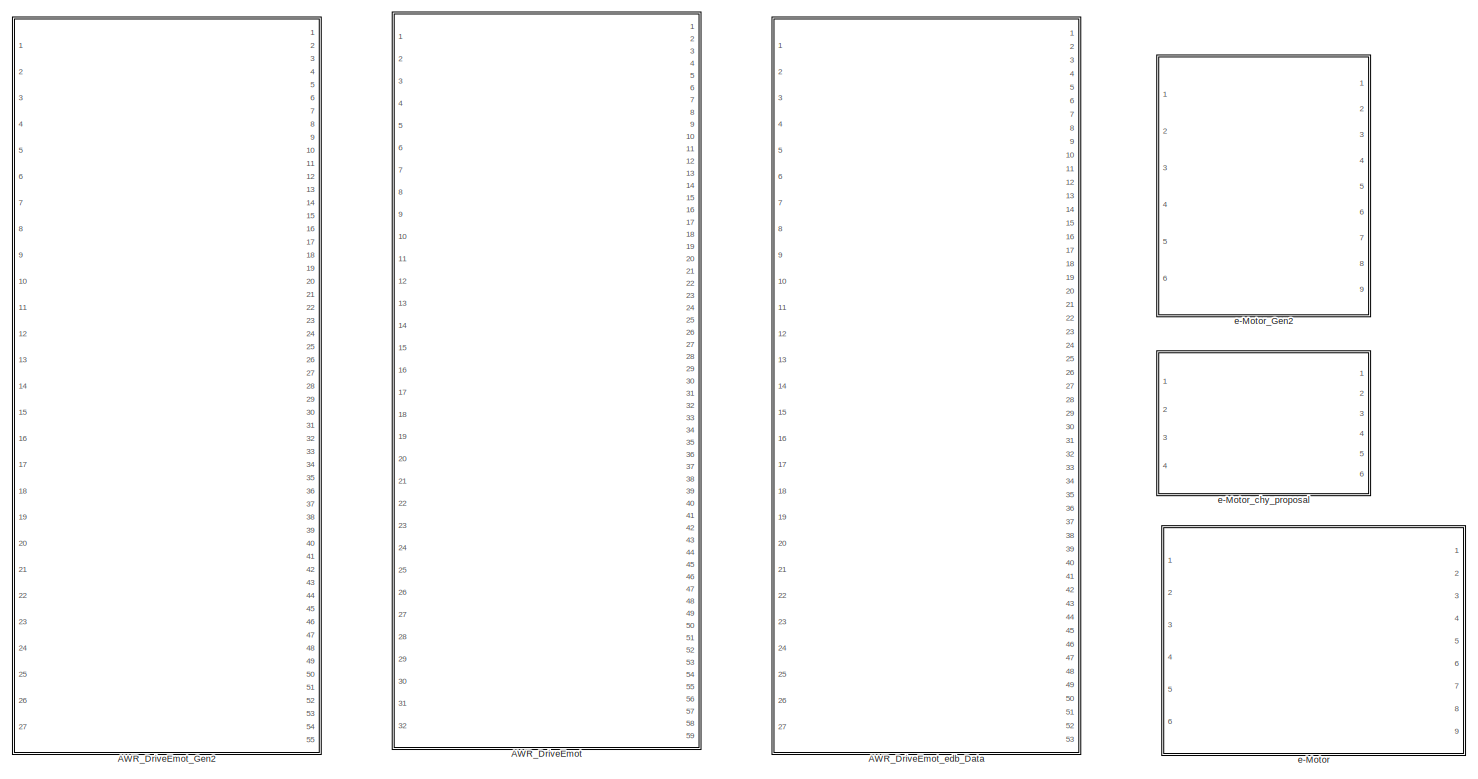
[diagram: root canvas - part 1/3, left side, full height]
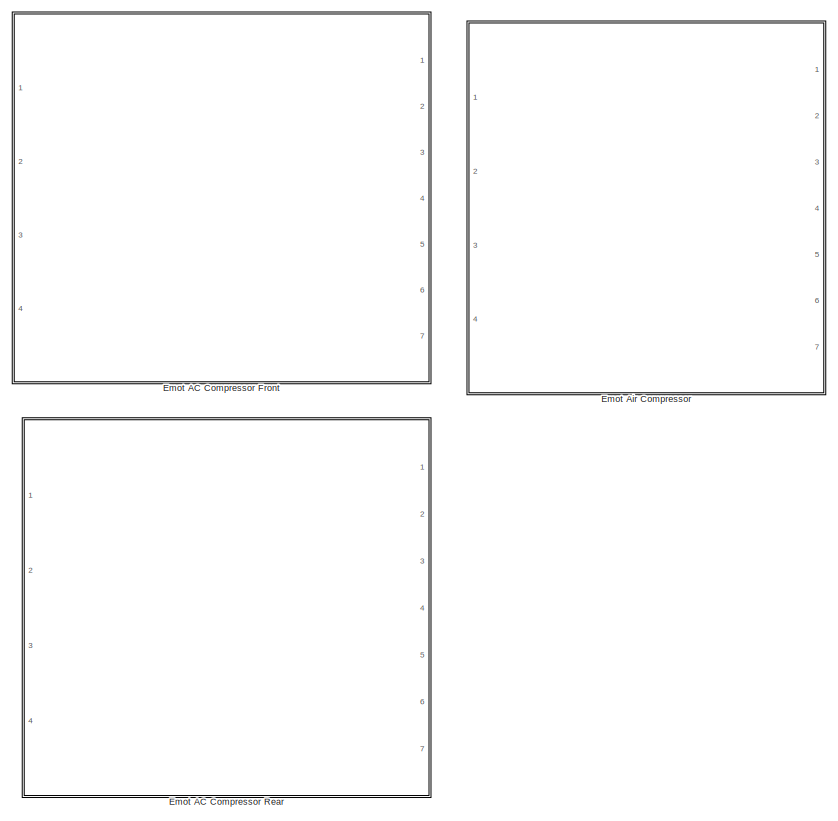
[diagram: root canvas - part 2/3, right side, full height]
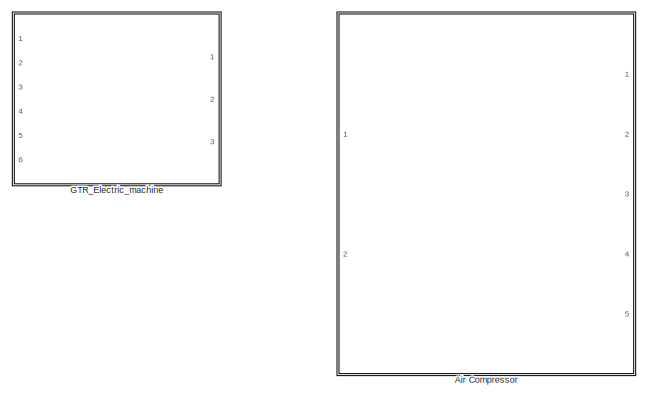
[diagram: root canvas - part 3/3, top center region]
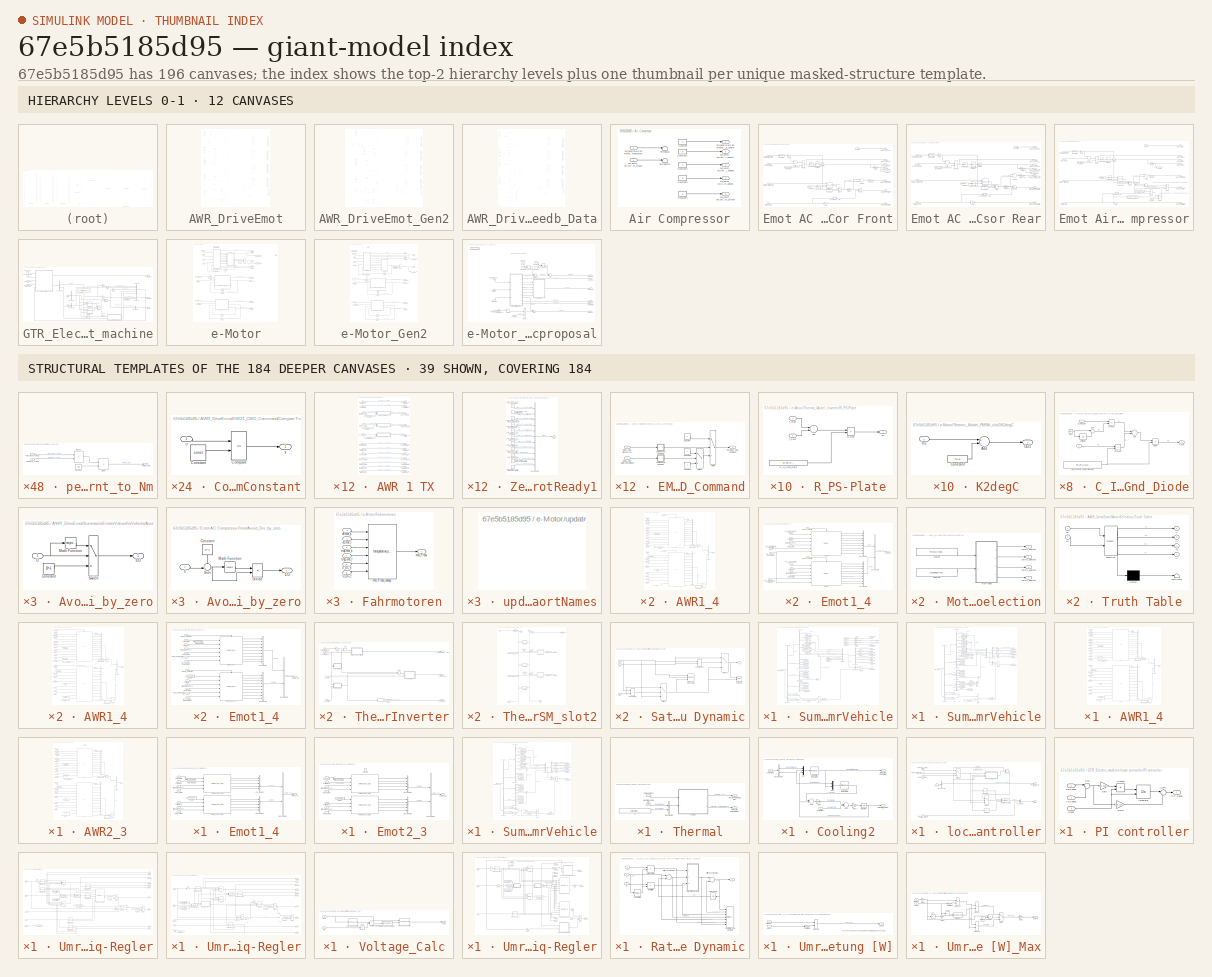
[diagram: thumbnail index - top-2 hierarchy levels (12 canvases) + 39 structural-template representatives of the remaining 184 canvases]
MODEL slx_67e5b5185d95
KIND library
CONFIG AbsTol = auto
CONFIG FixedStep = 0.001
CONFIG MaxStep = auto
CONFIG MinStep = auto
CONFIG RelTol = 1e-3
CONFIG SampleTimeConstraint = Unconstrained
CONFIG Solver = ode1
CONFIG SolverMode = Auto
CONFIG SolverName = ode1
CONFIG StartTime = 0.0
CONFIG StopTime = Inf
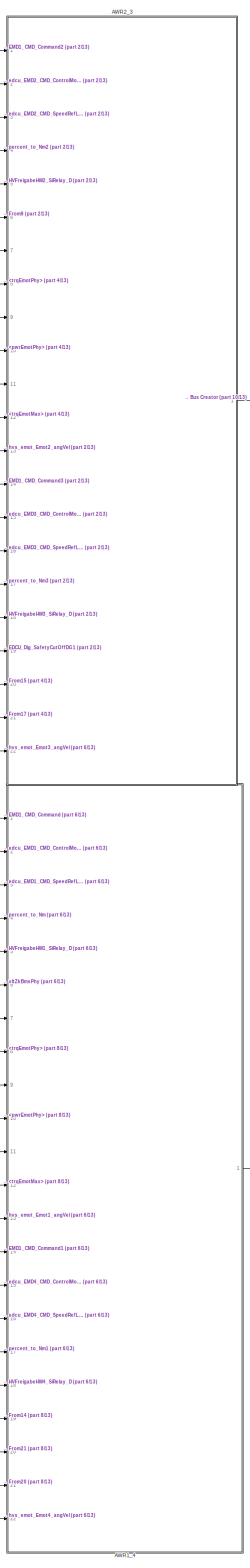
[diagram: AWR_DriveEmot - part 1/13, center side, full height]
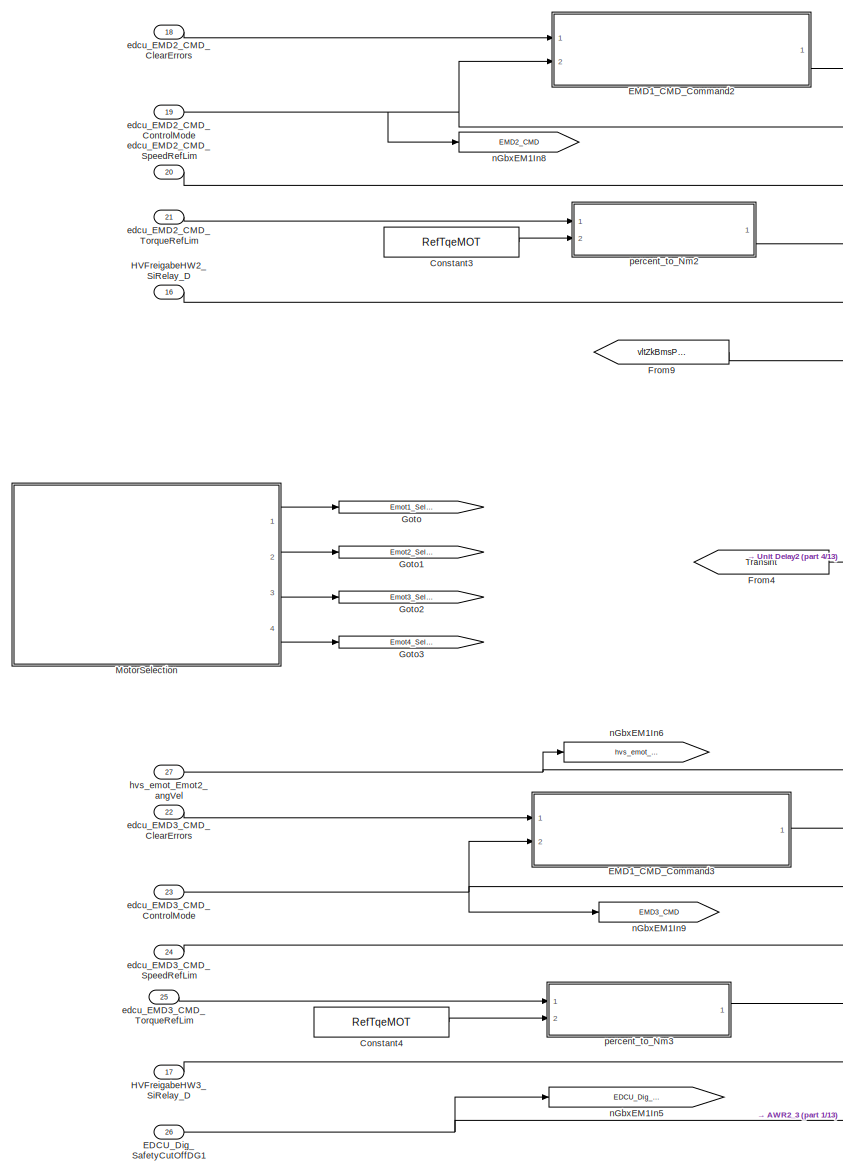
[diagram: AWR_DriveEmot - part 2/13, top left region]
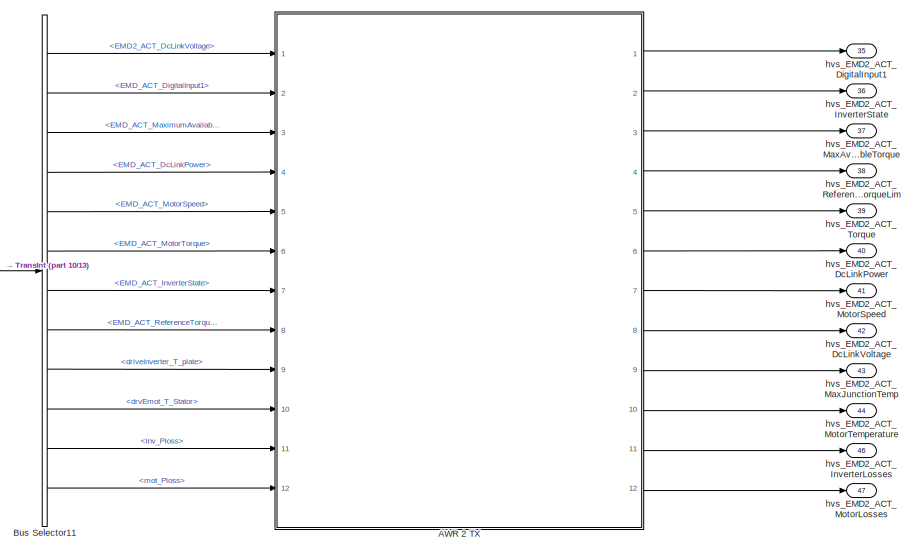
[diagram: AWR_DriveEmot - part 3/13, top right region]
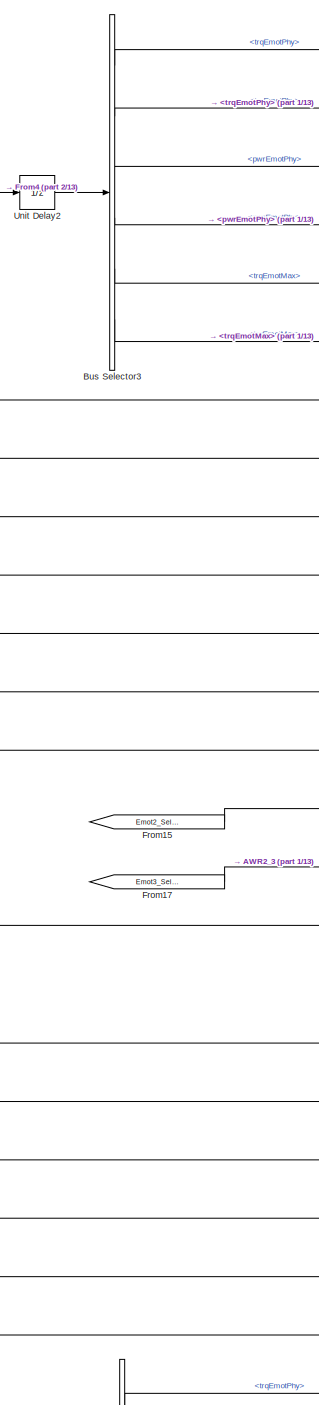
[diagram: AWR_DriveEmot - part 4/13, top left region]
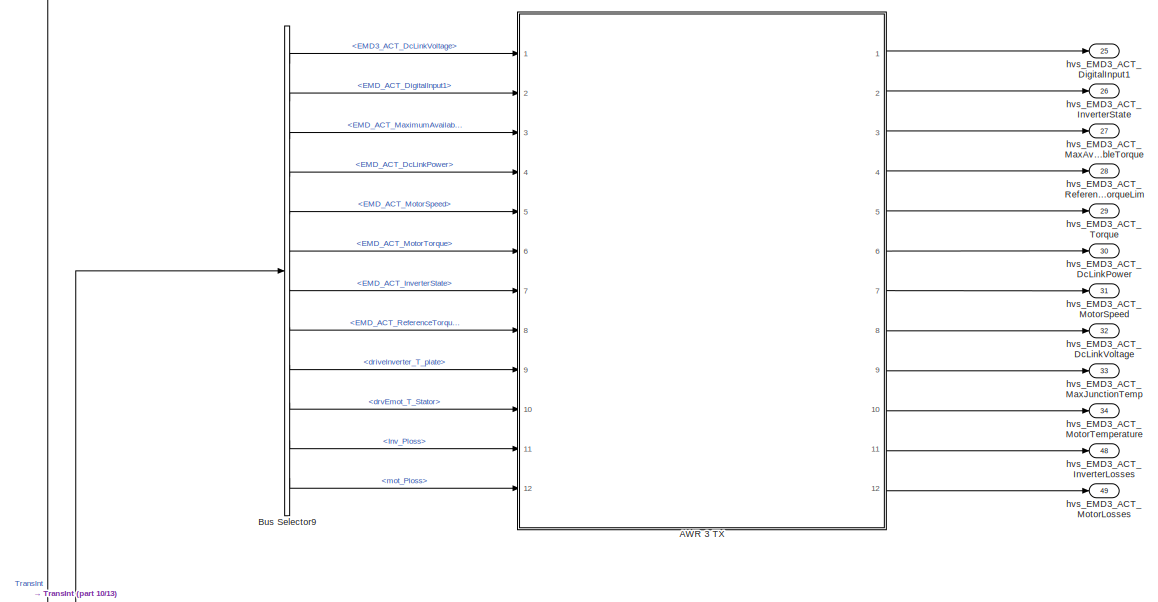
[diagram: AWR_DriveEmot - part 5/13, middle right region]
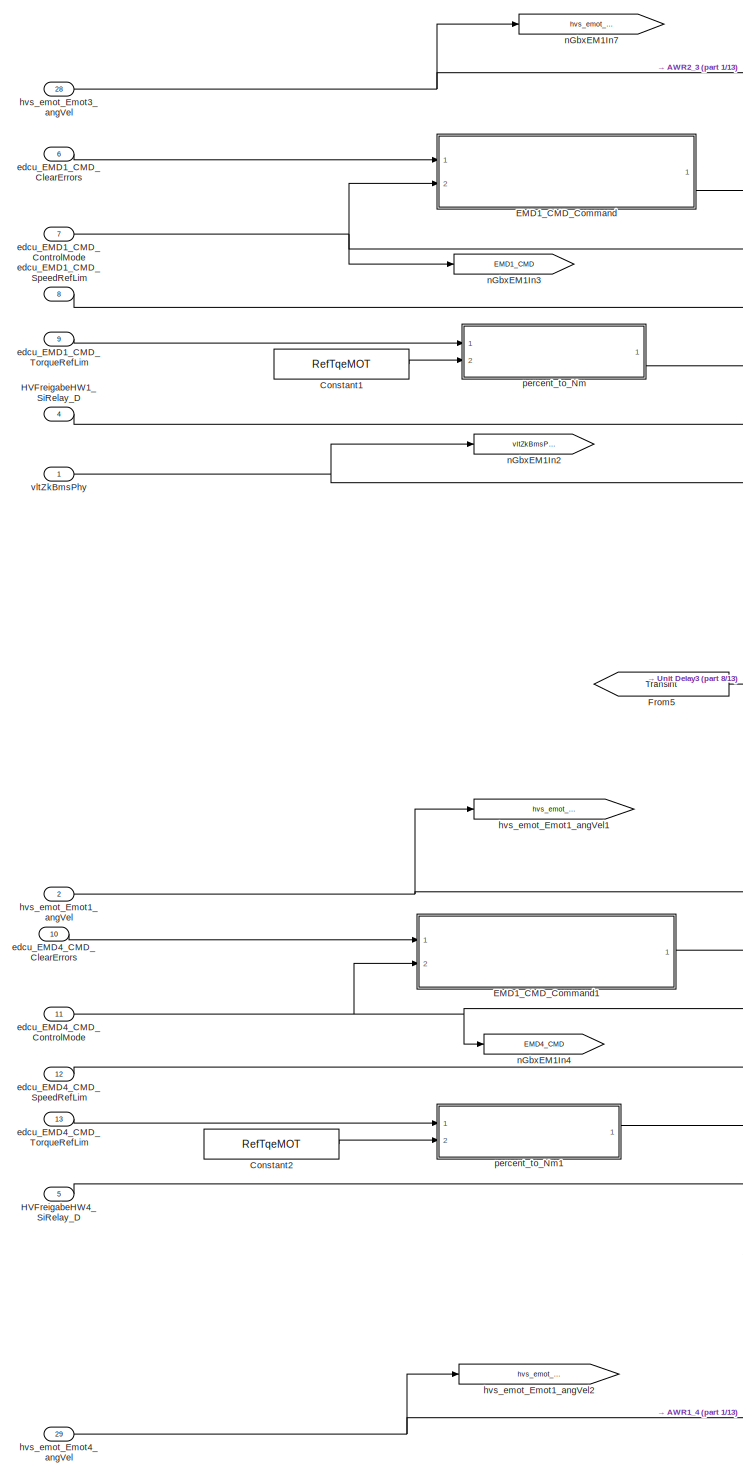
[diagram: AWR_DriveEmot - part 6/13, middle left region]
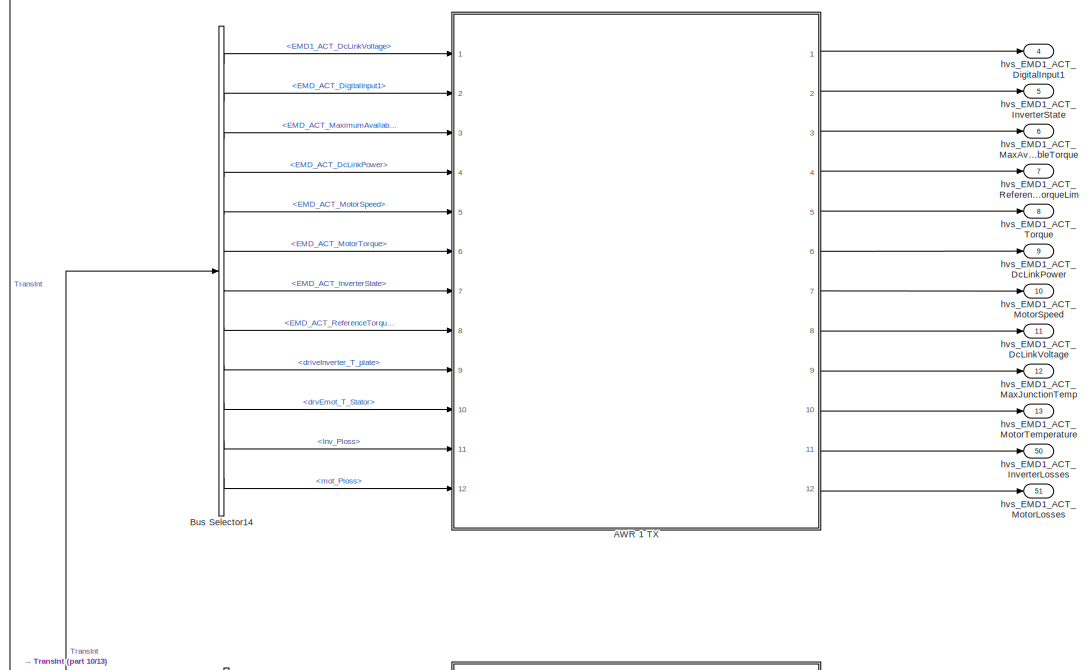
[diagram: AWR_DriveEmot - part 7/13, middle right region]
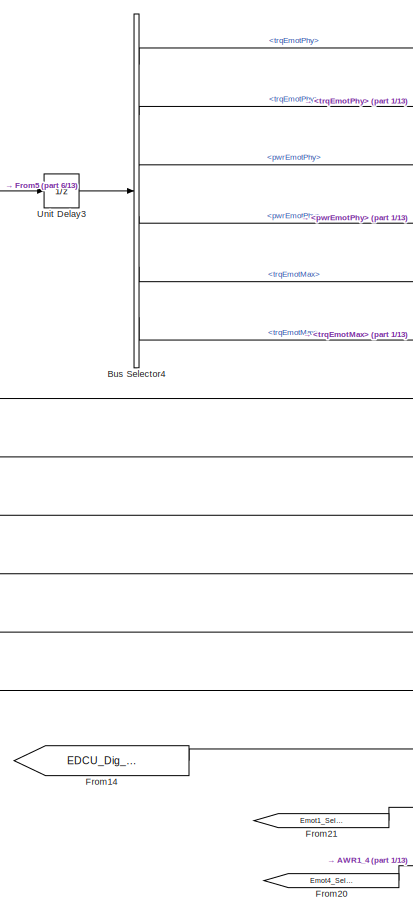
[diagram: AWR_DriveEmot - part 8/13, middle left region]
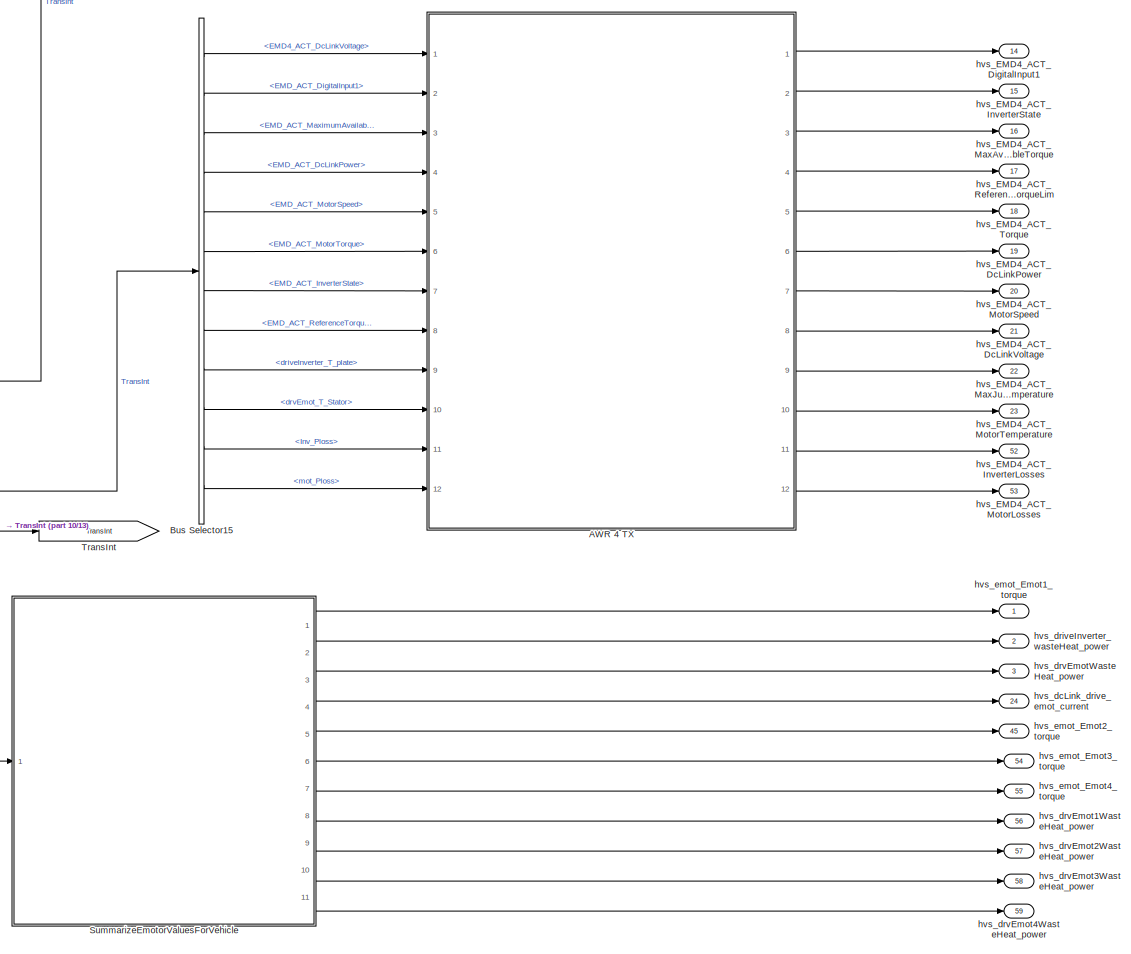
[diagram: AWR_DriveEmot - part 9/13, bottom right region]
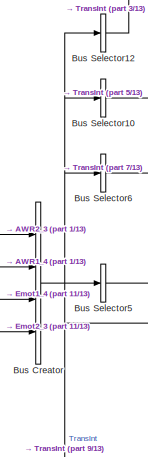
[diagram: AWR_DriveEmot - part 10/13, bottom center region]
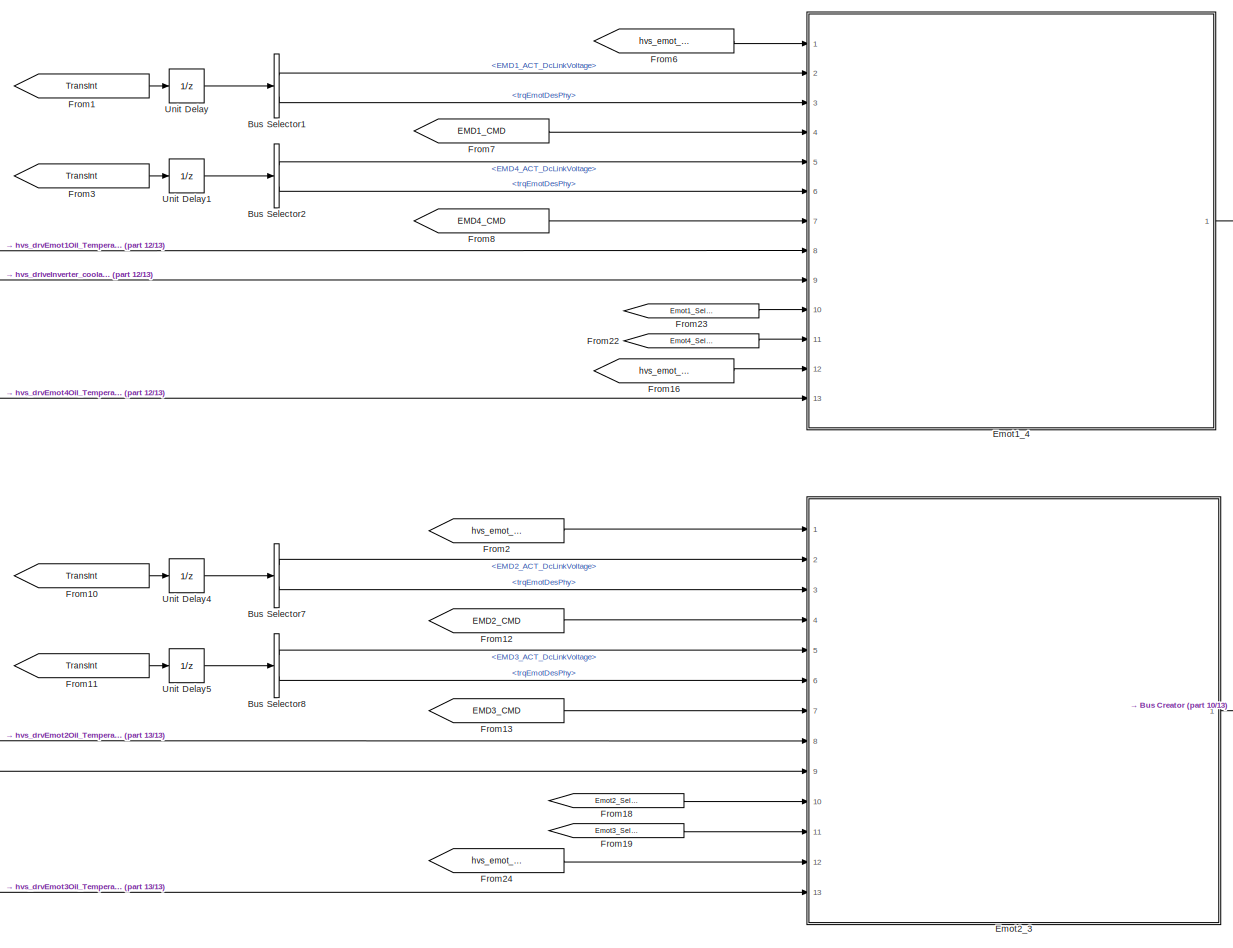
[diagram: AWR_DriveEmot - part 11/13, bottom left region]
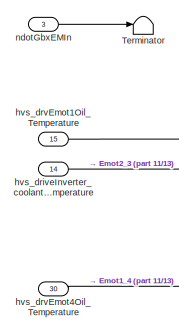
[diagram: AWR_DriveEmot - part 12/13, bottom left region]
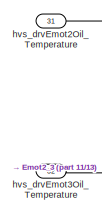
[diagram: AWR_DriveEmot - part 13/13, bottom left region]
BLOCK [SubSystem] AWR_DriveEmot
  Ports = [32, 59]
  RequestExecContextInheritance = off
  Variant = off
BLOCK [SubSystem] AWR_DriveEmot/AWR 1 TX
  Ports = [12, 12]
  RequestExecContextInheritance = off
  Variant = off
BLOCK [Constant] AWR_DriveEmot/AWR 1 TX/Constant3
  Value = RefTqeMOT
BLOCK [Constant] AWR_DriveEmot/AWR 1 TX/Constant39
  Value = RefTqeMOT
BLOCK [Constant] AWR_DriveEmot/AWR 1 TX/Constant5
  Value = RefTqeMOT
BLOCK [Inport] AWR_DriveEmot/AWR 1 TX/IN_EMD1_ACT_DcLinkPower
  IconDisplay = Port number
  Port = 4
BLOCK [Inport] AWR_DriveEmot/AWR 1 TX/IN_EMD1_ACT_DcLinkVoltage
  IconDisplay = Port number
BLOCK [Inport] AWR_DriveEmot/AWR 1 TX/IN_EMD1_ACT_DigitalInput1
  IconDisplay = Port number
  Port = 2
BLOCK [Inport] AWR_DriveEmot/AWR 1 TX/IN_EMD1_ACT_InverterLosses
  IconDisplay = Port number
  Port = 11
BLOCK [Inport] AWR_DriveEmot/AWR 1 TX/IN_EMD1_ACT_InverterState
  IconDisplay = Port number
  Port = 7
BLOCK [Inport] AWR_DriveEmot/AWR 1 TX/IN_EMD1_ACT_MaxJunctionTemperature
  IconDisplay = Port number
  Port = 9
BLOCK [Inport] AWR_DriveEmot/AWR 1 TX/IN_EMD1_ACT_MaximumAvailableTorque
  IconDisplay = Port number
  Port = 3
BLOCK [Inport] AWR_DriveEmot/AWR 1 TX/IN_EMD1_ACT_MotorLosses
  IconDisplay = Port number
  Port = 12
BLOCK [Inport] AWR_DriveEmot/AWR 1 TX/IN_EMD1_ACT_MotorSpeed
  IconDisplay = Port number
  Port = 5
BLOCK [Inport] AWR_DriveEmot/AWR 1 TX/IN_EMD1_ACT_MotorTemperature
  IconDisplay = Port number
  Port = 10
BLOCK [Inport] AWR_DriveEmot/AWR 1 TX/IN_EMD1_ACT_ReferenceTorqueLimited
  IconDisplay = Port number
  Port = 8
BLOCK [Inport] AWR_DriveEmot/AWR 1 TX/IN_EMD1_ACT_Torque
  IconDisplay = Port number
  Port = 6
BLOCK [SubSystem] AWR_DriveEmot/AWR 1 TX/Nm_to_percent
  Ports = [2, 1]
  RequestExecContextInheritance = off
  Variant = off
BLOCK [Constant] AWR_DriveEmot/AWR 1 TX/Nm_to_percent/Constant
  Value = 100
BLOCK [Product] AWR_DriveEmot/AWR 1 TX/Nm_to_percent/Divide1
  InputSameDT = off
  Inputs = */
  OutDataTypeStr = Inherit: Inherit via internal rule
  Ports = [2, 1]
  RndMeth = Floor
  SaturateOnIntegerOverflow = off
BLOCK [Inport] AWR_DriveEmot/AWR 1 TX/Nm_to_percent/Nm_Torque
  IconDisplay = Port number
BLOCK [Product] AWR_DriveEmot/AWR 1 TX/Nm_to_percent/Product1
  InputSameDT = off
  OutDataTypeStr = Inherit: Inherit via internal rule
  Ports = [2, 1]
  SaturateOnIntegerOverflow = off
BLOCK [Inport] AWR_DriveEmot/AWR 1 TX/Nm_to_percent/Reference_Torque
  IconDisplay = Port number
  Port = 2
BLOCK [Outport] AWR_DriveEmot/AWR 1 TX/Nm_to_percent/Torque_Percentage
  IconDisplay = Port number
BLOCK [SubSystem] AWR_DriveEmot/AWR 1 TX/Nm_to_percent1
  Ports = [2, 1]
  RequestExecContextInheritance = off
  Variant = off
BLOCK [Constant] AWR_DriveEmot/AWR 1 TX/Nm_to_percent1/Constant
  Value = 100
BLOCK [Product] AWR_DriveEmot/AWR 1 TX/Nm_to_percent1/Divide1
  InputSameDT = off
  Inputs = */
  OutDataTypeStr = Inherit: Inherit via internal rule
  Ports = [2, 1]
  RndMeth = Floor
  SaturateOnIntegerOverflow = off
BLOCK [Inport] AWR_DriveEmot/AWR 1 TX/Nm_to_percent1/Nm_Torque
  IconDisplay = Port number
BLOCK [Product] AWR_DriveEmot/AWR 1 TX/Nm_to_percent1/Product1
  InputSameDT = off
  OutDataTypeStr = Inherit: Inherit via internal rule
  Ports = [2, 1]
  SaturateOnIntegerOverflow = off
BLOCK [Inport] AWR_DriveEmot/AWR 1 TX/Nm_to_percent1/Reference_Torque
  IconDisplay = Port number
  Port = 2
BLOCK [Outport] AWR_DriveEmot/AWR 1 TX/Nm_to_percent1/Torque_Percentage
  IconDisplay = Port number
BLOCK [SubSystem] AWR_DriveEmot/AWR 1 TX/Nm_to_percent2
  Ports = [2, 1]
  RequestExecContextInheritance = off
  Variant = off
BLOCK [Constant] AWR_DriveEmot/AWR 1 TX/Nm_to_percent2/Constant
  Value = 100
BLOCK [Product] AWR_DriveEmot/AWR 1 TX/Nm_to_percent2/Divide1
  InputSameDT = off
  Inputs = */
  OutDataTypeStr = Inherit: Inherit via internal rule
  Ports = [2, 1]
  RndMeth = Floor
  SaturateOnIntegerOverflow = off
BLOCK [Inport] AWR_DriveEmot/AWR 1 TX/Nm_to_percent2/Nm_Torque
  IconDisplay = Port number
BLOCK [Product] AWR_DriveEmot/AWR 1 TX/Nm_to_percent2/Product1
  InputSameDT = off
  OutDataTypeStr = Inherit: Inherit via internal rule
  Ports = [2, 1]
  SaturateOnIntegerOverflow = off
BLOCK [Inport] AWR_DriveEmot/AWR 1 TX/Nm_to_percent2/Reference_Torque
  IconDisplay = Port number
  Port = 2
BLOCK [Outport] AWR_DriveEmot/AWR 1 TX/Nm_to_percent2/Torque_Percentage
  IconDisplay = Port number
BLOCK [Outport] AWR_DriveEmot/AWR 1 TX/hvs_EMD1_ACT_DcLinkPower
  IconDisplay = Port number
  Port = 6
BLOCK [Outport] AWR_DriveEmot/AWR 1 TX/hvs_EMD1_ACT_DcLinkVoltage
  IconDisplay = Port number
  Port = 8
BLOCK [Outport] AWR_DriveEmot/AWR 1 TX/hvs_EMD1_ACT_DigitalInput1
  IconDisplay = Port number
BLOCK [Outport] AWR_DriveEmot/AWR 1 TX/hvs_EMD1_ACT_InverterLosses
  IconDisplay = Port number
  Port = 11
BLOCK [Outport] AWR_DriveEmot/AWR 1 TX/hvs_EMD1_ACT_InverterState
  IconDisplay = Port number
  Port = 2
BLOCK [Outport] AWR_DriveEmot/AWR 1 TX/hvs_EMD1_ACT_MaxAvailableTorque
  IconDisplay = Port number
  Port = 3
BLOCK [Outport] AWR_DriveEmot/AWR 1 TX/hvs_EMD1_ACT_MaxJunctionTemp
  IconDisplay = Port number
  Port = 9
BLOCK [Outport] AWR_DriveEmot/AWR 1 TX/hvs_EMD1_ACT_MotorLosses
  IconDisplay = Port number
  Port = 12
BLOCK [Outport] AWR_DriveEmot/AWR 1 TX/hvs_EMD1_ACT_MotorSpeed
  IconDisplay = Port number
  Port = 7
BLOCK [Outport] AWR_DriveEmot/AWR 1 TX/hvs_EMD1_ACT_MotorTemperature
  IconDisplay = Port number
  Port = 10
BLOCK [Outport] AWR_DriveEmot/AWR 1 TX/hvs_EMD1_ACT_ReferenceTorqueLim
  IconDisplay = Port number
  Port = 4
BLOCK [Outport] AWR_DriveEmot/AWR 1 TX/hvs_EMD1_ACT_Torque
  IconDisplay = Port number
  Port = 5
BLOCK [SubSystem] AWR_DriveEmot/AWR 2 TX
  Ports = [12, 12]
  RequestExecContextInheritance = off
  Variant = off
BLOCK [Constant] AWR_DriveEmot/AWR 2 TX/Constant3
  Value = RefTqeMOT
BLOCK [Constant] AWR_DriveEmot/AWR 2 TX/Constant39
  Value = RefTqeMOT
BLOCK [Constant] AWR_DriveEmot/AWR 2 TX/Constant5
  Value = RefTqeMOT
BLOCK [Inport] AWR_DriveEmot/AWR 2 TX/IN_EMD2_ACT_DcLinkPower
  IconDisplay = Port number
  Port = 4
BLOCK [Inport] AWR_DriveEmot/AWR 2 TX/IN_EMD2_ACT_DcLinkVoltage
  IconDisplay = Port number
BLOCK [Inport] AWR_DriveEmot/AWR 2 TX/IN_EMD2_ACT_DigitalInput1
  IconDisplay = Port number
  Port = 2
BLOCK [Inport] AWR_DriveEmot/AWR 2 TX/IN_EMD2_ACT_InverterLosses
  IconDisplay = Port number
  Port = 11
BLOCK [Inport] AWR_DriveEmot/AWR 2 TX/IN_EMD2_ACT_InverterState
  IconDisplay = Port number
  Port = 7
BLOCK [Inport] AWR_DriveEmot/AWR 2 TX/IN_EMD2_ACT_MaxJunctionTemperature
  IconDisplay = Port number
  Port = 9
BLOCK [Inport] AWR_DriveEmot/AWR 2 TX/IN_EMD2_ACT_MaximumAvailableTorque
  IconDisplay = Port number
  Port = 3
BLOCK [Inport] AWR_DriveEmot/AWR 2 TX/IN_EMD2_ACT_MotorLosses
  IconDisplay = Port number
  Port = 12
BLOCK [Inport] AWR_DriveEmot/AWR 2 TX/IN_EMD2_ACT_MotorSpeed
  IconDisplay = Port number
  Port = 5
BLOCK [Inport] AWR_DriveEmot/AWR 2 TX/IN_EMD2_ACT_MotorTemperature
  IconDisplay = Port number
  Port = 10
BLOCK [Inport] AWR_DriveEmot/AWR 2 TX/IN_EMD2_ACT_ReferenceTorqueLimited
  IconDisplay = Port number
  Port = 8
BLOCK [Inport] AWR_DriveEmot/AWR 2 TX/IN_EMD2_ACT_Torque
  IconDisplay = Port number
  Port = 6
BLOCK [SubSystem] AWR_DriveEmot/AWR 2 TX/Nm_to_percent
  Ports = [2, 1]
  RequestExecContextInheritance = off
  Variant = off
BLOCK [Constant] AWR_DriveEmot/AWR 2 TX/Nm_to_percent/Constant
  Value = 100
BLOCK [Product] AWR_DriveEmot/AWR 2 TX/Nm_to_percent/Divide1
  InputSameDT = off
  Inputs = */
  OutDataTypeStr = Inherit: Inherit via internal rule
  Ports = [2, 1]
  RndMeth = Floor
  SaturateOnIntegerOverflow = off
BLOCK [Inport] AWR_DriveEmot/AWR 2 TX/Nm_to_percent/Nm_Torque
  IconDisplay = Port number
BLOCK [Product] AWR_DriveEmot/AWR 2 TX/Nm_to_percent/Product1
  InputSameDT = off
  OutDataTypeStr = Inherit: Inherit via internal rule
  Ports = [2, 1]
  SaturateOnIntegerOverflow = off
BLOCK [Inport] AWR_DriveEmot/AWR 2 TX/Nm_to_percent/Reference_Torque
  IconDisplay = Port number
  Port = 2
BLOCK [Outport] AWR_DriveEmot/AWR 2 TX/Nm_to_percent/Torque_Percentage
  IconDisplay = Port number
BLOCK [SubSystem] AWR_DriveEmot/AWR 2 TX/Nm_to_percent1
  Ports = [2, 1]
  RequestExecContextInheritance = off
  Variant = off
BLOCK [Constant] AWR_DriveEmot/AWR 2 TX/Nm_to_percent1/Constant
  Value = 100
BLOCK [Product] AWR_DriveEmot/AWR 2 TX/Nm_to_percent1/Divide1
  InputSameDT = off
  Inputs = */
  OutDataTypeStr = Inherit: Inherit via internal rule
  Ports = [2, 1]
  RndMeth = Floor
  SaturateOnIntegerOverflow = off
BLOCK [Inport] AWR_DriveEmot/AWR 2 TX/Nm_to_percent1/Nm_Torque
  IconDisplay = Port number
BLOCK [Product] AWR_DriveEmot/AWR 2 TX/Nm_to_percent1/Product1
  InputSameDT = off
  OutDataTypeStr = Inherit: Inherit via internal rule
  Ports = [2, 1]
  SaturateOnIntegerOverflow = off
BLOCK [Inport] AWR_DriveEmot/AWR 2 TX/Nm_to_percent1/Reference_Torque
  IconDisplay = Port number
  Port = 2
BLOCK [Outport] AWR_DriveEmot/AWR 2 TX/Nm_to_percent1/Torque_Percentage
  IconDisplay = Port number
BLOCK [SubSystem] AWR_DriveEmot/AWR 2 TX/Nm_to_percent2
  Ports = [2, 1]
  RequestExecContextInheritance = off
  Variant = off
BLOCK [Constant] AWR_DriveEmot/AWR 2 TX/Nm_to_percent2/Constant
  Value = 100
BLOCK [Product] AWR_DriveEmot/AWR 2 TX/Nm_to_percent2/Divide1
  InputSameDT = off
  Inputs = */
  OutDataTypeStr = Inherit: Inherit via internal rule
  Ports = [2, 1]
  RndMeth = Floor
  SaturateOnIntegerOverflow = off
BLOCK [Inport] AWR_DriveEmot/AWR 2 TX/Nm_to_percent2/Nm_Torque
  IconDisplay = Port number
BLOCK [Product] AWR_DriveEmot/AWR 2 TX/Nm_to_percent2/Product1
  InputSameDT = off
  OutDataTypeStr = Inherit: Inherit via internal rule
  Ports = [2, 1]
  SaturateOnIntegerOverflow = off
BLOCK [Inport] AWR_DriveEmot/AWR 2 TX/Nm_to_percent2/Reference_Torque
  IconDisplay = Port number
  Port = 2
BLOCK [Outport] AWR_DriveEmot/AWR 2 TX/Nm_to_percent2/Torque_Percentage
  IconDisplay = Port number
BLOCK [Outport] AWR_DriveEmot/AWR 2 TX/hvs_EMD2_ACT_DcLinkPower
  IconDisplay = Port number
  Port = 6
BLOCK [Outport] AWR_DriveEmot/AWR 2 TX/hvs_EMD2_ACT_DcLinkVoltage
  IconDisplay = Port number
  Port = 8
BLOCK [Outport] AWR_DriveEmot/AWR 2 TX/hvs_EMD2_ACT_DigitalInput1
  IconDisplay = Port number
BLOCK [Outport] AWR_DriveEmot/AWR 2 TX/hvs_EMD2_ACT_InverterLosses
  IconDisplay = Port number
  Port = 11
BLOCK [Outport] AWR_DriveEmot/AWR 2 TX/hvs_EMD2_ACT_InverterState
  IconDisplay = Port number
  Port = 2
BLOCK [Outport] AWR_DriveEmot/AWR 2 TX/hvs_EMD2_ACT_MaxAvailableTorque
  IconDisplay = Port number
  Port = 3
BLOCK [Outport] AWR_DriveEmot/AWR 2 TX/hvs_EMD2_ACT_MaxJunctionTemp
  IconDisplay = Port number
  Port = 9
BLOCK [Outport] AWR_DriveEmot/AWR 2 TX/hvs_EMD2_ACT_MotorLosses
  IconDisplay = Port number
  Port = 12
BLOCK [Outport] AWR_DriveEmot/AWR 2 TX/hvs_EMD2_ACT_MotorSpeed
  IconDisplay = Port number
  Port = 7
BLOCK [Outport] AWR_DriveEmot/AWR 2 TX/hvs_EMD2_ACT_MotorTemperature
  IconDisplay = Port number
  Port = 10
BLOCK [Outport] AWR_DriveEmot/AWR 2 TX/hvs_EMD2_ACT_ReferenceTorqueLim
  IconDisplay = Port number
  Port = 4
BLOCK [Outport] AWR_DriveEmot/AWR 2 TX/hvs_EMD2_ACT_Torque
  IconDisplay = Port number
  Port = 5
BLOCK [SubSystem] AWR_DriveEmot/AWR 3 TX
  Ports = [12, 12]
  RequestExecContextInheritance = off
  Variant = off
BLOCK [Constant] AWR_DriveEmot/AWR 3 TX/Constant3
  Value = RefTqeMOT
BLOCK [Constant] AWR_DriveEmot/AWR 3 TX/Constant39
  Value = RefTqeMOT
BLOCK [Constant] AWR_DriveEmot/AWR 3 TX/Constant5
  Value = RefTqeMOT
BLOCK [Inport] AWR_DriveEmot/AWR 3 TX/IN_EMD3_ACT_DcLinkPower
  IconDisplay = Port number
  Port = 4
BLOCK [Inport] AWR_DriveEmot/AWR 3 TX/IN_EMD3_ACT_DcLinkVoltage
  IconDisplay = Port number
BLOCK [Inport] AWR_DriveEmot/AWR 3 TX/IN_EMD3_ACT_DigitalInput1
  IconDisplay = Port number
  Port = 2
BLOCK [Inport] AWR_DriveEmot/AWR 3 TX/IN_EMD3_ACT_InverterLosses
  IconDisplay = Port number
  Port = 11
BLOCK [Inport] AWR_DriveEmot/AWR 3 TX/IN_EMD3_ACT_InverterState
  IconDisplay = Port number
  Port = 7
BLOCK [Inport] AWR_DriveEmot/AWR 3 TX/IN_EMD3_ACT_MaxJunctionTemperature
  IconDisplay = Port number
  Port = 9
BLOCK [Inport] AWR_DriveEmot/AWR 3 TX/IN_EMD3_ACT_MaximumAvailableTorque
  IconDisplay = Port number
  Port = 3
BLOCK [Inport] AWR_DriveEmot/AWR 3 TX/IN_EMD3_ACT_MotorLosses
  IconDisplay = Port number
  Port = 12
BLOCK [Inport] AWR_DriveEmot/AWR 3 TX/IN_EMD3_ACT_MotorSpeed
  IconDisplay = Port number
  Port = 5
BLOCK [Inport] AWR_DriveEmot/AWR 3 TX/IN_EMD3_ACT_MotorTemperature
  IconDisplay = Port number
  Port = 10
BLOCK [Inport] AWR_DriveEmot/AWR 3 TX/IN_EMD3_ACT_ReferenceTorqueLimited
  IconDisplay = Port number
  Port = 8
BLOCK [Inport] AWR_DriveEmot/AWR 3 TX/IN_EMD3_ACT_Torque
  IconDisplay = Port number
  Port = 6
BLOCK [SubSystem] AWR_DriveEmot/AWR 3 TX/Nm_to_percent
  Ports = [2, 1]
  RequestExecContextInheritance = off
  Variant = off
BLOCK [Constant] AWR_DriveEmot/AWR 3 TX/Nm_to_percent/Constant
  Value = 100
BLOCK [Product] AWR_DriveEmot/AWR 3 TX/Nm_to_percent/Divide1
  InputSameDT = off
  Inputs = */
  OutDataTypeStr = Inherit: Inherit via internal rule
  Ports = [2, 1]
  RndMeth = Floor
  SaturateOnIntegerOverflow = off
BLOCK [Inport] AWR_DriveEmot/AWR 3 TX/Nm_to_percent/Nm_Torque
  IconDisplay = Port number
BLOCK [Product] AWR_DriveEmot/AWR 3 TX/Nm_to_percent/Product1
  InputSameDT = off
  OutDataTypeStr = Inherit: Inherit via internal rule
  Ports = [2, 1]
  SaturateOnIntegerOverflow = off
BLOCK [Inport] AWR_DriveEmot/AWR 3 TX/Nm_to_percent/Reference_Torque
  IconDisplay = Port number
  Port = 2
BLOCK [Outport] AWR_DriveEmot/AWR 3 TX/Nm_to_percent/Torque_Percentage
  IconDisplay = Port number
BLOCK [SubSystem] AWR_DriveEmot/AWR 3 TX/Nm_to_percent1
  Ports = [2, 1]
  RequestExecContextInheritance = off
  Variant = off
BLOCK [Constant] AWR_DriveEmot/AWR 3 TX/Nm_to_percent1/Constant
  Value = 100
BLOCK [Product] AWR_DriveEmot/AWR 3 TX/Nm_to_percent1/Divide1
  InputSameDT = off
  Inputs = */
  OutDataTypeStr = Inherit: Inherit via internal rule
  Ports = [2, 1]
  RndMeth = Floor
  SaturateOnIntegerOverflow = off
BLOCK [Inport] AWR_DriveEmot/AWR 3 TX/Nm_to_percent1/Nm_Torque
  IconDisplay = Port number
BLOCK [Product] AWR_DriveEmot/AWR 3 TX/Nm_to_percent1/Product1
  InputSameDT = off
  OutDataTypeStr = Inherit: Inherit via internal rule
  Ports = [2, 1]
  SaturateOnIntegerOverflow = off
BLOCK [Inport] AWR_DriveEmot/AWR 3 TX/Nm_to_percent1/Reference_Torque
  IconDisplay = Port number
  Port = 2
BLOCK [Outport] AWR_DriveEmot/AWR 3 TX/Nm_to_percent1/Torque_Percentage
  IconDisplay = Port number
BLOCK [SubSystem] AWR_DriveEmot/AWR 3 TX/Nm_to_percent2
  Ports = [2, 1]
  RequestExecContextInheritance = off
  Variant = off
BLOCK [Constant] AWR_DriveEmot/AWR 3 TX/Nm_to_percent2/Constant
  Value = 100
BLOCK [Product] AWR_DriveEmot/AWR 3 TX/Nm_to_percent2/Divide1
  InputSameDT = off
  Inputs = */
  OutDataTypeStr = Inherit: Inherit via internal rule
  Ports = [2, 1]
  RndMeth = Floor
  SaturateOnIntegerOverflow = off
BLOCK [Inport] AWR_DriveEmot/AWR 3 TX/Nm_to_percent2/Nm_Torque
  IconDisplay = Port number
BLOCK [Product] AWR_DriveEmot/AWR 3 TX/Nm_to_percent2/Product1
  InputSameDT = off
  OutDataTypeStr = Inherit: Inherit via internal rule
  Ports = [2, 1]
  SaturateOnIntegerOverflow = off
BLOCK [Inport] AWR_DriveEmot/AWR 3 TX/Nm_to_percent2/Reference_Torque
  IconDisplay = Port number
  Port = 2
BLOCK [Outport] AWR_DriveEmot/AWR 3 TX/Nm_to_percent2/Torque_Percentage
  IconDisplay = Port number
BLOCK [Outport] AWR_DriveEmot/AWR 3 TX/hvs_EMD3_ACT_DcLinkPower
  IconDisplay = Port number
  Port = 6
BLOCK [Outport] AWR_DriveEmot/AWR 3 TX/hvs_EMD3_ACT_DcLinkVoltage
  IconDisplay = Port number
  Port = 8
BLOCK [Outport] AWR_DriveEmot/AWR 3 TX/hvs_EMD3_ACT_DigitalInput1
  IconDisplay = Port number
BLOCK [Outport] AWR_DriveEmot/AWR 3 TX/hvs_EMD3_ACT_InverterLosses
  IconDisplay = Port number
  Port = 11
BLOCK [Outport] AWR_DriveEmot/AWR 3 TX/hvs_EMD3_ACT_InverterState
  IconDisplay = Port number
  Port = 2
BLOCK [Outport] AWR_DriveEmot/AWR 3 TX/hvs_EMD3_ACT_MaxAvailableTorque
  IconDisplay = Port number
  Port = 3
BLOCK [Outport] AWR_DriveEmot/AWR 3 TX/hvs_EMD3_ACT_MaxJunctionTemp
  IconDisplay = Port number
  Port = 9
BLOCK [Outport] AWR_DriveEmot/AWR 3 TX/hvs_EMD3_ACT_MotorLosses
  IconDisplay = Port number
  Port = 12
BLOCK [Outport] AWR_DriveEmot/AWR 3 TX/hvs_EMD3_ACT_MotorSpeed
  IconDisplay = Port number
  Port = 7
BLOCK [Outport] AWR_DriveEmot/AWR 3 TX/hvs_EMD3_ACT_MotorTemperature
  IconDisplay = Port number
  Port = 10
BLOCK [Outport] AWR_DriveEmot/AWR 3 TX/hvs_EMD3_ACT_ReferenceTorqueLim
  IconDisplay = Port number
  Port = 4
BLOCK [Outport] AWR_DriveEmot/AWR 3 TX/hvs_EMD3_ACT_Torque
  IconDisplay = Port number
  Port = 5
BLOCK [SubSystem] AWR_DriveEmot/AWR 4 TX
  Ports = [12, 12]
  RequestExecContextInheritance = off
  Variant = off
BLOCK [Constant] AWR_DriveEmot/AWR 4 TX/Constant3
  Value = RefTqeMOT
BLOCK [Constant] AWR_DriveEmot/AWR 4 TX/Constant39
  Value = RefTqeMOT
BLOCK [Constant] AWR_DriveEmot/AWR 4 TX/Constant5
  Value = RefTqeMOT
BLOCK [Inport] AWR_DriveEmot/AWR 4 TX/IN_EMD4_ACT_DcLinkPower
  IconDisplay = Port number
  Port = 4
BLOCK [Inport] AWR_DriveEmot/AWR 4 TX/IN_EMD4_ACT_DcLinkVoltage
  IconDisplay = Port number
BLOCK [Inport] AWR_DriveEmot/AWR 4 TX/IN_EMD4_ACT_DigitalInput1
  IconDisplay = Port number
  Port = 2
BLOCK [Inport] AWR_DriveEmot/AWR 4 TX/IN_EMD4_ACT_InverterLosses
  IconDisplay = Port number
  Port = 11
BLOCK [Inport] AWR_DriveEmot/AWR 4 TX/IN_EMD4_ACT_InverterState
  IconDisplay = Port number
  Port = 7
BLOCK [Inport] AWR_DriveEmot/AWR 4 TX/IN_EMD4_ACT_MaxJunctionTemperature
  IconDisplay = Port number
  Port = 9
BLOCK [Inport] AWR_DriveEmot/AWR 4 TX/IN_EMD4_ACT_MaximumAvailableTorque
  IconDisplay = Port number
  Port = 3
BLOCK [Inport] AWR_DriveEmot/AWR 4 TX/IN_EMD4_ACT_MotorLosses
  IconDisplay = Port number
  Port = 12
BLOCK [Inport] AWR_DriveEmot/AWR 4 TX/IN_EMD4_ACT_MotorSpeed
  IconDisplay = Port number
  Port = 5
BLOCK [Inport] AWR_DriveEmot/AWR 4 TX/IN_EMD4_ACT_MotorTemperature
  IconDisplay = Port number
  Port = 10
BLOCK [Inport] AWR_DriveEmot/AWR 4 TX/IN_EMD4_ACT_ReferenceTorqueLimited
  IconDisplay = Port number
  Port = 8
BLOCK [Inport] AWR_DriveEmot/AWR 4 TX/IN_EMD4_ACT_Torque
  IconDisplay = Port number
  Port = 6
BLOCK [SubSystem] AWR_DriveEmot/AWR 4 TX/Nm_to_percent
  Ports = [2, 1]
  RequestExecContextInheritance = off
  Variant = off
BLOCK [Constant] AWR_DriveEmot/AWR 4 TX/Nm_to_percent/Constant
  Value = 100
BLOCK [Product] AWR_DriveEmot/AWR 4 TX/Nm_to_percent/Divide1
  InputSameDT = off
  Inputs = */
  OutDataTypeStr = Inherit: Inherit via internal rule
  Ports = [2, 1]
  RndMeth = Floor
  SaturateOnIntegerOverflow = off
BLOCK [Inport] AWR_DriveEmot/AWR 4 TX/Nm_to_percent/Nm_Torque
  IconDisplay = Port number
BLOCK [Product] AWR_DriveEmot/AWR 4 TX/Nm_to_percent/Product1
  InputSameDT = off
  OutDataTypeStr = Inherit: Inherit via internal rule
  Ports = [2, 1]
  SaturateOnIntegerOverflow = off
BLOCK [Inport] AWR_DriveEmot/AWR 4 TX/Nm_to_percent/Reference_Torque
  IconDisplay = Port number
  Port = 2
BLOCK [Outport] AWR_DriveEmot/AWR 4 TX/Nm_to_percent/Torque_Percentage
  IconDisplay = Port number
BLOCK [SubSystem] AWR_DriveEmot/AWR 4 TX/Nm_to_percent1
  Ports = [2, 1]
  RequestExecContextInheritance = off
  Variant = off
BLOCK [Constant] AWR_DriveEmot/AWR 4 TX/Nm_to_percent1/Constant
  Value = 100
BLOCK [Product] AWR_DriveEmot/AWR 4 TX/Nm_to_percent1/Divide1
  InputSameDT = off
  Inputs = */
  OutDataTypeStr = Inherit: Inherit via internal rule
  Ports = [2, 1]
  RndMeth = Floor
  SaturateOnIntegerOverflow = off
BLOCK [Inport] AWR_DriveEmot/AWR 4 TX/Nm_to_percent1/Nm_Torque
  IconDisplay = Port number
BLOCK [Product] AWR_DriveEmot/AWR 4 TX/Nm_to_percent1/Product1
  InputSameDT = off
  OutDataTypeStr = Inherit: Inherit via internal rule
  Ports = [2, 1]
  SaturateOnIntegerOverflow = off
BLOCK [Inport] AWR_DriveEmot/AWR 4 TX/Nm_to_percent1/Reference_Torque
  IconDisplay = Port number
  Port = 2
BLOCK [Outport] AWR_DriveEmot/AWR 4 TX/Nm_to_percent1/Torque_Percentage
  IconDisplay = Port number
BLOCK [SubSystem] AWR_DriveEmot/AWR 4 TX/Nm_to_percent2
  Ports = [2, 1]
  RequestExecContextInheritance = off
  Variant = off
BLOCK [Constant] AWR_DriveEmot/AWR 4 TX/Nm_to_percent2/Constant
  Value = 100
BLOCK [Product] AWR_DriveEmot/AWR 4 TX/Nm_to_percent2/Divide1
  InputSameDT = off
  Inputs = */
  OutDataTypeStr = Inherit: Inherit via internal rule
  Ports = [2, 1]
  RndMeth = Floor
  SaturateOnIntegerOverflow = off
BLOCK [Inport] AWR_DriveEmot/AWR 4 TX/Nm_to_percent2/Nm_Torque
  IconDisplay = Port number
BLOCK [Product] AWR_DriveEmot/AWR 4 TX/Nm_to_percent2/Product1
  InputSameDT = off
  OutDataTypeStr = Inherit: Inherit via internal rule
  Ports = [2, 1]
  SaturateOnIntegerOverflow = off
BLOCK [Inport] AWR_DriveEmot/AWR 4 TX/Nm_to_percent2/Reference_Torque
  IconDisplay = Port number
  Port = 2
BLOCK [Outport] AWR_DriveEmot/AWR 4 TX/Nm_to_percent2/Torque_Percentage
  IconDisplay = Port number
BLOCK [Outport] AWR_DriveEmot/AWR 4 TX/hvs_EMD4_ACT_DcLinkPower
  IconDisplay = Port number
  Port = 6
BLOCK [Outport] AWR_DriveEmot/AWR 4 TX/hvs_EMD4_ACT_DcLinkVoltage
  IconDisplay = Port number
  Port = 8
BLOCK [Outport] AWR_DriveEmot/AWR 4 TX/hvs_EMD4_ACT_DigitalInput1
  IconDisplay = Port number
BLOCK [Outport] AWR_DriveEmot/AWR 4 TX/hvs_EMD4_ACT_InverterLosses
  IconDisplay = Port number
  Port = 11
BLOCK [Outport] AWR_DriveEmot/AWR 4 TX/hvs_EMD4_ACT_InverterState
  IconDisplay = Port number
  Port = 2
BLOCK [Outport] AWR_DriveEmot/AWR 4 TX/hvs_EMD4_ACT_MaxAvailableTorque
  IconDisplay = Port number
  Port = 3
BLOCK [Outport] AWR_DriveEmot/AWR 4 TX/hvs_EMD4_ACT_MaxJunctionTemperature
  IconDisplay = Port number
  Port = 9
BLOCK [Outport] AWR_DriveEmot/AWR 4 TX/hvs_EMD4_ACT_MotorLosses
  IconDisplay = Port number
  Port = 12
BLOCK [Outport] AWR_DriveEmot/AWR 4 TX/hvs_EMD4_ACT_MotorSpeed
  IconDisplay = Port number
  Port = 7
BLOCK [Outport] AWR_DriveEmot/AWR 4 TX/hvs_EMD4_ACT_MotorTemperature
  IconDisplay = Port number
  Port = 10
BLOCK [Outport] AWR_DriveEmot/AWR 4 TX/hvs_EMD4_ACT_ReferenceTorqueLim
  IconDisplay = Port number
  Port = 4
BLOCK [Outport] AWR_DriveEmot/AWR 4 TX/hvs_EMD4_ACT_Torque
  IconDisplay = Port number
  Port = 5
BLOCK [SubSystem] AWR_DriveEmot/AWR1_4
  Ports = [22, 1]
  RequestExecContextInheritance = off
  Variant = off
BLOCK [BusCreator] AWR_DriveEmot/AWR1_4/Bus Creator3
  DisplayOption = bar
  InheritFromInputs = on
  Inputs = 11
  Ports = [11, 1]
BLOCK [BusCreator] AWR_DriveEmot/AWR1_4/Bus Creator4
  DisplayOption = bar
  InheritFromInputs = on
  Inputs = 2
  Ports = [2, 1]
BLOCK [BusCreator] AWR_DriveEmot/AWR1_4/Bus Creator5
  DisplayOption = bar
  InheritFromInputs = on
  Inputs = 11
  Ports = [11, 1]
BLOCK [Inport] AWR_DriveEmot/AWR1_4/EDCU_Dig_SafetyCutOffDG1
  IconDisplay = Port number
  Port = 19
BLOCK [Inport] AWR_DriveEmot/AWR1_4/EMD1_CMD_Commamd
  IconDisplay = Port number
BLOCK [Inport] AWR_DriveEmot/AWR1_4/EMD1_CMD_MotorControlMode
  IconDisplay = Port number
  Port = 2
BLOCK [Inport] AWR_DriveEmot/AWR1_4/EMD1_CMD_SpeedRefLim
  IconDisplay = Port number
  Port = 3
BLOCK [Inport] AWR_DriveEmot/AWR1_4/EMD1_CMD_TorqueRefLim
  IconDisplay = Port number
  Port = 4
BLOCK [Inport] AWR_DriveEmot/AWR1_4/EMD4_CMD_Commamd
  IconDisplay = Port number
  Port = 14
BLOCK [Inport] AWR_DriveEmot/AWR1_4/EMD4_CMD_MotorControlMode
  IconDisplay = Port number
  Port = 15
BLOCK [Inport] AWR_DriveEmot/AWR1_4/EMD4_CMD_SpeedRefLim
  IconDisplay = Port number
  Port = 16
BLOCK [Inport] AWR_DriveEmot/AWR1_4/EMD4_CMD_TorqueRefLim
  IconDisplay = Port number
  Port = 17
BLOCK [Inport] AWR_DriveEmot/AWR1_4/Emot1_Selection
  IconDisplay = Port number
  Port = 20
BLOCK [Inport] AWR_DriveEmot/AWR1_4/Emot4_Selection
  IconDisplay = Port number
  Port = 21
BLOCK [From] AWR_DriveEmot/AWR1_4/From5
  GotoTag = EDCU_Dig_SafetyCutOffDG1
BLOCK [From] AWR_DriveEmot/AWR1_4/From6
  GotoTag = vltZkBmsPhy
BLOCK [Gain] AWR_DriveEmot/AWR1_4/Gain
  OutDataTypeStr = Inherit: Inherit via internal rule
  ParamDataTypeStr = Inherit: Inherit via internal rule
  SaturateOnIntegerOverflow = off
BLOCK [Gain] AWR_DriveEmot/AWR1_4/Gain1
  OutDataTypeStr = Inherit: Inherit via internal rule
  ParamDataTypeStr = Inherit: Inherit via internal rule
  SaturateOnIntegerOverflow = off
BLOCK [Inport] AWR_DriveEmot/AWR1_4/HVFreigabeHW4_SiRelay_D
  IconDisplay = Port number
  Port = 18
BLOCK [Inport] AWR_DriveEmot/AWR1_4/HVFreigabeHW_SiRelay_D
  IconDisplay = Port number
  Port = 5
BLOCK [Switch] AWR_DriveEmot/AWR1_4/Switch1
  InputSameDT = off
  SaturateOnIntegerOverflow = off
  Threshold = 0.5
BLOCK [Switch] AWR_DriveEmot/AWR1_4/Switch2
  InputSameDT = off
  SaturateOnIntegerOverflow = off
  Threshold = 0.5
BLOCK [SubSystem] AWR_DriveEmot/AWR1_4/ZeroWhenNotReady1
  Ports = [0, 1]
  RequestExecContextInheritance = off
  TreatAsAtomicUnit = on
  Variant = off
BLOCK [BusCreator] AWR_DriveEmot/AWR1_4/ZeroWhenNotReady1/Bus Creator4
  DisplayOption = bar
  InheritFromInputs = on
  Inputs = 11
  Ports = [11, 1]
BLOCK [Outport] AWR_DriveEmot/AWR1_4/ZeroWhenNotReady1/Out1
  IconDisplay = Port number
BLOCK [Constant] AWR_DriveEmot/AWR1_4/ZeroWhenNotReady1/zero_EMD1_ACT_DcLinkPower
  Value = 0
BLOCK [Constant] AWR_DriveEmot/AWR1_4/ZeroWhenNotReady1/zero_EMD1_ACT_DcLinkVoltage
  Value = 0
BLOCK [Constant] AWR_DriveEmot/AWR1_4/ZeroWhenNotReady1/zero_EMD1_ACT_DigitalInput1
  Value = 0
BLOCK [Constant] AWR_DriveEmot/AWR1_4/ZeroWhenNotReady1/zero_EMD1_ACT_InverterState
  Value = 0
BLOCK [Constant] AWR_DriveEmot/AWR1_4/ZeroWhenNotReady1/zero_EMD1_ACT_MaxJunctionTemperature
  Value = 0
BLOCK [Constant] AWR_DriveEmot/AWR1_4/ZeroWhenNotReady1/zero_EMD1_ACT_MaximumAvailableTorque
  Value = 0
BLOCK [Constant] AWR_DriveEmot/AWR1_4/ZeroWhenNotReady1/zero_EMD1_ACT_MotorSpeed
  Value = 0
BLOCK [Constant] AWR_DriveEmot/AWR1_4/ZeroWhenNotReady1/zero_EMD1_ACT_MotorTemperature
  Value = 0
BLOCK [Constant] AWR_DriveEmot/AWR1_4/ZeroWhenNotReady1/zero_EMD1_ACT_MotorTorque
  Value = 0
BLOCK [Constant] AWR_DriveEmot/AWR1_4/ZeroWhenNotReady1/zero_EMD1_ACT_ReferenceTorqueLimited
  Value = 0
BLOCK [Constant] AWR_DriveEmot/AWR1_4/ZeroWhenNotReady1/zero_trqEmot1DesPhy
  Value = 0
BLOCK [SubSystem] AWR_DriveEmot/AWR1_4/ZeroWhenNotReady2
  Ports = [0, 1]
  RequestExecContextInheritance = off
  TreatAsAtomicUnit = on
  Variant = off
BLOCK [BusCreator] AWR_DriveEmot/AWR1_4/ZeroWhenNotReady2/Bus Creator4
  DisplayOption = bar
  InheritFromInputs = on
  Inputs = 11
  Ports = [11, 1]
BLOCK [Outport] AWR_DriveEmot/AWR1_4/ZeroWhenNotReady2/Out1
  IconDisplay = Port number
BLOCK [Constant] AWR_DriveEmot/AWR1_4/ZeroWhenNotReady2/zero_EMD4_ACT_DcLinkPower
  Value = 0
BLOCK [Constant] AWR_DriveEmot/AWR1_4/ZeroWhenNotReady2/zero_EMD4_ACT_DcLinkVoltage
  Value = 0
BLOCK [Constant] AWR_DriveEmot/AWR1_4/ZeroWhenNotReady2/zero_EMD4_ACT_DigitalInput1
  Value = 0
BLOCK [Constant] AWR_DriveEmot/AWR1_4/ZeroWhenNotReady2/zero_EMD4_ACT_InverterState
  Value = 0
BLOCK [Constant] AWR_DriveEmot/AWR1_4/ZeroWhenNotReady2/zero_EMD4_ACT_MaxJunctionTemperature
  Value = 0
BLOCK [Constant] AWR_DriveEmot/AWR1_4/ZeroWhenNotReady2/zero_EMD4_ACT_MaximumAvailableTorque
  Value = 0
BLOCK [Constant] AWR_DriveEmot/AWR1_4/ZeroWhenNotReady2/zero_EMD4_ACT_MotorSpeed
  Value = 0
BLOCK [Constant] AWR_DriveEmot/AWR1_4/ZeroWhenNotReady2/zero_EMD4_ACT_MotorTemperature
  Value = 0
BLOCK [Constant] AWR_DriveEmot/AWR1_4/ZeroWhenNotReady2/zero_EMD4_ACT_MotorTorque
  Value = 0
BLOCK [Constant] AWR_DriveEmot/AWR1_4/ZeroWhenNotReady2/zero_EMD4_ACT_ReferenceTorqueLimited
  Value = 0
BLOCK [Constant] AWR_DriveEmot/AWR1_4/ZeroWhenNotReady2/zero_trqEmot1DesPhy
  Value = 0
BLOCK [Reference] AWR_DriveEmot/AWR1_4/awr1  REF=Electrical_converter/awr
  Ports = [11, 12, 1]
  SourceBlock = Electrical_converter/awr
  SourceType = MapModule
BLOCK [Outport] AWR_DriveEmot/AWR1_4/awr1_4B
  IconDisplay = Port number
BLOCK [Reference] AWR_DriveEmot/AWR1_4/awr4  REF=Electrical_converter/awr
  Ports = [11, 12, 1]
  SourceBlock = Electrical_converter/awr
  SourceType = MapModule
BLOCK [Inport] AWR_DriveEmot/AWR1_4/hvs_emot_Emot1_angVel
  IconDisplay = Port number
  Port = 13
BLOCK [Inport] AWR_DriveEmot/AWR1_4/hvs_emot_Emot4_angVel
  IconDisplay = Port number
  Port = 22
BLOCK [Goto] AWR_DriveEmot/AWR1_4/nGbxEM1In4
  GotoTag = vltZkBmsPhy
BLOCK [Goto] AWR_DriveEmot/AWR1_4/nGbxEM1In6
  GotoTag = EDCU_Dig_SafetyCutOffDG1
BLOCK [Inport] AWR_DriveEmot/AWR1_4/pwEmot1Phy
  IconDisplay = Port number
  Port = 9
BLOCK [Inport] AWR_DriveEmot/AWR1_4/pwEmot4Phy
  IconDisplay = Port number
  Port = 10
BLOCK [Inport] AWR_DriveEmot/AWR1_4/trqEmot1Max
  IconDisplay = Port number
  Port = 11
BLOCK [Inport] AWR_DriveEmot/AWR1_4/trqEmot1Phy
  IconDisplay = Port number
  Port = 7
BLOCK [Inport] AWR_DriveEmot/AWR1_4/trqEmot4Max
  IconDisplay = Port number
  Port = 12
BLOCK [Inport] AWR_DriveEmot/AWR1_4/trqEmot4Phy
  IconDisplay = Port number
  Port = 8
BLOCK [Inport] AWR_DriveEmot/AWR1_4/vltZkBmsPhy
  IconDisplay = Port number
  Port = 6
BLOCK [SubSystem] AWR_DriveEmot/AWR2_3
  Ports = [22, 1]
  RequestExecContextInheritance = off
  Variant = off
BLOCK [BusCreator] AWR_DriveEmot/AWR2_3/Bus Creator3
  DisplayOption = bar
  InheritFromInputs = on
  Inputs = 11
  Ports = [11, 1]
BLOCK [BusCreator] AWR_DriveEmot/AWR2_3/Bus Creator4
  DisplayOption = bar
  InheritFromInputs = on
  Inputs = 2
  Ports = [2, 1]
BLOCK [BusCreator] AWR_DriveEmot/AWR2_3/Bus Creator5
  DisplayOption = bar
  InheritFromInputs = on
  Inputs = 11
  Ports = [11, 1]
BLOCK [Inport] AWR_DriveEmot/AWR2_3/EDCU_Dig_SafetyCutOffDG1
  IconDisplay = Port number
  Port = 19
BLOCK [Inport] AWR_DriveEmot/AWR2_3/EMD2_CMD_Commamd
  IconDisplay = Port number
BLOCK [Inport] AWR_DriveEmot/AWR2_3/EMD2_CMD_MotorControlMode
  IconDisplay = Port number
  Port = 2
BLOCK [Inport] AWR_DriveEmot/AWR2_3/EMD2_CMD_SpeedRefLim
  IconDisplay = Port number
  Port = 3
BLOCK [Inport] AWR_DriveEmot/AWR2_3/EMD2_CMD_TorqueRefLim
  IconDisplay = Port number
  Port = 4
BLOCK [Inport] AWR_DriveEmot/AWR2_3/EMD3_CMD_Commamd
  IconDisplay = Port number
  Port = 14
BLOCK [Inport] AWR_DriveEmot/AWR2_3/EMD3_CMD_MotorControlMode
  IconDisplay = Port number
  Port = 15
BLOCK [Inport] AWR_DriveEmot/AWR2_3/EMD3_CMD_SpeedRefLim
  IconDisplay = Port number
  Port = 16
BLOCK [Inport] AWR_DriveEmot/AWR2_3/EMD3_CMD_TorqueRefLim
  IconDisplay = Port number
  Port = 17
BLOCK [Inport] AWR_DriveEmot/AWR2_3/Emot2_Selection
  IconDisplay = Port number
  Port = 20
BLOCK [Inport] AWR_DriveEmot/AWR2_3/Emot3_Selection
  IconDisplay = Port number
  Port = 21
BLOCK [From] AWR_DriveEmot/AWR2_3/From5
  GotoTag = EDCU_Dig_SafetyCutOffDG1
BLOCK [From] AWR_DriveEmot/AWR2_3/From6
  GotoTag = vltZkBmsPhy
BLOCK [Gain] AWR_DriveEmot/AWR2_3/Gain
  OutDataTypeStr = Inherit: Inherit via internal rule
  ParamDataTypeStr = Inherit: Inherit via internal rule
  SaturateOnIntegerOverflow = off
BLOCK [Gain] AWR_DriveEmot/AWR2_3/Gain1
  OutDataTypeStr = Inherit: Inherit via internal rule
  ParamDataTypeStr = Inherit: Inherit via internal rule
  SaturateOnIntegerOverflow = off
BLOCK [Inport] AWR_DriveEmot/AWR2_3/HVFreigabeHW2_SiRelay_D
  IconDisplay = Port number
  Port = 5
BLOCK [Inport] AWR_DriveEmot/AWR2_3/HVFreigabeHW3_SiRelay_D
  IconDisplay = Port number
  Port = 18
BLOCK [Switch] AWR_DriveEmot/AWR2_3/Switch1
  InputSameDT = off
  SaturateOnIntegerOverflow = off
  Threshold = 0.5
BLOCK [Switch] AWR_DriveEmot/AWR2_3/Switch2
  InputSameDT = off
  SaturateOnIntegerOverflow = off
  Threshold = 0.5
BLOCK [SubSystem] AWR_DriveEmot/AWR2_3/ZeroWhenNotReady1
  Ports = [0, 1]
  RequestExecContextInheritance = off
  TreatAsAtomicUnit = on
  Variant = off
BLOCK [BusCreator] AWR_DriveEmot/AWR2_3/ZeroWhenNotReady1/Bus Creator4
  DisplayOption = bar
  InheritFromInputs = on
  Inputs = 11
  Ports = [11, 1]
BLOCK [Outport] AWR_DriveEmot/AWR2_3/ZeroWhenNotReady1/Out1
  IconDisplay = Port number
BLOCK [Constant] AWR_DriveEmot/AWR2_3/ZeroWhenNotReady1/zero_EMD1_ACT_DcLinkPower
  Value = 0
BLOCK [Constant] AWR_DriveEmot/AWR2_3/ZeroWhenNotReady1/zero_EMD1_ACT_DigitalInput1
  Value = 0
BLOCK [Constant] AWR_DriveEmot/AWR2_3/ZeroWhenNotReady1/zero_EMD1_ACT_InverterState
  Value = 0
BLOCK [Constant] AWR_DriveEmot/AWR2_3/ZeroWhenNotReady1/zero_EMD1_ACT_MaxJunctionTemperature
  Value = 0
BLOCK [Constant] AWR_DriveEmot/AWR2_3/ZeroWhenNotReady1/zero_EMD1_ACT_MaximumAvailableTorque
  Value = 0
BLOCK [Constant] AWR_DriveEmot/AWR2_3/ZeroWhenNotReady1/zero_EMD1_ACT_MotorSpeed
  Value = 0
BLOCK [Constant] AWR_DriveEmot/AWR2_3/ZeroWhenNotReady1/zero_EMD1_ACT_MotorTemperature
  Value = 0
BLOCK [Constant] AWR_DriveEmot/AWR2_3/ZeroWhenNotReady1/zero_EMD1_ACT_MotorTorque
  Value = 0
BLOCK [Constant] AWR_DriveEmot/AWR2_3/ZeroWhenNotReady1/zero_EMD1_ACT_ReferenceTorqueLimited
  Value = 0
BLOCK [Constant] AWR_DriveEmot/AWR2_3/ZeroWhenNotReady1/zero_EMD2_ACT_DcLinkVoltage
  Value = 0
BLOCK [Constant] AWR_DriveEmot/AWR2_3/ZeroWhenNotReady1/zero_trqEmot1DesPhy
  Value = 0
BLOCK [SubSystem] AWR_DriveEmot/AWR2_3/ZeroWhenNotReady2
  Ports = [0, 1]
  RequestExecContextInheritance = off
  TreatAsAtomicUnit = on
  Variant = off
BLOCK [BusCreator] AWR_DriveEmot/AWR2_3/ZeroWhenNotReady2/Bus Creator4
  DisplayOption = bar
  InheritFromInputs = on
  Inputs = 11
  Ports = [11, 1]
BLOCK [Outport] AWR_DriveEmot/AWR2_3/ZeroWhenNotReady2/Out1
  IconDisplay = Port number
BLOCK [Constant] AWR_DriveEmot/AWR2_3/ZeroWhenNotReady2/zero_EMD3_ACT_DcLinkVoltage
  Value = 0
BLOCK [Constant] AWR_DriveEmot/AWR2_3/ZeroWhenNotReady2/zero_EMD4_ACT_DcLinkPower
  Value = 0
BLOCK [Constant] AWR_DriveEmot/AWR2_3/ZeroWhenNotReady2/zero_EMD4_ACT_DigitalInput1
  Value = 0
BLOCK [Constant] AWR_DriveEmot/AWR2_3/ZeroWhenNotReady2/zero_EMD4_ACT_InverterState
  Value = 0
BLOCK [Constant] AWR_DriveEmot/AWR2_3/ZeroWhenNotReady2/zero_EMD4_ACT_MaxJunctionTemperature
  Value = 0
BLOCK [Constant] AWR_DriveEmot/AWR2_3/ZeroWhenNotReady2/zero_EMD4_ACT_MaximumAvailableTorque
  Value = 0
BLOCK [Constant] AWR_DriveEmot/AWR2_3/ZeroWhenNotReady2/zero_EMD4_ACT_MotorSpeed
  Value = 0
BLOCK [Constant] AWR_DriveEmot/AWR2_3/ZeroWhenNotReady2/zero_EMD4_ACT_MotorTemperature
  Value = 0
BLOCK [Constant] AWR_DriveEmot/AWR2_3/ZeroWhenNotReady2/zero_EMD4_ACT_MotorTorque
  Value = 0
BLOCK [Constant] AWR_DriveEmot/AWR2_3/ZeroWhenNotReady2/zero_EMD4_ACT_ReferenceTorqueLimited
  Value = 0
BLOCK [Constant] AWR_DriveEmot/AWR2_3/ZeroWhenNotReady2/zero_trqEmot1DesPhy
  Value = 0
BLOCK [Reference] AWR_DriveEmot/AWR2_3/awr2  REF=Electrical_converter/awr
  Ports = [11, 12, 1]
  SourceBlock = Electrical_converter/awr
  SourceType = MapModule
BLOCK [Outport] AWR_DriveEmot/AWR2_3/awr2_3B
  IconDisplay = Port number
BLOCK [Reference] AWR_DriveEmot/AWR2_3/awr3  REF=Electrical_converter/awr
  Ports = [11, 12, 1]
  SourceBlock = Electrical_converter/awr
  SourceType = MapModule
BLOCK [Inport] AWR_DriveEmot/AWR2_3/hvs_emot_Emot2_angVel
  IconDisplay = Port number
  Port = 13
BLOCK [Inport] AWR_DriveEmot/AWR2_3/hvs_emot_Emot3_angVel
  IconDisplay = Port number
  Port = 22
BLOCK [Goto] AWR_DriveEmot/AWR2_3/nGbxEM1In4
  GotoTag = vltZkBmsPhy
BLOCK [Goto] AWR_DriveEmot/AWR2_3/nGbxEM1In6
  GotoTag = EDCU_Dig_SafetyCutOffDG1
BLOCK [Inport] AWR_DriveEmot/AWR2_3/pwEmot2Phy
  IconDisplay = Port number
  Port = 9
BLOCK [Inport] AWR_DriveEmot/AWR2_3/pwEmot3Phy
  IconDisplay = Port number
  Port = 10
BLOCK [Inport] AWR_DriveEmot/AWR2_3/trqEmot2Max
  IconDisplay = Port number
  Port = 11
BLOCK [Inport] AWR_DriveEmot/AWR2_3/trqEmot2Phy
  IconDisplay = Port number
  Port = 7
BLOCK [Inport] AWR_DriveEmot/AWR2_3/trqEmot3Max
  IconDisplay = Port number
  Port = 12
BLOCK [Inport] AWR_DriveEmot/AWR2_3/trqEmot3Phy
  IconDisplay = Port number
  Port = 8
BLOCK [Inport] AWR_DriveEmot/AWR2_3/vltZkBmsPhy
  IconDisplay = Port number
  Port = 6
BLOCK [BusCreator] AWR_DriveEmot/Bus Creator
  DisplayOption = bar
  InheritFromInputs = on
  Inputs = 4
  Ports = [4, 1]
BLOCK [BusSelector] AWR_DriveEmot/Bus Selector1
  OutputSignals = awr1_4B.awr1B.EMD1_ACT_DcLinkVoltage,awr1_4B.awr1B.trqEmotDesPhy
  Ports = [1, 2]
BLOCK [BusSelector] AWR_DriveEmot/Bus Selector10
  OutputAsBus = on
  OutputSignals = awr2_3B.awr3B.EMD3_ACT_DcLinkVoltage,awr2_3B.awr3B.EMD_ACT_DigitalInput1,awr2_3B.awr3B.EMD_ACT_MaximumAvailableTorque,awr2_3B.awr3B.EMD_ACT_DcLinkPower,awr2_3B.awr3B.EMD_ACT_MotorSpeed,awr2_3B.awr3B.EMD_ACT_MotorTorque,awr2_3B.awr3B.EMD_ACT_InverterState,awr2_3B.awr3B.EMD_ACT_ReferenceTorqueLimited,awr2_3B.awr3B.trqEmotDesPhy,emot2_3B.emot3B.driveInverter_T_plate,emot2_3B.emot3B.drvEmot_T_Stator,e...<+50ch>
  Ports = [1, 1]
BLOCK [BusSelector] AWR_DriveEmot/Bus Selector11
  OutputSignals = EMD2_ACT_DcLinkVoltage,EMD_ACT_DigitalInput1,EMD_ACT_MaximumAvailableTorque,EMD_ACT_DcLinkPower,EMD_ACT_MotorSpeed,EMD_ACT_MotorTorque,EMD_ACT_InverterState,EMD_ACT_ReferenceTorqueLimited,driveInverter_T_plate,drvEmot_T_Stator,Inv_Ploss,mot_Ploss
  Ports = [1, 12]
BLOCK [BusSelector] AWR_DriveEmot/Bus Selector12
  OutputAsBus = on
  OutputSignals = awr2_3B.awr2B.EMD2_ACT_DcLinkVoltage,awr2_3B.awr2B.EMD_ACT_DigitalInput1,awr2_3B.awr2B.EMD_ACT_MaximumAvailableTorque,awr2_3B.awr2B.EMD_ACT_DcLinkPower,awr2_3B.awr2B.EMD_ACT_MotorSpeed,awr2_3B.awr2B.EMD_ACT_MotorTorque,awr2_3B.awr2B.EMD_ACT_InverterState,awr2_3B.awr2B.EMD_ACT_ReferenceTorqueLimited,awr2_3B.awr2B.trqEmotDesPhy,emot2_3B.emot2B.driveInverter_T_plate,emot2_3B.emot2B.drvEmot_T_Stator,e...<+50ch>
  Ports = [1, 1]
BLOCK [BusSelector] AWR_DriveEmot/Bus Selector14
  OutputSignals = EMD1_ACT_DcLinkVoltage,EMD_ACT_DigitalInput1,EMD_ACT_MaximumAvailableTorque,EMD_ACT_DcLinkPower,EMD_ACT_MotorSpeed,EMD_ACT_MotorTorque,EMD_ACT_InverterState,EMD_ACT_ReferenceTorqueLimited,driveInverter_T_plate,drvEmot_T_Stator,Inv_Ploss,mot_Ploss
  Ports = [1, 12]
BLOCK [BusSelector] AWR_DriveEmot/Bus Selector15
  OutputSignals = EMD4_ACT_DcLinkVoltage,EMD_ACT_DigitalInput1,EMD_ACT_MaximumAvailableTorque,EMD_ACT_DcLinkPower,EMD_ACT_MotorSpeed,EMD_ACT_MotorTorque,EMD_ACT_InverterState,EMD_ACT_ReferenceTorqueLimited,driveInverter_T_plate,drvEmot_T_Stator,Inv_Ploss,mot_Ploss
  Ports = [1, 12]
BLOCK [BusSelector] AWR_DriveEmot/Bus Selector2
  OutputSignals = awr1_4B.awr4B.EMD4_ACT_DcLinkVoltage,awr1_4B.awr4B.trqEmotDesPhy
  Ports = [1, 2]
BLOCK [BusSelector] AWR_DriveEmot/Bus Selector3
  OutputSignals = emot2_3B.emot2B.trqEmotPhy,emot2_3B.emot3B.trqEmotPhy,emot2_3B.emot2B.pwrEmotPhy,emot2_3B.emot3B.pwrEmotPhy,emot2_3B.emot2B.trqEmotMax,emot2_3B.emot3B.trqEmotMax
  Ports = [1, 6]
BLOCK [BusSelector] AWR_DriveEmot/Bus Selector4
  OutputSignals = emot1_4B.emot1B.trqEmotPhy,emot1_4B.emot4B.trqEmotPhy,emot1_4B.emot1B.pwrEmotPhy,emot1_4B.emot4B.pwrEmotPhy,emot1_4B.emot1B.trqEmotMax,emot1_4B.emot4B.trqEmotMax
  Ports = [1, 6]
BLOCK [BusSelector] AWR_DriveEmot/Bus Selector5
  OutputAsBus = on
  OutputSignals = awr1_4B.awr4B.EMD4_ACT_DcLinkVoltage,awr1_4B.awr4B.EMD_ACT_DigitalInput1,awr1_4B.awr4B.EMD_ACT_MaximumAvailableTorque,awr1_4B.awr4B.EMD_ACT_DcLinkPower,awr1_4B.awr4B.EMD_ACT_MotorSpeed,awr1_4B.awr4B.EMD_ACT_MotorTorque,awr1_4B.awr4B.EMD_ACT_InverterState,awr1_4B.awr4B.EMD_ACT_ReferenceTorqueLimited,awr1_4B.awr4B.trqEmotDesPhy,emot1_4B.emot4B.driveInverter_T_plate,emot1_4B.emot4B.drvEmot_T_Stator,e...<+50ch>
  Ports = [1, 1]
BLOCK [BusSelector] AWR_DriveEmot/Bus Selector6
  OutputAsBus = on
  OutputSignals = awr1_4B.awr1B.EMD1_ACT_DcLinkVoltage,awr1_4B.awr1B.EMD_ACT_DigitalInput1,awr1_4B.awr1B.EMD_ACT_MaximumAvailableTorque,awr1_4B.awr1B.EMD_ACT_DcLinkPower,awr1_4B.awr1B.EMD_ACT_MotorSpeed,awr1_4B.awr1B.EMD_ACT_MotorTorque,awr1_4B.awr1B.EMD_ACT_InverterState,awr1_4B.awr1B.EMD_ACT_ReferenceTorqueLimited,awr1_4B.awr1B.trqEmotDesPhy,emot1_4B.emot1B.driveInverter_T_plate,emot1_4B.emot1B.drvEmot_T_Stator,e...<+50ch>
  Ports = [1, 1]
BLOCK [BusSelector] AWR_DriveEmot/Bus Selector7
  OutputSignals = awr2_3B.awr2B.EMD2_ACT_DcLinkVoltage,awr2_3B.awr2B.trqEmotDesPhy
  Ports = [1, 2]
BLOCK [BusSelector] AWR_DriveEmot/Bus Selector8
  OutputSignals = awr2_3B.awr3B.EMD3_ACT_DcLinkVoltage,awr2_3B.awr3B.trqEmotDesPhy
  Ports = [1, 2]
BLOCK [BusSelector] AWR_DriveEmot/Bus Selector9
  OutputSignals = EMD3_ACT_DcLinkVoltage,EMD_ACT_DigitalInput1,EMD_ACT_MaximumAvailableTorque,EMD_ACT_DcLinkPower,EMD_ACT_MotorSpeed,EMD_ACT_MotorTorque,EMD_ACT_InverterState,EMD_ACT_ReferenceTorqueLimited,driveInverter_T_plate,drvEmot_T_Stator,Inv_Ploss,mot_Ploss
  Ports = [1, 12]
BLOCK [Constant] AWR_DriveEmot/Constant1
  Value = RefTqeMOT
BLOCK [Constant] AWR_DriveEmot/Constant2
  Value = RefTqeMOT
BLOCK [Constant] AWR_DriveEmot/Constant3
  Value = RefTqeMOT
BLOCK [Constant] AWR_DriveEmot/Constant4
  Value = RefTqeMOT
BLOCK [Inport] AWR_DriveEmot/EDCU_Dig_SafetyCutOffDG1
  IconDisplay = Port number
  Port = 26
BLOCK [SubSystem] AWR_DriveEmot/EMD1_CMD_Command
  Ports = [2, 1]
  RequestExecContextInheritance = off
  Variant = off
BLOCK [SubSystem] AWR_DriveEmot/EMD1_CMD_Command/Compare To Constant
  Ports = [1, 1]
  RequestExecContextInheritance = off
  Variant = off
BLOCK [RelationalOperator] AWR_DriveEmot/EMD1_CMD_Command/Compare To Constant/Compare
  Operator = ==
  OutDataTypeStr = boolean
  Ports = [2, 1]
BLOCK [Constant] AWR_DriveEmot/EMD1_CMD_Command/Compare To Constant/Constant
  DisableCoverage = on
  OutDataTypeStr = Inherit: Inherit via back propagation
  Value = const
BLOCK [Inport] AWR_DriveEmot/EMD1_CMD_Command/Compare To Constant/u
  IconDisplay = Port number
BLOCK [Outport] AWR_DriveEmot/EMD1_CMD_Command/Compare To Constant/y
  IconDisplay = Port number
BLOCK [SubSystem] AWR_DriveEmot/EMD1_CMD_Command/Compare To Constant1
  Ports = [1, 1]
  RequestExecContextInheritance = off
  Variant = off
BLOCK [RelationalOperator] AWR_DriveEmot/EMD1_CMD_Command/Compare To Constant1/Compare
  Operator = ==
  OutDataTypeStr = boolean
  Ports = [2, 1]
BLOCK [Constant] AWR_DriveEmot/EMD1_CMD_Command/Compare To Constant1/Constant
  DisableCoverage = on
  OutDataTypeStr = Inherit: Inherit via back propagation
  Value = const
BLOCK [Inport] AWR_DriveEmot/EMD1_CMD_Command/Compare To Constant1/u
  IconDisplay = Port number
BLOCK [Outport] AWR_DriveEmot/EMD1_CMD_Command/Compare To Constant1/y
  IconDisplay = Port number
BLOCK [Constant] AWR_DriveEmot/EMD1_CMD_Command/Constant
  Value = 4
BLOCK [Constant] AWR_DriveEmot/EMD1_CMD_Command/Constant3
BLOCK [Constant] AWR_DriveEmot/EMD1_CMD_Command/Constant4
  Value = 0
BLOCK [Inport] AWR_DriveEmot/EMD1_CMD_Command/EMD1_CMD_ClearErrors
  IconDisplay = Port number
BLOCK [Inport] AWR_DriveEmot/EMD1_CMD_Command/EMD1_CMD_MotorControlMode
  IconDisplay = Port number
  Port = 2
BLOCK [Outport] AWR_DriveEmot/EMD1_CMD_Command/Out_EMD1_CMD_Command
  IconDisplay = Port number
BLOCK [Switch] AWR_DriveEmot/EMD1_CMD_Command/Switch
  InputSameDT = off
  SaturateOnIntegerOverflow = off
  Threshold = 0.5
BLOCK [Switch] AWR_DriveEmot/EMD1_CMD_Command/Switch1
  InputSameDT = off
  SaturateOnIntegerOverflow = off
  Threshold = 0.5
BLOCK [SubSystem] AWR_DriveEmot/EMD1_CMD_Command1
  Ports = [2, 1]
  RequestExecContextInheritance = off
  Variant = off
BLOCK [SubSystem] AWR_DriveEmot/EMD1_CMD_Command1/Compare To Constant
  Ports = [1, 1]
  RequestExecContextInheritance = off
  Variant = off
BLOCK [RelationalOperator] AWR_DriveEmot/EMD1_CMD_Command1/Compare To Constant/Compare
  Operator = ==
  OutDataTypeStr = boolean
  Ports = [2, 1]
BLOCK [Constant] AWR_DriveEmot/EMD1_CMD_Command1/Compare To Constant/Constant
  DisableCoverage = on
  OutDataTypeStr = Inherit: Inherit via back propagation
  Value = const
BLOCK [Inport] AWR_DriveEmot/EMD1_CMD_Command1/Compare To Constant/u
  IconDisplay = Port number
BLOCK [Outport] AWR_DriveEmot/EMD1_CMD_Command1/Compare To Constant/y
  IconDisplay = Port number
BLOCK [SubSystem] AWR_DriveEmot/EMD1_CMD_Command1/Compare To Constant1
  Ports = [1, 1]
  RequestExecContextInheritance = off
  Variant = off
BLOCK [RelationalOperator] AWR_DriveEmot/EMD1_CMD_Command1/Compare To Constant1/Compare
  Operator = ==
  OutDataTypeStr = boolean
  Ports = [2, 1]
BLOCK [Constant] AWR_DriveEmot/EMD1_CMD_Command1/Compare To Constant1/Constant
  DisableCoverage = on
  OutDataTypeStr = Inherit: Inherit via back propagation
  Value = const
BLOCK [Inport] AWR_DriveEmot/EMD1_CMD_Command1/Compare To Constant1/u
  IconDisplay = Port number
BLOCK [Outport] AWR_DriveEmot/EMD1_CMD_Command1/Compare To Constant1/y
  IconDisplay = Port number
BLOCK [Constant] AWR_DriveEmot/EMD1_CMD_Command1/Constant
  Value = 4
BLOCK [Constant] AWR_DriveEmot/EMD1_CMD_Command1/Constant3
BLOCK [Constant] AWR_DriveEmot/EMD1_CMD_Command1/Constant4
  Value = 0
BLOCK [Inport] AWR_DriveEmot/EMD1_CMD_Command1/EMD1_CMD_ClearErrors
  IconDisplay = Port number
BLOCK [Inport] AWR_DriveEmot/EMD1_CMD_Command1/EMD1_CMD_MotorControlMode
  IconDisplay = Port number
  Port = 2
BLOCK [Outport] AWR_DriveEmot/EMD1_CMD_Command1/Out_EMD1_CMD_Command
  IconDisplay = Port number
BLOCK [Switch] AWR_DriveEmot/EMD1_CMD_Command1/Switch
  InputSameDT = off
  SaturateOnIntegerOverflow = off
  Threshold = 0.5
BLOCK [Switch] AWR_DriveEmot/EMD1_CMD_Command1/Switch1
  InputSameDT = off
  SaturateOnIntegerOverflow = off
  Threshold = 0.5
BLOCK [SubSystem] AWR_DriveEmot/EMD1_CMD_Command2
  Ports = [2, 1]
  RequestExecContextInheritance = off
  Variant = off
BLOCK [SubSystem] AWR_DriveEmot/EMD1_CMD_Command2/Compare To Constant
  Ports = [1, 1]
  RequestExecContextInheritance = off
  Variant = off
BLOCK [RelationalOperator] AWR_DriveEmot/EMD1_CMD_Command2/Compare To Constant/Compare
  Operator = ==
  OutDataTypeStr = boolean
  Ports = [2, 1]
BLOCK [Constant] AWR_DriveEmot/EMD1_CMD_Command2/Compare To Constant/Constant
  DisableCoverage = on
  OutDataTypeStr = Inherit: Inherit via back propagation
  Value = const
BLOCK [Inport] AWR_DriveEmot/EMD1_CMD_Command2/Compare To Constant/u
  IconDisplay = Port number
BLOCK [Outport] AWR_DriveEmot/EMD1_CMD_Command2/Compare To Constant/y
  IconDisplay = Port number
BLOCK [SubSystem] AWR_DriveEmot/EMD1_CMD_Command2/Compare To Constant1
  Ports = [1, 1]
  RequestExecContextInheritance = off
  Variant = off
BLOCK [RelationalOperator] AWR_DriveEmot/EMD1_CMD_Command2/Compare To Constant1/Compare
  Operator = ==
  OutDataTypeStr = boolean
  Ports = [2, 1]
BLOCK [Constant] AWR_DriveEmot/EMD1_CMD_Command2/Compare To Constant1/Constant
  DisableCoverage = on
  OutDataTypeStr = Inherit: Inherit via back propagation
  Value = const
BLOCK [Inport] AWR_DriveEmot/EMD1_CMD_Command2/Compare To Constant1/u
  IconDisplay = Port number
BLOCK [Outport] AWR_DriveEmot/EMD1_CMD_Command2/Compare To Constant1/y
  IconDisplay = Port number
BLOCK [Constant] AWR_DriveEmot/EMD1_CMD_Command2/Constant
  Value = 4
BLOCK [Constant] AWR_DriveEmot/EMD1_CMD_Command2/Constant3
BLOCK [Constant] AWR_DriveEmot/EMD1_CMD_Command2/Constant4
  Value = 0
BLOCK [Inport] AWR_DriveEmot/EMD1_CMD_Command2/EMD1_CMD_ClearErrors
  IconDisplay = Port number
BLOCK [Inport] AWR_DriveEmot/EMD1_CMD_Command2/EMD1_CMD_MotorControlMode
  IconDisplay = Port number
  Port = 2
BLOCK [Outport] AWR_DriveEmot/EMD1_CMD_Command2/Out_EMD1_CMD_Command
  IconDisplay = Port number
BLOCK [Switch] AWR_DriveEmot/EMD1_CMD_Command2/Switch
  InputSameDT = off
  SaturateOnIntegerOverflow = off
  Threshold = 0.5
BLOCK [Switch] AWR_DriveEmot/EMD1_CMD_Command2/Switch1
  InputSameDT = off
  SaturateOnIntegerOverflow = off
  Threshold = 0.5
BLOCK [SubSystem] AWR_DriveEmot/EMD1_CMD_Command3
  Ports = [2, 1]
  RequestExecContextInheritance = off
  Variant = off
BLOCK [SubSystem] AWR_DriveEmot/EMD1_CMD_Command3/Compare To Constant
  Ports = [1, 1]
  RequestExecContextInheritance = off
  Variant = off
BLOCK [RelationalOperator] AWR_DriveEmot/EMD1_CMD_Command3/Compare To Constant/Compare
  Operator = ==
  OutDataTypeStr = boolean
  Ports = [2, 1]
BLOCK [Constant] AWR_DriveEmot/EMD1_CMD_Command3/Compare To Constant/Constant
  DisableCoverage = on
  OutDataTypeStr = Inherit: Inherit via back propagation
  Value = const
BLOCK [Inport] AWR_DriveEmot/EMD1_CMD_Command3/Compare To Constant/u
  IconDisplay = Port number
BLOCK [Outport] AWR_DriveEmot/EMD1_CMD_Command3/Compare To Constant/y
  IconDisplay = Port number
BLOCK [SubSystem] AWR_DriveEmot/EMD1_CMD_Command3/Compare To Constant1
  Ports = [1, 1]
  RequestExecContextInheritance = off
  Variant = off
BLOCK [RelationalOperator] AWR_DriveEmot/EMD1_CMD_Command3/Compare To Constant1/Compare
  Operator = ==
  OutDataTypeStr = boolean
  Ports = [2, 1]
BLOCK [Constant] AWR_DriveEmot/EMD1_CMD_Command3/Compare To Constant1/Constant
  DisableCoverage = on
  OutDataTypeStr = Inherit: Inherit via back propagation
  Value = const
BLOCK [Inport] AWR_DriveEmot/EMD1_CMD_Command3/Compare To Constant1/u
  IconDisplay = Port number
BLOCK [Outport] AWR_DriveEmot/EMD1_CMD_Command3/Compare To Constant1/y
  IconDisplay = Port number
BLOCK [Constant] AWR_DriveEmot/EMD1_CMD_Command3/Constant
  Value = 4
BLOCK [Constant] AWR_DriveEmot/EMD1_CMD_Command3/Constant3
BLOCK [Constant] AWR_DriveEmot/EMD1_CMD_Command3/Constant4
  Value = 0
BLOCK [Inport] AWR_DriveEmot/EMD1_CMD_Command3/EMD1_CMD_ClearErrors
  IconDisplay = Port number
BLOCK [Inport] AWR_DriveEmot/EMD1_CMD_Command3/EMD1_CMD_MotorControlMode
  IconDisplay = Port number
  Port = 2
BLOCK [Outport] AWR_DriveEmot/EMD1_CMD_Command3/Out_EMD1_CMD_Command
  IconDisplay = Port number
BLOCK [Switch] AWR_DriveEmot/EMD1_CMD_Command3/Switch
  InputSameDT = off
  SaturateOnIntegerOverflow = off
  Threshold = 0.5
BLOCK [Switch] AWR_DriveEmot/EMD1_CMD_Command3/Switch1
  InputSameDT = off
  SaturateOnIntegerOverflow = off
  Threshold = 0.5
BLOCK [SubSystem] AWR_DriveEmot/Emot1_4
  Ports = [13, 1]
  RequestExecContextInheritance = off
  Variant = off
BLOCK [BusCreator] AWR_DriveEmot/Emot1_4/Bus Creator1
  DisplayOption = bar
  InheritFromInputs = on
  Inputs = 9
  Ports = [9, 1]
BLOCK [BusCreator] AWR_DriveEmot/Emot1_4/Bus Creator2
  DisplayOption = bar
  InheritFromInputs = on
  Inputs = 9
  Ports = [9, 1]
BLOCK [BusCreator] AWR_DriveEmot/Emot1_4/Bus Creator3
  DisplayOption = bar
  InheritFromInputs = on
  Inputs = 2
  Ports = [2, 1]
BLOCK [Inport] AWR_DriveEmot/Emot1_4/Emot1_Selection
  IconDisplay = Port number
  Port = 10
BLOCK [Inport] AWR_DriveEmot/Emot1_4/Emot4_Selection
  IconDisplay = Port number
  Port = 11
BLOCK [Reference] AWR_DriveEmot/Emot1_4/e-Motor1  REF=Energy_converter_Electrical_to_Mechanical/e-Motor
  Ports = [6, 9, 1]
  SourceBlock = Energy_converter_Electrical_to_Mechanical/e-Motor
  SourceType = MapModule
BLOCK [Reference] AWR_DriveEmot/Emot1_4/e-Motor4  REF=Energy_converter_Electrical_to_Mechanical/e-Motor
  Ports = [6, 9, 1]
  SourceBlock = Energy_converter_Electrical_to_Mechanical/e-Motor
  SourceType = MapModule
BLOCK [Outport] AWR_DriveEmot/Emot1_4/emot1_4B
  IconDisplay = Port number
BLOCK [Inport] AWR_DriveEmot/Emot1_4/emot_CMD1
  IconDisplay = Port number
  Port = 4
BLOCK [Inport] AWR_DriveEmot/Emot1_4/emot_CMD4
  IconDisplay = Port number
  Port = 7
BLOCK [Inport] AWR_DriveEmot/Emot1_4/hvs_drvEmot1Oil_Temperature
  IconDisplay = Port number
  Port = 8
BLOCK [Inport] AWR_DriveEmot/Emot1_4/hvs_drvEmot4Oil_Temperature
  IconDisplay = Port number
  Port = 13
BLOCK [Inport] AWR_DriveEmot/Emot1_4/hvs_emot_Emot1_angVel
  IconDisplay = Port number
BLOCK [Inport] AWR_DriveEmot/Emot1_4/hvs_emot_Emot4_angVel
  IconDisplay = Port number
  Port = 12
BLOCK [Inport] AWR_DriveEmot/Emot1_4/inv_coolant_temperature
  IconDisplay = Port number
  Port = 9
BLOCK [Inport] AWR_DriveEmot/Emot1_4/trqEmotDesPhy1
  IconDisplay = Port number
  Port = 3
BLOCK [Inport] AWR_DriveEmot/Emot1_4/trqEmotDesPhy4
  IconDisplay = Port number
  Port = 6
BLOCK [Inport] AWR_DriveEmot/Emot1_4/voltBatHV1
  IconDisplay = Port number
  Port = 2
BLOCK [Inport] AWR_DriveEmot/Emot1_4/voltBatHV4
  IconDisplay = Port number
  Port = 5
BLOCK [SubSystem] AWR_DriveEmot/Emot2_3
  Ports = [13, 1]
  RequestExecContextInheritance = off
  Variant = off
BLOCK [BusCreator] AWR_DriveEmot/Emot2_3/Bus Creator1
  DisplayOption = bar
  InheritFromInputs = on
  Inputs = 9
  Ports = [9, 1]
BLOCK [BusCreator] AWR_DriveEmot/Emot2_3/Bus Creator2
  DisplayOption = bar
  InheritFromInputs = on
  Inputs = 9
  Ports = [9, 1]
BLOCK [BusCreator] AWR_DriveEmot/Emot2_3/Bus Creator3
  DisplayOption = bar
  InheritFromInputs = on
  Inputs = 2
  Ports = [2, 1]
BLOCK [Inport] AWR_DriveEmot/Emot2_3/Emot2_Selection
  IconDisplay = Port number
  Port = 10
BLOCK [Inport] AWR_DriveEmot/Emot2_3/Emot3_Selection
  IconDisplay = Port number
  Port = 11
BLOCK [Reference] AWR_DriveEmot/Emot2_3/e-Motor2  REF=Energy_converter_Electrical_to_Mechanical/e-Motor
  Ports = [6, 9, 1]
  SourceBlock = Energy_converter_Electrical_to_Mechanical/e-Motor
  SourceType = MapModule
BLOCK [Reference] AWR_DriveEmot/Emot2_3/e-Motor3  REF=Energy_converter_Electrical_to_Mechanical/e-Motor
  Ports = [6, 9, 1]
  SourceBlock = Energy_converter_Electrical_to_Mechanical/e-Motor
  SourceType = MapModule
BLOCK [Outport] AWR_DriveEmot/Emot2_3/emot2_3B
  IconDisplay = Port number
BLOCK [Inport] AWR_DriveEmot/Emot2_3/emot_CMD2
  IconDisplay = Port number
  Port = 4
BLOCK [Inport] AWR_DriveEmot/Emot2_3/emot_CMD3
  IconDisplay = Port number
  Port = 7
BLOCK [Inport] AWR_DriveEmot/Emot2_3/hvs_drvEmot2Oil_Temperature
  IconDisplay = Port number
  Port = 8
BLOCK [Inport] AWR_DriveEmot/Emot2_3/hvs_drvEmot3Oil_Temperature
  IconDisplay = Port number
  Port = 13
BLOCK [Inport] AWR_DriveEmot/Emot2_3/hvs_emot_Emot2_angVel
  IconDisplay = Port number
BLOCK [Inport] AWR_DriveEmot/Emot2_3/hvs_emot_Emot3_angVel
  IconDisplay = Port number
  Port = 12
BLOCK [Inport] AWR_DriveEmot/Emot2_3/inv_coolant_temperature
  IconDisplay = Port number
  Port = 9
BLOCK [Inport] AWR_DriveEmot/Emot2_3/trqEmotDesPhy2
  IconDisplay = Port number
  Port = 3
BLOCK [Inport] AWR_DriveEmot/Emot2_3/trqEmotDesPhy3
  IconDisplay = Port number
  Port = 6
BLOCK [Inport] AWR_DriveEmot/Emot2_3/voltBatHV2
  IconDisplay = Port number
  Port = 2
BLOCK [Inport] AWR_DriveEmot/Emot2_3/voltBatHV3
  IconDisplay = Port number
  Port = 5
BLOCK [From] AWR_DriveEmot/From1
  GotoTag = TransInt
BLOCK [From] AWR_DriveEmot/From10
  GotoTag = TransInt
BLOCK [From] AWR_DriveEmot/From11
  GotoTag = TransInt
BLOCK [From] AWR_DriveEmot/From12
  GotoTag = EMD2_CMD
BLOCK [From] AWR_DriveEmot/From13
  GotoTag = EMD3_CMD
BLOCK [From] AWR_DriveEmot/From14
  GotoTag = EDCU_Dig_SafetyCutOffDG1
BLOCK [From] AWR_DriveEmot/From15
  GotoTag = Emot2_Selection
BLOCK [From] AWR_DriveEmot/From16
  GotoTag = hvs_emot_Emot4_angVel
BLOCK [From] AWR_DriveEmot/From17
  GotoTag = Emot3_Selection
BLOCK [From] AWR_DriveEmot/From18
  GotoTag = Emot2_Selection
BLOCK [From] AWR_DriveEmot/From19
  GotoTag = Emot3_Selection
BLOCK [From] AWR_DriveEmot/From2
  GotoTag = hvs_emot_Emot2_angVel
BLOCK [From] AWR_DriveEmot/From20
  GotoTag = Emot4_Selection
BLOCK [From] AWR_DriveEmot/From21
  GotoTag = Emot1_Selection
BLOCK [From] AWR_DriveEmot/From22
  GotoTag = Emot4_Selection
BLOCK [From] AWR_DriveEmot/From23
  GotoTag = Emot1_Selection
BLOCK [From] AWR_DriveEmot/From24
  GotoTag = hvs_emot_Emot3_angVel
BLOCK [From] AWR_DriveEmot/From3
  GotoTag = TransInt
BLOCK [From] AWR_DriveEmot/From4
  GotoTag = TransInt
BLOCK [From] AWR_DriveEmot/From5
  GotoTag = TransInt
BLOCK [From] AWR_DriveEmot/From6
  GotoTag = hvs_emot_Emot1_angVel
BLOCK [From] AWR_DriveEmot/From7
  GotoTag = EMD1_CMD
BLOCK [From] AWR_DriveEmot/From8
  GotoTag = EMD4_CMD
BLOCK [From] AWR_DriveEmot/From9
  GotoTag = vltZkBmsPhy
BLOCK [Goto] AWR_DriveEmot/Goto
  GotoTag = Emot1_Selection
BLOCK [Goto] AWR_DriveEmot/Goto1
  GotoTag = Emot2_Selection
BLOCK [Goto] AWR_DriveEmot/Goto2
  GotoTag = Emot3_Selection
BLOCK [Goto] AWR_DriveEmot/Goto3
  GotoTag = Emot4_Selection
BLOCK [Inport] AWR_DriveEmot/HVFreigabeHW1_SiRelay_D
  IconDisplay = Port number
  Port = 4
BLOCK [Inport] AWR_DriveEmot/HVFreigabeHW2_SiRelay_D
  IconDisplay = Port number
  Port = 16
BLOCK [Inport] AWR_DriveEmot/HVFreigabeHW3_SiRelay_D
  IconDisplay = Port number
  Port = 17
BLOCK [Inport] AWR_DriveEmot/HVFreigabeHW4_SiRelay_D
  IconDisplay = Port number
  Port = 5
BLOCK [SubSystem] AWR_DriveEmot/MotorSelection
  Ports = [0, 4]
  RequestExecContextInheritance = off
  Variant = off
BLOCK [Outport] AWR_DriveEmot/MotorSelection/Emot1_Selection
  IconDisplay = Port number
BLOCK [Outport] AWR_DriveEmot/MotorSelection/Emot2_Selection
  IconDisplay = Port number
  Port = 2
BLOCK [Outport] AWR_DriveEmot/MotorSelection/Emot3_Selection
  IconDisplay = Port number
  Port = 3
BLOCK [Outport] AWR_DriveEmot/MotorSelection/Emot4_Selection
  IconDisplay = Port number
  Port = 4
BLOCK [Constant] AWR_DriveEmot/MotorSelection/MidAxle
  Value = FirstDrivenAxleNoOfEmot
BLOCK [Constant] AWR_DriveEmot/MotorSelection/RearAxle
  Value = SecondDrivenAxleNoOfEmot
BLOCK [SubSystem] AWR_DriveEmot/MotorSelection/Truth Table
  ErrorFcn = Stateflow.Translate.translate
  PermitHierarchicalResolution = ExplicitOnly
  Ports = [2, 4]
  RequestExecContextInheritance = off
  SFBlockType = Truth Table
  TreatAsAtomicUnit = on
  Variant = off
BLOCK [Demux] AWR_DriveEmot/MotorSelection/Truth Table/ Demux 
  Outputs = 1
  Ports = [1, 1]
BLOCK [S-Function] AWR_DriveEmot/MotorSelection/Truth Table/ SFunction 
  EnableBusSupport = off
  FunctionName = sf_sfun
  PortCounts = [2 5]
  Ports = [2, 5]
  SFunctionDeploymentMode = off
  Tag = Stateflow S-Function Energy_converter_Electrical_to_Mechanical1 2
BLOCK [Terminator] AWR_DriveEmot/MotorSelection/Truth Table/ Terminator 
BLOCK [Inport] AWR_DriveEmot/MotorSelection/Truth Table/u1
  IconDisplay = Port number
BLOCK [Inport] AWR_DriveEmot/MotorSelection/Truth Table/u2
  IconDisplay = Port number
  Port = 2
BLOCK [Outport] AWR_DriveEmot/MotorSelection/Truth Table/y1
  IconDisplay = Port number
BLOCK [Outport] AWR_DriveEmot/MotorSelection/Truth Table/y2
  IconDisplay = Port number
  Port = 2
BLOCK [Outport] AWR_DriveEmot/MotorSelection/Truth Table/y3
  IconDisplay = Port number
  Port = 3
BLOCK [Outport] AWR_DriveEmot/MotorSelection/Truth Table/y4
  IconDisplay = Port number
  Port = 4
BLOCK [SubSystem] AWR_DriveEmot/SummarizeEmotorValuesForVehicle
  Ports = [1, 11]
  RequestExecContextInheritance = off
  TreatAsAtomicUnit = on
  Variant = off
BLOCK [Sum] AWR_DriveEmot/SummarizeEmotorValuesForVehicle/Add
  InputSameDT = off
  OutDataTypeStr = Inherit: Inherit via internal rule
  Ports = [2, 1]
  SaturateOnIntegerOverflow = off
BLOCK [Sum] AWR_DriveEmot/SummarizeEmotorValuesForVehicle/Add2
  InputSameDT = off
  OutDataTypeStr = Inherit: Inherit via internal rule
  Ports = [2, 1]
  SaturateOnIntegerOverflow = off
BLOCK [SubSystem] AWR_DriveEmot/SummarizeEmotorValuesForVehicle/Avoid_Div_by_zero
  Ports = [1, 1]
  RequestExecContextInheritance = off
  Variant = off
BLOCK [Outport] AWR_DriveEmot/SummarizeEmotorValuesForVehicle/Avoid_Div_by_zero/1//U
  IconDisplay = Port number
BLOCK [Constant] AWR_DriveEmot/SummarizeEmotorValuesForVehicle/Avoid_Div_by_zero/Constant
  Value = 10^-6
BLOCK [Math] AWR_DriveEmot/SummarizeEmotorValuesForVehicle/Avoid_Div_by_zero/Math Function
  Operator = reciprocal
  Ports = [1, 1]
BLOCK [Switch] AWR_DriveEmot/SummarizeEmotorValuesForVehicle/Avoid_Div_by_zero/Switch
  Criteria = u2 > Threshold
  InputSameDT = off
  SaturateOnIntegerOverflow = off
BLOCK [Inport] AWR_DriveEmot/SummarizeEmotorValuesForVehicle/Avoid_Div_by_zero/U
  IconDisplay = Port number
BLOCK [BusCreator] AWR_DriveEmot/SummarizeEmotorValuesForVehicle/Bus Creator
  DisplayOption = bar
  InheritFromInputs = on
  Inputs = 7
  Ports = [7, 1]
BLOCK [BusSelector] AWR_DriveEmot/SummarizeEmotorValuesForVehicle/Bus Selector1
  OutputSignals = pwrEmotPhy,Inv_Ploss,mot_Ploss,trqEmotPhy
  Ports = [1, 4]
BLOCK [BusSelector] AWR_DriveEmot/SummarizeEmotorValuesForVehicle/Bus Selector2
  OutputSignals = pwrEmotPhy,Inv_Ploss,mot_Ploss,trqEmotPhy
  Ports = [1, 4]
BLOCK [BusSelector] AWR_DriveEmot/SummarizeEmotorValuesForVehicle/Bus Selector3
  OutputSignals = hvs_emot_Emot1_torque,Inv_Ploss,mot_Ploss,hvs_emot_Emot2_torque,hvs_emot_Emot3_torque,hvs_emot_Emot4_torque
  Ports = [1, 6]
BLOCK [BusSelector] AWR_DriveEmot/SummarizeEmotorValuesForVehicle/Bus Selector4
  OutputSignals = emot1_4B.emot1B,emot1_4B.emot4B,emot2_3B.emot2B,emot2_3B.emot3B
  Ports = [1, 4]
BLOCK [BusSelector] AWR_DriveEmot/SummarizeEmotorValuesForVehicle/Bus Selector5
  OutputSignals = awr1_4B.awr1B.EMD1_ACT_DcLinkVoltage,awr1_4B.awr4B.EMD4_ACT_DcLinkVoltage,awr2_3B.awr2B.EMD2_ACT_DcLinkVoltage,awr2_3B.awr3B.EMD3_ACT_DcLinkVoltage
  Ports = [1, 4]
BLOCK [BusSelector] AWR_DriveEmot/SummarizeEmotorValuesForVehicle/Bus Selector6
  OutputSignals = pwrEmotPhy
  Ports = [1, 1]
BLOCK [BusSelector] AWR_DriveEmot/SummarizeEmotorValuesForVehicle/Bus Selector7
  OutputSignals = pwrEmotPhy,Inv_Ploss,mot_Ploss,trqEmotPhy
  Ports = [1, 4]
BLOCK [BusSelector] AWR_DriveEmot/SummarizeEmotorValuesForVehicle/Bus Selector8
  OutputSignals = pwrEmotPhy,Inv_Ploss,mot_Ploss,trqEmotPhy
  Ports = [1, 4]
BLOCK [Constant] AWR_DriveEmot/SummarizeEmotorValuesForVehicle/Constant2
  Value = FirstDrivenAxleNoOfEmot+SecondDrivenAxleNoOfEmot
BLOCK [Product] AWR_DriveEmot/SummarizeEmotorValuesForVehicle/Divide
  InputSameDT = off
  Inputs = **
  OutDataTypeStr = Inherit: Inherit via internal rule
  Ports = [2, 1]
  RndMeth = Floor
  SaturateOnIntegerOverflow = off
BLOCK [Product] AWR_DriveEmot/SummarizeEmotorValuesForVehicle/Divide1
  InputSameDT = off
  Inputs = */
  OutDataTypeStr = Inherit: Inherit via internal rule
  Ports = [2, 1]
  RndMeth = Floor
  SaturateOnIntegerOverflow = off
BLOCK [From] AWR_DriveEmot/SummarizeEmotorValuesForVehicle/From1
  GotoTag = pwrEmotPhy3
BLOCK [From] AWR_DriveEmot/SummarizeEmotorValuesForVehicle/From10
  GotoTag = trq_Emot3
BLOCK [From] AWR_DriveEmot/SummarizeEmotorValuesForVehicle/From11
  GotoTag = trq_Emot4
BLOCK [From] AWR_DriveEmot/SummarizeEmotorValuesForVehicle/From12
  GotoTag = mot_Ploss2
BLOCK [From] AWR_DriveEmot/SummarizeEmotorValuesForVehicle/From13
  GotoTag = mot_Ploss3
BLOCK [From] AWR_DriveEmot/SummarizeEmotorValuesForVehicle/From14
  GotoTag = mot_Ploss4
BLOCK [From] AWR_DriveEmot/SummarizeEmotorValuesForVehicle/From15
  GotoTag = mot_Ploss1
BLOCK [From] AWR_DriveEmot/SummarizeEmotorValuesForVehicle/From2
  GotoTag = pwrEmotPhy4
BLOCK [From] AWR_DriveEmot/SummarizeEmotorValuesForVehicle/From3
  GotoTag = Inv_Ploss2
BLOCK [From] AWR_DriveEmot/SummarizeEmotorValuesForVehicle/From4
  GotoTag = Inv_Ploss3
BLOCK [From] AWR_DriveEmot/SummarizeEmotorValuesForVehicle/From5
  GotoTag = pwrEmotPhy2
BLOCK [From] AWR_DriveEmot/SummarizeEmotorValuesForVehicle/From6
  GotoTag = Inv_Ploss4
BLOCK [From] AWR_DriveEmot/SummarizeEmotorValuesForVehicle/From7
  GotoTag = mot_Ploss2
BLOCK [From] AWR_DriveEmot/SummarizeEmotorValuesForVehicle/From8
  GotoTag = mot_Ploss3
BLOCK [From] AWR_DriveEmot/SummarizeEmotorValuesForVehicle/From9
  GotoTag = mot_Ploss4
BLOCK [Gain] AWR_DriveEmot/SummarizeEmotorValuesForVehicle/Gain1
  OutDataTypeStr = Inherit: Inherit via internal rule
  ParamDataTypeStr = Inherit: Inherit via internal rule
  SaturateOnIntegerOverflow = off
BLOCK [Gain] AWR_DriveEmot/SummarizeEmotorValuesForVehicle/Gain2
  Gain = 1/1000
  OutDataTypeStr = Inherit: Inherit via internal rule
  ParamDataTypeStr = Inherit: Inherit via internal rule
  SaturateOnIntegerOverflow = off
BLOCK [Gain] AWR_DriveEmot/SummarizeEmotorValuesForVehicle/Gain3
  Gain = 1/1000
  OutDataTypeStr = Inherit: Inherit via internal rule
  ParamDataTypeStr = Inherit: Inherit via internal rule
  SaturateOnIntegerOverflow = off
BLOCK [Gain] AWR_DriveEmot/SummarizeEmotorValuesForVehicle/Gain4
  Gain = 1/1000
  OutDataTypeStr = Inherit: Inherit via internal rule
  ParamDataTypeStr = Inherit: Inherit via internal rule
  SaturateOnIntegerOverflow = off
BLOCK [Gain] AWR_DriveEmot/SummarizeEmotorValuesForVehicle/Gain5
  OutDataTypeStr = Inherit: Inherit via internal rule
  ParamDataTypeStr = Inherit: Inherit via internal rule
  SaturateOnIntegerOverflow = off
BLOCK [Gain] AWR_DriveEmot/SummarizeEmotorValuesForVehicle/Gain6
  Gain = 1/1000
  OutDataTypeStr = Inherit: Inherit via internal rule
  ParamDataTypeStr = Inherit: Inherit via internal rule
  SaturateOnIntegerOverflow = off
BLOCK [Gain] AWR_DriveEmot/SummarizeEmotorValuesForVehicle/Gain7
  Gain = 1/1000
  OutDataTypeStr = Inherit: Inherit via internal rule
  ParamDataTypeStr = Inherit: Inherit via internal rule
  SaturateOnIntegerOverflow = off
BLOCK [Gain] AWR_DriveEmot/SummarizeEmotorValuesForVehicle/Gain8
  Gain = 1/1000
  OutDataTypeStr = Inherit: Inherit via internal rule
  ParamDataTypeStr = Inherit: Inherit via internal rule
  SaturateOnIntegerOverflow = off
BLOCK [Inport] AWR_DriveEmot/SummarizeEmotorValuesForVehicle/MultiBus_Emot_Inv_1_4
  IconDisplay = Port number
BLOCK [Sum] AWR_DriveEmot/SummarizeEmotorValuesForVehicle/Sum
  InputSameDT = off
  Inputs = |++++
  OutDataTypeStr = Inherit: Inherit via internal rule
  Ports = [4, 1]
  SaturateOnIntegerOverflow = off
BLOCK [Sum] AWR_DriveEmot/SummarizeEmotorValuesForVehicle/Sum1
  InputSameDT = off
  Inputs = |++++
  OutDataTypeStr = Inherit: Inherit via internal rule
  Ports = [4, 1]
  SaturateOnIntegerOverflow = off
BLOCK [Sum] AWR_DriveEmot/SummarizeEmotorValuesForVehicle/Sum5
  InputSameDT = off
  Inputs = |++++
  OutDataTypeStr = Inherit: Inherit via internal rule
  Ports = [4, 1]
  SaturateOnIntegerOverflow = off
BLOCK [Sum] AWR_DriveEmot/SummarizeEmotorValuesForVehicle/Tot
  InputSameDT = off
  OutDataTypeStr = Inherit: Inherit via internal rule
  Ports = [2, 1]
  SaturateOnIntegerOverflow = off
BLOCK [Outport] AWR_DriveEmot/SummarizeEmotorValuesForVehicle/hvs_dcLink_drive_emot_current
  IconDisplay = Port number
  Port = 4
BLOCK [Outport] AWR_DriveEmot/SummarizeEmotorValuesForVehicle/hvs_driveInverter_wasteHeat_power
  IconDisplay = Port number
  Port = 2
BLOCK [Outport] AWR_DriveEmot/SummarizeEmotorValuesForVehicle/hvs_drvEmot1WasteHeat_power
  IconDisplay = Port number
  Port = 8
BLOCK [Outport] AWR_DriveEmot/SummarizeEmotorValuesForVehicle/hvs_drvEmot2WasteHeat_power
  IconDisplay = Port number
  Port = 9
BLOCK [Outport] AWR_DriveEmot/SummarizeEmotorValuesForVehicle/hvs_drvEmot3WasteHeat_power
  IconDisplay = Port number
  Port = 10
BLOCK [Outport] AWR_DriveEmot/SummarizeEmotorValuesForVehicle/hvs_drvEmot4WasteHeat_power
  IconDisplay = Port number
  Port = 11
BLOCK [Outport] AWR_DriveEmot/SummarizeEmotorValuesForVehicle/hvs_drvEmotWasteHeat_power
  IconDisplay = Port number
  Port = 3
BLOCK [Outport] AWR_DriveEmot/SummarizeEmotorValuesForVehicle/hvs_emot_Emot1_torque
  IconDisplay = Port number
BLOCK [Outport] AWR_DriveEmot/SummarizeEmotorValuesForVehicle/hvs_emot_Emot2_torque
  IconDisplay = Port number
  Port = 5
BLOCK [Outport] AWR_DriveEmot/SummarizeEmotorValuesForVehicle/hvs_emot_Emot3_torque
  IconDisplay = Port number
  Port = 6
BLOCK [Outport] AWR_DriveEmot/SummarizeEmotorValuesForVehicle/hvs_emot_Emot4_torque
  IconDisplay = Port number
  Port = 7
BLOCK [Goto] AWR_DriveEmot/SummarizeEmotorValuesForVehicle/nGbxEM1In1
  GotoTag = pwrEmotPhy3
BLOCK [Goto] AWR_DriveEmot/SummarizeEmotorValuesForVehicle/nGbxEM1In10
  GotoTag = trq_Emot4
BLOCK [Goto] AWR_DriveEmot/SummarizeEmotorValuesForVehicle/nGbxEM1In11
  GotoTag = trq_Emot3
BLOCK [Goto] AWR_DriveEmot/SummarizeEmotorValuesForVehicle/nGbxEM1In12
  GotoTag = mot_Ploss1
BLOCK [Goto] AWR_DriveEmot/SummarizeEmotorValuesForVehicle/nGbxEM1In2
  GotoTag = pwrEmotPhy2
BLOCK [Goto] AWR_DriveEmot/SummarizeEmotorValuesForVehicle/nGbxEM1In3
  GotoTag = pwrEmotPhy4
BLOCK [Goto] AWR_DriveEmot/SummarizeEmotorValuesForVehicle/nGbxEM1In4
  GotoTag = Inv_Ploss4
BLOCK [Goto] AWR_DriveEmot/SummarizeEmotorValuesForVehicle/nGbxEM1In5
  GotoTag = Inv_Ploss2
BLOCK [Goto] AWR_DriveEmot/SummarizeEmotorValuesForVehicle/nGbxEM1In6
  GotoTag = Inv_Ploss3
BLOCK [Goto] AWR_DriveEmot/SummarizeEmotorValuesForVehicle/nGbxEM1In7
  GotoTag = mot_Ploss4
BLOCK [Goto] AWR_DriveEmot/SummarizeEmotorValuesForVehicle/nGbxEM1In8
  GotoTag = mot_Ploss2
BLOCK [Goto] AWR_DriveEmot/SummarizeEmotorValuesForVehicle/nGbxEM1In9
  GotoTag = mot_Ploss3
BLOCK [Terminator] AWR_DriveEmot/Terminator
BLOCK [Goto] AWR_DriveEmot/TransInt
  GotoTag = TransInt
BLOCK [UnitDelay] AWR_DriveEmot/Unit Delay
  InputProcessing = Elements as channels (sample based)
  SampleTime = -1
BLOCK [UnitDelay] AWR_DriveEmot/Unit Delay1
  InputProcessing = Elements as channels (sample based)
  SampleTime = -1
BLOCK [UnitDelay] AWR_DriveEmot/Unit Delay2
  InputProcessing = Elements as channels (sample based)
  SampleTime = -1
BLOCK [UnitDelay] AWR_DriveEmot/Unit Delay3
  InputProcessing = Elements as channels (sample based)
  SampleTime = -1
BLOCK [UnitDelay] AWR_DriveEmot/Unit Delay4
  InputProcessing = Elements as channels (sample based)
  SampleTime = -1
BLOCK [UnitDelay] AWR_DriveEmot/Unit Delay5
  InputProcessing = Elements as channels (sample based)
  SampleTime = -1
BLOCK [Inport] AWR_DriveEmot/edcu_EMD1_CMD_ClearErrors
  IconDisplay = Port number
  Port = 6
BLOCK [Inport] AWR_DriveEmot/edcu_EMD1_CMD_ControlMode
  IconDisplay = Port number
  Port = 7
BLOCK [Inport] AWR_DriveEmot/edcu_EMD1_CMD_SpeedRefLim
  IconDisplay = Port number
  Port = 8
BLOCK [Inport] AWR_DriveEmot/edcu_EMD1_CMD_TorqueRefLim
  IconDisplay = Port number
  Port = 9
BLOCK [Inport] AWR_DriveEmot/edcu_EMD2_CMD_ClearErrors
  IconDisplay = Port number
  Port = 18
BLOCK [Inport] AWR_DriveEmot/edcu_EMD2_CMD_ControlMode
  IconDisplay = Port number
  Port = 19
BLOCK [Inport] AWR_DriveEmot/edcu_EMD2_CMD_SpeedRefLim
  IconDisplay = Port number
  Port = 20
BLOCK [Inport] AWR_DriveEmot/edcu_EMD2_CMD_TorqueRefLim
  IconDisplay = Port number
  Port = 21
BLOCK [Inport] AWR_DriveEmot/edcu_EMD3_CMD_ClearErrors
  IconDisplay = Port number
  Port = 22
BLOCK [Inport] AWR_DriveEmot/edcu_EMD3_CMD_ControlMode
  IconDisplay = Port number
  Port = 23
BLOCK [Inport] AWR_DriveEmot/edcu_EMD3_CMD_SpeedRefLim
  IconDisplay = Port number
  Port = 24
BLOCK [Inport] AWR_DriveEmot/edcu_EMD3_CMD_TorqueRefLim
  IconDisplay = Port number
  Port = 25
BLOCK [Inport] AWR_DriveEmot/edcu_EMD4_CMD_ClearErrors
  IconDisplay = Port number
  Port = 10
BLOCK [Inport] AWR_DriveEmot/edcu_EMD4_CMD_ControlMode
  IconDisplay = Port number
  Port = 11
BLOCK [Inport] AWR_DriveEmot/edcu_EMD4_CMD_SpeedRefLim
  IconDisplay = Port number
  Port = 12
BLOCK [Inport] AWR_DriveEmot/edcu_EMD4_CMD_TorqueRefLim
  IconDisplay = Port number
  Port = 13
BLOCK [Outport] AWR_DriveEmot/hvs_EMD1_ACT_DcLinkPower
  IconDisplay = Port number
  Port = 9
BLOCK [Outport] AWR_DriveEmot/hvs_EMD1_ACT_DcLinkVoltage
  IconDisplay = Port number
  Port = 11
BLOCK [Outport] AWR_DriveEmot/hvs_EMD1_ACT_DigitalInput1
  IconDisplay = Port number
  Port = 4
BLOCK [Outport] AWR_DriveEmot/hvs_EMD1_ACT_InverterLosses
  IconDisplay = Port number
  Port = 50
BLOCK [Outport] AWR_DriveEmot/hvs_EMD1_ACT_InverterState
  IconDisplay = Port number
  Port = 5
BLOCK [Outport] AWR_DriveEmot/hvs_EMD1_ACT_MaxAvailableTorque
  IconDisplay = Port number
  Port = 6
BLOCK [Outport] AWR_DriveEmot/hvs_EMD1_ACT_MaxJunctionTemp
  IconDisplay = Port number
  Port = 12
BLOCK [Outport] AWR_DriveEmot/hvs_EMD1_ACT_MotorLosses
  IconDisplay = Port number
  Port = 51
BLOCK [Outport] AWR_DriveEmot/hvs_EMD1_ACT_MotorSpeed
  IconDisplay = Port number
  Port = 10
BLOCK [Outport] AWR_DriveEmot/hvs_EMD1_ACT_MotorTemperature
  IconDisplay = Port number
  Port = 13
BLOCK [Outport] AWR_DriveEmot/hvs_EMD1_ACT_ReferenceTorqueLim
  IconDisplay = Port number
  Port = 7
BLOCK [Outport] AWR_DriveEmot/hvs_EMD1_ACT_Torque
  IconDisplay = Port number
  Port = 8
BLOCK [Outport] AWR_DriveEmot/hvs_EMD2_ACT_DcLinkPower
  IconDisplay = Port number
  Port = 40
BLOCK [Outport] AWR_DriveEmot/hvs_EMD2_ACT_DcLinkVoltage
  IconDisplay = Port number
  Port = 42
BLOCK [Outport] AWR_DriveEmot/hvs_EMD2_ACT_DigitalInput1
  IconDisplay = Port number
  Port = 35
BLOCK [Outport] AWR_DriveEmot/hvs_EMD2_ACT_InverterLosses
  IconDisplay = Port number
  Port = 46
BLOCK [Outport] AWR_DriveEmot/hvs_EMD2_ACT_InverterState
  IconDisplay = Port number
  Port = 36
BLOCK [Outport] AWR_DriveEmot/hvs_EMD2_ACT_MaxAvailableTorque
  IconDisplay = Port number
  Port = 37
BLOCK [Outport] AWR_DriveEmot/hvs_EMD2_ACT_MaxJunctionTemp
  IconDisplay = Port number
  Port = 43
BLOCK [Outport] AWR_DriveEmot/hvs_EMD2_ACT_MotorLosses
  IconDisplay = Port number
  Port = 47
BLOCK [Outport] AWR_DriveEmot/hvs_EMD2_ACT_MotorSpeed
  IconDisplay = Port number
  Port = 41
BLOCK [Outport] AWR_DriveEmot/hvs_EMD2_ACT_MotorTemperature
  IconDisplay = Port number
  Port = 44
BLOCK [Outport] AWR_DriveEmot/hvs_EMD2_ACT_ReferenceTorqueLim
  IconDisplay = Port number
  Port = 38
BLOCK [Outport] AWR_DriveEmot/hvs_EMD2_ACT_Torque
  IconDisplay = Port number
  Port = 39
BLOCK [Outport] AWR_DriveEmot/hvs_EMD3_ACT_DcLinkPower
  IconDisplay = Port number
  Port = 30
BLOCK [Outport] AWR_DriveEmot/hvs_EMD3_ACT_DcLinkVoltage
  IconDisplay = Port number
  Port = 32
BLOCK [Outport] AWR_DriveEmot/hvs_EMD3_ACT_DigitalInput1
  IconDisplay = Port number
  Port = 25
BLOCK [Outport] AWR_DriveEmot/hvs_EMD3_ACT_InverterLosses
  IconDisplay = Port number
  Port = 48
BLOCK [Outport] AWR_DriveEmot/hvs_EMD3_ACT_InverterState
  IconDisplay = Port number
  Port = 26
BLOCK [Outport] AWR_DriveEmot/hvs_EMD3_ACT_MaxAvailableTorque
  IconDisplay = Port number
  Port = 27
BLOCK [Outport] AWR_DriveEmot/hvs_EMD3_ACT_MaxJunctionTemp
  IconDisplay = Port number
  Port = 33
BLOCK [Outport] AWR_DriveEmot/hvs_EMD3_ACT_MotorLosses
  IconDisplay = Port number
  Port = 49
BLOCK [Outport] AWR_DriveEmot/hvs_EMD3_ACT_MotorSpeed
  IconDisplay = Port number
  Port = 31
BLOCK [Outport] AWR_DriveEmot/hvs_EMD3_ACT_MotorTemperature
  IconDisplay = Port number
  Port = 34
BLOCK [Outport] AWR_DriveEmot/hvs_EMD3_ACT_ReferenceTorqueLim
  IconDisplay = Port number
  Port = 28
BLOCK [Outport] AWR_DriveEmot/hvs_EMD3_ACT_Torque
  IconDisplay = Port number
  Port = 29
BLOCK [Outport] AWR_DriveEmot/hvs_EMD4_ACT_DcLinkPower
  IconDisplay = Port number
  Port = 19
BLOCK [Outport] AWR_DriveEmot/hvs_EMD4_ACT_DcLinkVoltage
  IconDisplay = Port number
  Port = 21
BLOCK [Outport] AWR_DriveEmot/hvs_EMD4_ACT_DigitalInput1
  IconDisplay = Port number
  Port = 14
BLOCK [Outport] AWR_DriveEmot/hvs_EMD4_ACT_InverterLosses
  IconDisplay = Port number
  Port = 52
BLOCK [Outport] AWR_DriveEmot/hvs_EMD4_ACT_InverterState
  IconDisplay = Port number
  Port = 15
BLOCK [Outport] AWR_DriveEmot/hvs_EMD4_ACT_MaxAvailableTorque
  IconDisplay = Port number
  Port = 16
BLOCK [Outport] AWR_DriveEmot/hvs_EMD4_ACT_MaxJunctionTemperature
  IconDisplay = Port number
  Port = 22
BLOCK [Outport] AWR_DriveEmot/hvs_EMD4_ACT_MotorLosses
  IconDisplay = Port number
  Port = 53
BLOCK [Outport] AWR_DriveEmot/hvs_EMD4_ACT_MotorSpeed
  IconDisplay = Port number
  Port = 20
BLOCK [Outport] AWR_DriveEmot/hvs_EMD4_ACT_MotorTemperature
  IconDisplay = Port number
  Port = 23
BLOCK [Outport] AWR_DriveEmot/hvs_EMD4_ACT_ReferenceTorqueLim
  IconDisplay = Port number
  Port = 17
BLOCK [Outport] AWR_DriveEmot/hvs_EMD4_ACT_Torque
  IconDisplay = Port number
  Port = 18
BLOCK [Outport] AWR_DriveEmot/hvs_dcLink_drive_emot_current
  IconDisplay = Port number
  Port = 24
BLOCK [Inport] AWR_DriveEmot/hvs_driveInverter_coolant_temperature
  IconDisplay = Port number
  Port = 14
BLOCK [Outport] AWR_DriveEmot/hvs_driveInverter_wasteHeat_power
  IconDisplay = Port number
  Port = 2
BLOCK [Inport] AWR_DriveEmot/hvs_drvEmot1Oil_Temperature
  IconDisplay = Port number
  Port = 15
BLOCK [Outport] AWR_DriveEmot/hvs_drvEmot1WasteHeat_power
  IconDisplay = Port number
  Port = 56
BLOCK [Inport] AWR_DriveEmot/hvs_drvEmot2Oil_Temperature
  IconDisplay = Port number
  Port = 31
BLOCK [Outport] AWR_DriveEmot/hvs_drvEmot2WasteHeat_power
  IconDisplay = Port number
  Port = 57
BLOCK [Inport] AWR_DriveEmot/hvs_drvEmot3Oil_Temperature
  IconDisplay = Port number
  Port = 32
BLOCK [Outport] AWR_DriveEmot/hvs_drvEmot3WasteHeat_power
  IconDisplay = Port number
  Port = 58
BLOCK [Inport] AWR_DriveEmot/hvs_drvEmot4Oil_Temperature
  IconDisplay = Port number
  Port = 30
BLOCK [Outport] AWR_DriveEmot/hvs_drvEmot4WasteHeat_power
  IconDisplay = Port number
  Port = 59
BLOCK [Outport] AWR_DriveEmot/hvs_drvEmotWasteHeat_power
  IconDisplay = Port number
  Port = 3
BLOCK [Inport] AWR_DriveEmot/hvs_emot_Emot1_angVel
  IconDisplay = Port number
  Port = 2
BLOCK [Goto] AWR_DriveEmot/hvs_emot_Emot1_angVel1
  GotoTag = hvs_emot_Emot1_angVel
BLOCK [Goto] AWR_DriveEmot/hvs_emot_Emot1_angVel2
  GotoTag = hvs_emot_Emot4_angVel
BLOCK [Outport] AWR_DriveEmot/hvs_emot_Emot1_torque
  IconDisplay = Port number
BLOCK [Inport] AWR_DriveEmot/hvs_emot_Emot2_angVel
  IconDisplay = Port number
  Port = 27
BLOCK [Outport] AWR_DriveEmot/hvs_emot_Emot2_torque
  IconDisplay = Port number
  Port = 45
BLOCK [Inport] AWR_DriveEmot/hvs_emot_Emot3_angVel
  IconDisplay = Port number
  Port = 28
BLOCK [Outport] AWR_DriveEmot/hvs_emot_Emot3_torque
  IconDisplay = Port number
  Port = 54
BLOCK [Inport] AWR_DriveEmot/hvs_emot_Emot4_angVel
  IconDisplay = Port number
  Port = 29
BLOCK [Outport] AWR_DriveEmot/hvs_emot_Emot4_torque
  IconDisplay = Port number
  Port = 55
BLOCK [Goto] AWR_DriveEmot/nGbxEM1In2
  GotoTag = vltZkBmsPhy
BLOCK [Goto] AWR_DriveEmot/nGbxEM1In3
  GotoTag = EMD1_CMD
BLOCK [Goto] AWR_DriveEmot/nGbxEM1In4
  GotoTag = EMD4_CMD
BLOCK [Goto] AWR_DriveEmot/nGbxEM1In5
  GotoTag = EDCU_Dig_SafetyCutOffDG1
BLOCK [Goto] AWR_DriveEmot/nGbxEM1In6
  GotoTag = hvs_emot_Emot2_angVel
BLOCK [Goto] AWR_DriveEmot/nGbxEM1In7
  GotoTag = hvs_emot_Emot3_angVel
BLOCK [Goto] AWR_DriveEmot/nGbxEM1In8
  GotoTag = EMD2_CMD
BLOCK [Goto] AWR_DriveEmot/nGbxEM1In9
  GotoTag = EMD3_CMD
BLOCK [Inport] AWR_DriveEmot/ndotGbxEMIn
  IconDisplay = Port number
  Port = 3
BLOCK [SubSystem] AWR_DriveEmot/percent_to_Nm
  Ports = [2, 1]
  RequestExecContextInheritance = off
  Variant = off
BLOCK [Constant] AWR_DriveEmot/percent_to_Nm/Constant
  Value = 100
BLOCK [Product] AWR_DriveEmot/percent_to_Nm/Divide
  InputSameDT = off
  Inputs = */
  OutDataTypeStr = Inherit: Inherit via internal rule
  Ports = [2, 1]
  RndMeth = Floor
  SaturateOnIntegerOverflow = off
BLOCK [Inport] AWR_DriveEmot/percent_to_Nm/Percentage_Torque
  IconDisplay = Port number
BLOCK [Product] AWR_DriveEmot/percent_to_Nm/Product
  InputSameDT = off
  OutDataTypeStr = Inherit: Inherit via internal rule
  Ports = [2, 1]
  SaturateOnIntegerOverflow = off
BLOCK [Inport] AWR_DriveEmot/percent_to_Nm/Reference_Torque
  IconDisplay = Port number
  Port = 2
BLOCK [Outport] AWR_DriveEmot/percent_to_Nm/Torque_Nm
  IconDisplay = Port number
BLOCK [SubSystem] AWR_DriveEmot/percent_to_Nm1
  Ports = [2, 1]
  RequestExecContextInheritance = off
  Variant = off
BLOCK [Constant] AWR_DriveEmot/percent_to_Nm1/Constant
  Value = 100
BLOCK [Product] AWR_DriveEmot/percent_to_Nm1/Divide
  InputSameDT = off
  Inputs = */
  OutDataTypeStr = Inherit: Inherit via internal rule
  Ports = [2, 1]
  RndMeth = Floor
  SaturateOnIntegerOverflow = off
BLOCK [Inport] AWR_DriveEmot/percent_to_Nm1/Percentage_Torque
  IconDisplay = Port number
BLOCK [Product] AWR_DriveEmot/percent_to_Nm1/Product
  InputSameDT = off
  OutDataTypeStr = Inherit: Inherit via internal rule
  Ports = [2, 1]
  SaturateOnIntegerOverflow = off
BLOCK [Inport] AWR_DriveEmot/percent_to_Nm1/Reference_Torque
  IconDisplay = Port number
  Port = 2
BLOCK [Outport] AWR_DriveEmot/percent_to_Nm1/Torque_Nm
  IconDisplay = Port number
BLOCK [SubSystem] AWR_DriveEmot/percent_to_Nm2
  Ports = [2, 1]
  RequestExecContextInheritance = off
  Variant = off
BLOCK [Constant] AWR_DriveEmot/percent_to_Nm2/Constant
  Value = 100
BLOCK [Product] AWR_DriveEmot/percent_to_Nm2/Divide
  InputSameDT = off
  Inputs = */
  OutDataTypeStr = Inherit: Inherit via internal rule
  Ports = [2, 1]
  RndMeth = Floor
  SaturateOnIntegerOverflow = off
BLOCK [Inport] AWR_DriveEmot/percent_to_Nm2/Percentage_Torque
  IconDisplay = Port number
BLOCK [Product] AWR_DriveEmot/percent_to_Nm2/Product
  InputSameDT = off
  OutDataTypeStr = Inherit: Inherit via internal rule
  Ports = [2, 1]
  SaturateOnIntegerOverflow = off
BLOCK [Inport] AWR_DriveEmot/percent_to_Nm2/Reference_Torque
  IconDisplay = Port number
  Port = 2
BLOCK [Outport] AWR_DriveEmot/percent_to_Nm2/Torque_Nm
  IconDisplay = Port number
BLOCK [SubSystem] AWR_DriveEmot/percent_to_Nm3
  Ports = [2, 1]
  RequestExecContextInheritance = off
  Variant = off
BLOCK [Constant] AWR_DriveEmot/percent_to_Nm3/Constant
  Value = 100
BLOCK [Product] AWR_DriveEmot/percent_to_Nm3/Divide
  InputSameDT = off
  Inputs = */
  OutDataTypeStr = Inherit: Inherit via internal rule
  Ports = [2, 1]
  RndMeth = Floor
  SaturateOnIntegerOverflow = off
BLOCK [Inport] AWR_DriveEmot/percent_to_Nm3/Percentage_Torque
  IconDisplay = Port number
BLOCK [Product] AWR_DriveEmot/percent_to_Nm3/Product
  InputSameDT = off
  OutDataTypeStr = Inherit: Inherit via internal rule
  Ports = [2, 1]
  SaturateOnIntegerOverflow = off
BLOCK [Inport] AWR_DriveEmot/percent_to_Nm3/Reference_Torque
  IconDisplay = Port number
  Port = 2
BLOCK [Outport] AWR_DriveEmot/percent_to_Nm3/Torque_Nm
  IconDisplay = Port number
BLOCK [Inport] AWR_DriveEmot/vltZkBmsPhy
  IconDisplay = Port number
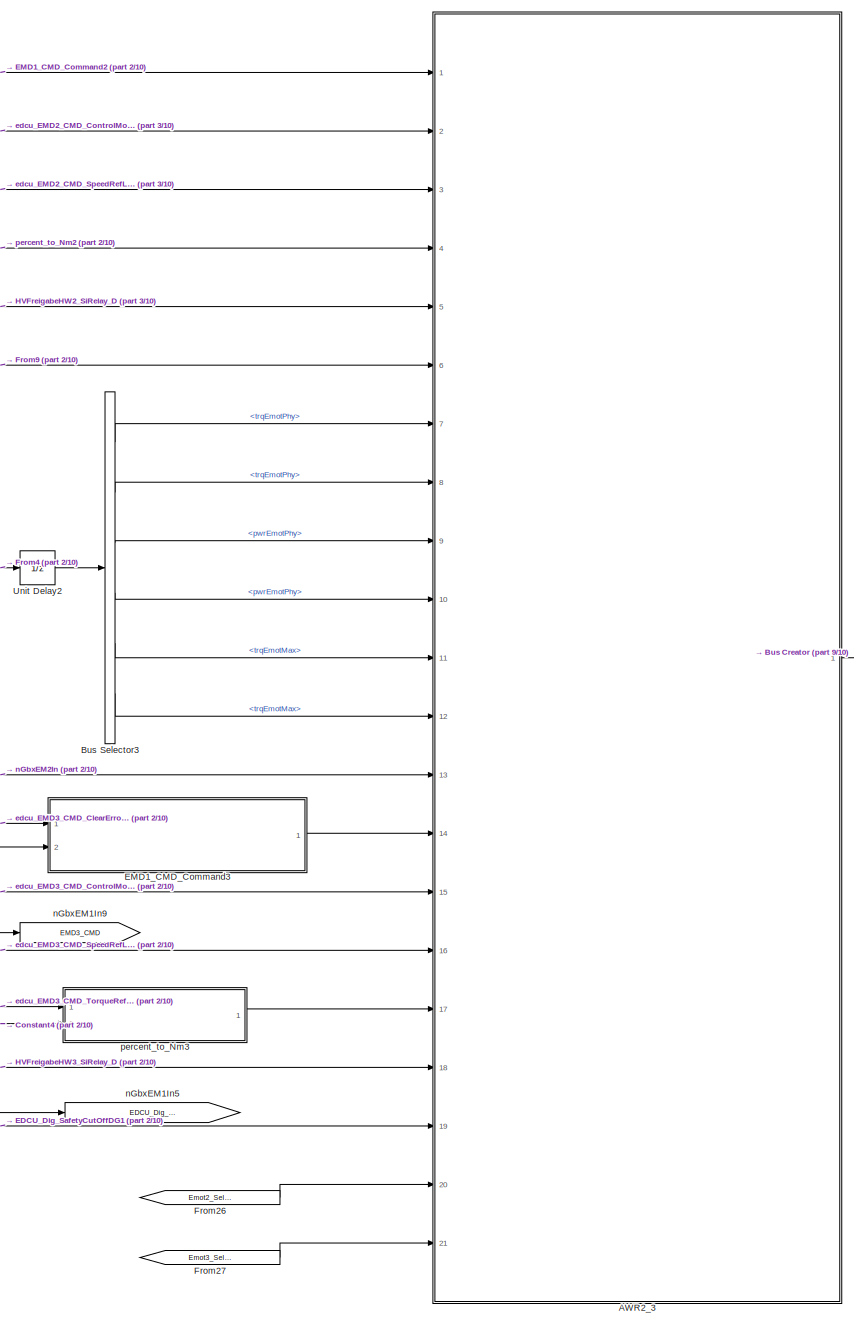
[diagram: AWR_DriveEmot_Gen2 - part 1/10, top center region]
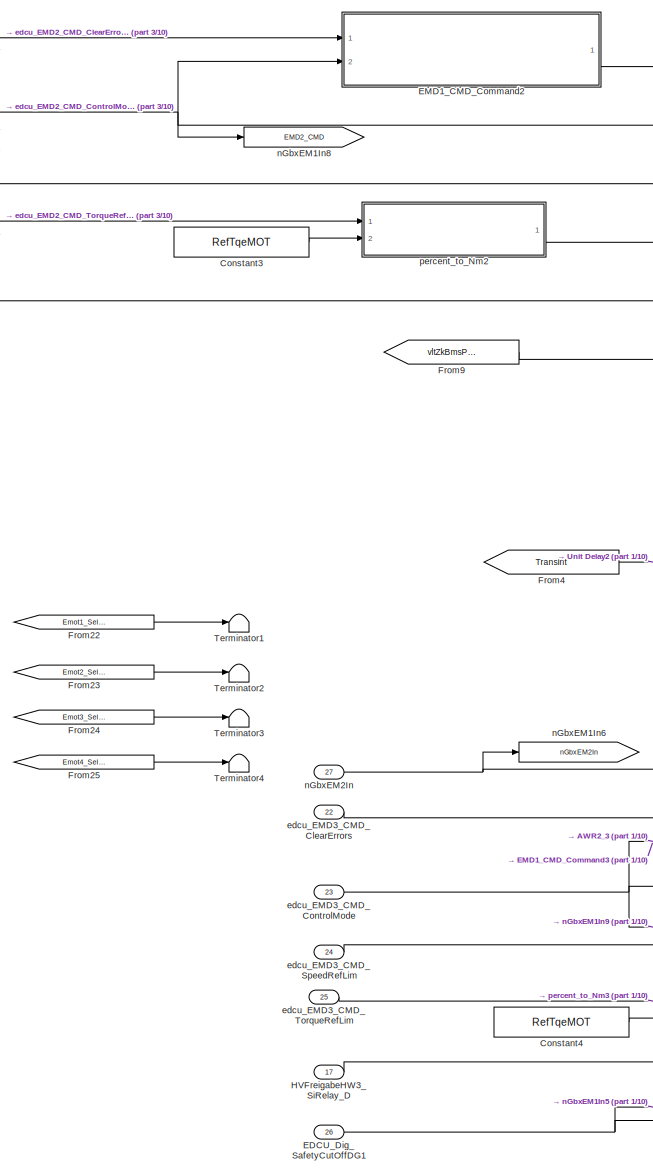
[diagram: AWR_DriveEmot_Gen2 - part 2/10, top left region]
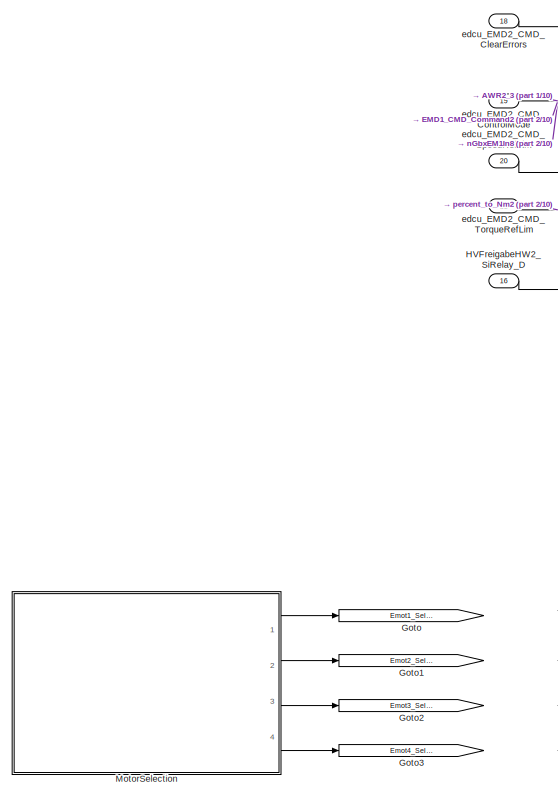
[diagram: AWR_DriveEmot_Gen2 - part 3/10, top left region]
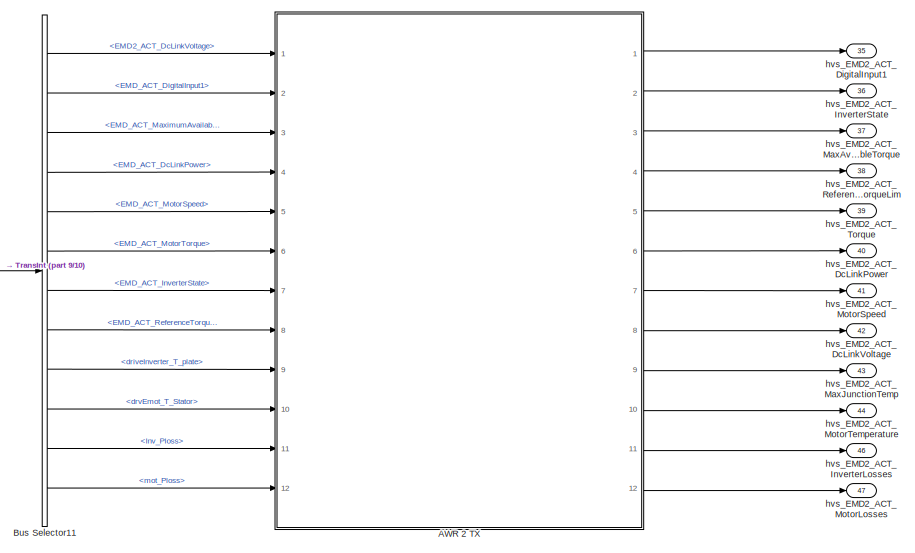
[diagram: AWR_DriveEmot_Gen2 - part 4/10, top right region]
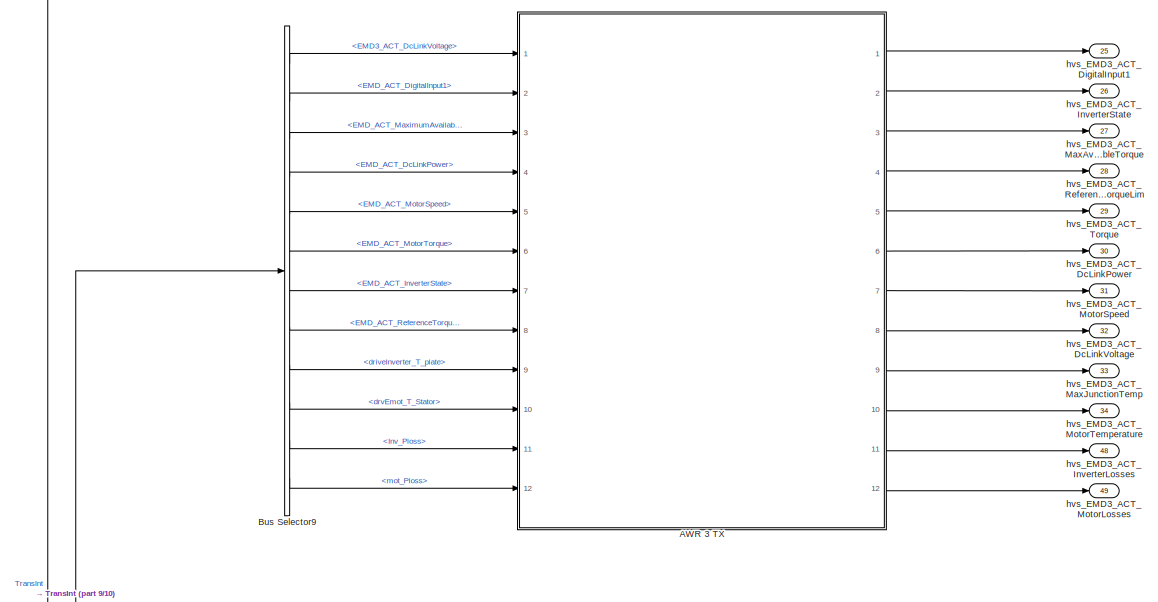
[diagram: AWR_DriveEmot_Gen2 - part 5/10, middle right region]
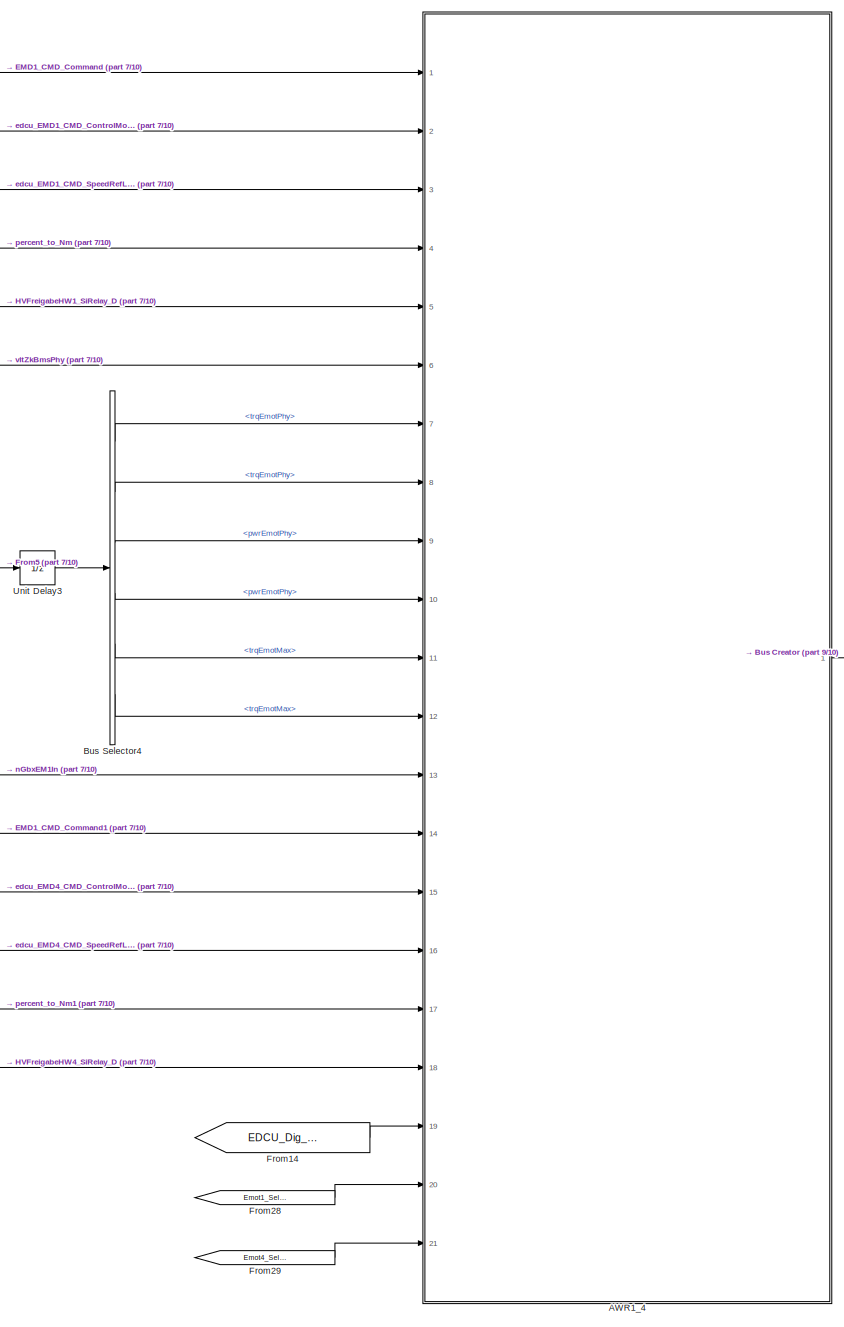
[diagram: AWR_DriveEmot_Gen2 - part 6/10, central region]
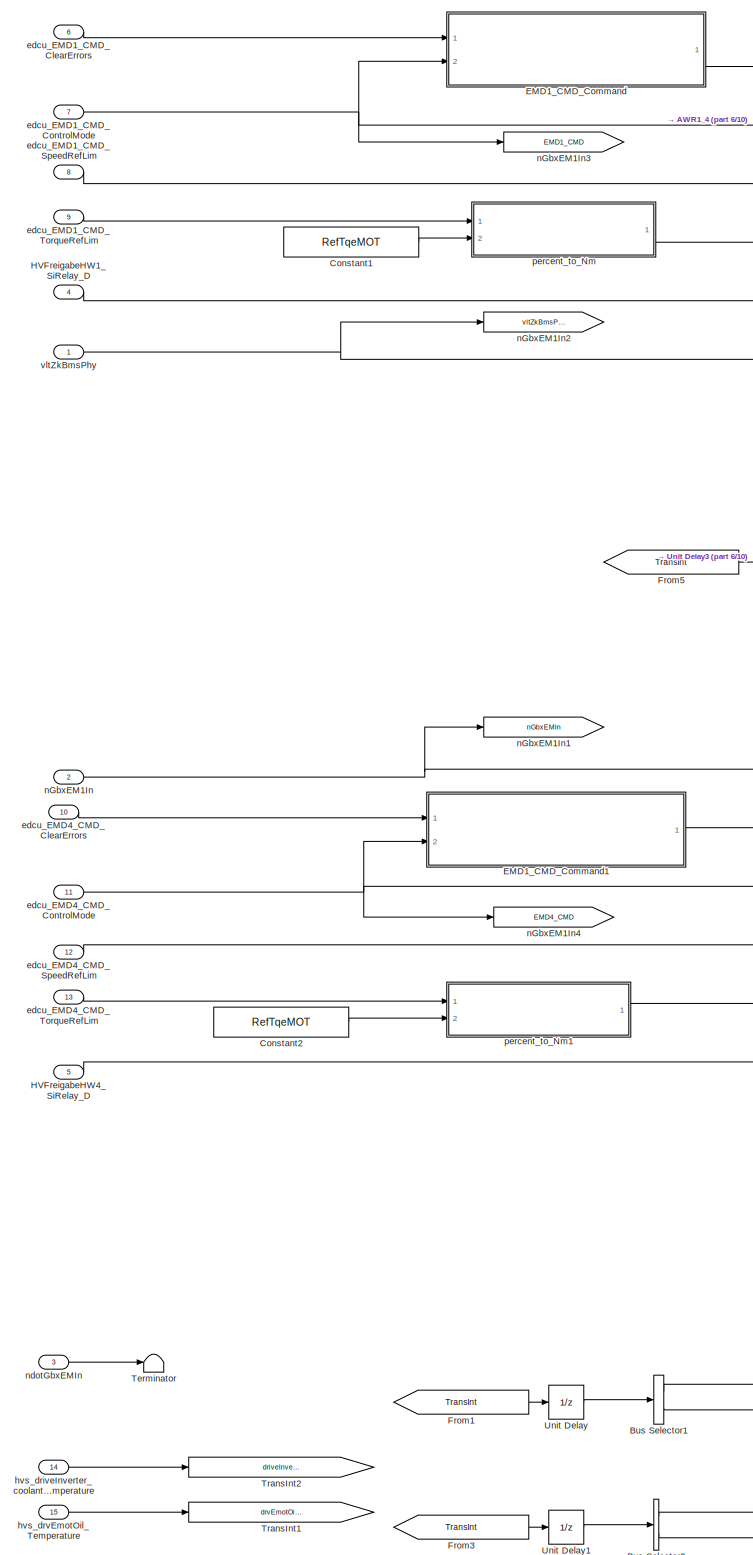
[diagram: AWR_DriveEmot_Gen2 - part 7/10, middle left region]
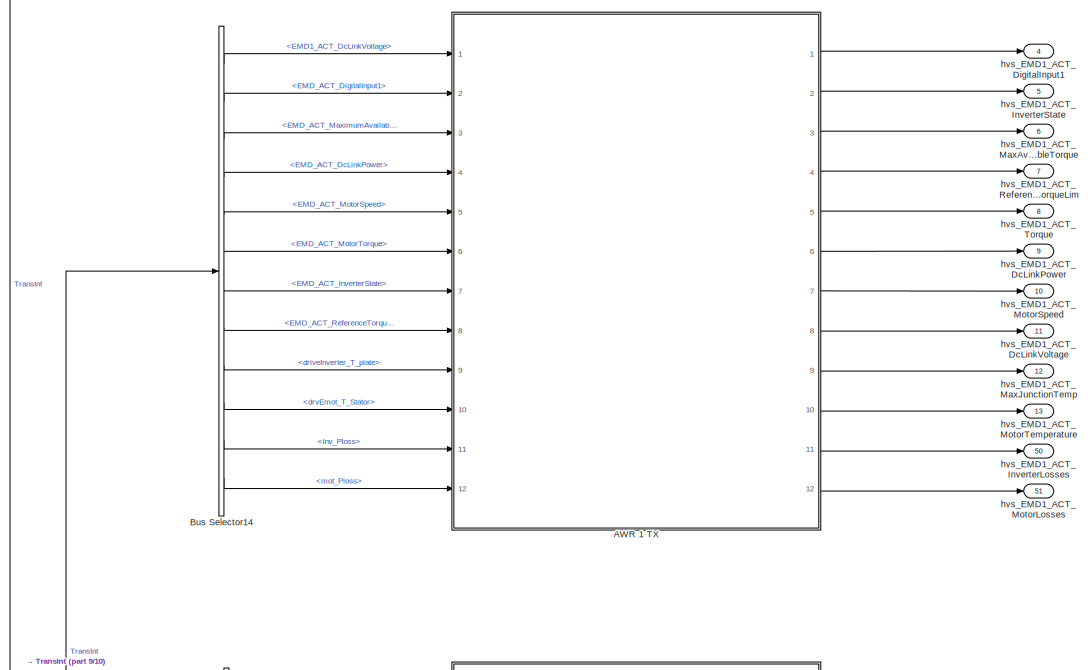
[diagram: AWR_DriveEmot_Gen2 - part 8/10, middle right region]
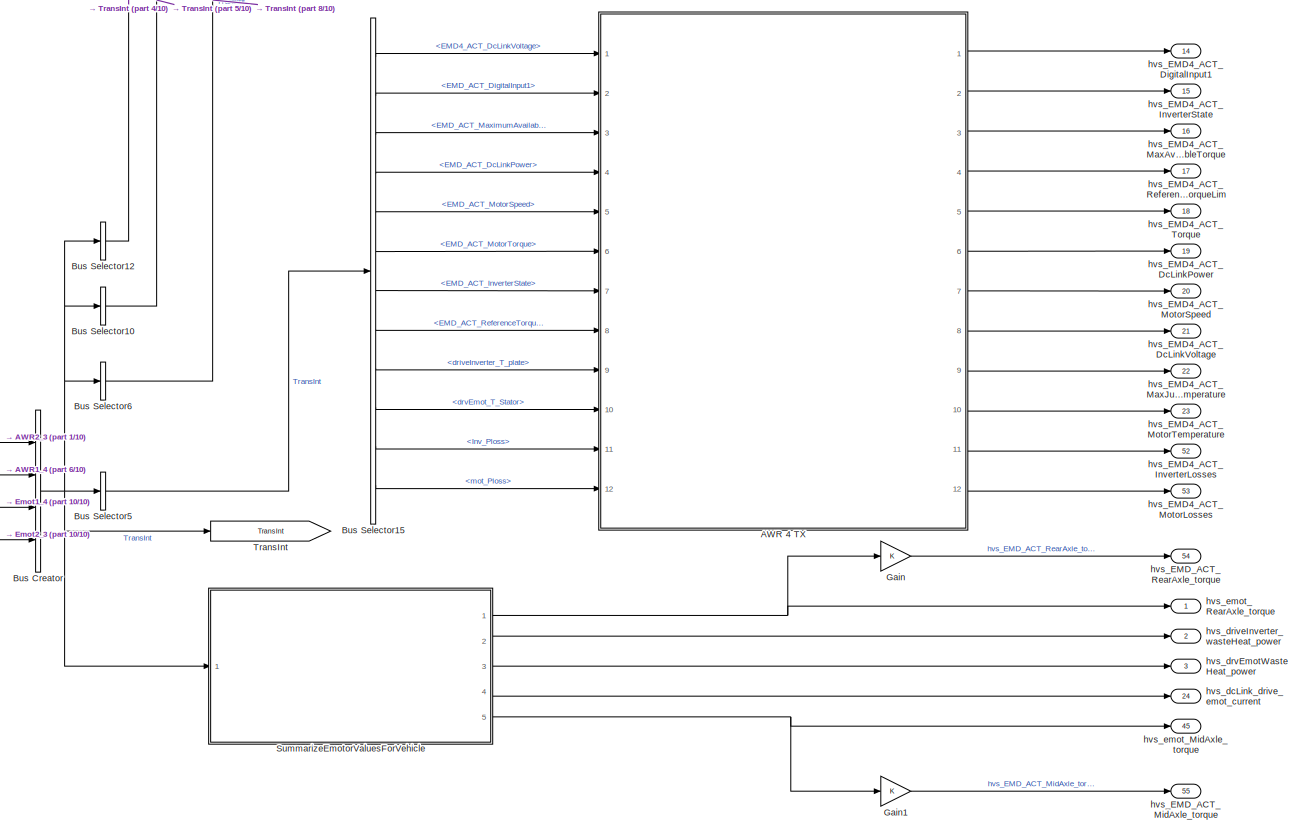
[diagram: AWR_DriveEmot_Gen2 - part 9/10, bottom right region]
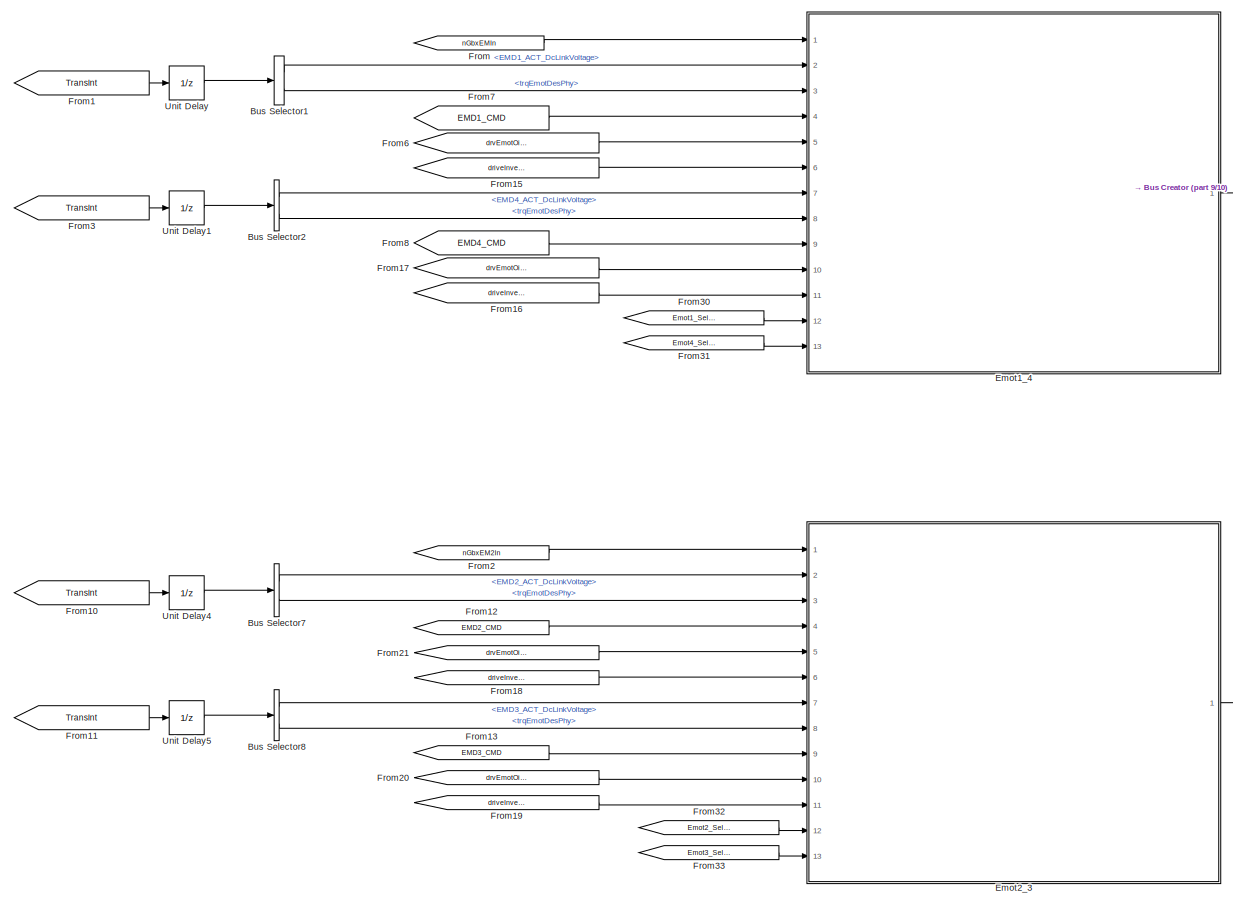
[diagram: AWR_DriveEmot_Gen2 - part 10/10, bottom center region]
BLOCK [SubSystem] AWR_DriveEmot_Gen2
  Ports = [27, 55]
  RequestExecContextInheritance = off
  Variant = off
BLOCK [SubSystem] AWR_DriveEmot_Gen2/AWR 1 TX
  Ports = [12, 12]
  RequestExecContextInheritance = off
  Variant = off
BLOCK [Constant] AWR_DriveEmot_Gen2/AWR 1 TX/Constant3
  Value = RefTqeMOT
BLOCK [Constant] AWR_DriveEmot_Gen2/AWR 1 TX/Constant39
  Value = RefTqeMOT
BLOCK [Constant] AWR_DriveEmot_Gen2/AWR 1 TX/Constant5
  Value = RefTqeMOT
BLOCK [Inport] AWR_DriveEmot_Gen2/AWR 1 TX/IN_EMD1_ACT_DcLinkPower
  IconDisplay = Port number
  Port = 4
BLOCK [Inport] AWR_DriveEmot_Gen2/AWR 1 TX/IN_EMD1_ACT_DcLinkVoltage
  IconDisplay = Port number
BLOCK [Inport] AWR_DriveEmot_Gen2/AWR 1 TX/IN_EMD1_ACT_DigitalInput1
  IconDisplay = Port number
  Port = 2
BLOCK [Inport] AWR_DriveEmot_Gen2/AWR 1 TX/IN_EMD1_ACT_InverterLosses
  IconDisplay = Port number
  Port = 11
BLOCK [Inport] AWR_DriveEmot_Gen2/AWR 1 TX/IN_EMD1_ACT_InverterState
  IconDisplay = Port number
  Port = 7
BLOCK [Inport] AWR_DriveEmot_Gen2/AWR 1 TX/IN_EMD1_ACT_MaxJunctionTemperature
  IconDisplay = Port number
  Port = 9
BLOCK [Inport] AWR_DriveEmot_Gen2/AWR 1 TX/IN_EMD1_ACT_MaximumAvailableTorque
  IconDisplay = Port number
  Port = 3
BLOCK [Inport] AWR_DriveEmot_Gen2/AWR 1 TX/IN_EMD1_ACT_MotorLosses
  IconDisplay = Port number
  Port = 12
BLOCK [Inport] AWR_DriveEmot_Gen2/AWR 1 TX/IN_EMD1_ACT_MotorSpeed
  IconDisplay = Port number
  Port = 5
BLOCK [Inport] AWR_DriveEmot_Gen2/AWR 1 TX/IN_EMD1_ACT_MotorTemperature
  IconDisplay = Port number
  Port = 10
BLOCK [Inport] AWR_DriveEmot_Gen2/AWR 1 TX/IN_EMD1_ACT_ReferenceTorqueLimited
  IconDisplay = Port number
  Port = 8
BLOCK [Inport] AWR_DriveEmot_Gen2/AWR 1 TX/IN_EMD1_ACT_Torque
  IconDisplay = Port number
  Port = 6
BLOCK [SubSystem] AWR_DriveEmot_Gen2/AWR 1 TX/Nm_to_percent
  Ports = [2, 1]
  RequestExecContextInheritance = off
  Variant = off
BLOCK [Constant] AWR_DriveEmot_Gen2/AWR 1 TX/Nm_to_percent/Constant
  Value = 100
BLOCK [Product] AWR_DriveEmot_Gen2/AWR 1 TX/Nm_to_percent/Divide1
  InputSameDT = off
  Inputs = */
  OutDataTypeStr = Inherit: Inherit via internal rule
  Ports = [2, 1]
  RndMeth = Floor
  SaturateOnIntegerOverflow = off
BLOCK [Inport] AWR_DriveEmot_Gen2/AWR 1 TX/Nm_to_percent/Nm_Torque
  IconDisplay = Port number
BLOCK [Product] AWR_DriveEmot_Gen2/AWR 1 TX/Nm_to_percent/Product1
  InputSameDT = off
  OutDataTypeStr = Inherit: Inherit via internal rule
  Ports = [2, 1]
  SaturateOnIntegerOverflow = off
BLOCK [Inport] AWR_DriveEmot_Gen2/AWR 1 TX/Nm_to_percent/Reference_Torque
  IconDisplay = Port number
  Port = 2
BLOCK [Outport] AWR_DriveEmot_Gen2/AWR 1 TX/Nm_to_percent/Torque_Percentage
  IconDisplay = Port number
BLOCK [SubSystem] AWR_DriveEmot_Gen2/AWR 1 TX/Nm_to_percent1
  Ports = [2, 1]
  RequestExecContextInheritance = off
  Variant = off
BLOCK [Constant] AWR_DriveEmot_Gen2/AWR 1 TX/Nm_to_percent1/Constant
  Value = 100
BLOCK [Product] AWR_DriveEmot_Gen2/AWR 1 TX/Nm_to_percent1/Divide1
  InputSameDT = off
  Inputs = */
  OutDataTypeStr = Inherit: Inherit via internal rule
  Ports = [2, 1]
  RndMeth = Floor
  SaturateOnIntegerOverflow = off
BLOCK [Inport] AWR_DriveEmot_Gen2/AWR 1 TX/Nm_to_percent1/Nm_Torque
  IconDisplay = Port number
BLOCK [Product] AWR_DriveEmot_Gen2/AWR 1 TX/Nm_to_percent1/Product1
  InputSameDT = off
  OutDataTypeStr = Inherit: Inherit via internal rule
  Ports = [2, 1]
  SaturateOnIntegerOverflow = off
BLOCK [Inport] AWR_DriveEmot_Gen2/AWR 1 TX/Nm_to_percent1/Reference_Torque
  IconDisplay = Port number
  Port = 2
BLOCK [Outport] AWR_DriveEmot_Gen2/AWR 1 TX/Nm_to_percent1/Torque_Percentage
  IconDisplay = Port number
BLOCK [SubSystem] AWR_DriveEmot_Gen2/AWR 1 TX/Nm_to_percent2
  Ports = [2, 1]
  RequestExecContextInheritance = off
  Variant = off
BLOCK [Constant] AWR_DriveEmot_Gen2/AWR 1 TX/Nm_to_percent2/Constant
  Value = 100
BLOCK [Product] AWR_DriveEmot_Gen2/AWR 1 TX/Nm_to_percent2/Divide1
  InputSameDT = off
  Inputs = */
  OutDataTypeStr = Inherit: Inherit via internal rule
  Ports = [2, 1]
  RndMeth = Floor
  SaturateOnIntegerOverflow = off
BLOCK [Inport] AWR_DriveEmot_Gen2/AWR 1 TX/Nm_to_percent2/Nm_Torque
  IconDisplay = Port number
BLOCK [Product] AWR_DriveEmot_Gen2/AWR 1 TX/Nm_to_percent2/Product1
  InputSameDT = off
  OutDataTypeStr = Inherit: Inherit via internal rule
  Ports = [2, 1]
  SaturateOnIntegerOverflow = off
BLOCK [Inport] AWR_DriveEmot_Gen2/AWR 1 TX/Nm_to_percent2/Reference_Torque
  IconDisplay = Port number
  Port = 2
BLOCK [Outport] AWR_DriveEmot_Gen2/AWR 1 TX/Nm_to_percent2/Torque_Percentage
  IconDisplay = Port number
BLOCK [Outport] AWR_DriveEmot_Gen2/AWR 1 TX/hvs_EMD1_ACT_DcLinkPower
  IconDisplay = Port number
  Port = 6
BLOCK [Outport] AWR_DriveEmot_Gen2/AWR 1 TX/hvs_EMD1_ACT_DcLinkVoltage
  IconDisplay = Port number
  Port = 8
BLOCK [Outport] AWR_DriveEmot_Gen2/AWR 1 TX/hvs_EMD1_ACT_DigitalInput1
  IconDisplay = Port number
BLOCK [Outport] AWR_DriveEmot_Gen2/AWR 1 TX/hvs_EMD1_ACT_InverterLosses
  IconDisplay = Port number
  Port = 11
BLOCK [Outport] AWR_DriveEmot_Gen2/AWR 1 TX/hvs_EMD1_ACT_InverterState
  IconDisplay = Port number
  Port = 2
BLOCK [Outport] AWR_DriveEmot_Gen2/AWR 1 TX/hvs_EMD1_ACT_MaxAvailableTorque
  IconDisplay = Port number
  Port = 3
BLOCK [Outport] AWR_DriveEmot_Gen2/AWR 1 TX/hvs_EMD1_ACT_MaxJunctionTemp
  IconDisplay = Port number
  Port = 9
BLOCK [Outport] AWR_DriveEmot_Gen2/AWR 1 TX/hvs_EMD1_ACT_MotorLosses
  IconDisplay = Port number
  Port = 12
BLOCK [Outport] AWR_DriveEmot_Gen2/AWR 1 TX/hvs_EMD1_ACT_MotorSpeed
  IconDisplay = Port number
  Port = 7
BLOCK [Outport] AWR_DriveEmot_Gen2/AWR 1 TX/hvs_EMD1_ACT_MotorTemperature
  IconDisplay = Port number
  Port = 10
BLOCK [Outport] AWR_DriveEmot_Gen2/AWR 1 TX/hvs_EMD1_ACT_ReferenceTorqueLim
  IconDisplay = Port number
  Port = 4
BLOCK [Outport] AWR_DriveEmot_Gen2/AWR 1 TX/hvs_EMD1_ACT_Torque
  IconDisplay = Port number
  Port = 5
BLOCK [SubSystem] AWR_DriveEmot_Gen2/AWR 2 TX
  Ports = [12, 12]
  RequestExecContextInheritance = off
  Variant = off
BLOCK [Constant] AWR_DriveEmot_Gen2/AWR 2 TX/Constant3
  Value = RefTqeMOT
BLOCK [Constant] AWR_DriveEmot_Gen2/AWR 2 TX/Constant39
  Value = RefTqeMOT
BLOCK [Constant] AWR_DriveEmot_Gen2/AWR 2 TX/Constant5
  Value = RefTqeMOT
BLOCK [Inport] AWR_DriveEmot_Gen2/AWR 2 TX/IN_EMD2_ACT_DcLinkPower
  IconDisplay = Port number
  Port = 4
BLOCK [Inport] AWR_DriveEmot_Gen2/AWR 2 TX/IN_EMD2_ACT_DcLinkVoltage
  IconDisplay = Port number
BLOCK [Inport] AWR_DriveEmot_Gen2/AWR 2 TX/IN_EMD2_ACT_DigitalInput1
  IconDisplay = Port number
  Port = 2
BLOCK [Inport] AWR_DriveEmot_Gen2/AWR 2 TX/IN_EMD2_ACT_InverterLosses
  IconDisplay = Port number
  Port = 11
BLOCK [Inport] AWR_DriveEmot_Gen2/AWR 2 TX/IN_EMD2_ACT_InverterState
  IconDisplay = Port number
  Port = 7
BLOCK [Inport] AWR_DriveEmot_Gen2/AWR 2 TX/IN_EMD2_ACT_MaxJunctionTemperature
  IconDisplay = Port number
  Port = 9
BLOCK [Inport] AWR_DriveEmot_Gen2/AWR 2 TX/IN_EMD2_ACT_MaximumAvailableTorque
  IconDisplay = Port number
  Port = 3
BLOCK [Inport] AWR_DriveEmot_Gen2/AWR 2 TX/IN_EMD2_ACT_MotorLosses
  IconDisplay = Port number
  Port = 12
BLOCK [Inport] AWR_DriveEmot_Gen2/AWR 2 TX/IN_EMD2_ACT_MotorSpeed
  IconDisplay = Port number
  Port = 5
BLOCK [Inport] AWR_DriveEmot_Gen2/AWR 2 TX/IN_EMD2_ACT_MotorTemperature
  IconDisplay = Port number
  Port = 10
BLOCK [Inport] AWR_DriveEmot_Gen2/AWR 2 TX/IN_EMD2_ACT_ReferenceTorqueLimited
  IconDisplay = Port number
  Port = 8
BLOCK [Inport] AWR_DriveEmot_Gen2/AWR 2 TX/IN_EMD2_ACT_Torque
  IconDisplay = Port number
  Port = 6
BLOCK [SubSystem] AWR_DriveEmot_Gen2/AWR 2 TX/Nm_to_percent
  Ports = [2, 1]
  RequestExecContextInheritance = off
  Variant = off
BLOCK [Constant] AWR_DriveEmot_Gen2/AWR 2 TX/Nm_to_percent/Constant
  Value = 100
BLOCK [Product] AWR_DriveEmot_Gen2/AWR 2 TX/Nm_to_percent/Divide1
  InputSameDT = off
  Inputs = */
  OutDataTypeStr = Inherit: Inherit via internal rule
  Ports = [2, 1]
  RndMeth = Floor
  SaturateOnIntegerOverflow = off
BLOCK [Inport] AWR_DriveEmot_Gen2/AWR 2 TX/Nm_to_percent/Nm_Torque
  IconDisplay = Port number
BLOCK [Product] AWR_DriveEmot_Gen2/AWR 2 TX/Nm_to_percent/Product1
  InputSameDT = off
  OutDataTypeStr = Inherit: Inherit via internal rule
  Ports = [2, 1]
  SaturateOnIntegerOverflow = off
BLOCK [Inport] AWR_DriveEmot_Gen2/AWR 2 TX/Nm_to_percent/Reference_Torque
  IconDisplay = Port number
  Port = 2
BLOCK [Outport] AWR_DriveEmot_Gen2/AWR 2 TX/Nm_to_percent/Torque_Percentage
  IconDisplay = Port number
BLOCK [SubSystem] AWR_DriveEmot_Gen2/AWR 2 TX/Nm_to_percent1
  Ports = [2, 1]
  RequestExecContextInheritance = off
  Variant = off
BLOCK [Constant] AWR_DriveEmot_Gen2/AWR 2 TX/Nm_to_percent1/Constant
  Value = 100
BLOCK [Product] AWR_DriveEmot_Gen2/AWR 2 TX/Nm_to_percent1/Divide1
  InputSameDT = off
  Inputs = */
  OutDataTypeStr = Inherit: Inherit via internal rule
  Ports = [2, 1]
  RndMeth = Floor
  SaturateOnIntegerOverflow = off
BLOCK [Inport] AWR_DriveEmot_Gen2/AWR 2 TX/Nm_to_percent1/Nm_Torque
  IconDisplay = Port number
BLOCK [Product] AWR_DriveEmot_Gen2/AWR 2 TX/Nm_to_percent1/Product1
  InputSameDT = off
  OutDataTypeStr = Inherit: Inherit via internal rule
  Ports = [2, 1]
  SaturateOnIntegerOverflow = off
BLOCK [Inport] AWR_DriveEmot_Gen2/AWR 2 TX/Nm_to_percent1/Reference_Torque
  IconDisplay = Port number
  Port = 2
BLOCK [Outport] AWR_DriveEmot_Gen2/AWR 2 TX/Nm_to_percent1/Torque_Percentage
  IconDisplay = Port number
BLOCK [SubSystem] AWR_DriveEmot_Gen2/AWR 2 TX/Nm_to_percent2
  Ports = [2, 1]
  RequestExecContextInheritance = off
  Variant = off
BLOCK [Constant] AWR_DriveEmot_Gen2/AWR 2 TX/Nm_to_percent2/Constant
  Value = 100
BLOCK [Product] AWR_DriveEmot_Gen2/AWR 2 TX/Nm_to_percent2/Divide1
  InputSameDT = off
  Inputs = */
  OutDataTypeStr = Inherit: Inherit via internal rule
  Ports = [2, 1]
  RndMeth = Floor
  SaturateOnIntegerOverflow = off
BLOCK [Inport] AWR_DriveEmot_Gen2/AWR 2 TX/Nm_to_percent2/Nm_Torque
  IconDisplay = Port number
BLOCK [Product] AWR_DriveEmot_Gen2/AWR 2 TX/Nm_to_percent2/Product1
  InputSameDT = off
  OutDataTypeStr = Inherit: Inherit via internal rule
  Ports = [2, 1]
  SaturateOnIntegerOverflow = off
BLOCK [Inport] AWR_DriveEmot_Gen2/AWR 2 TX/Nm_to_percent2/Reference_Torque
  IconDisplay = Port number
  Port = 2
BLOCK [Outport] AWR_DriveEmot_Gen2/AWR 2 TX/Nm_to_percent2/Torque_Percentage
  IconDisplay = Port number
BLOCK [Outport] AWR_DriveEmot_Gen2/AWR 2 TX/hvs_EMD2_ACT_DcLinkPower
  IconDisplay = Port number
  Port = 6
BLOCK [Outport] AWR_DriveEmot_Gen2/AWR 2 TX/hvs_EMD2_ACT_DcLinkVoltage
  IconDisplay = Port number
  Port = 8
BLOCK [Outport] AWR_DriveEmot_Gen2/AWR 2 TX/hvs_EMD2_ACT_DigitalInput1
  IconDisplay = Port number
BLOCK [Outport] AWR_DriveEmot_Gen2/AWR 2 TX/hvs_EMD2_ACT_InverterLosses
  IconDisplay = Port number
  Port = 11
BLOCK [Outport] AWR_DriveEmot_Gen2/AWR 2 TX/hvs_EMD2_ACT_InverterState
  IconDisplay = Port number
  Port = 2
BLOCK [Outport] AWR_DriveEmot_Gen2/AWR 2 TX/hvs_EMD2_ACT_MaxAvailableTorque
  IconDisplay = Port number
  Port = 3
BLOCK [Outport] AWR_DriveEmot_Gen2/AWR 2 TX/hvs_EMD2_ACT_MaxJunctionTemp
  IconDisplay = Port number
  Port = 9
BLOCK [Outport] AWR_DriveEmot_Gen2/AWR 2 TX/hvs_EMD2_ACT_MotorLosses
  IconDisplay = Port number
  Port = 12
BLOCK [Outport] AWR_DriveEmot_Gen2/AWR 2 TX/hvs_EMD2_ACT_MotorSpeed
  IconDisplay = Port number
  Port = 7
BLOCK [Outport] AWR_DriveEmot_Gen2/AWR 2 TX/hvs_EMD2_ACT_MotorTemperature
  IconDisplay = Port number
  Port = 10
BLOCK [Outport] AWR_DriveEmot_Gen2/AWR 2 TX/hvs_EMD2_ACT_ReferenceTorqueLim
  IconDisplay = Port number
  Port = 4
BLOCK [Outport] AWR_DriveEmot_Gen2/AWR 2 TX/hvs_EMD2_ACT_Torque
  IconDisplay = Port number
  Port = 5
BLOCK [SubSystem] AWR_DriveEmot_Gen2/AWR 3 TX
  Ports = [12, 12]
  RequestExecContextInheritance = off
  Variant = off
BLOCK [Constant] AWR_DriveEmot_Gen2/AWR 3 TX/Constant3
  Value = RefTqeMOT
BLOCK [Constant] AWR_DriveEmot_Gen2/AWR 3 TX/Constant39
  Value = RefTqeMOT
BLOCK [Constant] AWR_DriveEmot_Gen2/AWR 3 TX/Constant5
  Value = RefTqeMOT
BLOCK [Inport] AWR_DriveEmot_Gen2/AWR 3 TX/IN_EMD3_ACT_DcLinkPower
  IconDisplay = Port number
  Port = 4
BLOCK [Inport] AWR_DriveEmot_Gen2/AWR 3 TX/IN_EMD3_ACT_DcLinkVoltage
  IconDisplay = Port number
BLOCK [Inport] AWR_DriveEmot_Gen2/AWR 3 TX/IN_EMD3_ACT_DigitalInput1
  IconDisplay = Port number
  Port = 2
BLOCK [Inport] AWR_DriveEmot_Gen2/AWR 3 TX/IN_EMD3_ACT_InverterLosses
  IconDisplay = Port number
  Port = 11
BLOCK [Inport] AWR_DriveEmot_Gen2/AWR 3 TX/IN_EMD3_ACT_InverterState
  IconDisplay = Port number
  Port = 7
BLOCK [Inport] AWR_DriveEmot_Gen2/AWR 3 TX/IN_EMD3_ACT_MaxJunctionTemperature
  IconDisplay = Port number
  Port = 9
BLOCK [Inport] AWR_DriveEmot_Gen2/AWR 3 TX/IN_EMD3_ACT_MaximumAvailableTorque
  IconDisplay = Port number
  Port = 3
BLOCK [Inport] AWR_DriveEmot_Gen2/AWR 3 TX/IN_EMD3_ACT_MotorLosses
  IconDisplay = Port number
  Port = 12
BLOCK [Inport] AWR_DriveEmot_Gen2/AWR 3 TX/IN_EMD3_ACT_MotorSpeed
  IconDisplay = Port number
  Port = 5
BLOCK [Inport] AWR_DriveEmot_Gen2/AWR 3 TX/IN_EMD3_ACT_MotorTemperature
  IconDisplay = Port number
  Port = 10
BLOCK [Inport] AWR_DriveEmot_Gen2/AWR 3 TX/IN_EMD3_ACT_ReferenceTorqueLimited
  IconDisplay = Port number
  Port = 8
BLOCK [Inport] AWR_DriveEmot_Gen2/AWR 3 TX/IN_EMD3_ACT_Torque
  IconDisplay = Port number
  Port = 6
BLOCK [SubSystem] AWR_DriveEmot_Gen2/AWR 3 TX/Nm_to_percent
  Ports = [2, 1]
  RequestExecContextInheritance = off
  Variant = off
BLOCK [Constant] AWR_DriveEmot_Gen2/AWR 3 TX/Nm_to_percent/Constant
  Value = 100
BLOCK [Product] AWR_DriveEmot_Gen2/AWR 3 TX/Nm_to_percent/Divide1
  InputSameDT = off
  Inputs = */
  OutDataTypeStr = Inherit: Inherit via internal rule
  Ports = [2, 1]
  RndMeth = Floor
  SaturateOnIntegerOverflow = off
BLOCK [Inport] AWR_DriveEmot_Gen2/AWR 3 TX/Nm_to_percent/Nm_Torque
  IconDisplay = Port number
BLOCK [Product] AWR_DriveEmot_Gen2/AWR 3 TX/Nm_to_percent/Product1
  InputSameDT = off
  OutDataTypeStr = Inherit: Inherit via internal rule
  Ports = [2, 1]
  SaturateOnIntegerOverflow = off
BLOCK [Inport] AWR_DriveEmot_Gen2/AWR 3 TX/Nm_to_percent/Reference_Torque
  IconDisplay = Port number
  Port = 2
BLOCK [Outport] AWR_DriveEmot_Gen2/AWR 3 TX/Nm_to_percent/Torque_Percentage
  IconDisplay = Port number
BLOCK [SubSystem] AWR_DriveEmot_Gen2/AWR 3 TX/Nm_to_percent1
  Ports = [2, 1]
  RequestExecContextInheritance = off
  Variant = off
BLOCK [Constant] AWR_DriveEmot_Gen2/AWR 3 TX/Nm_to_percent1/Constant
  Value = 100
BLOCK [Product] AWR_DriveEmot_Gen2/AWR 3 TX/Nm_to_percent1/Divide1
  InputSameDT = off
  Inputs = */
  OutDataTypeStr = Inherit: Inherit via internal rule
  Ports = [2, 1]
  RndMeth = Floor
  SaturateOnIntegerOverflow = off
BLOCK [Inport] AWR_DriveEmot_Gen2/AWR 3 TX/Nm_to_percent1/Nm_Torque
  IconDisplay = Port number
BLOCK [Product] AWR_DriveEmot_Gen2/AWR 3 TX/Nm_to_percent1/Product1
  InputSameDT = off
  OutDataTypeStr = Inherit: Inherit via internal rule
  Ports = [2, 1]
  SaturateOnIntegerOverflow = off
BLOCK [Inport] AWR_DriveEmot_Gen2/AWR 3 TX/Nm_to_percent1/Reference_Torque
  IconDisplay = Port number
  Port = 2
BLOCK [Outport] AWR_DriveEmot_Gen2/AWR 3 TX/Nm_to_percent1/Torque_Percentage
  IconDisplay = Port number
BLOCK [SubSystem] AWR_DriveEmot_Gen2/AWR 3 TX/Nm_to_percent2
  Ports = [2, 1]
  RequestExecContextInheritance = off
  Variant = off
BLOCK [Constant] AWR_DriveEmot_Gen2/AWR 3 TX/Nm_to_percent2/Constant
  Value = 100
BLOCK [Product] AWR_DriveEmot_Gen2/AWR 3 TX/Nm_to_percent2/Divide1
  InputSameDT = off
  Inputs = */
  OutDataTypeStr = Inherit: Inherit via internal rule
  Ports = [2, 1]
  RndMeth = Floor
  SaturateOnIntegerOverflow = off
BLOCK [Inport] AWR_DriveEmot_Gen2/AWR 3 TX/Nm_to_percent2/Nm_Torque
  IconDisplay = Port number
BLOCK [Product] AWR_DriveEmot_Gen2/AWR 3 TX/Nm_to_percent2/Product1
  InputSameDT = off
  OutDataTypeStr = Inherit: Inherit via internal rule
  Ports = [2, 1]
  SaturateOnIntegerOverflow = off
BLOCK [Inport] AWR_DriveEmot_Gen2/AWR 3 TX/Nm_to_percent2/Reference_Torque
  IconDisplay = Port number
  Port = 2
BLOCK [Outport] AWR_DriveEmot_Gen2/AWR 3 TX/Nm_to_percent2/Torque_Percentage
  IconDisplay = Port number
BLOCK [Outport] AWR_DriveEmot_Gen2/AWR 3 TX/hvs_EMD3_ACT_DcLinkPower
  IconDisplay = Port number
  Port = 6
BLOCK [Outport] AWR_DriveEmot_Gen2/AWR 3 TX/hvs_EMD3_ACT_DcLinkVoltage
  IconDisplay = Port number
  Port = 8
BLOCK [Outport] AWR_DriveEmot_Gen2/AWR 3 TX/hvs_EMD3_ACT_DigitalInput1
  IconDisplay = Port number
BLOCK [Outport] AWR_DriveEmot_Gen2/AWR 3 TX/hvs_EMD3_ACT_InverterLosses
  IconDisplay = Port number
  Port = 11
BLOCK [Outport] AWR_DriveEmot_Gen2/AWR 3 TX/hvs_EMD3_ACT_InverterState
  IconDisplay = Port number
  Port = 2
BLOCK [Outport] AWR_DriveEmot_Gen2/AWR 3 TX/hvs_EMD3_ACT_MaxAvailableTorque
  IconDisplay = Port number
  Port = 3
BLOCK [Outport] AWR_DriveEmot_Gen2/AWR 3 TX/hvs_EMD3_ACT_MaxJunctionTemp
  IconDisplay = Port number
  Port = 9
BLOCK [Outport] AWR_DriveEmot_Gen2/AWR 3 TX/hvs_EMD3_ACT_MotorLosses
  IconDisplay = Port number
  Port = 12
BLOCK [Outport] AWR_DriveEmot_Gen2/AWR 3 TX/hvs_EMD3_ACT_MotorSpeed
  IconDisplay = Port number
  Port = 7
BLOCK [Outport] AWR_DriveEmot_Gen2/AWR 3 TX/hvs_EMD3_ACT_MotorTemperature
  IconDisplay = Port number
  Port = 10
BLOCK [Outport] AWR_DriveEmot_Gen2/AWR 3 TX/hvs_EMD3_ACT_ReferenceTorqueLim
  IconDisplay = Port number
  Port = 4
BLOCK [Outport] AWR_DriveEmot_Gen2/AWR 3 TX/hvs_EMD3_ACT_Torque
  IconDisplay = Port number
  Port = 5
BLOCK [SubSystem] AWR_DriveEmot_Gen2/AWR 4 TX
  Ports = [12, 12]
  RequestExecContextInheritance = off
  Variant = off
BLOCK [Constant] AWR_DriveEmot_Gen2/AWR 4 TX/Constant3
  Value = RefTqeMOT
BLOCK [Constant] AWR_DriveEmot_Gen2/AWR 4 TX/Constant39
  Value = RefTqeMOT
BLOCK [Constant] AWR_DriveEmot_Gen2/AWR 4 TX/Constant5
  Value = RefTqeMOT
BLOCK [Inport] AWR_DriveEmot_Gen2/AWR 4 TX/IN_EMD4_ACT_DcLinkPower
  IconDisplay = Port number
  Port = 4
BLOCK [Inport] AWR_DriveEmot_Gen2/AWR 4 TX/IN_EMD4_ACT_DcLinkVoltage
  IconDisplay = Port number
BLOCK [Inport] AWR_DriveEmot_Gen2/AWR 4 TX/IN_EMD4_ACT_DigitalInput1
  IconDisplay = Port number
  Port = 2
BLOCK [Inport] AWR_DriveEmot_Gen2/AWR 4 TX/IN_EMD4_ACT_InverterLosses
  IconDisplay = Port number
  Port = 11
BLOCK [Inport] AWR_DriveEmot_Gen2/AWR 4 TX/IN_EMD4_ACT_InverterState
  IconDisplay = Port number
  Port = 7
BLOCK [Inport] AWR_DriveEmot_Gen2/AWR 4 TX/IN_EMD4_ACT_MaxJunctionTemperature
  IconDisplay = Port number
  Port = 9
BLOCK [Inport] AWR_DriveEmot_Gen2/AWR 4 TX/IN_EMD4_ACT_MaximumAvailableTorque
  IconDisplay = Port number
  Port = 3
BLOCK [Inport] AWR_DriveEmot_Gen2/AWR 4 TX/IN_EMD4_ACT_MotorLosses
  IconDisplay = Port number
  Port = 12
BLOCK [Inport] AWR_DriveEmot_Gen2/AWR 4 TX/IN_EMD4_ACT_MotorSpeed
  IconDisplay = Port number
  Port = 5
BLOCK [Inport] AWR_DriveEmot_Gen2/AWR 4 TX/IN_EMD4_ACT_MotorTemperature
  IconDisplay = Port number
  Port = 10
BLOCK [Inport] AWR_DriveEmot_Gen2/AWR 4 TX/IN_EMD4_ACT_ReferenceTorqueLimited
  IconDisplay = Port number
  Port = 8
BLOCK [Inport] AWR_DriveEmot_Gen2/AWR 4 TX/IN_EMD4_ACT_Torque
  IconDisplay = Port number
  Port = 6
BLOCK [SubSystem] AWR_DriveEmot_Gen2/AWR 4 TX/Nm_to_percent
  Ports = [2, 1]
  RequestExecContextInheritance = off
  Variant = off
BLOCK [Constant] AWR_DriveEmot_Gen2/AWR 4 TX/Nm_to_percent/Constant
  Value = 100
BLOCK [Product] AWR_DriveEmot_Gen2/AWR 4 TX/Nm_to_percent/Divide1
  InputSameDT = off
  Inputs = */
  OutDataTypeStr = Inherit: Inherit via internal rule
  Ports = [2, 1]
  RndMeth = Floor
  SaturateOnIntegerOverflow = off
BLOCK [Inport] AWR_DriveEmot_Gen2/AWR 4 TX/Nm_to_percent/Nm_Torque
  IconDisplay = Port number
BLOCK [Product] AWR_DriveEmot_Gen2/AWR 4 TX/Nm_to_percent/Product1
  InputSameDT = off
  OutDataTypeStr = Inherit: Inherit via internal rule
  Ports = [2, 1]
  SaturateOnIntegerOverflow = off
BLOCK [Inport] AWR_DriveEmot_Gen2/AWR 4 TX/Nm_to_percent/Reference_Torque
  IconDisplay = Port number
  Port = 2
BLOCK [Outport] AWR_DriveEmot_Gen2/AWR 4 TX/Nm_to_percent/Torque_Percentage
  IconDisplay = Port number
BLOCK [SubSystem] AWR_DriveEmot_Gen2/AWR 4 TX/Nm_to_percent1
  Ports = [2, 1]
  RequestExecContextInheritance = off
  Variant = off
BLOCK [Constant] AWR_DriveEmot_Gen2/AWR 4 TX/Nm_to_percent1/Constant
  Value = 100
BLOCK [Product] AWR_DriveEmot_Gen2/AWR 4 TX/Nm_to_percent1/Divide1
  InputSameDT = off
  Inputs = */
  OutDataTypeStr = Inherit: Inherit via internal rule
  Ports = [2, 1]
  RndMeth = Floor
  SaturateOnIntegerOverflow = off
BLOCK [Inport] AWR_DriveEmot_Gen2/AWR 4 TX/Nm_to_percent1/Nm_Torque
  IconDisplay = Port number
BLOCK [Product] AWR_DriveEmot_Gen2/AWR 4 TX/Nm_to_percent1/Product1
  InputSameDT = off
  OutDataTypeStr = Inherit: Inherit via internal rule
  Ports = [2, 1]
  SaturateOnIntegerOverflow = off
BLOCK [Inport] AWR_DriveEmot_Gen2/AWR 4 TX/Nm_to_percent1/Reference_Torque
  IconDisplay = Port number
  Port = 2
BLOCK [Outport] AWR_DriveEmot_Gen2/AWR 4 TX/Nm_to_percent1/Torque_Percentage
  IconDisplay = Port number
BLOCK [SubSystem] AWR_DriveEmot_Gen2/AWR 4 TX/Nm_to_percent2
  Ports = [2, 1]
  RequestExecContextInheritance = off
  Variant = off
BLOCK [Constant] AWR_DriveEmot_Gen2/AWR 4 TX/Nm_to_percent2/Constant
  Value = 100
BLOCK [Product] AWR_DriveEmot_Gen2/AWR 4 TX/Nm_to_percent2/Divide1
  InputSameDT = off
  Inputs = */
  OutDataTypeStr = Inherit: Inherit via internal rule
  Ports = [2, 1]
  RndMeth = Floor
  SaturateOnIntegerOverflow = off
BLOCK [Inport] AWR_DriveEmot_Gen2/AWR 4 TX/Nm_to_percent2/Nm_Torque
  IconDisplay = Port number
BLOCK [Product] AWR_DriveEmot_Gen2/AWR 4 TX/Nm_to_percent2/Product1
  InputSameDT = off
  OutDataTypeStr = Inherit: Inherit via internal rule
  Ports = [2, 1]
  SaturateOnIntegerOverflow = off
BLOCK [Inport] AWR_DriveEmot_Gen2/AWR 4 TX/Nm_to_percent2/Reference_Torque
  IconDisplay = Port number
  Port = 2
BLOCK [Outport] AWR_DriveEmot_Gen2/AWR 4 TX/Nm_to_percent2/Torque_Percentage
  IconDisplay = Port number
BLOCK [Outport] AWR_DriveEmot_Gen2/AWR 4 TX/hvs_EMD4_ACT_DcLinkPower
  IconDisplay = Port number
  Port = 6
BLOCK [Outport] AWR_DriveEmot_Gen2/AWR 4 TX/hvs_EMD4_ACT_DcLinkVoltage
  IconDisplay = Port number
  Port = 8
BLOCK [Outport] AWR_DriveEmot_Gen2/AWR 4 TX/hvs_EMD4_ACT_DigitalInput1
  IconDisplay = Port number
BLOCK [Outport] AWR_DriveEmot_Gen2/AWR 4 TX/hvs_EMD4_ACT_InverterLosses
  IconDisplay = Port number
  Port = 11
BLOCK [Outport] AWR_DriveEmot_Gen2/AWR 4 TX/hvs_EMD4_ACT_InverterState
  IconDisplay = Port number
  Port = 2
BLOCK [Outport] AWR_DriveEmot_Gen2/AWR 4 TX/hvs_EMD4_ACT_MaxAvailableTorque
  IconDisplay = Port number
  Port = 3
BLOCK [Outport] AWR_DriveEmot_Gen2/AWR 4 TX/hvs_EMD4_ACT_MaxJunctionTemperature
  IconDisplay = Port number
  Port = 9
BLOCK [Outport] AWR_DriveEmot_Gen2/AWR 4 TX/hvs_EMD4_ACT_MotorLosses
  IconDisplay = Port number
  Port = 12
BLOCK [Outport] AWR_DriveEmot_Gen2/AWR 4 TX/hvs_EMD4_ACT_MotorSpeed
  IconDisplay = Port number
  Port = 7
BLOCK [Outport] AWR_DriveEmot_Gen2/AWR 4 TX/hvs_EMD4_ACT_MotorTemperature
  IconDisplay = Port number
  Port = 10
BLOCK [Outport] AWR_DriveEmot_Gen2/AWR 4 TX/hvs_EMD4_ACT_ReferenceTorqueLim
  IconDisplay = Port number
  Port = 4
BLOCK [Outport] AWR_DriveEmot_Gen2/AWR 4 TX/hvs_EMD4_ACT_Torque
  IconDisplay = Port number
  Port = 5
BLOCK [SubSystem] AWR_DriveEmot_Gen2/AWR1_4
  Ports = [21, 1]
  RequestExecContextInheritance = off
  Variant = off
BLOCK [BusCreator] AWR_DriveEmot_Gen2/AWR1_4/Bus Creator3
  DisplayOption = bar
  InheritFromInputs = on
  Inputs = 11
  Ports = [11, 1]
BLOCK [BusCreator] AWR_DriveEmot_Gen2/AWR1_4/Bus Creator4
  DisplayOption = bar
  InheritFromInputs = on
  Inputs = 2
  Ports = [2, 1]
BLOCK [BusCreator] AWR_DriveEmot_Gen2/AWR1_4/Bus Creator5
  DisplayOption = bar
  InheritFromInputs = on
  Inputs = 11
  Ports = [11, 1]
BLOCK [Inport] AWR_DriveEmot_Gen2/AWR1_4/EDCU_Dig_SafetyCutOffDG1
  IconDisplay = Port number
  Port = 19
BLOCK [Inport] AWR_DriveEmot_Gen2/AWR1_4/EMD1_CMD_Commamd
  IconDisplay = Port number
BLOCK [Inport] AWR_DriveEmot_Gen2/AWR1_4/EMD1_CMD_MotorControlMode
  IconDisplay = Port number
  Port = 2
BLOCK [Inport] AWR_DriveEmot_Gen2/AWR1_4/EMD1_CMD_SpeedRefLim
  IconDisplay = Port number
  Port = 3
BLOCK [Inport] AWR_DriveEmot_Gen2/AWR1_4/EMD1_CMD_TorqueRefLim
  IconDisplay = Port number
  Port = 4
BLOCK [Inport] AWR_DriveEmot_Gen2/AWR1_4/EMD4_CMD_Commamd
  IconDisplay = Port number
  Port = 14
BLOCK [Inport] AWR_DriveEmot_Gen2/AWR1_4/EMD4_CMD_MotorControlMode
  IconDisplay = Port number
  Port = 15
BLOCK [Inport] AWR_DriveEmot_Gen2/AWR1_4/EMD4_CMD_SpeedRefLim
  IconDisplay = Port number
  Port = 16
BLOCK [Inport] AWR_DriveEmot_Gen2/AWR1_4/EMD4_CMD_TorqueRefLim
  IconDisplay = Port number
  Port = 17
BLOCK [Inport] AWR_DriveEmot_Gen2/AWR1_4/Emot1_Selection
  IconDisplay = Port number
  Port = 20
BLOCK [Inport] AWR_DriveEmot_Gen2/AWR1_4/Emot4_Selection
  IconDisplay = Port number
  Port = 21
BLOCK [From] AWR_DriveEmot_Gen2/AWR1_4/From4
  GotoTag = nGbxEMIn
BLOCK [From] AWR_DriveEmot_Gen2/AWR1_4/From5
  GotoTag = EDCU_Dig_SafetyCutOffDG1
BLOCK [From] AWR_DriveEmot_Gen2/AWR1_4/From6
  GotoTag = vltZkBmsPhy
BLOCK [Gain] AWR_DriveEmot_Gen2/AWR1_4/Gain
  OutDataTypeStr = Inherit: Inherit via internal rule
  ParamDataTypeStr = Inherit: Inherit via internal rule
  SaturateOnIntegerOverflow = off
BLOCK [Gain] AWR_DriveEmot_Gen2/AWR1_4/Gain1
  OutDataTypeStr = Inherit: Inherit via internal rule
  ParamDataTypeStr = Inherit: Inherit via internal rule
  SaturateOnIntegerOverflow = off
BLOCK [Inport] AWR_DriveEmot_Gen2/AWR1_4/HVFreigabeHW4_SiRelay_D
  IconDisplay = Port number
  Port = 18
BLOCK [Inport] AWR_DriveEmot_Gen2/AWR1_4/HVFreigabeHW_SiRelay_D
  IconDisplay = Port number
  Port = 5
BLOCK [Switch] AWR_DriveEmot_Gen2/AWR1_4/Switch1
  InputSameDT = off
  SaturateOnIntegerOverflow = off
  Threshold = 0.5
BLOCK [Switch] AWR_DriveEmot_Gen2/AWR1_4/Switch2
  InputSameDT = off
  SaturateOnIntegerOverflow = off
  Threshold = 0.5
BLOCK [SubSystem] AWR_DriveEmot_Gen2/AWR1_4/ZeroWhenNotReady1
  Ports = [0, 1]
  RequestExecContextInheritance = off
  TreatAsAtomicUnit = on
  Variant = off
BLOCK [BusCreator] AWR_DriveEmot_Gen2/AWR1_4/ZeroWhenNotReady1/Bus Creator4
  DisplayOption = bar
  InheritFromInputs = on
  Inputs = 11
  Ports = [11, 1]
BLOCK [Outport] AWR_DriveEmot_Gen2/AWR1_4/ZeroWhenNotReady1/Out1
  IconDisplay = Port number
BLOCK [Constant] AWR_DriveEmot_Gen2/AWR1_4/ZeroWhenNotReady1/zero_EMD1_ACT_DcLinkPower
  Value = 0
BLOCK [Constant] AWR_DriveEmot_Gen2/AWR1_4/ZeroWhenNotReady1/zero_EMD1_ACT_DcLinkVoltage
  Value = 0
BLOCK [Constant] AWR_DriveEmot_Gen2/AWR1_4/ZeroWhenNotReady1/zero_EMD1_ACT_DigitalInput1
  Value = 0
BLOCK [Constant] AWR_DriveEmot_Gen2/AWR1_4/ZeroWhenNotReady1/zero_EMD1_ACT_InverterState
  Value = 0
BLOCK [Constant] AWR_DriveEmot_Gen2/AWR1_4/ZeroWhenNotReady1/zero_EMD1_ACT_MaxJunctionTemperature
  Value = 0
BLOCK [Constant] AWR_DriveEmot_Gen2/AWR1_4/ZeroWhenNotReady1/zero_EMD1_ACT_MaximumAvailableTorque
  Value = 0
BLOCK [Constant] AWR_DriveEmot_Gen2/AWR1_4/ZeroWhenNotReady1/zero_EMD1_ACT_MotorSpeed
  Value = 0
BLOCK [Constant] AWR_DriveEmot_Gen2/AWR1_4/ZeroWhenNotReady1/zero_EMD1_ACT_MotorTemperature
  Value = 0
BLOCK [Constant] AWR_DriveEmot_Gen2/AWR1_4/ZeroWhenNotReady1/zero_EMD1_ACT_MotorTorque
  Value = 0
BLOCK [Constant] AWR_DriveEmot_Gen2/AWR1_4/ZeroWhenNotReady1/zero_EMD1_ACT_ReferenceTorqueLimited
  Value = 0
BLOCK [Constant] AWR_DriveEmot_Gen2/AWR1_4/ZeroWhenNotReady1/zero_trqEmot1DesPhy
  Value = 0
BLOCK [SubSystem] AWR_DriveEmot_Gen2/AWR1_4/ZeroWhenNotReady2
  Ports = [0, 1]
  RequestExecContextInheritance = off
  TreatAsAtomicUnit = on
  Variant = off
BLOCK [BusCreator] AWR_DriveEmot_Gen2/AWR1_4/ZeroWhenNotReady2/Bus Creator4
  DisplayOption = bar
  InheritFromInputs = on
  Inputs = 11
  Ports = [11, 1]
BLOCK [Outport] AWR_DriveEmot_Gen2/AWR1_4/ZeroWhenNotReady2/Out1
  IconDisplay = Port number
BLOCK [Constant] AWR_DriveEmot_Gen2/AWR1_4/ZeroWhenNotReady2/zero_EMD4_ACT_DcLinkPower
  Value = 0
BLOCK [Constant] AWR_DriveEmot_Gen2/AWR1_4/ZeroWhenNotReady2/zero_EMD4_ACT_DcLinkVoltage
  Value = 0
BLOCK [Constant] AWR_DriveEmot_Gen2/AWR1_4/ZeroWhenNotReady2/zero_EMD4_ACT_DigitalInput1
  Value = 0
BLOCK [Constant] AWR_DriveEmot_Gen2/AWR1_4/ZeroWhenNotReady2/zero_EMD4_ACT_InverterState
  Value = 0
BLOCK [Constant] AWR_DriveEmot_Gen2/AWR1_4/ZeroWhenNotReady2/zero_EMD4_ACT_MaxJunctionTemperature
  Value = 0
BLOCK [Constant] AWR_DriveEmot_Gen2/AWR1_4/ZeroWhenNotReady2/zero_EMD4_ACT_MaximumAvailableTorque
  Value = 0
BLOCK [Constant] AWR_DriveEmot_Gen2/AWR1_4/ZeroWhenNotReady2/zero_EMD4_ACT_MotorSpeed
  Value = 0
BLOCK [Constant] AWR_DriveEmot_Gen2/AWR1_4/ZeroWhenNotReady2/zero_EMD4_ACT_MotorTemperature
  Value = 0
BLOCK [Constant] AWR_DriveEmot_Gen2/AWR1_4/ZeroWhenNotReady2/zero_EMD4_ACT_MotorTorque
  Value = 0
BLOCK [Constant] AWR_DriveEmot_Gen2/AWR1_4/ZeroWhenNotReady2/zero_EMD4_ACT_ReferenceTorqueLimited
  Value = 0
BLOCK [Constant] AWR_DriveEmot_Gen2/AWR1_4/ZeroWhenNotReady2/zero_trqEmot1DesPhy
  Value = 0
BLOCK [Reference] AWR_DriveEmot_Gen2/AWR1_4/awr  REF=Electrical_converter/awr
  Ports = [11, 12, 1]
  SourceBlock = Electrical_converter/awr
  SourceType = MapModule
BLOCK [Reference] AWR_DriveEmot_Gen2/AWR1_4/awr1  REF=Electrical_converter/awr
  Ports = [11, 12, 1]
  SourceBlock = Electrical_converter/awr
  SourceType = MapModule
BLOCK [Outport] AWR_DriveEmot_Gen2/AWR1_4/awr1_4B
  IconDisplay = Port number
BLOCK [Goto] AWR_DriveEmot_Gen2/AWR1_4/nGbxEM1In4
  GotoTag = vltZkBmsPhy
BLOCK [Goto] AWR_DriveEmot_Gen2/AWR1_4/nGbxEM1In5
  GotoTag = nGbxEMIn
BLOCK [Goto] AWR_DriveEmot_Gen2/AWR1_4/nGbxEM1In6
  GotoTag = EDCU_Dig_SafetyCutOffDG1
BLOCK [Inport] AWR_DriveEmot_Gen2/AWR1_4/nGbxEMIn
  IconDisplay = Port number
  Port = 13
BLOCK [Inport] AWR_DriveEmot_Gen2/AWR1_4/pwEmot1Phy
  IconDisplay = Port number
  Port = 9
BLOCK [Inport] AWR_DriveEmot_Gen2/AWR1_4/pwEmot4Phy
  IconDisplay = Port number
  Port = 10
BLOCK [Inport] AWR_DriveEmot_Gen2/AWR1_4/trqEmot1Max
  IconDisplay = Port number
  Port = 11
BLOCK [Inport] AWR_DriveEmot_Gen2/AWR1_4/trqEmot1Phy
  IconDisplay = Port number
  Port = 7
BLOCK [Inport] AWR_DriveEmot_Gen2/AWR1_4/trqEmot4Max
  IconDisplay = Port number
  Port = 12
BLOCK [Inport] AWR_DriveEmot_Gen2/AWR1_4/trqEmot4Phy
  IconDisplay = Port number
  Port = 8
BLOCK [Inport] AWR_DriveEmot_Gen2/AWR1_4/vltZkBmsPhy
  IconDisplay = Port number
  Port = 6
BLOCK [SubSystem] AWR_DriveEmot_Gen2/AWR2_3
  Ports = [21, 1]
  RequestExecContextInheritance = off
  Variant = off
BLOCK [BusCreator] AWR_DriveEmot_Gen2/AWR2_3/Bus Creator3
  DisplayOption = bar
  InheritFromInputs = on
  Inputs = 11
  Ports = [11, 1]
BLOCK [BusCreator] AWR_DriveEmot_Gen2/AWR2_3/Bus Creator4
  DisplayOption = bar
  InheritFromInputs = on
  Inputs = 2
  Ports = [2, 1]
BLOCK [BusCreator] AWR_DriveEmot_Gen2/AWR2_3/Bus Creator5
  DisplayOption = bar
  InheritFromInputs = on
  Inputs = 11
  Ports = [11, 1]
BLOCK [Inport] AWR_DriveEmot_Gen2/AWR2_3/EDCU_Dig_SafetyCutOffDG1
  IconDisplay = Port number
  Port = 19
BLOCK [Inport] AWR_DriveEmot_Gen2/AWR2_3/EMD2_CMD_Commamd
  IconDisplay = Port number
BLOCK [Inport] AWR_DriveEmot_Gen2/AWR2_3/EMD2_CMD_MotorControlMode
  IconDisplay = Port number
  Port = 2
BLOCK [Inport] AWR_DriveEmot_Gen2/AWR2_3/EMD2_CMD_SpeedRefLim
  IconDisplay = Port number
  Port = 3
BLOCK [Inport] AWR_DriveEmot_Gen2/AWR2_3/EMD2_CMD_TorqueRefLim
  IconDisplay = Port number
  Port = 4
BLOCK [Inport] AWR_DriveEmot_Gen2/AWR2_3/EMD3_CMD_Commamd
  IconDisplay = Port number
  Port = 14
BLOCK [Inport] AWR_DriveEmot_Gen2/AWR2_3/EMD3_CMD_MotorControlMode
  IconDisplay = Port number
  Port = 15
BLOCK [Inport] AWR_DriveEmot_Gen2/AWR2_3/EMD3_CMD_SpeedRefLim
  IconDisplay = Port number
  Port = 16
BLOCK [Inport] AWR_DriveEmot_Gen2/AWR2_3/EMD3_CMD_TorqueRefLim
  IconDisplay = Port number
  Port = 17
BLOCK [Inport] AWR_DriveEmot_Gen2/AWR2_3/Emot2_Selection
  IconDisplay = Port number
  Port = 20
BLOCK [Inport] AWR_DriveEmot_Gen2/AWR2_3/Emot3_Selection
  IconDisplay = Port number
  Port = 21
BLOCK [From] AWR_DriveEmot_Gen2/AWR2_3/From4
  GotoTag = nGbxEMIn
BLOCK [From] AWR_DriveEmot_Gen2/AWR2_3/From5
  GotoTag = EDCU_Dig_SafetyCutOffDG1
BLOCK [From] AWR_DriveEmot_Gen2/AWR2_3/From6
  GotoTag = vltZkBmsPhy
BLOCK [Gain] AWR_DriveEmot_Gen2/AWR2_3/Gain
  OutDataTypeStr = Inherit: Inherit via internal rule
  ParamDataTypeStr = Inherit: Inherit via internal rule
  SaturateOnIntegerOverflow = off
BLOCK [Gain] AWR_DriveEmot_Gen2/AWR2_3/Gain1
  OutDataTypeStr = Inherit: Inherit via internal rule
  ParamDataTypeStr = Inherit: Inherit via internal rule
  SaturateOnIntegerOverflow = off
BLOCK [Inport] AWR_DriveEmot_Gen2/AWR2_3/HVFreigabeHW2_SiRelay_D
  IconDisplay = Port number
  Port = 5
BLOCK [Inport] AWR_DriveEmot_Gen2/AWR2_3/HVFreigabeHW3_SiRelay_D
  IconDisplay = Port number
  Port = 18
BLOCK [Switch] AWR_DriveEmot_Gen2/AWR2_3/Switch1
  InputSameDT = off
  SaturateOnIntegerOverflow = off
  Threshold = 0.5
BLOCK [Switch] AWR_DriveEmot_Gen2/AWR2_3/Switch2
  InputSameDT = off
  SaturateOnIntegerOverflow = off
  Threshold = 0.5
BLOCK [SubSystem] AWR_DriveEmot_Gen2/AWR2_3/ZeroWhenNotReady1
  Ports = [0, 1]
  RequestExecContextInheritance = off
  TreatAsAtomicUnit = on
  Variant = off
BLOCK [BusCreator] AWR_DriveEmot_Gen2/AWR2_3/ZeroWhenNotReady1/Bus Creator4
  DisplayOption = bar
  InheritFromInputs = on
  Inputs = 11
  Ports = [11, 1]
BLOCK [Outport] AWR_DriveEmot_Gen2/AWR2_3/ZeroWhenNotReady1/Out1
  IconDisplay = Port number
BLOCK [Constant] AWR_DriveEmot_Gen2/AWR2_3/ZeroWhenNotReady1/zero_EMD1_ACT_DcLinkPower
  Value = 0
BLOCK [Constant] AWR_DriveEmot_Gen2/AWR2_3/ZeroWhenNotReady1/zero_EMD1_ACT_DigitalInput1
  Value = 0
BLOCK [Constant] AWR_DriveEmot_Gen2/AWR2_3/ZeroWhenNotReady1/zero_EMD1_ACT_InverterState
  Value = 0
BLOCK [Constant] AWR_DriveEmot_Gen2/AWR2_3/ZeroWhenNotReady1/zero_EMD1_ACT_MaxJunctionTemperature
  Value = 0
BLOCK [Constant] AWR_DriveEmot_Gen2/AWR2_3/ZeroWhenNotReady1/zero_EMD1_ACT_MaximumAvailableTorque
  Value = 0
BLOCK [Constant] AWR_DriveEmot_Gen2/AWR2_3/ZeroWhenNotReady1/zero_EMD1_ACT_MotorSpeed
  Value = 0
BLOCK [Constant] AWR_DriveEmot_Gen2/AWR2_3/ZeroWhenNotReady1/zero_EMD1_ACT_MotorTemperature
  Value = 0
BLOCK [Constant] AWR_DriveEmot_Gen2/AWR2_3/ZeroWhenNotReady1/zero_EMD1_ACT_MotorTorque
  Value = 0
BLOCK [Constant] AWR_DriveEmot_Gen2/AWR2_3/ZeroWhenNotReady1/zero_EMD1_ACT_ReferenceTorqueLimited
  Value = 0
BLOCK [Constant] AWR_DriveEmot_Gen2/AWR2_3/ZeroWhenNotReady1/zero_EMD2_ACT_DcLinkVoltage
  Value = 0
BLOCK [Constant] AWR_DriveEmot_Gen2/AWR2_3/ZeroWhenNotReady1/zero_trqEmot1DesPhy
  Value = 0
BLOCK [SubSystem] AWR_DriveEmot_Gen2/AWR2_3/ZeroWhenNotReady2
  Ports = [0, 1]
  RequestExecContextInheritance = off
  TreatAsAtomicUnit = on
  Variant = off
BLOCK [BusCreator] AWR_DriveEmot_Gen2/AWR2_3/ZeroWhenNotReady2/Bus Creator4
  DisplayOption = bar
  InheritFromInputs = on
  Inputs = 11
  Ports = [11, 1]
BLOCK [Outport] AWR_DriveEmot_Gen2/AWR2_3/ZeroWhenNotReady2/Out1
  IconDisplay = Port number
BLOCK [Constant] AWR_DriveEmot_Gen2/AWR2_3/ZeroWhenNotReady2/zero_EMD3_ACT_DcLinkVoltage
  Value = 0
BLOCK [Constant] AWR_DriveEmot_Gen2/AWR2_3/ZeroWhenNotReady2/zero_EMD4_ACT_DcLinkPower
  Value = 0
BLOCK [Constant] AWR_DriveEmot_Gen2/AWR2_3/ZeroWhenNotReady2/zero_EMD4_ACT_DigitalInput1
  Value = 0
BLOCK [Constant] AWR_DriveEmot_Gen2/AWR2_3/ZeroWhenNotReady2/zero_EMD4_ACT_InverterState
  Value = 0
BLOCK [Constant] AWR_DriveEmot_Gen2/AWR2_3/ZeroWhenNotReady2/zero_EMD4_ACT_MaxJunctionTemperature
  Value = 0
BLOCK [Constant] AWR_DriveEmot_Gen2/AWR2_3/ZeroWhenNotReady2/zero_EMD4_ACT_MaximumAvailableTorque
  Value = 0
BLOCK [Constant] AWR_DriveEmot_Gen2/AWR2_3/ZeroWhenNotReady2/zero_EMD4_ACT_MotorSpeed
  Value = 0
BLOCK [Constant] AWR_DriveEmot_Gen2/AWR2_3/ZeroWhenNotReady2/zero_EMD4_ACT_MotorTemperature
  Value = 0
BLOCK [Constant] AWR_DriveEmot_Gen2/AWR2_3/ZeroWhenNotReady2/zero_EMD4_ACT_MotorTorque
  Value = 0
BLOCK [Constant] AWR_DriveEmot_Gen2/AWR2_3/ZeroWhenNotReady2/zero_EMD4_ACT_ReferenceTorqueLimited
  Value = 0
BLOCK [Constant] AWR_DriveEmot_Gen2/AWR2_3/ZeroWhenNotReady2/zero_trqEmot1DesPhy
  Value = 0
BLOCK [Reference] AWR_DriveEmot_Gen2/AWR2_3/awr  REF=Electrical_converter/awr
  Ports = [11, 12, 1]
  SourceBlock = Electrical_converter/awr
  SourceType = MapModule
BLOCK [Reference] AWR_DriveEmot_Gen2/AWR2_3/awr1  REF=Electrical_converter/awr
  Ports = [11, 12, 1]
  SourceBlock = Electrical_converter/awr
  SourceType = MapModule
BLOCK [Outport] AWR_DriveEmot_Gen2/AWR2_3/awr2_3B
  IconDisplay = Port number
BLOCK [Goto] AWR_DriveEmot_Gen2/AWR2_3/nGbxEM1In4
  GotoTag = vltZkBmsPhy
BLOCK [Goto] AWR_DriveEmot_Gen2/AWR2_3/nGbxEM1In5
  GotoTag = nGbxEMIn
BLOCK [Goto] AWR_DriveEmot_Gen2/AWR2_3/nGbxEM1In6
  GotoTag = EDCU_Dig_SafetyCutOffDG1
BLOCK [Inport] AWR_DriveEmot_Gen2/AWR2_3/nGbxEMIn
  IconDisplay = Port number
  Port = 13
BLOCK [Inport] AWR_DriveEmot_Gen2/AWR2_3/pwEmot2Phy
  IconDisplay = Port number
  Port = 9
BLOCK [Inport] AWR_DriveEmot_Gen2/AWR2_3/pwEmot3Phy
  IconDisplay = Port number
  Port = 10
BLOCK [Inport] AWR_DriveEmot_Gen2/AWR2_3/trqEmot2Max
  IconDisplay = Port number
  Port = 11
BLOCK [Inport] AWR_DriveEmot_Gen2/AWR2_3/trqEmot2Phy
  IconDisplay = Port number
  Port = 7
BLOCK [Inport] AWR_DriveEmot_Gen2/AWR2_3/trqEmot3Max
  IconDisplay = Port number
  Port = 12
BLOCK [Inport] AWR_DriveEmot_Gen2/AWR2_3/trqEmot3Phy
  IconDisplay = Port number
  Port = 8
BLOCK [Inport] AWR_DriveEmot_Gen2/AWR2_3/vltZkBmsPhy
  IconDisplay = Port number
  Port = 6
BLOCK [BusCreator] AWR_DriveEmot_Gen2/Bus Creator
  DisplayOption = bar
  InheritFromInputs = on
  Inputs = 4
  Ports = [4, 1]
BLOCK [BusSelector] AWR_DriveEmot_Gen2/Bus Selector1
  OutputSignals = awr1_4B.awr1B.EMD1_ACT_DcLinkVoltage,awr1_4B.awr1B.trqEmotDesPhy
  Ports = [1, 2]
BLOCK [BusSelector] AWR_DriveEmot_Gen2/Bus Selector10
  OutputAsBus = on
  OutputSignals = awr2_3B.awr3B.EMD3_ACT_DcLinkVoltage,awr2_3B.awr3B.EMD_ACT_DigitalInput1,awr2_3B.awr3B.EMD_ACT_MaximumAvailableTorque,awr2_3B.awr3B.EMD_ACT_DcLinkPower,awr2_3B.awr3B.EMD_ACT_MotorSpeed,awr2_3B.awr3B.EMD_ACT_MotorTorque,awr2_3B.awr3B.EMD_ACT_InverterState,awr2_3B.awr3B.EMD_ACT_ReferenceTorqueLimited,awr2_3B.awr3B.trqEmotDesPhy,emot2_3B.emot3B.driveInverter_T_plate,emot2_3B.emot3B.drvEmot_T_Stator,e...<+50ch>
  Ports = [1, 1]
BLOCK [BusSelector] AWR_DriveEmot_Gen2/Bus Selector11
  OutputSignals = EMD2_ACT_DcLinkVoltage,EMD_ACT_DigitalInput1,EMD_ACT_MaximumAvailableTorque,EMD_ACT_DcLinkPower,EMD_ACT_MotorSpeed,EMD_ACT_MotorTorque,EMD_ACT_InverterState,EMD_ACT_ReferenceTorqueLimited,driveInverter_T_plate,drvEmot_T_Stator,Inv_Ploss,mot_Ploss
  Ports = [1, 12]
BLOCK [BusSelector] AWR_DriveEmot_Gen2/Bus Selector12
  OutputAsBus = on
  OutputSignals = awr2_3B.awr2B.EMD2_ACT_DcLinkVoltage,awr2_3B.awr2B.EMD_ACT_DigitalInput1,awr2_3B.awr2B.EMD_ACT_MaximumAvailableTorque,awr2_3B.awr2B.EMD_ACT_DcLinkPower,awr2_3B.awr2B.EMD_ACT_MotorSpeed,awr2_3B.awr2B.EMD_ACT_MotorTorque,awr2_3B.awr2B.EMD_ACT_InverterState,awr2_3B.awr2B.EMD_ACT_ReferenceTorqueLimited,awr2_3B.awr2B.trqEmotDesPhy,emot2_3B.emot2B.driveInverter_T_plate,emot2_3B.emot2B.drvEmot_T_Stator,e...<+50ch>
  Ports = [1, 1]
BLOCK [BusSelector] AWR_DriveEmot_Gen2/Bus Selector14
  OutputSignals = EMD1_ACT_DcLinkVoltage,EMD_ACT_DigitalInput1,EMD_ACT_MaximumAvailableTorque,EMD_ACT_DcLinkPower,EMD_ACT_MotorSpeed,EMD_ACT_MotorTorque,EMD_ACT_InverterState,EMD_ACT_ReferenceTorqueLimited,driveInverter_T_plate,drvEmot_T_Stator,Inv_Ploss,mot_Ploss
  Ports = [1, 12]
BLOCK [BusSelector] AWR_DriveEmot_Gen2/Bus Selector15
  OutputSignals = EMD4_ACT_DcLinkVoltage,EMD_ACT_DigitalInput1,EMD_ACT_MaximumAvailableTorque,EMD_ACT_DcLinkPower,EMD_ACT_MotorSpeed,EMD_ACT_MotorTorque,EMD_ACT_InverterState,EMD_ACT_ReferenceTorqueLimited,driveInverter_T_plate,drvEmot_T_Stator,Inv_Ploss,mot_Ploss
  Ports = [1, 12]
BLOCK [BusSelector] AWR_DriveEmot_Gen2/Bus Selector2
  OutputSignals = awr1_4B.awr4B.EMD4_ACT_DcLinkVoltage,awr1_4B.awr4B.trqEmotDesPhy
  Ports = [1, 2]
BLOCK [BusSelector] AWR_DriveEmot_Gen2/Bus Selector3
  OutputSignals = emot2_3B.emot2B.trqEmotPhy,emot2_3B.emot3B.trqEmotPhy,emot2_3B.emot2B.pwrEmotPhy,emot2_3B.emot3B.pwrEmotPhy,emot2_3B.emot2B.trqEmotMax,emot2_3B.emot3B.trqEmotMax
  Ports = [1, 6]
BLOCK [BusSelector] AWR_DriveEmot_Gen2/Bus Selector4
  OutputSignals = emot1_4B.emot1B.trqEmotPhy,emot1_4B.emot4B.trqEmotPhy,emot1_4B.emot1B.pwrEmotPhy,emot1_4B.emot4B.pwrEmotPhy,emot1_4B.emot1B.trqEmotMax,emot1_4B.emot4B.trqEmotMax
  Ports = [1, 6]
BLOCK [BusSelector] AWR_DriveEmot_Gen2/Bus Selector5
  OutputAsBus = on
  OutputSignals = awr1_4B.awr4B.EMD4_ACT_DcLinkVoltage,awr1_4B.awr4B.EMD_ACT_DigitalInput1,awr1_4B.awr4B.EMD_ACT_MaximumAvailableTorque,awr1_4B.awr4B.EMD_ACT_DcLinkPower,awr1_4B.awr4B.EMD_ACT_MotorSpeed,awr1_4B.awr4B.EMD_ACT_MotorTorque,awr1_4B.awr4B.EMD_ACT_InverterState,awr1_4B.awr4B.EMD_ACT_ReferenceTorqueLimited,awr1_4B.awr4B.trqEmotDesPhy,emot1_4B.emot4B.driveInverter_T_plate,emot1_4B.emot4B.drvEmot_T_Stator,e...<+50ch>
  Ports = [1, 1]
BLOCK [BusSelector] AWR_DriveEmot_Gen2/Bus Selector6
  OutputAsBus = on
  OutputSignals = awr1_4B.awr1B.EMD1_ACT_DcLinkVoltage,awr1_4B.awr1B.EMD_ACT_DigitalInput1,awr1_4B.awr1B.EMD_ACT_MaximumAvailableTorque,awr1_4B.awr1B.EMD_ACT_DcLinkPower,awr1_4B.awr1B.EMD_ACT_MotorSpeed,awr1_4B.awr1B.EMD_ACT_MotorTorque,awr1_4B.awr1B.EMD_ACT_InverterState,awr1_4B.awr1B.EMD_ACT_ReferenceTorqueLimited,awr1_4B.awr1B.trqEmotDesPhy,emot1_4B.emot1B.driveInverter_T_plate,emot1_4B.emot1B.drvEmot_T_Stator,e...<+50ch>
  Ports = [1, 1]
BLOCK [BusSelector] AWR_DriveEmot_Gen2/Bus Selector7
  OutputSignals = awr2_3B.awr2B.EMD2_ACT_DcLinkVoltage,awr2_3B.awr2B.trqEmotDesPhy
  Ports = [1, 2]
BLOCK [BusSelector] AWR_DriveEmot_Gen2/Bus Selector8
  OutputSignals = awr2_3B.awr3B.EMD3_ACT_DcLinkVoltage,awr2_3B.awr3B.trqEmotDesPhy
  Ports = [1, 2]
BLOCK [BusSelector] AWR_DriveEmot_Gen2/Bus Selector9
  OutputSignals = EMD3_ACT_DcLinkVoltage,EMD_ACT_DigitalInput1,EMD_ACT_MaximumAvailableTorque,EMD_ACT_DcLinkPower,EMD_ACT_MotorSpeed,EMD_ACT_MotorTorque,EMD_ACT_InverterState,EMD_ACT_ReferenceTorqueLimited,driveInverter_T_plate,drvEmot_T_Stator,Inv_Ploss,mot_Ploss
  Ports = [1, 12]
BLOCK [Constant] AWR_DriveEmot_Gen2/Constant1
  Value = RefTqeMOT
BLOCK [Constant] AWR_DriveEmot_Gen2/Constant2
  Value = RefTqeMOT
BLOCK [Constant] AWR_DriveEmot_Gen2/Constant3
  Value = RefTqeMOT
BLOCK [Constant] AWR_DriveEmot_Gen2/Constant4
  Value = RefTqeMOT
BLOCK [Inport] AWR_DriveEmot_Gen2/EDCU_Dig_SafetyCutOffDG1
  IconDisplay = Port number
  Port = 26
BLOCK [SubSystem] AWR_DriveEmot_Gen2/EMD1_CMD_Command
  Ports = [2, 1]
  RequestExecContextInheritance = off
  Variant = off
BLOCK [SubSystem] AWR_DriveEmot_Gen2/EMD1_CMD_Command/Compare To Constant
  Ports = [1, 1]
  RequestExecContextInheritance = off
  Variant = off
BLOCK [RelationalOperator] AWR_DriveEmot_Gen2/EMD1_CMD_Command/Compare To Constant/Compare
  Operator = ==
  OutDataTypeStr = boolean
  Ports = [2, 1]
BLOCK [Constant] AWR_DriveEmot_Gen2/EMD1_CMD_Command/Compare To Constant/Constant
  DisableCoverage = on
  OutDataTypeStr = Inherit: Inherit via back propagation
  Value = const
BLOCK [Inport] AWR_DriveEmot_Gen2/EMD1_CMD_Command/Compare To Constant/u
  IconDisplay = Port number
BLOCK [Outport] AWR_DriveEmot_Gen2/EMD1_CMD_Command/Compare To Constant/y
  IconDisplay = Port number
BLOCK [SubSystem] AWR_DriveEmot_Gen2/EMD1_CMD_Command/Compare To Constant1
  Ports = [1, 1]
  RequestExecContextInheritance = off
  Variant = off
BLOCK [RelationalOperator] AWR_DriveEmot_Gen2/EMD1_CMD_Command/Compare To Constant1/Compare
  Operator = ==
  OutDataTypeStr = boolean
  Ports = [2, 1]
BLOCK [Constant] AWR_DriveEmot_Gen2/EMD1_CMD_Command/Compare To Constant1/Constant
  DisableCoverage = on
  OutDataTypeStr = Inherit: Inherit via back propagation
  Value = const
BLOCK [Inport] AWR_DriveEmot_Gen2/EMD1_CMD_Command/Compare To Constant1/u
  IconDisplay = Port number
BLOCK [Outport] AWR_DriveEmot_Gen2/EMD1_CMD_Command/Compare To Constant1/y
  IconDisplay = Port number
BLOCK [Constant] AWR_DriveEmot_Gen2/EMD1_CMD_Command/Constant
  Value = 4
BLOCK [Constant] AWR_DriveEmot_Gen2/EMD1_CMD_Command/Constant3
BLOCK [Constant] AWR_DriveEmot_Gen2/EMD1_CMD_Command/Constant4
  Value = 0
BLOCK [Inport] AWR_DriveEmot_Gen2/EMD1_CMD_Command/EMD1_CMD_ClearErrors
  IconDisplay = Port number
BLOCK [Inport] AWR_DriveEmot_Gen2/EMD1_CMD_Command/EMD1_CMD_MotorControlMode
  IconDisplay = Port number
  Port = 2
BLOCK [Outport] AWR_DriveEmot_Gen2/EMD1_CMD_Command/Out_EMD1_CMD_Command
  IconDisplay = Port number
BLOCK [Switch] AWR_DriveEmot_Gen2/EMD1_CMD_Command/Switch
  InputSameDT = off
  SaturateOnIntegerOverflow = off
  Threshold = 0.5
BLOCK [Switch] AWR_DriveEmot_Gen2/EMD1_CMD_Command/Switch1
  InputSameDT = off
  SaturateOnIntegerOverflow = off
  Threshold = 0.5
BLOCK [SubSystem] AWR_DriveEmot_Gen2/EMD1_CMD_Command1
  Ports = [2, 1]
  RequestExecContextInheritance = off
  Variant = off
BLOCK [SubSystem] AWR_DriveEmot_Gen2/EMD1_CMD_Command1/Compare To Constant
  Ports = [1, 1]
  RequestExecContextInheritance = off
  Variant = off
BLOCK [RelationalOperator] AWR_DriveEmot_Gen2/EMD1_CMD_Command1/Compare To Constant/Compare
  Operator = ==
  OutDataTypeStr = boolean
  Ports = [2, 1]
BLOCK [Constant] AWR_DriveEmot_Gen2/EMD1_CMD_Command1/Compare To Constant/Constant
  DisableCoverage = on
  OutDataTypeStr = Inherit: Inherit via back propagation
  Value = const
BLOCK [Inport] AWR_DriveEmot_Gen2/EMD1_CMD_Command1/Compare To Constant/u
  IconDisplay = Port number
BLOCK [Outport] AWR_DriveEmot_Gen2/EMD1_CMD_Command1/Compare To Constant/y
  IconDisplay = Port number
BLOCK [SubSystem] AWR_DriveEmot_Gen2/EMD1_CMD_Command1/Compare To Constant1
  Ports = [1, 1]
  RequestExecContextInheritance = off
  Variant = off
BLOCK [RelationalOperator] AWR_DriveEmot_Gen2/EMD1_CMD_Command1/Compare To Constant1/Compare
  Operator = ==
  OutDataTypeStr = boolean
  Ports = [2, 1]
BLOCK [Constant] AWR_DriveEmot_Gen2/EMD1_CMD_Command1/Compare To Constant1/Constant
  DisableCoverage = on
  OutDataTypeStr = Inherit: Inherit via back propagation
  Value = const
BLOCK [Inport] AWR_DriveEmot_Gen2/EMD1_CMD_Command1/Compare To Constant1/u
  IconDisplay = Port number
BLOCK [Outport] AWR_DriveEmot_Gen2/EMD1_CMD_Command1/Compare To Constant1/y
  IconDisplay = Port number
BLOCK [Constant] AWR_DriveEmot_Gen2/EMD1_CMD_Command1/Constant
  Value = 4
BLOCK [Constant] AWR_DriveEmot_Gen2/EMD1_CMD_Command1/Constant3
BLOCK [Constant] AWR_DriveEmot_Gen2/EMD1_CMD_Command1/Constant4
  Value = 0
BLOCK [Inport] AWR_DriveEmot_Gen2/EMD1_CMD_Command1/EMD1_CMD_ClearErrors
  IconDisplay = Port number
BLOCK [Inport] AWR_DriveEmot_Gen2/EMD1_CMD_Command1/EMD1_CMD_MotorControlMode
  IconDisplay = Port number
  Port = 2
BLOCK [Outport] AWR_DriveEmot_Gen2/EMD1_CMD_Command1/Out_EMD1_CMD_Command
  IconDisplay = Port number
BLOCK [Switch] AWR_DriveEmot_Gen2/EMD1_CMD_Command1/Switch
  InputSameDT = off
  SaturateOnIntegerOverflow = off
  Threshold = 0.5
BLOCK [Switch] AWR_DriveEmot_Gen2/EMD1_CMD_Command1/Switch1
  InputSameDT = off
  SaturateOnIntegerOverflow = off
  Threshold = 0.5
BLOCK [SubSystem] AWR_DriveEmot_Gen2/EMD1_CMD_Command2
  Ports = [2, 1]
  RequestExecContextInheritance = off
  Variant = off
BLOCK [SubSystem] AWR_DriveEmot_Gen2/EMD1_CMD_Command2/Compare To Constant
  Ports = [1, 1]
  RequestExecContextInheritance = off
  Variant = off
BLOCK [RelationalOperator] AWR_DriveEmot_Gen2/EMD1_CMD_Command2/Compare To Constant/Compare
  Operator = ==
  OutDataTypeStr = boolean
  Ports = [2, 1]
BLOCK [Constant] AWR_DriveEmot_Gen2/EMD1_CMD_Command2/Compare To Constant/Constant
  DisableCoverage = on
  OutDataTypeStr = Inherit: Inherit via back propagation
  Value = const
BLOCK [Inport] AWR_DriveEmot_Gen2/EMD1_CMD_Command2/Compare To Constant/u
  IconDisplay = Port number
BLOCK [Outport] AWR_DriveEmot_Gen2/EMD1_CMD_Command2/Compare To Constant/y
  IconDisplay = Port number
BLOCK [SubSystem] AWR_DriveEmot_Gen2/EMD1_CMD_Command2/Compare To Constant1
  Ports = [1, 1]
  RequestExecContextInheritance = off
  Variant = off
BLOCK [RelationalOperator] AWR_DriveEmot_Gen2/EMD1_CMD_Command2/Compare To Constant1/Compare
  Operator = ==
  OutDataTypeStr = boolean
  Ports = [2, 1]
BLOCK [Constant] AWR_DriveEmot_Gen2/EMD1_CMD_Command2/Compare To Constant1/Constant
  DisableCoverage = on
  OutDataTypeStr = Inherit: Inherit via back propagation
  Value = const
BLOCK [Inport] AWR_DriveEmot_Gen2/EMD1_CMD_Command2/Compare To Constant1/u
  IconDisplay = Port number
BLOCK [Outport] AWR_DriveEmot_Gen2/EMD1_CMD_Command2/Compare To Constant1/y
  IconDisplay = Port number
BLOCK [Constant] AWR_DriveEmot_Gen2/EMD1_CMD_Command2/Constant
  Value = 4
BLOCK [Constant] AWR_DriveEmot_Gen2/EMD1_CMD_Command2/Constant3
BLOCK [Constant] AWR_DriveEmot_Gen2/EMD1_CMD_Command2/Constant4
  Value = 0
BLOCK [Inport] AWR_DriveEmot_Gen2/EMD1_CMD_Command2/EMD1_CMD_ClearErrors
  IconDisplay = Port number
BLOCK [Inport] AWR_DriveEmot_Gen2/EMD1_CMD_Command2/EMD1_CMD_MotorControlMode
  IconDisplay = Port number
  Port = 2
BLOCK [Outport] AWR_DriveEmot_Gen2/EMD1_CMD_Command2/Out_EMD1_CMD_Command
  IconDisplay = Port number
BLOCK [Switch] AWR_DriveEmot_Gen2/EMD1_CMD_Command2/Switch
  InputSameDT = off
  SaturateOnIntegerOverflow = off
  Threshold = 0.5
BLOCK [Switch] AWR_DriveEmot_Gen2/EMD1_CMD_Command2/Switch1
  InputSameDT = off
  SaturateOnIntegerOverflow = off
  Threshold = 0.5
BLOCK [SubSystem] AWR_DriveEmot_Gen2/EMD1_CMD_Command3
  Ports = [2, 1]
  RequestExecContextInheritance = off
  Variant = off
BLOCK [SubSystem] AWR_DriveEmot_Gen2/EMD1_CMD_Command3/Compare To Constant
  Ports = [1, 1]
  RequestExecContextInheritance = off
  Variant = off
BLOCK [RelationalOperator] AWR_DriveEmot_Gen2/EMD1_CMD_Command3/Compare To Constant/Compare
  Operator = ==
  OutDataTypeStr = boolean
  Ports = [2, 1]
BLOCK [Constant] AWR_DriveEmot_Gen2/EMD1_CMD_Command3/Compare To Constant/Constant
  DisableCoverage = on
  OutDataTypeStr = Inherit: Inherit via back propagation
  Value = const
BLOCK [Inport] AWR_DriveEmot_Gen2/EMD1_CMD_Command3/Compare To Constant/u
  IconDisplay = Port number
BLOCK [Outport] AWR_DriveEmot_Gen2/EMD1_CMD_Command3/Compare To Constant/y
  IconDisplay = Port number
BLOCK [SubSystem] AWR_DriveEmot_Gen2/EMD1_CMD_Command3/Compare To Constant1
  Ports = [1, 1]
  RequestExecContextInheritance = off
  Variant = off
BLOCK [RelationalOperator] AWR_DriveEmot_Gen2/EMD1_CMD_Command3/Compare To Constant1/Compare
  Operator = ==
  OutDataTypeStr = boolean
  Ports = [2, 1]
BLOCK [Constant] AWR_DriveEmot_Gen2/EMD1_CMD_Command3/Compare To Constant1/Constant
  DisableCoverage = on
  OutDataTypeStr = Inherit: Inherit via back propagation
  Value = const
BLOCK [Inport] AWR_DriveEmot_Gen2/EMD1_CMD_Command3/Compare To Constant1/u
  IconDisplay = Port number
BLOCK [Outport] AWR_DriveEmot_Gen2/EMD1_CMD_Command3/Compare To Constant1/y
  IconDisplay = Port number
BLOCK [Constant] AWR_DriveEmot_Gen2/EMD1_CMD_Command3/Constant
  Value = 4
BLOCK [Constant] AWR_DriveEmot_Gen2/EMD1_CMD_Command3/Constant3
BLOCK [Constant] AWR_DriveEmot_Gen2/EMD1_CMD_Command3/Constant4
  Value = 0
BLOCK [Inport] AWR_DriveEmot_Gen2/EMD1_CMD_Command3/EMD1_CMD_ClearErrors
  IconDisplay = Port number
BLOCK [Inport] AWR_DriveEmot_Gen2/EMD1_CMD_Command3/EMD1_CMD_MotorControlMode
  IconDisplay = Port number
  Port = 2
BLOCK [Outport] AWR_DriveEmot_Gen2/EMD1_CMD_Command3/Out_EMD1_CMD_Command
  IconDisplay = Port number
BLOCK [Switch] AWR_DriveEmot_Gen2/EMD1_CMD_Command3/Switch
  InputSameDT = off
  SaturateOnIntegerOverflow = off
  Threshold = 0.5
BLOCK [Switch] AWR_DriveEmot_Gen2/EMD1_CMD_Command3/Switch1
  InputSameDT = off
  SaturateOnIntegerOverflow = off
  Threshold = 0.5
BLOCK [SubSystem] AWR_DriveEmot_Gen2/Emot1_4
  Ports = [13, 1]
  RequestExecContextInheritance = off
  Variant = off
BLOCK [BusCreator] AWR_DriveEmot_Gen2/Emot1_4/Bus Creator1
  DisplayOption = bar
  InheritFromInputs = on
  Inputs = 9
  Ports = [9, 1]
BLOCK [BusCreator] AWR_DriveEmot_Gen2/Emot1_4/Bus Creator2
  DisplayOption = bar
  InheritFromInputs = on
  Inputs = 9
  Ports = [9, 1]
BLOCK [BusCreator] AWR_DriveEmot_Gen2/Emot1_4/Bus Creator3
  DisplayOption = bar
  InheritFromInputs = on
  Inputs = 2
  Ports = [2, 1]
BLOCK [Inport] AWR_DriveEmot_Gen2/Emot1_4/Emot1_Selection
  IconDisplay = Port number
  Port = 12
BLOCK [Inport] AWR_DriveEmot_Gen2/Emot1_4/Emot4_Selection
  IconDisplay = Port number
  Port = 13
BLOCK [From] AWR_DriveEmot_Gen2/Emot1_4/From6
  GotoTag = nGbxEMIn
BLOCK [Reference] AWR_DriveEmot_Gen2/Emot1_4/e-Motor_Gen2  REF=Energy_converter_Electrical_to_Mechanical/e-Motor_Gen2
  Ports = [6, 9, 1]
  SourceBlock = Energy_converter_Electrical_to_Mechanical/e-Motor_Gen2
  SourceType = MapModule
BLOCK [Reference] AWR_DriveEmot_Gen2/Emot1_4/e-Motor_Gen2_1  REF=Energy_converter_Electrical_to_Mechanical/e-Motor_Gen2
  Ports = [6, 9, 1]
  SourceBlock = Energy_converter_Electrical_to_Mechanical/e-Motor_Gen2
  SourceType = MapModule
BLOCK [Outport] AWR_DriveEmot_Gen2/Emot1_4/emot1_4B
  IconDisplay = Port number
BLOCK [Inport] AWR_DriveEmot_Gen2/Emot1_4/emot_CMD1
  IconDisplay = Port number
  Port = 4
BLOCK [Inport] AWR_DriveEmot_Gen2/Emot1_4/emot_CMD4
  IconDisplay = Port number
  Port = 9
BLOCK [Inport] AWR_DriveEmot_Gen2/Emot1_4/emot_oil_temperature1
  IconDisplay = Port number
  Port = 5
BLOCK [Inport] AWR_DriveEmot_Gen2/Emot1_4/emot_oil_temperature4
  IconDisplay = Port number
  Port = 10
BLOCK [Inport] AWR_DriveEmot_Gen2/Emot1_4/inv_coolant_temperature1
  IconDisplay = Port number
  Port = 6
BLOCK [Inport] AWR_DriveEmot_Gen2/Emot1_4/inv_coolant_temperature4
  IconDisplay = Port number
  Port = 11
BLOCK [Goto] AWR_DriveEmot_Gen2/Emot1_4/nGbxEM1In5
  GotoTag = nGbxEMIn
BLOCK [Inport] AWR_DriveEmot_Gen2/Emot1_4/nGbxEMIn
  IconDisplay = Port number
BLOCK [Inport] AWR_DriveEmot_Gen2/Emot1_4/trqEmotDesPhy1
  IconDisplay = Port number
  Port = 3
BLOCK [Inport] AWR_DriveEmot_Gen2/Emot1_4/trqEmotDesPhy4
  IconDisplay = Port number
  Port = 8
BLOCK [Inport] AWR_DriveEmot_Gen2/Emot1_4/voltBatHV1
  IconDisplay = Port number
  Port = 2
BLOCK [Inport] AWR_DriveEmot_Gen2/Emot1_4/voltBatHV4
  IconDisplay = Port number
  Port = 7
BLOCK [SubSystem] AWR_DriveEmot_Gen2/Emot2_3
  Ports = [13, 1]
  RequestExecContextInheritance = off
  Variant = off
BLOCK [BusCreator] AWR_DriveEmot_Gen2/Emot2_3/Bus Creator1
  DisplayOption = bar
  InheritFromInputs = on
  Inputs = 9
  Ports = [9, 1]
BLOCK [BusCreator] AWR_DriveEmot_Gen2/Emot2_3/Bus Creator2
  DisplayOption = bar
  InheritFromInputs = on
  Inputs = 9
  Ports = [9, 1]
BLOCK [BusCreator] AWR_DriveEmot_Gen2/Emot2_3/Bus Creator3
  DisplayOption = bar
  InheritFromInputs = on
  Inputs = 2
  Ports = [2, 1]
BLOCK [Inport] AWR_DriveEmot_Gen2/Emot2_3/Emot2_Selection
  IconDisplay = Port number
  Port = 12
BLOCK [Inport] AWR_DriveEmot_Gen2/Emot2_3/Emot3_Selection
  IconDisplay = Port number
  Port = 13
BLOCK [From] AWR_DriveEmot_Gen2/Emot2_3/From6
  GotoTag = nGbxEMIn
BLOCK [Reference] AWR_DriveEmot_Gen2/Emot2_3/e-Motor_Gen2  REF=Energy_converter_Electrical_to_Mechanical/e-Motor_Gen2
  Ports = [6, 9, 1]
  SourceBlock = Energy_converter_Electrical_to_Mechanical/e-Motor_Gen2
  SourceType = MapModule
BLOCK [Reference] AWR_DriveEmot_Gen2/Emot2_3/e-Motor_Gen2_1  REF=Energy_converter_Electrical_to_Mechanical/e-Motor_Gen2
  Ports = [6, 9, 1]
  SourceBlock = Energy_converter_Electrical_to_Mechanical/e-Motor_Gen2
  SourceType = MapModule
BLOCK [Outport] AWR_DriveEmot_Gen2/Emot2_3/emot2_3B
  IconDisplay = Port number
BLOCK [Inport] AWR_DriveEmot_Gen2/Emot2_3/emot_CMD2
  IconDisplay = Port number
  Port = 4
BLOCK [Inport] AWR_DriveEmot_Gen2/Emot2_3/emot_CMD3
  IconDisplay = Port number
  Port = 9
BLOCK [Inport] AWR_DriveEmot_Gen2/Emot2_3/emot_oil_temperature2
  IconDisplay = Port number
  Port = 5
BLOCK [Inport] AWR_DriveEmot_Gen2/Emot2_3/emot_oil_temperature3
  IconDisplay = Port number
  Port = 10
BLOCK [Inport] AWR_DriveEmot_Gen2/Emot2_3/inv_coolant_temperature2
  IconDisplay = Port number
  Port = 6
BLOCK [Inport] AWR_DriveEmot_Gen2/Emot2_3/inv_coolant_temperature3
  IconDisplay = Port number
  Port = 11
BLOCK [Goto] AWR_DriveEmot_Gen2/Emot2_3/nGbxEM1In5
  GotoTag = nGbxEMIn
BLOCK [Inport] AWR_DriveEmot_Gen2/Emot2_3/nGbxEMIn
  IconDisplay = Port number
BLOCK [Inport] AWR_DriveEmot_Gen2/Emot2_3/trqEmotDesPhy2
  IconDisplay = Port number
  Port = 3
BLOCK [Inport] AWR_DriveEmot_Gen2/Emot2_3/trqEmotDesPhy3
  IconDisplay = Port number
  Port = 8
BLOCK [Inport] AWR_DriveEmot_Gen2/Emot2_3/voltBatHV2
  IconDisplay = Port number
  Port = 2
BLOCK [Inport] AWR_DriveEmot_Gen2/Emot2_3/voltBatHV3
  IconDisplay = Port number
  Port = 7
BLOCK [From] AWR_DriveEmot_Gen2/From
  GotoTag = nGbxEMIn
BLOCK [From] AWR_DriveEmot_Gen2/From1
  GotoTag = TransInt
BLOCK [From] AWR_DriveEmot_Gen2/From10
  GotoTag = TransInt
BLOCK [From] AWR_DriveEmot_Gen2/From11
  GotoTag = TransInt
BLOCK [From] AWR_DriveEmot_Gen2/From12
  GotoTag = EMD2_CMD
BLOCK [From] AWR_DriveEmot_Gen2/From13
  GotoTag = EMD3_CMD
BLOCK [From] AWR_DriveEmot_Gen2/From14
  GotoTag = EDCU_Dig_SafetyCutOffDG1
BLOCK [From] AWR_DriveEmot_Gen2/From15
  GotoTag = driveInverter_coolant_temperature
BLOCK [From] AWR_DriveEmot_Gen2/From16
  GotoTag = driveInverter_coolant_temperature
BLOCK [From] AWR_DriveEmot_Gen2/From17
  GotoTag = drvEmotOil_Temperature
BLOCK [From] AWR_DriveEmot_Gen2/From18
  GotoTag = driveInverter_coolant_temperature
BLOCK [From] AWR_DriveEmot_Gen2/From19
  GotoTag = driveInverter_coolant_temperature
BLOCK [From] AWR_DriveEmot_Gen2/From2
  GotoTag = nGbxEM2In
BLOCK [From] AWR_DriveEmot_Gen2/From20
  GotoTag = drvEmotOil_Temperature
BLOCK [From] AWR_DriveEmot_Gen2/From21
  GotoTag = drvEmotOil_Temperature
BLOCK [From] AWR_DriveEmot_Gen2/From22
  GotoTag = Emot1_Selection
BLOCK [From] AWR_DriveEmot_Gen2/From23
  GotoTag = Emot2_Selection
BLOCK [From] AWR_DriveEmot_Gen2/From24
  GotoTag = Emot3_Selection
BLOCK [From] AWR_DriveEmot_Gen2/From25
  GotoTag = Emot4_Selection
BLOCK [From] AWR_DriveEmot_Gen2/From26
  GotoTag = Emot2_Selection
BLOCK [From] AWR_DriveEmot_Gen2/From27
  GotoTag = Emot3_Selection
BLOCK [From] AWR_DriveEmot_Gen2/From28
  GotoTag = Emot1_Selection
BLOCK [From] AWR_DriveEmot_Gen2/From29
  GotoTag = Emot4_Selection
BLOCK [From] AWR_DriveEmot_Gen2/From3
  GotoTag = TransInt
BLOCK [From] AWR_DriveEmot_Gen2/From30
  GotoTag = Emot1_Selection
BLOCK [From] AWR_DriveEmot_Gen2/From31
  GotoTag = Emot4_Selection
BLOCK [From] AWR_DriveEmot_Gen2/From32
  GotoTag = Emot2_Selection
BLOCK [From] AWR_DriveEmot_Gen2/From33
  GotoTag = Emot3_Selection
BLOCK [From] AWR_DriveEmot_Gen2/From4
  GotoTag = TransInt
BLOCK [From] AWR_DriveEmot_Gen2/From5
  GotoTag = TransInt
BLOCK [From] AWR_DriveEmot_Gen2/From6
  GotoTag = drvEmotOil_Temperature
BLOCK [From] AWR_DriveEmot_Gen2/From7
  GotoTag = EMD1_CMD
BLOCK [From] AWR_DriveEmot_Gen2/From8
  GotoTag = EMD4_CMD
BLOCK [From] AWR_DriveEmot_Gen2/From9
  GotoTag = vltZkBmsPhy
BLOCK [Gain] AWR_DriveEmot_Gen2/Gain
  OutDataTypeStr = Inherit: Inherit via internal rule
  ParamDataTypeStr = Inherit: Inherit via internal rule
  SaturateOnIntegerOverflow = off
BLOCK [Gain] AWR_DriveEmot_Gen2/Gain1
  OutDataTypeStr = Inherit: Inherit via internal rule
  ParamDataTypeStr = Inherit: Inherit via internal rule
  SaturateOnIntegerOverflow = off
BLOCK [Goto] AWR_DriveEmot_Gen2/Goto
  GotoTag = Emot1_Selection
BLOCK [Goto] AWR_DriveEmot_Gen2/Goto1
  GotoTag = Emot2_Selection
BLOCK [Goto] AWR_DriveEmot_Gen2/Goto2
  GotoTag = Emot3_Selection
BLOCK [Goto] AWR_DriveEmot_Gen2/Goto3
  GotoTag = Emot4_Selection
BLOCK [Inport] AWR_DriveEmot_Gen2/HVFreigabeHW1_SiRelay_D
  IconDisplay = Port number
  Port = 4
BLOCK [Inport] AWR_DriveEmot_Gen2/HVFreigabeHW2_SiRelay_D
  IconDisplay = Port number
  Port = 16
BLOCK [Inport] AWR_DriveEmot_Gen2/HVFreigabeHW3_SiRelay_D
  IconDisplay = Port number
  Port = 17
BLOCK [Inport] AWR_DriveEmot_Gen2/HVFreigabeHW4_SiRelay_D
  IconDisplay = Port number
  Port = 5
BLOCK [SubSystem] AWR_DriveEmot_Gen2/MotorSelection
  Ports = [0, 4]
  RequestExecContextInheritance = off
  Variant = off
BLOCK [Outport] AWR_DriveEmot_Gen2/MotorSelection/Emot1_Selection
  IconDisplay = Port number
BLOCK [Outport] AWR_DriveEmot_Gen2/MotorSelection/Emot2_Selection
  IconDisplay = Port number
  Port = 2
BLOCK [Outport] AWR_DriveEmot_Gen2/MotorSelection/Emot3_Selection
  IconDisplay = Port number
  Port = 3
BLOCK [Outport] AWR_DriveEmot_Gen2/MotorSelection/Emot4_Selection
  IconDisplay = Port number
  Port = 4
BLOCK [Constant] AWR_DriveEmot_Gen2/MotorSelection/MidAxle
  Value = midAxleNoOfEmot
BLOCK [Constant] AWR_DriveEmot_Gen2/MotorSelection/RearAxle
  Value = rearAxleNoOfEmot
BLOCK [SubSystem] AWR_DriveEmot_Gen2/MotorSelection/Truth Table
  ErrorFcn = Stateflow.Translate.translate
  PermitHierarchicalResolution = ExplicitOnly
  Ports = [2, 4]
  RequestExecContextInheritance = off
  SFBlockType = Truth Table
  TreatAsAtomicUnit = on
  Variant = off
BLOCK [Demux] AWR_DriveEmot_Gen2/MotorSelection/Truth Table/ Demux 
  Outputs = 1
  Ports = [1, 1]
BLOCK [S-Function] AWR_DriveEmot_Gen2/MotorSelection/Truth Table/ SFunction 
  EnableBusSupport = off
  FunctionName = sf_sfun
  PortCounts = [2 5]
  Ports = [2, 5]
  SFunctionDeploymentMode = off
  Tag = Stateflow S-Function Energy_converter_Electrical_to_Mechanical1 1
BLOCK [Terminator] AWR_DriveEmot_Gen2/MotorSelection/Truth Table/ Terminator 
BLOCK [Inport] AWR_DriveEmot_Gen2/MotorSelection/Truth Table/u1
  IconDisplay = Port number
BLOCK [Inport] AWR_DriveEmot_Gen2/MotorSelection/Truth Table/u2
  IconDisplay = Port number
  Port = 2
BLOCK [Outport] AWR_DriveEmot_Gen2/MotorSelection/Truth Table/y1
  IconDisplay = Port number
BLOCK [Outport] AWR_DriveEmot_Gen2/MotorSelection/Truth Table/y2
  IconDisplay = Port number
  Port = 2
BLOCK [Outport] AWR_DriveEmot_Gen2/MotorSelection/Truth Table/y3
  IconDisplay = Port number
  Port = 3
BLOCK [Outport] AWR_DriveEmot_Gen2/MotorSelection/Truth Table/y4
  IconDisplay = Port number
  Port = 4
BLOCK [SubSystem] AWR_DriveEmot_Gen2/SummarizeEmotorValuesForVehicle
  Ports = [1, 5]
  RequestExecContextInheritance = off
  TreatAsAtomicUnit = on
  Variant = off
BLOCK [Sum] AWR_DriveEmot_Gen2/SummarizeEmotorValuesForVehicle/Add
  InputSameDT = off
  OutDataTypeStr = Inherit: Inherit via internal rule
  Ports = [2, 1]
  SaturateOnIntegerOverflow = off
BLOCK [Sum] AWR_DriveEmot_Gen2/SummarizeEmotorValuesForVehicle/Add1
  InputSameDT = off
  OutDataTypeStr = Inherit: Inherit via internal rule
  Ports = [2, 1]
  SaturateOnIntegerOverflow = off
BLOCK [Sum] AWR_DriveEmot_Gen2/SummarizeEmotorValuesForVehicle/Add2
  InputSameDT = off
  OutDataTypeStr = Inherit: Inherit via internal rule
  Ports = [2, 1]
  SaturateOnIntegerOverflow = off
BLOCK [SubSystem] AWR_DriveEmot_Gen2/SummarizeEmotorValuesForVehicle/Avoid_Div_by_zero
  Ports = [1, 1]
  RequestExecContextInheritance = off
  Variant = off
BLOCK [Outport] AWR_DriveEmot_Gen2/SummarizeEmotorValuesForVehicle/Avoid_Div_by_zero/1//U
  IconDisplay = Port number
BLOCK [Constant] AWR_DriveEmot_Gen2/SummarizeEmotorValuesForVehicle/Avoid_Div_by_zero/Constant
  Value = 10^-6
BLOCK [Math] AWR_DriveEmot_Gen2/SummarizeEmotorValuesForVehicle/Avoid_Div_by_zero/Math Function
  Operator = reciprocal
  Ports = [1, 1]
BLOCK [Switch] AWR_DriveEmot_Gen2/SummarizeEmotorValuesForVehicle/Avoid_Div_by_zero/Switch
  Criteria = u2 > Threshold
  InputSameDT = off
  SaturateOnIntegerOverflow = off
BLOCK [Inport] AWR_DriveEmot_Gen2/SummarizeEmotorValuesForVehicle/Avoid_Div_by_zero/U
  IconDisplay = Port number
BLOCK [BusCreator] AWR_DriveEmot_Gen2/SummarizeEmotorValuesForVehicle/Bus Creator
  DisplayOption = bar
  InheritFromInputs = on
  Inputs = 5
  Ports = [5, 1]
BLOCK [BusSelector] AWR_DriveEmot_Gen2/SummarizeEmotorValuesForVehicle/Bus Selector1
  OutputSignals = pwrEmotPhy,driveInverter_wasteHeat_power,drvEmot_wasteHeat_power,trqEmotPhy
  Ports = [1, 4]
BLOCK [BusSelector] AWR_DriveEmot_Gen2/SummarizeEmotorValuesForVehicle/Bus Selector2
  OutputSignals = pwrEmotPhy,driveInverter_wasteHeat_power,drvEmot_wasteHeat_power,trqEmotPhy
  Ports = [1, 4]
BLOCK [BusSelector] AWR_DriveEmot_Gen2/SummarizeEmotorValuesForVehicle/Bus Selector3
  OutputSignals = trqEmotPhy_rear,Inv_WasteHeat_Total,mot_WasteHeat_Total,trqEmotPhy_mid
  Ports = [1, 4]
BLOCK [BusSelector] AWR_DriveEmot_Gen2/SummarizeEmotorValuesForVehicle/Bus Selector4
  OutputSignals = emot1_4B.emot1B,emot1_4B.emot4B,emot2_3B.emot2B,emot2_3B.emot3B
  Ports = [1, 4]
BLOCK [BusSelector] AWR_DriveEmot_Gen2/SummarizeEmotorValuesForVehicle/Bus Selector5
  OutputSignals = awr1_4B.awr1B.EMD1_ACT_DcLinkVoltage,awr1_4B.awr4B.EMD4_ACT_DcLinkVoltage,awr2_3B.awr2B.EMD2_ACT_DcLinkVoltage,awr2_3B.awr3B.EMD3_ACT_DcLinkVoltage
  Ports = [1, 4]
BLOCK [BusSelector] AWR_DriveEmot_Gen2/SummarizeEmotorValuesForVehicle/Bus Selector6
  OutputSignals = pwrEmotPhy
  Ports = [1, 1]
BLOCK [BusSelector] AWR_DriveEmot_Gen2/SummarizeEmotorValuesForVehicle/Bus Selector7
  OutputSignals = pwrEmotPhy,driveInverter_wasteHeat_power,drvEmot_wasteHeat_power,trqEmotPhy
  Ports = [1, 4]
BLOCK [BusSelector] AWR_DriveEmot_Gen2/SummarizeEmotorValuesForVehicle/Bus Selector8
  OutputSignals = pwrEmotPhy,driveInverter_wasteHeat_power,drvEmot_wasteHeat_power,trqEmotPhy
  Ports = [1, 4]
BLOCK [Constant] AWR_DriveEmot_Gen2/SummarizeEmotorValuesForVehicle/Constant
  Value = midAxleNoOfEmot == 0
BLOCK [Constant] AWR_DriveEmot_Gen2/SummarizeEmotorValuesForVehicle/Constant1
  Value = midAxleNoOfEmot == 0
BLOCK [Constant] AWR_DriveEmot_Gen2/SummarizeEmotorValuesForVehicle/Constant2
  Value = midAxleNoOfEmot+rearAxleNoOfEmot
BLOCK [Product] AWR_DriveEmot_Gen2/SummarizeEmotorValuesForVehicle/Divide
  InputSameDT = off
  Inputs = **
  OutDataTypeStr = Inherit: Inherit via internal rule
  Ports = [2, 1]
  RndMeth = Floor
  SaturateOnIntegerOverflow = off
BLOCK [Product] AWR_DriveEmot_Gen2/SummarizeEmotorValuesForVehicle/Divide1
  InputSameDT = off
  Inputs = */
  OutDataTypeStr = Inherit: Inherit via internal rule
  Ports = [2, 1]
  RndMeth = Floor
  SaturateOnIntegerOverflow = off
BLOCK [From] AWR_DriveEmot_Gen2/SummarizeEmotorValuesForVehicle/From1
  GotoTag = pwrEmotPhy3
BLOCK [From] AWR_DriveEmot_Gen2/SummarizeEmotorValuesForVehicle/From10
  GotoTag = trq_Emot3
BLOCK [From] AWR_DriveEmot_Gen2/SummarizeEmotorValuesForVehicle/From11
  GotoTag = trq_Emot1
BLOCK [From] AWR_DriveEmot_Gen2/SummarizeEmotorValuesForVehicle/From12
  GotoTag = trq_Emot3
BLOCK [From] AWR_DriveEmot_Gen2/SummarizeEmotorValuesForVehicle/From2
  GotoTag = pwrEmotPhy4
BLOCK [From] AWR_DriveEmot_Gen2/SummarizeEmotorValuesForVehicle/From3
  GotoTag = Inv_Ploss2
BLOCK [From] AWR_DriveEmot_Gen2/SummarizeEmotorValuesForVehicle/From4
  GotoTag = Inv_Ploss3
BLOCK [From] AWR_DriveEmot_Gen2/SummarizeEmotorValuesForVehicle/From5
  GotoTag = pwrEmotPhy2
BLOCK [From] AWR_DriveEmot_Gen2/SummarizeEmotorValuesForVehicle/From6
  GotoTag = Inv_Ploss4
BLOCK [From] AWR_DriveEmot_Gen2/SummarizeEmotorValuesForVehicle/From7
  GotoTag = mot_Ploss2
BLOCK [From] AWR_DriveEmot_Gen2/SummarizeEmotorValuesForVehicle/From8
  GotoTag = mot_Ploss3
BLOCK [From] AWR_DriveEmot_Gen2/SummarizeEmotorValuesForVehicle/From9
  GotoTag = mot_Ploss4
BLOCK [Gain] AWR_DriveEmot_Gen2/SummarizeEmotorValuesForVehicle/Gain
  OutDataTypeStr = Inherit: Inherit via internal rule
  ParamDataTypeStr = Inherit: Inherit via internal rule
  SaturateOnIntegerOverflow = off
BLOCK [Gain] AWR_DriveEmot_Gen2/SummarizeEmotorValuesForVehicle/Gain2
  Gain = 1/1000
  OutDataTypeStr = Inherit: Inherit via internal rule
  ParamDataTypeStr = Inherit: Inherit via internal rule
  SaturateOnIntegerOverflow = off
BLOCK [Gain] AWR_DriveEmot_Gen2/SummarizeEmotorValuesForVehicle/Gain3
  Gain = 1/1000
  OutDataTypeStr = Inherit: Inherit via internal rule
  ParamDataTypeStr = Inherit: Inherit via internal rule
  SaturateOnIntegerOverflow = off
BLOCK [Gain] AWR_DriveEmot_Gen2/SummarizeEmotorValuesForVehicle/Gain4
  OutDataTypeStr = Inherit: Inherit via internal rule
  ParamDataTypeStr = Inherit: Inherit via internal rule
  SaturateOnIntegerOverflow = off
BLOCK [Inport] AWR_DriveEmot_Gen2/SummarizeEmotorValuesForVehicle/MultiBus_Emot_Inv_1_4
  IconDisplay = Port number
BLOCK [Sum] AWR_DriveEmot_Gen2/SummarizeEmotorValuesForVehicle/Sum
  InputSameDT = off
  Inputs = |++++
  OutDataTypeStr = Inherit: Inherit via internal rule
  Ports = [4, 1]
  SaturateOnIntegerOverflow = off
BLOCK [Sum] AWR_DriveEmot_Gen2/SummarizeEmotorValuesForVehicle/Sum1
  InputSameDT = off
  Inputs = |++++
  OutDataTypeStr = Inherit: Inherit via internal rule
  Ports = [4, 1]
  SaturateOnIntegerOverflow = off
BLOCK [Sum] AWR_DriveEmot_Gen2/SummarizeEmotorValuesForVehicle/Sum2
  IconShape = round
  InputSameDT = off
  Inputs = |++
  OutDataTypeStr = Inherit: Inherit via internal rule
  Ports = [2, 1]
  SaturateOnIntegerOverflow = off
BLOCK [Sum] AWR_DriveEmot_Gen2/SummarizeEmotorValuesForVehicle/Sum3
  IconShape = round
  InputSameDT = off
  Inputs = |++
  OutDataTypeStr = Inherit: Inherit via internal rule
  Ports = [2, 1]
  SaturateOnIntegerOverflow = off
BLOCK [Sum] AWR_DriveEmot_Gen2/SummarizeEmotorValuesForVehicle/Sum5
  InputSameDT = off
  Inputs = |++++
  OutDataTypeStr = Inherit: Inherit via internal rule
  Ports = [4, 1]
  SaturateOnIntegerOverflow = off
BLOCK [Switch] AWR_DriveEmot_Gen2/SummarizeEmotorValuesForVehicle/Switch1
  InputSameDT = off
  SaturateOnIntegerOverflow = off
  Threshold = 0.5
BLOCK [Switch] AWR_DriveEmot_Gen2/SummarizeEmotorValuesForVehicle/Switch2
  InputSameDT = off
  SaturateOnIntegerOverflow = off
  Threshold = 0.5
BLOCK [Outport] AWR_DriveEmot_Gen2/SummarizeEmotorValuesForVehicle/hvs_dcLink_drive_emot_current
  IconDisplay = Port number
  Port = 4
BLOCK [Outport] AWR_DriveEmot_Gen2/SummarizeEmotorValuesForVehicle/hvs_driveInverter_wasteHeat_power
  IconDisplay = Port number
  Port = 2
BLOCK [Outport] AWR_DriveEmot_Gen2/SummarizeEmotorValuesForVehicle/hvs_drvEmotWasteHeat_power
  IconDisplay = Port number
  Port = 3
BLOCK [Outport] AWR_DriveEmot_Gen2/SummarizeEmotorValuesForVehicle/hvs_emot_MidAxle_torque
  IconDisplay = Port number
  Port = 5
BLOCK [Outport] AWR_DriveEmot_Gen2/SummarizeEmotorValuesForVehicle/hvs_emot_RearAxle_torque
  IconDisplay = Port number
BLOCK [Goto] AWR_DriveEmot_Gen2/SummarizeEmotorValuesForVehicle/nGbxEM1In1
  GotoTag = pwrEmotPhy3
BLOCK [Goto] AWR_DriveEmot_Gen2/SummarizeEmotorValuesForVehicle/nGbxEM1In10
  GotoTag = trq_Emot1
BLOCK [Goto] AWR_DriveEmot_Gen2/SummarizeEmotorValuesForVehicle/nGbxEM1In11
  GotoTag = trq_Emot3
BLOCK [Goto] AWR_DriveEmot_Gen2/SummarizeEmotorValuesForVehicle/nGbxEM1In2
  GotoTag = pwrEmotPhy2
BLOCK [Goto] AWR_DriveEmot_Gen2/SummarizeEmotorValuesForVehicle/nGbxEM1In3
  GotoTag = pwrEmotPhy4
BLOCK [Goto] AWR_DriveEmot_Gen2/SummarizeEmotorValuesForVehicle/nGbxEM1In4
  GotoTag = Inv_Ploss4
BLOCK [Goto] AWR_DriveEmot_Gen2/SummarizeEmotorValuesForVehicle/nGbxEM1In5
  GotoTag = Inv_Ploss2
BLOCK [Goto] AWR_DriveEmot_Gen2/SummarizeEmotorValuesForVehicle/nGbxEM1In6
  GotoTag = Inv_Ploss3
BLOCK [Goto] AWR_DriveEmot_Gen2/SummarizeEmotorValuesForVehicle/nGbxEM1In7
  GotoTag = mot_Ploss4
BLOCK [Goto] AWR_DriveEmot_Gen2/SummarizeEmotorValuesForVehicle/nGbxEM1In8
  GotoTag = mot_Ploss2
BLOCK [Goto] AWR_DriveEmot_Gen2/SummarizeEmotorValuesForVehicle/nGbxEM1In9
  GotoTag = mot_Ploss3
BLOCK [Terminator] AWR_DriveEmot_Gen2/Terminator
BLOCK [Terminator] AWR_DriveEmot_Gen2/Terminator1
BLOCK [Terminator] AWR_DriveEmot_Gen2/Terminator2
BLOCK [Terminator] AWR_DriveEmot_Gen2/Terminator3
BLOCK [Terminator] AWR_DriveEmot_Gen2/Terminator4
BLOCK [Goto] AWR_DriveEmot_Gen2/TransInt
  GotoTag = TransInt
BLOCK [Goto] AWR_DriveEmot_Gen2/TransInt1
  GotoTag = drvEmotOil_Temperature
BLOCK [Goto] AWR_DriveEmot_Gen2/TransInt2
  GotoTag = driveInverter_coolant_temperature
BLOCK [UnitDelay] AWR_DriveEmot_Gen2/Unit Delay
  InputProcessing = Elements as channels (sample based)
  SampleTime = -1
BLOCK [UnitDelay] AWR_DriveEmot_Gen2/Unit Delay1
  InputProcessing = Elements as channels (sample based)
  SampleTime = -1
BLOCK [UnitDelay] AWR_DriveEmot_Gen2/Unit Delay2
  InputProcessing = Elements as channels (sample based)
  SampleTime = -1
BLOCK [UnitDelay] AWR_DriveEmot_Gen2/Unit Delay3
  InputProcessing = Elements as channels (sample based)
  SampleTime = -1
BLOCK [UnitDelay] AWR_DriveEmot_Gen2/Unit Delay4
  InputProcessing = Elements as channels (sample based)
  SampleTime = -1
BLOCK [UnitDelay] AWR_DriveEmot_Gen2/Unit Delay5
  InputProcessing = Elements as channels (sample based)
  SampleTime = -1
BLOCK [Inport] AWR_DriveEmot_Gen2/edcu_EMD1_CMD_ClearErrors
  IconDisplay = Port number
  Port = 6
BLOCK [Inport] AWR_DriveEmot_Gen2/edcu_EMD1_CMD_ControlMode
  IconDisplay = Port number
  Port = 7
BLOCK [Inport] AWR_DriveEmot_Gen2/edcu_EMD1_CMD_SpeedRefLim
  IconDisplay = Port number
  Port = 8
BLOCK [Inport] AWR_DriveEmot_Gen2/edcu_EMD1_CMD_TorqueRefLim
  IconDisplay = Port number
  Port = 9
BLOCK [Inport] AWR_DriveEmot_Gen2/edcu_EMD2_CMD_ClearErrors
  IconDisplay = Port number
  Port = 18
BLOCK [Inport] AWR_DriveEmot_Gen2/edcu_EMD2_CMD_ControlMode
  IconDisplay = Port number
  Port = 19
BLOCK [Inport] AWR_DriveEmot_Gen2/edcu_EMD2_CMD_SpeedRefLim
  IconDisplay = Port number
  Port = 20
BLOCK [Inport] AWR_DriveEmot_Gen2/edcu_EMD2_CMD_TorqueRefLim
  IconDisplay = Port number
  Port = 21
BLOCK [Inport] AWR_DriveEmot_Gen2/edcu_EMD3_CMD_ClearErrors
  IconDisplay = Port number
  Port = 22
BLOCK [Inport] AWR_DriveEmot_Gen2/edcu_EMD3_CMD_ControlMode
  IconDisplay = Port number
  Port = 23
BLOCK [Inport] AWR_DriveEmot_Gen2/edcu_EMD3_CMD_SpeedRefLim
  IconDisplay = Port number
  Port = 24
BLOCK [Inport] AWR_DriveEmot_Gen2/edcu_EMD3_CMD_TorqueRefLim
  IconDisplay = Port number
  Port = 25
BLOCK [Inport] AWR_DriveEmot_Gen2/edcu_EMD4_CMD_ClearErrors
  IconDisplay = Port number
  Port = 10
BLOCK [Inport] AWR_DriveEmot_Gen2/edcu_EMD4_CMD_ControlMode
  IconDisplay = Port number
  Port = 11
BLOCK [Inport] AWR_DriveEmot_Gen2/edcu_EMD4_CMD_SpeedRefLim
  IconDisplay = Port number
  Port = 12
BLOCK [Inport] AWR_DriveEmot_Gen2/edcu_EMD4_CMD_TorqueRefLim
  IconDisplay = Port number
  Port = 13
BLOCK [Outport] AWR_DriveEmot_Gen2/hvs_EMD1_ACT_DcLinkPower
  IconDisplay = Port number
  Port = 9
BLOCK [Outport] AWR_DriveEmot_Gen2/hvs_EMD1_ACT_DcLinkVoltage
  IconDisplay = Port number
  Port = 11
BLOCK [Outport] AWR_DriveEmot_Gen2/hvs_EMD1_ACT_DigitalInput1
  IconDisplay = Port number
  Port = 4
BLOCK [Outport] AWR_DriveEmot_Gen2/hvs_EMD1_ACT_InverterLosses
  IconDisplay = Port number
  Port = 50
BLOCK [Outport] AWR_DriveEmot_Gen2/hvs_EMD1_ACT_InverterState
  IconDisplay = Port number
  Port = 5
BLOCK [Outport] AWR_DriveEmot_Gen2/hvs_EMD1_ACT_MaxAvailableTorque
  IconDisplay = Port number
  Port = 6
BLOCK [Outport] AWR_DriveEmot_Gen2/hvs_EMD1_ACT_MaxJunctionTemp
  IconDisplay = Port number
  Port = 12
BLOCK [Outport] AWR_DriveEmot_Gen2/hvs_EMD1_ACT_MotorLosses
  IconDisplay = Port number
  Port = 51
BLOCK [Outport] AWR_DriveEmot_Gen2/hvs_EMD1_ACT_MotorSpeed
  IconDisplay = Port number
  Port = 10
BLOCK [Outport] AWR_DriveEmot_Gen2/hvs_EMD1_ACT_MotorTemperature
  IconDisplay = Port number
  Port = 13
BLOCK [Outport] AWR_DriveEmot_Gen2/hvs_EMD1_ACT_ReferenceTorqueLim
  IconDisplay = Port number
  Port = 7
BLOCK [Outport] AWR_DriveEmot_Gen2/hvs_EMD1_ACT_Torque
  IconDisplay = Port number
  Port = 8
BLOCK [Outport] AWR_DriveEmot_Gen2/hvs_EMD2_ACT_DcLinkPower
  IconDisplay = Port number
  Port = 40
BLOCK [Outport] AWR_DriveEmot_Gen2/hvs_EMD2_ACT_DcLinkVoltage
  IconDisplay = Port number
  Port = 42
BLOCK [Outport] AWR_DriveEmot_Gen2/hvs_EMD2_ACT_DigitalInput1
  IconDisplay = Port number
  Port = 35
BLOCK [Outport] AWR_DriveEmot_Gen2/hvs_EMD2_ACT_InverterLosses
  IconDisplay = Port number
  Port = 46
BLOCK [Outport] AWR_DriveEmot_Gen2/hvs_EMD2_ACT_InverterState
  IconDisplay = Port number
  Port = 36
BLOCK [Outport] AWR_DriveEmot_Gen2/hvs_EMD2_ACT_MaxAvailableTorque
  IconDisplay = Port number
  Port = 37
BLOCK [Outport] AWR_DriveEmot_Gen2/hvs_EMD2_ACT_MaxJunctionTemp
  IconDisplay = Port number
  Port = 43
BLOCK [Outport] AWR_DriveEmot_Gen2/hvs_EMD2_ACT_MotorLosses
  IconDisplay = Port number
  Port = 47
BLOCK [Outport] AWR_DriveEmot_Gen2/hvs_EMD2_ACT_MotorSpeed
  IconDisplay = Port number
  Port = 41
BLOCK [Outport] AWR_DriveEmot_Gen2/hvs_EMD2_ACT_MotorTemperature
  IconDisplay = Port number
  Port = 44
BLOCK [Outport] AWR_DriveEmot_Gen2/hvs_EMD2_ACT_ReferenceTorqueLim
  IconDisplay = Port number
  Port = 38
BLOCK [Outport] AWR_DriveEmot_Gen2/hvs_EMD2_ACT_Torque
  IconDisplay = Port number
  Port = 39
BLOCK [Outport] AWR_DriveEmot_Gen2/hvs_EMD3_ACT_DcLinkPower
  IconDisplay = Port number
  Port = 30
BLOCK [Outport] AWR_DriveEmot_Gen2/hvs_EMD3_ACT_DcLinkVoltage
  IconDisplay = Port number
  Port = 32
BLOCK [Outport] AWR_DriveEmot_Gen2/hvs_EMD3_ACT_DigitalInput1
  IconDisplay = Port number
  Port = 25
BLOCK [Outport] AWR_DriveEmot_Gen2/hvs_EMD3_ACT_InverterLosses
  IconDisplay = Port number
  Port = 48
BLOCK [Outport] AWR_DriveEmot_Gen2/hvs_EMD3_ACT_InverterState
  IconDisplay = Port number
  Port = 26
BLOCK [Outport] AWR_DriveEmot_Gen2/hvs_EMD3_ACT_MaxAvailableTorque
  IconDisplay = Port number
  Port = 27
BLOCK [Outport] AWR_DriveEmot_Gen2/hvs_EMD3_ACT_MaxJunctionTemp
  IconDisplay = Port number
  Port = 33
BLOCK [Outport] AWR_DriveEmot_Gen2/hvs_EMD3_ACT_MotorLosses
  IconDisplay = Port number
  Port = 49
BLOCK [Outport] AWR_DriveEmot_Gen2/hvs_EMD3_ACT_MotorSpeed
  IconDisplay = Port number
  Port = 31
BLOCK [Outport] AWR_DriveEmot_Gen2/hvs_EMD3_ACT_MotorTemperature
  IconDisplay = Port number
  Port = 34
BLOCK [Outport] AWR_DriveEmot_Gen2/hvs_EMD3_ACT_ReferenceTorqueLim
  IconDisplay = Port number
  Port = 28
BLOCK [Outport] AWR_DriveEmot_Gen2/hvs_EMD3_ACT_Torque
  IconDisplay = Port number
  Port = 29
BLOCK [Outport] AWR_DriveEmot_Gen2/hvs_EMD4_ACT_DcLinkPower
  IconDisplay = Port number
  Port = 19
BLOCK [Outport] AWR_DriveEmot_Gen2/hvs_EMD4_ACT_DcLinkVoltage
  IconDisplay = Port number
  Port = 21
BLOCK [Outport] AWR_DriveEmot_Gen2/hvs_EMD4_ACT_DigitalInput1
  IconDisplay = Port number
  Port = 14
BLOCK [Outport] AWR_DriveEmot_Gen2/hvs_EMD4_ACT_InverterLosses
  IconDisplay = Port number
  Port = 52
BLOCK [Outport] AWR_DriveEmot_Gen2/hvs_EMD4_ACT_InverterState
  IconDisplay = Port number
  Port = 15
BLOCK [Outport] AWR_DriveEmot_Gen2/hvs_EMD4_ACT_MaxAvailableTorque
  IconDisplay = Port number
  Port = 16
BLOCK [Outport] AWR_DriveEmot_Gen2/hvs_EMD4_ACT_MaxJunctionTemperature
  IconDisplay = Port number
  Port = 22
BLOCK [Outport] AWR_DriveEmot_Gen2/hvs_EMD4_ACT_MotorLosses
  IconDisplay = Port number
  Port = 53
BLOCK [Outport] AWR_DriveEmot_Gen2/hvs_EMD4_ACT_MotorSpeed
  IconDisplay = Port number
  Port = 20
BLOCK [Outport] AWR_DriveEmot_Gen2/hvs_EMD4_ACT_MotorTemperature
  IconDisplay = Port number
  Port = 23
BLOCK [Outport] AWR_DriveEmot_Gen2/hvs_EMD4_ACT_ReferenceTorqueLim
  IconDisplay = Port number
  Port = 17
BLOCK [Outport] AWR_DriveEmot_Gen2/hvs_EMD4_ACT_Torque
  IconDisplay = Port number
  Port = 18
BLOCK [Outport] AWR_DriveEmot_Gen2/hvs_EMD_ACT_MidAxle_torque
  IconDisplay = Port number
  Port = 55
BLOCK [Outport] AWR_DriveEmot_Gen2/hvs_EMD_ACT_RearAxle_torque
  IconDisplay = Port number
  Port = 54
BLOCK [Outport] AWR_DriveEmot_Gen2/hvs_dcLink_drive_emot_current
  IconDisplay = Port number
  Port = 24
BLOCK [Inport] AWR_DriveEmot_Gen2/hvs_driveInverter_coolant_temperature
  IconDisplay = Port number
  Port = 14
BLOCK [Outport] AWR_DriveEmot_Gen2/hvs_driveInverter_wasteHeat_power
  IconDisplay = Port number
  Port = 2
BLOCK [Inport] AWR_DriveEmot_Gen2/hvs_drvEmotOil_Temperature
  IconDisplay = Port number
  Port = 15
BLOCK [Outport] AWR_DriveEmot_Gen2/hvs_drvEmotWasteHeat_power
  IconDisplay = Port number
  Port = 3
BLOCK [Outport] AWR_DriveEmot_Gen2/hvs_emot_MidAxle_torque
  IconDisplay = Port number
  Port = 45
BLOCK [Outport] AWR_DriveEmot_Gen2/hvs_emot_RearAxle_torque
  IconDisplay = Port number
BLOCK [Inport] AWR_DriveEmot_Gen2/nGbxEM1In
  IconDisplay = Port number
  Port = 2
BLOCK [Goto] AWR_DriveEmot_Gen2/nGbxEM1In1
  GotoTag = nGbxEMIn
BLOCK [Goto] AWR_DriveEmot_Gen2/nGbxEM1In2
  GotoTag = vltZkBmsPhy
BLOCK [Goto] AWR_DriveEmot_Gen2/nGbxEM1In3
  GotoTag = EMD1_CMD
BLOCK [Goto] AWR_DriveEmot_Gen2/nGbxEM1In4
  GotoTag = EMD4_CMD
BLOCK [Goto] AWR_DriveEmot_Gen2/nGbxEM1In5
  GotoTag = EDCU_Dig_SafetyCutOffDG1
BLOCK [Goto] AWR_DriveEmot_Gen2/nGbxEM1In6
  GotoTag = nGbxEM2In
BLOCK [Goto] AWR_DriveEmot_Gen2/nGbxEM1In8
  GotoTag = EMD2_CMD
BLOCK [Goto] AWR_DriveEmot_Gen2/nGbxEM1In9
  GotoTag = EMD3_CMD
BLOCK [Inport] AWR_DriveEmot_Gen2/nGbxEM2In
  IconDisplay = Port number
  Port = 27
BLOCK [Inport] AWR_DriveEmot_Gen2/ndotGbxEMIn
  IconDisplay = Port number
  Port = 3
BLOCK [SubSystem] AWR_DriveEmot_Gen2/percent_to_Nm
  Ports = [2, 1]
  RequestExecContextInheritance = off
  Variant = off
BLOCK [Constant] AWR_DriveEmot_Gen2/percent_to_Nm/Constant
  Value = 100
BLOCK [Product] AWR_DriveEmot_Gen2/percent_to_Nm/Divide
  InputSameDT = off
  Inputs = */
  OutDataTypeStr = Inherit: Inherit via internal rule
  Ports = [2, 1]
  RndMeth = Floor
  SaturateOnIntegerOverflow = off
BLOCK [Inport] AWR_DriveEmot_Gen2/percent_to_Nm/Percentage_Torque
  IconDisplay = Port number
BLOCK [Product] AWR_DriveEmot_Gen2/percent_to_Nm/Product
  InputSameDT = off
  OutDataTypeStr = Inherit: Inherit via internal rule
  Ports = [2, 1]
  SaturateOnIntegerOverflow = off
BLOCK [Inport] AWR_DriveEmot_Gen2/percent_to_Nm/Reference_Torque
  IconDisplay = Port number
  Port = 2
BLOCK [Outport] AWR_DriveEmot_Gen2/percent_to_Nm/Torque_Nm
  IconDisplay = Port number
BLOCK [SubSystem] AWR_DriveEmot_Gen2/percent_to_Nm1
  Ports = [2, 1]
  RequestExecContextInheritance = off
  Variant = off
BLOCK [Constant] AWR_DriveEmot_Gen2/percent_to_Nm1/Constant
  Value = 100
BLOCK [Product] AWR_DriveEmot_Gen2/percent_to_Nm1/Divide
  InputSameDT = off
  Inputs = */
  OutDataTypeStr = Inherit: Inherit via internal rule
  Ports = [2, 1]
  RndMeth = Floor
  SaturateOnIntegerOverflow = off
BLOCK [Inport] AWR_DriveEmot_Gen2/percent_to_Nm1/Percentage_Torque
  IconDisplay = Port number
BLOCK [Product] AWR_DriveEmot_Gen2/percent_to_Nm1/Product
  InputSameDT = off
  OutDataTypeStr = Inherit: Inherit via internal rule
  Ports = [2, 1]
  SaturateOnIntegerOverflow = off
BLOCK [Inport] AWR_DriveEmot_Gen2/percent_to_Nm1/Reference_Torque
  IconDisplay = Port number
  Port = 2
BLOCK [Outport] AWR_DriveEmot_Gen2/percent_to_Nm1/Torque_Nm
  IconDisplay = Port number
BLOCK [SubSystem] AWR_DriveEmot_Gen2/percent_to_Nm2
  Ports = [2, 1]
  RequestExecContextInheritance = off
  Variant = off
BLOCK [Constant] AWR_DriveEmot_Gen2/percent_to_Nm2/Constant
  Value = 100
BLOCK [Product] AWR_DriveEmot_Gen2/percent_to_Nm2/Divide
  InputSameDT = off
  Inputs = */
  OutDataTypeStr = Inherit: Inherit via internal rule
  Ports = [2, 1]
  RndMeth = Floor
  SaturateOnIntegerOverflow = off
BLOCK [Inport] AWR_DriveEmot_Gen2/percent_to_Nm2/Percentage_Torque
  IconDisplay = Port number
BLOCK [Product] AWR_DriveEmot_Gen2/percent_to_Nm2/Product
  InputSameDT = off
  OutDataTypeStr = Inherit: Inherit via internal rule
  Ports = [2, 1]
  SaturateOnIntegerOverflow = off
BLOCK [Inport] AWR_DriveEmot_Gen2/percent_to_Nm2/Reference_Torque
  IconDisplay = Port number
  Port = 2
BLOCK [Outport] AWR_DriveEmot_Gen2/percent_to_Nm2/Torque_Nm
  IconDisplay = Port number
BLOCK [SubSystem] AWR_DriveEmot_Gen2/percent_to_Nm3
  Ports = [2, 1]
  RequestExecContextInheritance = off
  Variant = off
BLOCK [Constant] AWR_DriveEmot_Gen2/percent_to_Nm3/Constant
  Value = 100
BLOCK [Product] AWR_DriveEmot_Gen2/percent_to_Nm3/Divide
  InputSameDT = off
  Inputs = */
  OutDataTypeStr = Inherit: Inherit via internal rule
  Ports = [2, 1]
  RndMeth = Floor
  SaturateOnIntegerOverflow = off
BLOCK [Inport] AWR_DriveEmot_Gen2/percent_to_Nm3/Percentage_Torque
  IconDisplay = Port number
BLOCK [Product] AWR_DriveEmot_Gen2/percent_to_Nm3/Product
  InputSameDT = off
  OutDataTypeStr = Inherit: Inherit via internal rule
  Ports = [2, 1]
  SaturateOnIntegerOverflow = off
BLOCK [Inport] AWR_DriveEmot_Gen2/percent_to_Nm3/Reference_Torque
  IconDisplay = Port number
  Port = 2
BLOCK [Outport] AWR_DriveEmot_Gen2/percent_to_Nm3/Torque_Nm
  IconDisplay = Port number
BLOCK [Inport] AWR_DriveEmot_Gen2/vltZkBmsPhy
  IconDisplay = Port number
BLOCK [SubSystem] AWR_DriveEmot_edb_Data
  Ports = [27, 53]
  RequestExecContextInheritance = off
  Variant = off
BLOCK [SubSystem] AWR_DriveEmot_edb_Data/AWR 1 TX
  Ports = [12, 12]
  RequestExecContextInheritance = off
  Variant = off
BLOCK [Constant] AWR_DriveEmot_edb_Data/AWR 1 TX/Constant3
  Value = EDCU_p_RefTqeMOT
BLOCK [Constant] AWR_DriveEmot_edb_Data/AWR 1 TX/Constant39
  Value = EDCU_p_RefTqeMOT
BLOCK [Constant] AWR_DriveEmot_edb_Data/AWR 1 TX/Constant5
  Value = EDCU_p_RefTqeMOT
BLOCK [Inport] AWR_DriveEmot_edb_Data/AWR 1 TX/IN_EMD1_ACT_DcLinkPower
  IconDisplay = Port number
  Port = 4
BLOCK [Inport] AWR_DriveEmot_edb_Data/AWR 1 TX/IN_EMD1_ACT_DcLinkVoltage
  IconDisplay = Port number
BLOCK [Inport] AWR_DriveEmot_edb_Data/AWR 1 TX/IN_EMD1_ACT_DigitalInput1
  IconDisplay = Port number
  Port = 2
BLOCK [Inport] AWR_DriveEmot_edb_Data/AWR 1 TX/IN_EMD1_ACT_InverterLosses
  IconDisplay = Port number
  Port = 11
BLOCK [Inport] AWR_DriveEmot_edb_Data/AWR 1 TX/IN_EMD1_ACT_InverterState
  IconDisplay = Port number
  Port = 7
BLOCK [Inport] AWR_DriveEmot_edb_Data/AWR 1 TX/IN_EMD1_ACT_MaxJunctionTemperature
  IconDisplay = Port number
  Port = 9
BLOCK [Inport] AWR_DriveEmot_edb_Data/AWR 1 TX/IN_EMD1_ACT_MaximumAvailableTorque
  IconDisplay = Port number
  Port = 3
BLOCK [Inport] AWR_DriveEmot_edb_Data/AWR 1 TX/IN_EMD1_ACT_MotorLosses
  IconDisplay = Port number
  Port = 12
BLOCK [Inport] AWR_DriveEmot_edb_Data/AWR 1 TX/IN_EMD1_ACT_MotorSpeed
  IconDisplay = Port number
  Port = 5
BLOCK [Inport] AWR_DriveEmot_edb_Data/AWR 1 TX/IN_EMD1_ACT_MotorTemperature
  IconDisplay = Port number
  Port = 10
BLOCK [Inport] AWR_DriveEmot_edb_Data/AWR 1 TX/IN_EMD1_ACT_ReferenceTorqueLimited
  IconDisplay = Port number
  Port = 8
BLOCK [Inport] AWR_DriveEmot_edb_Data/AWR 1 TX/IN_EMD1_ACT_Torque
  IconDisplay = Port number
  Port = 6
BLOCK [SubSystem] AWR_DriveEmot_edb_Data/AWR 1 TX/Nm_to_percent
  Ports = [2, 1]
  RequestExecContextInheritance = off
  Variant = off
BLOCK [Constant] AWR_DriveEmot_edb_Data/AWR 1 TX/Nm_to_percent/Constant
  Value = 100
BLOCK [Product] AWR_DriveEmot_edb_Data/AWR 1 TX/Nm_to_percent/Divide1
  InputSameDT = off
  Inputs = */
  OutDataTypeStr = Inherit: Inherit via internal rule
  Ports = [2, 1]
  RndMeth = Floor
  SaturateOnIntegerOverflow = off
BLOCK [Inport] AWR_DriveEmot_edb_Data/AWR 1 TX/Nm_to_percent/Nm_Torque
  IconDisplay = Port number
BLOCK [Product] AWR_DriveEmot_edb_Data/AWR 1 TX/Nm_to_percent/Product1
  InputSameDT = off
  OutDataTypeStr = Inherit: Inherit via internal rule
  Ports = [2, 1]
  SaturateOnIntegerOverflow = off
BLOCK [Inport] AWR_DriveEmot_edb_Data/AWR 1 TX/Nm_to_percent/Reference_Torque
  IconDisplay = Port number
  Port = 2
BLOCK [Outport] AWR_DriveEmot_edb_Data/AWR 1 TX/Nm_to_percent/Torque_Percentage
  IconDisplay = Port number
BLOCK [SubSystem] AWR_DriveEmot_edb_Data/AWR 1 TX/Nm_to_percent1
  Ports = [2, 1]
  RequestExecContextInheritance = off
  Variant = off
BLOCK [Constant] AWR_DriveEmot_edb_Data/AWR 1 TX/Nm_to_percent1/Constant
  Value = 100
BLOCK [Product] AWR_DriveEmot_edb_Data/AWR 1 TX/Nm_to_percent1/Divide1
  InputSameDT = off
  Inputs = */
  OutDataTypeStr = Inherit: Inherit via internal rule
  Ports = [2, 1]
  RndMeth = Floor
  SaturateOnIntegerOverflow = off
BLOCK [Inport] AWR_DriveEmot_edb_Data/AWR 1 TX/Nm_to_percent1/Nm_Torque
  IconDisplay = Port number
BLOCK [Product] AWR_DriveEmot_edb_Data/AWR 1 TX/Nm_to_percent1/Product1
  InputSameDT = off
  OutDataTypeStr = Inherit: Inherit via internal rule
  Ports = [2, 1]
  SaturateOnIntegerOverflow = off
BLOCK [Inport] AWR_DriveEmot_edb_Data/AWR 1 TX/Nm_to_percent1/Reference_Torque
  IconDisplay = Port number
  Port = 2
BLOCK [Outport] AWR_DriveEmot_edb_Data/AWR 1 TX/Nm_to_percent1/Torque_Percentage
  IconDisplay = Port number
BLOCK [SubSystem] AWR_DriveEmot_edb_Data/AWR 1 TX/Nm_to_percent2
  Ports = [2, 1]
  RequestExecContextInheritance = off
  Variant = off
BLOCK [Constant] AWR_DriveEmot_edb_Data/AWR 1 TX/Nm_to_percent2/Constant
  Value = 100
BLOCK [Product] AWR_DriveEmot_edb_Data/AWR 1 TX/Nm_to_percent2/Divide1
  InputSameDT = off
  Inputs = */
  OutDataTypeStr = Inherit: Inherit via internal rule
  Ports = [2, 1]
  RndMeth = Floor
  SaturateOnIntegerOverflow = off
BLOCK [Inport] AWR_DriveEmot_edb_Data/AWR 1 TX/Nm_to_percent2/Nm_Torque
  IconDisplay = Port number
BLOCK [Product] AWR_DriveEmot_edb_Data/AWR 1 TX/Nm_to_percent2/Product1
  InputSameDT = off
  OutDataTypeStr = Inherit: Inherit via internal rule
  Ports = [2, 1]
  SaturateOnIntegerOverflow = off
BLOCK [Inport] AWR_DriveEmot_edb_Data/AWR 1 TX/Nm_to_percent2/Reference_Torque
  IconDisplay = Port number
  Port = 2
BLOCK [Outport] AWR_DriveEmot_edb_Data/AWR 1 TX/Nm_to_percent2/Torque_Percentage
  IconDisplay = Port number
BLOCK [Outport] AWR_DriveEmot_edb_Data/AWR 1 TX/hvs_EMD1_ACT_DcLinkPower
  IconDisplay = Port number
  Port = 6
BLOCK [Outport] AWR_DriveEmot_edb_Data/AWR 1 TX/hvs_EMD1_ACT_DcLinkVoltage
  IconDisplay = Port number
  Port = 8
BLOCK [Outport] AWR_DriveEmot_edb_Data/AWR 1 TX/hvs_EMD1_ACT_DigitalInput1
  IconDisplay = Port number
BLOCK [Outport] AWR_DriveEmot_edb_Data/AWR 1 TX/hvs_EMD1_ACT_InverterLosses
  IconDisplay = Port number
  Port = 11
BLOCK [Outport] AWR_DriveEmot_edb_Data/AWR 1 TX/hvs_EMD1_ACT_InverterState
  IconDisplay = Port number
  Port = 2
BLOCK [Outport] AWR_DriveEmot_edb_Data/AWR 1 TX/hvs_EMD1_ACT_MaxAvailableTorque
  IconDisplay = Port number
  Port = 3
BLOCK [Outport] AWR_DriveEmot_edb_Data/AWR 1 TX/hvs_EMD1_ACT_MaxJunctionTemp
  IconDisplay = Port number
  Port = 9
BLOCK [Outport] AWR_DriveEmot_edb_Data/AWR 1 TX/hvs_EMD1_ACT_MotorLosses
  IconDisplay = Port number
  Port = 12
BLOCK [Outport] AWR_DriveEmot_edb_Data/AWR 1 TX/hvs_EMD1_ACT_MotorSpeed
  IconDisplay = Port number
  Port = 7
BLOCK [Outport] AWR_DriveEmot_edb_Data/AWR 1 TX/hvs_EMD1_ACT_MotorTemperature
  IconDisplay = Port number
  Port = 10
BLOCK [Outport] AWR_DriveEmot_edb_Data/AWR 1 TX/hvs_EMD1_ACT_ReferenceTorqueLim
  IconDisplay = Port number
  Port = 4
BLOCK [Outport] AWR_DriveEmot_edb_Data/AWR 1 TX/hvs_EMD1_ACT_Torque
  IconDisplay = Port number
  Port = 5
BLOCK [SubSystem] AWR_DriveEmot_edb_Data/AWR 2 TX
  Ports = [12, 12]
  RequestExecContextInheritance = off
  Variant = off
BLOCK [Constant] AWR_DriveEmot_edb_Data/AWR 2 TX/Constant3
  Value = EDCU_p_RefTqeMOT
BLOCK [Constant] AWR_DriveEmot_edb_Data/AWR 2 TX/Constant39
  Value = EDCU_p_RefTqeMOT
BLOCK [Constant] AWR_DriveEmot_edb_Data/AWR 2 TX/Constant5
  Value = EDCU_p_RefTqeMOT
BLOCK [Inport] AWR_DriveEmot_edb_Data/AWR 2 TX/IN_EMD2_ACT_DcLinkPower
  IconDisplay = Port number
  Port = 4
BLOCK [Inport] AWR_DriveEmot_edb_Data/AWR 2 TX/IN_EMD2_ACT_DcLinkVoltage
  IconDisplay = Port number
BLOCK [Inport] AWR_DriveEmot_edb_Data/AWR 2 TX/IN_EMD2_ACT_DigitalInput1
  IconDisplay = Port number
  Port = 2
BLOCK [Inport] AWR_DriveEmot_edb_Data/AWR 2 TX/IN_EMD2_ACT_InverterLosses
  IconDisplay = Port number
  Port = 11
BLOCK [Inport] AWR_DriveEmot_edb_Data/AWR 2 TX/IN_EMD2_ACT_InverterState
  IconDisplay = Port number
  Port = 7
BLOCK [Inport] AWR_DriveEmot_edb_Data/AWR 2 TX/IN_EMD2_ACT_MaxJunctionTemperature
  IconDisplay = Port number
  Port = 9
BLOCK [Inport] AWR_DriveEmot_edb_Data/AWR 2 TX/IN_EMD2_ACT_MaximumAvailableTorque
  IconDisplay = Port number
  Port = 3
BLOCK [Inport] AWR_DriveEmot_edb_Data/AWR 2 TX/IN_EMD2_ACT_MotorLosses
  IconDisplay = Port number
  Port = 12
BLOCK [Inport] AWR_DriveEmot_edb_Data/AWR 2 TX/IN_EMD2_ACT_MotorSpeed
  IconDisplay = Port number
  Port = 5
BLOCK [Inport] AWR_DriveEmot_edb_Data/AWR 2 TX/IN_EMD2_ACT_MotorTemperature
  IconDisplay = Port number
  Port = 10
BLOCK [Inport] AWR_DriveEmot_edb_Data/AWR 2 TX/IN_EMD2_ACT_ReferenceTorqueLimited
  IconDisplay = Port number
  Port = 8
BLOCK [Inport] AWR_DriveEmot_edb_Data/AWR 2 TX/IN_EMD2_ACT_Torque
  IconDisplay = Port number
  Port = 6
BLOCK [SubSystem] AWR_DriveEmot_edb_Data/AWR 2 TX/Nm_to_percent
  Ports = [2, 1]
  RequestExecContextInheritance = off
  Variant = off
BLOCK [Constant] AWR_DriveEmot_edb_Data/AWR 2 TX/Nm_to_percent/Constant
  Value = 100
BLOCK [Product] AWR_DriveEmot_edb_Data/AWR 2 TX/Nm_to_percent/Divide1
  InputSameDT = off
  Inputs = */
  OutDataTypeStr = Inherit: Inherit via internal rule
  Ports = [2, 1]
  RndMeth = Floor
  SaturateOnIntegerOverflow = off
BLOCK [Inport] AWR_DriveEmot_edb_Data/AWR 2 TX/Nm_to_percent/Nm_Torque
  IconDisplay = Port number
BLOCK [Product] AWR_DriveEmot_edb_Data/AWR 2 TX/Nm_to_percent/Product1
  InputSameDT = off
  OutDataTypeStr = Inherit: Inherit via internal rule
  Ports = [2, 1]
  SaturateOnIntegerOverflow = off
BLOCK [Inport] AWR_DriveEmot_edb_Data/AWR 2 TX/Nm_to_percent/Reference_Torque
  IconDisplay = Port number
  Port = 2
BLOCK [Outport] AWR_DriveEmot_edb_Data/AWR 2 TX/Nm_to_percent/Torque_Percentage
  IconDisplay = Port number
BLOCK [SubSystem] AWR_DriveEmot_edb_Data/AWR 2 TX/Nm_to_percent1
  Ports = [2, 1]
  RequestExecContextInheritance = off
  Variant = off
BLOCK [Constant] AWR_DriveEmot_edb_Data/AWR 2 TX/Nm_to_percent1/Constant
  Value = 100
BLOCK [Product] AWR_DriveEmot_edb_Data/AWR 2 TX/Nm_to_percent1/Divide1
  InputSameDT = off
  Inputs = */
  OutDataTypeStr = Inherit: Inherit via internal rule
  Ports = [2, 1]
  RndMeth = Floor
  SaturateOnIntegerOverflow = off
BLOCK [Inport] AWR_DriveEmot_edb_Data/AWR 2 TX/Nm_to_percent1/Nm_Torque
  IconDisplay = Port number
BLOCK [Product] AWR_DriveEmot_edb_Data/AWR 2 TX/Nm_to_percent1/Product1
  InputSameDT = off
  OutDataTypeStr = Inherit: Inherit via internal rule
  Ports = [2, 1]
  SaturateOnIntegerOverflow = off
BLOCK [Inport] AWR_DriveEmot_edb_Data/AWR 2 TX/Nm_to_percent1/Reference_Torque
  IconDisplay = Port number
  Port = 2
BLOCK [Outport] AWR_DriveEmot_edb_Data/AWR 2 TX/Nm_to_percent1/Torque_Percentage
  IconDisplay = Port number
BLOCK [SubSystem] AWR_DriveEmot_edb_Data/AWR 2 TX/Nm_to_percent2
  Ports = [2, 1]
  RequestExecContextInheritance = off
  Variant = off
BLOCK [Constant] AWR_DriveEmot_edb_Data/AWR 2 TX/Nm_to_percent2/Constant
  Value = 100
BLOCK [Product] AWR_DriveEmot_edb_Data/AWR 2 TX/Nm_to_percent2/Divide1
  InputSameDT = off
  Inputs = */
  OutDataTypeStr = Inherit: Inherit via internal rule
  Ports = [2, 1]
  RndMeth = Floor
  SaturateOnIntegerOverflow = off
BLOCK [Inport] AWR_DriveEmot_edb_Data/AWR 2 TX/Nm_to_percent2/Nm_Torque
  IconDisplay = Port number
BLOCK [Product] AWR_DriveEmot_edb_Data/AWR 2 TX/Nm_to_percent2/Product1
  InputSameDT = off
  OutDataTypeStr = Inherit: Inherit via internal rule
  Ports = [2, 1]
  SaturateOnIntegerOverflow = off
BLOCK [Inport] AWR_DriveEmot_edb_Data/AWR 2 TX/Nm_to_percent2/Reference_Torque
  IconDisplay = Port number
  Port = 2
BLOCK [Outport] AWR_DriveEmot_edb_Data/AWR 2 TX/Nm_to_percent2/Torque_Percentage
  IconDisplay = Port number
BLOCK [Outport] AWR_DriveEmot_edb_Data/AWR 2 TX/hvs_EMD2_ACT_DcLinkPower
  IconDisplay = Port number
  Port = 6
BLOCK [Outport] AWR_DriveEmot_edb_Data/AWR 2 TX/hvs_EMD2_ACT_DcLinkVoltage
  IconDisplay = Port number
  Port = 8
BLOCK [Outport] AWR_DriveEmot_edb_Data/AWR 2 TX/hvs_EMD2_ACT_DigitalInput1
  IconDisplay = Port number
BLOCK [Outport] AWR_DriveEmot_edb_Data/AWR 2 TX/hvs_EMD2_ACT_InverterLosses
  IconDisplay = Port number
  Port = 11
BLOCK [Outport] AWR_DriveEmot_edb_Data/AWR 2 TX/hvs_EMD2_ACT_InverterState
  IconDisplay = Port number
  Port = 2
BLOCK [Outport] AWR_DriveEmot_edb_Data/AWR 2 TX/hvs_EMD2_ACT_MaxAvailableTorque
  IconDisplay = Port number
  Port = 3
BLOCK [Outport] AWR_DriveEmot_edb_Data/AWR 2 TX/hvs_EMD2_ACT_MaxJunctionTemp
  IconDisplay = Port number
  Port = 9
BLOCK [Outport] AWR_DriveEmot_edb_Data/AWR 2 TX/hvs_EMD2_ACT_MotorLosses
  IconDisplay = Port number
  Port = 12
BLOCK [Outport] AWR_DriveEmot_edb_Data/AWR 2 TX/hvs_EMD2_ACT_MotorSpeed
  IconDisplay = Port number
  Port = 7
BLOCK [Outport] AWR_DriveEmot_edb_Data/AWR 2 TX/hvs_EMD2_ACT_MotorTemperature
  IconDisplay = Port number
  Port = 10
BLOCK [Outport] AWR_DriveEmot_edb_Data/AWR 2 TX/hvs_EMD2_ACT_ReferenceTorqueLim
  IconDisplay = Port number
  Port = 4
BLOCK [Outport] AWR_DriveEmot_edb_Data/AWR 2 TX/hvs_EMD2_ACT_Torque
  IconDisplay = Port number
  Port = 5
BLOCK [SubSystem] AWR_DriveEmot_edb_Data/AWR 3 TX
  Ports = [12, 12]
  RequestExecContextInheritance = off
  Variant = off
BLOCK [Constant] AWR_DriveEmot_edb_Data/AWR 3 TX/Constant3
  Value = EDCU_p_RefTqeMOT
BLOCK [Constant] AWR_DriveEmot_edb_Data/AWR 3 TX/Constant39
  Value = EDCU_p_RefTqeMOT
BLOCK [Constant] AWR_DriveEmot_edb_Data/AWR 3 TX/Constant5
  Value = EDCU_p_RefTqeMOT
BLOCK [Inport] AWR_DriveEmot_edb_Data/AWR 3 TX/IN_EMD3_ACT_DcLinkPower
  IconDisplay = Port number
  Port = 4
BLOCK [Inport] AWR_DriveEmot_edb_Data/AWR 3 TX/IN_EMD3_ACT_DcLinkVoltage
  IconDisplay = Port number
BLOCK [Inport] AWR_DriveEmot_edb_Data/AWR 3 TX/IN_EMD3_ACT_DigitalInput1
  IconDisplay = Port number
  Port = 2
BLOCK [Inport] AWR_DriveEmot_edb_Data/AWR 3 TX/IN_EMD3_ACT_InverterLosses
  IconDisplay = Port number
  Port = 11
BLOCK [Inport] AWR_DriveEmot_edb_Data/AWR 3 TX/IN_EMD3_ACT_InverterState
  IconDisplay = Port number
  Port = 7
BLOCK [Inport] AWR_DriveEmot_edb_Data/AWR 3 TX/IN_EMD3_ACT_MaxJunctionTemperature
  IconDisplay = Port number
  Port = 9
BLOCK [Inport] AWR_DriveEmot_edb_Data/AWR 3 TX/IN_EMD3_ACT_MaximumAvailableTorque
  IconDisplay = Port number
  Port = 3
BLOCK [Inport] AWR_DriveEmot_edb_Data/AWR 3 TX/IN_EMD3_ACT_MotorLosses
  IconDisplay = Port number
  Port = 12
BLOCK [Inport] AWR_DriveEmot_edb_Data/AWR 3 TX/IN_EMD3_ACT_MotorSpeed
  IconDisplay = Port number
  Port = 5
BLOCK [Inport] AWR_DriveEmot_edb_Data/AWR 3 TX/IN_EMD3_ACT_MotorTemperature
  IconDisplay = Port number
  Port = 10
BLOCK [Inport] AWR_DriveEmot_edb_Data/AWR 3 TX/IN_EMD3_ACT_ReferenceTorqueLimited
  IconDisplay = Port number
  Port = 8
BLOCK [Inport] AWR_DriveEmot_edb_Data/AWR 3 TX/IN_EMD3_ACT_Torque
  IconDisplay = Port number
  Port = 6
BLOCK [SubSystem] AWR_DriveEmot_edb_Data/AWR 3 TX/Nm_to_percent
  Ports = [2, 1]
  RequestExecContextInheritance = off
  Variant = off
BLOCK [Constant] AWR_DriveEmot_edb_Data/AWR 3 TX/Nm_to_percent/Constant
  Value = 100
BLOCK [Product] AWR_DriveEmot_edb_Data/AWR 3 TX/Nm_to_percent/Divide1
  InputSameDT = off
  Inputs = */
  OutDataTypeStr = Inherit: Inherit via internal rule
  Ports = [2, 1]
  RndMeth = Floor
  SaturateOnIntegerOverflow = off
BLOCK [Inport] AWR_DriveEmot_edb_Data/AWR 3 TX/Nm_to_percent/Nm_Torque
  IconDisplay = Port number
BLOCK [Product] AWR_DriveEmot_edb_Data/AWR 3 TX/Nm_to_percent/Product1
  InputSameDT = off
  OutDataTypeStr = Inherit: Inherit via internal rule
  Ports = [2, 1]
  SaturateOnIntegerOverflow = off
BLOCK [Inport] AWR_DriveEmot_edb_Data/AWR 3 TX/Nm_to_percent/Reference_Torque
  IconDisplay = Port number
  Port = 2
BLOCK [Outport] AWR_DriveEmot_edb_Data/AWR 3 TX/Nm_to_percent/Torque_Percentage
  IconDisplay = Port number
BLOCK [SubSystem] AWR_DriveEmot_edb_Data/AWR 3 TX/Nm_to_percent1
  Ports = [2, 1]
  RequestExecContextInheritance = off
  Variant = off
BLOCK [Constant] AWR_DriveEmot_edb_Data/AWR 3 TX/Nm_to_percent1/Constant
  Value = 100
BLOCK [Product] AWR_DriveEmot_edb_Data/AWR 3 TX/Nm_to_percent1/Divide1
  InputSameDT = off
  Inputs = */
  OutDataTypeStr = Inherit: Inherit via internal rule
  Ports = [2, 1]
  RndMeth = Floor
  SaturateOnIntegerOverflow = off
BLOCK [Inport] AWR_DriveEmot_edb_Data/AWR 3 TX/Nm_to_percent1/Nm_Torque
  IconDisplay = Port number
BLOCK [Product] AWR_DriveEmot_edb_Data/AWR 3 TX/Nm_to_percent1/Product1
  InputSameDT = off
  OutDataTypeStr = Inherit: Inherit via internal rule
  Ports = [2, 1]
  SaturateOnIntegerOverflow = off
BLOCK [Inport] AWR_DriveEmot_edb_Data/AWR 3 TX/Nm_to_percent1/Reference_Torque
  IconDisplay = Port number
  Port = 2
BLOCK [Outport] AWR_DriveEmot_edb_Data/AWR 3 TX/Nm_to_percent1/Torque_Percentage
  IconDisplay = Port number
BLOCK [SubSystem] AWR_DriveEmot_edb_Data/AWR 3 TX/Nm_to_percent2
  Ports = [2, 1]
  RequestExecContextInheritance = off
  Variant = off
BLOCK [Constant] AWR_DriveEmot_edb_Data/AWR 3 TX/Nm_to_percent2/Constant
  Value = 100
BLOCK [Product] AWR_DriveEmot_edb_Data/AWR 3 TX/Nm_to_percent2/Divide1
  InputSameDT = off
  Inputs = */
  OutDataTypeStr = Inherit: Inherit via internal rule
  Ports = [2, 1]
  RndMeth = Floor
  SaturateOnIntegerOverflow = off
BLOCK [Inport] AWR_DriveEmot_edb_Data/AWR 3 TX/Nm_to_percent2/Nm_Torque
  IconDisplay = Port number
BLOCK [Product] AWR_DriveEmot_edb_Data/AWR 3 TX/Nm_to_percent2/Product1
  InputSameDT = off
  OutDataTypeStr = Inherit: Inherit via internal rule
  Ports = [2, 1]
  SaturateOnIntegerOverflow = off
BLOCK [Inport] AWR_DriveEmot_edb_Data/AWR 3 TX/Nm_to_percent2/Reference_Torque
  IconDisplay = Port number
  Port = 2
BLOCK [Outport] AWR_DriveEmot_edb_Data/AWR 3 TX/Nm_to_percent2/Torque_Percentage
  IconDisplay = Port number
BLOCK [Outport] AWR_DriveEmot_edb_Data/AWR 3 TX/hvs_EMD3_ACT_DcLinkPower
  IconDisplay = Port number
  Port = 6
BLOCK [Outport] AWR_DriveEmot_edb_Data/AWR 3 TX/hvs_EMD3_ACT_DcLinkVoltage
  IconDisplay = Port number
  Port = 8
BLOCK [Outport] AWR_DriveEmot_edb_Data/AWR 3 TX/hvs_EMD3_ACT_DigitalInput1
  IconDisplay = Port number
BLOCK [Outport] AWR_DriveEmot_edb_Data/AWR 3 TX/hvs_EMD3_ACT_InverterLosses
  IconDisplay = Port number
  Port = 11
BLOCK [Outport] AWR_DriveEmot_edb_Data/AWR 3 TX/hvs_EMD3_ACT_InverterState
  IconDisplay = Port number
  Port = 2
BLOCK [Outport] AWR_DriveEmot_edb_Data/AWR 3 TX/hvs_EMD3_ACT_MaxAvailableTorque
  IconDisplay = Port number
  Port = 3
BLOCK [Outport] AWR_DriveEmot_edb_Data/AWR 3 TX/hvs_EMD3_ACT_MaxJunctionTemp
  IconDisplay = Port number
  Port = 9
BLOCK [Outport] AWR_DriveEmot_edb_Data/AWR 3 TX/hvs_EMD3_ACT_MotorLosses
  IconDisplay = Port number
  Port = 12
BLOCK [Outport] AWR_DriveEmot_edb_Data/AWR 3 TX/hvs_EMD3_ACT_MotorSpeed
  IconDisplay = Port number
  Port = 7
BLOCK [Outport] AWR_DriveEmot_edb_Data/AWR 3 TX/hvs_EMD3_ACT_MotorTemperature
  IconDisplay = Port number
  Port = 10
BLOCK [Outport] AWR_DriveEmot_edb_Data/AWR 3 TX/hvs_EMD3_ACT_ReferenceTorqueLim
  IconDisplay = Port number
  Port = 4
BLOCK [Outport] AWR_DriveEmot_edb_Data/AWR 3 TX/hvs_EMD3_ACT_Torque
  IconDisplay = Port number
  Port = 5
BLOCK [SubSystem] AWR_DriveEmot_edb_Data/AWR 4 TX
  Ports = [12, 12]
  RequestExecContextInheritance = off
  Variant = off
BLOCK [Constant] AWR_DriveEmot_edb_Data/AWR 4 TX/Constant3
  Value = EDCU_p_RefTqeMOT
BLOCK [Constant] AWR_DriveEmot_edb_Data/AWR 4 TX/Constant39
  Value = EDCU_p_RefTqeMOT
BLOCK [Constant] AWR_DriveEmot_edb_Data/AWR 4 TX/Constant5
  Value = EDCU_p_RefTqeMOT
BLOCK [Inport] AWR_DriveEmot_edb_Data/AWR 4 TX/IN_EMD4_ACT_DcLinkPower
  IconDisplay = Port number
  Port = 4
BLOCK [Inport] AWR_DriveEmot_edb_Data/AWR 4 TX/IN_EMD4_ACT_DcLinkVoltage
  IconDisplay = Port number
BLOCK [Inport] AWR_DriveEmot_edb_Data/AWR 4 TX/IN_EMD4_ACT_DigitalInput1
  IconDisplay = Port number
  Port = 2
BLOCK [Inport] AWR_DriveEmot_edb_Data/AWR 4 TX/IN_EMD4_ACT_InverterLosses
  IconDisplay = Port number
  Port = 11
BLOCK [Inport] AWR_DriveEmot_edb_Data/AWR 4 TX/IN_EMD4_ACT_InverterState
  IconDisplay = Port number
  Port = 7
BLOCK [Inport] AWR_DriveEmot_edb_Data/AWR 4 TX/IN_EMD4_ACT_MaxJunctionTemperature
  IconDisplay = Port number
  Port = 9
BLOCK [Inport] AWR_DriveEmot_edb_Data/AWR 4 TX/IN_EMD4_ACT_MaximumAvailableTorque
  IconDisplay = Port number
  Port = 3
BLOCK [Inport] AWR_DriveEmot_edb_Data/AWR 4 TX/IN_EMD4_ACT_MotorLosses
  IconDisplay = Port number
  Port = 12
BLOCK [Inport] AWR_DriveEmot_edb_Data/AWR 4 TX/IN_EMD4_ACT_MotorSpeed
  IconDisplay = Port number
  Port = 5
BLOCK [Inport] AWR_DriveEmot_edb_Data/AWR 4 TX/IN_EMD4_ACT_MotorTemperature
  IconDisplay = Port number
  Port = 10
BLOCK [Inport] AWR_DriveEmot_edb_Data/AWR 4 TX/IN_EMD4_ACT_ReferenceTorqueLimited
  IconDisplay = Port number
  Port = 8
BLOCK [Inport] AWR_DriveEmot_edb_Data/AWR 4 TX/IN_EMD4_ACT_Torque
  IconDisplay = Port number
  Port = 6
BLOCK [SubSystem] AWR_DriveEmot_edb_Data/AWR 4 TX/Nm_to_percent
  Ports = [2, 1]
  RequestExecContextInheritance = off
  Variant = off
BLOCK [Constant] AWR_DriveEmot_edb_Data/AWR 4 TX/Nm_to_percent/Constant
  Value = 100
BLOCK [Product] AWR_DriveEmot_edb_Data/AWR 4 TX/Nm_to_percent/Divide1
  InputSameDT = off
  Inputs = */
  OutDataTypeStr = Inherit: Inherit via internal rule
  Ports = [2, 1]
  RndMeth = Floor
  SaturateOnIntegerOverflow = off
BLOCK [Inport] AWR_DriveEmot_edb_Data/AWR 4 TX/Nm_to_percent/Nm_Torque
  IconDisplay = Port number
BLOCK [Product] AWR_DriveEmot_edb_Data/AWR 4 TX/Nm_to_percent/Product1
  InputSameDT = off
  OutDataTypeStr = Inherit: Inherit via internal rule
  Ports = [2, 1]
  SaturateOnIntegerOverflow = off
BLOCK [Inport] AWR_DriveEmot_edb_Data/AWR 4 TX/Nm_to_percent/Reference_Torque
  IconDisplay = Port number
  Port = 2
BLOCK [Outport] AWR_DriveEmot_edb_Data/AWR 4 TX/Nm_to_percent/Torque_Percentage
  IconDisplay = Port number
BLOCK [SubSystem] AWR_DriveEmot_edb_Data/AWR 4 TX/Nm_to_percent1
  Ports = [2, 1]
  RequestExecContextInheritance = off
  Variant = off
BLOCK [Constant] AWR_DriveEmot_edb_Data/AWR 4 TX/Nm_to_percent1/Constant
  Value = 100
BLOCK [Product] AWR_DriveEmot_edb_Data/AWR 4 TX/Nm_to_percent1/Divide1
  InputSameDT = off
  Inputs = */
  OutDataTypeStr = Inherit: Inherit via internal rule
  Ports = [2, 1]
  RndMeth = Floor
  SaturateOnIntegerOverflow = off
BLOCK [Inport] AWR_DriveEmot_edb_Data/AWR 4 TX/Nm_to_percent1/Nm_Torque
  IconDisplay = Port number
BLOCK [Product] AWR_DriveEmot_edb_Data/AWR 4 TX/Nm_to_percent1/Product1
  InputSameDT = off
  OutDataTypeStr = Inherit: Inherit via internal rule
  Ports = [2, 1]
  SaturateOnIntegerOverflow = off
BLOCK [Inport] AWR_DriveEmot_edb_Data/AWR 4 TX/Nm_to_percent1/Reference_Torque
  IconDisplay = Port number
  Port = 2
BLOCK [Outport] AWR_DriveEmot_edb_Data/AWR 4 TX/Nm_to_percent1/Torque_Percentage
  IconDisplay = Port number
BLOCK [SubSystem] AWR_DriveEmot_edb_Data/AWR 4 TX/Nm_to_percent2
  Ports = [2, 1]
  RequestExecContextInheritance = off
  Variant = off
BLOCK [Constant] AWR_DriveEmot_edb_Data/AWR 4 TX/Nm_to_percent2/Constant
  Value = 100
BLOCK [Product] AWR_DriveEmot_edb_Data/AWR 4 TX/Nm_to_percent2/Divide1
  InputSameDT = off
  Inputs = */
  OutDataTypeStr = Inherit: Inherit via internal rule
  Ports = [2, 1]
  RndMeth = Floor
  SaturateOnIntegerOverflow = off
BLOCK [Inport] AWR_DriveEmot_edb_Data/AWR 4 TX/Nm_to_percent2/Nm_Torque
  IconDisplay = Port number
BLOCK [Product] AWR_DriveEmot_edb_Data/AWR 4 TX/Nm_to_percent2/Product1
  InputSameDT = off
  OutDataTypeStr = Inherit: Inherit via internal rule
  Ports = [2, 1]
  SaturateOnIntegerOverflow = off
BLOCK [Inport] AWR_DriveEmot_edb_Data/AWR 4 TX/Nm_to_percent2/Reference_Torque
  IconDisplay = Port number
  Port = 2
BLOCK [Outport] AWR_DriveEmot_edb_Data/AWR 4 TX/Nm_to_percent2/Torque_Percentage
  IconDisplay = Port number
BLOCK [Outport] AWR_DriveEmot_edb_Data/AWR 4 TX/hvs_EMD4_ACT_DcLinkPower
  IconDisplay = Port number
  Port = 6
BLOCK [Outport] AWR_DriveEmot_edb_Data/AWR 4 TX/hvs_EMD4_ACT_DcLinkVoltage
  IconDisplay = Port number
  Port = 8
BLOCK [Outport] AWR_DriveEmot_edb_Data/AWR 4 TX/hvs_EMD4_ACT_DigitalInput1
  IconDisplay = Port number
BLOCK [Outport] AWR_DriveEmot_edb_Data/AWR 4 TX/hvs_EMD4_ACT_InverterLosses
  IconDisplay = Port number
  Port = 11
BLOCK [Outport] AWR_DriveEmot_edb_Data/AWR 4 TX/hvs_EMD4_ACT_InverterState
  IconDisplay = Port number
  Port = 2
BLOCK [Outport] AWR_DriveEmot_edb_Data/AWR 4 TX/hvs_EMD4_ACT_MaxAvailableTorque
  IconDisplay = Port number
  Port = 3
BLOCK [Outport] AWR_DriveEmot_edb_Data/AWR 4 TX/hvs_EMD4_ACT_MaxJunctionTemperature
  IconDisplay = Port number
  Port = 9
BLOCK [Outport] AWR_DriveEmot_edb_Data/AWR 4 TX/hvs_EMD4_ACT_MotorLosses
  IconDisplay = Port number
  Port = 12
BLOCK [Outport] AWR_DriveEmot_edb_Data/AWR 4 TX/hvs_EMD4_ACT_MotorSpeed
  IconDisplay = Port number
  Port = 7
BLOCK [Outport] AWR_DriveEmot_edb_Data/AWR 4 TX/hvs_EMD4_ACT_MotorTemperature
  IconDisplay = Port number
  Port = 10
BLOCK [Outport] AWR_DriveEmot_edb_Data/AWR 4 TX/hvs_EMD4_ACT_ReferenceTorqueLim
  IconDisplay = Port number
  Port = 4
BLOCK [Outport] AWR_DriveEmot_edb_Data/AWR 4 TX/hvs_EMD4_ACT_Torque
  IconDisplay = Port number
  Port = 5
BLOCK [SubSystem] AWR_DriveEmot_edb_Data/AWR1_4
  Ports = [19, 1]
  RequestExecContextInheritance = off
  Variant = off
BLOCK [BusCreator] AWR_DriveEmot_edb_Data/AWR1_4/Bus Creator3
  DisplayOption = bar
  InheritFromInputs = on
  Inputs = 11
  Ports = [11, 1]
BLOCK [BusCreator] AWR_DriveEmot_edb_Data/AWR1_4/Bus Creator4
  DisplayOption = bar
  InheritFromInputs = on
  Inputs = 2
  Ports = [2, 1]
BLOCK [BusCreator] AWR_DriveEmot_edb_Data/AWR1_4/Bus Creator5
  DisplayOption = bar
  InheritFromInputs = on
  Inputs = 11
  Ports = [11, 1]
BLOCK [Inport] AWR_DriveEmot_edb_Data/AWR1_4/EDCU_Dig_SafetyCutOffDG1
  IconDisplay = Port number
  Port = 19
BLOCK [Inport] AWR_DriveEmot_edb_Data/AWR1_4/EMD1_CMD_Commamd
  IconDisplay = Port number
BLOCK [Inport] AWR_DriveEmot_edb_Data/AWR1_4/EMD1_CMD_MotorControlMode
  IconDisplay = Port number
  Port = 2
BLOCK [Inport] AWR_DriveEmot_edb_Data/AWR1_4/EMD1_CMD_SpeedRefLim
  IconDisplay = Port number
  Port = 3
BLOCK [Inport] AWR_DriveEmot_edb_Data/AWR1_4/EMD1_CMD_TorqueRefLim
  IconDisplay = Port number
  Port = 4
BLOCK [Inport] AWR_DriveEmot_edb_Data/AWR1_4/EMD4_CMD_Commamd
  IconDisplay = Port number
  Port = 14
BLOCK [Inport] AWR_DriveEmot_edb_Data/AWR1_4/EMD4_CMD_MotorControlMode
  IconDisplay = Port number
  Port = 15
BLOCK [Inport] AWR_DriveEmot_edb_Data/AWR1_4/EMD4_CMD_SpeedRefLim
  IconDisplay = Port number
  Port = 16
BLOCK [Inport] AWR_DriveEmot_edb_Data/AWR1_4/EMD4_CMD_TorqueRefLim
  IconDisplay = Port number
  Port = 17
BLOCK [From] AWR_DriveEmot_edb_Data/AWR1_4/From4
  GotoTag = nGbxEMIn
BLOCK [From] AWR_DriveEmot_edb_Data/AWR1_4/From5
  GotoTag = EDCU_Dig_SafetyCutOffDG1
BLOCK [From] AWR_DriveEmot_edb_Data/AWR1_4/From6
  GotoTag = vltZkBmsPhy
BLOCK [Gain] AWR_DriveEmot_edb_Data/AWR1_4/Gain
  OutDataTypeStr = Inherit: Inherit via internal rule
  ParamDataTypeStr = Inherit: Inherit via internal rule
  SaturateOnIntegerOverflow = off
BLOCK [Gain] AWR_DriveEmot_edb_Data/AWR1_4/Gain1
  OutDataTypeStr = Inherit: Inherit via internal rule
  ParamDataTypeStr = Inherit: Inherit via internal rule
  SaturateOnIntegerOverflow = off
BLOCK [Inport] AWR_DriveEmot_edb_Data/AWR1_4/HVFreigabeHW4_SiRelay_D
  IconDisplay = Port number
  Port = 18
BLOCK [Inport] AWR_DriveEmot_edb_Data/AWR1_4/HVFreigabeHW_SiRelay_D
  IconDisplay = Port number
  Port = 5
BLOCK [Switch] AWR_DriveEmot_edb_Data/AWR1_4/Switch1
  InputSameDT = off
  SaturateOnIntegerOverflow = off
  Threshold = 0.5
BLOCK [Switch] AWR_DriveEmot_edb_Data/AWR1_4/Switch2
  InputSameDT = off
  SaturateOnIntegerOverflow = off
  Threshold = 0.5
BLOCK [SubSystem] AWR_DriveEmot_edb_Data/AWR1_4/ZeroWhenNotReady1
  Ports = [0, 1]
  RequestExecContextInheritance = off
  TreatAsAtomicUnit = on
  Variant = off
BLOCK [BusCreator] AWR_DriveEmot_edb_Data/AWR1_4/ZeroWhenNotReady1/Bus Creator4
  DisplayOption = bar
  InheritFromInputs = on
  Inputs = 11
  Ports = [11, 1]
BLOCK [Outport] AWR_DriveEmot_edb_Data/AWR1_4/ZeroWhenNotReady1/Out1
  IconDisplay = Port number
BLOCK [Constant] AWR_DriveEmot_edb_Data/AWR1_4/ZeroWhenNotReady1/zero_EMD1_ACT_DcLinkPower
  Value = 0
BLOCK [Constant] AWR_DriveEmot_edb_Data/AWR1_4/ZeroWhenNotReady1/zero_EMD1_ACT_DcLinkVoltage
  Value = 0
BLOCK [Constant] AWR_DriveEmot_edb_Data/AWR1_4/ZeroWhenNotReady1/zero_EMD1_ACT_DigitalInput1
  Value = 0
BLOCK [Constant] AWR_DriveEmot_edb_Data/AWR1_4/ZeroWhenNotReady1/zero_EMD1_ACT_InverterState
  Value = 0
BLOCK [Constant] AWR_DriveEmot_edb_Data/AWR1_4/ZeroWhenNotReady1/zero_EMD1_ACT_MaxJunctionTemperature
  Value = 0
BLOCK [Constant] AWR_DriveEmot_edb_Data/AWR1_4/ZeroWhenNotReady1/zero_EMD1_ACT_MaximumAvailableTorque
  Value = 0
BLOCK [Constant] AWR_DriveEmot_edb_Data/AWR1_4/ZeroWhenNotReady1/zero_EMD1_ACT_MotorSpeed
  Value = 0
BLOCK [Constant] AWR_DriveEmot_edb_Data/AWR1_4/ZeroWhenNotReady1/zero_EMD1_ACT_MotorTemperature
  Value = 0
BLOCK [Constant] AWR_DriveEmot_edb_Data/AWR1_4/ZeroWhenNotReady1/zero_EMD1_ACT_MotorTorque
  Value = 0
BLOCK [Constant] AWR_DriveEmot_edb_Data/AWR1_4/ZeroWhenNotReady1/zero_EMD1_ACT_ReferenceTorqueLimited
  Value = 0
BLOCK [Constant] AWR_DriveEmot_edb_Data/AWR1_4/ZeroWhenNotReady1/zero_trqEmot1DesPhy
  Value = 0
BLOCK [SubSystem] AWR_DriveEmot_edb_Data/AWR1_4/ZeroWhenNotReady2
  Ports = [0, 1]
  RequestExecContextInheritance = off
  TreatAsAtomicUnit = on
  Variant = off
BLOCK [BusCreator] AWR_DriveEmot_edb_Data/AWR1_4/ZeroWhenNotReady2/Bus Creator4
  DisplayOption = bar
  InheritFromInputs = on
  Inputs = 11
  Ports = [11, 1]
BLOCK [Outport] AWR_DriveEmot_edb_Data/AWR1_4/ZeroWhenNotReady2/Out1
  IconDisplay = Port number
BLOCK [Constant] AWR_DriveEmot_edb_Data/AWR1_4/ZeroWhenNotReady2/zero_EMD4_ACT_DcLinkPower
  Value = 0
BLOCK [Constant] AWR_DriveEmot_edb_Data/AWR1_4/ZeroWhenNotReady2/zero_EMD4_ACT_DcLinkVoltage
  Value = 0
BLOCK [Constant] AWR_DriveEmot_edb_Data/AWR1_4/ZeroWhenNotReady2/zero_EMD4_ACT_DigitalInput1
  Value = 0
BLOCK [Constant] AWR_DriveEmot_edb_Data/AWR1_4/ZeroWhenNotReady2/zero_EMD4_ACT_InverterState
  Value = 0
BLOCK [Constant] AWR_DriveEmot_edb_Data/AWR1_4/ZeroWhenNotReady2/zero_EMD4_ACT_MaxJunctionTemperature
  Value = 0
BLOCK [Constant] AWR_DriveEmot_edb_Data/AWR1_4/ZeroWhenNotReady2/zero_EMD4_ACT_MaximumAvailableTorque
  Value = 0
BLOCK [Constant] AWR_DriveEmot_edb_Data/AWR1_4/ZeroWhenNotReady2/zero_EMD4_ACT_MotorSpeed
  Value = 0
BLOCK [Constant] AWR_DriveEmot_edb_Data/AWR1_4/ZeroWhenNotReady2/zero_EMD4_ACT_MotorTemperature
  Value = 0
BLOCK [Constant] AWR_DriveEmot_edb_Data/AWR1_4/ZeroWhenNotReady2/zero_EMD4_ACT_MotorTorque
  Value = 0
BLOCK [Constant] AWR_DriveEmot_edb_Data/AWR1_4/ZeroWhenNotReady2/zero_EMD4_ACT_ReferenceTorqueLimited
  Value = 0
BLOCK [Constant] AWR_DriveEmot_edb_Data/AWR1_4/ZeroWhenNotReady2/zero_trqEmot1DesPhy
  Value = 0
BLOCK [Reference] AWR_DriveEmot_edb_Data/AWR1_4/awr  REF=Electrical_converter/awr
  Ports = [11, 12, 1]
  SourceBlock = Electrical_converter/awr
  SourceType = MapModule
BLOCK [Reference] AWR_DriveEmot_edb_Data/AWR1_4/awr1  REF=Electrical_converter/awr
  Ports = [11, 12, 1]
  SourceBlock = Electrical_converter/awr
  SourceType = MapModule
BLOCK [Outport] AWR_DriveEmot_edb_Data/AWR1_4/awr1_4B
  IconDisplay = Port number
BLOCK [Goto] AWR_DriveEmot_edb_Data/AWR1_4/nGbxEM1In4
  GotoTag = vltZkBmsPhy
BLOCK [Goto] AWR_DriveEmot_edb_Data/AWR1_4/nGbxEM1In5
  GotoTag = nGbxEMIn
BLOCK [Goto] AWR_DriveEmot_edb_Data/AWR1_4/nGbxEM1In6
  GotoTag = EDCU_Dig_SafetyCutOffDG1
BLOCK [Inport] AWR_DriveEmot_edb_Data/AWR1_4/nGbxEMIn
  IconDisplay = Port number
  Port = 13
BLOCK [Inport] AWR_DriveEmot_edb_Data/AWR1_4/pwEmot1Phy
  IconDisplay = Port number
  Port = 9
BLOCK [Inport] AWR_DriveEmot_edb_Data/AWR1_4/pwEmot4Phy
  IconDisplay = Port number
  Port = 10
BLOCK [Inport] AWR_DriveEmot_edb_Data/AWR1_4/trqEmot1Max
  IconDisplay = Port number
  Port = 11
BLOCK [Inport] AWR_DriveEmot_edb_Data/AWR1_4/trqEmot1Phy
  IconDisplay = Port number
  Port = 7
BLOCK [Inport] AWR_DriveEmot_edb_Data/AWR1_4/trqEmot4Max
  IconDisplay = Port number
  Port = 12
BLOCK [Inport] AWR_DriveEmot_edb_Data/AWR1_4/trqEmot4Phy
  IconDisplay = Port number
  Port = 8
BLOCK [Inport] AWR_DriveEmot_edb_Data/AWR1_4/vltZkBmsPhy
  IconDisplay = Port number
  Port = 6
BLOCK [SubSystem] AWR_DriveEmot_edb_Data/AWR2_3
  Ports = [19, 1, 1]
  RequestExecContextInheritance = off
  Variant = off
BLOCK [BusCreator] AWR_DriveEmot_edb_Data/AWR2_3/Bus Creator3
  DisplayOption = bar
  InheritFromInputs = on
  Inputs = 11
  Ports = [11, 1]
BLOCK [BusCreator] AWR_DriveEmot_edb_Data/AWR2_3/Bus Creator4
  DisplayOption = bar
  InheritFromInputs = on
  Inputs = 2
  Ports = [2, 1]
BLOCK [BusCreator] AWR_DriveEmot_edb_Data/AWR2_3/Bus Creator5
  DisplayOption = bar
  InheritFromInputs = on
  Inputs = 11
  Ports = [11, 1]
BLOCK [Inport] AWR_DriveEmot_edb_Data/AWR2_3/EDCU_Dig_SafetyCutOffDG1
  IconDisplay = Port number
  Port = 19
BLOCK [Inport] AWR_DriveEmot_edb_Data/AWR2_3/EMD2_CMD_Commamd
  IconDisplay = Port number
BLOCK [Inport] AWR_DriveEmot_edb_Data/AWR2_3/EMD2_CMD_MotorControlMode
  IconDisplay = Port number
  Port = 2
BLOCK [Inport] AWR_DriveEmot_edb_Data/AWR2_3/EMD2_CMD_SpeedRefLim
  IconDisplay = Port number
  Port = 3
BLOCK [Inport] AWR_DriveEmot_edb_Data/AWR2_3/EMD2_CMD_TorqueRefLim
  IconDisplay = Port number
  Port = 4
BLOCK [Inport] AWR_DriveEmot_edb_Data/AWR2_3/EMD3_CMD_Commamd
  IconDisplay = Port number
  Port = 14
BLOCK [Inport] AWR_DriveEmot_edb_Data/AWR2_3/EMD3_CMD_MotorControlMode
  IconDisplay = Port number
  Port = 15
BLOCK [Inport] AWR_DriveEmot_edb_Data/AWR2_3/EMD3_CMD_SpeedRefLim
  IconDisplay = Port number
  Port = 16
BLOCK [Inport] AWR_DriveEmot_edb_Data/AWR2_3/EMD3_CMD_TorqueRefLim
  IconDisplay = Port number
  Port = 17
BLOCK [EnablePort] AWR_DriveEmot_edb_Data/AWR2_3/Enable
  Ports = []
  StatesWhenEnabling = reset
BLOCK [From] AWR_DriveEmot_edb_Data/AWR2_3/From4
  GotoTag = nGbxEMIn
BLOCK [From] AWR_DriveEmot_edb_Data/AWR2_3/From5
  GotoTag = EDCU_Dig_SafetyCutOffDG1
BLOCK [From] AWR_DriveEmot_edb_Data/AWR2_3/From6
  GotoTag = vltZkBmsPhy
BLOCK [Gain] AWR_DriveEmot_edb_Data/AWR2_3/Gain
  OutDataTypeStr = Inherit: Inherit via internal rule
  ParamDataTypeStr = Inherit: Inherit via internal rule
  SaturateOnIntegerOverflow = off
BLOCK [Gain] AWR_DriveEmot_edb_Data/AWR2_3/Gain1
  OutDataTypeStr = Inherit: Inherit via internal rule
  ParamDataTypeStr = Inherit: Inherit via internal rule
  SaturateOnIntegerOverflow = off
BLOCK [Inport] AWR_DriveEmot_edb_Data/AWR2_3/HVFreigabeHW2_SiRelay_D
  IconDisplay = Port number
  Port = 5
BLOCK [Inport] AWR_DriveEmot_edb_Data/AWR2_3/HVFreigabeHW3_SiRelay_D
  IconDisplay = Port number
  Port = 18
BLOCK [Switch] AWR_DriveEmot_edb_Data/AWR2_3/Switch1
  InputSameDT = off
  SaturateOnIntegerOverflow = off
  Threshold = 0.5
BLOCK [Switch] AWR_DriveEmot_edb_Data/AWR2_3/Switch2
  InputSameDT = off
  SaturateOnIntegerOverflow = off
  Threshold = 0.5
BLOCK [SubSystem] AWR_DriveEmot_edb_Data/AWR2_3/ZeroWhenNotReady1
  Ports = [0, 1]
  RequestExecContextInheritance = off
  TreatAsAtomicUnit = on
  Variant = off
BLOCK [BusCreator] AWR_DriveEmot_edb_Data/AWR2_3/ZeroWhenNotReady1/Bus Creator4
  DisplayOption = bar
  InheritFromInputs = on
  Inputs = 11
  Ports = [11, 1]
BLOCK [Outport] AWR_DriveEmot_edb_Data/AWR2_3/ZeroWhenNotReady1/Out1
  IconDisplay = Port number
BLOCK [Constant] AWR_DriveEmot_edb_Data/AWR2_3/ZeroWhenNotReady1/zero_EMD1_ACT_DcLinkPower
  Value = 0
BLOCK [Constant] AWR_DriveEmot_edb_Data/AWR2_3/ZeroWhenNotReady1/zero_EMD1_ACT_DigitalInput1
  Value = 0
BLOCK [Constant] AWR_DriveEmot_edb_Data/AWR2_3/ZeroWhenNotReady1/zero_EMD1_ACT_InverterState
  Value = 0
BLOCK [Constant] AWR_DriveEmot_edb_Data/AWR2_3/ZeroWhenNotReady1/zero_EMD1_ACT_MaxJunctionTemperature
  Value = 0
BLOCK [Constant] AWR_DriveEmot_edb_Data/AWR2_3/ZeroWhenNotReady1/zero_EMD1_ACT_MaximumAvailableTorque
  Value = 0
BLOCK [Constant] AWR_DriveEmot_edb_Data/AWR2_3/ZeroWhenNotReady1/zero_EMD1_ACT_MotorSpeed
  Value = 0
BLOCK [Constant] AWR_DriveEmot_edb_Data/AWR2_3/ZeroWhenNotReady1/zero_EMD1_ACT_MotorTemperature
  Value = 0
BLOCK [Constant] AWR_DriveEmot_edb_Data/AWR2_3/ZeroWhenNotReady1/zero_EMD1_ACT_MotorTorque
  Value = 0
BLOCK [Constant] AWR_DriveEmot_edb_Data/AWR2_3/ZeroWhenNotReady1/zero_EMD1_ACT_ReferenceTorqueLimited
  Value = 0
BLOCK [Constant] AWR_DriveEmot_edb_Data/AWR2_3/ZeroWhenNotReady1/zero_EMD2_ACT_DcLinkVoltage
  Value = 0
BLOCK [Constant] AWR_DriveEmot_edb_Data/AWR2_3/ZeroWhenNotReady1/zero_trqEmot1DesPhy
  Value = 0
BLOCK [SubSystem] AWR_DriveEmot_edb_Data/AWR2_3/ZeroWhenNotReady2
  Ports = [0, 1]
  RequestExecContextInheritance = off
  TreatAsAtomicUnit = on
  Variant = off
BLOCK [BusCreator] AWR_DriveEmot_edb_Data/AWR2_3/ZeroWhenNotReady2/Bus Creator4
  DisplayOption = bar
  InheritFromInputs = on
  Inputs = 11
  Ports = [11, 1]
BLOCK [Outport] AWR_DriveEmot_edb_Data/AWR2_3/ZeroWhenNotReady2/Out1
  IconDisplay = Port number
BLOCK [Constant] AWR_DriveEmot_edb_Data/AWR2_3/ZeroWhenNotReady2/zero_EMD3_ACT_DcLinkVoltage
  Value = 0
BLOCK [Constant] AWR_DriveEmot_edb_Data/AWR2_3/ZeroWhenNotReady2/zero_EMD4_ACT_DcLinkPower
  Value = 0
BLOCK [Constant] AWR_DriveEmot_edb_Data/AWR2_3/ZeroWhenNotReady2/zero_EMD4_ACT_DigitalInput1
  Value = 0
BLOCK [Constant] AWR_DriveEmot_edb_Data/AWR2_3/ZeroWhenNotReady2/zero_EMD4_ACT_InverterState
  Value = 0
BLOCK [Constant] AWR_DriveEmot_edb_Data/AWR2_3/ZeroWhenNotReady2/zero_EMD4_ACT_MaxJunctionTemperature
  Value = 0
BLOCK [Constant] AWR_DriveEmot_edb_Data/AWR2_3/ZeroWhenNotReady2/zero_EMD4_ACT_MaximumAvailableTorque
  Value = 0
BLOCK [Constant] AWR_DriveEmot_edb_Data/AWR2_3/ZeroWhenNotReady2/zero_EMD4_ACT_MotorSpeed
  Value = 0
BLOCK [Constant] AWR_DriveEmot_edb_Data/AWR2_3/ZeroWhenNotReady2/zero_EMD4_ACT_MotorTemperature
  Value = 0
BLOCK [Constant] AWR_DriveEmot_edb_Data/AWR2_3/ZeroWhenNotReady2/zero_EMD4_ACT_MotorTorque
  Value = 0
BLOCK [Constant] AWR_DriveEmot_edb_Data/AWR2_3/ZeroWhenNotReady2/zero_EMD4_ACT_ReferenceTorqueLimited
  Value = 0
BLOCK [Constant] AWR_DriveEmot_edb_Data/AWR2_3/ZeroWhenNotReady2/zero_trqEmot1DesPhy
  Value = 0
BLOCK [Reference] AWR_DriveEmot_edb_Data/AWR2_3/awr  REF=Electrical_converter/awr
  Ports = [11, 12, 1]
  SourceBlock = Electrical_converter/awr
  SourceType = MapModule
BLOCK [Reference] AWR_DriveEmot_edb_Data/AWR2_3/awr1  REF=Electrical_converter/awr
  Ports = [11, 12, 1]
  SourceBlock = Electrical_converter/awr
  SourceType = MapModule
BLOCK [Outport] AWR_DriveEmot_edb_Data/AWR2_3/awr2_3B
  IconDisplay = Port number
BLOCK [Goto] AWR_DriveEmot_edb_Data/AWR2_3/nGbxEM1In4
  GotoTag = vltZkBmsPhy
BLOCK [Goto] AWR_DriveEmot_edb_Data/AWR2_3/nGbxEM1In5
  GotoTag = nGbxEMIn
BLOCK [Goto] AWR_DriveEmot_edb_Data/AWR2_3/nGbxEM1In6
  GotoTag = EDCU_Dig_SafetyCutOffDG1
BLOCK [Inport] AWR_DriveEmot_edb_Data/AWR2_3/nGbxEMIn
  IconDisplay = Port number
  Port = 13
BLOCK [Inport] AWR_DriveEmot_edb_Data/AWR2_3/pwEmot2Phy
  IconDisplay = Port number
  Port = 9
BLOCK [Inport] AWR_DriveEmot_edb_Data/AWR2_3/pwEmot3Phy
  IconDisplay = Port number
  Port = 10
BLOCK [Inport] AWR_DriveEmot_edb_Data/AWR2_3/trqEmot2Max
  IconDisplay = Port number
  Port = 11
BLOCK [Inport] AWR_DriveEmot_edb_Data/AWR2_3/trqEmot2Phy
  IconDisplay = Port number
  Port = 7
BLOCK [Inport] AWR_DriveEmot_edb_Data/AWR2_3/trqEmot3Max
  IconDisplay = Port number
  Port = 12
BLOCK [Inport] AWR_DriveEmot_edb_Data/AWR2_3/trqEmot3Phy
  IconDisplay = Port number
  Port = 8
BLOCK [Inport] AWR_DriveEmot_edb_Data/AWR2_3/vltZkBmsPhy
  IconDisplay = Port number
  Port = 6
BLOCK [BusCreator] AWR_DriveEmot_edb_Data/Bus Creator
  DisplayOption = bar
  InheritFromInputs = on
  Inputs = 4
  Ports = [4, 1]
BLOCK [BusSelector] AWR_DriveEmot_edb_Data/Bus Selector1
  OutputSignals = awr1_4B.awr1B.EMD1_ACT_DcLinkVoltage,awr1_4B.awr1B.trqEmotDesPhy
  Ports = [1, 2]
BLOCK [BusSelector] AWR_DriveEmot_edb_Data/Bus Selector10
  OutputAsBus = on
  OutputSignals = awr2_3B.awr3B.EMD3_ACT_DcLinkVoltage,awr2_3B.awr3B.EMD_ACT_DigitalInput1,awr2_3B.awr3B.EMD_ACT_MaximumAvailableTorque,awr2_3B.awr3B.EMD_ACT_DcLinkPower,awr2_3B.awr3B.EMD_ACT_MotorSpeed,awr2_3B.awr3B.EMD_ACT_MotorTorque,awr2_3B.awr3B.EMD_ACT_InverterState,awr2_3B.awr3B.EMD_ACT_ReferenceTorqueLimited,awr2_3B.awr3B.trqEmotDesPhy,awr2_3B.awr3B.EMD_ACT_MaxJunctionTemperature,awr2_3B.awr3B.EMD_ACT_Motor...<+63ch>
  Ports = [1, 1]
BLOCK [BusSelector] AWR_DriveEmot_edb_Data/Bus Selector11
  OutputSignals = EMD2_ACT_DcLinkVoltage,EMD_ACT_DigitalInput1,EMD_ACT_MaximumAvailableTorque,EMD_ACT_DcLinkPower,EMD_ACT_MotorSpeed,EMD_ACT_MotorTorque,EMD_ACT_InverterState,EMD_ACT_ReferenceTorqueLimited,EMD_ACT_MaxJunctionTemperature,EMD_ACT_MotorTemperature,Inv_Ploss,mot_Ploss
  Ports = [1, 12]
BLOCK [BusSelector] AWR_DriveEmot_edb_Data/Bus Selector12
  OutputAsBus = on
  OutputSignals = awr2_3B.awr2B.EMD2_ACT_DcLinkVoltage,awr2_3B.awr2B.EMD_ACT_DigitalInput1,awr2_3B.awr2B.EMD_ACT_MaximumAvailableTorque,awr2_3B.awr2B.EMD_ACT_DcLinkPower,awr2_3B.awr2B.EMD_ACT_MotorSpeed,awr2_3B.awr2B.EMD_ACT_MotorTorque,awr2_3B.awr2B.EMD_ACT_InverterState,awr2_3B.awr2B.EMD_ACT_ReferenceTorqueLimited,awr2_3B.awr2B.trqEmotDesPhy,awr2_3B.awr2B.EMD_ACT_MaxJunctionTemperature,awr2_3B.awr2B.EMD_ACT_Motor...<+63ch>
  Ports = [1, 1]
BLOCK [BusSelector] AWR_DriveEmot_edb_Data/Bus Selector14
  OutputSignals = EMD1_ACT_DcLinkVoltage,EMD_ACT_DigitalInput1,EMD_ACT_MaximumAvailableTorque,EMD_ACT_DcLinkPower,EMD_ACT_MotorSpeed,EMD_ACT_MotorTorque,EMD_ACT_InverterState,EMD_ACT_ReferenceTorqueLimited,EMD_ACT_MaxJunctionTemperature,EMD_ACT_MotorTemperature,Inv_Ploss,mot_Ploss
  Ports = [1, 12]
BLOCK [BusSelector] AWR_DriveEmot_edb_Data/Bus Selector15
  OutputSignals = EMD4_ACT_DcLinkVoltage,EMD_ACT_DigitalInput1,EMD_ACT_MaximumAvailableTorque,EMD_ACT_DcLinkPower,EMD_ACT_MotorSpeed,EMD_ACT_MotorTorque,EMD_ACT_InverterState,EMD_ACT_ReferenceTorqueLimited,EMD_ACT_MaxJunctionTemperature,EMD_ACT_MotorTemperature,Inv_Ploss,mot_Ploss
  Ports = [1, 12]
BLOCK [BusSelector] AWR_DriveEmot_edb_Data/Bus Selector2
  OutputSignals = awr1_4B.awr4B.EMD4_ACT_DcLinkVoltage,awr1_4B.awr4B.trqEmotDesPhy
  Ports = [1, 2]
BLOCK [BusSelector] AWR_DriveEmot_edb_Data/Bus Selector3
  OutputSignals = emot2_3B.emot2B.trqEmotPhy,emot2_3B.emot3B.trqEmotPhy,emot2_3B.emot2B.pwrEmotPhy,emot2_3B.emot3B.pwrEmotPhy,emot2_3B.emot2B.trqEmotMax,emot2_3B.emot3B.trqEmotMax
  Ports = [1, 6]
BLOCK [BusSelector] AWR_DriveEmot_edb_Data/Bus Selector4
  OutputSignals = emot1_4B.emot1B.trqEmotPhy,emot1_4B.emot4B.trqEmotPhy,emot1_4B.emot1B.pwrEmotPhy,emot1_4B.emot4B.pwrEmotPhy,emot1_4B.emot1B.trqEmotMax,emot1_4B.emot4B.trqEmotMax
  Ports = [1, 6]
BLOCK [BusSelector] AWR_DriveEmot_edb_Data/Bus Selector5
  OutputAsBus = on
  OutputSignals = awr1_4B.awr4B.EMD4_ACT_DcLinkVoltage,awr1_4B.awr4B.EMD_ACT_DigitalInput1,awr1_4B.awr4B.EMD_ACT_MaximumAvailableTorque,awr1_4B.awr4B.EMD_ACT_DcLinkPower,awr1_4B.awr4B.EMD_ACT_MotorSpeed,awr1_4B.awr4B.EMD_ACT_MotorTorque,awr1_4B.awr4B.EMD_ACT_InverterState,awr1_4B.awr4B.EMD_ACT_ReferenceTorqueLimited,awr1_4B.awr4B.trqEmotDesPhy,awr1_4B.awr4B.EMD_ACT_MaxJunctionTemperature,awr1_4B.awr4B.EMD_ACT_Motor...<+63ch>
  Ports = [1, 1]
BLOCK [BusSelector] AWR_DriveEmot_edb_Data/Bus Selector6
  OutputAsBus = on
  OutputSignals = awr1_4B.awr1B.EMD1_ACT_DcLinkVoltage,awr1_4B.awr1B.EMD_ACT_DigitalInput1,awr1_4B.awr1B.EMD_ACT_MaximumAvailableTorque,awr1_4B.awr1B.EMD_ACT_DcLinkPower,awr1_4B.awr1B.EMD_ACT_MotorSpeed,awr1_4B.awr1B.EMD_ACT_MotorTorque,awr1_4B.awr1B.EMD_ACT_InverterState,awr1_4B.awr1B.EMD_ACT_ReferenceTorqueLimited,awr1_4B.awr1B.trqEmotDesPhy,awr1_4B.awr1B.EMD_ACT_MaxJunctionTemperature,awr1_4B.awr1B.EMD_ACT_Motor...<+63ch>
  Ports = [1, 1]
BLOCK [BusSelector] AWR_DriveEmot_edb_Data/Bus Selector7
  OutputSignals = awr2_3B.awr2B.EMD2_ACT_DcLinkVoltage,awr2_3B.awr2B.trqEmotDesPhy
  Ports = [1, 2]
BLOCK [BusSelector] AWR_DriveEmot_edb_Data/Bus Selector8
  OutputSignals = awr2_3B.awr3B.EMD3_ACT_DcLinkVoltage,awr2_3B.awr3B.trqEmotDesPhy
  Ports = [1, 2]
BLOCK [BusSelector] AWR_DriveEmot_edb_Data/Bus Selector9
  OutputSignals = EMD3_ACT_DcLinkVoltage,EMD_ACT_DigitalInput1,EMD_ACT_MaximumAvailableTorque,EMD_ACT_DcLinkPower,EMD_ACT_MotorSpeed,EMD_ACT_MotorTorque,EMD_ACT_InverterState,EMD_ACT_ReferenceTorqueLimited,EMD_ACT_MaxJunctionTemperature,EMD_ACT_MotorTemperature,Inv_Ploss,mot_Ploss
  Ports = [1, 12]
BLOCK [Constant] AWR_DriveEmot_edb_Data/Constant
  Value = NoOfPoweredAxles == 2
BLOCK [Constant] AWR_DriveEmot_edb_Data/Constant1
  Value = EDCU_p_RefTqeMOT
BLOCK [Constant] AWR_DriveEmot_edb_Data/Constant2
  Value = EDCU_p_RefTqeMOT
BLOCK [Constant] AWR_DriveEmot_edb_Data/Constant3
  Value = EDCU_p_RefTqeMOT
BLOCK [Constant] AWR_DriveEmot_edb_Data/Constant4
  Value = EDCU_p_RefTqeMOT
BLOCK [Constant] AWR_DriveEmot_edb_Data/Constant5
  Value = NoOfPoweredAxles == 2
BLOCK [Inport] AWR_DriveEmot_edb_Data/EDCU_Dig_SafetyCutOffDG1
  IconDisplay = Port number
  Port = 26
BLOCK [SubSystem] AWR_DriveEmot_edb_Data/EMD1_CMD_Command
  Ports = [2, 1]
  RequestExecContextInheritance = off
  Variant = off
BLOCK [SubSystem] AWR_DriveEmot_edb_Data/EMD1_CMD_Command/Compare To Constant
  Ports = [1, 1]
  RequestExecContextInheritance = off
  Variant = off
BLOCK [RelationalOperator] AWR_DriveEmot_edb_Data/EMD1_CMD_Command/Compare To Constant/Compare
  Operator = ==
  OutDataTypeStr = boolean
  Ports = [2, 1]
BLOCK [Constant] AWR_DriveEmot_edb_Data/EMD1_CMD_Command/Compare To Constant/Constant
  DisableCoverage = on
  OutDataTypeStr = Inherit: Inherit via back propagation
  Value = const
BLOCK [Inport] AWR_DriveEmot_edb_Data/EMD1_CMD_Command/Compare To Constant/u
  IconDisplay = Port number
BLOCK [Outport] AWR_DriveEmot_edb_Data/EMD1_CMD_Command/Compare To Constant/y
  IconDisplay = Port number
BLOCK [SubSystem] AWR_DriveEmot_edb_Data/EMD1_CMD_Command/Compare To Constant1
  Ports = [1, 1]
  RequestExecContextInheritance = off
  Variant = off
BLOCK [RelationalOperator] AWR_DriveEmot_edb_Data/EMD1_CMD_Command/Compare To Constant1/Compare
  Operator = ==
  OutDataTypeStr = boolean
  Ports = [2, 1]
BLOCK [Constant] AWR_DriveEmot_edb_Data/EMD1_CMD_Command/Compare To Constant1/Constant
  DisableCoverage = on
  OutDataTypeStr = Inherit: Inherit via back propagation
  Value = const
BLOCK [Inport] AWR_DriveEmot_edb_Data/EMD1_CMD_Command/Compare To Constant1/u
  IconDisplay = Port number
BLOCK [Outport] AWR_DriveEmot_edb_Data/EMD1_CMD_Command/Compare To Constant1/y
  IconDisplay = Port number
BLOCK [Constant] AWR_DriveEmot_edb_Data/EMD1_CMD_Command/Constant
  Value = 4
BLOCK [Constant] AWR_DriveEmot_edb_Data/EMD1_CMD_Command/Constant3
BLOCK [Constant] AWR_DriveEmot_edb_Data/EMD1_CMD_Command/Constant4
  Value = 0
BLOCK [Inport] AWR_DriveEmot_edb_Data/EMD1_CMD_Command/EMD1_CMD_ClearErrors
  IconDisplay = Port number
BLOCK [Inport] AWR_DriveEmot_edb_Data/EMD1_CMD_Command/EMD1_CMD_MotorControlMode
  IconDisplay = Port number
  Port = 2
BLOCK [Outport] AWR_DriveEmot_edb_Data/EMD1_CMD_Command/Out_EMD1_CMD_Command
  IconDisplay = Port number
BLOCK [Switch] AWR_DriveEmot_edb_Data/EMD1_CMD_Command/Switch
  InputSameDT = off
  SaturateOnIntegerOverflow = off
  Threshold = 0.5
BLOCK [Switch] AWR_DriveEmot_edb_Data/EMD1_CMD_Command/Switch1
  InputSameDT = off
  SaturateOnIntegerOverflow = off
  Threshold = 0.5
BLOCK [SubSystem] AWR_DriveEmot_edb_Data/EMD1_CMD_Command1
  Ports = [2, 1]
  RequestExecContextInheritance = off
  Variant = off
BLOCK [SubSystem] AWR_DriveEmot_edb_Data/EMD1_CMD_Command1/Compare To Constant
  Ports = [1, 1]
  RequestExecContextInheritance = off
  Variant = off
BLOCK [RelationalOperator] AWR_DriveEmot_edb_Data/EMD1_CMD_Command1/Compare To Constant/Compare
  Operator = ==
  OutDataTypeStr = boolean
  Ports = [2, 1]
BLOCK [Constant] AWR_DriveEmot_edb_Data/EMD1_CMD_Command1/Compare To Constant/Constant
  DisableCoverage = on
  OutDataTypeStr = Inherit: Inherit via back propagation
  Value = const
BLOCK [Inport] AWR_DriveEmot_edb_Data/EMD1_CMD_Command1/Compare To Constant/u
  IconDisplay = Port number
BLOCK [Outport] AWR_DriveEmot_edb_Data/EMD1_CMD_Command1/Compare To Constant/y
  IconDisplay = Port number
BLOCK [SubSystem] AWR_DriveEmot_edb_Data/EMD1_CMD_Command1/Compare To Constant1
  Ports = [1, 1]
  RequestExecContextInheritance = off
  Variant = off
BLOCK [RelationalOperator] AWR_DriveEmot_edb_Data/EMD1_CMD_Command1/Compare To Constant1/Compare
  Operator = ==
  OutDataTypeStr = boolean
  Ports = [2, 1]
BLOCK [Constant] AWR_DriveEmot_edb_Data/EMD1_CMD_Command1/Compare To Constant1/Constant
  DisableCoverage = on
  OutDataTypeStr = Inherit: Inherit via back propagation
  Value = const
BLOCK [Inport] AWR_DriveEmot_edb_Data/EMD1_CMD_Command1/Compare To Constant1/u
  IconDisplay = Port number
BLOCK [Outport] AWR_DriveEmot_edb_Data/EMD1_CMD_Command1/Compare To Constant1/y
  IconDisplay = Port number
BLOCK [Constant] AWR_DriveEmot_edb_Data/EMD1_CMD_Command1/Constant
  Value = 4
BLOCK [Constant] AWR_DriveEmot_edb_Data/EMD1_CMD_Command1/Constant3
BLOCK [Constant] AWR_DriveEmot_edb_Data/EMD1_CMD_Command1/Constant4
  Value = 0
BLOCK [Inport] AWR_DriveEmot_edb_Data/EMD1_CMD_Command1/EMD1_CMD_ClearErrors
  IconDisplay = Port number
BLOCK [Inport] AWR_DriveEmot_edb_Data/EMD1_CMD_Command1/EMD1_CMD_MotorControlMode
  IconDisplay = Port number
  Port = 2
BLOCK [Outport] AWR_DriveEmot_edb_Data/EMD1_CMD_Command1/Out_EMD1_CMD_Command
  IconDisplay = Port number
BLOCK [Switch] AWR_DriveEmot_edb_Data/EMD1_CMD_Command1/Switch
  InputSameDT = off
  SaturateOnIntegerOverflow = off
  Threshold = 0.5
BLOCK [Switch] AWR_DriveEmot_edb_Data/EMD1_CMD_Command1/Switch1
  InputSameDT = off
  SaturateOnIntegerOverflow = off
  Threshold = 0.5
BLOCK [SubSystem] AWR_DriveEmot_edb_Data/EMD1_CMD_Command2
  Ports = [2, 1]
  RequestExecContextInheritance = off
  Variant = off
BLOCK [SubSystem] AWR_DriveEmot_edb_Data/EMD1_CMD_Command2/Compare To Constant
  Ports = [1, 1]
  RequestExecContextInheritance = off
  Variant = off
BLOCK [RelationalOperator] AWR_DriveEmot_edb_Data/EMD1_CMD_Command2/Compare To Constant/Compare
  Operator = ==
  OutDataTypeStr = boolean
  Ports = [2, 1]
BLOCK [Constant] AWR_DriveEmot_edb_Data/EMD1_CMD_Command2/Compare To Constant/Constant
  DisableCoverage = on
  OutDataTypeStr = Inherit: Inherit via back propagation
  Value = const
BLOCK [Inport] AWR_DriveEmot_edb_Data/EMD1_CMD_Command2/Compare To Constant/u
  IconDisplay = Port number
BLOCK [Outport] AWR_DriveEmot_edb_Data/EMD1_CMD_Command2/Compare To Constant/y
  IconDisplay = Port number
BLOCK [SubSystem] AWR_DriveEmot_edb_Data/EMD1_CMD_Command2/Compare To Constant1
  Ports = [1, 1]
  RequestExecContextInheritance = off
  Variant = off
BLOCK [RelationalOperator] AWR_DriveEmot_edb_Data/EMD1_CMD_Command2/Compare To Constant1/Compare
  Operator = ==
  OutDataTypeStr = boolean
  Ports = [2, 1]
BLOCK [Constant] AWR_DriveEmot_edb_Data/EMD1_CMD_Command2/Compare To Constant1/Constant
  DisableCoverage = on
  OutDataTypeStr = Inherit: Inherit via back propagation
  Value = const
BLOCK [Inport] AWR_DriveEmot_edb_Data/EMD1_CMD_Command2/Compare To Constant1/u
  IconDisplay = Port number
BLOCK [Outport] AWR_DriveEmot_edb_Data/EMD1_CMD_Command2/Compare To Constant1/y
  IconDisplay = Port number
BLOCK [Constant] AWR_DriveEmot_edb_Data/EMD1_CMD_Command2/Constant
  Value = 4
BLOCK [Constant] AWR_DriveEmot_edb_Data/EMD1_CMD_Command2/Constant3
BLOCK [Constant] AWR_DriveEmot_edb_Data/EMD1_CMD_Command2/Constant4
  Value = 0
BLOCK [Inport] AWR_DriveEmot_edb_Data/EMD1_CMD_Command2/EMD1_CMD_ClearErrors
  IconDisplay = Port number
BLOCK [Inport] AWR_DriveEmot_edb_Data/EMD1_CMD_Command2/EMD1_CMD_MotorControlMode
  IconDisplay = Port number
  Port = 2
BLOCK [Outport] AWR_DriveEmot_edb_Data/EMD1_CMD_Command2/Out_EMD1_CMD_Command
  IconDisplay = Port number
BLOCK [Switch] AWR_DriveEmot_edb_Data/EMD1_CMD_Command2/Switch
  InputSameDT = off
  SaturateOnIntegerOverflow = off
  Threshold = 0.5
BLOCK [Switch] AWR_DriveEmot_edb_Data/EMD1_CMD_Command2/Switch1
  InputSameDT = off
  SaturateOnIntegerOverflow = off
  Threshold = 0.5
BLOCK [SubSystem] AWR_DriveEmot_edb_Data/EMD1_CMD_Command3
  Ports = [2, 1]
  RequestExecContextInheritance = off
  Variant = off
BLOCK [SubSystem] AWR_DriveEmot_edb_Data/EMD1_CMD_Command3/Compare To Constant
  Ports = [1, 1]
  RequestExecContextInheritance = off
  Variant = off
BLOCK [RelationalOperator] AWR_DriveEmot_edb_Data/EMD1_CMD_Command3/Compare To Constant/Compare
  Operator = ==
  OutDataTypeStr = boolean
  Ports = [2, 1]
BLOCK [Constant] AWR_DriveEmot_edb_Data/EMD1_CMD_Command3/Compare To Constant/Constant
  DisableCoverage = on
  OutDataTypeStr = Inherit: Inherit via back propagation
  Value = const
BLOCK [Inport] AWR_DriveEmot_edb_Data/EMD1_CMD_Command3/Compare To Constant/u
  IconDisplay = Port number
BLOCK [Outport] AWR_DriveEmot_edb_Data/EMD1_CMD_Command3/Compare To Constant/y
  IconDisplay = Port number
BLOCK [SubSystem] AWR_DriveEmot_edb_Data/EMD1_CMD_Command3/Compare To Constant1
  Ports = [1, 1]
  RequestExecContextInheritance = off
  Variant = off
BLOCK [RelationalOperator] AWR_DriveEmot_edb_Data/EMD1_CMD_Command3/Compare To Constant1/Compare
  Operator = ==
  OutDataTypeStr = boolean
  Ports = [2, 1]
BLOCK [Constant] AWR_DriveEmot_edb_Data/EMD1_CMD_Command3/Compare To Constant1/Constant
  DisableCoverage = on
  OutDataTypeStr = Inherit: Inherit via back propagation
  Value = const
BLOCK [Inport] AWR_DriveEmot_edb_Data/EMD1_CMD_Command3/Compare To Constant1/u
  IconDisplay = Port number
BLOCK [Outport] AWR_DriveEmot_edb_Data/EMD1_CMD_Command3/Compare To Constant1/y
  IconDisplay = Port number
BLOCK [Constant] AWR_DriveEmot_edb_Data/EMD1_CMD_Command3/Constant
  Value = 4
BLOCK [Constant] AWR_DriveEmot_edb_Data/EMD1_CMD_Command3/Constant3
BLOCK [Constant] AWR_DriveEmot_edb_Data/EMD1_CMD_Command3/Constant4
  Value = 0
BLOCK [Inport] AWR_DriveEmot_edb_Data/EMD1_CMD_Command3/EMD1_CMD_ClearErrors
  IconDisplay = Port number
BLOCK [Inport] AWR_DriveEmot_edb_Data/EMD1_CMD_Command3/EMD1_CMD_MotorControlMode
  IconDisplay = Port number
  Port = 2
BLOCK [Outport] AWR_DriveEmot_edb_Data/EMD1_CMD_Command3/Out_EMD1_CMD_Command
  IconDisplay = Port number
BLOCK [Switch] AWR_DriveEmot_edb_Data/EMD1_CMD_Command3/Switch
  InputSameDT = off
  SaturateOnIntegerOverflow = off
  Threshold = 0.5
BLOCK [Switch] AWR_DriveEmot_edb_Data/EMD1_CMD_Command3/Switch1
  InputSameDT = off
  SaturateOnIntegerOverflow = off
  Threshold = 0.5
BLOCK [SubSystem] AWR_DriveEmot_edb_Data/Emot1_4
  Ports = [7, 1]
  RequestExecContextInheritance = off
  Variant = off
BLOCK [BusCreator] AWR_DriveEmot_edb_Data/Emot1_4/Bus Creator1
  DisplayOption = bar
  InheritFromInputs = on
  Inputs = 5
  Ports = [5, 1]
BLOCK [BusCreator] AWR_DriveEmot_edb_Data/Emot1_4/Bus Creator2
  DisplayOption = bar
  InheritFromInputs = on
  Inputs = 5
  Ports = [5, 1]
BLOCK [BusCreator] AWR_DriveEmot_edb_Data/Emot1_4/Bus Creator3
  DisplayOption = bar
  InheritFromInputs = on
  Inputs = 2
  Ports = [2, 1]
BLOCK [From] AWR_DriveEmot_edb_Data/Emot1_4/From6
  GotoTag = nGbxEMIn
BLOCK [Reference] AWR_DriveEmot_edb_Data/Emot1_4/e-Motor_edb_data  REF=Energy_converter_Electrical_to_Mechanical/e-Motor_edb_data
  Ports = [4, 5]
  SourceBlock = Energy_converter_Electrical_to_Mechanical/e-Motor_edb_data
  SourceType = MapModule
BLOCK [Reference] AWR_DriveEmot_edb_Data/Emot1_4/e-Motor_edb_data1  REF=Energy_converter_Electrical_to_Mechanical/e-Motor_edb_data
  Ports = [4, 5]
  SourceBlock = Energy_converter_Electrical_to_Mechanical/e-Motor_edb_data
  SourceType = MapModule
BLOCK [Outport] AWR_DriveEmot_edb_Data/Emot1_4/emot1_4B
  IconDisplay = Port number
BLOCK [Inport] AWR_DriveEmot_edb_Data/Emot1_4/emot_CMD1
  IconDisplay = Port number
  Port = 4
BLOCK [Inport] AWR_DriveEmot_edb_Data/Emot1_4/emot_CMD4
  IconDisplay = Port number
  Port = 7
BLOCK [Goto] AWR_DriveEmot_edb_Data/Emot1_4/nGbxEM1In5
  GotoTag = nGbxEMIn
BLOCK [Inport] AWR_DriveEmot_edb_Data/Emot1_4/nGbxEMIn
  IconDisplay = Port number
BLOCK [Inport] AWR_DriveEmot_edb_Data/Emot1_4/trqEmotDesPhy1
  IconDisplay = Port number
  Port = 3
BLOCK [Inport] AWR_DriveEmot_edb_Data/Emot1_4/trqEmotDesPhy4
  IconDisplay = Port number
  Port = 6
BLOCK [Inport] AWR_DriveEmot_edb_Data/Emot1_4/voltBatHV1
  IconDisplay = Port number
  Port = 2
BLOCK [Inport] AWR_DriveEmot_edb_Data/Emot1_4/voltBatHV4
  IconDisplay = Port number
  Port = 5
BLOCK [SubSystem] AWR_DriveEmot_edb_Data/Emot2_3
  Ports = [7, 1, 1]
  RequestExecContextInheritance = off
  Variant = off
BLOCK [BusCreator] AWR_DriveEmot_edb_Data/Emot2_3/Bus Creator1
  DisplayOption = bar
  InheritFromInputs = on
  Inputs = 5
  Ports = [5, 1]
BLOCK [BusCreator] AWR_DriveEmot_edb_Data/Emot2_3/Bus Creator2
  DisplayOption = bar
  InheritFromInputs = on
  Inputs = 5
  Ports = [5, 1]
BLOCK [BusCreator] AWR_DriveEmot_edb_Data/Emot2_3/Bus Creator3
  DisplayOption = bar
  InheritFromInputs = on
  Inputs = 2
  Ports = [2, 1]
BLOCK [EnablePort] AWR_DriveEmot_edb_Data/Emot2_3/Enable
  Ports = []
  StatesWhenEnabling = reset
BLOCK [From] AWR_DriveEmot_edb_Data/Emot2_3/From6
  GotoTag = nGbxEMIn
BLOCK [Reference] AWR_DriveEmot_edb_Data/Emot2_3/e-Motor_edb_data  REF=Energy_converter_Electrical_to_Mechanical/e-Motor_edb_data
  Ports = [4, 5]
  SourceBlock = Energy_converter_Electrical_to_Mechanical/e-Motor_edb_data
  SourceType = MapModule
BLOCK [Reference] AWR_DriveEmot_edb_Data/Emot2_3/e-Motor_edb_data1  REF=Energy_converter_Electrical_to_Mechanical/e-Motor_edb_data
  Ports = [4, 5]
  SourceBlock = Energy_converter_Electrical_to_Mechanical/e-Motor_edb_data
  SourceType = MapModule
BLOCK [Outport] AWR_DriveEmot_edb_Data/Emot2_3/emot2_3B
  IconDisplay = Port number
BLOCK [Inport] AWR_DriveEmot_edb_Data/Emot2_3/emot_CMD2
  IconDisplay = Port number
  Port = 4
BLOCK [Inport] AWR_DriveEmot_edb_Data/Emot2_3/emot_CMD3
  IconDisplay = Port number
  Port = 7
BLOCK [Goto] AWR_DriveEmot_edb_Data/Emot2_3/nGbxEM1In5
  GotoTag = nGbxEMIn
BLOCK [Inport] AWR_DriveEmot_edb_Data/Emot2_3/nGbxEMIn
  IconDisplay = Port number
BLOCK [Inport] AWR_DriveEmot_edb_Data/Emot2_3/trqEmotDesPhy2
  IconDisplay = Port number
  Port = 3
BLOCK [Inport] AWR_DriveEmot_edb_Data/Emot2_3/trqEmotDesPhy3
  IconDisplay = Port number
  Port = 6
BLOCK [Inport] AWR_DriveEmot_edb_Data/Emot2_3/voltBatHV2
  IconDisplay = Port number
  Port = 2
BLOCK [Inport] AWR_DriveEmot_edb_Data/Emot2_3/voltBatHV3
  IconDisplay = Port number
  Port = 5
BLOCK [From] AWR_DriveEmot_edb_Data/From
  GotoTag = nGbxEMIn
BLOCK [From] AWR_DriveEmot_edb_Data/From1
  GotoTag = TransInt
BLOCK [From] AWR_DriveEmot_edb_Data/From10
  GotoTag = TransInt
BLOCK [From] AWR_DriveEmot_edb_Data/From11
  GotoTag = TransInt
BLOCK [From] AWR_DriveEmot_edb_Data/From12
  GotoTag = EMD2_CMD
BLOCK [From] AWR_DriveEmot_edb_Data/From13
  GotoTag = EMD3_CMD
BLOCK [From] AWR_DriveEmot_edb_Data/From14
  GotoTag = EDCU_Dig_SafetyCutOffDG1
BLOCK [From] AWR_DriveEmot_edb_Data/From2
  GotoTag = nGbxEM2In
BLOCK [From] AWR_DriveEmot_edb_Data/From3
  GotoTag = TransInt
BLOCK [From] AWR_DriveEmot_edb_Data/From4
  GotoTag = TransInt
BLOCK [From] AWR_DriveEmot_edb_Data/From5
  GotoTag = TransInt
BLOCK [From] AWR_DriveEmot_edb_Data/From7
  GotoTag = EMD1_CMD
BLOCK [From] AWR_DriveEmot_edb_Data/From8
  GotoTag = EMD4_CMD
BLOCK [From] AWR_DriveEmot_edb_Data/From9
  GotoTag = vltZkBmsPhy
BLOCK [Inport] AWR_DriveEmot_edb_Data/HVFreigabeHW1_SiRelay_D
  IconDisplay = Port number
  Port = 4
BLOCK [Inport] AWR_DriveEmot_edb_Data/HVFreigabeHW2_SiRelay_D
  IconDisplay = Port number
  Port = 16
BLOCK [Inport] AWR_DriveEmot_edb_Data/HVFreigabeHW3_SiRelay_D
  IconDisplay = Port number
  Port = 17
BLOCK [Inport] AWR_DriveEmot_edb_Data/HVFreigabeHW4_SiRelay_D
  IconDisplay = Port number
  Port = 5
BLOCK [SubSystem] AWR_DriveEmot_edb_Data/SummarizeEmotorValuesForVehicle
  Ports = [1, 5]
  RequestExecContextInheritance = off
  TreatAsAtomicUnit = on
  Variant = off
BLOCK [Sum] AWR_DriveEmot_edb_Data/SummarizeEmotorValuesForVehicle/Add
  InputSameDT = off
  OutDataTypeStr = Inherit: Inherit via internal rule
  Ports = [2, 1]
  SaturateOnIntegerOverflow = off
BLOCK [Sum] AWR_DriveEmot_edb_Data/SummarizeEmotorValuesForVehicle/Add1
  InputSameDT = off
  OutDataTypeStr = Inherit: Inherit via internal rule
  Ports = [2, 1]
  SaturateOnIntegerOverflow = off
BLOCK [Sum] AWR_DriveEmot_edb_Data/SummarizeEmotorValuesForVehicle/Add2
  InputSameDT = off
  OutDataTypeStr = Inherit: Inherit via internal rule
  Ports = [2, 1]
  SaturateOnIntegerOverflow = off
BLOCK [SubSystem] AWR_DriveEmot_edb_Data/SummarizeEmotorValuesForVehicle/Avoid_Div_by_zero
  Ports = [1, 1]
  RequestExecContextInheritance = off
  Variant = off
BLOCK [Outport] AWR_DriveEmot_edb_Data/SummarizeEmotorValuesForVehicle/Avoid_Div_by_zero/1//U
  IconDisplay = Port number
BLOCK [Constant] AWR_DriveEmot_edb_Data/SummarizeEmotorValuesForVehicle/Avoid_Div_by_zero/Constant
  Value = 10^-6
BLOCK [Math] AWR_DriveEmot_edb_Data/SummarizeEmotorValuesForVehicle/Avoid_Div_by_zero/Math Function
  Operator = reciprocal
  Ports = [1, 1]
BLOCK [Switch] AWR_DriveEmot_edb_Data/SummarizeEmotorValuesForVehicle/Avoid_Div_by_zero/Switch
  Criteria = u2 > Threshold
  InputSameDT = off
  SaturateOnIntegerOverflow = off
BLOCK [Inport] AWR_DriveEmot_edb_Data/SummarizeEmotorValuesForVehicle/Avoid_Div_by_zero/U
  IconDisplay = Port number
BLOCK [BusCreator] AWR_DriveEmot_edb_Data/SummarizeEmotorValuesForVehicle/Bus Creator
  DisplayOption = bar
  InheritFromInputs = on
  Inputs = 5
  Ports = [5, 1]
BLOCK [BusSelector] AWR_DriveEmot_edb_Data/SummarizeEmotorValuesForVehicle/Bus Selector1
  OutputSignals = pwrEmotPhy,Inv_Ploss,mot_Ploss,trqEmotPhy
  Ports = [1, 4]
BLOCK [BusSelector] AWR_DriveEmot_edb_Data/SummarizeEmotorValuesForVehicle/Bus Selector2
  OutputSignals = pwrEmotPhy,Inv_Ploss,mot_Ploss,trqEmotPhy
  Ports = [1, 4]
BLOCK [BusSelector] AWR_DriveEmot_edb_Data/SummarizeEmotorValuesForVehicle/Bus Selector3
  OutputSignals = trqEmotPhy1_4,Inv_Ploss,mot_Ploss,trqEmotPhy2_3
  Ports = [1, 4]
BLOCK [BusSelector] AWR_DriveEmot_edb_Data/SummarizeEmotorValuesForVehicle/Bus Selector4
  OutputSignals = emot1_4B.emot1B,emot1_4B.emot4B,emot2_3B.emot2B,emot2_3B.emot3B
  Ports = [1, 4]
BLOCK [BusSelector] AWR_DriveEmot_edb_Data/SummarizeEmotorValuesForVehicle/Bus Selector5
  OutputSignals = awr1_4B.awr1B.EMD1_ACT_DcLinkVoltage,awr1_4B.awr4B.EMD4_ACT_DcLinkVoltage,awr2_3B.awr2B.EMD2_ACT_DcLinkVoltage,awr2_3B.awr3B.EMD3_ACT_DcLinkVoltage
  Ports = [1, 4]
BLOCK [BusSelector] AWR_DriveEmot_edb_Data/SummarizeEmotorValuesForVehicle/Bus Selector6
  OutputSignals = pwrEmotPhy
  Ports = [1, 1]
BLOCK [BusSelector] AWR_DriveEmot_edb_Data/SummarizeEmotorValuesForVehicle/Bus Selector7
  OutputSignals = pwrEmotPhy,Inv_Ploss,mot_Ploss,trqEmotPhy
  Ports = [1, 4]
BLOCK [BusSelector] AWR_DriveEmot_edb_Data/SummarizeEmotorValuesForVehicle/Bus Selector8
  OutputSignals = pwrEmotPhy,Inv_Ploss,mot_Ploss,trqEmotPhy
  Ports = [1, 4]
BLOCK [Constant] AWR_DriveEmot_edb_Data/SummarizeEmotorValuesForVehicle/Constant5
  Value = NoOfPoweredAxles == 2
BLOCK [Product] AWR_DriveEmot_edb_Data/SummarizeEmotorValuesForVehicle/Divide
  InputSameDT = off
  Inputs = **
  OutDataTypeStr = Inherit: Inherit via internal rule
  Ports = [2, 1]
  RndMeth = Floor
  SaturateOnIntegerOverflow = off
BLOCK [From] AWR_DriveEmot_edb_Data/SummarizeEmotorValuesForVehicle/From1
  GotoTag = pwrEmotPhy3
BLOCK [From] AWR_DriveEmot_edb_Data/SummarizeEmotorValuesForVehicle/From2
  GotoTag = pwrEmotPhy4
BLOCK [From] AWR_DriveEmot_edb_Data/SummarizeEmotorValuesForVehicle/From3
  GotoTag = Inv_Ploss2
BLOCK [From] AWR_DriveEmot_edb_Data/SummarizeEmotorValuesForVehicle/From4
  GotoTag = Inv_Ploss3
BLOCK [From] AWR_DriveEmot_edb_Data/SummarizeEmotorValuesForVehicle/From5
  GotoTag = pwrEmotPhy2
BLOCK [From] AWR_DriveEmot_edb_Data/SummarizeEmotorValuesForVehicle/From6
  GotoTag = Inv_Ploss4
BLOCK [From] AWR_DriveEmot_edb_Data/SummarizeEmotorValuesForVehicle/From7
  GotoTag = mot_Ploss2
BLOCK [From] AWR_DriveEmot_edb_Data/SummarizeEmotorValuesForVehicle/From8
  GotoTag = mot_Ploss3
BLOCK [From] AWR_DriveEmot_edb_Data/SummarizeEmotorValuesForVehicle/From9
  GotoTag = mot_Ploss4
BLOCK [Gain] AWR_DriveEmot_edb_Data/SummarizeEmotorValuesForVehicle/Gain
  OutDataTypeStr = Inherit: Inherit via internal rule
  ParamDataTypeStr = Inherit: Inherit via internal rule
  SaturateOnIntegerOverflow = off
BLOCK [Gain] AWR_DriveEmot_edb_Data/SummarizeEmotorValuesForVehicle/Gain1
  Gain = 1/2
  OutDataTypeStr = Inherit: Inherit via internal rule
  ParamDataTypeStr = Inherit: Inherit via internal rule
  SaturateOnIntegerOverflow = off
BLOCK [Gain] AWR_DriveEmot_edb_Data/SummarizeEmotorValuesForVehicle/Gain2
  Gain = 1/1000
  OutDataTypeStr = Inherit: Inherit via internal rule
  ParamDataTypeStr = Inherit: Inherit via internal rule
  SaturateOnIntegerOverflow = off
BLOCK [Gain] AWR_DriveEmot_edb_Data/SummarizeEmotorValuesForVehicle/Gain3
  Gain = 1/1000
  OutDataTypeStr = Inherit: Inherit via internal rule
  ParamDataTypeStr = Inherit: Inherit via internal rule
  SaturateOnIntegerOverflow = off
BLOCK [Gain] AWR_DriveEmot_edb_Data/SummarizeEmotorValuesForVehicle/Gain4
  OutDataTypeStr = Inherit: Inherit via internal rule
  ParamDataTypeStr = Inherit: Inherit via internal rule
  SaturateOnIntegerOverflow = off
BLOCK [Gain] AWR_DriveEmot_edb_Data/SummarizeEmotorValuesForVehicle/Gain5
  Gain = 1/2
  OutDataTypeStr = Inherit: Inherit via internal rule
  ParamDataTypeStr = Inherit: Inherit via internal rule
  SaturateOnIntegerOverflow = off
BLOCK [Gain] AWR_DriveEmot_edb_Data/SummarizeEmotorValuesForVehicle/Gain6
  Gain = 1/2
  OutDataTypeStr = Inherit: Inherit via internal rule
  ParamDataTypeStr = Inherit: Inherit via internal rule
  SaturateOnIntegerOverflow = off
BLOCK [Inport] AWR_DriveEmot_edb_Data/SummarizeEmotorValuesForVehicle/MultiBus_Emot_Inv_1_4
  IconDisplay = Port number
BLOCK [Sum] AWR_DriveEmot_edb_Data/SummarizeEmotorValuesForVehicle/Sum
  InputSameDT = off
  Inputs = |++++
  OutDataTypeStr = Inherit: Inherit via internal rule
  Ports = [4, 1]
  SaturateOnIntegerOverflow = off
BLOCK [Sum] AWR_DriveEmot_edb_Data/SummarizeEmotorValuesForVehicle/Sum1
  InputSameDT = off
  Inputs = |++++
  OutDataTypeStr = Inherit: Inherit via internal rule
  Ports = [4, 1]
  SaturateOnIntegerOverflow = off
BLOCK [Sum] AWR_DriveEmot_edb_Data/SummarizeEmotorValuesForVehicle/Sum2
  IconShape = round
  InputSameDT = off
  Inputs = |++
  OutDataTypeStr = Inherit: Inherit via internal rule
  Ports = [2, 1]
  SaturateOnIntegerOverflow = off
BLOCK [Sum] AWR_DriveEmot_edb_Data/SummarizeEmotorValuesForVehicle/Sum3
  IconShape = round
  InputSameDT = off
  Inputs = |++
  OutDataTypeStr = Inherit: Inherit via internal rule
  Ports = [2, 1]
  SaturateOnIntegerOverflow = off
BLOCK [Sum] AWR_DriveEmot_edb_Data/SummarizeEmotorValuesForVehicle/Sum5
  InputSameDT = off
  Inputs = |++++
  OutDataTypeStr = Inherit: Inherit via internal rule
  Ports = [4, 1]
  SaturateOnIntegerOverflow = off
BLOCK [Switch] AWR_DriveEmot_edb_Data/SummarizeEmotorValuesForVehicle/Switch
  InputSameDT = off
  SaturateOnIntegerOverflow = off
  Threshold = 0.5
BLOCK [Outport] AWR_DriveEmot_edb_Data/SummarizeEmotorValuesForVehicle/hvs_axle_wasteHeat_power
  IconDisplay = Port number
  Port = 3
BLOCK [Outport] AWR_DriveEmot_edb_Data/SummarizeEmotorValuesForVehicle/hvs_dcLink_drive_emot_current
  IconDisplay = Port number
  Port = 4
BLOCK [Outport] AWR_DriveEmot_edb_Data/SummarizeEmotorValuesForVehicle/hvs_driveInverter_wasteHeat_power
  IconDisplay = Port number
  Port = 2
BLOCK [Outport] AWR_DriveEmot_edb_Data/SummarizeEmotorValuesForVehicle/hvs_emot_MidAxle_torque
  IconDisplay = Port number
  Port = 5
BLOCK [Outport] AWR_DriveEmot_edb_Data/SummarizeEmotorValuesForVehicle/hvs_emot_RearAxle_torque
  IconDisplay = Port number
BLOCK [Goto] AWR_DriveEmot_edb_Data/SummarizeEmotorValuesForVehicle/nGbxEM1In1
  GotoTag = pwrEmotPhy3
BLOCK [Goto] AWR_DriveEmot_edb_Data/SummarizeEmotorValuesForVehicle/nGbxEM1In2
  GotoTag = pwrEmotPhy2
BLOCK [Goto] AWR_DriveEmot_edb_Data/SummarizeEmotorValuesForVehicle/nGbxEM1In3
  GotoTag = pwrEmotPhy4
BLOCK [Goto] AWR_DriveEmot_edb_Data/SummarizeEmotorValuesForVehicle/nGbxEM1In4
  GotoTag = Inv_Ploss4
BLOCK [Goto] AWR_DriveEmot_edb_Data/SummarizeEmotorValuesForVehicle/nGbxEM1In5
  GotoTag = Inv_Ploss2
BLOCK [Goto] AWR_DriveEmot_edb_Data/SummarizeEmotorValuesForVehicle/nGbxEM1In6
  GotoTag = Inv_Ploss3
BLOCK [Goto] AWR_DriveEmot_edb_Data/SummarizeEmotorValuesForVehicle/nGbxEM1In7
  GotoTag = mot_Ploss4
BLOCK [Goto] AWR_DriveEmot_edb_Data/SummarizeEmotorValuesForVehicle/nGbxEM1In8
  GotoTag = mot_Ploss2
BLOCK [Goto] AWR_DriveEmot_edb_Data/SummarizeEmotorValuesForVehicle/nGbxEM1In9
  GotoTag = mot_Ploss3
BLOCK [Terminator] AWR_DriveEmot_edb_Data/Terminator
BLOCK [Terminator] AWR_DriveEmot_edb_Data/Terminator1
BLOCK [Terminator] AWR_DriveEmot_edb_Data/Terminator2
BLOCK [Goto] AWR_DriveEmot_edb_Data/TransInt
  GotoTag = TransInt
BLOCK [UnitDelay] AWR_DriveEmot_edb_Data/Unit Delay
  InputProcessing = Elements as channels (sample based)
  SampleTime = -1
BLOCK [UnitDelay] AWR_DriveEmot_edb_Data/Unit Delay1
  InputProcessing = Elements as channels (sample based)
  SampleTime = -1
BLOCK [UnitDelay] AWR_DriveEmot_edb_Data/Unit Delay2
  InputProcessing = Elements as channels (sample based)
  SampleTime = -1
BLOCK [UnitDelay] AWR_DriveEmot_edb_Data/Unit Delay3
  InputProcessing = Elements as channels (sample based)
  SampleTime = -1
BLOCK [UnitDelay] AWR_DriveEmot_edb_Data/Unit Delay4
  InputProcessing = Elements as channels (sample based)
  SampleTime = -1
BLOCK [UnitDelay] AWR_DriveEmot_edb_Data/Unit Delay5
  InputProcessing = Elements as channels (sample based)
  SampleTime = -1
BLOCK [Inport] AWR_DriveEmot_edb_Data/edcu_EMD1_CMD_ClearErrors
  IconDisplay = Port number
  Port = 6
BLOCK [Inport] AWR_DriveEmot_edb_Data/edcu_EMD1_CMD_ControlMode
  IconDisplay = Port number
  Port = 7
BLOCK [Inport] AWR_DriveEmot_edb_Data/edcu_EMD1_CMD_SpeedRefLim
  IconDisplay = Port number
  Port = 8
BLOCK [Inport] AWR_DriveEmot_edb_Data/edcu_EMD1_CMD_TorqueRefLim
  IconDisplay = Port number
  Port = 9
BLOCK [Inport] AWR_DriveEmot_edb_Data/edcu_EMD2_CMD_ClearErrors
  IconDisplay = Port number
  Port = 18
BLOCK [Inport] AWR_DriveEmot_edb_Data/edcu_EMD2_CMD_ControlMode
  IconDisplay = Port number
  Port = 19
BLOCK [Inport] AWR_DriveEmot_edb_Data/edcu_EMD2_CMD_SpeedRefLim
  IconDisplay = Port number
  Port = 20
BLOCK [Inport] AWR_DriveEmot_edb_Data/edcu_EMD2_CMD_TorqueRefLim
  IconDisplay = Port number
  Port = 21
BLOCK [Inport] AWR_DriveEmot_edb_Data/edcu_EMD3_CMD_ClearErrors
  IconDisplay = Port number
  Port = 22
BLOCK [Inport] AWR_DriveEmot_edb_Data/edcu_EMD3_CMD_ControlMode
  IconDisplay = Port number
  Port = 23
BLOCK [Inport] AWR_DriveEmot_edb_Data/edcu_EMD3_CMD_SpeedRefLim
  IconDisplay = Port number
  Port = 24
BLOCK [Inport] AWR_DriveEmot_edb_Data/edcu_EMD3_CMD_TorqueRefLim
  IconDisplay = Port number
  Port = 25
BLOCK [Inport] AWR_DriveEmot_edb_Data/edcu_EMD4_CMD_ClearErrors
  IconDisplay = Port number
  Port = 10
BLOCK [Inport] AWR_DriveEmot_edb_Data/edcu_EMD4_CMD_ControlMode
  IconDisplay = Port number
  Port = 11
BLOCK [Inport] AWR_DriveEmot_edb_Data/edcu_EMD4_CMD_SpeedRefLim
  IconDisplay = Port number
  Port = 12
BLOCK [Inport] AWR_DriveEmot_edb_Data/edcu_EMD4_CMD_TorqueRefLim
  IconDisplay = Port number
  Port = 13
BLOCK [Outport] AWR_DriveEmot_edb_Data/hvs_EMD1_ACT_DcLinkPower
  IconDisplay = Port number
  Port = 9
BLOCK [Outport] AWR_DriveEmot_edb_Data/hvs_EMD1_ACT_DcLinkVoltage
  IconDisplay = Port number
  Port = 11
BLOCK [Outport] AWR_DriveEmot_edb_Data/hvs_EMD1_ACT_DigitalInput1
  IconDisplay = Port number
  Port = 4
BLOCK [Outport] AWR_DriveEmot_edb_Data/hvs_EMD1_ACT_InverterLosses
  IconDisplay = Port number
  Port = 50
BLOCK [Outport] AWR_DriveEmot_edb_Data/hvs_EMD1_ACT_InverterState
  IconDisplay = Port number
  Port = 5
BLOCK [Outport] AWR_DriveEmot_edb_Data/hvs_EMD1_ACT_MaxAvailableTorque
  IconDisplay = Port number
  Port = 6
BLOCK [Outport] AWR_DriveEmot_edb_Data/hvs_EMD1_ACT_MaxJunctionTemp
  IconDisplay = Port number
  Port = 12
BLOCK [Outport] AWR_DriveEmot_edb_Data/hvs_EMD1_ACT_MotorLosses
  IconDisplay = Port number
  Port = 51
BLOCK [Outport] AWR_DriveEmot_edb_Data/hvs_EMD1_ACT_MotorSpeed
  IconDisplay = Port number
  Port = 10
BLOCK [Outport] AWR_DriveEmot_edb_Data/hvs_EMD1_ACT_MotorTemperature
  IconDisplay = Port number
  Port = 13
BLOCK [Outport] AWR_DriveEmot_edb_Data/hvs_EMD1_ACT_ReferenceTorqueLim
  IconDisplay = Port number
  Port = 7
BLOCK [Outport] AWR_DriveEmot_edb_Data/hvs_EMD1_ACT_Torque
  IconDisplay = Port number
  Port = 8
BLOCK [Outport] AWR_DriveEmot_edb_Data/hvs_EMD2_ACT_DcLinkPower
  IconDisplay = Port number
  Port = 40
BLOCK [Outport] AWR_DriveEmot_edb_Data/hvs_EMD2_ACT_DcLinkVoltage
  IconDisplay = Port number
  Port = 42
BLOCK [Outport] AWR_DriveEmot_edb_Data/hvs_EMD2_ACT_DigitalInput1
  IconDisplay = Port number
  Port = 35
BLOCK [Outport] AWR_DriveEmot_edb_Data/hvs_EMD2_ACT_InverterLosses
  IconDisplay = Port number
  Port = 46
BLOCK [Outport] AWR_DriveEmot_edb_Data/hvs_EMD2_ACT_InverterState
  IconDisplay = Port number
  Port = 36
BLOCK [Outport] AWR_DriveEmot_edb_Data/hvs_EMD2_ACT_MaxAvailableTorque
  IconDisplay = Port number
  Port = 37
BLOCK [Outport] AWR_DriveEmot_edb_Data/hvs_EMD2_ACT_MaxJunctionTemp
  IconDisplay = Port number
  Port = 43
BLOCK [Outport] AWR_DriveEmot_edb_Data/hvs_EMD2_ACT_MotorLosses
  IconDisplay = Port number
  Port = 47
BLOCK [Outport] AWR_DriveEmot_edb_Data/hvs_EMD2_ACT_MotorSpeed
  IconDisplay = Port number
  Port = 41
BLOCK [Outport] AWR_DriveEmot_edb_Data/hvs_EMD2_ACT_MotorTemperature
  IconDisplay = Port number
  Port = 44
BLOCK [Outport] AWR_DriveEmot_edb_Data/hvs_EMD2_ACT_ReferenceTorqueLim
  IconDisplay = Port number
  Port = 38
BLOCK [Outport] AWR_DriveEmot_edb_Data/hvs_EMD2_ACT_Torque
  IconDisplay = Port number
  Port = 39
BLOCK [Outport] AWR_DriveEmot_edb_Data/hvs_EMD3_ACT_DcLinkPower
  IconDisplay = Port number
  Port = 30
BLOCK [Outport] AWR_DriveEmot_edb_Data/hvs_EMD3_ACT_DcLinkVoltage
  IconDisplay = Port number
  Port = 32
BLOCK [Outport] AWR_DriveEmot_edb_Data/hvs_EMD3_ACT_DigitalInput1
  IconDisplay = Port number
  Port = 25
BLOCK [Outport] AWR_DriveEmot_edb_Data/hvs_EMD3_ACT_InverterLosses
  IconDisplay = Port number
  Port = 48
BLOCK [Outport] AWR_DriveEmot_edb_Data/hvs_EMD3_ACT_InverterState
  IconDisplay = Port number
  Port = 26
BLOCK [Outport] AWR_DriveEmot_edb_Data/hvs_EMD3_ACT_MaxAvailableTorque
  IconDisplay = Port number
  Port = 27
BLOCK [Outport] AWR_DriveEmot_edb_Data/hvs_EMD3_ACT_MaxJunctionTemp
  IconDisplay = Port number
  Port = 33
BLOCK [Outport] AWR_DriveEmot_edb_Data/hvs_EMD3_ACT_MotorLosses
  IconDisplay = Port number
  Port = 49
BLOCK [Outport] AWR_DriveEmot_edb_Data/hvs_EMD3_ACT_MotorSpeed
  IconDisplay = Port number
  Port = 31
BLOCK [Outport] AWR_DriveEmot_edb_Data/hvs_EMD3_ACT_MotorTemperature
  IconDisplay = Port number
  Port = 34
BLOCK [Outport] AWR_DriveEmot_edb_Data/hvs_EMD3_ACT_ReferenceTorqueLim
  IconDisplay = Port number
  Port = 28
BLOCK [Outport] AWR_DriveEmot_edb_Data/hvs_EMD3_ACT_Torque
  IconDisplay = Port number
  Port = 29
BLOCK [Outport] AWR_DriveEmot_edb_Data/hvs_EMD4_ACT_DcLinkPower
  IconDisplay = Port number
  Port = 19
BLOCK [Outport] AWR_DriveEmot_edb_Data/hvs_EMD4_ACT_DcLinkVoltage
  IconDisplay = Port number
  Port = 21
BLOCK [Outport] AWR_DriveEmot_edb_Data/hvs_EMD4_ACT_DigitalInput1
  IconDisplay = Port number
  Port = 14
BLOCK [Outport] AWR_DriveEmot_edb_Data/hvs_EMD4_ACT_InverterLosses
  IconDisplay = Port number
  Port = 52
BLOCK [Outport] AWR_DriveEmot_edb_Data/hvs_EMD4_ACT_InverterState
  IconDisplay = Port number
  Port = 15
BLOCK [Outport] AWR_DriveEmot_edb_Data/hvs_EMD4_ACT_MaxAvailableTorque
  IconDisplay = Port number
  Port = 16
BLOCK [Outport] AWR_DriveEmot_edb_Data/hvs_EMD4_ACT_MaxJunctionTemperature
  IconDisplay = Port number
  Port = 22
BLOCK [Outport] AWR_DriveEmot_edb_Data/hvs_EMD4_ACT_MotorLosses
  IconDisplay = Port number
  Port = 53
BLOCK [Outport] AWR_DriveEmot_edb_Data/hvs_EMD4_ACT_MotorSpeed
  IconDisplay = Port number
  Port = 20
BLOCK [Outport] AWR_DriveEmot_edb_Data/hvs_EMD4_ACT_MotorTemperature
  IconDisplay = Port number
  Port = 23
BLOCK [Outport] AWR_DriveEmot_edb_Data/hvs_EMD4_ACT_ReferenceTorqueLim
  IconDisplay = Port number
  Port = 17
BLOCK [Outport] AWR_DriveEmot_edb_Data/hvs_EMD4_ACT_Torque
  IconDisplay = Port number
  Port = 18
BLOCK [Inport] AWR_DriveEmot_edb_Data/hvs_axle_coolant_temperature
  IconDisplay = Port number
  Port = 15
BLOCK [Outport] AWR_DriveEmot_edb_Data/hvs_axle_wasteHeat_power
  IconDisplay = Port number
  Port = 3
BLOCK [Outport] AWR_DriveEmot_edb_Data/hvs_dcLink_drive_emot_current
  IconDisplay = Port number
  Port = 24
BLOCK [Inport] AWR_DriveEmot_edb_Data/hvs_driveInverter_coolant_temperature
  IconDisplay = Port number
  Port = 14
BLOCK [Outport] AWR_DriveEmot_edb_Data/hvs_driveInverter_wasteHeat_power
  IconDisplay = Port number
  Port = 2
BLOCK [Outport] AWR_DriveEmot_edb_Data/hvs_emot_MidAxle_torque
  IconDisplay = Port number
  Port = 45
BLOCK [Outport] AWR_DriveEmot_edb_Data/hvs_emot_RearAxle_torque
  IconDisplay = Port number
BLOCK [Inport] AWR_DriveEmot_edb_Data/nGbxEM1In
  IconDisplay = Port number
  Port = 2
BLOCK [Goto] AWR_DriveEmot_edb_Data/nGbxEM1In1
  GotoTag = nGbxEMIn
BLOCK [Goto] AWR_DriveEmot_edb_Data/nGbxEM1In2
  GotoTag = vltZkBmsPhy
BLOCK [Goto] AWR_DriveEmot_edb_Data/nGbxEM1In3
  GotoTag = EMD1_CMD
BLOCK [Goto] AWR_DriveEmot_edb_Data/nGbxEM1In4
  GotoTag = EMD4_CMD
BLOCK [Goto] AWR_DriveEmot_edb_Data/nGbxEM1In5
  GotoTag = EDCU_Dig_SafetyCutOffDG1
BLOCK [Goto] AWR_DriveEmot_edb_Data/nGbxEM1In6
  GotoTag = nGbxEM2In
BLOCK [Goto] AWR_DriveEmot_edb_Data/nGbxEM1In8
  GotoTag = EMD2_CMD
BLOCK [Goto] AWR_DriveEmot_edb_Data/nGbxEM1In9
  GotoTag = EMD3_CMD
BLOCK [Inport] AWR_DriveEmot_edb_Data/nGbxEM2In
  IconDisplay = Port number
  Port = 27
BLOCK [Inport] AWR_DriveEmot_edb_Data/ndotGbxEMIn
  IconDisplay = Port number
  Port = 3
BLOCK [SubSystem] AWR_DriveEmot_edb_Data/percent_to_Nm
  Ports = [2, 1]
  RequestExecContextInheritance = off
  Variant = off
BLOCK [Constant] AWR_DriveEmot_edb_Data/percent_to_Nm/Constant
  Value = 100
BLOCK [Product] AWR_DriveEmot_edb_Data/percent_to_Nm/Divide
  InputSameDT = off
  Inputs = */
  OutDataTypeStr = Inherit: Inherit via internal rule
  Ports = [2, 1]
  RndMeth = Floor
  SaturateOnIntegerOverflow = off
BLOCK [Inport] AWR_DriveEmot_edb_Data/percent_to_Nm/Percentage_Torque
  IconDisplay = Port number
BLOCK [Product] AWR_DriveEmot_edb_Data/percent_to_Nm/Product
  InputSameDT = off
  OutDataTypeStr = Inherit: Inherit via internal rule
  Ports = [2, 1]
  SaturateOnIntegerOverflow = off
BLOCK [Inport] AWR_DriveEmot_edb_Data/percent_to_Nm/Reference_Torque
  IconDisplay = Port number
  Port = 2
BLOCK [Outport] AWR_DriveEmot_edb_Data/percent_to_Nm/Torque_Nm
  IconDisplay = Port number
BLOCK [SubSystem] AWR_DriveEmot_edb_Data/percent_to_Nm1
  Ports = [2, 1]
  RequestExecContextInheritance = off
  Variant = off
BLOCK [Constant] AWR_DriveEmot_edb_Data/percent_to_Nm1/Constant
  Value = 100
BLOCK [Product] AWR_DriveEmot_edb_Data/percent_to_Nm1/Divide
  InputSameDT = off
  Inputs = */
  OutDataTypeStr = Inherit: Inherit via internal rule
  Ports = [2, 1]
  RndMeth = Floor
  SaturateOnIntegerOverflow = off
BLOCK [Inport] AWR_DriveEmot_edb_Data/percent_to_Nm1/Percentage_Torque
  IconDisplay = Port number
BLOCK [Product] AWR_DriveEmot_edb_Data/percent_to_Nm1/Product
  InputSameDT = off
  OutDataTypeStr = Inherit: Inherit via internal rule
  Ports = [2, 1]
  SaturateOnIntegerOverflow = off
BLOCK [Inport] AWR_DriveEmot_edb_Data/percent_to_Nm1/Reference_Torque
  IconDisplay = Port number
  Port = 2
BLOCK [Outport] AWR_DriveEmot_edb_Data/percent_to_Nm1/Torque_Nm
  IconDisplay = Port number
BLOCK [SubSystem] AWR_DriveEmot_edb_Data/percent_to_Nm2
  Ports = [2, 1]
  RequestExecContextInheritance = off
  Variant = off
BLOCK [Constant] AWR_DriveEmot_edb_Data/percent_to_Nm2/Constant
  Value = 100
BLOCK [Product] AWR_DriveEmot_edb_Data/percent_to_Nm2/Divide
  InputSameDT = off
  Inputs = */
  OutDataTypeStr = Inherit: Inherit via internal rule
  Ports = [2, 1]
  RndMeth = Floor
  SaturateOnIntegerOverflow = off
BLOCK [Inport] AWR_DriveEmot_edb_Data/percent_to_Nm2/Percentage_Torque
  IconDisplay = Port number
BLOCK [Product] AWR_DriveEmot_edb_Data/percent_to_Nm2/Product
  InputSameDT = off
  OutDataTypeStr = Inherit: Inherit via internal rule
  Ports = [2, 1]
  SaturateOnIntegerOverflow = off
BLOCK [Inport] AWR_DriveEmot_edb_Data/percent_to_Nm2/Reference_Torque
  IconDisplay = Port number
  Port = 2
BLOCK [Outport] AWR_DriveEmot_edb_Data/percent_to_Nm2/Torque_Nm
  IconDisplay = Port number
BLOCK [SubSystem] AWR_DriveEmot_edb_Data/percent_to_Nm3
  Ports = [2, 1]
  RequestExecContextInheritance = off
  Variant = off
BLOCK [Constant] AWR_DriveEmot_edb_Data/percent_to_Nm3/Constant
  Value = 100
BLOCK [Product] AWR_DriveEmot_edb_Data/percent_to_Nm3/Divide
  InputSameDT = off
  Inputs = */
  OutDataTypeStr = Inherit: Inherit via internal rule
  Ports = [2, 1]
  RndMeth = Floor
  SaturateOnIntegerOverflow = off
BLOCK [Inport] AWR_DriveEmot_edb_Data/percent_to_Nm3/Percentage_Torque
  IconDisplay = Port number
BLOCK [Product] AWR_DriveEmot_edb_Data/percent_to_Nm3/Product
  InputSameDT = off
  OutDataTypeStr = Inherit: Inherit via internal rule
  Ports = [2, 1]
  SaturateOnIntegerOverflow = off
BLOCK [Inport] AWR_DriveEmot_edb_Data/percent_to_Nm3/Reference_Torque
  IconDisplay = Port number
  Port = 2
BLOCK [Outport] AWR_DriveEmot_edb_Data/percent_to_Nm3/Torque_Nm
  IconDisplay = Port number
BLOCK [Inport] AWR_DriveEmot_edb_Data/vltZkBmsPhy
  IconDisplay = Port number
BLOCK [SubSystem] Air Compressor
  Ports = [2, 5]
  RequestExecContextInheritance = off
  Variant = off
BLOCK [Constant] Air Compressor/Constant
  Value = 0
BLOCK [Constant] Air Compressor/Constant1
  Value = 0
BLOCK [Constant] Air Compressor/Constant2
  Value = 0
BLOCK [Constant] Air Compressor/Constant3
  Value = 0
BLOCK [Constant] Air Compressor/Constant4
  Value = 0
BLOCK [Terminator] Air Compressor/Terminator
BLOCK [Terminator] Air Compressor/Terminator1
BLOCK [Outport] Air Compressor/hvs_emot_AirCompressor_angAcc
  IconDisplay = Port number
  Port = 2
BLOCK [Outport] Air Compressor/hvs_emot_AirCompressor_angPos
  IconDisplay = Port number
  Port = 3
BLOCK [Outport] Air Compressor/hvs_emot_AirCompressor_angVel
  IconDisplay = Port number
  Port = 4
BLOCK [Outport] Air Compressor/hvs_emot_AirCompressor_emot_current
  IconDisplay = Port number
  Port = 5
BLOCK [Inport] Air Compressor/hvs_emot_AirCompressor_torque
  IconDisplay = Port number
  Port = 2
BLOCK [Inport] Air Compressor/hvs_inverterAirCompressor_coolant_temperature
  IconDisplay = Port number
BLOCK [Outport] Air Compressor/hvs_inverterAirCompressor_wasteHeat_power 
  IconDisplay = Port number
BLOCK [SubSystem] Emot AC Compressor Front
  Ports = [4, 7]
  RequestExecContextInheritance = off
  Variant = off
BLOCK [SubSystem] Emot AC Compressor Front/Avoid_Div_by_zero
  Ports = [1, 1]
  RequestExecContextInheritance = off
  Variant = off
BLOCK [Outport] Emot AC Compressor Front/Avoid_Div_by_zero/1//U
  IconDisplay = Port number
BLOCK [Constant] Emot AC Compressor Front/Avoid_Div_by_zero/Constant
  Value = 10^-6
BLOCK [Product] Emot AC Compressor Front/Avoid_Div_by_zero/Divide
  InputSameDT = off
  Inputs = /*
  OutDataTypeStr = Inherit: Inherit via internal rule
  Ports = [2, 1]
  RndMeth = Floor
  SaturateOnIntegerOverflow = off
BLOCK [Math] Emot AC Compressor Front/Avoid_Div_by_zero/Math Function
  Operator = square
  Ports = [1, 1]
BLOCK [Sum] Emot AC Compressor Front/Avoid_Div_by_zero/Sum
  IconShape = round
  InputSameDT = off
  Inputs = ++|
  OutDataTypeStr = Inherit: Inherit via internal rule
  Ports = [2, 1]
  SaturateOnIntegerOverflow = off
BLOCK [Inport] Emot AC Compressor Front/Avoid_Div_by_zero/U
  IconDisplay = Port number
BLOCK [Constant] Emot AC Compressor Front/Constant1
  Value = 0
BLOCK [Constant] Emot AC Compressor Front/Constant2
  Value = 0
BLOCK [Constant] Emot AC Compressor Front/Constant5
  Value = emot_AcCmprFront_inertia
BLOCK [DiscreteFilter] Emot AC Compressor Front/Discrete Filter
  Denominator = [0.1+emot_AcCmprFront_Tau emot_AcCmprFront_Tau-0.1]
  InputPortMap = u0
  Numerator = [emot_AcCmprFront_Tau emot_AcCmprFront_Tau]
  Ports = [1, 1]
BLOCK [DiscreteIntegrator] Emot AC Compressor Front/Discrete-Time Integrator
  ICPrevOutput = DiscIntNeverNeededParam
  ICPrevScaledInput = DiscIntNeverNeededParam
  Ports = [1, 1]
  SampleTime = -1
BLOCK [From] Emot AC Compressor Front/From
  GotoTag = angVel
BLOCK [Gain] Emot AC Compressor Front/Gain1
  AttributesFormatString = %<Description>
  OutDataTypeStr = Inherit: Inherit via internal rule
  ParamDataTypeStr = Inherit: Inherit via internal rule
  SaturateOnIntegerOverflow = off
BLOCK [Gain] Emot AC Compressor Front/Gain2
  OutDataTypeStr = Inherit: Inherit via internal rule
  ParamDataTypeStr = Inherit: Inherit via internal rule
  SampleTime = K
  SaturateOnIntegerOverflow = off
BLOCK [Gain] Emot AC Compressor Front/Gain3
  AttributesFormatString = %<Description>
  Gain = 30/pi
  OutDataTypeStr = Inherit: Inherit via internal rule
  ParamDataTypeStr = Inherit: Inherit via internal rule
  SaturateOnIntegerOverflow = off
BLOCK [Goto] Emot AC Compressor Front/Goto
  GotoTag = angVel
BLOCK [Product] Emot AC Compressor Front/Product1
  InputSameDT = off
  Inputs = */
  OutDataTypeStr = Inherit: Inherit via internal rule
  Ports = [2, 1]
  SaturateOnIntegerOverflow = off
BLOCK [Product] Emot AC Compressor Front/Product2
  InputSameDT = off
  Inputs = **
  OutDataTypeStr = Inherit: Inherit via internal rule
  Ports = [2, 1]
  SaturateOnIntegerOverflow = off
BLOCK [RateTransition] Emot AC Compressor Front/Rate Transition
BLOCK [RateTransition] Emot AC Compressor Front/Rate Transition1
BLOCK [Saturate] Emot AC Compressor Front/Saturation
  InputPortMap = u0
  LowerLimit = 0
  Ports = [1, 1]
  UpperLimit = Inf
BLOCK [Sum] Emot AC Compressor Front/Subtract
  InputSameDT = off
  Inputs = +-
  OutDataTypeStr = Inherit: Inherit via internal rule
  Ports = [2, 1]
  SaturateOnIntegerOverflow = off
BLOCK [Sum] Emot AC Compressor Front/Subtract1
  InputSameDT = off
  Inputs = +-
  OutDataTypeStr = Inherit: Inherit via internal rule
  Ports = [2, 1]
  SaturateOnIntegerOverflow = off
BLOCK [Switch] Emot AC Compressor Front/Switch
  Criteria = u2 > Threshold
  InputSameDT = off
  SaturateOnIntegerOverflow = off
BLOCK [Gain] Emot AC Compressor Front/W_to_kW
  AttributesFormatString = %<Description>
  Gain = 1/1000
  OutDataTypeStr = Inherit: Inherit via internal rule
  ParamDataTypeStr = Inherit: Inherit via internal rule
  SaturateOnIntegerOverflow = off
BLOCK [Gain] Emot AC Compressor Front/efficiency
  AttributesFormatString = %<Description>
  Gain = 1/API3dcac_efficiency
  OutDataTypeStr = Inherit: Inherit via internal rule
  ParamDataTypeStr = Inherit: Inherit via internal rule
  SaturateOnIntegerOverflow = off
BLOCK [Inport] Emot AC Compressor Front/hvsAux_InverterAcCompressorFront_torque_Rq
  IconDisplay = Port number
  Port = 3
BLOCK [Inport] Emot AC Compressor Front/hvs_DcLink_voltage_API1
  IconDisplay = Port number
  Port = 2
BLOCK [Outport] Emot AC Compressor Front/hvs_InverterAcCompressorFront_hvCurrent
  IconDisplay = Port number
  Port = 5
BLOCK [Outport] Emot AC Compressor Front/hvs_InverterAcCompressorFront_hvVoltage
  IconDisplay = Port number
  Port = 6
BLOCK [Outport] Emot AC Compressor Front/hvs_emot_AcCompressorFront_nEmot
  IconDisplay = Port number
  Port = 7
BLOCK [Inport] Emot AC Compressor Front/hvs_emot_AcCompressorFront_torque
  IconDisplay = Port number
BLOCK [Outport] Emot AC Compressor Front/hvs_emot_AirCondFrontHV_angAcc
  IconDisplay = Port number
BLOCK [Outport] Emot AC Compressor Front/hvs_emot_AirCondFrontHV_angPos
  IconDisplay = Port number
  Port = 2
BLOCK [Outport] Emot AC Compressor Front/hvs_emot_AirCondFrontHV_angVel
  IconDisplay = Port number
  Port = 3
BLOCK [Outport] Emot AC Compressor Front/hvs_inverterAcCompressor_wasteHeat_power
  IconDisplay = Port number
  Port = 4
BLOCK [Inport] Emot AC Compressor Front/hvsaux_EmotAcCompressorFront_Voltage_Rq
  IconDisplay = Port number
  Port = 4
BLOCK [Lookup_n-D] Emot AC Compressor Front/motor mode
  BreakpointsForDimension1 = emot_AcCmprFront_vltTab_1stD
  BreakpointsForDimension2 = emot_AcCmprFront_trqTab_2ndD
  BreakpointsForDimension3 = emot_AcCmprFront_nTab_3rdD
  ExtrapMethod = Clip
  NumberOfTableDimensions = 3
  Ports = [3, 1]
  Table = emot_AcCmprFront_pwrAC
  UseLastTableValue = on
BLOCK [SubSystem] Emot AC Compressor Rear
  Ports = [4, 7]
  RequestExecContextInheritance = off
  Variant = off
BLOCK [SubSystem] Emot AC Compressor Rear/Avoid_Div_by_zero
  Ports = [1, 1]
  RequestExecContextInheritance = off
  Variant = off
BLOCK [Outport] Emot AC Compressor Rear/Avoid_Div_by_zero/1//U
  IconDisplay = Port number
BLOCK [Constant] Emot AC Compressor Rear/Avoid_Div_by_zero/Constant
  Value = 10^-6
BLOCK [Product] Emot AC Compressor Rear/Avoid_Div_by_zero/Divide
  InputSameDT = off
  Inputs = /*
  OutDataTypeStr = Inherit: Inherit via internal rule
  Ports = [2, 1]
  RndMeth = Floor
  SaturateOnIntegerOverflow = off
BLOCK [Math] Emot AC Compressor Rear/Avoid_Div_by_zero/Math Function
  Operator = square
  Ports = [1, 1]
BLOCK [Sum] Emot AC Compressor Rear/Avoid_Div_by_zero/Sum
  IconShape = round
  InputSameDT = off
  Inputs = ++|
  OutDataTypeStr = Inherit: Inherit via internal rule
  Ports = [2, 1]
  SaturateOnIntegerOverflow = off
BLOCK [Inport] Emot AC Compressor Rear/Avoid_Div_by_zero/U
  IconDisplay = Port number
BLOCK [Constant] Emot AC Compressor Rear/Constant1
  Value = 0
BLOCK [Constant] Emot AC Compressor Rear/Constant2
  Value = 0
BLOCK [Constant] Emot AC Compressor Rear/Constant5
  Value = emot_AcCmprRear_inertia
BLOCK [DiscreteFilter] Emot AC Compressor Rear/Discrete Filter
  Denominator = [0.1+emot_AcCmprRear_Tau emot_AcCmprRear_Tau-0.1]
  InputPortMap = u0
  Numerator = [emot_AcCmprRear_Tau emot_AcCmprRear_Tau]
  Ports = [1, 1]
BLOCK [DiscreteIntegrator] Emot AC Compressor Rear/Discrete-Time Integrator
  ICPrevOutput = DiscIntNeverNeededParam
  ICPrevScaledInput = DiscIntNeverNeededParam
  Ports = [1, 1]
  SampleTime = -1
BLOCK [From] Emot AC Compressor Rear/From
  GotoTag = angVel
BLOCK [Gain] Emot AC Compressor Rear/Gain1
  AttributesFormatString = %<Description>
  OutDataTypeStr = Inherit: Inherit via internal rule
  ParamDataTypeStr = Inherit: Inherit via internal rule
  SaturateOnIntegerOverflow = off
BLOCK [Gain] Emot AC Compressor Rear/Gain2
  OutDataTypeStr = Inherit: Inherit via internal rule
  ParamDataTypeStr = Inherit: Inherit via internal rule
  SampleTime = K
  SaturateOnIntegerOverflow = off
BLOCK [Gain] Emot AC Compressor Rear/Gain3
  AttributesFormatString = %<Description>
  Gain = 30/pi
  OutDataTypeStr = Inherit: Inherit via internal rule
  ParamDataTypeStr = Inherit: Inherit via internal rule
  SaturateOnIntegerOverflow = off
BLOCK [Goto] Emot AC Compressor Rear/Goto
  GotoTag = angVel
BLOCK [Product] Emot AC Compressor Rear/Product1
  InputSameDT = off
  Inputs = */
  OutDataTypeStr = Inherit: Inherit via internal rule
  Ports = [2, 1]
  SaturateOnIntegerOverflow = off
BLOCK [Product] Emot AC Compressor Rear/Product2
  InputSameDT = off
  Inputs = **
  OutDataTypeStr = Inherit: Inherit via internal rule
  Ports = [2, 1]
  SaturateOnIntegerOverflow = off
BLOCK [RateTransition] Emot AC Compressor Rear/Rate Transition1
BLOCK [RateTransition] Emot AC Compressor Rear/Rate Transition2
BLOCK [Saturate] Emot AC Compressor Rear/Saturation
  InputPortMap = u0
  LowerLimit = 0
  Ports = [1, 1]
  UpperLimit = Inf
BLOCK [Sum] Emot AC Compressor Rear/Subtract
  InputSameDT = off
  Inputs = +-
  OutDataTypeStr = Inherit: Inherit via internal rule
  Ports = [2, 1]
  SaturateOnIntegerOverflow = off
BLOCK [Sum] Emot AC Compressor Rear/Subtract1
  InputSameDT = off
  Inputs = +-
  OutDataTypeStr = Inherit: Inherit via internal rule
  Ports = [2, 1]
  SaturateOnIntegerOverflow = off
BLOCK [Switch] Emot AC Compressor Rear/Switch
  Criteria = u2 > Threshold
  InputSameDT = off
  SaturateOnIntegerOverflow = off
BLOCK [Gain] Emot AC Compressor Rear/W_to_kW
  AttributesFormatString = %<Description>
  Gain = 1/1000
  OutDataTypeStr = Inherit: Inherit via internal rule
  ParamDataTypeStr = Inherit: Inherit via internal rule
  SaturateOnIntegerOverflow = off
BLOCK [Gain] Emot AC Compressor Rear/efficiency
  AttributesFormatString = %<Description>
  Gain = 1/API1dcac_efficiency
  OutDataTypeStr = Inherit: Inherit via internal rule
  ParamDataTypeStr = Inherit: Inherit via internal rule
  SaturateOnIntegerOverflow = off
BLOCK [Inport] Emot AC Compressor Rear/hvsAux_InverterAcCompressorRear_torque_Rq
  IconDisplay = Port number
  Port = 3
BLOCK [Inport] Emot AC Compressor Rear/hvs_DcLink_voltage_API3
  IconDisplay = Port number
  Port = 2
BLOCK [Outport] Emot AC Compressor Rear/hvs_InverterAcCompressorRear_hvCurrent
  IconDisplay = Port number
  Port = 5
BLOCK [Outport] Emot AC Compressor Rear/hvs_InverterAcCompressorRear_hvVoltage
  IconDisplay = Port number
  Port = 6
BLOCK [Outport] Emot AC Compressor Rear/hvs_InverterAcCompressorRear_nEmot
  IconDisplay = Port number
  Port = 7
BLOCK [Inport] Emot AC Compressor Rear/hvs_emot_AcCompressorRear_torque
  IconDisplay = Port number
BLOCK [Outport] Emot AC Compressor Rear/hvs_emot_AirCondRearHV_angAcc
  IconDisplay = Port number
BLOCK [Outport] Emot AC Compressor Rear/hvs_emot_AirCondRearHV_angPos
  IconDisplay = Port number
  Port = 2
BLOCK [Outport] Emot AC Compressor Rear/hvs_emot_AirCondRearHV_angVel
  IconDisplay = Port number
  Port = 3
BLOCK [Outport] Emot AC Compressor Rear/hvs_inverterAcCompressorRear_wasteHeat_power
  IconDisplay = Port number
  Port = 4
BLOCK [Inport] Emot AC Compressor Rear/hvsaux_EmotAcCompressorRear_Voltage_Rq
  IconDisplay = Port number
  Port = 4
BLOCK [Lookup_n-D] Emot AC Compressor Rear/motor mode
  BreakpointsForDimension1 = emot_AcCmprRear_vltTab_1stD
  BreakpointsForDimension2 = emot_AcCmprRear_trqTab_2ndD
  BreakpointsForDimension3 = emot_AcCmprRear_nTab_3rdD
  ExtrapMethod = Clip
  NumberOfTableDimensions = 3
  Ports = [3, 1]
  Table = emot_AcCmprRear_pwrAC
  UseLastTableValue = on
BLOCK [SubSystem] Emot Air Compressor
  Ports = [4, 7]
  RequestExecContextInheritance = off
  Variant = off
BLOCK [SubSystem] Emot Air Compressor/Avoid_Div_by_zero
  Ports = [1, 1]
  RequestExecContextInheritance = off
  Variant = off
BLOCK [Outport] Emot Air Compressor/Avoid_Div_by_zero/1//U
  IconDisplay = Port number
BLOCK [Constant] Emot Air Compressor/Avoid_Div_by_zero/Constant
  Value = 10^-6
BLOCK [Product] Emot Air Compressor/Avoid_Div_by_zero/Divide
  InputSameDT = off
  Inputs = /*
  OutDataTypeStr = Inherit: Inherit via internal rule
  Ports = [2, 1]
  RndMeth = Floor
  SaturateOnIntegerOverflow = off
BLOCK [Math] Emot Air Compressor/Avoid_Div_by_zero/Math Function
  Operator = square
  Ports = [1, 1]
BLOCK [Sum] Emot Air Compressor/Avoid_Div_by_zero/Sum
  IconShape = round
  InputSameDT = off
  Inputs = ++|
  OutDataTypeStr = Inherit: Inherit via internal rule
  Ports = [2, 1]
  SaturateOnIntegerOverflow = off
BLOCK [Inport] Emot Air Compressor/Avoid_Div_by_zero/U
  IconDisplay = Port number
BLOCK [Reference] Emot Air Compressor/Compare To Constant  REF=simulink/Logic and Bit
Operations/Compare
To Constant
  Ports = [1, 1]
  SourceBlock = simulink/Logic and Bit\nOperations/Compare\nTo Constant
  SourceType = Compare To Constant
BLOCK [Constant] Emot Air Compressor/Constant1
  Value = 0
BLOCK [Constant] Emot Air Compressor/Constant2
  Value = 0
BLOCK [Constant] Emot Air Compressor/Constant5
  Value = emot_AirCmpr_inertia
BLOCK [DiscreteFilter] Emot Air Compressor/Discrete Filter
  Denominator = [0.1+emot_AirCmpr_Tau emot_AirCmpr_Tau-0.1]
  InputPortMap = u0
  Numerator = [emot_AirCmpr_Tau emot_AirCmpr_Tau]
  Ports = [1, 1]
BLOCK [DiscreteIntegrator] Emot Air Compressor/Discrete-Time Integrator
  ICPrevOutput = DiscIntNeverNeededParam
  ICPrevScaledInput = DiscIntNeverNeededParam
  Ports = [1, 1]
  SampleTime = -1
BLOCK [From] Emot Air Compressor/From
  GotoTag = angVel
BLOCK [Gain] Emot Air Compressor/Gain1
  AttributesFormatString = %<Description>
  OutDataTypeStr = Inherit: Inherit via internal rule
  ParamDataTypeStr = Inherit: Inherit via internal rule
  SaturateOnIntegerOverflow = off
BLOCK [Gain] Emot Air Compressor/Gain2
  OutDataTypeStr = Inherit: Inherit via internal rule
  ParamDataTypeStr = Inherit: Inherit via internal rule
  SampleTime = K
  SaturateOnIntegerOverflow = off
BLOCK [Gain] Emot Air Compressor/Gain3
  AttributesFormatString = %<Description>
  Gain = 30/pi
  OutDataTypeStr = Inherit: Inherit via internal rule
  ParamDataTypeStr = Inherit: Inherit via internal rule
  SaturateOnIntegerOverflow = off
BLOCK [Goto] Emot Air Compressor/Goto
  GotoTag = angVel
BLOCK [Product] Emot Air Compressor/Product1
  InputSameDT = off
  Inputs = **
  OutDataTypeStr = Inherit: Inherit via internal rule
  Ports = [2, 1]
  SaturateOnIntegerOverflow = off
BLOCK [Product] Emot Air Compressor/Product2
  InputSameDT = off
  Inputs = **
  OutDataTypeStr = Inherit: Inherit via internal rule
  Ports = [2, 1]
  SaturateOnIntegerOverflow = off
BLOCK [Product] Emot Air Compressor/Product3
  InputSameDT = off
  Inputs = */
  OutDataTypeStr = Inherit: Inherit via internal rule
  Ports = [2, 1]
  SaturateOnIntegerOverflow = off
BLOCK [RateTransition] Emot Air Compressor/Rate Transition
BLOCK [RateTransition] Emot Air Compressor/Rate Transition1
BLOCK [Saturate] Emot Air Compressor/Saturation
  InputPortMap = u0
  LowerLimit = 0
  Ports = [1, 1]
  UpperLimit = inf
BLOCK [Sum] Emot Air Compressor/Subtract
  InputSameDT = off
  Inputs = +-
  OutDataTypeStr = Inherit: Inherit via internal rule
  Ports = [2, 1]
  SaturateOnIntegerOverflow = off
BLOCK [Sum] Emot Air Compressor/Subtract1
  InputSameDT = off
  Inputs = +-
  OutDataTypeStr = Inherit: Inherit via internal rule
  Ports = [2, 1]
  SaturateOnIntegerOverflow = off
BLOCK [Switch] Emot Air Compressor/Switch
  Criteria = u2 > Threshold
  InputSameDT = off
  SaturateOnIntegerOverflow = off
BLOCK [Switch] Emot Air Compressor/Switch1
  InputSameDT = off
  SaturateOnIntegerOverflow = off
  Threshold = 0.5
BLOCK [Switch] Emot Air Compressor/Switch2
  InputSameDT = off
  SaturateOnIntegerOverflow = off
  Threshold = 0.5
BLOCK [Gain] Emot Air Compressor/W_to_kW
  AttributesFormatString = %<Description>
  Gain = 1/1000
  OutDataTypeStr = Inherit: Inherit via internal rule
  ParamDataTypeStr = Inherit: Inherit via internal rule
  SaturateOnIntegerOverflow = off
BLOCK [Gain] Emot Air Compressor/efficiency
  AttributesFormatString = %<Description>
  Gain = 1/API2dcac_efficiency
  OutDataTypeStr = Inherit: Inherit via internal rule
  ParamDataTypeStr = Inherit: Inherit via internal rule
  SaturateOnIntegerOverflow = off
BLOCK [Inport] Emot Air Compressor/hvsAux_InverterAirCompressor_torque_Rq
  IconDisplay = Port number
  Port = 3
BLOCK [Inport] Emot Air Compressor/hvs_DcLink_voltage_API2
  IconDisplay = Port number
  Port = 2
BLOCK [Outport] Emot Air Compressor/hvs_InverterAirCompressor_hvCurrent
  IconDisplay = Port number
  Port = 5
BLOCK [Outport] Emot Air Compressor/hvs_InverterAirCompressor_hvVoltage
  IconDisplay = Port number
  Port = 6
BLOCK [Outport] Emot Air Compressor/hvs_emot_AirCompressor_angAcc
  IconDisplay = Port number
BLOCK [Outport] Emot Air Compressor/hvs_emot_AirCompressor_angPos
  IconDisplay = Port number
  Port = 2
BLOCK [Outport] Emot Air Compressor/hvs_emot_AirCompressor_angVel
  IconDisplay = Port number
  Port = 3
BLOCK [Outport] Emot Air Compressor/hvs_emot_AirCompressor_nEmot
  IconDisplay = Port number
  Port = 7
BLOCK [Inport] Emot Air Compressor/hvs_emot_AirCompressor_torque
  IconDisplay = Port number
BLOCK [Outport] Emot Air Compressor/hvs_inverterAirCompressor_wasteHeat_power
  IconDisplay = Port number
  Port = 4
BLOCK [Inport] Emot Air Compressor/hvsaux_EmotAirCompressor_Voltage_Rq
  IconDisplay = Port number
  Port = 4
BLOCK [Constant] Emot Air Compressor/lvs_Aircomp_power
  Value = emot_aircomp_power
BLOCK [Constant] Emot Air Compressor/lvs_Aircomp_power1
  Value = 0
BLOCK [Lookup_n-D] Emot Air Compressor/motor mode
  BreakpointsForDimension1 = emot_AirCmpr_nTab_3rdD
  BreakpointsForDimension2 = emot_AirCmpr_trqTab_2ndD
  BreakpointsForDimension3 = emot_AirCmpr_vltTab_1stD
  ExtrapMethod = Clip
  NumberOfTableDimensions = 3
  Ports = [3, 1]
  Table = emot_AirCmpr_pwrAC
  UseLastTableValue = on
BLOCK [Constant] Emot Air Compressor/switch_Real_or_Constant_Load
  Value = aux_power_state
BLOCK [SubSystem] GTR_Electric_machine
  Ports = [6, 3]
  RequestExecContextInheritance = off
  Variant = off
BLOCK [BusCreator] GTR_Electric_machine/Bus Creator
  DisplayOption = bar
  InheritFromInputs = on
  Inputs = 2
  Ports = [2, 1]
BLOCK [BusCreator] GTR_Electric_machine/Bus Creator1
  DisplayOption = bar
  InheritFromInputs = on
  Inputs = 1
  Ports = [1, 1]
BLOCK [BusCreator] GTR_Electric_machine/Bus Creator2
  DisplayOption = bar
  InheritFromInputs = on
  Inputs = 5
  Ports = [5, 1]
BLOCK [BusSelector] GTR_Electric_machine/Bus Selector1
  OutputSignals = phys_voltage_V
  Ports = [1, 1]
BLOCK [BusSelector] GTR_Electric_machine/Bus Selector2
  OutputSignals = phys_speed_radps
  Ports = [1, 1]
BLOCK [BusSelector] GTR_Electric_machine/Bus Selector3
  OutputSignals = torque,ElecMac_flowActCooling_kgps
  Ports = [1, 2]
BLOCK [Constant] GTR_Electric_machine/Constant1
  Value = dat.inertia.value
BLOCK [Inport] GTR_Electric_machine/ElecMac_flgReqSwitch_B
  IconDisplay = Port number
  Port = 2
BLOCK [Inport] GTR_Electric_machine/ElecMac_flowActCooling_kgps
  IconDisplay = Port number
  Port = 4
BLOCK [Inport] GTR_Electric_machine/ElecMac_nReq_radps
  IconDisplay = Port number
BLOCK [Inport] GTR_Electric_machine/ElecMac_tqReq_Nm
  IconDisplay = Port number
  Port = 3
BLOCK [Outport] GTR_Electric_machine/Electric_speed_radps
  IconDisplay = Port number
  Port = 3
BLOCK [Gain] GTR_Electric_machine/Gain1
  OutDataTypeStr = Inherit: Inherit via internal rule
  ParamDataTypeStr = Inherit: Inherit via internal rule
  SaturateOnIntegerOverflow = off
BLOCK [Gain] GTR_Electric_machine/Gain2
  OutDataTypeStr = Inherit: Inherit via internal rule
  ParamDataTypeStr = Inherit: Inherit via internal rule
  SaturateOnIntegerOverflow = off
BLOCK [Gain] GTR_Electric_machine/Gain3
  OutDataTypeStr = Inherit: Inherit via internal rule
  ParamDataTypeStr = Inherit: Inherit via internal rule
  SaturateOnIntegerOverflow = off
BLOCK [Gain] GTR_Electric_machine/Gain6
  OutDataTypeStr = Inherit: Inherit via internal rule
  ParamDataTypeStr = Inherit: Inherit via internal rule
  SaturateOnIntegerOverflow = off
BLOCK [Product] GTR_Electric_machine/Product
  InputSameDT = off
  Inputs = /*
  OutDataTypeStr = Inherit: Inherit via internal rule
  Ports = [2, 1]
  SaturateOnIntegerOverflow = off
BLOCK [Product] GTR_Electric_machine/Product1
  InputSameDT = off
  Inputs = **
  OutDataTypeStr = Inherit: Inherit via internal rule
  Ports = [2, 1]
  SaturateOnIntegerOverflow = off
BLOCK [Sum] GTR_Electric_machine/Sum
  InputSameDT = off
  Inputs = +-
  OutDataTypeStr = Inherit: Inherit via internal rule
  Ports = [2, 1]
  SaturateOnIntegerOverflow = off
BLOCK [Switch] GTR_Electric_machine/Switch
  InputSameDT = off
  SaturateOnIntegerOverflow = off
BLOCK [SubSystem] GTR_Electric_machine/Thermal
  Ports = [2, 2]
  RequestExecContextInheritance = off
  Variant = off
BLOCK [BusCreator] GTR_Electric_machine/Thermal/Bus Creator2
  DisplayOption = bar
  InheritFromInputs = on
  Inputs = 2
  Ports = [2, 1]
BLOCK [SubSystem] GTR_Electric_machine/Thermal/Cooling2
  Ports = [2, 2]
  RequestExecContextInheritance = off
  Variant = off
BLOCK [Sum] GTR_Electric_machine/Thermal/Cooling2/Add1
  InputSameDT = off
  Inputs = -+
  OutDataTypeStr = Inherit: Inherit via internal rule
  Ports = [2, 1]
  SaturateOnIntegerOverflow = off
BLOCK [Sum] GTR_Electric_machine/Thermal/Cooling2/Add2
  InputSameDT = off
  Inputs = -+
  OutDataTypeStr = Inherit: Inherit via internal rule
  Ports = [2, 1]
  SaturateOnIntegerOverflow = off
BLOCK [BusSelector] GTR_Electric_machine/Thermal/Cooling2/Bus Selector
  OutputSignals = mass flow [kg/s],temperature [K]
  Ports = [1, 2]
BLOCK [Gain] GTR_Electric_machine/Thermal/Cooling2/Gain
  Gain = 1/dat.Rth.value
  OutDataTypeStr = Inherit: Inherit via internal rule
  ParamDataTypeStr = Inherit: Inherit via internal rule
  SaturateOnIntegerOverflow = off
BLOCK [Gain] GTR_Electric_machine/Thermal/Cooling2/Gain1
  Gain = 1/dat.cm.value
  OutDataTypeStr = Inherit: Inherit via internal rule
  ParamDataTypeStr = Inherit: Inherit via internal rule
  SaturateOnIntegerOverflow = off
BLOCK [Integrator] GTR_Electric_machine/Thermal/Cooling2/Integrator
  InitialCondition = hilsmdl.init.temp.value
  Ports = [1, 1]
BLOCK [Mux] GTR_Electric_machine/Thermal/Cooling2/Mux
  DisplayOption = bar
  Inputs = 3
  Ports = [3, 1]
BLOCK [Mux] GTR_Electric_machine/Thermal/Cooling2/Mux1
  DisplayOption = bar
  Inputs = 2
  Ports = [2, 1]
BLOCK [Fcn] GTR_Electric_machine/Thermal/Cooling2/calc mean temperature
  Expr = dat.alpha.value*u(1) + (1-dat.alpha.value)*u(2)
BLOCK [Fcn] GTR_Electric_machine/Thermal/Cooling2/calc outlet temperature
  Expr = (u(3)+u(2)*(dat.Rth.value*dat.coolingFluid.c.value*u(1)-dat.alpha.value)) / (1+dat.Rth.value*dat.coolingFluid.c.value*u(1)-dat.alpha.value)
BLOCK [Inport] GTR_Electric_machine/Thermal/Cooling2/cooling inlet
  IconDisplay = Port number
  Port = 2
BLOCK [Outport] GTR_Electric_machine/Thermal/Cooling2/fluid outlet temperature
  IconDisplay = Port number
  Port = 2
BLOCK [Outport] GTR_Electric_machine/Thermal/Cooling2/internal temperature
  IconDisplay = Port number
BLOCK [Inport] GTR_Electric_machine/Thermal/Cooling2/power loss
  IconDisplay = Port number
BLOCK [Outport] GTR_Electric_machine/Thermal/Fluid outlet temperature[K]
  IconDisplay = Port number
  Port = 2
BLOCK [Outport] GTR_Electric_machine/Thermal/Machine temperature[K]
  IconDisplay = Port number
BLOCK [Inport] GTR_Electric_machine/Thermal/Massflow cooling fluid
  IconDisplay = Port number
  Port = 2
BLOCK [Inport] GTR_Electric_machine/Thermal/Total power loss
  IconDisplay = Port number
BLOCK [Constant] GTR_Electric_machine/Thermal/c2
  Value = dat.coolingFluid.flowTemp.value
BLOCK [TransferFcn] GTR_Electric_machine/Transfer Fcn1
  Denominator = [dat.timeconstant.value 1]
BLOCK [Outport] GTR_Electric_machine/el fb out [A]
  IconDisplay = Port number
  Port = 2
BLOCK [Inport] GTR_Electric_machine/el in [V]
  IconDisplay = Port number
  Port = 5
BLOCK [Lookup_n-D] GTR_Electric_machine/generator mode
  BreakpointsForDimension1 = dat.elecpowmap.generator.voltage.vec
  BreakpointsForDimension2 = dat.elecpowmap.generator.torque.vec
  BreakpointsForDimension3 = dat.elecpowmap.generator.speed.vec
  ExtrapMethod = Clip
  NumberOfTableDimensions = 3
  Ports = [3, 1]
  Table = dat.elecpowmap.generator.elecpow.map
  UseLastTableValue = on
BLOCK [SubSystem] GTR_Electric_machine/local controller
  Ports = [5, 2]
  RequestExecContextInheritance = off
  Variant = off
BLOCK [BusCreator] GTR_Electric_machine/local controller/Bus Creator
  DisplayOption = bar
  InheritFromInputs = on
  Inputs = 2
  Ports = [2, 1]
BLOCK [BusSelector] GTR_Electric_machine/local controller/Bus Selector3
  OutputSignals = ElecMac_nAct_radps
  Ports = [1, 1]
BLOCK [Reference] GTR_Electric_machine/local controller/Compare To Zero  REF=simulink/Logic and Bit
Operations/Compare
To Zero
  Ports = [1, 1]
  SourceBlock = simulink/Logic and Bit\nOperations/Compare\nTo Zero
  SourceType = Compare To Zero
BLOCK [Inport] GTR_Electric_machine/local controller/ElecMac_flgReqSwitch_B
  IconDisplay = Port number
  Port = 2
BLOCK [Inport] GTR_Electric_machine/local controller/ElecMac_flowActCooling_kgps
  IconDisplay = Port number
  Port = 4
BLOCK [Inport] GTR_Electric_machine/local controller/ElecMac_nReq_radps
  IconDisplay = Port number
BLOCK [Inport] GTR_Electric_machine/local controller/ElecMac_tqReq_Nm
  IconDisplay = Port number
  Port = 3
BLOCK [Outport] GTR_Electric_machine/local controller/Electric_speed_radps
  IconDisplay = Port number
BLOCK [Lookup] GTR_Electric_machine/local controller/Max torque
  InputValues = dat.maxtorque.speed.vec
  LookUpMeth = Interpolation-Use End Values
  SaturateOnIntegerOverflow = off
  Table = dat.maxtorque.torque.vec
BLOCK [Lookup] GTR_Electric_machine/local controller/Min torque
  InputValues = dat.mintorque.speed.vec
  LookUpMeth = Interpolation-Use End Values
  SaturateOnIntegerOverflow = off
  Table = dat.mintorque.torque.vec
BLOCK [SubSystem] GTR_Electric_machine/local controller/PI controller
  Ports = [3, 1]
  RequestExecContextInheritance = off
  Variant = off
BLOCK [Inport] GTR_Electric_machine/local controller/PI controller/ActSpeed
  IconDisplay = Port number
  Port = 2
BLOCK [Outport] GTR_Electric_machine/local controller/PI controller/Ctrl signal
  IconDisplay = Port number
BLOCK [Gain] GTR_Electric_machine/local controller/PI controller/Gain
  Gain = dat.controller.i.value
  OutDataTypeStr = Inherit: Inherit via internal rule
  ParamDataTypeStr = Inherit: Inherit via internal rule
  SaturateOnIntegerOverflow = off
BLOCK [Gain] GTR_Electric_machine/local controller/PI controller/Gain2
  Gain = dat.controller.p.value
  OutDataTypeStr = Inherit: Inherit via internal rule
  ParamDataTypeStr = Inherit: Inherit via internal rule
  SaturateOnIntegerOverflow = off
BLOCK [Integrator] GTR_Electric_machine/local controller/PI controller/Integrator
  ExternalReset = either
  Ports = [2, 1]
BLOCK [Product] GTR_Electric_machine/local controller/PI controller/Product
  InputSameDT = off
  OutDataTypeStr = Inherit: Inherit via internal rule
  Ports = [2, 1]
  SaturateOnIntegerOverflow = off
BLOCK [Inport] GTR_Electric_machine/local controller/PI controller/RefSpeed
  IconDisplay = Port number
BLOCK [Inport] GTR_Electric_machine/local controller/PI controller/Reset
  IconDisplay = Port number
  Port = 3
BLOCK [Sum] GTR_Electric_machine/local controller/PI controller/Sum
  IconShape = round
  InputSameDT = off
  Inputs = |+-
  OutDataTypeStr = Inherit: Inherit via internal rule
  Ports = [2, 1]
  SaturateOnIntegerOverflow = off
BLOCK [Sum] GTR_Electric_machine/local controller/PI controller/Sum1
  IconShape = round
  InputSameDT = off
  Inputs = |++
  OutDataTypeStr = Inherit: Inherit via internal rule
  Ports = [2, 1]
  SaturateOnIntegerOverflow = off
BLOCK [Product] GTR_Electric_machine/local controller/Product
  InputSameDT = off
  OutDataTypeStr = Inherit: Inherit via internal rule
  Ports = [2, 1]
  SaturateOnIntegerOverflow = off
BLOCK [Reference] GTR_Electric_machine/local controller/Saturation Dynamic  REF=simulink/Discontinuities/Saturation
Dynamic
  Ports = [3, 1]
  SourceBlock = simulink/Discontinuities/Saturation\nDynamic
  SourceType = Saturation Dynamic
BLOCK [Switch] GTR_Electric_machine/local controller/Switch1
  InputSameDT = off
  Threshold = 0.5
BLOCK [Switch] GTR_Electric_machine/local controller/Switch2
  InputSameDT = off
  Threshold = 0.5
BLOCK [Outport] GTR_Electric_machine/local controller/ctrl out
  IconDisplay = Port number
  Port = 2
BLOCK [Inport] GTR_Electric_machine/local controller/sensor in
  IconDisplay = Port number
  Port = 5
BLOCK [Inport] GTR_Electric_machine/mech fb in [rad//s]
  IconDisplay = Port number
  Port = 6
BLOCK [Outport] GTR_Electric_machine/mech out [Nm]
  IconDisplay = Port number
BLOCK [Lookup_n-D] GTR_Electric_machine/motor mode
  BreakpointsForDimension1 = dat.elecpowmap.motor.voltage.vec
  BreakpointsForDimension2 = dat.elecpowmap.motor.torque.vec
  BreakpointsForDimension3 = dat.elecpowmap.motor.speed.vec
  ExtrapMethod = Clip
  NumberOfTableDimensions = 3
  Ports = [3, 1]
  Table = dat.elecpowmap.motor.elecpow.map
  UseLastTableValue = on
BLOCK [SubSystem] e-Motor
  Ports = [6, 9, 1]
  RequestExecContextInheritance = off
  Variant = off
BLOCK [Constant] e-Motor/Constant2
  Value = 0
BLOCK [EnablePort] e-Motor/Enable
  Ports = []
BLOCK [SubSystem] e-Motor/Fahrmotoren
  Ports = [6, 1]
  RequestExecContextInheritance = off
  Variant = off
BLOCK [Inport] e-Motor/Fahrmotoren/U_DC_f
  IconDisplay = Port number
  Port = 6
BLOCK [Inport] e-Motor/Fahrmotoren/U_DC_k
  IconDisplay = Port number
  Port = 5
BLOCK [Outport] e-Motor/Fahrmotoren/mot_Ploss
  IconDisplay = Port number
BLOCK [Interpolation_n-D] e-Motor/Fahrmotoren/mot_Ploss_lookup
  ExtrapMethod = Clip
  InputPortMap = u0,u1,u2,u3,u4,u5
  IntermediateResultsDataTypeStr = Inherit: Inherit via internal rule
  NumberOfTableDimensions = 3
  Ports = [6, 1]
  Table = emot_mot_pwrLoss
  ValidIndexMayReachLast = on
BLOCK [Inport] e-Motor/Fahrmotoren/nEmot_f
  IconDisplay = Port number
  Port = 2
BLOCK [Inport] e-Motor/Fahrmotoren/nEmot_k
  IconDisplay = Port number
BLOCK [Inport] e-Motor/Fahrmotoren/trqEmot_f
  IconDisplay = Port number
  Port = 4
BLOCK [Inport] e-Motor/Fahrmotoren/trqEmot_k
  IconDisplay = Port number
  Port = 3
BLOCK [From] e-Motor/From
  GotoTag = mot_Ploss
BLOCK [From] e-Motor/From1
  GotoTag = Inv_Ploss
BLOCK [From] e-Motor/From7
  GotoTag = EMD_CMD
BLOCK [Gain] e-Motor/Gain
  Gain = 0.4
  OutDataTypeStr = Inherit: Inherit via internal rule
  ParamDataTypeStr = Inherit: Inherit via internal rule
  SaturateOnIntegerOverflow = off
BLOCK [Gain] e-Motor/Gain1
  Gain = 0.6
  OutDataTypeStr = Inherit: Inherit via internal rule
  ParamDataTypeStr = Inherit: Inherit via internal rule
  SaturateOnIntegerOverflow = off
BLOCK [Outport] e-Motor/Inv_Ploss
  IconDisplay = Port number
  Port = 2
BLOCK [Switch] e-Motor/Switch
  InputSameDT = off
  SaturateOnIntegerOverflow = off
  Threshold = 0.5
BLOCK [SubSystem] e-Motor/Thermic_Model_Inverter
  Ports = [4, 3]
  RequestExecContextInheritance = off
  Variant = off
BLOCK [Sum] e-Motor/Thermic_Model_Inverter/Add
  InputSameDT = off
  Inputs = +-
  OutDataTypeStr = Inherit: Inherit via internal rule
  Ports = [2, 1]
  SaturateOnIntegerOverflow = off
BLOCK [Sum] e-Motor/Thermic_Model_Inverter/Add1
  InputSameDT = off
  Inputs = +-
  OutDataTypeStr = Inherit: Inherit via internal rule
  Ports = [2, 1]
  SaturateOnIntegerOverflow = off
BLOCK [SubSystem] e-Motor/Thermic_Model_Inverter/C_IGBT_and_Diode
  Ports = [2, 1]
  RequestExecContextInheritance = off
  Variant = off
BLOCK [Sum] e-Motor/Thermic_Model_Inverter/C_IGBT_and_Diode/Add
  InputSameDT = off
  OutDataTypeStr = Inherit: Inherit via internal rule
  Ports = [2, 1]
  SaturateOnIntegerOverflow = off
BLOCK [Clock] e-Motor/Thermic_Model_Inverter/C_IGBT_and_Diode/Clock
BLOCK [Product] e-Motor/Thermic_Model_Inverter/C_IGBT_and_Diode/Divide
  InputSameDT = off
  Inputs = */
  OutDataTypeStr = Inherit: Inherit via internal rule
  Ports = [2, 1]
  RndMeth = Floor
  SaturateOnIntegerOverflow = off
BLOCK [Constant] e-Motor/Thermic_Model_Inverter/C_IGBT_and_Diode/Heat_Capacity_PowerStack [J//K]
  Value = inv_Cth_IGBT+inv_Cth_diode
BLOCK [Inport] e-Motor/Thermic_Model_Inverter/C_IGBT_and_Diode/P_Heat_eff
  IconDisplay = Port number
BLOCK [Product] e-Motor/Thermic_Model_Inverter/C_IGBT_and_Diode/Product
  InputSameDT = off
  OutDataTypeStr = Inherit: Inherit via internal rule
  Ports = [2, 1]
  RndMeth = Floor
  SaturateOnIntegerOverflow = off
BLOCK [Product] e-Motor/Thermic_Model_Inverter/C_IGBT_and_Diode/Product1
  InputSameDT = off
  OutDataTypeStr = Inherit: Inherit via internal rule
  Ports = [2, 1]
  RndMeth = Floor
  SaturateOnIntegerOverflow = off
BLOCK [Sum] e-Motor/Thermic_Model_Inverter/C_IGBT_and_Diode/Sum
  IconShape = round
  InputSameDT = off
  Inputs = |+-
  OutDataTypeStr = Inherit: Inherit via internal rule
  Ports = [2, 1]
  SaturateOnIntegerOverflow = off
BLOCK [Inport] e-Motor/Thermic_Model_Inverter/C_IGBT_and_Diode/T
  IconDisplay = Port number
  Port = 2
BLOCK [Outport] e-Motor/Thermic_Model_Inverter/C_IGBT_and_Diode/T_new
  IconDisplay = Port number
BLOCK [UnitDelay] e-Motor/Thermic_Model_Inverter/C_IGBT_and_Diode/Unit Delay
  InputProcessing = Elements as channels (sample based)
  SampleTime = -1
BLOCK [SubSystem] e-Motor/Thermic_Model_Inverter/C_Plate
  Ports = [2, 1]
  RequestExecContextInheritance = off
  Variant = off
BLOCK [Sum] e-Motor/Thermic_Model_Inverter/C_Plate/Add
  InputSameDT = off
  OutDataTypeStr = Inherit: Inherit via internal rule
  Ports = [2, 1]
  SaturateOnIntegerOverflow = off
BLOCK [Clock] e-Motor/Thermic_Model_Inverter/C_Plate/Clock
BLOCK [Product] e-Motor/Thermic_Model_Inverter/C_Plate/Divide
  InputSameDT = off
  Inputs = */
  OutDataTypeStr = Inherit: Inherit via internal rule
  Ports = [2, 1]
  RndMeth = Floor
  SaturateOnIntegerOverflow = off
BLOCK [Constant] e-Motor/Thermic_Model_Inverter/C_Plate/Heat_Capacity_Plate [J//K]
  Value = inv_Cth_cooling_plate
BLOCK [Inport] e-Motor/Thermic_Model_Inverter/C_Plate/P_Heat_eff
  IconDisplay = Port number
BLOCK [Product] e-Motor/Thermic_Model_Inverter/C_Plate/Product
  InputSameDT = off
  OutDataTypeStr = Inherit: Inherit via internal rule
  Ports = [2, 1]
  RndMeth = Floor
  SaturateOnIntegerOverflow = off
BLOCK [Product] e-Motor/Thermic_Model_Inverter/C_Plate/Product1
  InputSameDT = off
  OutDataTypeStr = Inherit: Inherit via internal rule
  Ports = [2, 1]
  RndMeth = Floor
  SaturateOnIntegerOverflow = off
BLOCK [Sum] e-Motor/Thermic_Model_Inverter/C_Plate/Sum
  IconShape = round
  InputSameDT = off
  Inputs = |+-
  OutDataTypeStr = Inherit: Inherit via internal rule
  Ports = [2, 1]
  SaturateOnIntegerOverflow = off
BLOCK [Inport] e-Motor/Thermic_Model_Inverter/C_Plate/T
  IconDisplay = Port number
  Port = 2
BLOCK [Outport] e-Motor/Thermic_Model_Inverter/C_Plate/T_new
  IconDisplay = Port number
BLOCK [UnitDelay] e-Motor/Thermic_Model_Inverter/C_Plate/Unit Delay
  InputProcessing = Elements as channels (sample based)
  SampleTime = -1
BLOCK [Gain] e-Motor/Thermic_Model_Inverter/Gain
  Gain = 1/inv_n_IGBT_per_Switch
  OutDataTypeStr = Inherit: Inherit via internal rule
  ParamDataTypeStr = Inherit: Inherit via internal rule
  SaturateOnIntegerOverflow = off
BLOCK [Gain] e-Motor/Thermic_Model_Inverter/Gain2
  Gain = inv_n_IGBT_per_Switch
  OutDataTypeStr = Inherit: Inherit via internal rule
  ParamDataTypeStr = Inherit: Inherit via internal rule
  SaturateOnIntegerOverflow = off
BLOCK [Outport] e-Motor/Thermic_Model_Inverter/P_Coolant
  IconDisplay = Port number
BLOCK [Inport] e-Motor/Thermic_Model_Inverter/P_WasteHeat_Powerstack
  IconDisplay = Port number
BLOCK [SubSystem] e-Motor/Thermic_Model_Inverter/R_PS-Plate
  Ports = [2, 1]
  RequestExecContextInheritance = off
  Variant = off
BLOCK [Sum] e-Motor/Thermic_Model_Inverter/R_PS-Plate/Add
  InputSameDT = off
  Inputs = +-
  OutDataTypeStr = Inherit: Inherit via internal rule
  Ports = [2, 1]
  SaturateOnIntegerOverflow = off
BLOCK [Product] e-Motor/Thermic_Model_Inverter/R_PS-Plate/Divide
  InputSameDT = off
  Inputs = */
  OutDataTypeStr = Inherit: Inherit via internal rule
  Ports = [2, 1]
  RndMeth = Floor
  SaturateOnIntegerOverflow = off
BLOCK [Constant] e-Motor/Thermic_Model_Inverter/R_PS-Plate/R_th_IGBT_Plate
  Value = inv_Rth_PS_cooling_plate
BLOCK [Inport] e-Motor/Thermic_Model_Inverter/R_PS-Plate/T_IGBT
  IconDisplay = Port number
BLOCK [Inport] e-Motor/Thermic_Model_Inverter/R_PS-Plate/T_Plate
  IconDisplay = Port number
  Port = 2
BLOCK [Outport] e-Motor/Thermic_Model_Inverter/R_PS-Plate/dQ
  IconDisplay = Port number
BLOCK [SubSystem] e-Motor/Thermic_Model_Inverter/R_Plate-Coolant
  Ports = [2, 1]
  RequestExecContextInheritance = off
  Variant = off
BLOCK [Sum] e-Motor/Thermic_Model_Inverter/R_Plate-Coolant/Add
  InputSameDT = off
  Inputs = +-
  OutDataTypeStr = Inherit: Inherit via internal rule
  Ports = [2, 1]
  SaturateOnIntegerOverflow = off
BLOCK [Product] e-Motor/Thermic_Model_Inverter/R_Plate-Coolant/Divide
  InputSameDT = off
  Inputs = */
  OutDataTypeStr = Inherit: Inherit via internal rule
  Ports = [2, 1]
  RndMeth = Floor
  SaturateOnIntegerOverflow = off
BLOCK [Constant] e-Motor/Thermic_Model_Inverter/R_Plate-Coolant/Rth_cooling_plate_coolant
  Value = inv_Rth_cooling_plate_coolant
BLOCK [Inport] e-Motor/Thermic_Model_Inverter/R_Plate-Coolant/T_Coolant
  IconDisplay = Port number
  Port = 2
BLOCK [Inport] e-Motor/Thermic_Model_Inverter/R_Plate-Coolant/T_Plate
  IconDisplay = Port number
BLOCK [Outport] e-Motor/Thermic_Model_Inverter/R_Plate-Coolant/dQ
  IconDisplay = Port number
BLOCK [Inport] e-Motor/Thermic_Model_Inverter/T_Coolant
  IconDisplay = Port number
  Port = 2
BLOCK [Inport] e-Motor/Thermic_Model_Inverter/T_Plate
  IconDisplay = Port number
  Port = 4
BLOCK [Outport] e-Motor/Thermic_Model_Inverter/T_Plate_new
  IconDisplay = Port number
  Port = 3
BLOCK [Inport] e-Motor/Thermic_Model_Inverter/T_Powerstack
  IconDisplay = Port number
  Port = 3
BLOCK [Outport] e-Motor/Thermic_Model_Inverter/T_Powerstack_new
  IconDisplay = Port number
  Port = 2
BLOCK [SubSystem] e-Motor/Thermic_Model_PMSM_slot2
  Ports = [5, 3]
  RequestExecContextInheritance = off
  Variant = off
BLOCK [Sum] e-Motor/Thermic_Model_PMSM_slot2/Add
  InputSameDT = off
  OutDataTypeStr = Inherit: Inherit via internal rule
  Ports = [2, 1]
  SaturateOnIntegerOverflow = off
BLOCK [Sum] e-Motor/Thermic_Model_PMSM_slot2/Add1
  InputSameDT = off
  Inputs = -+-
  OutDataTypeStr = Inherit: Inherit via internal rule
  Ports = [3, 1]
  SaturateOnIntegerOverflow = off
BLOCK [Sum] e-Motor/Thermic_Model_PMSM_slot2/Add2
  InputSameDT = off
  Inputs = ++-
  OutDataTypeStr = Inherit: Inherit via internal rule
  Ports = [3, 1]
  SaturateOnIntegerOverflow = off
BLOCK [SubSystem] e-Motor/Thermic_Model_PMSM_slot2/C_Rotor
  Ports = [2, 1]
  RequestExecContextInheritance = off
  Variant = off
BLOCK [Sum] e-Motor/Thermic_Model_PMSM_slot2/C_Rotor/Add
  InputSameDT = off
  OutDataTypeStr = Inherit: Inherit via internal rule
  Ports = [2, 1]
  SaturateOnIntegerOverflow = off
BLOCK [Clock] e-Motor/Thermic_Model_PMSM_slot2/C_Rotor/Clock
BLOCK [Product] e-Motor/Thermic_Model_PMSM_slot2/C_Rotor/Divide
  InputSameDT = off
  Inputs = */
  OutDataTypeStr = Inherit: Inherit via internal rule
  Ports = [2, 1]
  RndMeth = Floor
  SaturateOnIntegerOverflow = off
BLOCK [Constant] e-Motor/Thermic_Model_PMSM_slot2/C_Rotor/Heat_Capacity_Rotor [J//K]
  Value = emot_Cth_rotor
BLOCK [Inport] e-Motor/Thermic_Model_PMSM_slot2/C_Rotor/P_Heat_eff
  IconDisplay = Port number
BLOCK [Product] e-Motor/Thermic_Model_PMSM_slot2/C_Rotor/Product
  InputSameDT = off
  OutDataTypeStr = Inherit: Inherit via internal rule
  Ports = [2, 1]
  RndMeth = Floor
  SaturateOnIntegerOverflow = off
BLOCK [Product] e-Motor/Thermic_Model_PMSM_slot2/C_Rotor/Product1
  InputSameDT = off
  OutDataTypeStr = Inherit: Inherit via internal rule
  Ports = [2, 1]
  RndMeth = Floor
  SaturateOnIntegerOverflow = off
BLOCK [Sum] e-Motor/Thermic_Model_PMSM_slot2/C_Rotor/Sum
  IconShape = round
  InputSameDT = off
  Inputs = |+-
  OutDataTypeStr = Inherit: Inherit via internal rule
  Ports = [2, 1]
  SaturateOnIntegerOverflow = off
BLOCK [Inport] e-Motor/Thermic_Model_PMSM_slot2/C_Rotor/T
  IconDisplay = Port number
  Port = 2
BLOCK [Outport] e-Motor/Thermic_Model_PMSM_slot2/C_Rotor/T_new
  IconDisplay = Port number
BLOCK [UnitDelay] e-Motor/Thermic_Model_PMSM_slot2/C_Rotor/Unit Delay
  InputProcessing = Elements as channels (sample based)
  SampleTime = -1
BLOCK [SubSystem] e-Motor/Thermic_Model_PMSM_slot2/C_Stator
  Ports = [2, 1]
  RequestExecContextInheritance = off
  Variant = off
BLOCK [Sum] e-Motor/Thermic_Model_PMSM_slot2/C_Stator/Add
  InputSameDT = off
  OutDataTypeStr = Inherit: Inherit via internal rule
  Ports = [2, 1]
  SaturateOnIntegerOverflow = off
BLOCK [Clock] e-Motor/Thermic_Model_PMSM_slot2/C_Stator/Clock
BLOCK [Product] e-Motor/Thermic_Model_PMSM_slot2/C_Stator/Divide
  InputSameDT = off
  Inputs = */
  OutDataTypeStr = Inherit: Inherit via internal rule
  Ports = [2, 1]
  RndMeth = Floor
  SaturateOnIntegerOverflow = off
BLOCK [Constant] e-Motor/Thermic_Model_PMSM_slot2/C_Stator/Heat_Capacity_Stator [J//K]
  Value = emot_Cth_stator
BLOCK [Inport] e-Motor/Thermic_Model_PMSM_slot2/C_Stator/P_Heat_eff
  IconDisplay = Port number
BLOCK [Product] e-Motor/Thermic_Model_PMSM_slot2/C_Stator/Product
  InputSameDT = off
  OutDataTypeStr = Inherit: Inherit via internal rule
  Ports = [2, 1]
  RndMeth = Floor
  SaturateOnIntegerOverflow = off
BLOCK [Product] e-Motor/Thermic_Model_PMSM_slot2/C_Stator/Product1
  InputSameDT = off
  OutDataTypeStr = Inherit: Inherit via internal rule
  Ports = [2, 1]
  RndMeth = Floor
  SaturateOnIntegerOverflow = off
BLOCK [Sum] e-Motor/Thermic_Model_PMSM_slot2/C_Stator/Sum
  IconShape = round
  InputSameDT = off
  Inputs = |+-
  OutDataTypeStr = Inherit: Inherit via internal rule
  Ports = [2, 1]
  SaturateOnIntegerOverflow = off
BLOCK [Inport] e-Motor/Thermic_Model_PMSM_slot2/C_Stator/T
  IconDisplay = Port number
  Port = 2
BLOCK [Outport] e-Motor/Thermic_Model_PMSM_slot2/C_Stator/T_new
  IconDisplay = Port number
BLOCK [UnitDelay] e-Motor/Thermic_Model_PMSM_slot2/C_Stator/Unit Delay
  InputProcessing = Elements as channels (sample based)
  SampleTime = -1
BLOCK [From] e-Motor/Thermic_Model_PMSM_slot2/From
BLOCK [From] e-Motor/Thermic_Model_PMSM_slot2/From1
  GotoTag = B
BLOCK [Goto] e-Motor/Thermic_Model_PMSM_slot2/Goto
BLOCK [Goto] e-Motor/Thermic_Model_PMSM_slot2/Goto1
  GotoTag = B
BLOCK [Outport] e-Motor/Thermic_Model_PMSM_slot2/HeatFlow_eMotor_Oil
  IconDisplay = Port number
BLOCK [SubSystem] e-Motor/Thermic_Model_PMSM_slot2/K2degC
  Ports = [1, 1]
  RequestExecContextInheritance = off
  Variant = off
BLOCK [Sum] e-Motor/Thermic_Model_PMSM_slot2/K2degC/Add
  InputSameDT = off
  Inputs = +-
  OutDataTypeStr = Inherit: Inherit via internal rule
  Ports = [2, 1]
  SaturateOnIntegerOverflow = off
BLOCK [Constant] e-Motor/Thermic_Model_PMSM_slot2/K2degC/Constant
  Value = 273.15
BLOCK [Inport] e-Motor/Thermic_Model_PMSM_slot2/K2degC/In1
  IconDisplay = Port number
BLOCK [Outport] e-Motor/Thermic_Model_PMSM_slot2/K2degC/Out1
  IconDisplay = Port number
BLOCK [SubSystem] e-Motor/Thermic_Model_PMSM_slot2/K2degC1
  Ports = [1, 1]
  RequestExecContextInheritance = off
  Variant = off
BLOCK [Sum] e-Motor/Thermic_Model_PMSM_slot2/K2degC1/Add
  InputSameDT = off
  Inputs = +-
  OutDataTypeStr = Inherit: Inherit via internal rule
  Ports = [2, 1]
  SaturateOnIntegerOverflow = off
BLOCK [Constant] e-Motor/Thermic_Model_PMSM_slot2/K2degC1/Constant
  Value = 273.15
BLOCK [Inport] e-Motor/Thermic_Model_PMSM_slot2/K2degC1/In1
  IconDisplay = Port number
BLOCK [Outport] e-Motor/Thermic_Model_PMSM_slot2/K2degC1/Out1
  IconDisplay = Port number
BLOCK [Inport] e-Motor/Thermic_Model_PMSM_slot2/P_WasteHeat_Rotor
  IconDisplay = Port number
BLOCK [Inport] e-Motor/Thermic_Model_PMSM_slot2/P_WasteHeat_Stator
  IconDisplay = Port number
  Port = 2
BLOCK [SubSystem] e-Motor/Thermic_Model_PMSM_slot2/R_RotorOil
  Ports = [2, 1]
  RequestExecContextInheritance = off
  Variant = off
BLOCK [Sum] e-Motor/Thermic_Model_PMSM_slot2/R_RotorOil/Add
  InputSameDT = off
  Inputs = +-
  OutDataTypeStr = Inherit: Inherit via internal rule
  Ports = [2, 1]
  SaturateOnIntegerOverflow = off
BLOCK [Product] e-Motor/Thermic_Model_PMSM_slot2/R_RotorOil/Divide
  InputSameDT = off
  Inputs = */
  OutDataTypeStr = Inherit: Inherit via internal rule
  Ports = [2, 1]
  RndMeth = Floor
  SaturateOnIntegerOverflow = off
BLOCK [Constant] e-Motor/Thermic_Model_PMSM_slot2/R_RotorOil/R_th_Rot_Oil
  Value = emot_Rth_rotor_oil
BLOCK [Inport] e-Motor/Thermic_Model_PMSM_slot2/R_RotorOil/T_Oil
  IconDisplay = Port number
  Port = 2
BLOCK [Inport] e-Motor/Thermic_Model_PMSM_slot2/R_RotorOil/T_Rotor
  IconDisplay = Port number
BLOCK [Outport] e-Motor/Thermic_Model_PMSM_slot2/R_RotorOil/dQ
  IconDisplay = Port number
BLOCK [SubSystem] e-Motor/Thermic_Model_PMSM_slot2/R_StatorOil
  Ports = [2, 1]
  RequestExecContextInheritance = off
  Variant = off
BLOCK [Sum] e-Motor/Thermic_Model_PMSM_slot2/R_StatorOil/Add
  InputSameDT = off
  Inputs = -+
  OutDataTypeStr = Inherit: Inherit via internal rule
  Ports = [2, 1]
  SaturateOnIntegerOverflow = off
BLOCK [Product] e-Motor/Thermic_Model_PMSM_slot2/R_StatorOil/Divide
  InputSameDT = off
  Inputs = */
  OutDataTypeStr = Inherit: Inherit via internal rule
  Ports = [2, 1]
  RndMeth = Floor
  SaturateOnIntegerOverflow = off
BLOCK [Constant] e-Motor/Thermic_Model_PMSM_slot2/R_StatorOil/R_th_Stat_Oil
  Value = emot_Rth_stator_oil
BLOCK [Inport] e-Motor/Thermic_Model_PMSM_slot2/R_StatorOil/T_Oil
  IconDisplay = Port number
BLOCK [Inport] e-Motor/Thermic_Model_PMSM_slot2/R_StatorOil/T_Stator
  IconDisplay = Port number
  Port = 2
BLOCK [Outport] e-Motor/Thermic_Model_PMSM_slot2/R_StatorOil/dQ
  IconDisplay = Port number
BLOCK [SubSystem] e-Motor/Thermic_Model_PMSM_slot2/R_StatorRotor
  Ports = [2, 1]
  RequestExecContextInheritance = off
  Variant = off
BLOCK [Sum] e-Motor/Thermic_Model_PMSM_slot2/R_StatorRotor/Add
  InputSameDT = off
  Inputs = +-
  OutDataTypeStr = Inherit: Inherit via internal rule
  Ports = [2, 1]
  SaturateOnIntegerOverflow = off
BLOCK [Product] e-Motor/Thermic_Model_PMSM_slot2/R_StatorRotor/Divide
  InputSameDT = off
  Inputs = */
  OutDataTypeStr = Inherit: Inherit via internal rule
  Ports = [2, 1]
  RndMeth = Floor
  SaturateOnIntegerOverflow = off
BLOCK [Constant] e-Motor/Thermic_Model_PMSM_slot2/R_StatorRotor/R_th_Stat_Rot
  Value = emot_Rth_stator_rotor
BLOCK [Inport] e-Motor/Thermic_Model_PMSM_slot2/R_StatorRotor/T_Rotor
  IconDisplay = Port number
  Port = 2
BLOCK [Inport] e-Motor/Thermic_Model_PMSM_slot2/R_StatorRotor/T_Stator
  IconDisplay = Port number
BLOCK [Outport] e-Motor/Thermic_Model_PMSM_slot2/R_StatorRotor/dQ
  IconDisplay = Port number
BLOCK [Inport] e-Motor/Thermic_Model_PMSM_slot2/T_Oil
  IconDisplay = Port number
  Port = 3
BLOCK [Inport] e-Motor/Thermic_Model_PMSM_slot2/T_Rotor
  IconDisplay = Port number
  Port = 5
BLOCK [Outport] e-Motor/Thermic_Model_PMSM_slot2/T_Rotor_new
  IconDisplay = Port number
  Port = 3
BLOCK [Inport] e-Motor/Thermic_Model_PMSM_slot2/T_Stator
  IconDisplay = Port number
  Port = 4
BLOCK [Outport] e-Motor/Thermic_Model_PMSM_slot2/T_Stator_new
  IconDisplay = Port number
  Port = 2
BLOCK [SubSystem] e-Motor/Thermic_Model_PMSM_slot2/degC2K
  Ports = [1, 1]
  RequestExecContextInheritance = off
  Variant = off
BLOCK [Sum] e-Motor/Thermic_Model_PMSM_slot2/degC2K/Add
  InputSameDT = off
  OutDataTypeStr = Inherit: Inherit via internal rule
  Ports = [2, 1]
  SaturateOnIntegerOverflow = off
BLOCK [Constant] e-Motor/Thermic_Model_PMSM_slot2/degC2K/Constant
  Value = 273.15
BLOCK [Inport] e-Motor/Thermic_Model_PMSM_slot2/degC2K/In1
  IconDisplay = Port number
BLOCK [Outport] e-Motor/Thermic_Model_PMSM_slot2/degC2K/Out1
  IconDisplay = Port number
BLOCK [SubSystem] e-Motor/Thermic_Model_PMSM_slot2/degC2K1
  Ports = [1, 1]
  RequestExecContextInheritance = off
  Variant = off
BLOCK [Sum] e-Motor/Thermic_Model_PMSM_slot2/degC2K1/Add
  InputSameDT = off
  OutDataTypeStr = Inherit: Inherit via internal rule
  Ports = [2, 1]
  SaturateOnIntegerOverflow = off
BLOCK [Constant] e-Motor/Thermic_Model_PMSM_slot2/degC2K1/Constant
  Value = 273.15
BLOCK [Inport] e-Motor/Thermic_Model_PMSM_slot2/degC2K1/In1
  IconDisplay = Port number
BLOCK [Outport] e-Motor/Thermic_Model_PMSM_slot2/degC2K1/Out1
  IconDisplay = Port number
BLOCK [SubSystem] e-Motor/Thermic_Model_PMSM_slot2/degC2K2
  Ports = [1, 1]
  RequestExecContextInheritance = off
  Variant = off
BLOCK [Sum] e-Motor/Thermic_Model_PMSM_slot2/degC2K2/Add
  InputSameDT = off
  OutDataTypeStr = Inherit: Inherit via internal rule
  Ports = [2, 1]
  SaturateOnIntegerOverflow = off
BLOCK [Constant] e-Motor/Thermic_Model_PMSM_slot2/degC2K2/Constant
  Value = 273.15
BLOCK [Inport] e-Motor/Thermic_Model_PMSM_slot2/degC2K2/In1
  IconDisplay = Port number
BLOCK [Outport] e-Motor/Thermic_Model_PMSM_slot2/degC2K2/Out1
  IconDisplay = Port number
BLOCK [SubSystem] e-Motor/Umrichter mit trq-Regler
  Ports = [5, 10]
  RequestExecContextInheritance = off
  Variant = off
BLOCK [Abs] e-Motor/Umrichter mit trq-Regler/Abs
  SaturateOnIntegerOverflow = off
BLOCK [Sum] e-Motor/Umrichter mit trq-Regler/Add
  InputSameDT = off
  Inputs = +++
  OutDataTypeStr = Inherit: Inherit via internal rule
  Ports = [3, 1]
  SaturateOnIntegerOverflow = off
BLOCK [Constant] e-Motor/Umrichter mit trq-Regler/Constant
  Value = emot_dtrqEmotPtv
BLOCK [Constant] e-Motor/Umrichter mit trq-Regler/Constant1
  Value = emot_dtrqEmotNeg
BLOCK [Constant] e-Motor/Umrichter mit trq-Regler/Constant2
  Value = 0
BLOCK [Constant] e-Motor/Umrichter mit trq-Regler/Constant3
  Value = 0
BLOCK [From] e-Motor/Umrichter mit trq-Regler/From1
  GotoTag = EMD_CMD
BLOCK [From] e-Motor/Umrichter mit trq-Regler/From7
  GotoTag = EMD_CMD
BLOCK [PreLookup] e-Motor/Umrichter mit trq-Regler/Prelookup_U_DC_EMotor_Loss
  BeginIndexSearchUsingPreviousIndexResult = on
  BreakpointsData = emot_vltTab_3rdD
  IndexSearchMethod = Linear search
  InputPortMap = u0
  Ports = [1, 2]
  UseLastBreakpoint = on
BLOCK [PreLookup] e-Motor/Umrichter mit trq-Regler/Prelookup_U_DC_Inverter_Loss
  BeginIndexSearchUsingPreviousIndexResult = on
  BreakpointsData = inv_vltTab_3rdD
  IndexSearchMethod = Linear search
  InputPortMap = u0
  Ports = [1, 2]
  UseLastBreakpoint = on
BLOCK [PreLookup] e-Motor/Umrichter mit trq-Regler/Prelookup_nEmot_EMotor_Loss
  BeginIndexSearchUsingPreviousIndexResult = on
  BreakpointsData = emot_nTab_1stD
  IndexSearchMethod = Linear search
  InputPortMap = u0
  Ports = [1, 2]
  UseLastBreakpoint = on
BLOCK [PreLookup] e-Motor/Umrichter mit trq-Regler/Prelookup_nEmot_Inverter_Loss
  BeginIndexSearchUsingPreviousIndexResult = on
  BreakpointsData = inv_nTab_1stD
  IndexSearchMethod = Linear search
  InputPortMap = u0
  Ports = [1, 2]
  UseLastBreakpoint = on
BLOCK [PreLookup] e-Motor/Umrichter mit trq-Regler/Prelookup_trqDes_EMotor_Loss
  BeginIndexSearchUsingPreviousIndexResult = on
  BreakpointsData = emot_trqTab_2ndD
  IndexSearchMethod = Linear search
  InputPortMap = u0
  Ports = [1, 2]
  UseLastBreakpoint = on
BLOCK [PreLookup] e-Motor/Umrichter mit trq-Regler/Prelookup_trqDes_Inverter_Loss
  BeginIndexSearchUsingPreviousIndexResult = on
  BreakpointsData = inv_trqTab_2ndD
  IndexSearchMethod = Linear search
  InputPortMap = u0
  Ports = [1, 2]
  UseLastBreakpoint = on
BLOCK [Product] e-Motor/Umrichter mit trq-Regler/Product
  InputSameDT = off
  OutDataTypeStr = Inherit: Inherit via internal rule
  Ports = [2, 1]
  SaturateOnIntegerOverflow = off
BLOCK [Reference] e-Motor/Umrichter mit trq-Regler/Rate Limiter Dynamic  REF=simulink/Discontinuities/Rate Limiter
Dynamic
  Ports = [3, 1]
  SourceBlock = simulink/Discontinuities/Rate Limiter\nDynamic
  SourceType = Rate Limiter Dynamic
BLOCK [Reference] e-Motor/Umrichter mit trq-Regler/Saturation Dynamic  REF=simulink/Discontinuities/Saturation
Dynamic
  Ports = [3, 1]
  SourceBlock = simulink/Discontinuities/Saturation\nDynamic
  SourceType = Saturation Dynamic
BLOCK [Switch] e-Motor/Umrichter mit trq-Regler/Switch
  InputSameDT = off
  SaturateOnIntegerOverflow = off
  Threshold = 0.5
BLOCK [Switch] e-Motor/Umrichter mit trq-Regler/Switch1
  InputSameDT = off
  SaturateOnIntegerOverflow = off
  Threshold = 0.5
BLOCK [Interpolation_n-D] e-Motor/Umrichter mit trq-Regler/Tmax
  ExtrapMethod = Clip
  InputPortMap = u0,u1,u2,u3
  IntermediateResultsDataTypeStr = Inherit: Inherit via internal rule
  Ports = [4, 1]
  Table = emot_trqMaxRow
  ValidIndexMayReachLast = on
BLOCK [Interpolation_n-D] e-Motor/Umrichter mit trq-Regler/Tmin
  ExtrapMethod = Clip
  InputPortMap = u0,u1,u2,u3
  IntermediateResultsDataTypeStr = Inherit: Inherit via internal rule
  Ports = [4, 1]
  Table = emot_trqMinRow
  ValidIndexMayReachLast = on
BLOCK [Outport] e-Motor/Umrichter mit trq-Regler/U_DC_f
  IconDisplay = Port number
  Port = 8
BLOCK [Outport] e-Motor/Umrichter mit trq-Regler/U_DC_k
  IconDisplay = Port number
  Port = 7
BLOCK [Inport] e-Motor/Umrichter mit trq-Regler/U_ZK
  IconDisplay = Port number
  Port = 2
BLOCK [Inport] e-Motor/Umrichter mit trq-Regler/emot_CMD
  IconDisplay = Port number
  Port = 4
BLOCK [Outport] e-Motor/Umrichter mit trq-Regler/inv_Ploss
  IconDisplay = Port number
  Port = 2
BLOCK [Inport] e-Motor/Umrichter mit trq-Regler/mot_Ploss
  IconDisplay = Port number
  Port = 5
BLOCK [Inport] e-Motor/Umrichter mit trq-Regler/nEmot
  IconDisplay = Port number
  Port = 3
BLOCK [Outport] e-Motor/Umrichter mit trq-Regler/nEmot_f
  IconDisplay = Port number
  Port = 4
BLOCK [Outport] e-Motor/Umrichter mit trq-Regler/nEmot_k
  IconDisplay = Port number
  Port = 3
BLOCK [Goto] e-Motor/Umrichter mit trq-Regler/nGbxEM1In3
  GotoTag = EMD_CMD
BLOCK [Interpolation_n-D] e-Motor/Umrichter mit trq-Regler/pwrInv_Ploss_lookup
  ExtrapMethod = Clip
  InputPortMap = u0,u1,u2,u3,u4,u5
  IntermediateResultsDataTypeStr = Inherit: Inherit via internal rule
  NumberOfTableDimensions = 3
  Ports = [6, 1]
  Table = emot_inv_pwrLoss
  ValidIndexMayReachLast = on
BLOCK [Outport] e-Motor/Umrichter mit trq-Regler/pwrInv_dc
  IconDisplay = Port number
BLOCK [Gain] e-Motor/Umrichter mit trq-Regler/rpm_to_rps
  Gain = pi/30
  OutDataTypeStr = Inherit: Inherit via internal rule
  ParamDataTypeStr = Inherit: Inherit via internal rule
  SaturateOnIntegerOverflow = off
BLOCK [Inport] e-Motor/Umrichter mit trq-Regler/trqDes
  IconDisplay = Port number
BLOCK [Outport] e-Motor/Umrichter mit trq-Regler/trqEmotMax
  IconDisplay = Port number
  Port = 10
BLOCK [Outport] e-Motor/Umrichter mit trq-Regler/trqEmot_f
  IconDisplay = Port number
  Port = 6
BLOCK [Outport] e-Motor/Umrichter mit trq-Regler/trqEmot_k
  IconDisplay = Port number
  Port = 5
BLOCK [Outport] e-Motor/Umrichter mit trq-Regler/trqEmot_raw
  IconDisplay = Port number
  Port = 9
BLOCK [UnitDelay] e-Motor/Unit Delay
  InputProcessing = Elements as channels (sample based)
  SampleTime = -1
BLOCK [UnitDelay] e-Motor/Unit Delay1
  InitialCondition = emot_Tstator_init
  InputProcessing = Elements as channels (sample based)
  SampleTime = -1
BLOCK [UnitDelay] e-Motor/Unit Delay2
  InitialCondition = emot_Trotor_init
  InputProcessing = Elements as channels (sample based)
  SampleTime = -1
BLOCK [UnitDelay] e-Motor/Unit Delay4
  InitialCondition = inv_Tpowerstack_init
  InputProcessing = Elements as channels (sample based)
  SampleTime = -1
BLOCK [UnitDelay] e-Motor/Unit Delay5
  InitialCondition = inv_Tplate_init
  InputProcessing = Elements as channels (sample based)
  SampleTime = -1
BLOCK [Outport] e-Motor/driveInverter_T_Coolplate
  IconDisplay = Port number
  Port = 9
BLOCK [Outport] e-Motor/driveInverter_wasteHeat_power
  IconDisplay = Port number
  Port = 8
BLOCK [Inport] e-Motor/drvEmotOil_Temperature
  IconDisplay = Port number
  Port = 5
BLOCK [Outport] e-Motor/drvEmot_T_Stator
  IconDisplay = Port number
  Port = 7
BLOCK [Outport] e-Motor/drvEmot_wasteHeat_power
  IconDisplay = Port number
  Port = 6
BLOCK [Inport] e-Motor/drvInverter_Coolant_Temperature
  IconDisplay = Port number
  Port = 6
BLOCK [Inport] e-Motor/emot_CMD
  IconDisplay = Port number
  Port = 4
BLOCK [Outport] e-Motor/mot_Ploss
  IconDisplay = Port number
  Port = 3
BLOCK [Goto] e-Motor/nGbxEM1In1
  GotoTag = Inv_Ploss
BLOCK [Goto] e-Motor/nGbxEM1In2
  GotoTag = mot_Ploss
BLOCK [Goto] e-Motor/nGbxEM1In3
  GotoTag = EMD_CMD
BLOCK [Inport] e-Motor/nGbxEMIn
  IconDisplay = Port number
BLOCK [Outport] e-Motor/pwrEmotPhy
  IconDisplay = Port number
BLOCK [Inport] e-Motor/trqEmotDesPhy
  IconDisplay = Port number
  Port = 3
BLOCK [Outport] e-Motor/trqEmotMax
  IconDisplay = Port number
  Port = 5
BLOCK [Outport] e-Motor/trqEmotPhy
  IconDisplay = Port number
  Port = 4
BLOCK [SubSystem] e-Motor/updatePortNames
  OpenFcn = std_PortNameFromSignal('Depth',2);
  Ports = []
  RequestExecContextInheritance = off
  Variant = off
BLOCK [Inport] e-Motor/voltBatHV
  IconDisplay = Port number
  Port = 2
BLOCK [SubSystem] e-Motor_Gen2
  Ports = [6, 9, 1]
  RequestExecContextInheritance = off
  Variant = off
BLOCK [Constant] e-Motor_Gen2/Constant2
  Value = 0
BLOCK [EnablePort] e-Motor_Gen2/Enable
  Ports = []
BLOCK [SubSystem] e-Motor_Gen2/Fahrmotoren
  Ports = [6, 1]
  RequestExecContextInheritance = off
  Variant = off
BLOCK [Inport] e-Motor_Gen2/Fahrmotoren/U_DC_f
  IconDisplay = Port number
  Port = 6
BLOCK [Inport] e-Motor_Gen2/Fahrmotoren/U_DC_k
  IconDisplay = Port number
  Port = 5
BLOCK [Outport] e-Motor_Gen2/Fahrmotoren/mot_Ploss
  IconDisplay = Port number
BLOCK [Interpolation_n-D] e-Motor_Gen2/Fahrmotoren/mot_Ploss_lookup
  ExtrapMethod = Clip
  InputPortMap = u0,u1,u2,u3,u4,u5
  IntermediateResultsDataTypeStr = Inherit: Inherit via internal rule
  NumberOfTableDimensions = 3
  Ports = [6, 1]
  Table = emot_mot_pwrLoss
  ValidIndexMayReachLast = on
BLOCK [Inport] e-Motor_Gen2/Fahrmotoren/nEmot_f
  IconDisplay = Port number
  Port = 2
BLOCK [Inport] e-Motor_Gen2/Fahrmotoren/nEmot_k
  IconDisplay = Port number
BLOCK [Inport] e-Motor_Gen2/Fahrmotoren/trqEmot_f
  IconDisplay = Port number
  Port = 4
BLOCK [Inport] e-Motor_Gen2/Fahrmotoren/trqEmot_k
  IconDisplay = Port number
  Port = 3
BLOCK [From] e-Motor_Gen2/From
  GotoTag = mot_Ploss
BLOCK [From] e-Motor_Gen2/From1
  GotoTag = Inv_Ploss
BLOCK [From] e-Motor_Gen2/From7
  GotoTag = EMD_CMD
BLOCK [Gain] e-Motor_Gen2/Gain
  Gain = 0.4
  OutDataTypeStr = Inherit: Inherit via internal rule
  ParamDataTypeStr = Inherit: Inherit via internal rule
  SaturateOnIntegerOverflow = off
BLOCK [Gain] e-Motor_Gen2/Gain1
  Gain = 0.6
  OutDataTypeStr = Inherit: Inherit via internal rule
  ParamDataTypeStr = Inherit: Inherit via internal rule
  SaturateOnIntegerOverflow = off
BLOCK [Outport] e-Motor_Gen2/Inv_Ploss
  IconDisplay = Port number
  Port = 2
BLOCK [Switch] e-Motor_Gen2/Switch
  InputSameDT = off
  SaturateOnIntegerOverflow = off
  Threshold = 0.5
BLOCK [SubSystem] e-Motor_Gen2/Thermic_Model_Inverter
  Ports = [4, 3]
  RequestExecContextInheritance = off
  Variant = off
BLOCK [Sum] e-Motor_Gen2/Thermic_Model_Inverter/Add
  InputSameDT = off
  Inputs = +-
  OutDataTypeStr = Inherit: Inherit via internal rule
  Ports = [2, 1]
  SaturateOnIntegerOverflow = off
BLOCK [Sum] e-Motor_Gen2/Thermic_Model_Inverter/Add1
  InputSameDT = off
  Inputs = +-
  OutDataTypeStr = Inherit: Inherit via internal rule
  Ports = [2, 1]
  SaturateOnIntegerOverflow = off
BLOCK [SubSystem] e-Motor_Gen2/Thermic_Model_Inverter/C_IGBT_and_Diode
  Ports = [2, 1]
  RequestExecContextInheritance = off
  Variant = off
BLOCK [Sum] e-Motor_Gen2/Thermic_Model_Inverter/C_IGBT_and_Diode/Add
  InputSameDT = off
  OutDataTypeStr = Inherit: Inherit via internal rule
  Ports = [2, 1]
  SaturateOnIntegerOverflow = off
BLOCK [Clock] e-Motor_Gen2/Thermic_Model_Inverter/C_IGBT_and_Diode/Clock
BLOCK [Product] e-Motor_Gen2/Thermic_Model_Inverter/C_IGBT_and_Diode/Divide
  InputSameDT = off
  Inputs = */
  OutDataTypeStr = Inherit: Inherit via internal rule
  Ports = [2, 1]
  RndMeth = Floor
  SaturateOnIntegerOverflow = off
BLOCK [Constant] e-Motor_Gen2/Thermic_Model_Inverter/C_IGBT_and_Diode/Heat_Capacity_PowerStack [J//K]
  Value = inv_Cth_IGBT+inv_Cth_diode
BLOCK [Inport] e-Motor_Gen2/Thermic_Model_Inverter/C_IGBT_and_Diode/P_Heat_eff
  IconDisplay = Port number
BLOCK [Product] e-Motor_Gen2/Thermic_Model_Inverter/C_IGBT_and_Diode/Product
  InputSameDT = off
  OutDataTypeStr = Inherit: Inherit via internal rule
  Ports = [2, 1]
  RndMeth = Floor
  SaturateOnIntegerOverflow = off
BLOCK [Product] e-Motor_Gen2/Thermic_Model_Inverter/C_IGBT_and_Diode/Product1
  InputSameDT = off
  OutDataTypeStr = Inherit: Inherit via internal rule
  Ports = [2, 1]
  RndMeth = Floor
  SaturateOnIntegerOverflow = off
BLOCK [Sum] e-Motor_Gen2/Thermic_Model_Inverter/C_IGBT_and_Diode/Sum
  IconShape = round
  InputSameDT = off
  Inputs = |+-
  OutDataTypeStr = Inherit: Inherit via internal rule
  Ports = [2, 1]
  SaturateOnIntegerOverflow = off
BLOCK [Inport] e-Motor_Gen2/Thermic_Model_Inverter/C_IGBT_and_Diode/T
  IconDisplay = Port number
  Port = 2
BLOCK [Outport] e-Motor_Gen2/Thermic_Model_Inverter/C_IGBT_and_Diode/T_new
  IconDisplay = Port number
BLOCK [UnitDelay] e-Motor_Gen2/Thermic_Model_Inverter/C_IGBT_and_Diode/Unit Delay
  InputProcessing = Elements as channels (sample based)
  SampleTime = -1
BLOCK [SubSystem] e-Motor_Gen2/Thermic_Model_Inverter/C_Plate
  Ports = [2, 1]
  RequestExecContextInheritance = off
  Variant = off
BLOCK [Sum] e-Motor_Gen2/Thermic_Model_Inverter/C_Plate/Add
  InputSameDT = off
  OutDataTypeStr = Inherit: Inherit via internal rule
  Ports = [2, 1]
  SaturateOnIntegerOverflow = off
BLOCK [Clock] e-Motor_Gen2/Thermic_Model_Inverter/C_Plate/Clock
BLOCK [Product] e-Motor_Gen2/Thermic_Model_Inverter/C_Plate/Divide
  InputSameDT = off
  Inputs = */
  OutDataTypeStr = Inherit: Inherit via internal rule
  Ports = [2, 1]
  RndMeth = Floor
  SaturateOnIntegerOverflow = off
BLOCK [Constant] e-Motor_Gen2/Thermic_Model_Inverter/C_Plate/Heat_Capacity_Plate [J//K]
  Value = inv_Cth_cooling_plate
BLOCK [Inport] e-Motor_Gen2/Thermic_Model_Inverter/C_Plate/P_Heat_eff
  IconDisplay = Port number
BLOCK [Product] e-Motor_Gen2/Thermic_Model_Inverter/C_Plate/Product
  InputSameDT = off
  OutDataTypeStr = Inherit: Inherit via internal rule
  Ports = [2, 1]
  RndMeth = Floor
  SaturateOnIntegerOverflow = off
BLOCK [Product] e-Motor_Gen2/Thermic_Model_Inverter/C_Plate/Product1
  InputSameDT = off
  OutDataTypeStr = Inherit: Inherit via internal rule
  Ports = [2, 1]
  RndMeth = Floor
  SaturateOnIntegerOverflow = off
BLOCK [Sum] e-Motor_Gen2/Thermic_Model_Inverter/C_Plate/Sum
  IconShape = round
  InputSameDT = off
  Inputs = |+-
  OutDataTypeStr = Inherit: Inherit via internal rule
  Ports = [2, 1]
  SaturateOnIntegerOverflow = off
BLOCK [Inport] e-Motor_Gen2/Thermic_Model_Inverter/C_Plate/T
  IconDisplay = Port number
  Port = 2
BLOCK [Outport] e-Motor_Gen2/Thermic_Model_Inverter/C_Plate/T_new
  IconDisplay = Port number
BLOCK [UnitDelay] e-Motor_Gen2/Thermic_Model_Inverter/C_Plate/Unit Delay
  InputProcessing = Elements as channels (sample based)
  SampleTime = -1
BLOCK [Gain] e-Motor_Gen2/Thermic_Model_Inverter/Gain
  Gain = 1/inv_n_IGBT_per_Switch
  OutDataTypeStr = Inherit: Inherit via internal rule
  ParamDataTypeStr = Inherit: Inherit via internal rule
  SaturateOnIntegerOverflow = off
BLOCK [Gain] e-Motor_Gen2/Thermic_Model_Inverter/Gain2
  Gain = inv_n_IGBT_per_Switch
  OutDataTypeStr = Inherit: Inherit via internal rule
  ParamDataTypeStr = Inherit: Inherit via internal rule
  SaturateOnIntegerOverflow = off
BLOCK [Outport] e-Motor_Gen2/Thermic_Model_Inverter/P_Coolant
  IconDisplay = Port number
BLOCK [Inport] e-Motor_Gen2/Thermic_Model_Inverter/P_WasteHeat_Powerstack
  IconDisplay = Port number
BLOCK [SubSystem] e-Motor_Gen2/Thermic_Model_Inverter/R_PS-Plate
  Ports = [2, 1]
  RequestExecContextInheritance = off
  Variant = off
BLOCK [Sum] e-Motor_Gen2/Thermic_Model_Inverter/R_PS-Plate/Add
  InputSameDT = off
  Inputs = +-
  OutDataTypeStr = Inherit: Inherit via internal rule
  Ports = [2, 1]
  SaturateOnIntegerOverflow = off
BLOCK [Product] e-Motor_Gen2/Thermic_Model_Inverter/R_PS-Plate/Divide
  InputSameDT = off
  Inputs = */
  OutDataTypeStr = Inherit: Inherit via internal rule
  Ports = [2, 1]
  RndMeth = Floor
  SaturateOnIntegerOverflow = off
BLOCK [Constant] e-Motor_Gen2/Thermic_Model_Inverter/R_PS-Plate/R_th_IGBT_Plate
  Value = inv_Rth_PS_cooling_plate
BLOCK [Inport] e-Motor_Gen2/Thermic_Model_Inverter/R_PS-Plate/T_IGBT
  IconDisplay = Port number
BLOCK [Inport] e-Motor_Gen2/Thermic_Model_Inverter/R_PS-Plate/T_Plate
  IconDisplay = Port number
  Port = 2
BLOCK [Outport] e-Motor_Gen2/Thermic_Model_Inverter/R_PS-Plate/dQ
  IconDisplay = Port number
BLOCK [SubSystem] e-Motor_Gen2/Thermic_Model_Inverter/R_Plate-Coolant
  Ports = [2, 1]
  RequestExecContextInheritance = off
  Variant = off
BLOCK [Sum] e-Motor_Gen2/Thermic_Model_Inverter/R_Plate-Coolant/Add
  InputSameDT = off
  Inputs = +-
  OutDataTypeStr = Inherit: Inherit via internal rule
  Ports = [2, 1]
  SaturateOnIntegerOverflow = off
BLOCK [Product] e-Motor_Gen2/Thermic_Model_Inverter/R_Plate-Coolant/Divide
  InputSameDT = off
  Inputs = */
  OutDataTypeStr = Inherit: Inherit via internal rule
  Ports = [2, 1]
  RndMeth = Floor
  SaturateOnIntegerOverflow = off
BLOCK [Constant] e-Motor_Gen2/Thermic_Model_Inverter/R_Plate-Coolant/Rth_cooling_plate_coolant
  Value = inv_Rth_cooling_plate_coolant
BLOCK [Inport] e-Motor_Gen2/Thermic_Model_Inverter/R_Plate-Coolant/T_Coolant
  IconDisplay = Port number
  Port = 2
BLOCK [Inport] e-Motor_Gen2/Thermic_Model_Inverter/R_Plate-Coolant/T_Plate
  IconDisplay = Port number
BLOCK [Outport] e-Motor_Gen2/Thermic_Model_Inverter/R_Plate-Coolant/dQ
  IconDisplay = Port number
BLOCK [Inport] e-Motor_Gen2/Thermic_Model_Inverter/T_Coolant
  IconDisplay = Port number
  Port = 2
BLOCK [Inport] e-Motor_Gen2/Thermic_Model_Inverter/T_Plate
  IconDisplay = Port number
  Port = 4
BLOCK [Outport] e-Motor_Gen2/Thermic_Model_Inverter/T_Plate_new
  IconDisplay = Port number
  Port = 3
BLOCK [Inport] e-Motor_Gen2/Thermic_Model_Inverter/T_Powerstack
  IconDisplay = Port number
  Port = 3
BLOCK [Outport] e-Motor_Gen2/Thermic_Model_Inverter/T_Powerstack_new
  IconDisplay = Port number
  Port = 2
BLOCK [SubSystem] e-Motor_Gen2/Thermic_Model_PMSM_slot2
  Ports = [5, 3]
  RequestExecContextInheritance = off
  Variant = off
BLOCK [Sum] e-Motor_Gen2/Thermic_Model_PMSM_slot2/Add
  InputSameDT = off
  OutDataTypeStr = Inherit: Inherit via internal rule
  Ports = [2, 1]
  SaturateOnIntegerOverflow = off
BLOCK [Sum] e-Motor_Gen2/Thermic_Model_PMSM_slot2/Add1
  InputSameDT = off
  Inputs = -+-
  OutDataTypeStr = Inherit: Inherit via internal rule
  Ports = [3, 1]
  SaturateOnIntegerOverflow = off
BLOCK [Sum] e-Motor_Gen2/Thermic_Model_PMSM_slot2/Add2
  InputSameDT = off
  Inputs = ++-
  OutDataTypeStr = Inherit: Inherit via internal rule
  Ports = [3, 1]
  SaturateOnIntegerOverflow = off
BLOCK [SubSystem] e-Motor_Gen2/Thermic_Model_PMSM_slot2/C_Rotor
  Ports = [2, 1]
  RequestExecContextInheritance = off
  Variant = off
BLOCK [Sum] e-Motor_Gen2/Thermic_Model_PMSM_slot2/C_Rotor/Add
  InputSameDT = off
  OutDataTypeStr = Inherit: Inherit via internal rule
  Ports = [2, 1]
  SaturateOnIntegerOverflow = off
BLOCK [Clock] e-Motor_Gen2/Thermic_Model_PMSM_slot2/C_Rotor/Clock
BLOCK [Product] e-Motor_Gen2/Thermic_Model_PMSM_slot2/C_Rotor/Divide
  InputSameDT = off
  Inputs = */
  OutDataTypeStr = Inherit: Inherit via internal rule
  Ports = [2, 1]
  RndMeth = Floor
  SaturateOnIntegerOverflow = off
BLOCK [Constant] e-Motor_Gen2/Thermic_Model_PMSM_slot2/C_Rotor/Heat_Capacity_Rotor [J//K]
  Value = emot_Cth_rotor
BLOCK [Inport] e-Motor_Gen2/Thermic_Model_PMSM_slot2/C_Rotor/P_Heat_eff
  IconDisplay = Port number
BLOCK [Product] e-Motor_Gen2/Thermic_Model_PMSM_slot2/C_Rotor/Product
  InputSameDT = off
  OutDataTypeStr = Inherit: Inherit via internal rule
  Ports = [2, 1]
  RndMeth = Floor
  SaturateOnIntegerOverflow = off
BLOCK [Product] e-Motor_Gen2/Thermic_Model_PMSM_slot2/C_Rotor/Product1
  InputSameDT = off
  OutDataTypeStr = Inherit: Inherit via internal rule
  Ports = [2, 1]
  RndMeth = Floor
  SaturateOnIntegerOverflow = off
BLOCK [Sum] e-Motor_Gen2/Thermic_Model_PMSM_slot2/C_Rotor/Sum
  IconShape = round
  InputSameDT = off
  Inputs = |+-
  OutDataTypeStr = Inherit: Inherit via internal rule
  Ports = [2, 1]
  SaturateOnIntegerOverflow = off
BLOCK [Inport] e-Motor_Gen2/Thermic_Model_PMSM_slot2/C_Rotor/T
  IconDisplay = Port number
  Port = 2
BLOCK [Outport] e-Motor_Gen2/Thermic_Model_PMSM_slot2/C_Rotor/T_new
  IconDisplay = Port number
BLOCK [UnitDelay] e-Motor_Gen2/Thermic_Model_PMSM_slot2/C_Rotor/Unit Delay
  InputProcessing = Elements as channels (sample based)
  SampleTime = -1
BLOCK [SubSystem] e-Motor_Gen2/Thermic_Model_PMSM_slot2/C_Stator
  Ports = [2, 1]
  RequestExecContextInheritance = off
  Variant = off
BLOCK [Sum] e-Motor_Gen2/Thermic_Model_PMSM_slot2/C_Stator/Add
  InputSameDT = off
  OutDataTypeStr = Inherit: Inherit via internal rule
  Ports = [2, 1]
  SaturateOnIntegerOverflow = off
BLOCK [Clock] e-Motor_Gen2/Thermic_Model_PMSM_slot2/C_Stator/Clock
BLOCK [Product] e-Motor_Gen2/Thermic_Model_PMSM_slot2/C_Stator/Divide
  InputSameDT = off
  Inputs = */
  OutDataTypeStr = Inherit: Inherit via internal rule
  Ports = [2, 1]
  RndMeth = Floor
  SaturateOnIntegerOverflow = off
BLOCK [Constant] e-Motor_Gen2/Thermic_Model_PMSM_slot2/C_Stator/Heat_Capacity_Stator [J//K]
  Value = emot_Cth_stator
BLOCK [Inport] e-Motor_Gen2/Thermic_Model_PMSM_slot2/C_Stator/P_Heat_eff
  IconDisplay = Port number
BLOCK [Product] e-Motor_Gen2/Thermic_Model_PMSM_slot2/C_Stator/Product
  InputSameDT = off
  OutDataTypeStr = Inherit: Inherit via internal rule
  Ports = [2, 1]
  RndMeth = Floor
  SaturateOnIntegerOverflow = off
BLOCK [Product] e-Motor_Gen2/Thermic_Model_PMSM_slot2/C_Stator/Product1
  InputSameDT = off
  OutDataTypeStr = Inherit: Inherit via internal rule
  Ports = [2, 1]
  RndMeth = Floor
  SaturateOnIntegerOverflow = off
BLOCK [Sum] e-Motor_Gen2/Thermic_Model_PMSM_slot2/C_Stator/Sum
  IconShape = round
  InputSameDT = off
  Inputs = |+-
  OutDataTypeStr = Inherit: Inherit via internal rule
  Ports = [2, 1]
  SaturateOnIntegerOverflow = off
BLOCK [Inport] e-Motor_Gen2/Thermic_Model_PMSM_slot2/C_Stator/T
  IconDisplay = Port number
  Port = 2
BLOCK [Outport] e-Motor_Gen2/Thermic_Model_PMSM_slot2/C_Stator/T_new
  IconDisplay = Port number
BLOCK [UnitDelay] e-Motor_Gen2/Thermic_Model_PMSM_slot2/C_Stator/Unit Delay
  InputProcessing = Elements as channels (sample based)
  SampleTime = -1
BLOCK [From] e-Motor_Gen2/Thermic_Model_PMSM_slot2/From
BLOCK [From] e-Motor_Gen2/Thermic_Model_PMSM_slot2/From1
  GotoTag = B
BLOCK [Goto] e-Motor_Gen2/Thermic_Model_PMSM_slot2/Goto
BLOCK [Goto] e-Motor_Gen2/Thermic_Model_PMSM_slot2/Goto1
  GotoTag = B
BLOCK [Outport] e-Motor_Gen2/Thermic_Model_PMSM_slot2/HeatFlow_eMotor_Oil
  IconDisplay = Port number
BLOCK [SubSystem] e-Motor_Gen2/Thermic_Model_PMSM_slot2/K2degC
  Ports = [1, 1]
  RequestExecContextInheritance = off
  Variant = off
BLOCK [Sum] e-Motor_Gen2/Thermic_Model_PMSM_slot2/K2degC/Add
  InputSameDT = off
  Inputs = +-
  OutDataTypeStr = Inherit: Inherit via internal rule
  Ports = [2, 1]
  SaturateOnIntegerOverflow = off
BLOCK [Constant] e-Motor_Gen2/Thermic_Model_PMSM_slot2/K2degC/Constant
  Value = 273.15
BLOCK [Inport] e-Motor_Gen2/Thermic_Model_PMSM_slot2/K2degC/In1
  IconDisplay = Port number
BLOCK [Outport] e-Motor_Gen2/Thermic_Model_PMSM_slot2/K2degC/Out1
  IconDisplay = Port number
BLOCK [SubSystem] e-Motor_Gen2/Thermic_Model_PMSM_slot2/K2degC1
  Ports = [1, 1]
  RequestExecContextInheritance = off
  Variant = off
BLOCK [Sum] e-Motor_Gen2/Thermic_Model_PMSM_slot2/K2degC1/Add
  InputSameDT = off
  Inputs = +-
  OutDataTypeStr = Inherit: Inherit via internal rule
  Ports = [2, 1]
  SaturateOnIntegerOverflow = off
BLOCK [Constant] e-Motor_Gen2/Thermic_Model_PMSM_slot2/K2degC1/Constant
  Value = 273.15
BLOCK [Inport] e-Motor_Gen2/Thermic_Model_PMSM_slot2/K2degC1/In1
  IconDisplay = Port number
BLOCK [Outport] e-Motor_Gen2/Thermic_Model_PMSM_slot2/K2degC1/Out1
  IconDisplay = Port number
BLOCK [Inport] e-Motor_Gen2/Thermic_Model_PMSM_slot2/P_WasteHeat_Rotor
  IconDisplay = Port number
BLOCK [Inport] e-Motor_Gen2/Thermic_Model_PMSM_slot2/P_WasteHeat_Stator
  IconDisplay = Port number
  Port = 2
BLOCK [SubSystem] e-Motor_Gen2/Thermic_Model_PMSM_slot2/R_RotorOil
  Ports = [2, 1]
  RequestExecContextInheritance = off
  Variant = off
BLOCK [Sum] e-Motor_Gen2/Thermic_Model_PMSM_slot2/R_RotorOil/Add
  InputSameDT = off
  Inputs = +-
  OutDataTypeStr = Inherit: Inherit via internal rule
  Ports = [2, 1]
  SaturateOnIntegerOverflow = off
BLOCK [Product] e-Motor_Gen2/Thermic_Model_PMSM_slot2/R_RotorOil/Divide
  InputSameDT = off
  Inputs = */
  OutDataTypeStr = Inherit: Inherit via internal rule
  Ports = [2, 1]
  RndMeth = Floor
  SaturateOnIntegerOverflow = off
BLOCK [Constant] e-Motor_Gen2/Thermic_Model_PMSM_slot2/R_RotorOil/R_th_Rot_Oil
  Value = emot_Rth_rotor_oil
BLOCK [Inport] e-Motor_Gen2/Thermic_Model_PMSM_slot2/R_RotorOil/T_Oil
  IconDisplay = Port number
  Port = 2
BLOCK [Inport] e-Motor_Gen2/Thermic_Model_PMSM_slot2/R_RotorOil/T_Rotor
  IconDisplay = Port number
BLOCK [Outport] e-Motor_Gen2/Thermic_Model_PMSM_slot2/R_RotorOil/dQ
  IconDisplay = Port number
BLOCK [SubSystem] e-Motor_Gen2/Thermic_Model_PMSM_slot2/R_StatorOil
  Ports = [2, 1]
  RequestExecContextInheritance = off
  Variant = off
BLOCK [Sum] e-Motor_Gen2/Thermic_Model_PMSM_slot2/R_StatorOil/Add
  InputSameDT = off
  Inputs = -+
  OutDataTypeStr = Inherit: Inherit via internal rule
  Ports = [2, 1]
  SaturateOnIntegerOverflow = off
BLOCK [Product] e-Motor_Gen2/Thermic_Model_PMSM_slot2/R_StatorOil/Divide
  InputSameDT = off
  Inputs = */
  OutDataTypeStr = Inherit: Inherit via internal rule
  Ports = [2, 1]
  RndMeth = Floor
  SaturateOnIntegerOverflow = off
BLOCK [Constant] e-Motor_Gen2/Thermic_Model_PMSM_slot2/R_StatorOil/R_th_Stat_Oil
  Value = emot_Rth_stator_oil
BLOCK [Inport] e-Motor_Gen2/Thermic_Model_PMSM_slot2/R_StatorOil/T_Oil
  IconDisplay = Port number
BLOCK [Inport] e-Motor_Gen2/Thermic_Model_PMSM_slot2/R_StatorOil/T_Stator
  IconDisplay = Port number
  Port = 2
BLOCK [Outport] e-Motor_Gen2/Thermic_Model_PMSM_slot2/R_StatorOil/dQ
  IconDisplay = Port number
BLOCK [SubSystem] e-Motor_Gen2/Thermic_Model_PMSM_slot2/R_StatorRotor
  Ports = [2, 1]
  RequestExecContextInheritance = off
  Variant = off
BLOCK [Sum] e-Motor_Gen2/Thermic_Model_PMSM_slot2/R_StatorRotor/Add
  InputSameDT = off
  Inputs = +-
  OutDataTypeStr = Inherit: Inherit via internal rule
  Ports = [2, 1]
  SaturateOnIntegerOverflow = off
BLOCK [Product] e-Motor_Gen2/Thermic_Model_PMSM_slot2/R_StatorRotor/Divide
  InputSameDT = off
  Inputs = */
  OutDataTypeStr = Inherit: Inherit via internal rule
  Ports = [2, 1]
  RndMeth = Floor
  SaturateOnIntegerOverflow = off
BLOCK [Constant] e-Motor_Gen2/Thermic_Model_PMSM_slot2/R_StatorRotor/R_th_Stat_Rot
  Value = emot_Rth_stator_rotor
BLOCK [Inport] e-Motor_Gen2/Thermic_Model_PMSM_slot2/R_StatorRotor/T_Rotor
  IconDisplay = Port number
  Port = 2
BLOCK [Inport] e-Motor_Gen2/Thermic_Model_PMSM_slot2/R_StatorRotor/T_Stator
  IconDisplay = Port number
BLOCK [Outport] e-Motor_Gen2/Thermic_Model_PMSM_slot2/R_StatorRotor/dQ
  IconDisplay = Port number
BLOCK [Inport] e-Motor_Gen2/Thermic_Model_PMSM_slot2/T_Oil
  IconDisplay = Port number
  Port = 3
BLOCK [Inport] e-Motor_Gen2/Thermic_Model_PMSM_slot2/T_Rotor
  IconDisplay = Port number
  Port = 5
BLOCK [Outport] e-Motor_Gen2/Thermic_Model_PMSM_slot2/T_Rotor_new
  IconDisplay = Port number
  Port = 3
BLOCK [Inport] e-Motor_Gen2/Thermic_Model_PMSM_slot2/T_Stator
  IconDisplay = Port number
  Port = 4
BLOCK [Outport] e-Motor_Gen2/Thermic_Model_PMSM_slot2/T_Stator_new
  IconDisplay = Port number
  Port = 2
BLOCK [SubSystem] e-Motor_Gen2/Thermic_Model_PMSM_slot2/degC2K
  Ports = [1, 1]
  RequestExecContextInheritance = off
  Variant = off
BLOCK [Sum] e-Motor_Gen2/Thermic_Model_PMSM_slot2/degC2K/Add
  InputSameDT = off
  OutDataTypeStr = Inherit: Inherit via internal rule
  Ports = [2, 1]
  SaturateOnIntegerOverflow = off
BLOCK [Constant] e-Motor_Gen2/Thermic_Model_PMSM_slot2/degC2K/Constant
  Value = 273.15
BLOCK [Inport] e-Motor_Gen2/Thermic_Model_PMSM_slot2/degC2K/In1
  IconDisplay = Port number
BLOCK [Outport] e-Motor_Gen2/Thermic_Model_PMSM_slot2/degC2K/Out1
  IconDisplay = Port number
BLOCK [SubSystem] e-Motor_Gen2/Thermic_Model_PMSM_slot2/degC2K1
  Ports = [1, 1]
  RequestExecContextInheritance = off
  Variant = off
BLOCK [Sum] e-Motor_Gen2/Thermic_Model_PMSM_slot2/degC2K1/Add
  InputSameDT = off
  OutDataTypeStr = Inherit: Inherit via internal rule
  Ports = [2, 1]
  SaturateOnIntegerOverflow = off
BLOCK [Constant] e-Motor_Gen2/Thermic_Model_PMSM_slot2/degC2K1/Constant
  Value = 273.15
BLOCK [Inport] e-Motor_Gen2/Thermic_Model_PMSM_slot2/degC2K1/In1
  IconDisplay = Port number
BLOCK [Outport] e-Motor_Gen2/Thermic_Model_PMSM_slot2/degC2K1/Out1
  IconDisplay = Port number
BLOCK [SubSystem] e-Motor_Gen2/Thermic_Model_PMSM_slot2/degC2K2
  Ports = [1, 1]
  RequestExecContextInheritance = off
  Variant = off
BLOCK [Sum] e-Motor_Gen2/Thermic_Model_PMSM_slot2/degC2K2/Add
  InputSameDT = off
  OutDataTypeStr = Inherit: Inherit via internal rule
  Ports = [2, 1]
  SaturateOnIntegerOverflow = off
BLOCK [Constant] e-Motor_Gen2/Thermic_Model_PMSM_slot2/degC2K2/Constant
  Value = 273.15
BLOCK [Inport] e-Motor_Gen2/Thermic_Model_PMSM_slot2/degC2K2/In1
  IconDisplay = Port number
BLOCK [Outport] e-Motor_Gen2/Thermic_Model_PMSM_slot2/degC2K2/Out1
  IconDisplay = Port number
BLOCK [SubSystem] e-Motor_Gen2/Umrichter mit trq-Regler
  Ports = [5, 10]
  RequestExecContextInheritance = off
  Variant = off
BLOCK [Abs] e-Motor_Gen2/Umrichter mit trq-Regler/Abs
  SaturateOnIntegerOverflow = off
BLOCK [Abs] e-Motor_Gen2/Umrichter mit trq-Regler/Abs1
  SaturateOnIntegerOverflow = off
BLOCK [Sum] e-Motor_Gen2/Umrichter mit trq-Regler/Add
  InputSameDT = off
  OutDataTypeStr = Inherit: Inherit via internal rule
  Ports = [2, 1]
  SaturateOnIntegerOverflow = off
BLOCK [Sum] e-Motor_Gen2/Umrichter mit trq-Regler/Add1
  InputSameDT = off
  OutDataTypeStr = Inherit: Inherit via internal rule
  Ports = [2, 1]
  SaturateOnIntegerOverflow = off
BLOCK [Constant] e-Motor_Gen2/Umrichter mit trq-Regler/Constant
  Value = emot_dtrqEmotPtv
BLOCK [Constant] e-Motor_Gen2/Umrichter mit trq-Regler/Constant1
  Value = emot_dtrqEmotNeg
BLOCK [Constant] e-Motor_Gen2/Umrichter mit trq-Regler/Constant2
  Value = 0
BLOCK [Constant] e-Motor_Gen2/Umrichter mit trq-Regler/Constant3
  Value = 0
BLOCK [From] e-Motor_Gen2/Umrichter mit trq-Regler/From1
  GotoTag = EMD_CMD
BLOCK [From] e-Motor_Gen2/Umrichter mit trq-Regler/From7
  GotoTag = EMD_CMD
BLOCK [Lookup_n-D] e-Motor_Gen2/Umrichter mit trq-Regler/Inverter_loss
  BreakpointsForDimension1 = emot_inv_pwracTab_1st
  BreakpointsForDimension2 = emot_inv_VrmsTab_2nd
  BreakpointsForDimension3 = emot_vltTab_3rdD
  ExtrapMethod = Clip
  NumberOfTableDimensions = 3
  Ports = [3, 1]
  RndMeth = Simplest
  Table = emot_inv_pwrLoss
  UseLastTableValue = on
BLOCK [PreLookup] e-Motor_Gen2/Umrichter mit trq-Regler/Prelookup_U_DC
  BeginIndexSearchUsingPreviousIndexResult = on
  BreakpointsData = emot_vltTab_3rdD
  IndexSearchMethod = Linear search
  InputPortMap = u0
  Ports = [1, 2]
  UseLastBreakpoint = on
BLOCK [PreLookup] e-Motor_Gen2/Umrichter mit trq-Regler/Prelookup_nEmot
  BeginIndexSearchUsingPreviousIndexResult = on
  BreakpointsData = emot_nTab_1stD
  IndexSearchMethod = Linear search
  InputPortMap = u0
  Ports = [1, 2]
  UseLastBreakpoint = on
BLOCK [PreLookup] e-Motor_Gen2/Umrichter mit trq-Regler/Prelookup_trqDes
  BeginIndexSearchUsingPreviousIndexResult = on
  BreakpointsData = drvemot_trqTab_2ndD
  IndexSearchMethod = Linear search
  InputPortMap = u0
  Ports = [1, 2]
  UseLastBreakpoint = on
BLOCK [Product] e-Motor_Gen2/Umrichter mit trq-Regler/Product
  InputSameDT = off
  OutDataTypeStr = Inherit: Inherit via internal rule
  Ports = [2, 1]
  SaturateOnIntegerOverflow = off
BLOCK [Reference] e-Motor_Gen2/Umrichter mit trq-Regler/Rate Limiter Dynamic  REF=simulink/Discontinuities/Rate Limiter
Dynamic
  Ports = [3, 1]
  SourceBlock = simulink/Discontinuities/Rate Limiter\nDynamic
  SourceType = Rate Limiter Dynamic
BLOCK [Reference] e-Motor_Gen2/Umrichter mit trq-Regler/Saturation Dynamic  REF=simulink/Discontinuities/Saturation
Dynamic
  Ports = [3, 1]
  SourceBlock = simulink/Discontinuities/Saturation\nDynamic
  SourceType = Saturation Dynamic
BLOCK [Switch] e-Motor_Gen2/Umrichter mit trq-Regler/Switch
  InputSameDT = off
  SaturateOnIntegerOverflow = off
  Threshold = 0.5
BLOCK [Switch] e-Motor_Gen2/Umrichter mit trq-Regler/Switch1
  InputSameDT = off
  SaturateOnIntegerOverflow = off
  Threshold = 0.5
BLOCK [Interpolation_n-D] e-Motor_Gen2/Umrichter mit trq-Regler/Tmax
  ExtrapMethod = Clip
  InputPortMap = u0,u1,u2,u3
  IntermediateResultsDataTypeStr = Inherit: Inherit via internal rule
  Ports = [4, 1]
  Table = emot_trqMaxRow
  ValidIndexMayReachLast = on
BLOCK [Interpolation_n-D] e-Motor_Gen2/Umrichter mit trq-Regler/Tmin
  ExtrapMethod = Clip
  InputPortMap = u0,u1,u2,u3
  IntermediateResultsDataTypeStr = Inherit: Inherit via internal rule
  Ports = [4, 1]
  Table = emot_trqMinRow
  ValidIndexMayReachLast = on
BLOCK [Outport] e-Motor_Gen2/Umrichter mit trq-Regler/U_DC_f
  IconDisplay = Port number
  Port = 10
BLOCK [Outport] e-Motor_Gen2/Umrichter mit trq-Regler/U_DC_k
  IconDisplay = Port number
  Port = 9
BLOCK [Inport] e-Motor_Gen2/Umrichter mit trq-Regler/U_ZK
  IconDisplay = Port number
  Port = 2
BLOCK [SubSystem] e-Motor_Gen2/Umrichter mit trq-Regler/Voltage_Calc
  Ports = [2, 1]
  RequestExecContextInheritance = off
  Variant = off
BLOCK [Lookup_n-D] e-Motor_Gen2/Umrichter mit trq-Regler/Voltage_Calc/2-D Lookup Table3
  BreakpointsForDimension1 = emot_nTab_1stD
  BreakpointsForDimension2 = [1:3]
  NumberOfTableDimensions = 1
  Ports = [1, 1]
  RndMeth = Simplest
  Table = Trq_Nm_eMotor_Continuous
BLOCK [Lookup_n-D] e-Motor_Gen2/Umrichter mit trq-Regler/Voltage_Calc/2-D Lookup Table4
  BreakpointsForDimension1 = emot_nTab_1stD
  BreakpointsForDimension2 = [0:1]
  Ports = [2, 1]
  RndMeth = Simplest
  Table = [Voltage_V_eMotor_Peak ; Voltage_V_eMotor_Continuous]'
BLOCK [Abs] e-Motor_Gen2/Umrichter mit trq-Regler/Voltage_Calc/Abs1
  SaturateOnIntegerOverflow = off
BLOCK [DataTypeConversion] e-Motor_Gen2/Umrichter mit trq-Regler/Voltage_Calc/Data Type Conversion
  RndMeth = Floor
  SaturateOnIntegerOverflow = off
BLOCK [Inport] e-Motor_Gen2/Umrichter mit trq-Regler/Voltage_Calc/RPM
  IconDisplay = Port number
BLOCK [RelationalOperator] e-Motor_Gen2/Umrichter mit trq-Regler/Voltage_Calc/Relational Operator
  InputSameDT = off
  Operator = <=
  OutDataTypeStr = boolean
  Ports = [2, 1]
BLOCK [Inport] e-Motor_Gen2/Umrichter mit trq-Regler/Voltage_Calc/Trq
  IconDisplay = Port number
  Port = 2
BLOCK [Outport] e-Motor_Gen2/Umrichter mit trq-Regler/Voltage_Calc/V_rms
  IconDisplay = Port number
BLOCK [Inport] e-Motor_Gen2/Umrichter mit trq-Regler/emot_CMD
  IconDisplay = Port number
  Port = 4
BLOCK [Outport] e-Motor_Gen2/Umrichter mit trq-Regler/inv_Ploss
  IconDisplay = Port number
  Port = 2
BLOCK [Inport] e-Motor_Gen2/Umrichter mit trq-Regler/mot_Ploss
  IconDisplay = Port number
  Port = 5
BLOCK [Inport] e-Motor_Gen2/Umrichter mit trq-Regler/nEmot
  IconDisplay = Port number
  Port = 3
BLOCK [Outport] e-Motor_Gen2/Umrichter mit trq-Regler/nEmot_f
  IconDisplay = Port number
  Port = 6
BLOCK [Outport] e-Motor_Gen2/Umrichter mit trq-Regler/nEmot_k
  IconDisplay = Port number
  Port = 5
BLOCK [Goto] e-Motor_Gen2/Umrichter mit trq-Regler/nGbxEM1In3
  GotoTag = EMD_CMD
BLOCK [Outport] e-Motor_Gen2/Umrichter mit trq-Regler/pwrInv_dc
  IconDisplay = Port number
BLOCK [Gain] e-Motor_Gen2/Umrichter mit trq-Regler/rpm_to_rps
  Gain = pi/30
  OutDataTypeStr = Inherit: Inherit via internal rule
  ParamDataTypeStr = Inherit: Inherit via internal rule
  SaturateOnIntegerOverflow = off
BLOCK [Inport] e-Motor_Gen2/Umrichter mit trq-Regler/trqDes
  IconDisplay = Port number
BLOCK [Outport] e-Motor_Gen2/Umrichter mit trq-Regler/trqEmotMax
  IconDisplay = Port number
  Port = 4
BLOCK [Outport] e-Motor_Gen2/Umrichter mit trq-Regler/trqEmot_f
  IconDisplay = Port number
  Port = 8
BLOCK [Outport] e-Motor_Gen2/Umrichter mit trq-Regler/trqEmot_k
  IconDisplay = Port number
  Port = 7
BLOCK [Outport] e-Motor_Gen2/Umrichter mit trq-Regler/trqEmot_raw
  IconDisplay = Port number
  Port = 3
BLOCK [UnitDelay] e-Motor_Gen2/Unit Delay
  InputProcessing = Elements as channels (sample based)
  SampleTime = -1
BLOCK [UnitDelay] e-Motor_Gen2/Unit Delay1
  InitialCondition = emot_Tstator_init
  InputProcessing = Elements as channels (sample based)
  SampleTime = -1
BLOCK [UnitDelay] e-Motor_Gen2/Unit Delay2
  InitialCondition = emot_Trotor_init
  InputProcessing = Elements as channels (sample based)
  SampleTime = -1
BLOCK [UnitDelay] e-Motor_Gen2/Unit Delay4
  InitialCondition = inv_Tpowerstack_init
  InputProcessing = Elements as channels (sample based)
  SampleTime = -1
BLOCK [UnitDelay] e-Motor_Gen2/Unit Delay5
  InitialCondition = inv_Tplate_init
  InputProcessing = Elements as channels (sample based)
  SampleTime = -1
BLOCK [Outport] e-Motor_Gen2/driveInverter_T_Coolplate
  IconDisplay = Port number
  Port = 9
BLOCK [Outport] e-Motor_Gen2/driveInverter_wasteHeat_power
  IconDisplay = Port number
  Port = 8
BLOCK [Inport] e-Motor_Gen2/drvEmotOil_Temperature
  IconDisplay = Port number
  Port = 5
BLOCK [Outport] e-Motor_Gen2/drvEmot_T_Stator
  IconDisplay = Port number
  Port = 7
BLOCK [Outport] e-Motor_Gen2/drvEmot_wasteHeat_power
  IconDisplay = Port number
  Port = 6
BLOCK [Inport] e-Motor_Gen2/drvInverter_Coolant_Temperature
  IconDisplay = Port number
  Port = 6
BLOCK [Inport] e-Motor_Gen2/emot_CMD
  IconDisplay = Port number
  Port = 4
BLOCK [Outport] e-Motor_Gen2/mot_Ploss
  IconDisplay = Port number
  Port = 3
BLOCK [Goto] e-Motor_Gen2/nGbxEM1In1
  GotoTag = Inv_Ploss
BLOCK [Goto] e-Motor_Gen2/nGbxEM1In2
  GotoTag = mot_Ploss
BLOCK [Goto] e-Motor_Gen2/nGbxEM1In3
  GotoTag = EMD_CMD
BLOCK [Inport] e-Motor_Gen2/nGbxEMIn
  IconDisplay = Port number
BLOCK [Outport] e-Motor_Gen2/pwrEmotPhy
  IconDisplay = Port number
BLOCK [Inport] e-Motor_Gen2/trqEmotDesPhy
  IconDisplay = Port number
  Port = 3
BLOCK [Outport] e-Motor_Gen2/trqEmotMax
  IconDisplay = Port number
  Port = 5
BLOCK [Outport] e-Motor_Gen2/trqEmotPhy
  IconDisplay = Port number
  Port = 4
BLOCK [SubSystem] e-Motor_Gen2/updatePortNames
  OpenFcn = std_PortNameFromSignal('Depth',2);
  Ports = []
  RequestExecContextInheritance = off
  Variant = off
BLOCK [Inport] e-Motor_Gen2/voltBatHV
  IconDisplay = Port number
  Port = 2
BLOCK [SubSystem] e-Motor_chy_proposal
  Ports = [4, 6]
  RequestExecContextInheritance = off
  Variant = off
BLOCK [Sum] e-Motor_chy_proposal/Add
  InputSameDT = off
  OutDataTypeStr = Inherit: Inherit via internal rule
  Ports = [2, 1]
  SaturateOnIntegerOverflow = off
BLOCK [Constant] e-Motor_chy_proposal/Constant
  AttributesFormatString = %<Value>
  Value = emot_j
BLOCK [Constant] e-Motor_chy_proposal/Constant1
  Value = 1/1.01
BLOCK [Constant] e-Motor_chy_proposal/Constant2
  Value = -650
BLOCK [Constant] e-Motor_chy_proposal/Constant3
  Value = 0
BLOCK [Constant] e-Motor_chy_proposal/Constant4
BLOCK [SubSystem] e-Motor_chy_proposal/Fahrmotoren
  Ports = [6, 1]
  RequestExecContextInheritance = off
  Variant = off
BLOCK [Inport] e-Motor_chy_proposal/Fahrmotoren/U_DC_f
  IconDisplay = Port number
  Port = 6
BLOCK [Inport] e-Motor_chy_proposal/Fahrmotoren/U_DC_k
  IconDisplay = Port number
  Port = 5
BLOCK [Outport] e-Motor_chy_proposal/Fahrmotoren/mot_Ploss
  IconDisplay = Port number
BLOCK [Interpolation_n-D] e-Motor_chy_proposal/Fahrmotoren/mot_Ploss_lookup
  ExtrapMethod = Clip
  InputPortMap = u0,u1,u2,u3,u4,u5
  IntermediateResultsDataTypeStr = Inherit: Inherit via internal rule
  NumberOfTableDimensions = 3
  Ports = [6, 1]
  Table = emot_mot_pwrLoss
  ValidIndexMayReachLast = on
BLOCK [Inport] e-Motor_chy_proposal/Fahrmotoren/nEmot_f
  IconDisplay = Port number
  Port = 2
BLOCK [Inport] e-Motor_chy_proposal/Fahrmotoren/nEmot_k
  IconDisplay = Port number
BLOCK [Inport] e-Motor_chy_proposal/Fahrmotoren/trqEmot_f
  IconDisplay = Port number
  Port = 4
BLOCK [Inport] e-Motor_chy_proposal/Fahrmotoren/trqEmot_k
  IconDisplay = Port number
  Port = 3
BLOCK [Outport] e-Motor_chy_proposal/Inv_Ploss
  IconDisplay = Port number
  Port = 2
BLOCK [ManualSwitch] e-Motor_chy_proposal/Manual Switch
  CurrentSetting = 0
BLOCK [ManualSwitch] e-Motor_chy_proposal/Manual Switch1
  CurrentSetting = 0
BLOCK [Memory] e-Motor_chy_proposal/Memory
BLOCK [Product] e-Motor_chy_proposal/Product
  InputSameDT = off
  OutDataTypeStr = Inherit: Inherit via internal rule
  Ports = [2, 1]
  SaturateOnIntegerOverflow = off
BLOCK [Product] e-Motor_chy_proposal/Product1
  InputSameDT = off
  OutDataTypeStr = Inherit: Inherit via internal rule
  Ports = [2, 1]
  SaturateOnIntegerOverflow = off
BLOCK [Sum] e-Motor_chy_proposal/Sum
  IconShape = round
  InputSameDT = off
  Inputs = |+-
  OutDataTypeStr = Inherit: Inherit via internal rule
  Ports = [2, 1]
  SaturateOnIntegerOverflow = off
BLOCK [SubSystem] e-Motor_chy_proposal/Umrichter mit trq-Regler
  Ports = [3, 11]
  RequestExecContextInheritance = off
  Variant = off
BLOCK [Abs] e-Motor_chy_proposal/Umrichter mit trq-Regler/Abs
  SaturateOnIntegerOverflow = off
BLOCK [Constant] e-Motor_chy_proposal/Umrichter mit trq-Regler/Constant
  Value = emot_dtrqEmotPtv
BLOCK [Constant] e-Motor_chy_proposal/Umrichter mit trq-Regler/Constant1
  Value = emot_dtrqEmotNeg
BLOCK [Gain] e-Motor_chy_proposal/Umrichter mit trq-Regler/Gain
  Gain = 1/60
  OutDataTypeStr = Inherit: Inherit via internal rule
  ParamDataTypeStr = Inherit: Inherit via internal rule
  SaturateOnIntegerOverflow = off
BLOCK [Gain] e-Motor_chy_proposal/Umrichter mit trq-Regler/Gain1
  OutDataTypeStr = Inherit: Inherit via internal rule
  ParamDataTypeStr = Inherit: Inherit via internal rule
  SaturateOnIntegerOverflow = off
BLOCK [Gain] e-Motor_chy_proposal/Umrichter mit trq-Regler/Gain2
  OutDataTypeStr = Inherit: Inherit via internal rule
  ParamDataTypeStr = Inherit: Inherit via internal rule
  SaturateOnIntegerOverflow = off
BLOCK [Gain] e-Motor_chy_proposal/Umrichter mit trq-Regler/Gain3
  OutDataTypeStr = Inherit: Inherit via internal rule
  ParamDataTypeStr = Inherit: Inherit via internal rule
  SaturateOnIntegerOverflow = off
BLOCK [Memory] e-Motor_chy_proposal/Umrichter mit trq-Regler/Memory
BLOCK [PreLookup] e-Motor_chy_proposal/Umrichter mit trq-Regler/Prelookup_U_DC
  BeginIndexSearchUsingPreviousIndexResult = on
  BreakpointsData = emot_vltTab_3rdD
  IndexSearchMethod = Linear search
  InputPortMap = u0
  Ports = [1, 2]
  UseLastBreakpoint = on
BLOCK [PreLookup] e-Motor_chy_proposal/Umrichter mit trq-Regler/Prelookup_nEmot
  BeginIndexSearchUsingPreviousIndexResult = on
  BreakpointsData = emot_nTab_1stD
  IndexSearchMethod = Linear search
  InputPortMap = u0
  Ports = [1, 2]
  UseLastBreakpoint = on
BLOCK [PreLookup] e-Motor_chy_proposal/Umrichter mit trq-Regler/Prelookup_trqDes
  BeginIndexSearchUsingPreviousIndexResult = on
  BreakpointsData = emot_trqTab_2ndD
  IndexSearchMethod = Linear search
  InputPortMap = u0
  Ports = [1, 2]
  UseLastBreakpoint = on
BLOCK [SubSystem] e-Motor_chy_proposal/Umrichter mit trq-Regler/Rate Limiter Dynamic
  Ports = [3, 1]
  RequestExecContextInheritance = off
  Variant = off
BLOCK [UnitDelay] e-Motor_chy_proposal/Umrichter mit trq-Regler/Rate Limiter Dynamic/Delay Input2
  Description = Store in Global RAM
  DisableCoverage = on
  SampleTime = -1
BLOCK [Sum] e-Motor_chy_proposal/Umrichter mit trq-Regler/Rate Limiter Dynamic/Difference Inputs1
  Description = Add in CPU
  DisableCoverage = on
  InputSameDT = off
  Inputs = +-
  OutDataTypeStr = Inherit: Inherit via back propagation
  Ports = [2, 1]
  SaturateOnIntegerOverflow = off
BLOCK [Sum] e-Motor_chy_proposal/Umrichter mit trq-Regler/Rate Limiter Dynamic/Difference Inputs2
  Description = Add in CPU
  InputSameDT = off
  OutDataTypeStr = Inherit: Inherit via back propagation
  Ports = [2, 1]
  SaturateOnIntegerOverflow = off
BLOCK [DataTypeDuplicate] e-Motor_chy_proposal/Umrichter mit trq-Regler/Rate Limiter Dynamic/FixPt Data Type Duplicate
  DisableCoverage = on
  NumInputPorts = 7
  Ports = [7]
BLOCK [SubSystem] e-Motor_chy_proposal/Umrichter mit trq-Regler/Rate Limiter Dynamic/Saturation Dynamic
  Ports = [3, 1]
  RequestExecContextInheritance = off
  Variant = off
BLOCK [DataTypeDuplicate] e-Motor_chy_proposal/Umrichter mit trq-Regler/Rate Limiter Dynamic/Saturation Dynamic/Data Type Duplicate
  DisableCoverage = on
  Ports = [2]
BLOCK [S-Function] e-Motor_chy_proposal/Umrichter mit trq-Regler/Rate Limiter Dynamic/Saturation Dynamic/Data Type Propagation
  EnableBusSupport = off
  FunctionName = sfix_dtprop
  Parameters = 14,PropDataTypeMode,(getdatatypespecs(PropDataType,PropScaling,DblOver,0, 0, PropDataTypeMode, PropScalingMode)),IfRefDouble,IfRefSingle,IsSigned,NumBitsBase,NumBitsMult,NumBitsAdd,(sort(reshape(round(NumBitsAllowFinal), prod(size(NumBitsAllowFinal)),1))),PropScalingMode,ValuesUsedBestPrec,SlopeBase,SlopeMult,SlopeAdd,BiasBase,BiasMult,BiasAdd,DblOver
  Ports = [3]
  SFunctionDeploymentMode = off
BLOCK [RelationalOperator] e-Motor_chy_proposal/Umrichter mit trq-Regler/Rate Limiter Dynamic/Saturation Dynamic/LowerRelop1
  DisableCoverage = on
  InputSameDT = off
  Operator = >
  OutDataTypeStr = boolean
  Ports = [2, 1]
BLOCK [Switch] e-Motor_chy_proposal/Umrichter mit trq-Regler/Rate Limiter Dynamic/Saturation Dynamic/Switch
  Criteria = u2 ~= 0
  InputSameDT = off
  OutDataTypeStr = Inherit: Inherit via back propagation
  SaturateOnIntegerOverflow = off
  ZeroCross = off
BLOCK [Switch] e-Motor_chy_proposal/Umrichter mit trq-Regler/Rate Limiter Dynamic/Saturation Dynamic/Switch2
  Criteria = u2 ~= 0
  InputSameDT = off
  OutDataTypeStr = Inherit: Inherit via back propagation
  OutMax = OutMax
  OutMin = OutMin
  SaturateOnIntegerOverflow = off
  ZeroCross = off
BLOCK [RelationalOperator] e-Motor_chy_proposal/Umrichter mit trq-Regler/Rate Limiter Dynamic/Saturation Dynamic/UpperRelop
  DisableCoverage = on
  InputSameDT = off
  Operator = <
  OutDataTypeStr = boolean
  Ports = [2, 1]
BLOCK [Inport] e-Motor_chy_proposal/Umrichter mit trq-Regler/Rate Limiter Dynamic/Saturation Dynamic/lo
  IconDisplay = Port number
  Port = 3
BLOCK [Inport] e-Motor_chy_proposal/Umrichter mit trq-Regler/Rate Limiter Dynamic/Saturation Dynamic/u
  IconDisplay = Port number
  Port = 2
BLOCK [Inport] e-Motor_chy_proposal/Umrichter mit trq-Regler/Rate Limiter Dynamic/Saturation Dynamic/up
  IconDisplay = Port number
BLOCK [Outport] e-Motor_chy_proposal/Umrichter mit trq-Regler/Rate Limiter Dynamic/Saturation Dynamic/y
  IconDisplay = Port number
  OutMax = OutMax
  OutMin = OutMin
BLOCK [Outport] e-Motor_chy_proposal/Umrichter mit trq-Regler/Rate Limiter Dynamic/Y
  IconDisplay = Port number
  InitialOutput = 0
BLOCK [Product] e-Motor_chy_proposal/Umrichter mit trq-Regler/Rate Limiter Dynamic/delta fall limit
  DisableCoverage = on
  InputSameDT = off
  Inputs = **
  OutDataTypeStr = Inherit: Inherit via back propagation
  Ports = [2, 1]
  RndMeth = Floor
BLOCK [Product] e-Motor_chy_proposal/Umrichter mit trq-Regler/Rate Limiter Dynamic/delta rise limit
  DisableCoverage = on
  InputSameDT = off
  Inputs = **
  OutDataTypeStr = Inherit: Inherit via back propagation
  Ports = [2, 1]
  RndMeth = Floor
BLOCK [Inport] e-Motor_chy_proposal/Umrichter mit trq-Regler/Rate Limiter Dynamic/lo
  IconDisplay = Port number
  Port = 3
BLOCK [SampleTimeMath] e-Motor_chy_proposal/Umrichter mit trq-Regler/Rate Limiter Dynamic/sample time
  DisableCoverage = on
  TsampMathOp = Ts Only
  weightValue = 1
BLOCK [Inport] e-Motor_chy_proposal/Umrichter mit trq-Regler/Rate Limiter Dynamic/u
  IconDisplay = Port number
  Port = 2
BLOCK [Inport] e-Motor_chy_proposal/Umrichter mit trq-Regler/Rate Limiter Dynamic/up
  IconDisplay = Port number
BLOCK [SubSystem] e-Motor_chy_proposal/Umrichter mit trq-Regler/Saturation Dynamic
  Ports = [3, 1]
  RequestExecContextInheritance = off
  Variant = off
BLOCK [DataTypeDuplicate] e-Motor_chy_proposal/Umrichter mit trq-Regler/Saturation Dynamic/Data Type Duplicate
  DisableCoverage = on
  Ports = [2]
BLOCK [S-Function] e-Motor_chy_proposal/Umrichter mit trq-Regler/Saturation Dynamic/Data Type Propagation
  EnableBusSupport = off
  FunctionName = sfix_dtprop
  Parameters = 14,PropDataTypeMode,(getdatatypespecs(PropDataType,PropScaling,DblOver,0, 0, PropDataTypeMode, PropScalingMode)),IfRefDouble,IfRefSingle,IsSigned,NumBitsBase,NumBitsMult,NumBitsAdd,(sort(reshape(round(NumBitsAllowFinal), prod(size(NumBitsAllowFinal)),1))),PropScalingMode,ValuesUsedBestPrec,SlopeBase,SlopeMult,SlopeAdd,BiasBase,BiasMult,BiasAdd,DblOver
  Ports = [3]
  SFunctionDeploymentMode = off
BLOCK [RelationalOperator] e-Motor_chy_proposal/Umrichter mit trq-Regler/Saturation Dynamic/LowerRelop1
  DisableCoverage = on
  InputSameDT = off
  Operator = >
  OutDataTypeStr = boolean
  Ports = [2, 1]
BLOCK [Switch] e-Motor_chy_proposal/Umrichter mit trq-Regler/Saturation Dynamic/Switch
  Criteria = u2 ~= 0
  InputSameDT = off
  OutDataTypeStr = Inherit: Inherit via back propagation
  SaturateOnIntegerOverflow = off
  ZeroCross = off
BLOCK [Switch] e-Motor_chy_proposal/Umrichter mit trq-Regler/Saturation Dynamic/Switch2
  Criteria = u2 ~= 0
  InputSameDT = off
  OutDataTypeStr = Inherit: Inherit via back propagation
  OutMax = OutMax
  OutMin = OutMin
  SaturateOnIntegerOverflow = off
  ZeroCross = off
BLOCK [RelationalOperator] e-Motor_chy_proposal/Umrichter mit trq-Regler/Saturation Dynamic/UpperRelop
  DisableCoverage = on
  InputSameDT = off
  Operator = <
  OutDataTypeStr = boolean
  Ports = [2, 1]
BLOCK [Inport] e-Motor_chy_proposal/Umrichter mit trq-Regler/Saturation Dynamic/lo
  IconDisplay = Port number
  Port = 3
BLOCK [Inport] e-Motor_chy_proposal/Umrichter mit trq-Regler/Saturation Dynamic/u
  IconDisplay = Port number
  Port = 2
BLOCK [Inport] e-Motor_chy_proposal/Umrichter mit trq-Regler/Saturation Dynamic/up
  IconDisplay = Port number
BLOCK [Outport] e-Motor_chy_proposal/Umrichter mit trq-Regler/Saturation Dynamic/y
  IconDisplay = Port number
  OutMax = OutMax
  OutMin = OutMin
BLOCK [Interpolation_n-D] e-Motor_chy_proposal/Umrichter mit trq-Regler/Tmax
  ExtrapMethod = Clip
  InputPortMap = u0,u1,u2,u3
  IntermediateResultsDataTypeStr = Inherit: Inherit via internal rule
  Ports = [4, 1]
  Table = emot_trqMaxRow
  ValidIndexMayReachLast = on
BLOCK [Interpolation_n-D] e-Motor_chy_proposal/Umrichter mit trq-Regler/Tmin
  ExtrapMethod = Clip
  InputPortMap = u0,u1,u2,u3
  IntermediateResultsDataTypeStr = Inherit: Inherit via internal rule
  Ports = [4, 1]
  Table = emot_trqMinRow
  ValidIndexMayReachLast = on
BLOCK [TransferFcn] e-Motor_chy_proposal/Umrichter mit trq-Regler/Transfer Fcn
  Denominator = 1
BLOCK [Outport] e-Motor_chy_proposal/Umrichter mit trq-Regler/U_DC_f
  IconDisplay = Port number
  Port = 8
BLOCK [Outport] e-Motor_chy_proposal/Umrichter mit trq-Regler/U_DC_k
  IconDisplay = Port number
  Port = 7
BLOCK [Inport] e-Motor_chy_proposal/Umrichter mit trq-Regler/U_ZK
  IconDisplay = Port number
  Port = 2
BLOCK [SubSystem] e-Motor_chy_proposal/Umrichter mit trq-Regler/Umrechnung in el Leistung [W]
  Ports = [2, 1]
  RequestExecContextInheritance = off
  Variant = off
BLOCK [Gain] e-Motor_chy_proposal/Umrichter mit trq-Regler/Umrechnung in el Leistung [W]/dx//dt [m//s]1
  AttributesFormatString = %<Gain>
  Gain = 2*pi
BLOCK [Inport] e-Motor_chy_proposal/Umrichter mit trq-Regler/Umrechnung in el Leistung [W]/nEmot
  IconDisplay = Port number
  Port = 2
BLOCK [Product] e-Motor_chy_proposal/Umrichter mit trq-Regler/Umrechnung in el Leistung [W]/product1
  Ports = [2, 1]
BLOCK [Outport] e-Motor_chy_proposal/Umrichter mit trq-Regler/Umrechnung in el Leistung [W]/pwrTdc
  IconDisplay = Port number
BLOCK [Inport] e-Motor_chy_proposal/Umrichter mit trq-Regler/Umrechnung in el Leistung [W]/trqEmot
  IconDisplay = Port number
BLOCK [SubSystem] e-Motor_chy_proposal/Umrichter mit trq-Regler/Umrechnung in el Leistung [W]_Max
  Ports = [2, 1]
  RequestExecContextInheritance = off
  Variant = off
BLOCK [Abs] e-Motor_chy_proposal/Umrichter mit trq-Regler/Umrechnung in el Leistung [W]_Max/Abs
  SaturateOnIntegerOverflow = off
BLOCK [Abs] e-Motor_chy_proposal/Umrichter mit trq-Regler/Umrechnung in el Leistung [W]_Max/Abs2
  SaturateOnIntegerOverflow = off
BLOCK [Lookup_n-D] e-Motor_chy_proposal/Umrichter mit trq-Regler/Umrechnung in el Leistung [W]_Max/Eta Emot
  BreakpointsForDimension1 = emot_pwrEtaTab_nRow
  BreakpointsForDimension2 = emot_pwrEtaTab_trqClm
  ExtrapMethod = Clip
  Ports = [2, 1]
  SaturateOnIntegerOverflow = on
  Table = emot_pwrEtaTab_pwrTab
BLOCK [Gain] e-Motor_chy_proposal/Umrichter mit trq-Regler/Umrechnung in el Leistung [W]_Max/Gain1
  Gain = (emot_tractiongroup*2)
  OutDataTypeStr = Inherit: Inherit via internal rule
  ParamDataTypeStr = Inherit: Inherit via internal rule
  SaturateOnIntegerOverflow = off
BLOCK [Gain] e-Motor_chy_proposal/Umrichter mit trq-Regler/Umrechnung in el Leistung [W]_Max/Gain2
  Gain = 1/(emot_tractiongroup*2)
  OutDataTypeStr = Inherit: Inherit via internal rule
  ParamDataTypeStr = Inherit: Inherit via internal rule
  SaturateOnIntegerOverflow = off
BLOCK [Gain] e-Motor_chy_proposal/Umrichter mit trq-Regler/Umrechnung in el Leistung [W]_Max/Gain4
  Gain = 1/(emot_tractiongroup*2)
  OutDataTypeStr = Inherit: Inherit via internal rule
  ParamDataTypeStr = Inherit: Inherit via internal rule
  SaturateOnIntegerOverflow = off
BLOCK [Product] e-Motor_chy_proposal/Umrichter mit trq-Regler/Umrechnung in el Leistung [W]_Max/Product1
  Inputs = */
  Ports = [2, 1]
  RndMeth = Floor
BLOCK [Constant] e-Motor_chy_proposal/Umrichter mit trq-Regler/Umrechnung in el Leistung [W]_Max/const
  Value = 0
BLOCK [Gain] e-Motor_chy_proposal/Umrichter mit trq-Regler/Umrechnung in el Leistung [W]_Max/dx//dt [m//s]1
  AttributesFormatString = %<Gain>
  Gain = 2*pi
BLOCK [Inport] e-Motor_chy_proposal/Umrichter mit trq-Regler/Umrechnung in el Leistung [W]_Max/nEmot
  IconDisplay = Port number
  Port = 2
BLOCK [Product] e-Motor_chy_proposal/Umrichter mit trq-Regler/Umrechnung in el Leistung [W]_Max/product
  Ports = [2, 1]
BLOCK [Product] e-Motor_chy_proposal/Umrichter mit trq-Regler/Umrechnung in el Leistung [W]_Max/product1
  Ports = [2, 1]
BLOCK [Outport] e-Motor_chy_proposal/Umrichter mit trq-Regler/Umrechnung in el Leistung [W]_Max/pwrTdc
  IconDisplay = Port number
BLOCK [RelationalOperator] e-Motor_chy_proposal/Umrichter mit trq-Regler/Umrechnung in el Leistung [W]_Max/relational_operator
  Operator = <=
  Ports = [2, 1]
BLOCK [Switch] e-Motor_chy_proposal/Umrichter mit trq-Regler/Umrechnung in el Leistung [W]_Max/switch
  AttributesFormatString = <threshold=%<threshold>>
  Threshold = 0.5
BLOCK [Inport] e-Motor_chy_proposal/Umrichter mit trq-Regler/Umrechnung in el Leistung [W]_Max/trqEmot
  IconDisplay = Port number
BLOCK [Constant] e-Motor_chy_proposal/Umrichter mit trq-Regler/const
BLOCK [Outport] e-Motor_chy_proposal/Umrichter mit trq-Regler/inv_Ploss
  IconDisplay = Port number
  Port = 2
BLOCK [Inport] e-Motor_chy_proposal/Umrichter mit trq-Regler/nEmot
  IconDisplay = Port number
  Port = 3
BLOCK [Outport] e-Motor_chy_proposal/Umrichter mit trq-Regler/nEmot_f
  IconDisplay = Port number
  Port = 4
BLOCK [Outport] e-Motor_chy_proposal/Umrichter mit trq-Regler/nEmot_k
  IconDisplay = Port number
  Port = 3
BLOCK [Interpolation_n-D] e-Motor_chy_proposal/Umrichter mit trq-Regler/pwrInv_DC_lookup
  ExtrapMethod = Clip
  InputPortMap = u0,u1,u2,u3,u4,u5
  IntermediateResultsDataTypeStr = Inherit: Inherit via internal rule
  NumberOfTableDimensions = 3
  Ports = [6, 1]
  Table = emot_inv_pwrDC
  ValidIndexMayReachLast = on
BLOCK [Interpolation_n-D] e-Motor_chy_proposal/Umrichter mit trq-Regler/pwrInv_Ploss_lookup
  ExtrapMethod = Clip
  InputPortMap = u0,u1,u2,u3,u4,u5
  IntermediateResultsDataTypeStr = Inherit: Inherit via internal rule
  NumberOfTableDimensions = 3
  Ports = [6, 1]
  Table = emot_inv_pwrLoss
  ValidIndexMayReachLast = on
BLOCK [Outport] e-Motor_chy_proposal/Umrichter mit trq-Regler/pwrInv_dc
  IconDisplay = Port number
BLOCK [Outport] e-Motor_chy_proposal/Umrichter mit trq-Regler/pwrInvmax
  IconDisplay = Port number
  Port = 11
BLOCK [Switch] e-Motor_chy_proposal/Umrichter mit trq-Regler/switch
  AttributesFormatString = <threshold=%<threshold>>
  Threshold = 0.5
BLOCK [Inport] e-Motor_chy_proposal/Umrichter mit trq-Regler/trqDes
  IconDisplay = Port number
BLOCK [Outport] e-Motor_chy_proposal/Umrichter mit trq-Regler/trqEmotMax
  IconDisplay = Port number
  Port = 10
BLOCK [Outport] e-Motor_chy_proposal/Umrichter mit trq-Regler/trqEmot_f
  IconDisplay = Port number
  Port = 6
BLOCK [Outport] e-Motor_chy_proposal/Umrichter mit trq-Regler/trqEmot_k
  IconDisplay = Port number
  Port = 5
BLOCK [Outport] e-Motor_chy_proposal/Umrichter mit trq-Regler/trqEmot_raw
  IconDisplay = Port number
  Port = 9
BLOCK [Outport] e-Motor_chy_proposal/mot_Ploss
  IconDisplay = Port number
  Port = 3
BLOCK [Inport] e-Motor_chy_proposal/nGbxEMIn
  IconDisplay = Port number
BLOCK [Inport] e-Motor_chy_proposal/ndotGbxEMIn
  IconDisplay = Port number
  Port = 4
BLOCK [Outport] e-Motor_chy_proposal/pwrEmotMax
  IconDisplay = Port number
  Port = 6
BLOCK [Outport] e-Motor_chy_proposal/pwrEmotPhy
  IconDisplay = Port number
BLOCK [Gain] e-Motor_chy_proposal/rpm2Radps1
  Gain = pi/30
  OutDataTypeStr = Inherit: Inherit via internal rule
  ParamDataTypeStr = Inherit: Inherit via internal rule
  SaturateOnIntegerOverflow = off
BLOCK [Inport] e-Motor_chy_proposal/trqEmotDesPhy
  IconDisplay = Port number
  Port = 3
BLOCK [Outport] e-Motor_chy_proposal/trqEmotMax
  IconDisplay = Port number
  Port = 5
BLOCK [Outport] e-Motor_chy_proposal/trqEmotPhy
  IconDisplay = Port number
  Port = 4
BLOCK [SubSystem] e-Motor_chy_proposal/updatePortNames
  OpenFcn = std_PortNameFromSignal('Depth',2);
  Ports = []
  RequestExecContextInheritance = off
  Variant = off
BLOCK [Inport] e-Motor_chy_proposal/voltBatHV
  IconDisplay = Port number
  Port = 2
ANNOTATION Emot Air Compressor: Aircomp avg power =1300 W
ANNOTATION Emot Air Compressor: Note-Added logic to switch between real,constant aircomp load ,as pneumatic module is consiming more avg power>1.3kw
ANNOTATION Emot Air Compressor: hvs_InverterAirCompressor_hvCurrent=(Aircomp avg power/hv_voltage)
ANNOTATION e-Motor/Umrichter mit trq-Regler: Prelookup settings: - linear search, use previous index - clip at end values - use lst point for excess of end values
ANNOTATION e-Motor_chy_proposal: Orange blocks: to be deleted?
ANNOTATION e-Motor_chy_proposal/Umrichter mit trq-Regler: Prelookup settings: - linear search, use previous index - clip at end values - use lst point for excess of end values
ANNOTATION e-Motor_chy_proposal/Umrichter mit trq-Regler: To be decided: Is this block necessary at all?
ANNOTATION e-Motor_chy_proposal/Umrichter mit trq-Regler: cyan blocks: adapted to compact hybrid
ANNOTATION e-Motor_chy_proposal/Umrichter mit trq-Regler/Rate Limiter Dynamic: U(k)
ANNOTATION e-Motor_chy_proposal/Umrichter mit trq-Regler/Rate Limiter Dynamic: Y(k)
ANNOTATION e-Motor_chy_proposal/Umrichter mit trq-Regler/Umrechnung in el Leistung [W]: Taken the output pwrTdcDes directly from here after multiplication . The switch output is now terminated
LINE AWR_DriveEmot/AWR 1 TX/Constant39:1 -> AWR_DriveEmot/AWR 1 TX/Nm_to_percent2:2
LINE AWR_DriveEmot/AWR 1 TX/Constant3:1 -> AWR_DriveEmot/AWR 1 TX/Nm_to_percent:2
LINE AWR_DriveEmot/AWR 1 TX/Constant5:1 -> AWR_DriveEmot/AWR 1 TX/Nm_to_percent1:2
LINE AWR_DriveEmot/AWR 1 TX/IN_EMD1_ACT_DcLinkPower:1 -> AWR_DriveEmot/AWR 1 TX/hvs_EMD1_ACT_DcLinkPower:1
LINE AWR_DriveEmot/AWR 1 TX/IN_EMD1_ACT_DcLinkVoltage:1 -> AWR_DriveEmot/AWR 1 TX/hvs_EMD1_ACT_DcLinkVoltage:1
LINE AWR_DriveEmot/AWR 1 TX/IN_EMD1_ACT_DigitalInput1:1 -> AWR_DriveEmot/AWR 1 TX/hvs_EMD1_ACT_DigitalInput1:1
LINE AWR_DriveEmot/AWR 1 TX/IN_EMD1_ACT_InverterLosses:1 -> AWR_DriveEmot/AWR 1 TX/hvs_EMD1_ACT_InverterLosses:1
LINE AWR_DriveEmot/AWR 1 TX/IN_EMD1_ACT_InverterState:1 -> AWR_DriveEmot/AWR 1 TX/hvs_EMD1_ACT_InverterState:1
LINE AWR_DriveEmot/AWR 1 TX/IN_EMD1_ACT_MaxJunctionTemperature:1 -> AWR_DriveEmot/AWR 1 TX/hvs_EMD1_ACT_MaxJunctionTemp:1
LINE AWR_DriveEmot/AWR 1 TX/IN_EMD1_ACT_MaximumAvailableTorque:1 -> AWR_DriveEmot/AWR 1 TX/Nm_to_percent:1
LINE AWR_DriveEmot/AWR 1 TX/IN_EMD1_ACT_MotorLosses:1 -> AWR_DriveEmot/AWR 1 TX/hvs_EMD1_ACT_MotorLosses:1
LINE AWR_DriveEmot/AWR 1 TX/IN_EMD1_ACT_MotorSpeed:1 -> AWR_DriveEmot/AWR 1 TX/hvs_EMD1_ACT_MotorSpeed:1
LINE AWR_DriveEmot/AWR 1 TX/IN_EMD1_ACT_MotorTemperature:1 -> AWR_DriveEmot/AWR 1 TX/hvs_EMD1_ACT_MotorTemperature:1
LINE AWR_DriveEmot/AWR 1 TX/IN_EMD1_ACT_ReferenceTorqueLimited:1 -> AWR_DriveEmot/AWR 1 TX/Nm_to_percent1:1
LINE AWR_DriveEmot/AWR 1 TX/IN_EMD1_ACT_Torque:1 -> AWR_DriveEmot/AWR 1 TX/Nm_to_percent2:1
LINE AWR_DriveEmot/AWR 1 TX/Nm_to_percent/Constant:1 -> AWR_DriveEmot/AWR 1 TX/Nm_to_percent/Product1:2
LINE AWR_DriveEmot/AWR 1 TX/Nm_to_percent/Divide1:1 -> AWR_DriveEmot/AWR 1 TX/Nm_to_percent/Product1:1
LINE AWR_DriveEmot/AWR 1 TX/Nm_to_percent/Nm_Torque:1 -> AWR_DriveEmot/AWR 1 TX/Nm_to_percent/Divide1:1
LINE AWR_DriveEmot/AWR 1 TX/Nm_to_percent/Product1:1 -> AWR_DriveEmot/AWR 1 TX/Nm_to_percent/Torque_Percentage:1
LINE AWR_DriveEmot/AWR 1 TX/Nm_to_percent/Reference_Torque:1 -> AWR_DriveEmot/AWR 1 TX/Nm_to_percent/Divide1:2
LINE AWR_DriveEmot/AWR 1 TX/Nm_to_percent1/Constant:1 -> AWR_DriveEmot/AWR 1 TX/Nm_to_percent1/Product1:2
LINE AWR_DriveEmot/AWR 1 TX/Nm_to_percent1/Divide1:1 -> AWR_DriveEmot/AWR 1 TX/Nm_to_percent1/Product1:1
LINE AWR_DriveEmot/AWR 1 TX/Nm_to_percent1/Nm_Torque:1 -> AWR_DriveEmot/AWR 1 TX/Nm_to_percent1/Divide1:1
LINE AWR_DriveEmot/AWR 1 TX/Nm_to_percent1/Product1:1 -> AWR_DriveEmot/AWR 1 TX/Nm_to_percent1/Torque_Percentage:1
LINE AWR_DriveEmot/AWR 1 TX/Nm_to_percent1/Reference_Torque:1 -> AWR_DriveEmot/AWR 1 TX/Nm_to_percent1/Divide1:2
LINE AWR_DriveEmot/AWR 1 TX/Nm_to_percent1:1 -> AWR_DriveEmot/AWR 1 TX/hvs_EMD1_ACT_ReferenceTorqueLim:1
LINE AWR_DriveEmot/AWR 1 TX/Nm_to_percent2/Constant:1 -> AWR_DriveEmot/AWR 1 TX/Nm_to_percent2/Product1:2
LINE AWR_DriveEmot/AWR 1 TX/Nm_to_percent2/Divide1:1 -> AWR_DriveEmot/AWR 1 TX/Nm_to_percent2/Product1:1
LINE AWR_DriveEmot/AWR 1 TX/Nm_to_percent2/Nm_Torque:1 -> AWR_DriveEmot/AWR 1 TX/Nm_to_percent2/Divide1:1
LINE AWR_DriveEmot/AWR 1 TX/Nm_to_percent2/Product1:1 -> AWR_DriveEmot/AWR 1 TX/Nm_to_percent2/Torque_Percentage:1
LINE AWR_DriveEmot/AWR 1 TX/Nm_to_percent2/Reference_Torque:1 -> AWR_DriveEmot/AWR 1 TX/Nm_to_percent2/Divide1:2
LINE AWR_DriveEmot/AWR 1 TX/Nm_to_percent2:1 -> AWR_DriveEmot/AWR 1 TX/hvs_EMD1_ACT_Torque:1
LINE AWR_DriveEmot/AWR 1 TX/Nm_to_percent:1 -> AWR_DriveEmot/AWR 1 TX/hvs_EMD1_ACT_MaxAvailableTorque:1
LINE AWR_DriveEmot/AWR 1 TX:1 -> AWR_DriveEmot/hvs_EMD1_ACT_DigitalInput1:1
LINE AWR_DriveEmot/AWR 1 TX:10 -> AWR_DriveEmot/hvs_EMD1_ACT_MotorTemperature:1
LINE AWR_DriveEmot/AWR 1 TX:11 -> AWR_DriveEmot/hvs_EMD1_ACT_InverterLosses:1
LINE AWR_DriveEmot/AWR 1 TX:12 -> AWR_DriveEmot/hvs_EMD1_ACT_MotorLosses:1
LINE AWR_DriveEmot/AWR 1 TX:2 -> AWR_DriveEmot/hvs_EMD1_ACT_InverterState:1
LINE AWR_DriveEmot/AWR 1 TX:3 -> AWR_DriveEmot/hvs_EMD1_ACT_MaxAvailableTorque:1
LINE AWR_DriveEmot/AWR 1 TX:4 -> AWR_DriveEmot/hvs_EMD1_ACT_ReferenceTorqueLim:1
LINE AWR_DriveEmot/AWR 1 TX:5 -> AWR_DriveEmot/hvs_EMD1_ACT_Torque:1
LINE AWR_DriveEmot/AWR 1 TX:6 -> AWR_DriveEmot/hvs_EMD1_ACT_DcLinkPower:1
LINE AWR_DriveEmot/AWR 1 TX:7 -> AWR_DriveEmot/hvs_EMD1_ACT_MotorSpeed:1
LINE AWR_DriveEmot/AWR 1 TX:8 -> AWR_DriveEmot/hvs_EMD1_ACT_DcLinkVoltage:1
LINE AWR_DriveEmot/AWR 1 TX:9 -> AWR_DriveEmot/hvs_EMD1_ACT_MaxJunctionTemp:1
LINE AWR_DriveEmot/AWR 2 TX/Constant39:1 -> AWR_DriveEmot/AWR 2 TX/Nm_to_percent2:2
LINE AWR_DriveEmot/AWR 2 TX/Constant3:1 -> AWR_DriveEmot/AWR 2 TX/Nm_to_percent:2
LINE AWR_DriveEmot/AWR 2 TX/Constant5:1 -> AWR_DriveEmot/AWR 2 TX/Nm_to_percent1:2
LINE AWR_DriveEmot/AWR 2 TX/IN_EMD2_ACT_DcLinkPower:1 -> AWR_DriveEmot/AWR 2 TX/hvs_EMD2_ACT_DcLinkPower:1
LINE AWR_DriveEmot/AWR 2 TX/IN_EMD2_ACT_DcLinkVoltage:1 -> AWR_DriveEmot/AWR 2 TX/hvs_EMD2_ACT_DcLinkVoltage:1
LINE AWR_DriveEmot/AWR 2 TX/IN_EMD2_ACT_DigitalInput1:1 -> AWR_DriveEmot/AWR 2 TX/hvs_EMD2_ACT_DigitalInput1:1
LINE AWR_DriveEmot/AWR 2 TX/IN_EMD2_ACT_InverterLosses:1 -> AWR_DriveEmot/AWR 2 TX/hvs_EMD2_ACT_InverterLosses:1
LINE AWR_DriveEmot/AWR 2 TX/IN_EMD2_ACT_InverterState:1 -> AWR_DriveEmot/AWR 2 TX/hvs_EMD2_ACT_InverterState:1
LINE AWR_DriveEmot/AWR 2 TX/IN_EMD2_ACT_MaxJunctionTemperature:1 -> AWR_DriveEmot/AWR 2 TX/hvs_EMD2_ACT_MaxJunctionTemp:1
LINE AWR_DriveEmot/AWR 2 TX/IN_EMD2_ACT_MaximumAvailableTorque:1 -> AWR_DriveEmot/AWR 2 TX/Nm_to_percent:1
LINE AWR_DriveEmot/AWR 2 TX/IN_EMD2_ACT_MotorLosses:1 -> AWR_DriveEmot/AWR 2 TX/hvs_EMD2_ACT_MotorLosses:1
LINE AWR_DriveEmot/AWR 2 TX/IN_EMD2_ACT_MotorSpeed:1 -> AWR_DriveEmot/AWR 2 TX/hvs_EMD2_ACT_MotorSpeed:1
LINE AWR_DriveEmot/AWR 2 TX/IN_EMD2_ACT_MotorTemperature:1 -> AWR_DriveEmot/AWR 2 TX/hvs_EMD2_ACT_MotorTemperature:1
LINE AWR_DriveEmot/AWR 2 TX/IN_EMD2_ACT_ReferenceTorqueLimited:1 -> AWR_DriveEmot/AWR 2 TX/Nm_to_percent1:1
LINE AWR_DriveEmot/AWR 2 TX/IN_EMD2_ACT_Torque:1 -> AWR_DriveEmot/AWR 2 TX/Nm_to_percent2:1
LINE AWR_DriveEmot/AWR 2 TX/Nm_to_percent/Constant:1 -> AWR_DriveEmot/AWR 2 TX/Nm_to_percent/Product1:2
LINE AWR_DriveEmot/AWR 2 TX/Nm_to_percent/Divide1:1 -> AWR_DriveEmot/AWR 2 TX/Nm_to_percent/Product1:1
LINE AWR_DriveEmot/AWR 2 TX/Nm_to_percent/Nm_Torque:1 -> AWR_DriveEmot/AWR 2 TX/Nm_to_percent/Divide1:1
LINE AWR_DriveEmot/AWR 2 TX/Nm_to_percent/Product1:1 -> AWR_DriveEmot/AWR 2 TX/Nm_to_percent/Torque_Percentage:1
LINE AWR_DriveEmot/AWR 2 TX/Nm_to_percent/Reference_Torque:1 -> AWR_DriveEmot/AWR 2 TX/Nm_to_percent/Divide1:2
LINE AWR_DriveEmot/AWR 2 TX/Nm_to_percent1/Constant:1 -> AWR_DriveEmot/AWR 2 TX/Nm_to_percent1/Product1:2
LINE AWR_DriveEmot/AWR 2 TX/Nm_to_percent1/Divide1:1 -> AWR_DriveEmot/AWR 2 TX/Nm_to_percent1/Product1:1
LINE AWR_DriveEmot/AWR 2 TX/Nm_to_percent1/Nm_Torque:1 -> AWR_DriveEmot/AWR 2 TX/Nm_to_percent1/Divide1:1
LINE AWR_DriveEmot/AWR 2 TX/Nm_to_percent1/Product1:1 -> AWR_DriveEmot/AWR 2 TX/Nm_to_percent1/Torque_Percentage:1
LINE AWR_DriveEmot/AWR 2 TX/Nm_to_percent1/Reference_Torque:1 -> AWR_DriveEmot/AWR 2 TX/Nm_to_percent1/Divide1:2
LINE AWR_DriveEmot/AWR 2 TX/Nm_to_percent1:1 -> AWR_DriveEmot/AWR 2 TX/hvs_EMD2_ACT_ReferenceTorqueLim:1
LINE AWR_DriveEmot/AWR 2 TX/Nm_to_percent2/Constant:1 -> AWR_DriveEmot/AWR 2 TX/Nm_to_percent2/Product1:2
LINE AWR_DriveEmot/AWR 2 TX/Nm_to_percent2/Divide1:1 -> AWR_DriveEmot/AWR 2 TX/Nm_to_percent2/Product1:1
LINE AWR_DriveEmot/AWR 2 TX/Nm_to_percent2/Nm_Torque:1 -> AWR_DriveEmot/AWR 2 TX/Nm_to_percent2/Divide1:1
LINE AWR_DriveEmot/AWR 2 TX/Nm_to_percent2/Product1:1 -> AWR_DriveEmot/AWR 2 TX/Nm_to_percent2/Torque_Percentage:1
LINE AWR_DriveEmot/AWR 2 TX/Nm_to_percent2/Reference_Torque:1 -> AWR_DriveEmot/AWR 2 TX/Nm_to_percent2/Divide1:2
LINE AWR_DriveEmot/AWR 2 TX/Nm_to_percent2:1 -> AWR_DriveEmot/AWR 2 TX/hvs_EMD2_ACT_Torque:1
LINE AWR_DriveEmot/AWR 2 TX/Nm_to_percent:1 -> AWR_DriveEmot/AWR 2 TX/hvs_EMD2_ACT_MaxAvailableTorque:1
LINE AWR_DriveEmot/AWR 2 TX:1 -> AWR_DriveEmot/hvs_EMD2_ACT_DigitalInput1:1
LINE AWR_DriveEmot/AWR 2 TX:10 -> AWR_DriveEmot/hvs_EMD2_ACT_MotorTemperature:1
LINE AWR_DriveEmot/AWR 2 TX:11 -> AWR_DriveEmot/hvs_EMD2_ACT_InverterLosses:1
LINE AWR_DriveEmot/AWR 2 TX:12 -> AWR_DriveEmot/hvs_EMD2_ACT_MotorLosses:1
LINE AWR_DriveEmot/AWR 2 TX:2 -> AWR_DriveEmot/hvs_EMD2_ACT_InverterState:1
LINE AWR_DriveEmot/AWR 2 TX:3 -> AWR_DriveEmot/hvs_EMD2_ACT_MaxAvailableTorque:1
LINE AWR_DriveEmot/AWR 2 TX:4 -> AWR_DriveEmot/hvs_EMD2_ACT_ReferenceTorqueLim:1
LINE AWR_DriveEmot/AWR 2 TX:5 -> AWR_DriveEmot/hvs_EMD2_ACT_Torque:1
LINE AWR_DriveEmot/AWR 2 TX:6 -> AWR_DriveEmot/hvs_EMD2_ACT_DcLinkPower:1
LINE AWR_DriveEmot/AWR 2 TX:7 -> AWR_DriveEmot/hvs_EMD2_ACT_MotorSpeed:1
LINE AWR_DriveEmot/AWR 2 TX:8 -> AWR_DriveEmot/hvs_EMD2_ACT_DcLinkVoltage:1
LINE AWR_DriveEmot/AWR 2 TX:9 -> AWR_DriveEmot/hvs_EMD2_ACT_MaxJunctionTemp:1
LINE AWR_DriveEmot/AWR 3 TX/Constant39:1 -> AWR_DriveEmot/AWR 3 TX/Nm_to_percent2:2
LINE AWR_DriveEmot/AWR 3 TX/Constant3:1 -> AWR_DriveEmot/AWR 3 TX/Nm_to_percent:2
LINE AWR_DriveEmot/AWR 3 TX/Constant5:1 -> AWR_DriveEmot/AWR 3 TX/Nm_to_percent1:2
LINE AWR_DriveEmot/AWR 3 TX/IN_EMD3_ACT_DcLinkPower:1 -> AWR_DriveEmot/AWR 3 TX/hvs_EMD3_ACT_DcLinkPower:1
LINE AWR_DriveEmot/AWR 3 TX/IN_EMD3_ACT_DcLinkVoltage:1 -> AWR_DriveEmot/AWR 3 TX/hvs_EMD3_ACT_DcLinkVoltage:1
LINE AWR_DriveEmot/AWR 3 TX/IN_EMD3_ACT_DigitalInput1:1 -> AWR_DriveEmot/AWR 3 TX/hvs_EMD3_ACT_DigitalInput1:1
LINE AWR_DriveEmot/AWR 3 TX/IN_EMD3_ACT_InverterLosses:1 -> AWR_DriveEmot/AWR 3 TX/hvs_EMD3_ACT_InverterLosses:1
LINE AWR_DriveEmot/AWR 3 TX/IN_EMD3_ACT_InverterState:1 -> AWR_DriveEmot/AWR 3 TX/hvs_EMD3_ACT_InverterState:1
LINE AWR_DriveEmot/AWR 3 TX/IN_EMD3_ACT_MaxJunctionTemperature:1 -> AWR_DriveEmot/AWR 3 TX/hvs_EMD3_ACT_MaxJunctionTemp:1
LINE AWR_DriveEmot/AWR 3 TX/IN_EMD3_ACT_MaximumAvailableTorque:1 -> AWR_DriveEmot/AWR 3 TX/Nm_to_percent:1
LINE AWR_DriveEmot/AWR 3 TX/IN_EMD3_ACT_MotorLosses:1 -> AWR_DriveEmot/AWR 3 TX/hvs_EMD3_ACT_MotorLosses:1
LINE AWR_DriveEmot/AWR 3 TX/IN_EMD3_ACT_MotorSpeed:1 -> AWR_DriveEmot/AWR 3 TX/hvs_EMD3_ACT_MotorSpeed:1
LINE AWR_DriveEmot/AWR 3 TX/IN_EMD3_ACT_MotorTemperature:1 -> AWR_DriveEmot/AWR 3 TX/hvs_EMD3_ACT_MotorTemperature:1
LINE AWR_DriveEmot/AWR 3 TX/IN_EMD3_ACT_ReferenceTorqueLimited:1 -> AWR_DriveEmot/AWR 3 TX/Nm_to_percent1:1
LINE AWR_DriveEmot/AWR 3 TX/IN_EMD3_ACT_Torque:1 -> AWR_DriveEmot/AWR 3 TX/Nm_to_percent2:1
LINE AWR_DriveEmot/AWR 3 TX/Nm_to_percent/Constant:1 -> AWR_DriveEmot/AWR 3 TX/Nm_to_percent/Product1:2
LINE AWR_DriveEmot/AWR 3 TX/Nm_to_percent/Divide1:1 -> AWR_DriveEmot/AWR 3 TX/Nm_to_percent/Product1:1
LINE AWR_DriveEmot/AWR 3 TX/Nm_to_percent/Nm_Torque:1 -> AWR_DriveEmot/AWR 3 TX/Nm_to_percent/Divide1:1
LINE AWR_DriveEmot/AWR 3 TX/Nm_to_percent/Product1:1 -> AWR_DriveEmot/AWR 3 TX/Nm_to_percent/Torque_Percentage:1
LINE AWR_DriveEmot/AWR 3 TX/Nm_to_percent/Reference_Torque:1 -> AWR_DriveEmot/AWR 3 TX/Nm_to_percent/Divide1:2
LINE AWR_DriveEmot/AWR 3 TX/Nm_to_percent1/Constant:1 -> AWR_DriveEmot/AWR 3 TX/Nm_to_percent1/Product1:2
LINE AWR_DriveEmot/AWR 3 TX/Nm_to_percent1/Divide1:1 -> AWR_DriveEmot/AWR 3 TX/Nm_to_percent1/Product1:1
LINE AWR_DriveEmot/AWR 3 TX/Nm_to_percent1/Nm_Torque:1 -> AWR_DriveEmot/AWR 3 TX/Nm_to_percent1/Divide1:1
LINE AWR_DriveEmot/AWR 3 TX/Nm_to_percent1/Product1:1 -> AWR_DriveEmot/AWR 3 TX/Nm_to_percent1/Torque_Percentage:1
LINE AWR_DriveEmot/AWR 3 TX/Nm_to_percent1/Reference_Torque:1 -> AWR_DriveEmot/AWR 3 TX/Nm_to_percent1/Divide1:2
LINE AWR_DriveEmot/AWR 3 TX/Nm_to_percent1:1 -> AWR_DriveEmot/AWR 3 TX/hvs_EMD3_ACT_ReferenceTorqueLim:1
LINE AWR_DriveEmot/AWR 3 TX/Nm_to_percent2/Constant:1 -> AWR_DriveEmot/AWR 3 TX/Nm_to_percent2/Product1:2
LINE AWR_DriveEmot/AWR 3 TX/Nm_to_percent2/Divide1:1 -> AWR_DriveEmot/AWR 3 TX/Nm_to_percent2/Product1:1
LINE AWR_DriveEmot/AWR 3 TX/Nm_to_percent2/Nm_Torque:1 -> AWR_DriveEmot/AWR 3 TX/Nm_to_percent2/Divide1:1
LINE AWR_DriveEmot/AWR 3 TX/Nm_to_percent2/Product1:1 -> AWR_DriveEmot/AWR 3 TX/Nm_to_percent2/Torque_Percentage:1
LINE AWR_DriveEmot/AWR 3 TX/Nm_to_percent2/Reference_Torque:1 -> AWR_DriveEmot/AWR 3 TX/Nm_to_percent2/Divide1:2
LINE AWR_DriveEmot/AWR 3 TX/Nm_to_percent2:1 -> AWR_DriveEmot/AWR 3 TX/hvs_EMD3_ACT_Torque:1
LINE AWR_DriveEmot/AWR 3 TX/Nm_to_percent:1 -> AWR_DriveEmot/AWR 3 TX/hvs_EMD3_ACT_MaxAvailableTorque:1
LINE AWR_DriveEmot/AWR 3 TX:1 -> AWR_DriveEmot/hvs_EMD3_ACT_DigitalInput1:1
LINE AWR_DriveEmot/AWR 3 TX:10 -> AWR_DriveEmot/hvs_EMD3_ACT_MotorTemperature:1
LINE AWR_DriveEmot/AWR 3 TX:11 -> AWR_DriveEmot/hvs_EMD3_ACT_InverterLosses:1
LINE AWR_DriveEmot/AWR 3 TX:12 -> AWR_DriveEmot/hvs_EMD3_ACT_MotorLosses:1
LINE AWR_DriveEmot/AWR 3 TX:2 -> AWR_DriveEmot/hvs_EMD3_ACT_InverterState:1
LINE AWR_DriveEmot/AWR 3 TX:3 -> AWR_DriveEmot/hvs_EMD3_ACT_MaxAvailableTorque:1
LINE AWR_DriveEmot/AWR 3 TX:4 -> AWR_DriveEmot/hvs_EMD3_ACT_ReferenceTorqueLim:1
LINE AWR_DriveEmot/AWR 3 TX:5 -> AWR_DriveEmot/hvs_EMD3_ACT_Torque:1
LINE AWR_DriveEmot/AWR 3 TX:6 -> AWR_DriveEmot/hvs_EMD3_ACT_DcLinkPower:1
LINE AWR_DriveEmot/AWR 3 TX:7 -> AWR_DriveEmot/hvs_EMD3_ACT_MotorSpeed:1
LINE AWR_DriveEmot/AWR 3 TX:8 -> AWR_DriveEmot/hvs_EMD3_ACT_DcLinkVoltage:1
LINE AWR_DriveEmot/AWR 3 TX:9 -> AWR_DriveEmot/hvs_EMD3_ACT_MaxJunctionTemp:1
LINE AWR_DriveEmot/AWR 4 TX/Constant39:1 -> AWR_DriveEmot/AWR 4 TX/Nm_to_percent2:2
LINE AWR_DriveEmot/AWR 4 TX/Constant3:1 -> AWR_DriveEmot/AWR 4 TX/Nm_to_percent:2
LINE AWR_DriveEmot/AWR 4 TX/Constant5:1 -> AWR_DriveEmot/AWR 4 TX/Nm_to_percent1:2
LINE AWR_DriveEmot/AWR 4 TX/IN_EMD4_ACT_DcLinkPower:1 -> AWR_DriveEmot/AWR 4 TX/hvs_EMD4_ACT_DcLinkPower:1
LINE AWR_DriveEmot/AWR 4 TX/IN_EMD4_ACT_DcLinkVoltage:1 -> AWR_DriveEmot/AWR 4 TX/hvs_EMD4_ACT_DcLinkVoltage:1
LINE AWR_DriveEmot/AWR 4 TX/IN_EMD4_ACT_DigitalInput1:1 -> AWR_DriveEmot/AWR 4 TX/hvs_EMD4_ACT_DigitalInput1:1
LINE AWR_DriveEmot/AWR 4 TX/IN_EMD4_ACT_InverterLosses:1 -> AWR_DriveEmot/AWR 4 TX/hvs_EMD4_ACT_InverterLosses:1
LINE AWR_DriveEmot/AWR 4 TX/IN_EMD4_ACT_InverterState:1 -> AWR_DriveEmot/AWR 4 TX/hvs_EMD4_ACT_InverterState:1
LINE AWR_DriveEmot/AWR 4 TX/IN_EMD4_ACT_MaxJunctionTemperature:1 -> AWR_DriveEmot/AWR 4 TX/hvs_EMD4_ACT_MaxJunctionTemperature:1
LINE AWR_DriveEmot/AWR 4 TX/IN_EMD4_ACT_MaximumAvailableTorque:1 -> AWR_DriveEmot/AWR 4 TX/Nm_to_percent:1
LINE AWR_DriveEmot/AWR 4 TX/IN_EMD4_ACT_MotorLosses:1 -> AWR_DriveEmot/AWR 4 TX/hvs_EMD4_ACT_MotorLosses:1
LINE AWR_DriveEmot/AWR 4 TX/IN_EMD4_ACT_MotorSpeed:1 -> AWR_DriveEmot/AWR 4 TX/hvs_EMD4_ACT_MotorSpeed:1
LINE AWR_DriveEmot/AWR 4 TX/IN_EMD4_ACT_MotorTemperature:1 -> AWR_DriveEmot/AWR 4 TX/hvs_EMD4_ACT_MotorTemperature:1
LINE AWR_DriveEmot/AWR 4 TX/IN_EMD4_ACT_ReferenceTorqueLimited:1 -> AWR_DriveEmot/AWR 4 TX/Nm_to_percent1:1
LINE AWR_DriveEmot/AWR 4 TX/IN_EMD4_ACT_Torque:1 -> AWR_DriveEmot/AWR 4 TX/Nm_to_percent2:1
LINE AWR_DriveEmot/AWR 4 TX/Nm_to_percent/Constant:1 -> AWR_DriveEmot/AWR 4 TX/Nm_to_percent/Product1:2
LINE AWR_DriveEmot/AWR 4 TX/Nm_to_percent/Divide1:1 -> AWR_DriveEmot/AWR 4 TX/Nm_to_percent/Product1:1
LINE AWR_DriveEmot/AWR 4 TX/Nm_to_percent/Nm_Torque:1 -> AWR_DriveEmot/AWR 4 TX/Nm_to_percent/Divide1:1
LINE AWR_DriveEmot/AWR 4 TX/Nm_to_percent/Product1:1 -> AWR_DriveEmot/AWR 4 TX/Nm_to_percent/Torque_Percentage:1
LINE AWR_DriveEmot/AWR 4 TX/Nm_to_percent/Reference_Torque:1 -> AWR_DriveEmot/AWR 4 TX/Nm_to_percent/Divide1:2
LINE AWR_DriveEmot/AWR 4 TX/Nm_to_percent1/Constant:1 -> AWR_DriveEmot/AWR 4 TX/Nm_to_percent1/Product1:2
LINE AWR_DriveEmot/AWR 4 TX/Nm_to_percent1/Divide1:1 -> AWR_DriveEmot/AWR 4 TX/Nm_to_percent1/Product1:1
LINE AWR_DriveEmot/AWR 4 TX/Nm_to_percent1/Nm_Torque:1 -> AWR_DriveEmot/AWR 4 TX/Nm_to_percent1/Divide1:1
LINE AWR_DriveEmot/AWR 4 TX/Nm_to_percent1/Product1:1 -> AWR_DriveEmot/AWR 4 TX/Nm_to_percent1/Torque_Percentage:1
LINE AWR_DriveEmot/AWR 4 TX/Nm_to_percent1/Reference_Torque:1 -> AWR_DriveEmot/AWR 4 TX/Nm_to_percent1/Divide1:2
LINE AWR_DriveEmot/AWR 4 TX/Nm_to_percent1:1 -> AWR_DriveEmot/AWR 4 TX/hvs_EMD4_ACT_ReferenceTorqueLim:1
LINE AWR_DriveEmot/AWR 4 TX/Nm_to_percent2/Constant:1 -> AWR_DriveEmot/AWR 4 TX/Nm_to_percent2/Product1:2
LINE AWR_DriveEmot/AWR 4 TX/Nm_to_percent2/Divide1:1 -> AWR_DriveEmot/AWR 4 TX/Nm_to_percent2/Product1:1
LINE AWR_DriveEmot/AWR 4 TX/Nm_to_percent2/Nm_Torque:1 -> AWR_DriveEmot/AWR 4 TX/Nm_to_percent2/Divide1:1
LINE AWR_DriveEmot/AWR 4 TX/Nm_to_percent2/Product1:1 -> AWR_DriveEmot/AWR 4 TX/Nm_to_percent2/Torque_Percentage:1
LINE AWR_DriveEmot/AWR 4 TX/Nm_to_percent2/Reference_Torque:1 -> AWR_DriveEmot/AWR 4 TX/Nm_to_percent2/Divide1:2
LINE AWR_DriveEmot/AWR 4 TX/Nm_to_percent2:1 -> AWR_DriveEmot/AWR 4 TX/hvs_EMD4_ACT_Torque:1
LINE AWR_DriveEmot/AWR 4 TX/Nm_to_percent:1 -> AWR_DriveEmot/AWR 4 TX/hvs_EMD4_ACT_MaxAvailableTorque:1
LINE AWR_DriveEmot/AWR 4 TX:1 -> AWR_DriveEmot/hvs_EMD4_ACT_DigitalInput1:1
LINE AWR_DriveEmot/AWR 4 TX:10 -> AWR_DriveEmot/hvs_EMD4_ACT_MotorTemperature:1
LINE AWR_DriveEmot/AWR 4 TX:11 -> AWR_DriveEmot/hvs_EMD4_ACT_InverterLosses:1
LINE AWR_DriveEmot/AWR 4 TX:12 -> AWR_DriveEmot/hvs_EMD4_ACT_MotorLosses:1
LINE AWR_DriveEmot/AWR 4 TX:2 -> AWR_DriveEmot/hvs_EMD4_ACT_InverterState:1
LINE AWR_DriveEmot/AWR 4 TX:3 -> AWR_DriveEmot/hvs_EMD4_ACT_MaxAvailableTorque:1
LINE AWR_DriveEmot/AWR 4 TX:4 -> AWR_DriveEmot/hvs_EMD4_ACT_ReferenceTorqueLim:1
LINE AWR_DriveEmot/AWR 4 TX:5 -> AWR_DriveEmot/hvs_EMD4_ACT_Torque:1
LINE AWR_DriveEmot/AWR 4 TX:6 -> AWR_DriveEmot/hvs_EMD4_ACT_DcLinkPower:1
LINE AWR_DriveEmot/AWR 4 TX:7 -> AWR_DriveEmot/hvs_EMD4_ACT_MotorSpeed:1
LINE AWR_DriveEmot/AWR 4 TX:8 -> AWR_DriveEmot/hvs_EMD4_ACT_DcLinkVoltage:1
LINE AWR_DriveEmot/AWR 4 TX:9 -> AWR_DriveEmot/hvs_EMD4_ACT_MaxJunctionTemperature:1
LINE AWR_DriveEmot/AWR1_4/Bus Creator3:1 -> AWR_DriveEmot/AWR1_4/Switch1:1
LINE AWR_DriveEmot/AWR1_4/Bus Creator4:1 -> AWR_DriveEmot/AWR1_4/awr1_4B:1
LINE AWR_DriveEmot/AWR1_4/Bus Creator5:1 -> AWR_DriveEmot/AWR1_4/Switch2:1
NET AWR_DriveEmot/AWR1_4/EDCU_Dig_SafetyCutOffDG1:1 -> AWR_DriveEmot/AWR1_4/awr1:11, AWR_DriveEmot/AWR1_4/nGbxEM1In6:1
LINE AWR_DriveEmot/AWR1_4/EMD1_CMD_Commamd:1 -> AWR_DriveEmot/AWR1_4/awr1:1
LINE AWR_DriveEmot/AWR1_4/EMD1_CMD_MotorControlMode:1 -> AWR_DriveEmot/AWR1_4/awr1:2
LINE AWR_DriveEmot/AWR1_4/EMD1_CMD_SpeedRefLim:1 -> AWR_DriveEmot/AWR1_4/awr1:3
LINE AWR_DriveEmot/AWR1_4/EMD1_CMD_TorqueRefLim:1 -> AWR_DriveEmot/AWR1_4/awr1:4
LINE AWR_DriveEmot/AWR1_4/EMD4_CMD_Commamd:1 -> AWR_DriveEmot/AWR1_4/awr4:1
LINE AWR_DriveEmot/AWR1_4/EMD4_CMD_MotorControlMode:1 -> AWR_DriveEmot/AWR1_4/awr4:2
LINE AWR_DriveEmot/AWR1_4/EMD4_CMD_SpeedRefLim:1 -> AWR_DriveEmot/AWR1_4/awr4:3
LINE AWR_DriveEmot/AWR1_4/EMD4_CMD_TorqueRefLim:1 -> AWR_DriveEmot/AWR1_4/awr4:4
LINE AWR_DriveEmot/AWR1_4/Emot1_Selection:1 -> AWR_DriveEmot/AWR1_4/awr1:enable
LINE AWR_DriveEmot/AWR1_4/Emot4_Selection:1 -> AWR_DriveEmot/AWR1_4/awr4:enable
LINE AWR_DriveEmot/AWR1_4/From5:1 -> AWR_DriveEmot/AWR1_4/awr4:11
LINE AWR_DriveEmot/AWR1_4/From6:1 -> AWR_DriveEmot/AWR1_4/awr4:6
LINE AWR_DriveEmot/AWR1_4/Gain1:1 -> AWR_DriveEmot/AWR1_4/Bus Creator3:1
LINE AWR_DriveEmot/AWR1_4/Gain:1 -> AWR_DriveEmot/AWR1_4/Bus Creator5:1
LINE AWR_DriveEmot/AWR1_4/HVFreigabeHW4_SiRelay_D:1 -> AWR_DriveEmot/AWR1_4/awr4:5
LINE AWR_DriveEmot/AWR1_4/HVFreigabeHW_SiRelay_D:1 -> AWR_DriveEmot/AWR1_4/awr1:5
LINE AWR_DriveEmot/AWR1_4/Switch1:1 -> AWR_DriveEmot/AWR1_4/Bus Creator4:2
LINE AWR_DriveEmot/AWR1_4/Switch2:1 -> AWR_DriveEmot/AWR1_4/Bus Creator4:1
LINE AWR_DriveEmot/AWR1_4/ZeroWhenNotReady1/Bus Creator4:1 -> AWR_DriveEmot/AWR1_4/ZeroWhenNotReady1/Out1:1
LINE AWR_DriveEmot/AWR1_4/ZeroWhenNotReady1/zero_EMD1_ACT_DcLinkPower:1 -> AWR_DriveEmot/AWR1_4/ZeroWhenNotReady1/Bus Creator4:4
LINE AWR_DriveEmot/AWR1_4/ZeroWhenNotReady1/zero_EMD1_ACT_DcLinkVoltage:1 -> AWR_DriveEmot/AWR1_4/ZeroWhenNotReady1/Bus Creator4:1
LINE AWR_DriveEmot/AWR1_4/ZeroWhenNotReady1/zero_EMD1_ACT_DigitalInput1:1 -> AWR_DriveEmot/AWR1_4/ZeroWhenNotReady1/Bus Creator4:2
LINE AWR_DriveEmot/AWR1_4/ZeroWhenNotReady1/zero_EMD1_ACT_InverterState:1 -> AWR_DriveEmot/AWR1_4/ZeroWhenNotReady1/Bus Creator4:7
LINE AWR_DriveEmot/AWR1_4/ZeroWhenNotReady1/zero_EMD1_ACT_MaxJunctionTemperature:1 -> AWR_DriveEmot/AWR1_4/ZeroWhenNotReady1/Bus Creator4:10
LINE AWR_DriveEmot/AWR1_4/ZeroWhenNotReady1/zero_EMD1_ACT_MaximumAvailableTorque:1 -> AWR_DriveEmot/AWR1_4/ZeroWhenNotReady1/Bus Creator4:3
LINE AWR_DriveEmot/AWR1_4/ZeroWhenNotReady1/zero_EMD1_ACT_MotorSpeed:1 -> AWR_DriveEmot/AWR1_4/ZeroWhenNotReady1/Bus Creator4:5
LINE AWR_DriveEmot/AWR1_4/ZeroWhenNotReady1/zero_EMD1_ACT_MotorTemperature:1 -> AWR_DriveEmot/AWR1_4/ZeroWhenNotReady1/Bus Creator4:11
LINE AWR_DriveEmot/AWR1_4/ZeroWhenNotReady1/zero_EMD1_ACT_MotorTorque:1 -> AWR_DriveEmot/AWR1_4/ZeroWhenNotReady1/Bus Creator4:6
LINE AWR_DriveEmot/AWR1_4/ZeroWhenNotReady1/zero_EMD1_ACT_ReferenceTorqueLimited:1 -> AWR_DriveEmot/AWR1_4/ZeroWhenNotReady1/Bus Creator4:8
LINE AWR_DriveEmot/AWR1_4/ZeroWhenNotReady1/zero_trqEmot1DesPhy:1 -> AWR_DriveEmot/AWR1_4/ZeroWhenNotReady1/Bus Creator4:9
LINE AWR_DriveEmot/AWR1_4/ZeroWhenNotReady1:1 -> AWR_DriveEmot/AWR1_4/Switch2:3
LINE AWR_DriveEmot/AWR1_4/ZeroWhenNotReady2/Bus Creator4:1 -> AWR_DriveEmot/AWR1_4/ZeroWhenNotReady2/Out1:1
LINE AWR_DriveEmot/AWR1_4/ZeroWhenNotReady2/zero_EMD4_ACT_DcLinkPower:1 -> AWR_DriveEmot/AWR1_4/ZeroWhenNotReady2/Bus Creator4:4
LINE AWR_DriveEmot/AWR1_4/ZeroWhenNotReady2/zero_EMD4_ACT_DcLinkVoltage:1 -> AWR_DriveEmot/AWR1_4/ZeroWhenNotReady2/Bus Creator4:1
LINE AWR_DriveEmot/AWR1_4/ZeroWhenNotReady2/zero_EMD4_ACT_DigitalInput1:1 -> AWR_DriveEmot/AWR1_4/ZeroWhenNotReady2/Bus Creator4:2
LINE AWR_DriveEmot/AWR1_4/ZeroWhenNotReady2/zero_EMD4_ACT_InverterState:1 -> AWR_DriveEmot/AWR1_4/ZeroWhenNotReady2/Bus Creator4:7
LINE AWR_DriveEmot/AWR1_4/ZeroWhenNotReady2/zero_EMD4_ACT_MaxJunctionTemperature:1 -> AWR_DriveEmot/AWR1_4/ZeroWhenNotReady2/Bus Creator4:10
LINE AWR_DriveEmot/AWR1_4/ZeroWhenNotReady2/zero_EMD4_ACT_MaximumAvailableTorque:1 -> AWR_DriveEmot/AWR1_4/ZeroWhenNotReady2/Bus Creator4:3
LINE AWR_DriveEmot/AWR1_4/ZeroWhenNotReady2/zero_EMD4_ACT_MotorSpeed:1 -> AWR_DriveEmot/AWR1_4/ZeroWhenNotReady2/Bus Creator4:5
LINE AWR_DriveEmot/AWR1_4/ZeroWhenNotReady2/zero_EMD4_ACT_MotorTemperature:1 -> AWR_DriveEmot/AWR1_4/ZeroWhenNotReady2/Bus Creator4:11
LINE AWR_DriveEmot/AWR1_4/ZeroWhenNotReady2/zero_EMD4_ACT_MotorTorque:1 -> AWR_DriveEmot/AWR1_4/ZeroWhenNotReady2/Bus Creator4:6
LINE AWR_DriveEmot/AWR1_4/ZeroWhenNotReady2/zero_EMD4_ACT_ReferenceTorqueLimited:1 -> AWR_DriveEmot/AWR1_4/ZeroWhenNotReady2/Bus Creator4:8
LINE AWR_DriveEmot/AWR1_4/ZeroWhenNotReady2/zero_trqEmot1DesPhy:1 -> AWR_DriveEmot/AWR1_4/ZeroWhenNotReady2/Bus Creator4:9
LINE AWR_DriveEmot/AWR1_4/ZeroWhenNotReady2:1 -> AWR_DriveEmot/AWR1_4/Switch1:3
LINE AWR_DriveEmot/AWR1_4/awr1:1 -> AWR_DriveEmot/AWR1_4/Gain:1
LINE AWR_DriveEmot/AWR1_4/awr1:10 -> AWR_DriveEmot/AWR1_4/Bus Creator5:10
LINE AWR_DriveEmot/AWR1_4/awr1:11 -> AWR_DriveEmot/AWR1_4/Bus Creator5:11
LINE AWR_DriveEmot/AWR1_4/awr1:12 -> AWR_DriveEmot/AWR1_4/Switch2:2
LINE AWR_DriveEmot/AWR1_4/awr1:2 -> AWR_DriveEmot/AWR1_4/Bus Creator5:2
LINE AWR_DriveEmot/AWR1_4/awr1:3 -> AWR_DriveEmot/AWR1_4/Bus Creator5:3
LINE AWR_DriveEmot/AWR1_4/awr1:4 -> AWR_DriveEmot/AWR1_4/Bus Creator5:4
LINE AWR_DriveEmot/AWR1_4/awr1:5 -> AWR_DriveEmot/AWR1_4/Bus Creator5:5
LINE AWR_DriveEmot/AWR1_4/awr1:6 -> AWR_DriveEmot/AWR1_4/Bus Creator5:6
LINE AWR_DriveEmot/AWR1_4/awr1:7 -> AWR_DriveEmot/AWR1_4/Bus Creator5:7
LINE AWR_DriveEmot/AWR1_4/awr1:8 -> AWR_DriveEmot/AWR1_4/Bus Creator5:8
LINE AWR_DriveEmot/AWR1_4/awr1:9 -> AWR_DriveEmot/AWR1_4/Bus Creator5:9
LINE AWR_DriveEmot/AWR1_4/awr4:1 -> AWR_DriveEmot/AWR1_4/Gain1:1
LINE AWR_DriveEmot/AWR1_4/awr4:10 -> AWR_DriveEmot/AWR1_4/Bus Creator3:10
LINE AWR_DriveEmot/AWR1_4/awr4:11 -> AWR_DriveEmot/AWR1_4/Bus Creator3:11
LINE AWR_DriveEmot/AWR1_4/awr4:12 -> AWR_DriveEmot/AWR1_4/Switch1:2
LINE AWR_DriveEmot/AWR1_4/awr4:2 -> AWR_DriveEmot/AWR1_4/Bus Creator3:2
LINE AWR_DriveEmot/AWR1_4/awr4:3 -> AWR_DriveEmot/AWR1_4/Bus Creator3:3
LINE AWR_DriveEmot/AWR1_4/awr4:4 -> AWR_DriveEmot/AWR1_4/Bus Creator3:4
LINE AWR_DriveEmot/AWR1_4/awr4:5 -> AWR_DriveEmot/AWR1_4/Bus Creator3:5
LINE AWR_DriveEmot/AWR1_4/awr4:6 -> AWR_DriveEmot/AWR1_4/Bus Creator3:6
LINE AWR_DriveEmot/AWR1_4/awr4:7 -> AWR_DriveEmot/AWR1_4/Bus Creator3:7
LINE AWR_DriveEmot/AWR1_4/awr4:8 -> AWR_DriveEmot/AWR1_4/Bus Creator3:8
LINE AWR_DriveEmot/AWR1_4/awr4:9 -> AWR_DriveEmot/AWR1_4/Bus Creator3:9
LINE AWR_DriveEmot/AWR1_4/hvs_emot_Emot1_angVel:1 -> AWR_DriveEmot/AWR1_4/awr1:10
LINE AWR_DriveEmot/AWR1_4/hvs_emot_Emot4_angVel:1 -> AWR_DriveEmot/AWR1_4/awr4:10
LINE AWR_DriveEmot/AWR1_4/pwEmot1Phy:1 -> AWR_DriveEmot/AWR1_4/awr1:8
LINE AWR_DriveEmot/AWR1_4/pwEmot4Phy:1 -> AWR_DriveEmot/AWR1_4/awr4:8
LINE AWR_DriveEmot/AWR1_4/trqEmot1Max:1 -> AWR_DriveEmot/AWR1_4/awr1:9
LINE AWR_DriveEmot/AWR1_4/trqEmot1Phy:1 -> AWR_DriveEmot/AWR1_4/awr1:7
LINE AWR_DriveEmot/AWR1_4/trqEmot4Max:1 -> AWR_DriveEmot/AWR1_4/awr4:9
LINE AWR_DriveEmot/AWR1_4/trqEmot4Phy:1 -> AWR_DriveEmot/AWR1_4/awr4:7
NET AWR_DriveEmot/AWR1_4/vltZkBmsPhy:1 -> AWR_DriveEmot/AWR1_4/awr1:6, AWR_DriveEmot/AWR1_4/nGbxEM1In4:1
LINE AWR_DriveEmot/AWR1_4:1 -> AWR_DriveEmot/Bus Creator:2
LINE AWR_DriveEmot/AWR2_3/Bus Creator3:1 -> AWR_DriveEmot/AWR2_3/Switch1:1
LINE AWR_DriveEmot/AWR2_3/Bus Creator4:1 -> AWR_DriveEmot/AWR2_3/awr2_3B:1
LINE AWR_DriveEmot/AWR2_3/Bus Creator5:1 -> AWR_DriveEmot/AWR2_3/Switch2:1
NET AWR_DriveEmot/AWR2_3/EDCU_Dig_SafetyCutOffDG1:1 -> AWR_DriveEmot/AWR2_3/awr2:11, AWR_DriveEmot/AWR2_3/nGbxEM1In6:1
LINE AWR_DriveEmot/AWR2_3/EMD2_CMD_Commamd:1 -> AWR_DriveEmot/AWR2_3/awr2:1
LINE AWR_DriveEmot/AWR2_3/EMD2_CMD_MotorControlMode:1 -> AWR_DriveEmot/AWR2_3/awr2:2
LINE AWR_DriveEmot/AWR2_3/EMD2_CMD_SpeedRefLim:1 -> AWR_DriveEmot/AWR2_3/awr2:3
LINE AWR_DriveEmot/AWR2_3/EMD2_CMD_TorqueRefLim:1 -> AWR_DriveEmot/AWR2_3/awr2:4
LINE AWR_DriveEmot/AWR2_3/EMD3_CMD_Commamd:1 -> AWR_DriveEmot/AWR2_3/awr3:1
LINE AWR_DriveEmot/AWR2_3/EMD3_CMD_MotorControlMode:1 -> AWR_DriveEmot/AWR2_3/awr3:2
LINE AWR_DriveEmot/AWR2_3/EMD3_CMD_SpeedRefLim:1 -> AWR_DriveEmot/AWR2_3/awr3:3
LINE AWR_DriveEmot/AWR2_3/EMD3_CMD_TorqueRefLim:1 -> AWR_DriveEmot/AWR2_3/awr3:4
LINE AWR_DriveEmot/AWR2_3/Emot2_Selection:1 -> AWR_DriveEmot/AWR2_3/awr2:enable
LINE AWR_DriveEmot/AWR2_3/Emot3_Selection:1 -> AWR_DriveEmot/AWR2_3/awr3:enable
LINE AWR_DriveEmot/AWR2_3/From5:1 -> AWR_DriveEmot/AWR2_3/awr3:11
LINE AWR_DriveEmot/AWR2_3/From6:1 -> AWR_DriveEmot/AWR2_3/awr3:6
LINE AWR_DriveEmot/AWR2_3/Gain1:1 -> AWR_DriveEmot/AWR2_3/Bus Creator3:1
LINE AWR_DriveEmot/AWR2_3/Gain:1 -> AWR_DriveEmot/AWR2_3/Bus Creator5:1
LINE AWR_DriveEmot/AWR2_3/HVFreigabeHW2_SiRelay_D:1 -> AWR_DriveEmot/AWR2_3/awr2:5
LINE AWR_DriveEmot/AWR2_3/HVFreigabeHW3_SiRelay_D:1 -> AWR_DriveEmot/AWR2_3/awr3:5
LINE AWR_DriveEmot/AWR2_3/Switch1:1 -> AWR_DriveEmot/AWR2_3/Bus Creator4:2
LINE AWR_DriveEmot/AWR2_3/Switch2:1 -> AWR_DriveEmot/AWR2_3/Bus Creator4:1
LINE AWR_DriveEmot/AWR2_3/ZeroWhenNotReady1/Bus Creator4:1 -> AWR_DriveEmot/AWR2_3/ZeroWhenNotReady1/Out1:1
LINE AWR_DriveEmot/AWR2_3/ZeroWhenNotReady1/zero_EMD1_ACT_DcLinkPower:1 -> AWR_DriveEmot/AWR2_3/ZeroWhenNotReady1/Bus Creator4:4
LINE AWR_DriveEmot/AWR2_3/ZeroWhenNotReady1/zero_EMD1_ACT_DigitalInput1:1 -> AWR_DriveEmot/AWR2_3/ZeroWhenNotReady1/Bus Creator4:2
LINE AWR_DriveEmot/AWR2_3/ZeroWhenNotReady1/zero_EMD1_ACT_InverterState:1 -> AWR_DriveEmot/AWR2_3/ZeroWhenNotReady1/Bus Creator4:7
LINE AWR_DriveEmot/AWR2_3/ZeroWhenNotReady1/zero_EMD1_ACT_MaxJunctionTemperature:1 -> AWR_DriveEmot/AWR2_3/ZeroWhenNotReady1/Bus Creator4:10
LINE AWR_DriveEmot/AWR2_3/ZeroWhenNotReady1/zero_EMD1_ACT_MaximumAvailableTorque:1 -> AWR_DriveEmot/AWR2_3/ZeroWhenNotReady1/Bus Creator4:3
LINE AWR_DriveEmot/AWR2_3/ZeroWhenNotReady1/zero_EMD1_ACT_MotorSpeed:1 -> AWR_DriveEmot/AWR2_3/ZeroWhenNotReady1/Bus Creator4:5
LINE AWR_DriveEmot/AWR2_3/ZeroWhenNotReady1/zero_EMD1_ACT_MotorTemperature:1 -> AWR_DriveEmot/AWR2_3/ZeroWhenNotReady1/Bus Creator4:11
LINE AWR_DriveEmot/AWR2_3/ZeroWhenNotReady1/zero_EMD1_ACT_MotorTorque:1 -> AWR_DriveEmot/AWR2_3/ZeroWhenNotReady1/Bus Creator4:6
LINE AWR_DriveEmot/AWR2_3/ZeroWhenNotReady1/zero_EMD1_ACT_ReferenceTorqueLimited:1 -> AWR_DriveEmot/AWR2_3/ZeroWhenNotReady1/Bus Creator4:8
LINE AWR_DriveEmot/AWR2_3/ZeroWhenNotReady1/zero_EMD2_ACT_DcLinkVoltage:1 -> AWR_DriveEmot/AWR2_3/ZeroWhenNotReady1/Bus Creator4:1
LINE AWR_DriveEmot/AWR2_3/ZeroWhenNotReady1/zero_trqEmot1DesPhy:1 -> AWR_DriveEmot/AWR2_3/ZeroWhenNotReady1/Bus Creator4:9
LINE AWR_DriveEmot/AWR2_3/ZeroWhenNotReady1:1 -> AWR_DriveEmot/AWR2_3/Switch2:3
LINE AWR_DriveEmot/AWR2_3/ZeroWhenNotReady2/Bus Creator4:1 -> AWR_DriveEmot/AWR2_3/ZeroWhenNotReady2/Out1:1
LINE AWR_DriveEmot/AWR2_3/ZeroWhenNotReady2/zero_EMD3_ACT_DcLinkVoltage:1 -> AWR_DriveEmot/AWR2_3/ZeroWhenNotReady2/Bus Creator4:1
LINE AWR_DriveEmot/AWR2_3/ZeroWhenNotReady2/zero_EMD4_ACT_DcLinkPower:1 -> AWR_DriveEmot/AWR2_3/ZeroWhenNotReady2/Bus Creator4:4
LINE AWR_DriveEmot/AWR2_3/ZeroWhenNotReady2/zero_EMD4_ACT_DigitalInput1:1 -> AWR_DriveEmot/AWR2_3/ZeroWhenNotReady2/Bus Creator4:2
LINE AWR_DriveEmot/AWR2_3/ZeroWhenNotReady2/zero_EMD4_ACT_InverterState:1 -> AWR_DriveEmot/AWR2_3/ZeroWhenNotReady2/Bus Creator4:7
LINE AWR_DriveEmot/AWR2_3/ZeroWhenNotReady2/zero_EMD4_ACT_MaxJunctionTemperature:1 -> AWR_DriveEmot/AWR2_3/ZeroWhenNotReady2/Bus Creator4:10
LINE AWR_DriveEmot/AWR2_3/ZeroWhenNotReady2/zero_EMD4_ACT_MaximumAvailableTorque:1 -> AWR_DriveEmot/AWR2_3/ZeroWhenNotReady2/Bus Creator4:3
LINE AWR_DriveEmot/AWR2_3/ZeroWhenNotReady2/zero_EMD4_ACT_MotorSpeed:1 -> AWR_DriveEmot/AWR2_3/ZeroWhenNotReady2/Bus Creator4:5
LINE AWR_DriveEmot/AWR2_3/ZeroWhenNotReady2/zero_EMD4_ACT_MotorTemperature:1 -> AWR_DriveEmot/AWR2_3/ZeroWhenNotReady2/Bus Creator4:11
LINE AWR_DriveEmot/AWR2_3/ZeroWhenNotReady2/zero_EMD4_ACT_MotorTorque:1 -> AWR_DriveEmot/AWR2_3/ZeroWhenNotReady2/Bus Creator4:6
LINE AWR_DriveEmot/AWR2_3/ZeroWhenNotReady2/zero_EMD4_ACT_ReferenceTorqueLimited:1 -> AWR_DriveEmot/AWR2_3/ZeroWhenNotReady2/Bus Creator4:8
LINE AWR_DriveEmot/AWR2_3/ZeroWhenNotReady2/zero_trqEmot1DesPhy:1 -> AWR_DriveEmot/AWR2_3/ZeroWhenNotReady2/Bus Creator4:9
LINE AWR_DriveEmot/AWR2_3/ZeroWhenNotReady2:1 -> AWR_DriveEmot/AWR2_3/Switch1:3
LINE AWR_DriveEmot/AWR2_3/awr2:1 -> AWR_DriveEmot/AWR2_3/Gain:1
LINE AWR_DriveEmot/AWR2_3/awr2:10 -> AWR_DriveEmot/AWR2_3/Bus Creator5:10
LINE AWR_DriveEmot/AWR2_3/awr2:11 -> AWR_DriveEmot/AWR2_3/Bus Creator5:11
LINE AWR_DriveEmot/AWR2_3/awr2:12 -> AWR_DriveEmot/AWR2_3/Switch2:2
LINE AWR_DriveEmot/AWR2_3/awr2:2 -> AWR_DriveEmot/AWR2_3/Bus Creator5:2
LINE AWR_DriveEmot/AWR2_3/awr2:3 -> AWR_DriveEmot/AWR2_3/Bus Creator5:3
LINE AWR_DriveEmot/AWR2_3/awr2:4 -> AWR_DriveEmot/AWR2_3/Bus Creator5:4
LINE AWR_DriveEmot/AWR2_3/awr2:5 -> AWR_DriveEmot/AWR2_3/Bus Creator5:5
LINE AWR_DriveEmot/AWR2_3/awr2:6 -> AWR_DriveEmot/AWR2_3/Bus Creator5:6
LINE AWR_DriveEmot/AWR2_3/awr2:7 -> AWR_DriveEmot/AWR2_3/Bus Creator5:7
LINE AWR_DriveEmot/AWR2_3/awr2:8 -> AWR_DriveEmot/AWR2_3/Bus Creator5:8
LINE AWR_DriveEmot/AWR2_3/awr2:9 -> AWR_DriveEmot/AWR2_3/Bus Creator5:9
LINE AWR_DriveEmot/AWR2_3/awr3:1 -> AWR_DriveEmot/AWR2_3/Gain1:1
LINE AWR_DriveEmot/AWR2_3/awr3:10 -> AWR_DriveEmot/AWR2_3/Bus Creator3:10
LINE AWR_DriveEmot/AWR2_3/awr3:11 -> AWR_DriveEmot/AWR2_3/Bus Creator3:11
LINE AWR_DriveEmot/AWR2_3/awr3:12 -> AWR_DriveEmot/AWR2_3/Switch1:2
LINE AWR_DriveEmot/AWR2_3/awr3:2 -> AWR_DriveEmot/AWR2_3/Bus Creator3:2
LINE AWR_DriveEmot/AWR2_3/awr3:3 -> AWR_DriveEmot/AWR2_3/Bus Creator3:3
LINE AWR_DriveEmot/AWR2_3/awr3:4 -> AWR_DriveEmot/AWR2_3/Bus Creator3:4
LINE AWR_DriveEmot/AWR2_3/awr3:5 -> AWR_DriveEmot/AWR2_3/Bus Creator3:5
LINE AWR_DriveEmot/AWR2_3/awr3:6 -> AWR_DriveEmot/AWR2_3/Bus Creator3:6
LINE AWR_DriveEmot/AWR2_3/awr3:7 -> AWR_DriveEmot/AWR2_3/Bus Creator3:7
LINE AWR_DriveEmot/AWR2_3/awr3:8 -> AWR_DriveEmot/AWR2_3/Bus Creator3:8
LINE AWR_DriveEmot/AWR2_3/awr3:9 -> AWR_DriveEmot/AWR2_3/Bus Creator3:9
LINE AWR_DriveEmot/AWR2_3/hvs_emot_Emot2_angVel:1 -> AWR_DriveEmot/AWR2_3/awr2:10
LINE AWR_DriveEmot/AWR2_3/hvs_emot_Emot3_angVel:1 -> AWR_DriveEmot/AWR2_3/awr3:10
LINE AWR_DriveEmot/AWR2_3/pwEmot2Phy:1 -> AWR_DriveEmot/AWR2_3/awr2:8
LINE AWR_DriveEmot/AWR2_3/pwEmot3Phy:1 -> AWR_DriveEmot/AWR2_3/awr3:8
LINE AWR_DriveEmot/AWR2_3/trqEmot2Max:1 -> AWR_DriveEmot/AWR2_3/awr2:9
LINE AWR_DriveEmot/AWR2_3/trqEmot2Phy:1 -> AWR_DriveEmot/AWR2_3/awr2:7
LINE AWR_DriveEmot/AWR2_3/trqEmot3Max:1 -> AWR_DriveEmot/AWR2_3/awr3:9
LINE AWR_DriveEmot/AWR2_3/trqEmot3Phy:1 -> AWR_DriveEmot/AWR2_3/awr3:7
NET AWR_DriveEmot/AWR2_3/vltZkBmsPhy:1 -> AWR_DriveEmot/AWR2_3/awr2:6, AWR_DriveEmot/AWR2_3/nGbxEM1In4:1
LINE AWR_DriveEmot/AWR2_3:1 -> AWR_DriveEmot/Bus Creator:1
NET AWR_DriveEmot/Bus Creator:1 -> AWR_DriveEmot/Bus Selector10:1, AWR_DriveEmot/Bus Selector12:1, AWR_DriveEmot/Bus Selector5:1, AWR_DriveEmot/Bus Selector6:1, AWR_DriveEmot/SummarizeEmotorValuesForVehicle:1, AWR_DriveEmot/TransInt:1
LINE AWR_DriveEmot/Bus Selector10:1 -> AWR_DriveEmot/Bus Selector9:1
LINE AWR_DriveEmot/Bus Selector11:1 -> AWR_DriveEmot/AWR 2 TX:1
LINE AWR_DriveEmot/Bus Selector11:10 -> AWR_DriveEmot/AWR 2 TX:10
LINE AWR_DriveEmot/Bus Selector11:11 -> AWR_DriveEmot/AWR 2 TX:11
LINE AWR_DriveEmot/Bus Selector11:12 -> AWR_DriveEmot/AWR 2 TX:12
LINE AWR_DriveEmot/Bus Selector11:2 -> AWR_DriveEmot/AWR 2 TX:2
LINE AWR_DriveEmot/Bus Selector11:3 -> AWR_DriveEmot/AWR 2 TX:3
LINE AWR_DriveEmot/Bus Selector11:4 -> AWR_DriveEmot/AWR 2 TX:4
LINE AWR_DriveEmot/Bus Selector11:5 -> AWR_DriveEmot/AWR 2 TX:5
LINE AWR_DriveEmot/Bus Selector11:6 -> AWR_DriveEmot/AWR 2 TX:6
LINE AWR_DriveEmot/Bus Selector11:7 -> AWR_DriveEmot/AWR 2 TX:7
LINE AWR_DriveEmot/Bus Selector11:8 -> AWR_DriveEmot/AWR 2 TX:8
LINE AWR_DriveEmot/Bus Selector11:9 -> AWR_DriveEmot/AWR 2 TX:9
LINE AWR_DriveEmot/Bus Selector12:1 -> AWR_DriveEmot/Bus Selector11:1
LINE AWR_DriveEmot/Bus Selector14:1 -> AWR_DriveEmot/AWR 1 TX:1
LINE AWR_DriveEmot/Bus Selector14:10 -> AWR_DriveEmot/AWR 1 TX:10
LINE AWR_DriveEmot/Bus Selector14:11 -> AWR_DriveEmot/AWR 1 TX:11
LINE AWR_DriveEmot/Bus Selector14:12 -> AWR_DriveEmot/AWR 1 TX:12
LINE AWR_DriveEmot/Bus Selector14:2 -> AWR_DriveEmot/AWR 1 TX:2
LINE AWR_DriveEmot/Bus Selector14:3 -> AWR_DriveEmot/AWR 1 TX:3
LINE AWR_DriveEmot/Bus Selector14:4 -> AWR_DriveEmot/AWR 1 TX:4
LINE AWR_DriveEmot/Bus Selector14:5 -> AWR_DriveEmot/AWR 1 TX:5
LINE AWR_DriveEmot/Bus Selector14:6 -> AWR_DriveEmot/AWR 1 TX:6
LINE AWR_DriveEmot/Bus Selector14:7 -> AWR_DriveEmot/AWR 1 TX:7
LINE AWR_DriveEmot/Bus Selector14:8 -> AWR_DriveEmot/AWR 1 TX:8
LINE AWR_DriveEmot/Bus Selector14:9 -> AWR_DriveEmot/AWR 1 TX:9
LINE AWR_DriveEmot/Bus Selector15:1 -> AWR_DriveEmot/AWR 4 TX:1
LINE AWR_DriveEmot/Bus Selector15:10 -> AWR_DriveEmot/AWR 4 TX:10
LINE AWR_DriveEmot/Bus Selector15:11 -> AWR_DriveEmot/AWR 4 TX:11
LINE AWR_DriveEmot/Bus Selector15:12 -> AWR_DriveEmot/AWR 4 TX:12
LINE AWR_DriveEmot/Bus Selector15:2 -> AWR_DriveEmot/AWR 4 TX:2
LINE AWR_DriveEmot/Bus Selector15:3 -> AWR_DriveEmot/AWR 4 TX:3
LINE AWR_DriveEmot/Bus Selector15:4 -> AWR_DriveEmot/AWR 4 TX:4
LINE AWR_DriveEmot/Bus Selector15:5 -> AWR_DriveEmot/AWR 4 TX:5
LINE AWR_DriveEmot/Bus Selector15:6 -> AWR_DriveEmot/AWR 4 TX:6
LINE AWR_DriveEmot/Bus Selector15:7 -> AWR_DriveEmot/AWR 4 TX:7
LINE AWR_DriveEmot/Bus Selector15:8 -> AWR_DriveEmot/AWR 4 TX:8
LINE AWR_DriveEmot/Bus Selector15:9 -> AWR_DriveEmot/AWR 4 TX:9
LINE AWR_DriveEmot/Bus Selector1:1 -> AWR_DriveEmot/Emot1_4:2
LINE AWR_DriveEmot/Bus Selector1:2 -> AWR_DriveEmot/Emot1_4:3
LINE AWR_DriveEmot/Bus Selector2:1 -> AWR_DriveEmot/Emot1_4:5
LINE AWR_DriveEmot/Bus Selector2:2 -> AWR_DriveEmot/Emot1_4:6
LINE AWR_DriveEmot/Bus Selector3:1 -> AWR_DriveEmot/AWR2_3:7
LINE AWR_DriveEmot/Bus Selector3:2 -> AWR_DriveEmot/AWR2_3:8
LINE AWR_DriveEmot/Bus Selector3:3 -> AWR_DriveEmot/AWR2_3:9
LINE AWR_DriveEmot/Bus Selector3:4 -> AWR_DriveEmot/AWR2_3:10
LINE AWR_DriveEmot/Bus Selector3:5 -> AWR_DriveEmot/AWR2_3:11
LINE AWR_DriveEmot/Bus Selector3:6 -> AWR_DriveEmot/AWR2_3:12
LINE AWR_DriveEmot/Bus Selector4:1 -> AWR_DriveEmot/AWR1_4:7
LINE AWR_DriveEmot/Bus Selector4:2 -> AWR_DriveEmot/AWR1_4:8
LINE AWR_DriveEmot/Bus Selector4:3 -> AWR_DriveEmot/AWR1_4:9
LINE AWR_DriveEmot/Bus Selector4:4 -> AWR_DriveEmot/AWR1_4:10
LINE AWR_DriveEmot/Bus Selector4:5 -> AWR_DriveEmot/AWR1_4:11
LINE AWR_DriveEmot/Bus Selector4:6 -> AWR_DriveEmot/AWR1_4:12
LINE AWR_DriveEmot/Bus Selector5:1 -> AWR_DriveEmot/Bus Selector15:1
LINE AWR_DriveEmot/Bus Selector6:1 -> AWR_DriveEmot/Bus Selector14:1
LINE AWR_DriveEmot/Bus Selector7:1 -> AWR_DriveEmot/Emot2_3:2
LINE AWR_DriveEmot/Bus Selector7:2 -> AWR_DriveEmot/Emot2_3:3
LINE AWR_DriveEmot/Bus Selector8:1 -> AWR_DriveEmot/Emot2_3:5
LINE AWR_DriveEmot/Bus Selector8:2 -> AWR_DriveEmot/Emot2_3:6
LINE AWR_DriveEmot/Bus Selector9:1 -> AWR_DriveEmot/AWR 3 TX:1
LINE AWR_DriveEmot/Bus Selector9:10 -> AWR_DriveEmot/AWR 3 TX:10
LINE AWR_DriveEmot/Bus Selector9:11 -> AWR_DriveEmot/AWR 3 TX:11
LINE AWR_DriveEmot/Bus Selector9:12 -> AWR_DriveEmot/AWR 3 TX:12
LINE AWR_DriveEmot/Bus Selector9:2 -> AWR_DriveEmot/AWR 3 TX:2
LINE AWR_DriveEmot/Bus Selector9:3 -> AWR_DriveEmot/AWR 3 TX:3
LINE AWR_DriveEmot/Bus Selector9:4 -> AWR_DriveEmot/AWR 3 TX:4
LINE AWR_DriveEmot/Bus Selector9:5 -> AWR_DriveEmot/AWR 3 TX:5
LINE AWR_DriveEmot/Bus Selector9:6 -> AWR_DriveEmot/AWR 3 TX:6
LINE AWR_DriveEmot/Bus Selector9:7 -> AWR_DriveEmot/AWR 3 TX:7
LINE AWR_DriveEmot/Bus Selector9:8 -> AWR_DriveEmot/AWR 3 TX:8
LINE AWR_DriveEmot/Bus Selector9:9 -> AWR_DriveEmot/AWR 3 TX:9
LINE AWR_DriveEmot/Constant1:1 -> AWR_DriveEmot/percent_to_Nm:2
LINE AWR_DriveEmot/Constant2:1 -> AWR_DriveEmot/percent_to_Nm1:2
LINE AWR_DriveEmot/Constant3:1 -> AWR_DriveEmot/percent_to_Nm2:2
LINE AWR_DriveEmot/Constant4:1 -> AWR_DriveEmot/percent_to_Nm3:2
NET AWR_DriveEmot/EDCU_Dig_SafetyCutOffDG1:1 -> AWR_DriveEmot/AWR2_3:19, AWR_DriveEmot/nGbxEM1In5:1
LINE AWR_DriveEmot/EMD1_CMD_Command/Compare To Constant1:1 -> AWR_DriveEmot/EMD1_CMD_Command/Switch:2
LINE AWR_DriveEmot/EMD1_CMD_Command/Compare To Constant:1 -> AWR_DriveEmot/EMD1_CMD_Command/Switch1:2
LINE AWR_DriveEmot/EMD1_CMD_Command/Constant3:1 -> AWR_DriveEmot/EMD1_CMD_Command/Switch1:1
LINE AWR_DriveEmot/EMD1_CMD_Command/Constant4:1 -> AWR_DriveEmot/EMD1_CMD_Command/Switch1:3
LINE AWR_DriveEmot/EMD1_CMD_Command/Constant:1 -> AWR_DriveEmot/EMD1_CMD_Command/Switch:1
LINE AWR_DriveEmot/EMD1_CMD_Command/EMD1_CMD_ClearErrors:1 -> AWR_DriveEmot/EMD1_CMD_Command/Compare To Constant1:1
LINE AWR_DriveEmot/EMD1_CMD_Command/EMD1_CMD_MotorControlMode:1 -> AWR_DriveEmot/EMD1_CMD_Command/Compare To Constant:1
LINE AWR_DriveEmot/EMD1_CMD_Command/Switch1:1 -> AWR_DriveEmot/EMD1_CMD_Command/Switch:3
LINE AWR_DriveEmot/EMD1_CMD_Command/Switch:1 -> AWR_DriveEmot/EMD1_CMD_Command/Out_EMD1_CMD_Command:1
LINE AWR_DriveEmot/EMD1_CMD_Command1/Compare To Constant1:1 -> AWR_DriveEmot/EMD1_CMD_Command1/Switch:2
LINE AWR_DriveEmot/EMD1_CMD_Command1/Compare To Constant:1 -> AWR_DriveEmot/EMD1_CMD_Command1/Switch1:2
LINE AWR_DriveEmot/EMD1_CMD_Command1/Constant3:1 -> AWR_DriveEmot/EMD1_CMD_Command1/Switch1:1
LINE AWR_DriveEmot/EMD1_CMD_Command1/Constant4:1 -> AWR_DriveEmot/EMD1_CMD_Command1/Switch1:3
LINE AWR_DriveEmot/EMD1_CMD_Command1/Constant:1 -> AWR_DriveEmot/EMD1_CMD_Command1/Switch:1
LINE AWR_DriveEmot/EMD1_CMD_Command1/EMD1_CMD_ClearErrors:1 -> AWR_DriveEmot/EMD1_CMD_Command1/Compare To Constant1:1
LINE AWR_DriveEmot/EMD1_CMD_Command1/EMD1_CMD_MotorControlMode:1 -> AWR_DriveEmot/EMD1_CMD_Command1/Compare To Constant:1
LINE AWR_DriveEmot/EMD1_CMD_Command1/Switch1:1 -> AWR_DriveEmot/EMD1_CMD_Command1/Switch:3
LINE AWR_DriveEmot/EMD1_CMD_Command1/Switch:1 -> AWR_DriveEmot/EMD1_CMD_Command1/Out_EMD1_CMD_Command:1
LINE AWR_DriveEmot/EMD1_CMD_Command1:1 -> AWR_DriveEmot/AWR1_4:14
LINE AWR_DriveEmot/EMD1_CMD_Command2/Compare To Constant1:1 -> AWR_DriveEmot/EMD1_CMD_Command2/Switch:2
LINE AWR_DriveEmot/EMD1_CMD_Command2/Compare To Constant:1 -> AWR_DriveEmot/EMD1_CMD_Command2/Switch1:2
LINE AWR_DriveEmot/EMD1_CMD_Command2/Constant3:1 -> AWR_DriveEmot/EMD1_CMD_Command2/Switch1:1
LINE AWR_DriveEmot/EMD1_CMD_Command2/Constant4:1 -> AWR_DriveEmot/EMD1_CMD_Command2/Switch1:3
LINE AWR_DriveEmot/EMD1_CMD_Command2/Constant:1 -> AWR_DriveEmot/EMD1_CMD_Command2/Switch:1
LINE AWR_DriveEmot/EMD1_CMD_Command2/EMD1_CMD_ClearErrors:1 -> AWR_DriveEmot/EMD1_CMD_Command2/Compare To Constant1:1
LINE AWR_DriveEmot/EMD1_CMD_Command2/EMD1_CMD_MotorControlMode:1 -> AWR_DriveEmot/EMD1_CMD_Command2/Compare To Constant:1
LINE AWR_DriveEmot/EMD1_CMD_Command2/Switch1:1 -> AWR_DriveEmot/EMD1_CMD_Command2/Switch:3
LINE AWR_DriveEmot/EMD1_CMD_Command2/Switch:1 -> AWR_DriveEmot/EMD1_CMD_Command2/Out_EMD1_CMD_Command:1
LINE AWR_DriveEmot/EMD1_CMD_Command2:1 -> AWR_DriveEmot/AWR2_3:1
LINE AWR_DriveEmot/EMD1_CMD_Command3/Compare To Constant1:1 -> AWR_DriveEmot/EMD1_CMD_Command3/Switch:2
LINE AWR_DriveEmot/EMD1_CMD_Command3/Compare To Constant:1 -> AWR_DriveEmot/EMD1_CMD_Command3/Switch1:2
LINE AWR_DriveEmot/EMD1_CMD_Command3/Constant3:1 -> AWR_DriveEmot/EMD1_CMD_Command3/Switch1:1
LINE AWR_DriveEmot/EMD1_CMD_Command3/Constant4:1 -> AWR_DriveEmot/EMD1_CMD_Command3/Switch1:3
LINE AWR_DriveEmot/EMD1_CMD_Command3/Constant:1 -> AWR_DriveEmot/EMD1_CMD_Command3/Switch:1
LINE AWR_DriveEmot/EMD1_CMD_Command3/EMD1_CMD_ClearErrors:1 -> AWR_DriveEmot/EMD1_CMD_Command3/Compare To Constant1:1
LINE AWR_DriveEmot/EMD1_CMD_Command3/EMD1_CMD_MotorControlMode:1 -> AWR_DriveEmot/EMD1_CMD_Command3/Compare To Constant:1
LINE AWR_DriveEmot/EMD1_CMD_Command3/Switch1:1 -> AWR_DriveEmot/EMD1_CMD_Command3/Switch:3
LINE AWR_DriveEmot/EMD1_CMD_Command3/Switch:1 -> AWR_DriveEmot/EMD1_CMD_Command3/Out_EMD1_CMD_Command:1
LINE AWR_DriveEmot/EMD1_CMD_Command3:1 -> AWR_DriveEmot/AWR2_3:14
LINE AWR_DriveEmot/EMD1_CMD_Command:1 -> AWR_DriveEmot/AWR1_4:1
LINE AWR_DriveEmot/Emot1_4/Bus Creator1:1 -> AWR_DriveEmot/Emot1_4/Bus Creator3:1
LINE AWR_DriveEmot/Emot1_4/Bus Creator2:1 -> AWR_DriveEmot/Emot1_4/Bus Creator3:2
LINE AWR_DriveEmot/Emot1_4/Bus Creator3:1 -> AWR_DriveEmot/Emot1_4/emot1_4B:1
LINE AWR_DriveEmot/Emot1_4/Emot1_Selection:1 -> AWR_DriveEmot/Emot1_4/e-Motor1:enable
LINE AWR_DriveEmot/Emot1_4/Emot4_Selection:1 -> AWR_DriveEmot/Emot1_4/e-Motor4:enable
LINE AWR_DriveEmot/Emot1_4/e-Motor1:1 -> AWR_DriveEmot/Emot1_4/Bus Creator1:1
LINE AWR_DriveEmot/Emot1_4/e-Motor1:2 -> AWR_DriveEmot/Emot1_4/Bus Creator1:2
LINE AWR_DriveEmot/Emot1_4/e-Motor1:3 -> AWR_DriveEmot/Emot1_4/Bus Creator1:3
LINE AWR_DriveEmot/Emot1_4/e-Motor1:4 -> AWR_DriveEmot/Emot1_4/Bus Creator1:4
LINE AWR_DriveEmot/Emot1_4/e-Motor1:5 -> AWR_DriveEmot/Emot1_4/Bus Creator1:5
LINE AWR_DriveEmot/Emot1_4/e-Motor1:6 -> AWR_DriveEmot/Emot1_4/Bus Creator1:6
LINE AWR_DriveEmot/Emot1_4/e-Motor1:7 -> AWR_DriveEmot/Emot1_4/Bus Creator1:7
LINE AWR_DriveEmot/Emot1_4/e-Motor1:8 -> AWR_DriveEmot/Emot1_4/Bus Creator1:8
LINE AWR_DriveEmot/Emot1_4/e-Motor1:9 -> AWR_DriveEmot/Emot1_4/Bus Creator1:9
LINE AWR_DriveEmot/Emot1_4/e-Motor4:1 -> AWR_DriveEmot/Emot1_4/Bus Creator2:1
LINE AWR_DriveEmot/Emot1_4/e-Motor4:2 -> AWR_DriveEmot/Emot1_4/Bus Creator2:2
LINE AWR_DriveEmot/Emot1_4/e-Motor4:3 -> AWR_DriveEmot/Emot1_4/Bus Creator2:3
LINE AWR_DriveEmot/Emot1_4/e-Motor4:4 -> AWR_DriveEmot/Emot1_4/Bus Creator2:4
LINE AWR_DriveEmot/Emot1_4/e-Motor4:5 -> AWR_DriveEmot/Emot1_4/Bus Creator2:5
LINE AWR_DriveEmot/Emot1_4/e-Motor4:6 -> AWR_DriveEmot/Emot1_4/Bus Creator2:6
LINE AWR_DriveEmot/Emot1_4/e-Motor4:7 -> AWR_DriveEmot/Emot1_4/Bus Creator2:7
LINE AWR_DriveEmot/Emot1_4/e-Motor4:8 -> AWR_DriveEmot/Emot1_4/Bus Creator2:8
LINE AWR_DriveEmot/Emot1_4/e-Motor4:9 -> AWR_DriveEmot/Emot1_4/Bus Creator2:9
LINE AWR_DriveEmot/Emot1_4/emot_CMD1:1 -> AWR_DriveEmot/Emot1_4/e-Motor1:4
LINE AWR_DriveEmot/Emot1_4/emot_CMD4:1 -> AWR_DriveEmot/Emot1_4/e-Motor4:4
LINE AWR_DriveEmot/Emot1_4/hvs_drvEmot1Oil_Temperature:1 -> AWR_DriveEmot/Emot1_4/e-Motor1:5
LINE AWR_DriveEmot/Emot1_4/hvs_drvEmot4Oil_Temperature:1 -> AWR_DriveEmot/Emot1_4/e-Motor4:5
LINE AWR_DriveEmot/Emot1_4/hvs_emot_Emot1_angVel:1 -> AWR_DriveEmot/Emot1_4/e-Motor1:1
LINE AWR_DriveEmot/Emot1_4/hvs_emot_Emot4_angVel:1 -> AWR_DriveEmot/Emot1_4/e-Motor4:1
NET AWR_DriveEmot/Emot1_4/inv_coolant_temperature:1 -> AWR_DriveEmot/Emot1_4/e-Motor1:6, AWR_DriveEmot/Emot1_4/e-Motor4:6
LINE AWR_DriveEmot/Emot1_4/trqEmotDesPhy1:1 -> AWR_DriveEmot/Emot1_4/e-Motor1:3
LINE AWR_DriveEmot/Emot1_4/trqEmotDesPhy4:1 -> AWR_DriveEmot/Emot1_4/e-Motor4:3
LINE AWR_DriveEmot/Emot1_4/voltBatHV1:1 -> AWR_DriveEmot/Emot1_4/e-Motor1:2
LINE AWR_DriveEmot/Emot1_4/voltBatHV4:1 -> AWR_DriveEmot/Emot1_4/e-Motor4:2
LINE AWR_DriveEmot/Emot1_4:1 -> AWR_DriveEmot/Bus Creator:3
LINE AWR_DriveEmot/Emot2_3/Bus Creator1:1 -> AWR_DriveEmot/Emot2_3/Bus Creator3:1
LINE AWR_DriveEmot/Emot2_3/Bus Creator2:1 -> AWR_DriveEmot/Emot2_3/Bus Creator3:2
LINE AWR_DriveEmot/Emot2_3/Bus Creator3:1 -> AWR_DriveEmot/Emot2_3/emot2_3B:1
LINE AWR_DriveEmot/Emot2_3/Emot2_Selection:1 -> AWR_DriveEmot/Emot2_3/e-Motor2:enable
LINE AWR_DriveEmot/Emot2_3/Emot3_Selection:1 -> AWR_DriveEmot/Emot2_3/e-Motor3:enable
LINE AWR_DriveEmot/Emot2_3/e-Motor2:1 -> AWR_DriveEmot/Emot2_3/Bus Creator1:1
LINE AWR_DriveEmot/Emot2_3/e-Motor2:2 -> AWR_DriveEmot/Emot2_3/Bus Creator1:2
LINE AWR_DriveEmot/Emot2_3/e-Motor2:3 -> AWR_DriveEmot/Emot2_3/Bus Creator1:3
LINE AWR_DriveEmot/Emot2_3/e-Motor2:4 -> AWR_DriveEmot/Emot2_3/Bus Creator1:4
LINE AWR_DriveEmot/Emot2_3/e-Motor2:5 -> AWR_DriveEmot/Emot2_3/Bus Creator1:5
LINE AWR_DriveEmot/Emot2_3/e-Motor2:6 -> AWR_DriveEmot/Emot2_3/Bus Creator1:6
LINE AWR_DriveEmot/Emot2_3/e-Motor2:7 -> AWR_DriveEmot/Emot2_3/Bus Creator1:7
LINE AWR_DriveEmot/Emot2_3/e-Motor2:8 -> AWR_DriveEmot/Emot2_3/Bus Creator1:8
LINE AWR_DriveEmot/Emot2_3/e-Motor2:9 -> AWR_DriveEmot/Emot2_3/Bus Creator1:9
LINE AWR_DriveEmot/Emot2_3/e-Motor3:1 -> AWR_DriveEmot/Emot2_3/Bus Creator2:1
LINE AWR_DriveEmot/Emot2_3/e-Motor3:2 -> AWR_DriveEmot/Emot2_3/Bus Creator2:2
LINE AWR_DriveEmot/Emot2_3/e-Motor3:3 -> AWR_DriveEmot/Emot2_3/Bus Creator2:3
LINE AWR_DriveEmot/Emot2_3/e-Motor3:4 -> AWR_DriveEmot/Emot2_3/Bus Creator2:4
LINE AWR_DriveEmot/Emot2_3/e-Motor3:5 -> AWR_DriveEmot/Emot2_3/Bus Creator2:5
LINE AWR_DriveEmot/Emot2_3/e-Motor3:6 -> AWR_DriveEmot/Emot2_3/Bus Creator2:6
LINE AWR_DriveEmot/Emot2_3/e-Motor3:7 -> AWR_DriveEmot/Emot2_3/Bus Creator2:7
LINE AWR_DriveEmot/Emot2_3/e-Motor3:8 -> AWR_DriveEmot/Emot2_3/Bus Creator2:8
LINE AWR_DriveEmot/Emot2_3/e-Motor3:9 -> AWR_DriveEmot/Emot2_3/Bus Creator2:9
LINE AWR_DriveEmot/Emot2_3/emot_CMD2:1 -> AWR_DriveEmot/Emot2_3/e-Motor2:4
LINE AWR_DriveEmot/Emot2_3/emot_CMD3:1 -> AWR_DriveEmot/Emot2_3/e-Motor3:4
LINE AWR_DriveEmot/Emot2_3/hvs_drvEmot2Oil_Temperature:1 -> AWR_DriveEmot/Emot2_3/e-Motor2:5
LINE AWR_DriveEmot/Emot2_3/hvs_drvEmot3Oil_Temperature:1 -> AWR_DriveEmot/Emot2_3/e-Motor3:5
LINE AWR_DriveEmot/Emot2_3/hvs_emot_Emot2_angVel:1 -> AWR_DriveEmot/Emot2_3/e-Motor2:1
LINE AWR_DriveEmot/Emot2_3/hvs_emot_Emot3_angVel:1 -> AWR_DriveEmot/Emot2_3/e-Motor3:1
NET AWR_DriveEmot/Emot2_3/inv_coolant_temperature:1 -> AWR_DriveEmot/Emot2_3/e-Motor2:6, AWR_DriveEmot/Emot2_3/e-Motor3:6
LINE AWR_DriveEmot/Emot2_3/trqEmotDesPhy2:1 -> AWR_DriveEmot/Emot2_3/e-Motor2:3
LINE AWR_DriveEmot/Emot2_3/trqEmotDesPhy3:1 -> AWR_DriveEmot/Emot2_3/e-Motor3:3
LINE AWR_DriveEmot/Emot2_3/voltBatHV2:1 -> AWR_DriveEmot/Emot2_3/e-Motor2:2
LINE AWR_DriveEmot/Emot2_3/voltBatHV3:1 -> AWR_DriveEmot/Emot2_3/e-Motor3:2
LINE AWR_DriveEmot/Emot2_3:1 -> AWR_DriveEmot/Bus Creator:4
LINE AWR_DriveEmot/From10:1 -> AWR_DriveEmot/Unit Delay4:1
LINE AWR_DriveEmot/From11:1 -> AWR_DriveEmot/Unit Delay5:1
LINE AWR_DriveEmot/From12:1 -> AWR_DriveEmot/Emot2_3:4
LINE AWR_DriveEmot/From13:1 -> AWR_DriveEmot/Emot2_3:7
LINE AWR_DriveEmot/From14:1 -> AWR_DriveEmot/AWR1_4:19
LINE AWR_DriveEmot/From15:1 -> AWR_DriveEmot/AWR2_3:20
LINE AWR_DriveEmot/From16:1 -> AWR_DriveEmot/Emot1_4:12
LINE AWR_DriveEmot/From17:1 -> AWR_DriveEmot/AWR2_3:21
LINE AWR_DriveEmot/From18:1 -> AWR_DriveEmot/Emot2_3:10
LINE AWR_DriveEmot/From19:1 -> AWR_DriveEmot/Emot2_3:11
LINE AWR_DriveEmot/From1:1 -> AWR_DriveEmot/Unit Delay:1
LINE AWR_DriveEmot/From20:1 -> AWR_DriveEmot/AWR1_4:21
LINE AWR_DriveEmot/From21:1 -> AWR_DriveEmot/AWR1_4:20
LINE AWR_DriveEmot/From22:1 -> AWR_DriveEmot/Emot1_4:11
LINE AWR_DriveEmot/From23:1 -> AWR_DriveEmot/Emot1_4:10
LINE AWR_DriveEmot/From24:1 -> AWR_DriveEmot/Emot2_3:12
LINE AWR_DriveEmot/From2:1 -> AWR_DriveEmot/Emot2_3:1
LINE AWR_DriveEmot/From3:1 -> AWR_DriveEmot/Unit Delay1:1
LINE AWR_DriveEmot/From4:1 -> AWR_DriveEmot/Unit Delay2:1
LINE AWR_DriveEmot/From5:1 -> AWR_DriveEmot/Unit Delay3:1
LINE AWR_DriveEmot/From6:1 -> AWR_DriveEmot/Emot1_4:1
LINE AWR_DriveEmot/From7:1 -> AWR_DriveEmot/Emot1_4:4
LINE AWR_DriveEmot/From8:1 -> AWR_DriveEmot/Emot1_4:7
LINE AWR_DriveEmot/From9:1 -> AWR_DriveEmot/AWR2_3:6
LINE AWR_DriveEmot/HVFreigabeHW1_SiRelay_D:1 -> AWR_DriveEmot/AWR1_4:5
LINE AWR_DriveEmot/HVFreigabeHW2_SiRelay_D:1 -> AWR_DriveEmot/AWR2_3:5
LINE AWR_DriveEmot/HVFreigabeHW3_SiRelay_D:1 -> AWR_DriveEmot/AWR2_3:18
LINE AWR_DriveEmot/HVFreigabeHW4_SiRelay_D:1 -> AWR_DriveEmot/AWR1_4:18
LINE AWR_DriveEmot/MotorSelection/MidAxle:1 -> AWR_DriveEmot/MotorSelection/Truth Table:1
LINE AWR_DriveEmot/MotorSelection/RearAxle:1 -> AWR_DriveEmot/MotorSelection/Truth Table:2
LINE AWR_DriveEmot/MotorSelection/Truth Table:1 -> AWR_DriveEmot/MotorSelection/Emot1_Selection:1
LINE AWR_DriveEmot/MotorSelection/Truth Table:2 -> AWR_DriveEmot/MotorSelection/Emot2_Selection:1
LINE AWR_DriveEmot/MotorSelection/Truth Table:3 -> AWR_DriveEmot/MotorSelection/Emot3_Selection:1
LINE AWR_DriveEmot/MotorSelection/Truth Table:4 -> AWR_DriveEmot/MotorSelection/Emot4_Selection:1
LINE AWR_DriveEmot/MotorSelection:1 -> AWR_DriveEmot/Goto:1
LINE AWR_DriveEmot/MotorSelection:2 -> AWR_DriveEmot/Goto1:1
LINE AWR_DriveEmot/MotorSelection:3 -> AWR_DriveEmot/Goto2:1
LINE AWR_DriveEmot/MotorSelection:4 -> AWR_DriveEmot/Goto3:1
LINE AWR_DriveEmot/SummarizeEmotorValuesForVehicle/Add2:1 -> AWR_DriveEmot/SummarizeEmotorValuesForVehicle/Tot:2
LINE AWR_DriveEmot/SummarizeEmotorValuesForVehicle/Add:1 -> AWR_DriveEmot/SummarizeEmotorValuesForVehicle/Tot:1
LINE AWR_DriveEmot/SummarizeEmotorValuesForVehicle/Avoid_Div_by_zero/Constant:1 -> AWR_DriveEmot/SummarizeEmotorValuesForVehicle/Avoid_Div_by_zero/Switch:3
LINE AWR_DriveEmot/SummarizeEmotorValuesForVehicle/Avoid_Div_by_zero/Math Function:1 -> AWR_DriveEmot/SummarizeEmotorValuesForVehicle/Avoid_Div_by_zero/Switch:1
LINE AWR_DriveEmot/SummarizeEmotorValuesForVehicle/Avoid_Div_by_zero/Switch:1 -> AWR_DriveEmot/SummarizeEmotorValuesForVehicle/Avoid_Div_by_zero/1//U:1
NET AWR_DriveEmot/SummarizeEmotorValuesForVehicle/Avoid_Div_by_zero/U:1 -> AWR_DriveEmot/SummarizeEmotorValuesForVehicle/Avoid_Div_by_zero/Math Function:1, AWR_DriveEmot/SummarizeEmotorValuesForVehicle/Avoid_Div_by_zero/Switch:2
LINE AWR_DriveEmot/SummarizeEmotorValuesForVehicle/Avoid_Div_by_zero:1 -> AWR_DriveEmot/SummarizeEmotorValuesForVehicle/Divide:2
NET AWR_DriveEmot/SummarizeEmotorValuesForVehicle/Bus Creator:1 -> AWR_DriveEmot/SummarizeEmotorValuesForVehicle/Bus Selector3:1, AWR_DriveEmot/SummarizeEmotorValuesForVehicle/Bus Selector6:1
LINE AWR_DriveEmot/SummarizeEmotorValuesForVehicle/Bus Selector1:1 -> AWR_DriveEmot/SummarizeEmotorValuesForVehicle/Sum:1
LINE AWR_DriveEmot/SummarizeEmotorValuesForVehicle/Bus Selector1:2 -> AWR_DriveEmot/SummarizeEmotorValuesForVehicle/Sum5:1
NET AWR_DriveEmot/SummarizeEmotorValuesForVehicle/Bus Selector1:3 -> AWR_DriveEmot/SummarizeEmotorValuesForVehicle/Sum1:1, AWR_DriveEmot/SummarizeEmotorValuesForVehicle/nGbxEM1In12:1
LINE AWR_DriveEmot/SummarizeEmotorValuesForVehicle/Bus Selector1:4 -> AWR_DriveEmot/SummarizeEmotorValuesForVehicle/Gain5:1
LINE AWR_DriveEmot/SummarizeEmotorValuesForVehicle/Bus Selector2:1 -> AWR_DriveEmot/SummarizeEmotorValuesForVehicle/nGbxEM1In3:1
LINE AWR_DriveEmot/SummarizeEmotorValuesForVehicle/Bus Selector2:2 -> AWR_DriveEmot/SummarizeEmotorValuesForVehicle/nGbxEM1In4:1
LINE AWR_DriveEmot/SummarizeEmotorValuesForVehicle/Bus Selector2:3 -> AWR_DriveEmot/SummarizeEmotorValuesForVehicle/nGbxEM1In7:1
LINE AWR_DriveEmot/SummarizeEmotorValuesForVehicle/Bus Selector2:4 -> AWR_DriveEmot/SummarizeEmotorValuesForVehicle/nGbxEM1In10:1
LINE AWR_DriveEmot/SummarizeEmotorValuesForVehicle/Bus Selector3:1 -> AWR_DriveEmot/SummarizeEmotorValuesForVehicle/hvs_emot_Emot1_torque:1
LINE AWR_DriveEmot/SummarizeEmotorValuesForVehicle/Bus Selector3:2 -> AWR_DriveEmot/SummarizeEmotorValuesForVehicle/Gain2:1
LINE AWR_DriveEmot/SummarizeEmotorValuesForVehicle/Bus Selector3:3 -> AWR_DriveEmot/SummarizeEmotorValuesForVehicle/Gain3:1
LINE AWR_DriveEmot/SummarizeEmotorValuesForVehicle/Bus Selector3:4 -> AWR_DriveEmot/SummarizeEmotorValuesForVehicle/hvs_emot_Emot2_torque:1
LINE AWR_DriveEmot/SummarizeEmotorValuesForVehicle/Bus Selector3:5 -> AWR_DriveEmot/SummarizeEmotorValuesForVehicle/hvs_emot_Emot3_torque:1
LINE AWR_DriveEmot/SummarizeEmotorValuesForVehicle/Bus Selector3:6 -> AWR_DriveEmot/SummarizeEmotorValuesForVehicle/hvs_emot_Emot4_torque:1
LINE AWR_DriveEmot/SummarizeEmotorValuesForVehicle/Bus Selector4:1 -> AWR_DriveEmot/SummarizeEmotorValuesForVehicle/Bus Selector1:1
LINE AWR_DriveEmot/SummarizeEmotorValuesForVehicle/Bus Selector4:2 -> AWR_DriveEmot/SummarizeEmotorValuesForVehicle/Bus Selector2:1
LINE AWR_DriveEmot/SummarizeEmotorValuesForVehicle/Bus Selector4:3 -> AWR_DriveEmot/SummarizeEmotorValuesForVehicle/Bus Selector7:1
LINE AWR_DriveEmot/SummarizeEmotorValuesForVehicle/Bus Selector4:4 -> AWR_DriveEmot/SummarizeEmotorValuesForVehicle/Bus Selector8:1
LINE AWR_DriveEmot/SummarizeEmotorValuesForVehicle/Bus Selector5:1 -> AWR_DriveEmot/SummarizeEmotorValuesForVehicle/Add:1
LINE AWR_DriveEmot/SummarizeEmotorValuesForVehicle/Bus Selector5:2 -> AWR_DriveEmot/SummarizeEmotorValuesForVehicle/Add:2
LINE AWR_DriveEmot/SummarizeEmotorValuesForVehicle/Bus Selector5:3 -> AWR_DriveEmot/SummarizeEmotorValuesForVehicle/Add2:1
LINE AWR_DriveEmot/SummarizeEmotorValuesForVehicle/Bus Selector5:4 -> AWR_DriveEmot/SummarizeEmotorValuesForVehicle/Add2:2
LINE AWR_DriveEmot/SummarizeEmotorValuesForVehicle/Bus Selector6:1 -> AWR_DriveEmot/SummarizeEmotorValuesForVehicle/Divide:1
LINE AWR_DriveEmot/SummarizeEmotorValuesForVehicle/Bus Selector7:1 -> AWR_DriveEmot/SummarizeEmotorValuesForVehicle/nGbxEM1In2:1
LINE AWR_DriveEmot/SummarizeEmotorValuesForVehicle/Bus Selector7:2 -> AWR_DriveEmot/SummarizeEmotorValuesForVehicle/nGbxEM1In5:1
LINE AWR_DriveEmot/SummarizeEmotorValuesForVehicle/Bus Selector7:3 -> AWR_DriveEmot/SummarizeEmotorValuesForVehicle/nGbxEM1In8:1
LINE AWR_DriveEmot/SummarizeEmotorValuesForVehicle/Bus Selector7:4 -> AWR_DriveEmot/SummarizeEmotorValuesForVehicle/Gain1:1
LINE AWR_DriveEmot/SummarizeEmotorValuesForVehicle/Bus Selector8:1 -> AWR_DriveEmot/SummarizeEmotorValuesForVehicle/nGbxEM1In1:1
LINE AWR_DriveEmot/SummarizeEmotorValuesForVehicle/Bus Selector8:2 -> AWR_DriveEmot/SummarizeEmotorValuesForVehicle/nGbxEM1In6:1
LINE AWR_DriveEmot/SummarizeEmotorValuesForVehicle/Bus Selector8:3 -> AWR_DriveEmot/SummarizeEmotorValuesForVehicle/nGbxEM1In9:1
LINE AWR_DriveEmot/SummarizeEmotorValuesForVehicle/Bus Selector8:4 -> AWR_DriveEmot/SummarizeEmotorValuesForVehicle/nGbxEM1In11:1
LINE AWR_DriveEmot/SummarizeEmotorValuesForVehicle/Constant2:1 -> AWR_DriveEmot/SummarizeEmotorValuesForVehicle/Divide1:2
LINE AWR_DriveEmot/SummarizeEmotorValuesForVehicle/Divide1:1 -> AWR_DriveEmot/SummarizeEmotorValuesForVehicle/Avoid_Div_by_zero:1
LINE AWR_DriveEmot/SummarizeEmotorValuesForVehicle/Divide:1 -> AWR_DriveEmot/SummarizeEmotorValuesForVehicle/hvs_dcLink_drive_emot_current:1
LINE AWR_DriveEmot/SummarizeEmotorValuesForVehicle/From10:1 -> AWR_DriveEmot/SummarizeEmotorValuesForVehicle/Bus Creator:6
LINE AWR_DriveEmot/SummarizeEmotorValuesForVehicle/From11:1 -> AWR_DriveEmot/SummarizeEmotorValuesForVehicle/Bus Creator:7
LINE AWR_DriveEmot/SummarizeEmotorValuesForVehicle/From12:1 -> AWR_DriveEmot/SummarizeEmotorValuesForVehicle/Gain6:1
LINE AWR_DriveEmot/SummarizeEmotorValuesForVehicle/From13:1 -> AWR_DriveEmot/SummarizeEmotorValuesForVehicle/Gain7:1
LINE AWR_DriveEmot/SummarizeEmotorValuesForVehicle/From14:1 -> AWR_DriveEmot/SummarizeEmotorValuesForVehicle/Gain8:1
LINE AWR_DriveEmot/SummarizeEmotorValuesForVehicle/From15:1 -> AWR_DriveEmot/SummarizeEmotorValuesForVehicle/Gain4:1
LINE AWR_DriveEmot/SummarizeEmotorValuesForVehicle/From1:1 -> AWR_DriveEmot/SummarizeEmotorValuesForVehicle/Sum:3
LINE AWR_DriveEmot/SummarizeEmotorValuesForVehicle/From2:1 -> AWR_DriveEmot/SummarizeEmotorValuesForVehicle/Sum:4
LINE AWR_DriveEmot/SummarizeEmotorValuesForVehicle/From3:1 -> AWR_DriveEmot/SummarizeEmotorValuesForVehicle/Sum5:2
LINE AWR_DriveEmot/SummarizeEmotorValuesForVehicle/From4:1 -> AWR_DriveEmot/SummarizeEmotorValuesForVehicle/Sum5:3
LINE AWR_DriveEmot/SummarizeEmotorValuesForVehicle/From5:1 -> AWR_DriveEmot/SummarizeEmotorValuesForVehicle/Sum:2
LINE AWR_DriveEmot/SummarizeEmotorValuesForVehicle/From6:1 -> AWR_DriveEmot/SummarizeEmotorValuesForVehicle/Sum5:4
LINE AWR_DriveEmot/SummarizeEmotorValuesForVehicle/From7:1 -> AWR_DriveEmot/SummarizeEmotorValuesForVehicle/Sum1:2
LINE AWR_DriveEmot/SummarizeEmotorValuesForVehicle/From8:1 -> AWR_DriveEmot/SummarizeEmotorValuesForVehicle/Sum1:3
LINE AWR_DriveEmot/SummarizeEmotorValuesForVehicle/From9:1 -> AWR_DriveEmot/SummarizeEmotorValuesForVehicle/Sum1:4
LINE AWR_DriveEmot/SummarizeEmotorValuesForVehicle/Gain1:1 -> AWR_DriveEmot/SummarizeEmotorValuesForVehicle/Bus Creator:5
LINE AWR_DriveEmot/SummarizeEmotorValuesForVehicle/Gain2:1 -> AWR_DriveEmot/SummarizeEmotorValuesForVehicle/hvs_driveInverter_wasteHeat_power:1
LINE AWR_DriveEmot/SummarizeEmotorValuesForVehicle/Gain3:1 -> AWR_DriveEmot/SummarizeEmotorValuesForVehicle/hvs_drvEmotWasteHeat_power:1
LINE AWR_DriveEmot/SummarizeEmotorValuesForVehicle/Gain4:1 -> AWR_DriveEmot/SummarizeEmotorValuesForVehicle/hvs_drvEmot1WasteHeat_power:1
LINE AWR_DriveEmot/SummarizeEmotorValuesForVehicle/Gain5:1 -> AWR_DriveEmot/SummarizeEmotorValuesForVehicle/Bus Creator:4
LINE AWR_DriveEmot/SummarizeEmotorValuesForVehicle/Gain6:1 -> AWR_DriveEmot/SummarizeEmotorValuesForVehicle/hvs_drvEmot2WasteHeat_power:1
LINE AWR_DriveEmot/SummarizeEmotorValuesForVehicle/Gain7:1 -> AWR_DriveEmot/SummarizeEmotorValuesForVehicle/hvs_drvEmot3WasteHeat_power:1
LINE AWR_DriveEmot/SummarizeEmotorValuesForVehicle/Gain8:1 -> AWR_DriveEmot/SummarizeEmotorValuesForVehicle/hvs_drvEmot4WasteHeat_power:1
NET AWR_DriveEmot/SummarizeEmotorValuesForVehicle/MultiBus_Emot_Inv_1_4:1 -> AWR_DriveEmot/SummarizeEmotorValuesForVehicle/Bus Selector4:1, AWR_DriveEmot/SummarizeEmotorValuesForVehicle/Bus Selector5:1
LINE AWR_DriveEmot/SummarizeEmotorValuesForVehicle/Sum1:1 -> AWR_DriveEmot/SummarizeEmotorValuesForVehicle/Bus Creator:3
LINE AWR_DriveEmot/SummarizeEmotorValuesForVehicle/Sum5:1 -> AWR_DriveEmot/SummarizeEmotorValuesForVehicle/Bus Creator:2
LINE AWR_DriveEmot/SummarizeEmotorValuesForVehicle/Sum:1 -> AWR_DriveEmot/SummarizeEmotorValuesForVehicle/Bus Creator:1
LINE AWR_DriveEmot/SummarizeEmotorValuesForVehicle/Tot:1 -> AWR_DriveEmot/SummarizeEmotorValuesForVehicle/Divide1:1
LINE AWR_DriveEmot/SummarizeEmotorValuesForVehicle:1 -> AWR_DriveEmot/hvs_emot_Emot1_torque:1
LINE AWR_DriveEmot/SummarizeEmotorValuesForVehicle:10 -> AWR_DriveEmot/hvs_drvEmot3WasteHeat_power:1
LINE AWR_DriveEmot/SummarizeEmotorValuesForVehicle:11 -> AWR_DriveEmot/hvs_drvEmot4WasteHeat_power:1
LINE AWR_DriveEmot/SummarizeEmotorValuesForVehicle:2 -> AWR_DriveEmot/hvs_driveInverter_wasteHeat_power:1
LINE AWR_DriveEmot/SummarizeEmotorValuesForVehicle:3 -> AWR_DriveEmot/hvs_drvEmotWasteHeat_power:1
LINE AWR_DriveEmot/SummarizeEmotorValuesForVehicle:4 -> AWR_DriveEmot/hvs_dcLink_drive_emot_current:1
LINE AWR_DriveEmot/SummarizeEmotorValuesForVehicle:5 -> AWR_DriveEmot/hvs_emot_Emot2_torque:1
LINE AWR_DriveEmot/SummarizeEmotorValuesForVehicle:6 -> AWR_DriveEmot/hvs_emot_Emot3_torque:1
LINE AWR_DriveEmot/SummarizeEmotorValuesForVehicle:7 -> AWR_DriveEmot/hvs_emot_Emot4_torque:1
LINE AWR_DriveEmot/SummarizeEmotorValuesForVehicle:8 -> AWR_DriveEmot/hvs_drvEmot1WasteHeat_power:1
LINE AWR_DriveEmot/SummarizeEmotorValuesForVehicle:9 -> AWR_DriveEmot/hvs_drvEmot2WasteHeat_power:1
LINE AWR_DriveEmot/Unit Delay1:1 -> AWR_DriveEmot/Bus Selector2:1
LINE AWR_DriveEmot/Unit Delay2:1 -> AWR_DriveEmot/Bus Selector3:1
LINE AWR_DriveEmot/Unit Delay3:1 -> AWR_DriveEmot/Bus Selector4:1
LINE AWR_DriveEmot/Unit Delay4:1 -> AWR_DriveEmot/Bus Selector7:1
LINE AWR_DriveEmot/Unit Delay5:1 -> AWR_DriveEmot/Bus Selector8:1
LINE AWR_DriveEmot/Unit Delay:1 -> AWR_DriveEmot/Bus Selector1:1
LINE AWR_DriveEmot/edcu_EMD1_CMD_ClearErrors:1 -> AWR_DriveEmot/EMD1_CMD_Command:1
NET AWR_DriveEmot/edcu_EMD1_CMD_ControlMode:1 -> AWR_DriveEmot/AWR1_4:2, AWR_DriveEmot/EMD1_CMD_Command:2, AWR_DriveEmot/nGbxEM1In3:1
LINE AWR_DriveEmot/edcu_EMD1_CMD_SpeedRefLim:1 -> AWR_DriveEmot/AWR1_4:3
LINE AWR_DriveEmot/edcu_EMD1_CMD_TorqueRefLim:1 -> AWR_DriveEmot/percent_to_Nm:1
LINE AWR_DriveEmot/edcu_EMD2_CMD_ClearErrors:1 -> AWR_DriveEmot/EMD1_CMD_Command2:1
NET AWR_DriveEmot/edcu_EMD2_CMD_ControlMode:1 -> AWR_DriveEmot/AWR2_3:2, AWR_DriveEmot/EMD1_CMD_Command2:2, AWR_DriveEmot/nGbxEM1In8:1
LINE AWR_DriveEmot/edcu_EMD2_CMD_SpeedRefLim:1 -> AWR_DriveEmot/AWR2_3:3
LINE AWR_DriveEmot/edcu_EMD2_CMD_TorqueRefLim:1 -> AWR_DriveEmot/percent_to_Nm2:1
LINE AWR_DriveEmot/edcu_EMD3_CMD_ClearErrors:1 -> AWR_DriveEmot/EMD1_CMD_Command3:1
NET AWR_DriveEmot/edcu_EMD3_CMD_ControlMode:1 -> AWR_DriveEmot/AWR2_3:15, AWR_DriveEmot/EMD1_CMD_Command3:2, AWR_DriveEmot/nGbxEM1In9:1
LINE AWR_DriveEmot/edcu_EMD3_CMD_SpeedRefLim:1 -> AWR_DriveEmot/AWR2_3:16
LINE AWR_DriveEmot/edcu_EMD3_CMD_TorqueRefLim:1 -> AWR_DriveEmot/percent_to_Nm3:1
LINE AWR_DriveEmot/edcu_EMD4_CMD_ClearErrors:1 -> AWR_DriveEmot/EMD1_CMD_Command1:1
NET AWR_DriveEmot/edcu_EMD4_CMD_ControlMode:1 -> AWR_DriveEmot/AWR1_4:15, AWR_DriveEmot/EMD1_CMD_Command1:2, AWR_DriveEmot/nGbxEM1In4:1
LINE AWR_DriveEmot/edcu_EMD4_CMD_SpeedRefLim:1 -> AWR_DriveEmot/AWR1_4:16
LINE AWR_DriveEmot/edcu_EMD4_CMD_TorqueRefLim:1 -> AWR_DriveEmot/percent_to_Nm1:1
NET AWR_DriveEmot/hvs_driveInverter_coolant_temperature:1 -> AWR_DriveEmot/Emot1_4:9, AWR_DriveEmot/Emot2_3:9
LINE AWR_DriveEmot/hvs_drvEmot1Oil_Temperature:1 -> AWR_DriveEmot/Emot1_4:8
LINE AWR_DriveEmot/hvs_drvEmot2Oil_Temperature:1 -> AWR_DriveEmot/Emot2_3:8
LINE AWR_DriveEmot/hvs_drvEmot3Oil_Temperature:1 -> AWR_DriveEmot/Emot2_3:13
LINE AWR_DriveEmot/hvs_drvEmot4Oil_Temperature:1 -> AWR_DriveEmot/Emot1_4:13
NET AWR_DriveEmot/hvs_emot_Emot1_angVel:1 -> AWR_DriveEmot/AWR1_4:13, AWR_DriveEmot/hvs_emot_Emot1_angVel1:1
NET AWR_DriveEmot/hvs_emot_Emot2_angVel:1 -> AWR_DriveEmot/AWR2_3:13, AWR_DriveEmot/nGbxEM1In6:1
NET AWR_DriveEmot/hvs_emot_Emot3_angVel:1 -> AWR_DriveEmot/AWR2_3:22, AWR_DriveEmot/nGbxEM1In7:1
NET AWR_DriveEmot/hvs_emot_Emot4_angVel:1 -> AWR_DriveEmot/AWR1_4:22, AWR_DriveEmot/hvs_emot_Emot1_angVel2:1
LINE AWR_DriveEmot/ndotGbxEMIn:1 -> AWR_DriveEmot/Terminator:1
LINE AWR_DriveEmot/percent_to_Nm/Constant:1 -> AWR_DriveEmot/percent_to_Nm/Divide:2
LINE AWR_DriveEmot/percent_to_Nm/Divide:1 -> AWR_DriveEmot/percent_to_Nm/Torque_Nm:1
LINE AWR_DriveEmot/percent_to_Nm/Percentage_Torque:1 -> AWR_DriveEmot/percent_to_Nm/Product:1
LINE AWR_DriveEmot/percent_to_Nm/Product:1 -> AWR_DriveEmot/percent_to_Nm/Divide:1
LINE AWR_DriveEmot/percent_to_Nm/Reference_Torque:1 -> AWR_DriveEmot/percent_to_Nm/Product:2
LINE AWR_DriveEmot/percent_to_Nm1/Constant:1 -> AWR_DriveEmot/percent_to_Nm1/Divide:2
LINE AWR_DriveEmot/percent_to_Nm1/Divide:1 -> AWR_DriveEmot/percent_to_Nm1/Torque_Nm:1
LINE AWR_DriveEmot/percent_to_Nm1/Percentage_Torque:1 -> AWR_DriveEmot/percent_to_Nm1/Product:1
LINE AWR_DriveEmot/percent_to_Nm1/Product:1 -> AWR_DriveEmot/percent_to_Nm1/Divide:1
LINE AWR_DriveEmot/percent_to_Nm1/Reference_Torque:1 -> AWR_DriveEmot/percent_to_Nm1/Product:2
LINE AWR_DriveEmot/percent_to_Nm1:1 -> AWR_DriveEmot/AWR1_4:17
LINE AWR_DriveEmot/percent_to_Nm2/Constant:1 -> AWR_DriveEmot/percent_to_Nm2/Divide:2
LINE AWR_DriveEmot/percent_to_Nm2/Divide:1 -> AWR_DriveEmot/percent_to_Nm2/Torque_Nm:1
LINE AWR_DriveEmot/percent_to_Nm2/Percentage_Torque:1 -> AWR_DriveEmot/percent_to_Nm2/Product:1
LINE AWR_DriveEmot/percent_to_Nm2/Product:1 -> AWR_DriveEmot/percent_to_Nm2/Divide:1
LINE AWR_DriveEmot/percent_to_Nm2/Reference_Torque:1 -> AWR_DriveEmot/percent_to_Nm2/Product:2
LINE AWR_DriveEmot/percent_to_Nm2:1 -> AWR_DriveEmot/AWR2_3:4
LINE AWR_DriveEmot/percent_to_Nm3/Constant:1 -> AWR_DriveEmot/percent_to_Nm3/Divide:2
LINE AWR_DriveEmot/percent_to_Nm3/Divide:1 -> AWR_DriveEmot/percent_to_Nm3/Torque_Nm:1
LINE AWR_DriveEmot/percent_to_Nm3/Percentage_Torque:1 -> AWR_DriveEmot/percent_to_Nm3/Product:1
LINE AWR_DriveEmot/percent_to_Nm3/Product:1 -> AWR_DriveEmot/percent_to_Nm3/Divide:1
LINE AWR_DriveEmot/percent_to_Nm3/Reference_Torque:1 -> AWR_DriveEmot/percent_to_Nm3/Product:2
LINE AWR_DriveEmot/percent_to_Nm3:1 -> AWR_DriveEmot/AWR2_3:17
LINE AWR_DriveEmot/percent_to_Nm:1 -> AWR_DriveEmot/AWR1_4:4
NET AWR_DriveEmot/vltZkBmsPhy:1 -> AWR_DriveEmot/AWR1_4:6, AWR_DriveEmot/nGbxEM1In2:1
LINE AWR_DriveEmot_Gen2/AWR 1 TX/Constant39:1 -> AWR_DriveEmot_Gen2/AWR 1 TX/Nm_to_percent2:2
LINE AWR_DriveEmot_Gen2/AWR 1 TX/Constant3:1 -> AWR_DriveEmot_Gen2/AWR 1 TX/Nm_to_percent:2
LINE AWR_DriveEmot_Gen2/AWR 1 TX/Constant5:1 -> AWR_DriveEmot_Gen2/AWR 1 TX/Nm_to_percent1:2
LINE AWR_DriveEmot_Gen2/AWR 1 TX/IN_EMD1_ACT_DcLinkPower:1 -> AWR_DriveEmot_Gen2/AWR 1 TX/hvs_EMD1_ACT_DcLinkPower:1
LINE AWR_DriveEmot_Gen2/AWR 1 TX/IN_EMD1_ACT_DcLinkVoltage:1 -> AWR_DriveEmot_Gen2/AWR 1 TX/hvs_EMD1_ACT_DcLinkVoltage:1
LINE AWR_DriveEmot_Gen2/AWR 1 TX/IN_EMD1_ACT_DigitalInput1:1 -> AWR_DriveEmot_Gen2/AWR 1 TX/hvs_EMD1_ACT_DigitalInput1:1
LINE AWR_DriveEmot_Gen2/AWR 1 TX/IN_EMD1_ACT_InverterLosses:1 -> AWR_DriveEmot_Gen2/AWR 1 TX/hvs_EMD1_ACT_InverterLosses:1
LINE AWR_DriveEmot_Gen2/AWR 1 TX/IN_EMD1_ACT_InverterState:1 -> AWR_DriveEmot_Gen2/AWR 1 TX/hvs_EMD1_ACT_InverterState:1
LINE AWR_DriveEmot_Gen2/AWR 1 TX/IN_EMD1_ACT_MaxJunctionTemperature:1 -> AWR_DriveEmot_Gen2/AWR 1 TX/hvs_EMD1_ACT_MaxJunctionTemp:1
LINE AWR_DriveEmot_Gen2/AWR 1 TX/IN_EMD1_ACT_MaximumAvailableTorque:1 -> AWR_DriveEmot_Gen2/AWR 1 TX/Nm_to_percent:1
LINE AWR_DriveEmot_Gen2/AWR 1 TX/IN_EMD1_ACT_MotorLosses:1 -> AWR_DriveEmot_Gen2/AWR 1 TX/hvs_EMD1_ACT_MotorLosses:1
LINE AWR_DriveEmot_Gen2/AWR 1 TX/IN_EMD1_ACT_MotorSpeed:1 -> AWR_DriveEmot_Gen2/AWR 1 TX/hvs_EMD1_ACT_MotorSpeed:1
LINE AWR_DriveEmot_Gen2/AWR 1 TX/IN_EMD1_ACT_MotorTemperature:1 -> AWR_DriveEmot_Gen2/AWR 1 TX/hvs_EMD1_ACT_MotorTemperature:1
LINE AWR_DriveEmot_Gen2/AWR 1 TX/IN_EMD1_ACT_ReferenceTorqueLimited:1 -> AWR_DriveEmot_Gen2/AWR 1 TX/Nm_to_percent1:1
LINE AWR_DriveEmot_Gen2/AWR 1 TX/IN_EMD1_ACT_Torque:1 -> AWR_DriveEmot_Gen2/AWR 1 TX/Nm_to_percent2:1
LINE AWR_DriveEmot_Gen2/AWR 1 TX/Nm_to_percent/Constant:1 -> AWR_DriveEmot_Gen2/AWR 1 TX/Nm_to_percent/Product1:2
LINE AWR_DriveEmot_Gen2/AWR 1 TX/Nm_to_percent/Divide1:1 -> AWR_DriveEmot_Gen2/AWR 1 TX/Nm_to_percent/Product1:1
LINE AWR_DriveEmot_Gen2/AWR 1 TX/Nm_to_percent/Nm_Torque:1 -> AWR_DriveEmot_Gen2/AWR 1 TX/Nm_to_percent/Divide1:1
LINE AWR_DriveEmot_Gen2/AWR 1 TX/Nm_to_percent/Product1:1 -> AWR_DriveEmot_Gen2/AWR 1 TX/Nm_to_percent/Torque_Percentage:1
LINE AWR_DriveEmot_Gen2/AWR 1 TX/Nm_to_percent/Reference_Torque:1 -> AWR_DriveEmot_Gen2/AWR 1 TX/Nm_to_percent/Divide1:2
LINE AWR_DriveEmot_Gen2/AWR 1 TX/Nm_to_percent1/Constant:1 -> AWR_DriveEmot_Gen2/AWR 1 TX/Nm_to_percent1/Product1:2
LINE AWR_DriveEmot_Gen2/AWR 1 TX/Nm_to_percent1/Divide1:1 -> AWR_DriveEmot_Gen2/AWR 1 TX/Nm_to_percent1/Product1:1
LINE AWR_DriveEmot_Gen2/AWR 1 TX/Nm_to_percent1/Nm_Torque:1 -> AWR_DriveEmot_Gen2/AWR 1 TX/Nm_to_percent1/Divide1:1
LINE AWR_DriveEmot_Gen2/AWR 1 TX/Nm_to_percent1/Product1:1 -> AWR_DriveEmot_Gen2/AWR 1 TX/Nm_to_percent1/Torque_Percentage:1
LINE AWR_DriveEmot_Gen2/AWR 1 TX/Nm_to_percent1/Reference_Torque:1 -> AWR_DriveEmot_Gen2/AWR 1 TX/Nm_to_percent1/Divide1:2
LINE AWR_DriveEmot_Gen2/AWR 1 TX/Nm_to_percent1:1 -> AWR_DriveEmot_Gen2/AWR 1 TX/hvs_EMD1_ACT_ReferenceTorqueLim:1
LINE AWR_DriveEmot_Gen2/AWR 1 TX/Nm_to_percent2/Constant:1 -> AWR_DriveEmot_Gen2/AWR 1 TX/Nm_to_percent2/Product1:2
LINE AWR_DriveEmot_Gen2/AWR 1 TX/Nm_to_percent2/Divide1:1 -> AWR_DriveEmot_Gen2/AWR 1 TX/Nm_to_percent2/Product1:1
LINE AWR_DriveEmot_Gen2/AWR 1 TX/Nm_to_percent2/Nm_Torque:1 -> AWR_DriveEmot_Gen2/AWR 1 TX/Nm_to_percent2/Divide1:1
LINE AWR_DriveEmot_Gen2/AWR 1 TX/Nm_to_percent2/Product1:1 -> AWR_DriveEmot_Gen2/AWR 1 TX/Nm_to_percent2/Torque_Percentage:1
LINE AWR_DriveEmot_Gen2/AWR 1 TX/Nm_to_percent2/Reference_Torque:1 -> AWR_DriveEmot_Gen2/AWR 1 TX/Nm_to_percent2/Divide1:2
LINE AWR_DriveEmot_Gen2/AWR 1 TX/Nm_to_percent2:1 -> AWR_DriveEmot_Gen2/AWR 1 TX/hvs_EMD1_ACT_Torque:1
LINE AWR_DriveEmot_Gen2/AWR 1 TX/Nm_to_percent:1 -> AWR_DriveEmot_Gen2/AWR 1 TX/hvs_EMD1_ACT_MaxAvailableTorque:1
LINE AWR_DriveEmot_Gen2/AWR 1 TX:1 -> AWR_DriveEmot_Gen2/hvs_EMD1_ACT_DigitalInput1:1
LINE AWR_DriveEmot_Gen2/AWR 1 TX:10 -> AWR_DriveEmot_Gen2/hvs_EMD1_ACT_MotorTemperature:1
LINE AWR_DriveEmot_Gen2/AWR 1 TX:11 -> AWR_DriveEmot_Gen2/hvs_EMD1_ACT_InverterLosses:1
LINE AWR_DriveEmot_Gen2/AWR 1 TX:12 -> AWR_DriveEmot_Gen2/hvs_EMD1_ACT_MotorLosses:1
LINE AWR_DriveEmot_Gen2/AWR 1 TX:2 -> AWR_DriveEmot_Gen2/hvs_EMD1_ACT_InverterState:1
LINE AWR_DriveEmot_Gen2/AWR 1 TX:3 -> AWR_DriveEmot_Gen2/hvs_EMD1_ACT_MaxAvailableTorque:1
LINE AWR_DriveEmot_Gen2/AWR 1 TX:4 -> AWR_DriveEmot_Gen2/hvs_EMD1_ACT_ReferenceTorqueLim:1
LINE AWR_DriveEmot_Gen2/AWR 1 TX:5 -> AWR_DriveEmot_Gen2/hvs_EMD1_ACT_Torque:1
LINE AWR_DriveEmot_Gen2/AWR 1 TX:6 -> AWR_DriveEmot_Gen2/hvs_EMD1_ACT_DcLinkPower:1
LINE AWR_DriveEmot_Gen2/AWR 1 TX:7 -> AWR_DriveEmot_Gen2/hvs_EMD1_ACT_MotorSpeed:1
LINE AWR_DriveEmot_Gen2/AWR 1 TX:8 -> AWR_DriveEmot_Gen2/hvs_EMD1_ACT_DcLinkVoltage:1
LINE AWR_DriveEmot_Gen2/AWR 1 TX:9 -> AWR_DriveEmot_Gen2/hvs_EMD1_ACT_MaxJunctionTemp:1
LINE AWR_DriveEmot_Gen2/AWR 2 TX/Constant39:1 -> AWR_DriveEmot_Gen2/AWR 2 TX/Nm_to_percent2:2
LINE AWR_DriveEmot_Gen2/AWR 2 TX/Constant3:1 -> AWR_DriveEmot_Gen2/AWR 2 TX/Nm_to_percent:2
LINE AWR_DriveEmot_Gen2/AWR 2 TX/Constant5:1 -> AWR_DriveEmot_Gen2/AWR 2 TX/Nm_to_percent1:2
LINE AWR_DriveEmot_Gen2/AWR 2 TX/IN_EMD2_ACT_DcLinkPower:1 -> AWR_DriveEmot_Gen2/AWR 2 TX/hvs_EMD2_ACT_DcLinkPower:1
LINE AWR_DriveEmot_Gen2/AWR 2 TX/IN_EMD2_ACT_DcLinkVoltage:1 -> AWR_DriveEmot_Gen2/AWR 2 TX/hvs_EMD2_ACT_DcLinkVoltage:1
LINE AWR_DriveEmot_Gen2/AWR 2 TX/IN_EMD2_ACT_DigitalInput1:1 -> AWR_DriveEmot_Gen2/AWR 2 TX/hvs_EMD2_ACT_DigitalInput1:1
LINE AWR_DriveEmot_Gen2/AWR 2 TX/IN_EMD2_ACT_InverterLosses:1 -> AWR_DriveEmot_Gen2/AWR 2 TX/hvs_EMD2_ACT_InverterLosses:1
LINE AWR_DriveEmot_Gen2/AWR 2 TX/IN_EMD2_ACT_InverterState:1 -> AWR_DriveEmot_Gen2/AWR 2 TX/hvs_EMD2_ACT_InverterState:1
LINE AWR_DriveEmot_Gen2/AWR 2 TX/IN_EMD2_ACT_MaxJunctionTemperature:1 -> AWR_DriveEmot_Gen2/AWR 2 TX/hvs_EMD2_ACT_MaxJunctionTemp:1
LINE AWR_DriveEmot_Gen2/AWR 2 TX/IN_EMD2_ACT_MaximumAvailableTorque:1 -> AWR_DriveEmot_Gen2/AWR 2 TX/Nm_to_percent:1
LINE AWR_DriveEmot_Gen2/AWR 2 TX/IN_EMD2_ACT_MotorLosses:1 -> AWR_DriveEmot_Gen2/AWR 2 TX/hvs_EMD2_ACT_MotorLosses:1
LINE AWR_DriveEmot_Gen2/AWR 2 TX/IN_EMD2_ACT_MotorSpeed:1 -> AWR_DriveEmot_Gen2/AWR 2 TX/hvs_EMD2_ACT_MotorSpeed:1
LINE AWR_DriveEmot_Gen2/AWR 2 TX/IN_EMD2_ACT_MotorTemperature:1 -> AWR_DriveEmot_Gen2/AWR 2 TX/hvs_EMD2_ACT_MotorTemperature:1
LINE AWR_DriveEmot_Gen2/AWR 2 TX/IN_EMD2_ACT_ReferenceTorqueLimited:1 -> AWR_DriveEmot_Gen2/AWR 2 TX/Nm_to_percent1:1
LINE AWR_DriveEmot_Gen2/AWR 2 TX/IN_EMD2_ACT_Torque:1 -> AWR_DriveEmot_Gen2/AWR 2 TX/Nm_to_percent2:1
LINE AWR_DriveEmot_Gen2/AWR 2 TX/Nm_to_percent/Constant:1 -> AWR_DriveEmot_Gen2/AWR 2 TX/Nm_to_percent/Product1:2
LINE AWR_DriveEmot_Gen2/AWR 2 TX/Nm_to_percent/Divide1:1 -> AWR_DriveEmot_Gen2/AWR 2 TX/Nm_to_percent/Product1:1
LINE AWR_DriveEmot_Gen2/AWR 2 TX/Nm_to_percent/Nm_Torque:1 -> AWR_DriveEmot_Gen2/AWR 2 TX/Nm_to_percent/Divide1:1
LINE AWR_DriveEmot_Gen2/AWR 2 TX/Nm_to_percent/Product1:1 -> AWR_DriveEmot_Gen2/AWR 2 TX/Nm_to_percent/Torque_Percentage:1
LINE AWR_DriveEmot_Gen2/AWR 2 TX/Nm_to_percent/Reference_Torque:1 -> AWR_DriveEmot_Gen2/AWR 2 TX/Nm_to_percent/Divide1:2
LINE AWR_DriveEmot_Gen2/AWR 2 TX/Nm_to_percent1/Constant:1 -> AWR_DriveEmot_Gen2/AWR 2 TX/Nm_to_percent1/Product1:2
LINE AWR_DriveEmot_Gen2/AWR 2 TX/Nm_to_percent1/Divide1:1 -> AWR_DriveEmot_Gen2/AWR 2 TX/Nm_to_percent1/Product1:1
LINE AWR_DriveEmot_Gen2/AWR 2 TX/Nm_to_percent1/Nm_Torque:1 -> AWR_DriveEmot_Gen2/AWR 2 TX/Nm_to_percent1/Divide1:1
LINE AWR_DriveEmot_Gen2/AWR 2 TX/Nm_to_percent1/Product1:1 -> AWR_DriveEmot_Gen2/AWR 2 TX/Nm_to_percent1/Torque_Percentage:1
LINE AWR_DriveEmot_Gen2/AWR 2 TX/Nm_to_percent1/Reference_Torque:1 -> AWR_DriveEmot_Gen2/AWR 2 TX/Nm_to_percent1/Divide1:2
LINE AWR_DriveEmot_Gen2/AWR 2 TX/Nm_to_percent1:1 -> AWR_DriveEmot_Gen2/AWR 2 TX/hvs_EMD2_ACT_ReferenceTorqueLim:1
LINE AWR_DriveEmot_Gen2/AWR 2 TX/Nm_to_percent2/Constant:1 -> AWR_DriveEmot_Gen2/AWR 2 TX/Nm_to_percent2/Product1:2
LINE AWR_DriveEmot_Gen2/AWR 2 TX/Nm_to_percent2/Divide1:1 -> AWR_DriveEmot_Gen2/AWR 2 TX/Nm_to_percent2/Product1:1
LINE AWR_DriveEmot_Gen2/AWR 2 TX/Nm_to_percent2/Nm_Torque:1 -> AWR_DriveEmot_Gen2/AWR 2 TX/Nm_to_percent2/Divide1:1
LINE AWR_DriveEmot_Gen2/AWR 2 TX/Nm_to_percent2/Product1:1 -> AWR_DriveEmot_Gen2/AWR 2 TX/Nm_to_percent2/Torque_Percentage:1
LINE AWR_DriveEmot_Gen2/AWR 2 TX/Nm_to_percent2/Reference_Torque:1 -> AWR_DriveEmot_Gen2/AWR 2 TX/Nm_to_percent2/Divide1:2
LINE AWR_DriveEmot_Gen2/AWR 2 TX/Nm_to_percent2:1 -> AWR_DriveEmot_Gen2/AWR 2 TX/hvs_EMD2_ACT_Torque:1
LINE AWR_DriveEmot_Gen2/AWR 2 TX/Nm_to_percent:1 -> AWR_DriveEmot_Gen2/AWR 2 TX/hvs_EMD2_ACT_MaxAvailableTorque:1
LINE AWR_DriveEmot_Gen2/AWR 2 TX:1 -> AWR_DriveEmot_Gen2/hvs_EMD2_ACT_DigitalInput1:1
LINE AWR_DriveEmot_Gen2/AWR 2 TX:10 -> AWR_DriveEmot_Gen2/hvs_EMD2_ACT_MotorTemperature:1
LINE AWR_DriveEmot_Gen2/AWR 2 TX:11 -> AWR_DriveEmot_Gen2/hvs_EMD2_ACT_InverterLosses:1
LINE AWR_DriveEmot_Gen2/AWR 2 TX:12 -> AWR_DriveEmot_Gen2/hvs_EMD2_ACT_MotorLosses:1
LINE AWR_DriveEmot_Gen2/AWR 2 TX:2 -> AWR_DriveEmot_Gen2/hvs_EMD2_ACT_InverterState:1
LINE AWR_DriveEmot_Gen2/AWR 2 TX:3 -> AWR_DriveEmot_Gen2/hvs_EMD2_ACT_MaxAvailableTorque:1
LINE AWR_DriveEmot_Gen2/AWR 2 TX:4 -> AWR_DriveEmot_Gen2/hvs_EMD2_ACT_ReferenceTorqueLim:1
LINE AWR_DriveEmot_Gen2/AWR 2 TX:5 -> AWR_DriveEmot_Gen2/hvs_EMD2_ACT_Torque:1
LINE AWR_DriveEmot_Gen2/AWR 2 TX:6 -> AWR_DriveEmot_Gen2/hvs_EMD2_ACT_DcLinkPower:1
LINE AWR_DriveEmot_Gen2/AWR 2 TX:7 -> AWR_DriveEmot_Gen2/hvs_EMD2_ACT_MotorSpeed:1
LINE AWR_DriveEmot_Gen2/AWR 2 TX:8 -> AWR_DriveEmot_Gen2/hvs_EMD2_ACT_DcLinkVoltage:1
LINE AWR_DriveEmot_Gen2/AWR 2 TX:9 -> AWR_DriveEmot_Gen2/hvs_EMD2_ACT_MaxJunctionTemp:1
LINE AWR_DriveEmot_Gen2/AWR 3 TX/Constant39:1 -> AWR_DriveEmot_Gen2/AWR 3 TX/Nm_to_percent2:2
LINE AWR_DriveEmot_Gen2/AWR 3 TX/Constant3:1 -> AWR_DriveEmot_Gen2/AWR 3 TX/Nm_to_percent:2
LINE AWR_DriveEmot_Gen2/AWR 3 TX/Constant5:1 -> AWR_DriveEmot_Gen2/AWR 3 TX/Nm_to_percent1:2
LINE AWR_DriveEmot_Gen2/AWR 3 TX/IN_EMD3_ACT_DcLinkPower:1 -> AWR_DriveEmot_Gen2/AWR 3 TX/hvs_EMD3_ACT_DcLinkPower:1
LINE AWR_DriveEmot_Gen2/AWR 3 TX/IN_EMD3_ACT_DcLinkVoltage:1 -> AWR_DriveEmot_Gen2/AWR 3 TX/hvs_EMD3_ACT_DcLinkVoltage:1
LINE AWR_DriveEmot_Gen2/AWR 3 TX/IN_EMD3_ACT_DigitalInput1:1 -> AWR_DriveEmot_Gen2/AWR 3 TX/hvs_EMD3_ACT_DigitalInput1:1
LINE AWR_DriveEmot_Gen2/AWR 3 TX/IN_EMD3_ACT_InverterLosses:1 -> AWR_DriveEmot_Gen2/AWR 3 TX/hvs_EMD3_ACT_InverterLosses:1
LINE AWR_DriveEmot_Gen2/AWR 3 TX/IN_EMD3_ACT_InverterState:1 -> AWR_DriveEmot_Gen2/AWR 3 TX/hvs_EMD3_ACT_InverterState:1
LINE AWR_DriveEmot_Gen2/AWR 3 TX/IN_EMD3_ACT_MaxJunctionTemperature:1 -> AWR_DriveEmot_Gen2/AWR 3 TX/hvs_EMD3_ACT_MaxJunctionTemp:1
LINE AWR_DriveEmot_Gen2/AWR 3 TX/IN_EMD3_ACT_MaximumAvailableTorque:1 -> AWR_DriveEmot_Gen2/AWR 3 TX/Nm_to_percent:1
LINE AWR_DriveEmot_Gen2/AWR 3 TX/IN_EMD3_ACT_MotorLosses:1 -> AWR_DriveEmot_Gen2/AWR 3 TX/hvs_EMD3_ACT_MotorLosses:1
LINE AWR_DriveEmot_Gen2/AWR 3 TX/IN_EMD3_ACT_MotorSpeed:1 -> AWR_DriveEmot_Gen2/AWR 3 TX/hvs_EMD3_ACT_MotorSpeed:1
LINE AWR_DriveEmot_Gen2/AWR 3 TX/IN_EMD3_ACT_MotorTemperature:1 -> AWR_DriveEmot_Gen2/AWR 3 TX/hvs_EMD3_ACT_MotorTemperature:1
LINE AWR_DriveEmot_Gen2/AWR 3 TX/IN_EMD3_ACT_ReferenceTorqueLimited:1 -> AWR_DriveEmot_Gen2/AWR 3 TX/Nm_to_percent1:1
LINE AWR_DriveEmot_Gen2/AWR 3 TX/IN_EMD3_ACT_Torque:1 -> AWR_DriveEmot_Gen2/AWR 3 TX/Nm_to_percent2:1
LINE AWR_DriveEmot_Gen2/AWR 3 TX/Nm_to_percent/Constant:1 -> AWR_DriveEmot_Gen2/AWR 3 TX/Nm_to_percent/Product1:2
LINE AWR_DriveEmot_Gen2/AWR 3 TX/Nm_to_percent/Divide1:1 -> AWR_DriveEmot_Gen2/AWR 3 TX/Nm_to_percent/Product1:1
LINE AWR_DriveEmot_Gen2/AWR 3 TX/Nm_to_percent/Nm_Torque:1 -> AWR_DriveEmot_Gen2/AWR 3 TX/Nm_to_percent/Divide1:1
LINE AWR_DriveEmot_Gen2/AWR 3 TX/Nm_to_percent/Product1:1 -> AWR_DriveEmot_Gen2/AWR 3 TX/Nm_to_percent/Torque_Percentage:1
LINE AWR_DriveEmot_Gen2/AWR 3 TX/Nm_to_percent/Reference_Torque:1 -> AWR_DriveEmot_Gen2/AWR 3 TX/Nm_to_percent/Divide1:2
LINE AWR_DriveEmot_Gen2/AWR 3 TX/Nm_to_percent1/Constant:1 -> AWR_DriveEmot_Gen2/AWR 3 TX/Nm_to_percent1/Product1:2
LINE AWR_DriveEmot_Gen2/AWR 3 TX/Nm_to_percent1/Divide1:1 -> AWR_DriveEmot_Gen2/AWR 3 TX/Nm_to_percent1/Product1:1
LINE AWR_DriveEmot_Gen2/AWR 3 TX/Nm_to_percent1/Nm_Torque:1 -> AWR_DriveEmot_Gen2/AWR 3 TX/Nm_to_percent1/Divide1:1
LINE AWR_DriveEmot_Gen2/AWR 3 TX/Nm_to_percent1/Product1:1 -> AWR_DriveEmot_Gen2/AWR 3 TX/Nm_to_percent1/Torque_Percentage:1
LINE AWR_DriveEmot_Gen2/AWR 3 TX/Nm_to_percent1/Reference_Torque:1 -> AWR_DriveEmot_Gen2/AWR 3 TX/Nm_to_percent1/Divide1:2
LINE AWR_DriveEmot_Gen2/AWR 3 TX/Nm_to_percent1:1 -> AWR_DriveEmot_Gen2/AWR 3 TX/hvs_EMD3_ACT_ReferenceTorqueLim:1
LINE AWR_DriveEmot_Gen2/AWR 3 TX/Nm_to_percent2/Constant:1 -> AWR_DriveEmot_Gen2/AWR 3 TX/Nm_to_percent2/Product1:2
LINE AWR_DriveEmot_Gen2/AWR 3 TX/Nm_to_percent2/Divide1:1 -> AWR_DriveEmot_Gen2/AWR 3 TX/Nm_to_percent2/Product1:1
LINE AWR_DriveEmot_Gen2/AWR 3 TX/Nm_to_percent2/Nm_Torque:1 -> AWR_DriveEmot_Gen2/AWR 3 TX/Nm_to_percent2/Divide1:1
LINE AWR_DriveEmot_Gen2/AWR 3 TX/Nm_to_percent2/Product1:1 -> AWR_DriveEmot_Gen2/AWR 3 TX/Nm_to_percent2/Torque_Percentage:1
LINE AWR_DriveEmot_Gen2/AWR 3 TX/Nm_to_percent2/Reference_Torque:1 -> AWR_DriveEmot_Gen2/AWR 3 TX/Nm_to_percent2/Divide1:2
LINE AWR_DriveEmot_Gen2/AWR 3 TX/Nm_to_percent2:1 -> AWR_DriveEmot_Gen2/AWR 3 TX/hvs_EMD3_ACT_Torque:1
LINE AWR_DriveEmot_Gen2/AWR 3 TX/Nm_to_percent:1 -> AWR_DriveEmot_Gen2/AWR 3 TX/hvs_EMD3_ACT_MaxAvailableTorque:1
LINE AWR_DriveEmot_Gen2/AWR 3 TX:1 -> AWR_DriveEmot_Gen2/hvs_EMD3_ACT_DigitalInput1:1
LINE AWR_DriveEmot_Gen2/AWR 3 TX:10 -> AWR_DriveEmot_Gen2/hvs_EMD3_ACT_MotorTemperature:1
LINE AWR_DriveEmot_Gen2/AWR 3 TX:11 -> AWR_DriveEmot_Gen2/hvs_EMD3_ACT_InverterLosses:1
LINE AWR_DriveEmot_Gen2/AWR 3 TX:12 -> AWR_DriveEmot_Gen2/hvs_EMD3_ACT_MotorLosses:1
LINE AWR_DriveEmot_Gen2/AWR 3 TX:2 -> AWR_DriveEmot_Gen2/hvs_EMD3_ACT_InverterState:1
LINE AWR_DriveEmot_Gen2/AWR 3 TX:3 -> AWR_DriveEmot_Gen2/hvs_EMD3_ACT_MaxAvailableTorque:1
LINE AWR_DriveEmot_Gen2/AWR 3 TX:4 -> AWR_DriveEmot_Gen2/hvs_EMD3_ACT_ReferenceTorqueLim:1
LINE AWR_DriveEmot_Gen2/AWR 3 TX:5 -> AWR_DriveEmot_Gen2/hvs_EMD3_ACT_Torque:1
LINE AWR_DriveEmot_Gen2/AWR 3 TX:6 -> AWR_DriveEmot_Gen2/hvs_EMD3_ACT_DcLinkPower:1
LINE AWR_DriveEmot_Gen2/AWR 3 TX:7 -> AWR_DriveEmot_Gen2/hvs_EMD3_ACT_MotorSpeed:1
LINE AWR_DriveEmot_Gen2/AWR 3 TX:8 -> AWR_DriveEmot_Gen2/hvs_EMD3_ACT_DcLinkVoltage:1
LINE AWR_DriveEmot_Gen2/AWR 3 TX:9 -> AWR_DriveEmot_Gen2/hvs_EMD3_ACT_MaxJunctionTemp:1
LINE AWR_DriveEmot_Gen2/AWR 4 TX/Constant39:1 -> AWR_DriveEmot_Gen2/AWR 4 TX/Nm_to_percent2:2
LINE AWR_DriveEmot_Gen2/AWR 4 TX/Constant3:1 -> AWR_DriveEmot_Gen2/AWR 4 TX/Nm_to_percent:2
LINE AWR_DriveEmot_Gen2/AWR 4 TX/Constant5:1 -> AWR_DriveEmot_Gen2/AWR 4 TX/Nm_to_percent1:2
LINE AWR_DriveEmot_Gen2/AWR 4 TX/IN_EMD4_ACT_DcLinkPower:1 -> AWR_DriveEmot_Gen2/AWR 4 TX/hvs_EMD4_ACT_DcLinkPower:1
LINE AWR_DriveEmot_Gen2/AWR 4 TX/IN_EMD4_ACT_DcLinkVoltage:1 -> AWR_DriveEmot_Gen2/AWR 4 TX/hvs_EMD4_ACT_DcLinkVoltage:1
LINE AWR_DriveEmot_Gen2/AWR 4 TX/IN_EMD4_ACT_DigitalInput1:1 -> AWR_DriveEmot_Gen2/AWR 4 TX/hvs_EMD4_ACT_DigitalInput1:1
LINE AWR_DriveEmot_Gen2/AWR 4 TX/IN_EMD4_ACT_InverterLosses:1 -> AWR_DriveEmot_Gen2/AWR 4 TX/hvs_EMD4_ACT_InverterLosses:1
LINE AWR_DriveEmot_Gen2/AWR 4 TX/IN_EMD4_ACT_InverterState:1 -> AWR_DriveEmot_Gen2/AWR 4 TX/hvs_EMD4_ACT_InverterState:1
LINE AWR_DriveEmot_Gen2/AWR 4 TX/IN_EMD4_ACT_MaxJunctionTemperature:1 -> AWR_DriveEmot_Gen2/AWR 4 TX/hvs_EMD4_ACT_MaxJunctionTemperature:1
LINE AWR_DriveEmot_Gen2/AWR 4 TX/IN_EMD4_ACT_MaximumAvailableTorque:1 -> AWR_DriveEmot_Gen2/AWR 4 TX/Nm_to_percent:1
LINE AWR_DriveEmot_Gen2/AWR 4 TX/IN_EMD4_ACT_MotorLosses:1 -> AWR_DriveEmot_Gen2/AWR 4 TX/hvs_EMD4_ACT_MotorLosses:1
LINE AWR_DriveEmot_Gen2/AWR 4 TX/IN_EMD4_ACT_MotorSpeed:1 -> AWR_DriveEmot_Gen2/AWR 4 TX/hvs_EMD4_ACT_MotorSpeed:1
LINE AWR_DriveEmot_Gen2/AWR 4 TX/IN_EMD4_ACT_MotorTemperature:1 -> AWR_DriveEmot_Gen2/AWR 4 TX/hvs_EMD4_ACT_MotorTemperature:1
LINE AWR_DriveEmot_Gen2/AWR 4 TX/IN_EMD4_ACT_ReferenceTorqueLimited:1 -> AWR_DriveEmot_Gen2/AWR 4 TX/Nm_to_percent1:1
LINE AWR_DriveEmot_Gen2/AWR 4 TX/IN_EMD4_ACT_Torque:1 -> AWR_DriveEmot_Gen2/AWR 4 TX/Nm_to_percent2:1
LINE AWR_DriveEmot_Gen2/AWR 4 TX/Nm_to_percent/Constant:1 -> AWR_DriveEmot_Gen2/AWR 4 TX/Nm_to_percent/Product1:2
LINE AWR_DriveEmot_Gen2/AWR 4 TX/Nm_to_percent/Divide1:1 -> AWR_DriveEmot_Gen2/AWR 4 TX/Nm_to_percent/Product1:1
LINE AWR_DriveEmot_Gen2/AWR 4 TX/Nm_to_percent/Nm_Torque:1 -> AWR_DriveEmot_Gen2/AWR 4 TX/Nm_to_percent/Divide1:1
LINE AWR_DriveEmot_Gen2/AWR 4 TX/Nm_to_percent/Product1:1 -> AWR_DriveEmot_Gen2/AWR 4 TX/Nm_to_percent/Torque_Percentage:1
LINE AWR_DriveEmot_Gen2/AWR 4 TX/Nm_to_percent/Reference_Torque:1 -> AWR_DriveEmot_Gen2/AWR 4 TX/Nm_to_percent/Divide1:2
LINE AWR_DriveEmot_Gen2/AWR 4 TX/Nm_to_percent1/Constant:1 -> AWR_DriveEmot_Gen2/AWR 4 TX/Nm_to_percent1/Product1:2
LINE AWR_DriveEmot_Gen2/AWR 4 TX/Nm_to_percent1/Divide1:1 -> AWR_DriveEmot_Gen2/AWR 4 TX/Nm_to_percent1/Product1:1
LINE AWR_DriveEmot_Gen2/AWR 4 TX/Nm_to_percent1/Nm_Torque:1 -> AWR_DriveEmot_Gen2/AWR 4 TX/Nm_to_percent1/Divide1:1
LINE AWR_DriveEmot_Gen2/AWR 4 TX/Nm_to_percent1/Product1:1 -> AWR_DriveEmot_Gen2/AWR 4 TX/Nm_to_percent1/Torque_Percentage:1
LINE AWR_DriveEmot_Gen2/AWR 4 TX/Nm_to_percent1/Reference_Torque:1 -> AWR_DriveEmot_Gen2/AWR 4 TX/Nm_to_percent1/Divide1:2
LINE AWR_DriveEmot_Gen2/AWR 4 TX/Nm_to_percent1:1 -> AWR_DriveEmot_Gen2/AWR 4 TX/hvs_EMD4_ACT_ReferenceTorqueLim:1
LINE AWR_DriveEmot_Gen2/AWR 4 TX/Nm_to_percent2/Constant:1 -> AWR_DriveEmot_Gen2/AWR 4 TX/Nm_to_percent2/Product1:2
LINE AWR_DriveEmot_Gen2/AWR 4 TX/Nm_to_percent2/Divide1:1 -> AWR_DriveEmot_Gen2/AWR 4 TX/Nm_to_percent2/Product1:1
LINE AWR_DriveEmot_Gen2/AWR 4 TX/Nm_to_percent2/Nm_Torque:1 -> AWR_DriveEmot_Gen2/AWR 4 TX/Nm_to_percent2/Divide1:1
LINE AWR_DriveEmot_Gen2/AWR 4 TX/Nm_to_percent2/Product1:1 -> AWR_DriveEmot_Gen2/AWR 4 TX/Nm_to_percent2/Torque_Percentage:1
LINE AWR_DriveEmot_Gen2/AWR 4 TX/Nm_to_percent2/Reference_Torque:1 -> AWR_DriveEmot_Gen2/AWR 4 TX/Nm_to_percent2/Divide1:2
LINE AWR_DriveEmot_Gen2/AWR 4 TX/Nm_to_percent2:1 -> AWR_DriveEmot_Gen2/AWR 4 TX/hvs_EMD4_ACT_Torque:1
LINE AWR_DriveEmot_Gen2/AWR 4 TX/Nm_to_percent:1 -> AWR_DriveEmot_Gen2/AWR 4 TX/hvs_EMD4_ACT_MaxAvailableTorque:1
LINE AWR_DriveEmot_Gen2/AWR 4 TX:1 -> AWR_DriveEmot_Gen2/hvs_EMD4_ACT_DigitalInput1:1
LINE AWR_DriveEmot_Gen2/AWR 4 TX:10 -> AWR_DriveEmot_Gen2/hvs_EMD4_ACT_MotorTemperature:1
LINE AWR_DriveEmot_Gen2/AWR 4 TX:11 -> AWR_DriveEmot_Gen2/hvs_EMD4_ACT_InverterLosses:1
LINE AWR_DriveEmot_Gen2/AWR 4 TX:12 -> AWR_DriveEmot_Gen2/hvs_EMD4_ACT_MotorLosses:1
LINE AWR_DriveEmot_Gen2/AWR 4 TX:2 -> AWR_DriveEmot_Gen2/hvs_EMD4_ACT_InverterState:1
LINE AWR_DriveEmot_Gen2/AWR 4 TX:3 -> AWR_DriveEmot_Gen2/hvs_EMD4_ACT_MaxAvailableTorque:1
LINE AWR_DriveEmot_Gen2/AWR 4 TX:4 -> AWR_DriveEmot_Gen2/hvs_EMD4_ACT_ReferenceTorqueLim:1
LINE AWR_DriveEmot_Gen2/AWR 4 TX:5 -> AWR_DriveEmot_Gen2/hvs_EMD4_ACT_Torque:1
LINE AWR_DriveEmot_Gen2/AWR 4 TX:6 -> AWR_DriveEmot_Gen2/hvs_EMD4_ACT_DcLinkPower:1
LINE AWR_DriveEmot_Gen2/AWR 4 TX:7 -> AWR_DriveEmot_Gen2/hvs_EMD4_ACT_MotorSpeed:1
LINE AWR_DriveEmot_Gen2/AWR 4 TX:8 -> AWR_DriveEmot_Gen2/hvs_EMD4_ACT_DcLinkVoltage:1
LINE AWR_DriveEmot_Gen2/AWR 4 TX:9 -> AWR_DriveEmot_Gen2/hvs_EMD4_ACT_MaxJunctionTemperature:1
LINE AWR_DriveEmot_Gen2/AWR1_4/Bus Creator3:1 -> AWR_DriveEmot_Gen2/AWR1_4/Switch1:1
LINE AWR_DriveEmot_Gen2/AWR1_4/Bus Creator4:1 -> AWR_DriveEmot_Gen2/AWR1_4/awr1_4B:1
LINE AWR_DriveEmot_Gen2/AWR1_4/Bus Creator5:1 -> AWR_DriveEmot_Gen2/AWR1_4/Switch2:1
NET AWR_DriveEmot_Gen2/AWR1_4/EDCU_Dig_SafetyCutOffDG1:1 -> AWR_DriveEmot_Gen2/AWR1_4/awr:11, AWR_DriveEmot_Gen2/AWR1_4/nGbxEM1In6:1
LINE AWR_DriveEmot_Gen2/AWR1_4/EMD1_CMD_Commamd:1 -> AWR_DriveEmot_Gen2/AWR1_4/awr:1
LINE AWR_DriveEmot_Gen2/AWR1_4/EMD1_CMD_MotorControlMode:1 -> AWR_DriveEmot_Gen2/AWR1_4/awr:2
LINE AWR_DriveEmot_Gen2/AWR1_4/EMD1_CMD_SpeedRefLim:1 -> AWR_DriveEmot_Gen2/AWR1_4/awr:3
LINE AWR_DriveEmot_Gen2/AWR1_4/EMD1_CMD_TorqueRefLim:1 -> AWR_DriveEmot_Gen2/AWR1_4/awr:4
LINE AWR_DriveEmot_Gen2/AWR1_4/EMD4_CMD_Commamd:1 -> AWR_DriveEmot_Gen2/AWR1_4/awr1:1
LINE AWR_DriveEmot_Gen2/AWR1_4/EMD4_CMD_MotorControlMode:1 -> AWR_DriveEmot_Gen2/AWR1_4/awr1:2
LINE AWR_DriveEmot_Gen2/AWR1_4/EMD4_CMD_SpeedRefLim:1 -> AWR_DriveEmot_Gen2/AWR1_4/awr1:3
LINE AWR_DriveEmot_Gen2/AWR1_4/EMD4_CMD_TorqueRefLim:1 -> AWR_DriveEmot_Gen2/AWR1_4/awr1:4
LINE AWR_DriveEmot_Gen2/AWR1_4/Emot1_Selection:1 -> AWR_DriveEmot_Gen2/AWR1_4/awr:enable
LINE AWR_DriveEmot_Gen2/AWR1_4/Emot4_Selection:1 -> AWR_DriveEmot_Gen2/AWR1_4/awr1:enable
LINE AWR_DriveEmot_Gen2/AWR1_4/From4:1 -> AWR_DriveEmot_Gen2/AWR1_4/awr1:10
LINE AWR_DriveEmot_Gen2/AWR1_4/From5:1 -> AWR_DriveEmot_Gen2/AWR1_4/awr1:11
LINE AWR_DriveEmot_Gen2/AWR1_4/From6:1 -> AWR_DriveEmot_Gen2/AWR1_4/awr1:6
LINE AWR_DriveEmot_Gen2/AWR1_4/Gain1:1 -> AWR_DriveEmot_Gen2/AWR1_4/Bus Creator3:1
LINE AWR_DriveEmot_Gen2/AWR1_4/Gain:1 -> AWR_DriveEmot_Gen2/AWR1_4/Bus Creator5:1
LINE AWR_DriveEmot_Gen2/AWR1_4/HVFreigabeHW4_SiRelay_D:1 -> AWR_DriveEmot_Gen2/AWR1_4/awr1:5
LINE AWR_DriveEmot_Gen2/AWR1_4/HVFreigabeHW_SiRelay_D:1 -> AWR_DriveEmot_Gen2/AWR1_4/awr:5
LINE AWR_DriveEmot_Gen2/AWR1_4/Switch1:1 -> AWR_DriveEmot_Gen2/AWR1_4/Bus Creator4:2
LINE AWR_DriveEmot_Gen2/AWR1_4/Switch2:1 -> AWR_DriveEmot_Gen2/AWR1_4/Bus Creator4:1
LINE AWR_DriveEmot_Gen2/AWR1_4/ZeroWhenNotReady1/Bus Creator4:1 -> AWR_DriveEmot_Gen2/AWR1_4/ZeroWhenNotReady1/Out1:1
LINE AWR_DriveEmot_Gen2/AWR1_4/ZeroWhenNotReady1/zero_EMD1_ACT_DcLinkPower:1 -> AWR_DriveEmot_Gen2/AWR1_4/ZeroWhenNotReady1/Bus Creator4:4
LINE AWR_DriveEmot_Gen2/AWR1_4/ZeroWhenNotReady1/zero_EMD1_ACT_DcLinkVoltage:1 -> AWR_DriveEmot_Gen2/AWR1_4/ZeroWhenNotReady1/Bus Creator4:1
LINE AWR_DriveEmot_Gen2/AWR1_4/ZeroWhenNotReady1/zero_EMD1_ACT_DigitalInput1:1 -> AWR_DriveEmot_Gen2/AWR1_4/ZeroWhenNotReady1/Bus Creator4:2
LINE AWR_DriveEmot_Gen2/AWR1_4/ZeroWhenNotReady1/zero_EMD1_ACT_InverterState:1 -> AWR_DriveEmot_Gen2/AWR1_4/ZeroWhenNotReady1/Bus Creator4:7
LINE AWR_DriveEmot_Gen2/AWR1_4/ZeroWhenNotReady1/zero_EMD1_ACT_MaxJunctionTemperature:1 -> AWR_DriveEmot_Gen2/AWR1_4/ZeroWhenNotReady1/Bus Creator4:10
LINE AWR_DriveEmot_Gen2/AWR1_4/ZeroWhenNotReady1/zero_EMD1_ACT_MaximumAvailableTorque:1 -> AWR_DriveEmot_Gen2/AWR1_4/ZeroWhenNotReady1/Bus Creator4:3
LINE AWR_DriveEmot_Gen2/AWR1_4/ZeroWhenNotReady1/zero_EMD1_ACT_MotorSpeed:1 -> AWR_DriveEmot_Gen2/AWR1_4/ZeroWhenNotReady1/Bus Creator4:5
LINE AWR_DriveEmot_Gen2/AWR1_4/ZeroWhenNotReady1/zero_EMD1_ACT_MotorTemperature:1 -> AWR_DriveEmot_Gen2/AWR1_4/ZeroWhenNotReady1/Bus Creator4:11
LINE AWR_DriveEmot_Gen2/AWR1_4/ZeroWhenNotReady1/zero_EMD1_ACT_MotorTorque:1 -> AWR_DriveEmot_Gen2/AWR1_4/ZeroWhenNotReady1/Bus Creator4:6
LINE AWR_DriveEmot_Gen2/AWR1_4/ZeroWhenNotReady1/zero_EMD1_ACT_ReferenceTorqueLimited:1 -> AWR_DriveEmot_Gen2/AWR1_4/ZeroWhenNotReady1/Bus Creator4:8
LINE AWR_DriveEmot_Gen2/AWR1_4/ZeroWhenNotReady1/zero_trqEmot1DesPhy:1 -> AWR_DriveEmot_Gen2/AWR1_4/ZeroWhenNotReady1/Bus Creator4:9
LINE AWR_DriveEmot_Gen2/AWR1_4/ZeroWhenNotReady1:1 -> AWR_DriveEmot_Gen2/AWR1_4/Switch2:3
LINE AWR_DriveEmot_Gen2/AWR1_4/ZeroWhenNotReady2/Bus Creator4:1 -> AWR_DriveEmot_Gen2/AWR1_4/ZeroWhenNotReady2/Out1:1
LINE AWR_DriveEmot_Gen2/AWR1_4/ZeroWhenNotReady2/zero_EMD4_ACT_DcLinkPower:1 -> AWR_DriveEmot_Gen2/AWR1_4/ZeroWhenNotReady2/Bus Creator4:4
LINE AWR_DriveEmot_Gen2/AWR1_4/ZeroWhenNotReady2/zero_EMD4_ACT_DcLinkVoltage:1 -> AWR_DriveEmot_Gen2/AWR1_4/ZeroWhenNotReady2/Bus Creator4:1
LINE AWR_DriveEmot_Gen2/AWR1_4/ZeroWhenNotReady2/zero_EMD4_ACT_DigitalInput1:1 -> AWR_DriveEmot_Gen2/AWR1_4/ZeroWhenNotReady2/Bus Creator4:2
LINE AWR_DriveEmot_Gen2/AWR1_4/ZeroWhenNotReady2/zero_EMD4_ACT_InverterState:1 -> AWR_DriveEmot_Gen2/AWR1_4/ZeroWhenNotReady2/Bus Creator4:7
LINE AWR_DriveEmot_Gen2/AWR1_4/ZeroWhenNotReady2/zero_EMD4_ACT_MaxJunctionTemperature:1 -> AWR_DriveEmot_Gen2/AWR1_4/ZeroWhenNotReady2/Bus Creator4:10
LINE AWR_DriveEmot_Gen2/AWR1_4/ZeroWhenNotReady2/zero_EMD4_ACT_MaximumAvailableTorque:1 -> AWR_DriveEmot_Gen2/AWR1_4/ZeroWhenNotReady2/Bus Creator4:3
LINE AWR_DriveEmot_Gen2/AWR1_4/ZeroWhenNotReady2/zero_EMD4_ACT_MotorSpeed:1 -> AWR_DriveEmot_Gen2/AWR1_4/ZeroWhenNotReady2/Bus Creator4:5
LINE AWR_DriveEmot_Gen2/AWR1_4/ZeroWhenNotReady2/zero_EMD4_ACT_MotorTemperature:1 -> AWR_DriveEmot_Gen2/AWR1_4/ZeroWhenNotReady2/Bus Creator4:11
LINE AWR_DriveEmot_Gen2/AWR1_4/ZeroWhenNotReady2/zero_EMD4_ACT_MotorTorque:1 -> AWR_DriveEmot_Gen2/AWR1_4/ZeroWhenNotReady2/Bus Creator4:6
LINE AWR_DriveEmot_Gen2/AWR1_4/ZeroWhenNotReady2/zero_EMD4_ACT_ReferenceTorqueLimited:1 -> AWR_DriveEmot_Gen2/AWR1_4/ZeroWhenNotReady2/Bus Creator4:8
LINE AWR_DriveEmot_Gen2/AWR1_4/ZeroWhenNotReady2/zero_trqEmot1DesPhy:1 -> AWR_DriveEmot_Gen2/AWR1_4/ZeroWhenNotReady2/Bus Creator4:9
LINE AWR_DriveEmot_Gen2/AWR1_4/ZeroWhenNotReady2:1 -> AWR_DriveEmot_Gen2/AWR1_4/Switch1:3
LINE AWR_DriveEmot_Gen2/AWR1_4/awr1:1 -> AWR_DriveEmot_Gen2/AWR1_4/Gain1:1
LINE AWR_DriveEmot_Gen2/AWR1_4/awr1:10 -> AWR_DriveEmot_Gen2/AWR1_4/Bus Creator3:10
LINE AWR_DriveEmot_Gen2/AWR1_4/awr1:11 -> AWR_DriveEmot_Gen2/AWR1_4/Bus Creator3:11
LINE AWR_DriveEmot_Gen2/AWR1_4/awr1:12 -> AWR_DriveEmot_Gen2/AWR1_4/Switch1:2
LINE AWR_DriveEmot_Gen2/AWR1_4/awr1:2 -> AWR_DriveEmot_Gen2/AWR1_4/Bus Creator3:2
LINE AWR_DriveEmot_Gen2/AWR1_4/awr1:3 -> AWR_DriveEmot_Gen2/AWR1_4/Bus Creator3:3
LINE AWR_DriveEmot_Gen2/AWR1_4/awr1:4 -> AWR_DriveEmot_Gen2/AWR1_4/Bus Creator3:4
LINE AWR_DriveEmot_Gen2/AWR1_4/awr1:5 -> AWR_DriveEmot_Gen2/AWR1_4/Bus Creator3:5
LINE AWR_DriveEmot_Gen2/AWR1_4/awr1:6 -> AWR_DriveEmot_Gen2/AWR1_4/Bus Creator3:6
LINE AWR_DriveEmot_Gen2/AWR1_4/awr1:7 -> AWR_DriveEmot_Gen2/AWR1_4/Bus Creator3:7
LINE AWR_DriveEmot_Gen2/AWR1_4/awr1:8 -> AWR_DriveEmot_Gen2/AWR1_4/Bus Creator3:8
LINE AWR_DriveEmot_Gen2/AWR1_4/awr1:9 -> AWR_DriveEmot_Gen2/AWR1_4/Bus Creator3:9
LINE AWR_DriveEmot_Gen2/AWR1_4/awr:1 -> AWR_DriveEmot_Gen2/AWR1_4/Gain:1
LINE AWR_DriveEmot_Gen2/AWR1_4/awr:10 -> AWR_DriveEmot_Gen2/AWR1_4/Bus Creator5:10
LINE AWR_DriveEmot_Gen2/AWR1_4/awr:11 -> AWR_DriveEmot_Gen2/AWR1_4/Bus Creator5:11
LINE AWR_DriveEmot_Gen2/AWR1_4/awr:12 -> AWR_DriveEmot_Gen2/AWR1_4/Switch2:2
LINE AWR_DriveEmot_Gen2/AWR1_4/awr:2 -> AWR_DriveEmot_Gen2/AWR1_4/Bus Creator5:2
LINE AWR_DriveEmot_Gen2/AWR1_4/awr:3 -> AWR_DriveEmot_Gen2/AWR1_4/Bus Creator5:3
LINE AWR_DriveEmot_Gen2/AWR1_4/awr:4 -> AWR_DriveEmot_Gen2/AWR1_4/Bus Creator5:4
LINE AWR_DriveEmot_Gen2/AWR1_4/awr:5 -> AWR_DriveEmot_Gen2/AWR1_4/Bus Creator5:5
LINE AWR_DriveEmot_Gen2/AWR1_4/awr:6 -> AWR_DriveEmot_Gen2/AWR1_4/Bus Creator5:6
LINE AWR_DriveEmot_Gen2/AWR1_4/awr:7 -> AWR_DriveEmot_Gen2/AWR1_4/Bus Creator5:7
LINE AWR_DriveEmot_Gen2/AWR1_4/awr:8 -> AWR_DriveEmot_Gen2/AWR1_4/Bus Creator5:8
LINE AWR_DriveEmot_Gen2/AWR1_4/awr:9 -> AWR_DriveEmot_Gen2/AWR1_4/Bus Creator5:9
NET AWR_DriveEmot_Gen2/AWR1_4/nGbxEMIn:1 -> AWR_DriveEmot_Gen2/AWR1_4/awr:10, AWR_DriveEmot_Gen2/AWR1_4/nGbxEM1In5:1
LINE AWR_DriveEmot_Gen2/AWR1_4/pwEmot1Phy:1 -> AWR_DriveEmot_Gen2/AWR1_4/awr:8
LINE AWR_DriveEmot_Gen2/AWR1_4/pwEmot4Phy:1 -> AWR_DriveEmot_Gen2/AWR1_4/awr1:8
LINE AWR_DriveEmot_Gen2/AWR1_4/trqEmot1Max:1 -> AWR_DriveEmot_Gen2/AWR1_4/awr:9
LINE AWR_DriveEmot_Gen2/AWR1_4/trqEmot1Phy:1 -> AWR_DriveEmot_Gen2/AWR1_4/awr:7
LINE AWR_DriveEmot_Gen2/AWR1_4/trqEmot4Max:1 -> AWR_DriveEmot_Gen2/AWR1_4/awr1:9
LINE AWR_DriveEmot_Gen2/AWR1_4/trqEmot4Phy:1 -> AWR_DriveEmot_Gen2/AWR1_4/awr1:7
NET AWR_DriveEmot_Gen2/AWR1_4/vltZkBmsPhy:1 -> AWR_DriveEmot_Gen2/AWR1_4/awr:6, AWR_DriveEmot_Gen2/AWR1_4/nGbxEM1In4:1
LINE AWR_DriveEmot_Gen2/AWR1_4:1 -> AWR_DriveEmot_Gen2/Bus Creator:2
LINE AWR_DriveEmot_Gen2/AWR2_3/Bus Creator3:1 -> AWR_DriveEmot_Gen2/AWR2_3/Switch1:1
LINE AWR_DriveEmot_Gen2/AWR2_3/Bus Creator4:1 -> AWR_DriveEmot_Gen2/AWR2_3/awr2_3B:1
LINE AWR_DriveEmot_Gen2/AWR2_3/Bus Creator5:1 -> AWR_DriveEmot_Gen2/AWR2_3/Switch2:1
NET AWR_DriveEmot_Gen2/AWR2_3/EDCU_Dig_SafetyCutOffDG1:1 -> AWR_DriveEmot_Gen2/AWR2_3/awr:11, AWR_DriveEmot_Gen2/AWR2_3/nGbxEM1In6:1
LINE AWR_DriveEmot_Gen2/AWR2_3/EMD2_CMD_Commamd:1 -> AWR_DriveEmot_Gen2/AWR2_3/awr:1
LINE AWR_DriveEmot_Gen2/AWR2_3/EMD2_CMD_MotorControlMode:1 -> AWR_DriveEmot_Gen2/AWR2_3/awr:2
LINE AWR_DriveEmot_Gen2/AWR2_3/EMD2_CMD_SpeedRefLim:1 -> AWR_DriveEmot_Gen2/AWR2_3/awr:3
LINE AWR_DriveEmot_Gen2/AWR2_3/EMD2_CMD_TorqueRefLim:1 -> AWR_DriveEmot_Gen2/AWR2_3/awr:4
LINE AWR_DriveEmot_Gen2/AWR2_3/EMD3_CMD_Commamd:1 -> AWR_DriveEmot_Gen2/AWR2_3/awr1:1
LINE AWR_DriveEmot_Gen2/AWR2_3/EMD3_CMD_MotorControlMode:1 -> AWR_DriveEmot_Gen2/AWR2_3/awr1:2
LINE AWR_DriveEmot_Gen2/AWR2_3/EMD3_CMD_SpeedRefLim:1 -> AWR_DriveEmot_Gen2/AWR2_3/awr1:3
LINE AWR_DriveEmot_Gen2/AWR2_3/EMD3_CMD_TorqueRefLim:1 -> AWR_DriveEmot_Gen2/AWR2_3/awr1:4
LINE AWR_DriveEmot_Gen2/AWR2_3/Emot2_Selection:1 -> AWR_DriveEmot_Gen2/AWR2_3/awr:enable
LINE AWR_DriveEmot_Gen2/AWR2_3/Emot3_Selection:1 -> AWR_DriveEmot_Gen2/AWR2_3/awr1:enable
LINE AWR_DriveEmot_Gen2/AWR2_3/From4:1 -> AWR_DriveEmot_Gen2/AWR2_3/awr1:10
LINE AWR_DriveEmot_Gen2/AWR2_3/From5:1 -> AWR_DriveEmot_Gen2/AWR2_3/awr1:11
LINE AWR_DriveEmot_Gen2/AWR2_3/From6:1 -> AWR_DriveEmot_Gen2/AWR2_3/awr1:6
LINE AWR_DriveEmot_Gen2/AWR2_3/Gain1:1 -> AWR_DriveEmot_Gen2/AWR2_3/Bus Creator3:1
LINE AWR_DriveEmot_Gen2/AWR2_3/Gain:1 -> AWR_DriveEmot_Gen2/AWR2_3/Bus Creator5:1
LINE AWR_DriveEmot_Gen2/AWR2_3/HVFreigabeHW2_SiRelay_D:1 -> AWR_DriveEmot_Gen2/AWR2_3/awr:5
LINE AWR_DriveEmot_Gen2/AWR2_3/HVFreigabeHW3_SiRelay_D:1 -> AWR_DriveEmot_Gen2/AWR2_3/awr1:5
LINE AWR_DriveEmot_Gen2/AWR2_3/Switch1:1 -> AWR_DriveEmot_Gen2/AWR2_3/Bus Creator4:2
LINE AWR_DriveEmot_Gen2/AWR2_3/Switch2:1 -> AWR_DriveEmot_Gen2/AWR2_3/Bus Creator4:1
LINE AWR_DriveEmot_Gen2/AWR2_3/ZeroWhenNotReady1/Bus Creator4:1 -> AWR_DriveEmot_Gen2/AWR2_3/ZeroWhenNotReady1/Out1:1
LINE AWR_DriveEmot_Gen2/AWR2_3/ZeroWhenNotReady1/zero_EMD1_ACT_DcLinkPower:1 -> AWR_DriveEmot_Gen2/AWR2_3/ZeroWhenNotReady1/Bus Creator4:4
LINE AWR_DriveEmot_Gen2/AWR2_3/ZeroWhenNotReady1/zero_EMD1_ACT_DigitalInput1:1 -> AWR_DriveEmot_Gen2/AWR2_3/ZeroWhenNotReady1/Bus Creator4:2
LINE AWR_DriveEmot_Gen2/AWR2_3/ZeroWhenNotReady1/zero_EMD1_ACT_InverterState:1 -> AWR_DriveEmot_Gen2/AWR2_3/ZeroWhenNotReady1/Bus Creator4:7
LINE AWR_DriveEmot_Gen2/AWR2_3/ZeroWhenNotReady1/zero_EMD1_ACT_MaxJunctionTemperature:1 -> AWR_DriveEmot_Gen2/AWR2_3/ZeroWhenNotReady1/Bus Creator4:10
LINE AWR_DriveEmot_Gen2/AWR2_3/ZeroWhenNotReady1/zero_EMD1_ACT_MaximumAvailableTorque:1 -> AWR_DriveEmot_Gen2/AWR2_3/ZeroWhenNotReady1/Bus Creator4:3
LINE AWR_DriveEmot_Gen2/AWR2_3/ZeroWhenNotReady1/zero_EMD1_ACT_MotorSpeed:1 -> AWR_DriveEmot_Gen2/AWR2_3/ZeroWhenNotReady1/Bus Creator4:5
LINE AWR_DriveEmot_Gen2/AWR2_3/ZeroWhenNotReady1/zero_EMD1_ACT_MotorTemperature:1 -> AWR_DriveEmot_Gen2/AWR2_3/ZeroWhenNotReady1/Bus Creator4:11
LINE AWR_DriveEmot_Gen2/AWR2_3/ZeroWhenNotReady1/zero_EMD1_ACT_MotorTorque:1 -> AWR_DriveEmot_Gen2/AWR2_3/ZeroWhenNotReady1/Bus Creator4:6
LINE AWR_DriveEmot_Gen2/AWR2_3/ZeroWhenNotReady1/zero_EMD1_ACT_ReferenceTorqueLimited:1 -> AWR_DriveEmot_Gen2/AWR2_3/ZeroWhenNotReady1/Bus Creator4:8
LINE AWR_DriveEmot_Gen2/AWR2_3/ZeroWhenNotReady1/zero_EMD2_ACT_DcLinkVoltage:1 -> AWR_DriveEmot_Gen2/AWR2_3/ZeroWhenNotReady1/Bus Creator4:1
LINE AWR_DriveEmot_Gen2/AWR2_3/ZeroWhenNotReady1/zero_trqEmot1DesPhy:1 -> AWR_DriveEmot_Gen2/AWR2_3/ZeroWhenNotReady1/Bus Creator4:9
LINE AWR_DriveEmot_Gen2/AWR2_3/ZeroWhenNotReady1:1 -> AWR_DriveEmot_Gen2/AWR2_3/Switch2:3
LINE AWR_DriveEmot_Gen2/AWR2_3/ZeroWhenNotReady2/Bus Creator4:1 -> AWR_DriveEmot_Gen2/AWR2_3/ZeroWhenNotReady2/Out1:1
LINE AWR_DriveEmot_Gen2/AWR2_3/ZeroWhenNotReady2/zero_EMD3_ACT_DcLinkVoltage:1 -> AWR_DriveEmot_Gen2/AWR2_3/ZeroWhenNotReady2/Bus Creator4:1
LINE AWR_DriveEmot_Gen2/AWR2_3/ZeroWhenNotReady2/zero_EMD4_ACT_DcLinkPower:1 -> AWR_DriveEmot_Gen2/AWR2_3/ZeroWhenNotReady2/Bus Creator4:4
LINE AWR_DriveEmot_Gen2/AWR2_3/ZeroWhenNotReady2/zero_EMD4_ACT_DigitalInput1:1 -> AWR_DriveEmot_Gen2/AWR2_3/ZeroWhenNotReady2/Bus Creator4:2
LINE AWR_DriveEmot_Gen2/AWR2_3/ZeroWhenNotReady2/zero_EMD4_ACT_InverterState:1 -> AWR_DriveEmot_Gen2/AWR2_3/ZeroWhenNotReady2/Bus Creator4:7
LINE AWR_DriveEmot_Gen2/AWR2_3/ZeroWhenNotReady2/zero_EMD4_ACT_MaxJunctionTemperature:1 -> AWR_DriveEmot_Gen2/AWR2_3/ZeroWhenNotReady2/Bus Creator4:10
LINE AWR_DriveEmot_Gen2/AWR2_3/ZeroWhenNotReady2/zero_EMD4_ACT_MaximumAvailableTorque:1 -> AWR_DriveEmot_Gen2/AWR2_3/ZeroWhenNotReady2/Bus Creator4:3
LINE AWR_DriveEmot_Gen2/AWR2_3/ZeroWhenNotReady2/zero_EMD4_ACT_MotorSpeed:1 -> AWR_DriveEmot_Gen2/AWR2_3/ZeroWhenNotReady2/Bus Creator4:5
LINE AWR_DriveEmot_Gen2/AWR2_3/ZeroWhenNotReady2/zero_EMD4_ACT_MotorTemperature:1 -> AWR_DriveEmot_Gen2/AWR2_3/ZeroWhenNotReady2/Bus Creator4:11
LINE AWR_DriveEmot_Gen2/AWR2_3/ZeroWhenNotReady2/zero_EMD4_ACT_MotorTorque:1 -> AWR_DriveEmot_Gen2/AWR2_3/ZeroWhenNotReady2/Bus Creator4:6
LINE AWR_DriveEmot_Gen2/AWR2_3/ZeroWhenNotReady2/zero_EMD4_ACT_ReferenceTorqueLimited:1 -> AWR_DriveEmot_Gen2/AWR2_3/ZeroWhenNotReady2/Bus Creator4:8
LINE AWR_DriveEmot_Gen2/AWR2_3/ZeroWhenNotReady2/zero_trqEmot1DesPhy:1 -> AWR_DriveEmot_Gen2/AWR2_3/ZeroWhenNotReady2/Bus Creator4:9
LINE AWR_DriveEmot_Gen2/AWR2_3/ZeroWhenNotReady2:1 -> AWR_DriveEmot_Gen2/AWR2_3/Switch1:3
LINE AWR_DriveEmot_Gen2/AWR2_3/awr1:1 -> AWR_DriveEmot_Gen2/AWR2_3/Gain1:1
LINE AWR_DriveEmot_Gen2/AWR2_3/awr1:10 -> AWR_DriveEmot_Gen2/AWR2_3/Bus Creator3:10
LINE AWR_DriveEmot_Gen2/AWR2_3/awr1:11 -> AWR_DriveEmot_Gen2/AWR2_3/Bus Creator3:11
LINE AWR_DriveEmot_Gen2/AWR2_3/awr1:12 -> AWR_DriveEmot_Gen2/AWR2_3/Switch1:2
LINE AWR_DriveEmot_Gen2/AWR2_3/awr1:2 -> AWR_DriveEmot_Gen2/AWR2_3/Bus Creator3:2
LINE AWR_DriveEmot_Gen2/AWR2_3/awr1:3 -> AWR_DriveEmot_Gen2/AWR2_3/Bus Creator3:3
LINE AWR_DriveEmot_Gen2/AWR2_3/awr1:4 -> AWR_DriveEmot_Gen2/AWR2_3/Bus Creator3:4
LINE AWR_DriveEmot_Gen2/AWR2_3/awr1:5 -> AWR_DriveEmot_Gen2/AWR2_3/Bus Creator3:5
LINE AWR_DriveEmot_Gen2/AWR2_3/awr1:6 -> AWR_DriveEmot_Gen2/AWR2_3/Bus Creator3:6
LINE AWR_DriveEmot_Gen2/AWR2_3/awr1:7 -> AWR_DriveEmot_Gen2/AWR2_3/Bus Creator3:7
LINE AWR_DriveEmot_Gen2/AWR2_3/awr1:8 -> AWR_DriveEmot_Gen2/AWR2_3/Bus Creator3:8
LINE AWR_DriveEmot_Gen2/AWR2_3/awr1:9 -> AWR_DriveEmot_Gen2/AWR2_3/Bus Creator3:9
LINE AWR_DriveEmot_Gen2/AWR2_3/awr:1 -> AWR_DriveEmot_Gen2/AWR2_3/Gain:1
LINE AWR_DriveEmot_Gen2/AWR2_3/awr:10 -> AWR_DriveEmot_Gen2/AWR2_3/Bus Creator5:10
LINE AWR_DriveEmot_Gen2/AWR2_3/awr:11 -> AWR_DriveEmot_Gen2/AWR2_3/Bus Creator5:11
LINE AWR_DriveEmot_Gen2/AWR2_3/awr:12 -> AWR_DriveEmot_Gen2/AWR2_3/Switch2:2
LINE AWR_DriveEmot_Gen2/AWR2_3/awr:2 -> AWR_DriveEmot_Gen2/AWR2_3/Bus Creator5:2
LINE AWR_DriveEmot_Gen2/AWR2_3/awr:3 -> AWR_DriveEmot_Gen2/AWR2_3/Bus Creator5:3
LINE AWR_DriveEmot_Gen2/AWR2_3/awr:4 -> AWR_DriveEmot_Gen2/AWR2_3/Bus Creator5:4
LINE AWR_DriveEmot_Gen2/AWR2_3/awr:5 -> AWR_DriveEmot_Gen2/AWR2_3/Bus Creator5:5
LINE AWR_DriveEmot_Gen2/AWR2_3/awr:6 -> AWR_DriveEmot_Gen2/AWR2_3/Bus Creator5:6
LINE AWR_DriveEmot_Gen2/AWR2_3/awr:7 -> AWR_DriveEmot_Gen2/AWR2_3/Bus Creator5:7
LINE AWR_DriveEmot_Gen2/AWR2_3/awr:8 -> AWR_DriveEmot_Gen2/AWR2_3/Bus Creator5:8
LINE AWR_DriveEmot_Gen2/AWR2_3/awr:9 -> AWR_DriveEmot_Gen2/AWR2_3/Bus Creator5:9
NET AWR_DriveEmot_Gen2/AWR2_3/nGbxEMIn:1 -> AWR_DriveEmot_Gen2/AWR2_3/awr:10, AWR_DriveEmot_Gen2/AWR2_3/nGbxEM1In5:1
LINE AWR_DriveEmot_Gen2/AWR2_3/pwEmot2Phy:1 -> AWR_DriveEmot_Gen2/AWR2_3/awr:8
LINE AWR_DriveEmot_Gen2/AWR2_3/pwEmot3Phy:1 -> AWR_DriveEmot_Gen2/AWR2_3/awr1:8
LINE AWR_DriveEmot_Gen2/AWR2_3/trqEmot2Max:1 -> AWR_DriveEmot_Gen2/AWR2_3/awr:9
LINE AWR_DriveEmot_Gen2/AWR2_3/trqEmot2Phy:1 -> AWR_DriveEmot_Gen2/AWR2_3/awr:7
LINE AWR_DriveEmot_Gen2/AWR2_3/trqEmot3Max:1 -> AWR_DriveEmot_Gen2/AWR2_3/awr1:9
LINE AWR_DriveEmot_Gen2/AWR2_3/trqEmot3Phy:1 -> AWR_DriveEmot_Gen2/AWR2_3/awr1:7
NET AWR_DriveEmot_Gen2/AWR2_3/vltZkBmsPhy:1 -> AWR_DriveEmot_Gen2/AWR2_3/awr:6, AWR_DriveEmot_Gen2/AWR2_3/nGbxEM1In4:1
LINE AWR_DriveEmot_Gen2/AWR2_3:1 -> AWR_DriveEmot_Gen2/Bus Creator:1
NET AWR_DriveEmot_Gen2/Bus Creator:1 -> AWR_DriveEmot_Gen2/Bus Selector10:1, AWR_DriveEmot_Gen2/Bus Selector12:1, AWR_DriveEmot_Gen2/Bus Selector5:1, AWR_DriveEmot_Gen2/Bus Selector6:1, AWR_DriveEmot_Gen2/SummarizeEmotorValuesForVehicle:1, AWR_DriveEmot_Gen2/TransInt:1
LINE AWR_DriveEmot_Gen2/Bus Selector10:1 -> AWR_DriveEmot_Gen2/Bus Selector9:1
LINE AWR_DriveEmot_Gen2/Bus Selector11:1 -> AWR_DriveEmot_Gen2/AWR 2 TX:1
LINE AWR_DriveEmot_Gen2/Bus Selector11:10 -> AWR_DriveEmot_Gen2/AWR 2 TX:10
LINE AWR_DriveEmot_Gen2/Bus Selector11:11 -> AWR_DriveEmot_Gen2/AWR 2 TX:11
LINE AWR_DriveEmot_Gen2/Bus Selector11:12 -> AWR_DriveEmot_Gen2/AWR 2 TX:12
LINE AWR_DriveEmot_Gen2/Bus Selector11:2 -> AWR_DriveEmot_Gen2/AWR 2 TX:2
LINE AWR_DriveEmot_Gen2/Bus Selector11:3 -> AWR_DriveEmot_Gen2/AWR 2 TX:3
LINE AWR_DriveEmot_Gen2/Bus Selector11:4 -> AWR_DriveEmot_Gen2/AWR 2 TX:4
LINE AWR_DriveEmot_Gen2/Bus Selector11:5 -> AWR_DriveEmot_Gen2/AWR 2 TX:5
LINE AWR_DriveEmot_Gen2/Bus Selector11:6 -> AWR_DriveEmot_Gen2/AWR 2 TX:6
LINE AWR_DriveEmot_Gen2/Bus Selector11:7 -> AWR_DriveEmot_Gen2/AWR 2 TX:7
LINE AWR_DriveEmot_Gen2/Bus Selector11:8 -> AWR_DriveEmot_Gen2/AWR 2 TX:8
LINE AWR_DriveEmot_Gen2/Bus Selector11:9 -> AWR_DriveEmot_Gen2/AWR 2 TX:9
LINE AWR_DriveEmot_Gen2/Bus Selector12:1 -> AWR_DriveEmot_Gen2/Bus Selector11:1
LINE AWR_DriveEmot_Gen2/Bus Selector14:1 -> AWR_DriveEmot_Gen2/AWR 1 TX:1
LINE AWR_DriveEmot_Gen2/Bus Selector14:10 -> AWR_DriveEmot_Gen2/AWR 1 TX:10
LINE AWR_DriveEmot_Gen2/Bus Selector14:11 -> AWR_DriveEmot_Gen2/AWR 1 TX:11
LINE AWR_DriveEmot_Gen2/Bus Selector14:12 -> AWR_DriveEmot_Gen2/AWR 1 TX:12
LINE AWR_DriveEmot_Gen2/Bus Selector14:2 -> AWR_DriveEmot_Gen2/AWR 1 TX:2
LINE AWR_DriveEmot_Gen2/Bus Selector14:3 -> AWR_DriveEmot_Gen2/AWR 1 TX:3
LINE AWR_DriveEmot_Gen2/Bus Selector14:4 -> AWR_DriveEmot_Gen2/AWR 1 TX:4
LINE AWR_DriveEmot_Gen2/Bus Selector14:5 -> AWR_DriveEmot_Gen2/AWR 1 TX:5
LINE AWR_DriveEmot_Gen2/Bus Selector14:6 -> AWR_DriveEmot_Gen2/AWR 1 TX:6
LINE AWR_DriveEmot_Gen2/Bus Selector14:7 -> AWR_DriveEmot_Gen2/AWR 1 TX:7
LINE AWR_DriveEmot_Gen2/Bus Selector14:8 -> AWR_DriveEmot_Gen2/AWR 1 TX:8
LINE AWR_DriveEmot_Gen2/Bus Selector14:9 -> AWR_DriveEmot_Gen2/AWR 1 TX:9
LINE AWR_DriveEmot_Gen2/Bus Selector15:1 -> AWR_DriveEmot_Gen2/AWR 4 TX:1
LINE AWR_DriveEmot_Gen2/Bus Selector15:10 -> AWR_DriveEmot_Gen2/AWR 4 TX:10
LINE AWR_DriveEmot_Gen2/Bus Selector15:11 -> AWR_DriveEmot_Gen2/AWR 4 TX:11
LINE AWR_DriveEmot_Gen2/Bus Selector15:12 -> AWR_DriveEmot_Gen2/AWR 4 TX:12
LINE AWR_DriveEmot_Gen2/Bus Selector15:2 -> AWR_DriveEmot_Gen2/AWR 4 TX:2
LINE AWR_DriveEmot_Gen2/Bus Selector15:3 -> AWR_DriveEmot_Gen2/AWR 4 TX:3
LINE AWR_DriveEmot_Gen2/Bus Selector15:4 -> AWR_DriveEmot_Gen2/AWR 4 TX:4
LINE AWR_DriveEmot_Gen2/Bus Selector15:5 -> AWR_DriveEmot_Gen2/AWR 4 TX:5
LINE AWR_DriveEmot_Gen2/Bus Selector15:6 -> AWR_DriveEmot_Gen2/AWR 4 TX:6
LINE AWR_DriveEmot_Gen2/Bus Selector15:7 -> AWR_DriveEmot_Gen2/AWR 4 TX:7
LINE AWR_DriveEmot_Gen2/Bus Selector15:8 -> AWR_DriveEmot_Gen2/AWR 4 TX:8
LINE AWR_DriveEmot_Gen2/Bus Selector15:9 -> AWR_DriveEmot_Gen2/AWR 4 TX:9
LINE AWR_DriveEmot_Gen2/Bus Selector1:1 -> AWR_DriveEmot_Gen2/Emot1_4:2
LINE AWR_DriveEmot_Gen2/Bus Selector1:2 -> AWR_DriveEmot_Gen2/Emot1_4:3
LINE AWR_DriveEmot_Gen2/Bus Selector2:1 -> AWR_DriveEmot_Gen2/Emot1_4:7
LINE AWR_DriveEmot_Gen2/Bus Selector2:2 -> AWR_DriveEmot_Gen2/Emot1_4:8
LINE AWR_DriveEmot_Gen2/Bus Selector3:1 -> AWR_DriveEmot_Gen2/AWR2_3:7
LINE AWR_DriveEmot_Gen2/Bus Selector3:2 -> AWR_DriveEmot_Gen2/AWR2_3:8
LINE AWR_DriveEmot_Gen2/Bus Selector3:3 -> AWR_DriveEmot_Gen2/AWR2_3:9
LINE AWR_DriveEmot_Gen2/Bus Selector3:4 -> AWR_DriveEmot_Gen2/AWR2_3:10
LINE AWR_DriveEmot_Gen2/Bus Selector3:5 -> AWR_DriveEmot_Gen2/AWR2_3:11
LINE AWR_DriveEmot_Gen2/Bus Selector3:6 -> AWR_DriveEmot_Gen2/AWR2_3:12
LINE AWR_DriveEmot_Gen2/Bus Selector4:1 -> AWR_DriveEmot_Gen2/AWR1_4:7
LINE AWR_DriveEmot_Gen2/Bus Selector4:2 -> AWR_DriveEmot_Gen2/AWR1_4:8
LINE AWR_DriveEmot_Gen2/Bus Selector4:3 -> AWR_DriveEmot_Gen2/AWR1_4:9
LINE AWR_DriveEmot_Gen2/Bus Selector4:4 -> AWR_DriveEmot_Gen2/AWR1_4:10
LINE AWR_DriveEmot_Gen2/Bus Selector4:5 -> AWR_DriveEmot_Gen2/AWR1_4:11
LINE AWR_DriveEmot_Gen2/Bus Selector4:6 -> AWR_DriveEmot_Gen2/AWR1_4:12
LINE AWR_DriveEmot_Gen2/Bus Selector5:1 -> AWR_DriveEmot_Gen2/Bus Selector15:1
LINE AWR_DriveEmot_Gen2/Bus Selector6:1 -> AWR_DriveEmot_Gen2/Bus Selector14:1
LINE AWR_DriveEmot_Gen2/Bus Selector7:1 -> AWR_DriveEmot_Gen2/Emot2_3:2
LINE AWR_DriveEmot_Gen2/Bus Selector7:2 -> AWR_DriveEmot_Gen2/Emot2_3:3
LINE AWR_DriveEmot_Gen2/Bus Selector8:1 -> AWR_DriveEmot_Gen2/Emot2_3:7
LINE AWR_DriveEmot_Gen2/Bus Selector8:2 -> AWR_DriveEmot_Gen2/Emot2_3:8
LINE AWR_DriveEmot_Gen2/Bus Selector9:1 -> AWR_DriveEmot_Gen2/AWR 3 TX:1
LINE AWR_DriveEmot_Gen2/Bus Selector9:10 -> AWR_DriveEmot_Gen2/AWR 3 TX:10
LINE AWR_DriveEmot_Gen2/Bus Selector9:11 -> AWR_DriveEmot_Gen2/AWR 3 TX:11
LINE AWR_DriveEmot_Gen2/Bus Selector9:12 -> AWR_DriveEmot_Gen2/AWR 3 TX:12
LINE AWR_DriveEmot_Gen2/Bus Selector9:2 -> AWR_DriveEmot_Gen2/AWR 3 TX:2
LINE AWR_DriveEmot_Gen2/Bus Selector9:3 -> AWR_DriveEmot_Gen2/AWR 3 TX:3
LINE AWR_DriveEmot_Gen2/Bus Selector9:4 -> AWR_DriveEmot_Gen2/AWR 3 TX:4
LINE AWR_DriveEmot_Gen2/Bus Selector9:5 -> AWR_DriveEmot_Gen2/AWR 3 TX:5
LINE AWR_DriveEmot_Gen2/Bus Selector9:6 -> AWR_DriveEmot_Gen2/AWR 3 TX:6
LINE AWR_DriveEmot_Gen2/Bus Selector9:7 -> AWR_DriveEmot_Gen2/AWR 3 TX:7
LINE AWR_DriveEmot_Gen2/Bus Selector9:8 -> AWR_DriveEmot_Gen2/AWR 3 TX:8
LINE AWR_DriveEmot_Gen2/Bus Selector9:9 -> AWR_DriveEmot_Gen2/AWR 3 TX:9
LINE AWR_DriveEmot_Gen2/Constant1:1 -> AWR_DriveEmot_Gen2/percent_to_Nm:2
LINE AWR_DriveEmot_Gen2/Constant2:1 -> AWR_DriveEmot_Gen2/percent_to_Nm1:2
LINE AWR_DriveEmot_Gen2/Constant3:1 -> AWR_DriveEmot_Gen2/percent_to_Nm2:2
LINE AWR_DriveEmot_Gen2/Constant4:1 -> AWR_DriveEmot_Gen2/percent_to_Nm3:2
NET AWR_DriveEmot_Gen2/EDCU_Dig_SafetyCutOffDG1:1 -> AWR_DriveEmot_Gen2/AWR2_3:19, AWR_DriveEmot_Gen2/nGbxEM1In5:1
LINE AWR_DriveEmot_Gen2/EMD1_CMD_Command/Compare To Constant1:1 -> AWR_DriveEmot_Gen2/EMD1_CMD_Command/Switch:2
LINE AWR_DriveEmot_Gen2/EMD1_CMD_Command/Compare To Constant:1 -> AWR_DriveEmot_Gen2/EMD1_CMD_Command/Switch1:2
LINE AWR_DriveEmot_Gen2/EMD1_CMD_Command/Constant3:1 -> AWR_DriveEmot_Gen2/EMD1_CMD_Command/Switch1:1
LINE AWR_DriveEmot_Gen2/EMD1_CMD_Command/Constant4:1 -> AWR_DriveEmot_Gen2/EMD1_CMD_Command/Switch1:3
LINE AWR_DriveEmot_Gen2/EMD1_CMD_Command/Constant:1 -> AWR_DriveEmot_Gen2/EMD1_CMD_Command/Switch:1
LINE AWR_DriveEmot_Gen2/EMD1_CMD_Command/EMD1_CMD_ClearErrors:1 -> AWR_DriveEmot_Gen2/EMD1_CMD_Command/Compare To Constant1:1
LINE AWR_DriveEmot_Gen2/EMD1_CMD_Command/EMD1_CMD_MotorControlMode:1 -> AWR_DriveEmot_Gen2/EMD1_CMD_Command/Compare To Constant:1
LINE AWR_DriveEmot_Gen2/EMD1_CMD_Command/Switch1:1 -> AWR_DriveEmot_Gen2/EMD1_CMD_Command/Switch:3
LINE AWR_DriveEmot_Gen2/EMD1_CMD_Command/Switch:1 -> AWR_DriveEmot_Gen2/EMD1_CMD_Command/Out_EMD1_CMD_Command:1
LINE AWR_DriveEmot_Gen2/EMD1_CMD_Command1/Compare To Constant1:1 -> AWR_DriveEmot_Gen2/EMD1_CMD_Command1/Switch:2
LINE AWR_DriveEmot_Gen2/EMD1_CMD_Command1/Compare To Constant:1 -> AWR_DriveEmot_Gen2/EMD1_CMD_Command1/Switch1:2
LINE AWR_DriveEmot_Gen2/EMD1_CMD_Command1/Constant3:1 -> AWR_DriveEmot_Gen2/EMD1_CMD_Command1/Switch1:1
LINE AWR_DriveEmot_Gen2/EMD1_CMD_Command1/Constant4:1 -> AWR_DriveEmot_Gen2/EMD1_CMD_Command1/Switch1:3
LINE AWR_DriveEmot_Gen2/EMD1_CMD_Command1/Constant:1 -> AWR_DriveEmot_Gen2/EMD1_CMD_Command1/Switch:1
LINE AWR_DriveEmot_Gen2/EMD1_CMD_Command1/EMD1_CMD_ClearErrors:1 -> AWR_DriveEmot_Gen2/EMD1_CMD_Command1/Compare To Constant1:1
LINE AWR_DriveEmot_Gen2/EMD1_CMD_Command1/EMD1_CMD_MotorControlMode:1 -> AWR_DriveEmot_Gen2/EMD1_CMD_Command1/Compare To Constant:1
LINE AWR_DriveEmot_Gen2/EMD1_CMD_Command1/Switch1:1 -> AWR_DriveEmot_Gen2/EMD1_CMD_Command1/Switch:3
LINE AWR_DriveEmot_Gen2/EMD1_CMD_Command1/Switch:1 -> AWR_DriveEmot_Gen2/EMD1_CMD_Command1/Out_EMD1_CMD_Command:1
LINE AWR_DriveEmot_Gen2/EMD1_CMD_Command1:1 -> AWR_DriveEmot_Gen2/AWR1_4:14
LINE AWR_DriveEmot_Gen2/EMD1_CMD_Command2/Compare To Constant1:1 -> AWR_DriveEmot_Gen2/EMD1_CMD_Command2/Switch:2
LINE AWR_DriveEmot_Gen2/EMD1_CMD_Command2/Compare To Constant:1 -> AWR_DriveEmot_Gen2/EMD1_CMD_Command2/Switch1:2
LINE AWR_DriveEmot_Gen2/EMD1_CMD_Command2/Constant3:1 -> AWR_DriveEmot_Gen2/EMD1_CMD_Command2/Switch1:1
LINE AWR_DriveEmot_Gen2/EMD1_CMD_Command2/Constant4:1 -> AWR_DriveEmot_Gen2/EMD1_CMD_Command2/Switch1:3
LINE AWR_DriveEmot_Gen2/EMD1_CMD_Command2/Constant:1 -> AWR_DriveEmot_Gen2/EMD1_CMD_Command2/Switch:1
LINE AWR_DriveEmot_Gen2/EMD1_CMD_Command2/EMD1_CMD_ClearErrors:1 -> AWR_DriveEmot_Gen2/EMD1_CMD_Command2/Compare To Constant1:1
LINE AWR_DriveEmot_Gen2/EMD1_CMD_Command2/EMD1_CMD_MotorControlMode:1 -> AWR_DriveEmot_Gen2/EMD1_CMD_Command2/Compare To Constant:1
LINE AWR_DriveEmot_Gen2/EMD1_CMD_Command2/Switch1:1 -> AWR_DriveEmot_Gen2/EMD1_CMD_Command2/Switch:3
LINE AWR_DriveEmot_Gen2/EMD1_CMD_Command2/Switch:1 -> AWR_DriveEmot_Gen2/EMD1_CMD_Command2/Out_EMD1_CMD_Command:1
LINE AWR_DriveEmot_Gen2/EMD1_CMD_Command2:1 -> AWR_DriveEmot_Gen2/AWR2_3:1
LINE AWR_DriveEmot_Gen2/EMD1_CMD_Command3/Compare To Constant1:1 -> AWR_DriveEmot_Gen2/EMD1_CMD_Command3/Switch:2
LINE AWR_DriveEmot_Gen2/EMD1_CMD_Command3/Compare To Constant:1 -> AWR_DriveEmot_Gen2/EMD1_CMD_Command3/Switch1:2
LINE AWR_DriveEmot_Gen2/EMD1_CMD_Command3/Constant3:1 -> AWR_DriveEmot_Gen2/EMD1_CMD_Command3/Switch1:1
LINE AWR_DriveEmot_Gen2/EMD1_CMD_Command3/Constant4:1 -> AWR_DriveEmot_Gen2/EMD1_CMD_Command3/Switch1:3
LINE AWR_DriveEmot_Gen2/EMD1_CMD_Command3/Constant:1 -> AWR_DriveEmot_Gen2/EMD1_CMD_Command3/Switch:1
LINE AWR_DriveEmot_Gen2/EMD1_CMD_Command3/EMD1_CMD_ClearErrors:1 -> AWR_DriveEmot_Gen2/EMD1_CMD_Command3/Compare To Constant1:1
LINE AWR_DriveEmot_Gen2/EMD1_CMD_Command3/EMD1_CMD_MotorControlMode:1 -> AWR_DriveEmot_Gen2/EMD1_CMD_Command3/Compare To Constant:1
LINE AWR_DriveEmot_Gen2/EMD1_CMD_Command3/Switch1:1 -> AWR_DriveEmot_Gen2/EMD1_CMD_Command3/Switch:3
LINE AWR_DriveEmot_Gen2/EMD1_CMD_Command3/Switch:1 -> AWR_DriveEmot_Gen2/EMD1_CMD_Command3/Out_EMD1_CMD_Command:1
LINE AWR_DriveEmot_Gen2/EMD1_CMD_Command3:1 -> AWR_DriveEmot_Gen2/AWR2_3:14
LINE AWR_DriveEmot_Gen2/EMD1_CMD_Command:1 -> AWR_DriveEmot_Gen2/AWR1_4:1
LINE AWR_DriveEmot_Gen2/Emot1_4/Bus Creator1:1 -> AWR_DriveEmot_Gen2/Emot1_4/Bus Creator3:1
LINE AWR_DriveEmot_Gen2/Emot1_4/Bus Creator2:1 -> AWR_DriveEmot_Gen2/Emot1_4/Bus Creator3:2
LINE AWR_DriveEmot_Gen2/Emot1_4/Bus Creator3:1 -> AWR_DriveEmot_Gen2/Emot1_4/emot1_4B:1
LINE AWR_DriveEmot_Gen2/Emot1_4/Emot1_Selection:1 -> AWR_DriveEmot_Gen2/Emot1_4/e-Motor_Gen2:enable
LINE AWR_DriveEmot_Gen2/Emot1_4/Emot4_Selection:1 -> AWR_DriveEmot_Gen2/Emot1_4/e-Motor_Gen2_1:enable
LINE AWR_DriveEmot_Gen2/Emot1_4/From6:1 -> AWR_DriveEmot_Gen2/Emot1_4/e-Motor_Gen2_1:1
LINE AWR_DriveEmot_Gen2/Emot1_4/e-Motor_Gen2:1 -> AWR_DriveEmot_Gen2/Emot1_4/Bus Creator1:1
LINE AWR_DriveEmot_Gen2/Emot1_4/e-Motor_Gen2:2 -> AWR_DriveEmot_Gen2/Emot1_4/Bus Creator1:2
LINE AWR_DriveEmot_Gen2/Emot1_4/e-Motor_Gen2:3 -> AWR_DriveEmot_Gen2/Emot1_4/Bus Creator1:3
LINE AWR_DriveEmot_Gen2/Emot1_4/e-Motor_Gen2:4 -> AWR_DriveEmot_Gen2/Emot1_4/Bus Creator1:4
LINE AWR_DriveEmot_Gen2/Emot1_4/e-Motor_Gen2:5 -> AWR_DriveEmot_Gen2/Emot1_4/Bus Creator1:5
LINE AWR_DriveEmot_Gen2/Emot1_4/e-Motor_Gen2:6 -> AWR_DriveEmot_Gen2/Emot1_4/Bus Creator1:6
LINE AWR_DriveEmot_Gen2/Emot1_4/e-Motor_Gen2:7 -> AWR_DriveEmot_Gen2/Emot1_4/Bus Creator1:7
LINE AWR_DriveEmot_Gen2/Emot1_4/e-Motor_Gen2:8 -> AWR_DriveEmot_Gen2/Emot1_4/Bus Creator1:8
LINE AWR_DriveEmot_Gen2/Emot1_4/e-Motor_Gen2:9 -> AWR_DriveEmot_Gen2/Emot1_4/Bus Creator1:9
LINE AWR_DriveEmot_Gen2/Emot1_4/e-Motor_Gen2_1:1 -> AWR_DriveEmot_Gen2/Emot1_4/Bus Creator2:1
LINE AWR_DriveEmot_Gen2/Emot1_4/e-Motor_Gen2_1:2 -> AWR_DriveEmot_Gen2/Emot1_4/Bus Creator2:2
LINE AWR_DriveEmot_Gen2/Emot1_4/e-Motor_Gen2_1:3 -> AWR_DriveEmot_Gen2/Emot1_4/Bus Creator2:3
LINE AWR_DriveEmot_Gen2/Emot1_4/e-Motor_Gen2_1:4 -> AWR_DriveEmot_Gen2/Emot1_4/Bus Creator2:4
LINE AWR_DriveEmot_Gen2/Emot1_4/e-Motor_Gen2_1:5 -> AWR_DriveEmot_Gen2/Emot1_4/Bus Creator2:5
LINE AWR_DriveEmot_Gen2/Emot1_4/e-Motor_Gen2_1:6 -> AWR_DriveEmot_Gen2/Emot1_4/Bus Creator2:6
LINE AWR_DriveEmot_Gen2/Emot1_4/e-Motor_Gen2_1:7 -> AWR_DriveEmot_Gen2/Emot1_4/Bus Creator2:7
LINE AWR_DriveEmot_Gen2/Emot1_4/e-Motor_Gen2_1:8 -> AWR_DriveEmot_Gen2/Emot1_4/Bus Creator2:8
LINE AWR_DriveEmot_Gen2/Emot1_4/e-Motor_Gen2_1:9 -> AWR_DriveEmot_Gen2/Emot1_4/Bus Creator2:9
LINE AWR_DriveEmot_Gen2/Emot1_4/emot_CMD1:1 -> AWR_DriveEmot_Gen2/Emot1_4/e-Motor_Gen2:4
LINE AWR_DriveEmot_Gen2/Emot1_4/emot_CMD4:1 -> AWR_DriveEmot_Gen2/Emot1_4/e-Motor_Gen2_1:4
LINE AWR_DriveEmot_Gen2/Emot1_4/emot_oil_temperature1:1 -> AWR_DriveEmot_Gen2/Emot1_4/e-Motor_Gen2:5
LINE AWR_DriveEmot_Gen2/Emot1_4/emot_oil_temperature4:1 -> AWR_DriveEmot_Gen2/Emot1_4/e-Motor_Gen2_1:5
LINE AWR_DriveEmot_Gen2/Emot1_4/inv_coolant_temperature1:1 -> AWR_DriveEmot_Gen2/Emot1_4/e-Motor_Gen2:6
LINE AWR_DriveEmot_Gen2/Emot1_4/inv_coolant_temperature4:1 -> AWR_DriveEmot_Gen2/Emot1_4/e-Motor_Gen2_1:6
NET AWR_DriveEmot_Gen2/Emot1_4/nGbxEMIn:1 -> AWR_DriveEmot_Gen2/Emot1_4/e-Motor_Gen2:1, AWR_DriveEmot_Gen2/Emot1_4/nGbxEM1In5:1
LINE AWR_DriveEmot_Gen2/Emot1_4/trqEmotDesPhy1:1 -> AWR_DriveEmot_Gen2/Emot1_4/e-Motor_Gen2:3
LINE AWR_DriveEmot_Gen2/Emot1_4/trqEmotDesPhy4:1 -> AWR_DriveEmot_Gen2/Emot1_4/e-Motor_Gen2_1:3
LINE AWR_DriveEmot_Gen2/Emot1_4/voltBatHV1:1 -> AWR_DriveEmot_Gen2/Emot1_4/e-Motor_Gen2:2
LINE AWR_DriveEmot_Gen2/Emot1_4/voltBatHV4:1 -> AWR_DriveEmot_Gen2/Emot1_4/e-Motor_Gen2_1:2
LINE AWR_DriveEmot_Gen2/Emot1_4:1 -> AWR_DriveEmot_Gen2/Bus Creator:3
LINE AWR_DriveEmot_Gen2/Emot2_3/Bus Creator1:1 -> AWR_DriveEmot_Gen2/Emot2_3/Bus Creator3:1
LINE AWR_DriveEmot_Gen2/Emot2_3/Bus Creator2:1 -> AWR_DriveEmot_Gen2/Emot2_3/Bus Creator3:2
LINE AWR_DriveEmot_Gen2/Emot2_3/Bus Creator3:1 -> AWR_DriveEmot_Gen2/Emot2_3/emot2_3B:1
LINE AWR_DriveEmot_Gen2/Emot2_3/Emot2_Selection:1 -> AWR_DriveEmot_Gen2/Emot2_3/e-Motor_Gen2:enable
LINE AWR_DriveEmot_Gen2/Emot2_3/Emot3_Selection:1 -> AWR_DriveEmot_Gen2/Emot2_3/e-Motor_Gen2_1:enable
LINE AWR_DriveEmot_Gen2/Emot2_3/From6:1 -> AWR_DriveEmot_Gen2/Emot2_3/e-Motor_Gen2_1:1
LINE AWR_DriveEmot_Gen2/Emot2_3/e-Motor_Gen2:1 -> AWR_DriveEmot_Gen2/Emot2_3/Bus Creator1:1
LINE AWR_DriveEmot_Gen2/Emot2_3/e-Motor_Gen2:2 -> AWR_DriveEmot_Gen2/Emot2_3/Bus Creator1:2
LINE AWR_DriveEmot_Gen2/Emot2_3/e-Motor_Gen2:3 -> AWR_DriveEmot_Gen2/Emot2_3/Bus Creator1:3
LINE AWR_DriveEmot_Gen2/Emot2_3/e-Motor_Gen2:4 -> AWR_DriveEmot_Gen2/Emot2_3/Bus Creator1:4
LINE AWR_DriveEmot_Gen2/Emot2_3/e-Motor_Gen2:5 -> AWR_DriveEmot_Gen2/Emot2_3/Bus Creator1:5
LINE AWR_DriveEmot_Gen2/Emot2_3/e-Motor_Gen2:6 -> AWR_DriveEmot_Gen2/Emot2_3/Bus Creator1:6
LINE AWR_DriveEmot_Gen2/Emot2_3/e-Motor_Gen2:7 -> AWR_DriveEmot_Gen2/Emot2_3/Bus Creator1:7
LINE AWR_DriveEmot_Gen2/Emot2_3/e-Motor_Gen2:8 -> AWR_DriveEmot_Gen2/Emot2_3/Bus Creator1:8
LINE AWR_DriveEmot_Gen2/Emot2_3/e-Motor_Gen2:9 -> AWR_DriveEmot_Gen2/Emot2_3/Bus Creator1:9
LINE AWR_DriveEmot_Gen2/Emot2_3/e-Motor_Gen2_1:1 -> AWR_DriveEmot_Gen2/Emot2_3/Bus Creator2:1
LINE AWR_DriveEmot_Gen2/Emot2_3/e-Motor_Gen2_1:2 -> AWR_DriveEmot_Gen2/Emot2_3/Bus Creator2:2
LINE AWR_DriveEmot_Gen2/Emot2_3/e-Motor_Gen2_1:3 -> AWR_DriveEmot_Gen2/Emot2_3/Bus Creator2:3
LINE AWR_DriveEmot_Gen2/Emot2_3/e-Motor_Gen2_1:4 -> AWR_DriveEmot_Gen2/Emot2_3/Bus Creator2:4
LINE AWR_DriveEmot_Gen2/Emot2_3/e-Motor_Gen2_1:5 -> AWR_DriveEmot_Gen2/Emot2_3/Bus Creator2:5
LINE AWR_DriveEmot_Gen2/Emot2_3/e-Motor_Gen2_1:6 -> AWR_DriveEmot_Gen2/Emot2_3/Bus Creator2:6
LINE AWR_DriveEmot_Gen2/Emot2_3/e-Motor_Gen2_1:7 -> AWR_DriveEmot_Gen2/Emot2_3/Bus Creator2:7
LINE AWR_DriveEmot_Gen2/Emot2_3/e-Motor_Gen2_1:8 -> AWR_DriveEmot_Gen2/Emot2_3/Bus Creator2:8
LINE AWR_DriveEmot_Gen2/Emot2_3/e-Motor_Gen2_1:9 -> AWR_DriveEmot_Gen2/Emot2_3/Bus Creator2:9
LINE AWR_DriveEmot_Gen2/Emot2_3/emot_CMD2:1 -> AWR_DriveEmot_Gen2/Emot2_3/e-Motor_Gen2:4
LINE AWR_DriveEmot_Gen2/Emot2_3/emot_CMD3:1 -> AWR_DriveEmot_Gen2/Emot2_3/e-Motor_Gen2_1:4
LINE AWR_DriveEmot_Gen2/Emot2_3/emot_oil_temperature2:1 -> AWR_DriveEmot_Gen2/Emot2_3/e-Motor_Gen2:5
LINE AWR_DriveEmot_Gen2/Emot2_3/emot_oil_temperature3:1 -> AWR_DriveEmot_Gen2/Emot2_3/e-Motor_Gen2_1:5
LINE AWR_DriveEmot_Gen2/Emot2_3/inv_coolant_temperature2:1 -> AWR_DriveEmot_Gen2/Emot2_3/e-Motor_Gen2:6
LINE AWR_DriveEmot_Gen2/Emot2_3/inv_coolant_temperature3:1 -> AWR_DriveEmot_Gen2/Emot2_3/e-Motor_Gen2_1:6
NET AWR_DriveEmot_Gen2/Emot2_3/nGbxEMIn:1 -> AWR_DriveEmot_Gen2/Emot2_3/e-Motor_Gen2:1, AWR_DriveEmot_Gen2/Emot2_3/nGbxEM1In5:1
LINE AWR_DriveEmot_Gen2/Emot2_3/trqEmotDesPhy2:1 -> AWR_DriveEmot_Gen2/Emot2_3/e-Motor_Gen2:3
LINE AWR_DriveEmot_Gen2/Emot2_3/trqEmotDesPhy3:1 -> AWR_DriveEmot_Gen2/Emot2_3/e-Motor_Gen2_1:3
LINE AWR_DriveEmot_Gen2/Emot2_3/voltBatHV2:1 -> AWR_DriveEmot_Gen2/Emot2_3/e-Motor_Gen2:2
LINE AWR_DriveEmot_Gen2/Emot2_3/voltBatHV3:1 -> AWR_DriveEmot_Gen2/Emot2_3/e-Motor_Gen2_1:2
LINE AWR_DriveEmot_Gen2/Emot2_3:1 -> AWR_DriveEmot_Gen2/Bus Creator:4
LINE AWR_DriveEmot_Gen2/From10:1 -> AWR_DriveEmot_Gen2/Unit Delay4:1
LINE AWR_DriveEmot_Gen2/From11:1 -> AWR_DriveEmot_Gen2/Unit Delay5:1
LINE AWR_DriveEmot_Gen2/From12:1 -> AWR_DriveEmot_Gen2/Emot2_3:4
LINE AWR_DriveEmot_Gen2/From13:1 -> AWR_DriveEmot_Gen2/Emot2_3:9
LINE AWR_DriveEmot_Gen2/From14:1 -> AWR_DriveEmot_Gen2/AWR1_4:19
LINE AWR_DriveEmot_Gen2/From15:1 -> AWR_DriveEmot_Gen2/Emot1_4:6
LINE AWR_DriveEmot_Gen2/From16:1 -> AWR_DriveEmot_Gen2/Emot1_4:11
LINE AWR_DriveEmot_Gen2/From17:1 -> AWR_DriveEmot_Gen2/Emot1_4:10
LINE AWR_DriveEmot_Gen2/From18:1 -> AWR_DriveEmot_Gen2/Emot2_3:6
LINE AWR_DriveEmot_Gen2/From19:1 -> AWR_DriveEmot_Gen2/Emot2_3:11
LINE AWR_DriveEmot_Gen2/From1:1 -> AWR_DriveEmot_Gen2/Unit Delay:1
LINE AWR_DriveEmot_Gen2/From20:1 -> AWR_DriveEmot_Gen2/Emot2_3:10
LINE AWR_DriveEmot_Gen2/From21:1 -> AWR_DriveEmot_Gen2/Emot2_3:5
LINE AWR_DriveEmot_Gen2/From22:1 -> AWR_DriveEmot_Gen2/Terminator1:1
LINE AWR_DriveEmot_Gen2/From23:1 -> AWR_DriveEmot_Gen2/Terminator2:1
LINE AWR_DriveEmot_Gen2/From24:1 -> AWR_DriveEmot_Gen2/Terminator3:1
LINE AWR_DriveEmot_Gen2/From25:1 -> AWR_DriveEmot_Gen2/Terminator4:1
LINE AWR_DriveEmot_Gen2/From26:1 -> AWR_DriveEmot_Gen2/AWR2_3:20
LINE AWR_DriveEmot_Gen2/From27:1 -> AWR_DriveEmot_Gen2/AWR2_3:21
LINE AWR_DriveEmot_Gen2/From28:1 -> AWR_DriveEmot_Gen2/AWR1_4:20
LINE AWR_DriveEmot_Gen2/From29:1 -> AWR_DriveEmot_Gen2/AWR1_4:21
LINE AWR_DriveEmot_Gen2/From2:1 -> AWR_DriveEmot_Gen2/Emot2_3:1
LINE AWR_DriveEmot_Gen2/From30:1 -> AWR_DriveEmot_Gen2/Emot1_4:12
LINE AWR_DriveEmot_Gen2/From31:1 -> AWR_DriveEmot_Gen2/Emot1_4:13
LINE AWR_DriveEmot_Gen2/From32:1 -> AWR_DriveEmot_Gen2/Emot2_3:12
LINE AWR_DriveEmot_Gen2/From33:1 -> AWR_DriveEmot_Gen2/Emot2_3:13
LINE AWR_DriveEmot_Gen2/From3:1 -> AWR_DriveEmot_Gen2/Unit Delay1:1
LINE AWR_DriveEmot_Gen2/From4:1 -> AWR_DriveEmot_Gen2/Unit Delay2:1
LINE AWR_DriveEmot_Gen2/From5:1 -> AWR_DriveEmot_Gen2/Unit Delay3:1
LINE AWR_DriveEmot_Gen2/From6:1 -> AWR_DriveEmot_Gen2/Emot1_4:5
LINE AWR_DriveEmot_Gen2/From7:1 -> AWR_DriveEmot_Gen2/Emot1_4:4
LINE AWR_DriveEmot_Gen2/From8:1 -> AWR_DriveEmot_Gen2/Emot1_4:9
LINE AWR_DriveEmot_Gen2/From9:1 -> AWR_DriveEmot_Gen2/AWR2_3:6
LINE AWR_DriveEmot_Gen2/From:1 -> AWR_DriveEmot_Gen2/Emot1_4:1
LINE AWR_DriveEmot_Gen2/Gain1:1 -> AWR_DriveEmot_Gen2/hvs_EMD_ACT_MidAxle_torque:1
LINE AWR_DriveEmot_Gen2/Gain:1 -> AWR_DriveEmot_Gen2/hvs_EMD_ACT_RearAxle_torque:1
LINE AWR_DriveEmot_Gen2/HVFreigabeHW1_SiRelay_D:1 -> AWR_DriveEmot_Gen2/AWR1_4:5
LINE AWR_DriveEmot_Gen2/HVFreigabeHW2_SiRelay_D:1 -> AWR_DriveEmot_Gen2/AWR2_3:5
LINE AWR_DriveEmot_Gen2/HVFreigabeHW3_SiRelay_D:1 -> AWR_DriveEmot_Gen2/AWR2_3:18
LINE AWR_DriveEmot_Gen2/HVFreigabeHW4_SiRelay_D:1 -> AWR_DriveEmot_Gen2/AWR1_4:18
LINE AWR_DriveEmot_Gen2/MotorSelection/MidAxle:1 -> AWR_DriveEmot_Gen2/MotorSelection/Truth Table:1
LINE AWR_DriveEmot_Gen2/MotorSelection/RearAxle:1 -> AWR_DriveEmot_Gen2/MotorSelection/Truth Table:2
LINE AWR_DriveEmot_Gen2/MotorSelection/Truth Table:1 -> AWR_DriveEmot_Gen2/MotorSelection/Emot1_Selection:1
LINE AWR_DriveEmot_Gen2/MotorSelection/Truth Table:2 -> AWR_DriveEmot_Gen2/MotorSelection/Emot2_Selection:1
LINE AWR_DriveEmot_Gen2/MotorSelection/Truth Table:3 -> AWR_DriveEmot_Gen2/MotorSelection/Emot3_Selection:1
LINE AWR_DriveEmot_Gen2/MotorSelection/Truth Table:4 -> AWR_DriveEmot_Gen2/MotorSelection/Emot4_Selection:1
LINE AWR_DriveEmot_Gen2/MotorSelection:1 -> AWR_DriveEmot_Gen2/Goto:1
LINE AWR_DriveEmot_Gen2/MotorSelection:2 -> AWR_DriveEmot_Gen2/Goto1:1
LINE AWR_DriveEmot_Gen2/MotorSelection:3 -> AWR_DriveEmot_Gen2/Goto2:1
LINE AWR_DriveEmot_Gen2/MotorSelection:4 -> AWR_DriveEmot_Gen2/Goto3:1
LINE AWR_DriveEmot_Gen2/SummarizeEmotorValuesForVehicle/Add1:1 -> AWR_DriveEmot_Gen2/SummarizeEmotorValuesForVehicle/Divide1:1
LINE AWR_DriveEmot_Gen2/SummarizeEmotorValuesForVehicle/Add2:1 -> AWR_DriveEmot_Gen2/SummarizeEmotorValuesForVehicle/Add1:2
LINE AWR_DriveEmot_Gen2/SummarizeEmotorValuesForVehicle/Add:1 -> AWR_DriveEmot_Gen2/SummarizeEmotorValuesForVehicle/Add1:1
LINE AWR_DriveEmot_Gen2/SummarizeEmotorValuesForVehicle/Avoid_Div_by_zero/Constant:1 -> AWR_DriveEmot_Gen2/SummarizeEmotorValuesForVehicle/Avoid_Div_by_zero/Switch:3
LINE AWR_DriveEmot_Gen2/SummarizeEmotorValuesForVehicle/Avoid_Div_by_zero/Math Function:1 -> AWR_DriveEmot_Gen2/SummarizeEmotorValuesForVehicle/Avoid_Div_by_zero/Switch:1
LINE AWR_DriveEmot_Gen2/SummarizeEmotorValuesForVehicle/Avoid_Div_by_zero/Switch:1 -> AWR_DriveEmot_Gen2/SummarizeEmotorValuesForVehicle/Avoid_Div_by_zero/1//U:1
NET AWR_DriveEmot_Gen2/SummarizeEmotorValuesForVehicle/Avoid_Div_by_zero/U:1 -> AWR_DriveEmot_Gen2/SummarizeEmotorValuesForVehicle/Avoid_Div_by_zero/Math Function:1, AWR_DriveEmot_Gen2/SummarizeEmotorValuesForVehicle/Avoid_Div_by_zero/Switch:2
LINE AWR_DriveEmot_Gen2/SummarizeEmotorValuesForVehicle/Avoid_Div_by_zero:1 -> AWR_DriveEmot_Gen2/SummarizeEmotorValuesForVehicle/Divide:2
NET AWR_DriveEmot_Gen2/SummarizeEmotorValuesForVehicle/Bus Creator:1 -> AWR_DriveEmot_Gen2/SummarizeEmotorValuesForVehicle/Bus Selector3:1, AWR_DriveEmot_Gen2/SummarizeEmotorValuesForVehicle/Bus Selector6:1
LINE AWR_DriveEmot_Gen2/SummarizeEmotorValuesForVehicle/Bus Selector1:1 -> AWR_DriveEmot_Gen2/SummarizeEmotorValuesForVehicle/Sum:1
LINE AWR_DriveEmot_Gen2/SummarizeEmotorValuesForVehicle/Bus Selector1:2 -> AWR_DriveEmot_Gen2/SummarizeEmotorValuesForVehicle/Sum5:1
LINE AWR_DriveEmot_Gen2/SummarizeEmotorValuesForVehicle/Bus Selector1:3 -> AWR_DriveEmot_Gen2/SummarizeEmotorValuesForVehicle/Sum1:1
NET AWR_DriveEmot_Gen2/SummarizeEmotorValuesForVehicle/Bus Selector1:4 -> AWR_DriveEmot_Gen2/SummarizeEmotorValuesForVehicle/Switch1:1, AWR_DriveEmot_Gen2/SummarizeEmotorValuesForVehicle/nGbxEM1In10:1
LINE AWR_DriveEmot_Gen2/SummarizeEmotorValuesForVehicle/Bus Selector2:1 -> AWR_DriveEmot_Gen2/SummarizeEmotorValuesForVehicle/nGbxEM1In3:1
LINE AWR_DriveEmot_Gen2/SummarizeEmotorValuesForVehicle/Bus Selector2:2 -> AWR_DriveEmot_Gen2/SummarizeEmotorValuesForVehicle/nGbxEM1In4:1
LINE AWR_DriveEmot_Gen2/SummarizeEmotorValuesForVehicle/Bus Selector2:3 -> AWR_DriveEmot_Gen2/SummarizeEmotorValuesForVehicle/nGbxEM1In7:1
LINE AWR_DriveEmot_Gen2/SummarizeEmotorValuesForVehicle/Bus Selector2:4 -> AWR_DriveEmot_Gen2/SummarizeEmotorValuesForVehicle/Sum3:2
LINE AWR_DriveEmot_Gen2/SummarizeEmotorValuesForVehicle/Bus Selector3:1 -> AWR_DriveEmot_Gen2/SummarizeEmotorValuesForVehicle/Gain:1
LINE AWR_DriveEmot_Gen2/SummarizeEmotorValuesForVehicle/Bus Selector3:2 -> AWR_DriveEmot_Gen2/SummarizeEmotorValuesForVehicle/Gain2:1
LINE AWR_DriveEmot_Gen2/SummarizeEmotorValuesForVehicle/Bus Selector3:3 -> AWR_DriveEmot_Gen2/SummarizeEmotorValuesForVehicle/Gain3:1
LINE AWR_DriveEmot_Gen2/SummarizeEmotorValuesForVehicle/Bus Selector3:4 -> AWR_DriveEmot_Gen2/SummarizeEmotorValuesForVehicle/Gain4:1
LINE AWR_DriveEmot_Gen2/SummarizeEmotorValuesForVehicle/Bus Selector4:1 -> AWR_DriveEmot_Gen2/SummarizeEmotorValuesForVehicle/Bus Selector1:1
LINE AWR_DriveEmot_Gen2/SummarizeEmotorValuesForVehicle/Bus Selector4:2 -> AWR_DriveEmot_Gen2/SummarizeEmotorValuesForVehicle/Bus Selector2:1
LINE AWR_DriveEmot_Gen2/SummarizeEmotorValuesForVehicle/Bus Selector4:3 -> AWR_DriveEmot_Gen2/SummarizeEmotorValuesForVehicle/Bus Selector7:1
LINE AWR_DriveEmot_Gen2/SummarizeEmotorValuesForVehicle/Bus Selector4:4 -> AWR_DriveEmot_Gen2/SummarizeEmotorValuesForVehicle/Bus Selector8:1
LINE AWR_DriveEmot_Gen2/SummarizeEmotorValuesForVehicle/Bus Selector5:1 -> AWR_DriveEmot_Gen2/SummarizeEmotorValuesForVehicle/Add:1
LINE AWR_DriveEmot_Gen2/SummarizeEmotorValuesForVehicle/Bus Selector5:2 -> AWR_DriveEmot_Gen2/SummarizeEmotorValuesForVehicle/Add:2
LINE AWR_DriveEmot_Gen2/SummarizeEmotorValuesForVehicle/Bus Selector5:3 -> AWR_DriveEmot_Gen2/SummarizeEmotorValuesForVehicle/Add2:1
LINE AWR_DriveEmot_Gen2/SummarizeEmotorValuesForVehicle/Bus Selector5:4 -> AWR_DriveEmot_Gen2/SummarizeEmotorValuesForVehicle/Add2:2
LINE AWR_DriveEmot_Gen2/SummarizeEmotorValuesForVehicle/Bus Selector6:1 -> AWR_DriveEmot_Gen2/SummarizeEmotorValuesForVehicle/Divide:1
LINE AWR_DriveEmot_Gen2/SummarizeEmotorValuesForVehicle/Bus Selector7:1 -> AWR_DriveEmot_Gen2/SummarizeEmotorValuesForVehicle/nGbxEM1In2:1
LINE AWR_DriveEmot_Gen2/SummarizeEmotorValuesForVehicle/Bus Selector7:2 -> AWR_DriveEmot_Gen2/SummarizeEmotorValuesForVehicle/nGbxEM1In5:1
LINE AWR_DriveEmot_Gen2/SummarizeEmotorValuesForVehicle/Bus Selector7:3 -> AWR_DriveEmot_Gen2/SummarizeEmotorValuesForVehicle/nGbxEM1In8:1
LINE AWR_DriveEmot_Gen2/SummarizeEmotorValuesForVehicle/Bus Selector7:4 -> AWR_DriveEmot_Gen2/SummarizeEmotorValuesForVehicle/Sum2:1
LINE AWR_DriveEmot_Gen2/SummarizeEmotorValuesForVehicle/Bus Selector8:1 -> AWR_DriveEmot_Gen2/SummarizeEmotorValuesForVehicle/nGbxEM1In1:1
LINE AWR_DriveEmot_Gen2/SummarizeEmotorValuesForVehicle/Bus Selector8:2 -> AWR_DriveEmot_Gen2/SummarizeEmotorValuesForVehicle/nGbxEM1In6:1
LINE AWR_DriveEmot_Gen2/SummarizeEmotorValuesForVehicle/Bus Selector8:3 -> AWR_DriveEmot_Gen2/SummarizeEmotorValuesForVehicle/nGbxEM1In9:1
LINE AWR_DriveEmot_Gen2/SummarizeEmotorValuesForVehicle/Bus Selector8:4 -> AWR_DriveEmot_Gen2/SummarizeEmotorValuesForVehicle/nGbxEM1In11:1
LINE AWR_DriveEmot_Gen2/SummarizeEmotorValuesForVehicle/Constant1:1 -> AWR_DriveEmot_Gen2/SummarizeEmotorValuesForVehicle/Switch2:2
LINE AWR_DriveEmot_Gen2/SummarizeEmotorValuesForVehicle/Constant2:1 -> AWR_DriveEmot_Gen2/SummarizeEmotorValuesForVehicle/Divide1:2
LINE AWR_DriveEmot_Gen2/SummarizeEmotorValuesForVehicle/Constant:1 -> AWR_DriveEmot_Gen2/SummarizeEmotorValuesForVehicle/Switch1:2
LINE AWR_DriveEmot_Gen2/SummarizeEmotorValuesForVehicle/Divide1:1 -> AWR_DriveEmot_Gen2/SummarizeEmotorValuesForVehicle/Avoid_Div_by_zero:1
LINE AWR_DriveEmot_Gen2/SummarizeEmotorValuesForVehicle/Divide:1 -> AWR_DriveEmot_Gen2/SummarizeEmotorValuesForVehicle/hvs_dcLink_drive_emot_current:1
LINE AWR_DriveEmot_Gen2/SummarizeEmotorValuesForVehicle/From10:1 -> AWR_DriveEmot_Gen2/SummarizeEmotorValuesForVehicle/Switch1:3
LINE AWR_DriveEmot_Gen2/SummarizeEmotorValuesForVehicle/From11:1 -> AWR_DriveEmot_Gen2/SummarizeEmotorValuesForVehicle/Switch2:3
LINE AWR_DriveEmot_Gen2/SummarizeEmotorValuesForVehicle/From12:1 -> AWR_DriveEmot_Gen2/SummarizeEmotorValuesForVehicle/Switch2:1
LINE AWR_DriveEmot_Gen2/SummarizeEmotorValuesForVehicle/From1:1 -> AWR_DriveEmot_Gen2/SummarizeEmotorValuesForVehicle/Sum:3
LINE AWR_DriveEmot_Gen2/SummarizeEmotorValuesForVehicle/From2:1 -> AWR_DriveEmot_Gen2/SummarizeEmotorValuesForVehicle/Sum:4
LINE AWR_DriveEmot_Gen2/SummarizeEmotorValuesForVehicle/From3:1 -> AWR_DriveEmot_Gen2/SummarizeEmotorValuesForVehicle/Sum5:2
LINE AWR_DriveEmot_Gen2/SummarizeEmotorValuesForVehicle/From4:1 -> AWR_DriveEmot_Gen2/SummarizeEmotorValuesForVehicle/Sum5:3
LINE AWR_DriveEmot_Gen2/SummarizeEmotorValuesForVehicle/From5:1 -> AWR_DriveEmot_Gen2/SummarizeEmotorValuesForVehicle/Sum:2
LINE AWR_DriveEmot_Gen2/SummarizeEmotorValuesForVehicle/From6:1 -> AWR_DriveEmot_Gen2/SummarizeEmotorValuesForVehicle/Sum5:4
LINE AWR_DriveEmot_Gen2/SummarizeEmotorValuesForVehicle/From7:1 -> AWR_DriveEmot_Gen2/SummarizeEmotorValuesForVehicle/Sum1:2
LINE AWR_DriveEmot_Gen2/SummarizeEmotorValuesForVehicle/From8:1 -> AWR_DriveEmot_Gen2/SummarizeEmotorValuesForVehicle/Sum1:3
LINE AWR_DriveEmot_Gen2/SummarizeEmotorValuesForVehicle/From9:1 -> AWR_DriveEmot_Gen2/SummarizeEmotorValuesForVehicle/Sum1:4
LINE AWR_DriveEmot_Gen2/SummarizeEmotorValuesForVehicle/Gain2:1 -> AWR_DriveEmot_Gen2/SummarizeEmotorValuesForVehicle/hvs_driveInverter_wasteHeat_power:1
LINE AWR_DriveEmot_Gen2/SummarizeEmotorValuesForVehicle/Gain3:1 -> AWR_DriveEmot_Gen2/SummarizeEmotorValuesForVehicle/hvs_drvEmotWasteHeat_power:1
LINE AWR_DriveEmot_Gen2/SummarizeEmotorValuesForVehicle/Gain4:1 -> AWR_DriveEmot_Gen2/SummarizeEmotorValuesForVehicle/hvs_emot_MidAxle_torque:1
LINE AWR_DriveEmot_Gen2/SummarizeEmotorValuesForVehicle/Gain:1 -> AWR_DriveEmot_Gen2/SummarizeEmotorValuesForVehicle/hvs_emot_RearAxle_torque:1
NET AWR_DriveEmot_Gen2/SummarizeEmotorValuesForVehicle/MultiBus_Emot_Inv_1_4:1 -> AWR_DriveEmot_Gen2/SummarizeEmotorValuesForVehicle/Bus Selector4:1, AWR_DriveEmot_Gen2/SummarizeEmotorValuesForVehicle/Bus Selector5:1
LINE AWR_DriveEmot_Gen2/SummarizeEmotorValuesForVehicle/Sum1:1 -> AWR_DriveEmot_Gen2/SummarizeEmotorValuesForVehicle/Bus Creator:3
LINE AWR_DriveEmot_Gen2/SummarizeEmotorValuesForVehicle/Sum2:1 -> AWR_DriveEmot_Gen2/SummarizeEmotorValuesForVehicle/Bus Creator:5
LINE AWR_DriveEmot_Gen2/SummarizeEmotorValuesForVehicle/Sum3:1 -> AWR_DriveEmot_Gen2/SummarizeEmotorValuesForVehicle/Bus Creator:4
LINE AWR_DriveEmot_Gen2/SummarizeEmotorValuesForVehicle/Sum5:1 -> AWR_DriveEmot_Gen2/SummarizeEmotorValuesForVehicle/Bus Creator:2
LINE AWR_DriveEmot_Gen2/SummarizeEmotorValuesForVehicle/Sum:1 -> AWR_DriveEmot_Gen2/SummarizeEmotorValuesForVehicle/Bus Creator:1
LINE AWR_DriveEmot_Gen2/SummarizeEmotorValuesForVehicle/Switch1:1 -> AWR_DriveEmot_Gen2/SummarizeEmotorValuesForVehicle/Sum3:1
LINE AWR_DriveEmot_Gen2/SummarizeEmotorValuesForVehicle/Switch2:1 -> AWR_DriveEmot_Gen2/SummarizeEmotorValuesForVehicle/Sum2:2
NET AWR_DriveEmot_Gen2/SummarizeEmotorValuesForVehicle:1 -> AWR_DriveEmot_Gen2/Gain:1, AWR_DriveEmot_Gen2/hvs_emot_RearAxle_torque:1
LINE AWR_DriveEmot_Gen2/SummarizeEmotorValuesForVehicle:2 -> AWR_DriveEmot_Gen2/hvs_driveInverter_wasteHeat_power:1
LINE AWR_DriveEmot_Gen2/SummarizeEmotorValuesForVehicle:3 -> AWR_DriveEmot_Gen2/hvs_drvEmotWasteHeat_power:1
LINE AWR_DriveEmot_Gen2/SummarizeEmotorValuesForVehicle:4 -> AWR_DriveEmot_Gen2/hvs_dcLink_drive_emot_current:1
NET AWR_DriveEmot_Gen2/SummarizeEmotorValuesForVehicle:5 -> AWR_DriveEmot_Gen2/Gain1:1, AWR_DriveEmot_Gen2/hvs_emot_MidAxle_torque:1
LINE AWR_DriveEmot_Gen2/Unit Delay1:1 -> AWR_DriveEmot_Gen2/Bus Selector2:1
LINE AWR_DriveEmot_Gen2/Unit Delay2:1 -> AWR_DriveEmot_Gen2/Bus Selector3:1
LINE AWR_DriveEmot_Gen2/Unit Delay3:1 -> AWR_DriveEmot_Gen2/Bus Selector4:1
LINE AWR_DriveEmot_Gen2/Unit Delay4:1 -> AWR_DriveEmot_Gen2/Bus Selector7:1
LINE AWR_DriveEmot_Gen2/Unit Delay5:1 -> AWR_DriveEmot_Gen2/Bus Selector8:1
LINE AWR_DriveEmot_Gen2/Unit Delay:1 -> AWR_DriveEmot_Gen2/Bus Selector1:1
LINE AWR_DriveEmot_Gen2/edcu_EMD1_CMD_ClearErrors:1 -> AWR_DriveEmot_Gen2/EMD1_CMD_Command:1
NET AWR_DriveEmot_Gen2/edcu_EMD1_CMD_ControlMode:1 -> AWR_DriveEmot_Gen2/AWR1_4:2, AWR_DriveEmot_Gen2/EMD1_CMD_Command:2, AWR_DriveEmot_Gen2/nGbxEM1In3:1
LINE AWR_DriveEmot_Gen2/edcu_EMD1_CMD_SpeedRefLim:1 -> AWR_DriveEmot_Gen2/AWR1_4:3
LINE AWR_DriveEmot_Gen2/edcu_EMD1_CMD_TorqueRefLim:1 -> AWR_DriveEmot_Gen2/percent_to_Nm:1
LINE AWR_DriveEmot_Gen2/edcu_EMD2_CMD_ClearErrors:1 -> AWR_DriveEmot_Gen2/EMD1_CMD_Command2:1
NET AWR_DriveEmot_Gen2/edcu_EMD2_CMD_ControlMode:1 -> AWR_DriveEmot_Gen2/AWR2_3:2, AWR_DriveEmot_Gen2/EMD1_CMD_Command2:2, AWR_DriveEmot_Gen2/nGbxEM1In8:1
LINE AWR_DriveEmot_Gen2/edcu_EMD2_CMD_SpeedRefLim:1 -> AWR_DriveEmot_Gen2/AWR2_3:3
LINE AWR_DriveEmot_Gen2/edcu_EMD2_CMD_TorqueRefLim:1 -> AWR_DriveEmot_Gen2/percent_to_Nm2:1
LINE AWR_DriveEmot_Gen2/edcu_EMD3_CMD_ClearErrors:1 -> AWR_DriveEmot_Gen2/EMD1_CMD_Command3:1
NET AWR_DriveEmot_Gen2/edcu_EMD3_CMD_ControlMode:1 -> AWR_DriveEmot_Gen2/AWR2_3:15, AWR_DriveEmot_Gen2/EMD1_CMD_Command3:2, AWR_DriveEmot_Gen2/nGbxEM1In9:1
LINE AWR_DriveEmot_Gen2/edcu_EMD3_CMD_SpeedRefLim:1 -> AWR_DriveEmot_Gen2/AWR2_3:16
LINE AWR_DriveEmot_Gen2/edcu_EMD3_CMD_TorqueRefLim:1 -> AWR_DriveEmot_Gen2/percent_to_Nm3:1
LINE AWR_DriveEmot_Gen2/edcu_EMD4_CMD_ClearErrors:1 -> AWR_DriveEmot_Gen2/EMD1_CMD_Command1:1
NET AWR_DriveEmot_Gen2/edcu_EMD4_CMD_ControlMode:1 -> AWR_DriveEmot_Gen2/AWR1_4:15, AWR_DriveEmot_Gen2/EMD1_CMD_Command1:2, AWR_DriveEmot_Gen2/nGbxEM1In4:1
LINE AWR_DriveEmot_Gen2/edcu_EMD4_CMD_SpeedRefLim:1 -> AWR_DriveEmot_Gen2/AWR1_4:16
LINE AWR_DriveEmot_Gen2/edcu_EMD4_CMD_TorqueRefLim:1 -> AWR_DriveEmot_Gen2/percent_to_Nm1:1
LINE AWR_DriveEmot_Gen2/hvs_driveInverter_coolant_temperature:1 -> AWR_DriveEmot_Gen2/TransInt2:1
LINE AWR_DriveEmot_Gen2/hvs_drvEmotOil_Temperature:1 -> AWR_DriveEmot_Gen2/TransInt1:1
NET AWR_DriveEmot_Gen2/nGbxEM1In:1 -> AWR_DriveEmot_Gen2/AWR1_4:13, AWR_DriveEmot_Gen2/nGbxEM1In1:1
NET AWR_DriveEmot_Gen2/nGbxEM2In:1 -> AWR_DriveEmot_Gen2/AWR2_3:13, AWR_DriveEmot_Gen2/nGbxEM1In6:1
LINE AWR_DriveEmot_Gen2/ndotGbxEMIn:1 -> AWR_DriveEmot_Gen2/Terminator:1
LINE AWR_DriveEmot_Gen2/percent_to_Nm/Constant:1 -> AWR_DriveEmot_Gen2/percent_to_Nm/Divide:2
LINE AWR_DriveEmot_Gen2/percent_to_Nm/Divide:1 -> AWR_DriveEmot_Gen2/percent_to_Nm/Torque_Nm:1
LINE AWR_DriveEmot_Gen2/percent_to_Nm/Percentage_Torque:1 -> AWR_DriveEmot_Gen2/percent_to_Nm/Product:1
LINE AWR_DriveEmot_Gen2/percent_to_Nm/Product:1 -> AWR_DriveEmot_Gen2/percent_to_Nm/Divide:1
LINE AWR_DriveEmot_Gen2/percent_to_Nm/Reference_Torque:1 -> AWR_DriveEmot_Gen2/percent_to_Nm/Product:2
LINE AWR_DriveEmot_Gen2/percent_to_Nm1/Constant:1 -> AWR_DriveEmot_Gen2/percent_to_Nm1/Divide:2
LINE AWR_DriveEmot_Gen2/percent_to_Nm1/Divide:1 -> AWR_DriveEmot_Gen2/percent_to_Nm1/Torque_Nm:1
LINE AWR_DriveEmot_Gen2/percent_to_Nm1/Percentage_Torque:1 -> AWR_DriveEmot_Gen2/percent_to_Nm1/Product:1
LINE AWR_DriveEmot_Gen2/percent_to_Nm1/Product:1 -> AWR_DriveEmot_Gen2/percent_to_Nm1/Divide:1
LINE AWR_DriveEmot_Gen2/percent_to_Nm1/Reference_Torque:1 -> AWR_DriveEmot_Gen2/percent_to_Nm1/Product:2
LINE AWR_DriveEmot_Gen2/percent_to_Nm1:1 -> AWR_DriveEmot_Gen2/AWR1_4:17
LINE AWR_DriveEmot_Gen2/percent_to_Nm2/Constant:1 -> AWR_DriveEmot_Gen2/percent_to_Nm2/Divide:2
LINE AWR_DriveEmot_Gen2/percent_to_Nm2/Divide:1 -> AWR_DriveEmot_Gen2/percent_to_Nm2/Torque_Nm:1
LINE AWR_DriveEmot_Gen2/percent_to_Nm2/Percentage_Torque:1 -> AWR_DriveEmot_Gen2/percent_to_Nm2/Product:1
LINE AWR_DriveEmot_Gen2/percent_to_Nm2/Product:1 -> AWR_DriveEmot_Gen2/percent_to_Nm2/Divide:1
LINE AWR_DriveEmot_Gen2/percent_to_Nm2/Reference_Torque:1 -> AWR_DriveEmot_Gen2/percent_to_Nm2/Product:2
LINE AWR_DriveEmot_Gen2/percent_to_Nm2:1 -> AWR_DriveEmot_Gen2/AWR2_3:4
LINE AWR_DriveEmot_Gen2/percent_to_Nm3/Constant:1 -> AWR_DriveEmot_Gen2/percent_to_Nm3/Divide:2
LINE AWR_DriveEmot_Gen2/percent_to_Nm3/Divide:1 -> AWR_DriveEmot_Gen2/percent_to_Nm3/Torque_Nm:1
LINE AWR_DriveEmot_Gen2/percent_to_Nm3/Percentage_Torque:1 -> AWR_DriveEmot_Gen2/percent_to_Nm3/Product:1
LINE AWR_DriveEmot_Gen2/percent_to_Nm3/Product:1 -> AWR_DriveEmot_Gen2/percent_to_Nm3/Divide:1
LINE AWR_DriveEmot_Gen2/percent_to_Nm3/Reference_Torque:1 -> AWR_DriveEmot_Gen2/percent_to_Nm3/Product:2
LINE AWR_DriveEmot_Gen2/percent_to_Nm3:1 -> AWR_DriveEmot_Gen2/AWR2_3:17
LINE AWR_DriveEmot_Gen2/percent_to_Nm:1 -> AWR_DriveEmot_Gen2/AWR1_4:4
NET AWR_DriveEmot_Gen2/vltZkBmsPhy:1 -> AWR_DriveEmot_Gen2/AWR1_4:6, AWR_DriveEmot_Gen2/nGbxEM1In2:1
LINE AWR_DriveEmot_edb_Data/AWR 1 TX/Constant39:1 -> AWR_DriveEmot_edb_Data/AWR 1 TX/Nm_to_percent2:2
LINE AWR_DriveEmot_edb_Data/AWR 1 TX/Constant3:1 -> AWR_DriveEmot_edb_Data/AWR 1 TX/Nm_to_percent:2
LINE AWR_DriveEmot_edb_Data/AWR 1 TX/Constant5:1 -> AWR_DriveEmot_edb_Data/AWR 1 TX/Nm_to_percent1:2
LINE AWR_DriveEmot_edb_Data/AWR 1 TX/IN_EMD1_ACT_DcLinkPower:1 -> AWR_DriveEmot_edb_Data/AWR 1 TX/hvs_EMD1_ACT_DcLinkPower:1
LINE AWR_DriveEmot_edb_Data/AWR 1 TX/IN_EMD1_ACT_DcLinkVoltage:1 -> AWR_DriveEmot_edb_Data/AWR 1 TX/hvs_EMD1_ACT_DcLinkVoltage:1
LINE AWR_DriveEmot_edb_Data/AWR 1 TX/IN_EMD1_ACT_DigitalInput1:1 -> AWR_DriveEmot_edb_Data/AWR 1 TX/hvs_EMD1_ACT_DigitalInput1:1
LINE AWR_DriveEmot_edb_Data/AWR 1 TX/IN_EMD1_ACT_InverterLosses:1 -> AWR_DriveEmot_edb_Data/AWR 1 TX/hvs_EMD1_ACT_InverterLosses:1
LINE AWR_DriveEmot_edb_Data/AWR 1 TX/IN_EMD1_ACT_InverterState:1 -> AWR_DriveEmot_edb_Data/AWR 1 TX/hvs_EMD1_ACT_InverterState:1
LINE AWR_DriveEmot_edb_Data/AWR 1 TX/IN_EMD1_ACT_MaxJunctionTemperature:1 -> AWR_DriveEmot_edb_Data/AWR 1 TX/hvs_EMD1_ACT_MaxJunctionTemp:1
LINE AWR_DriveEmot_edb_Data/AWR 1 TX/IN_EMD1_ACT_MaximumAvailableTorque:1 -> AWR_DriveEmot_edb_Data/AWR 1 TX/Nm_to_percent:1
LINE AWR_DriveEmot_edb_Data/AWR 1 TX/IN_EMD1_ACT_MotorLosses:1 -> AWR_DriveEmot_edb_Data/AWR 1 TX/hvs_EMD1_ACT_MotorLosses:1
LINE AWR_DriveEmot_edb_Data/AWR 1 TX/IN_EMD1_ACT_MotorSpeed:1 -> AWR_DriveEmot_edb_Data/AWR 1 TX/hvs_EMD1_ACT_MotorSpeed:1
LINE AWR_DriveEmot_edb_Data/AWR 1 TX/IN_EMD1_ACT_MotorTemperature:1 -> AWR_DriveEmot_edb_Data/AWR 1 TX/hvs_EMD1_ACT_MotorTemperature:1
LINE AWR_DriveEmot_edb_Data/AWR 1 TX/IN_EMD1_ACT_ReferenceTorqueLimited:1 -> AWR_DriveEmot_edb_Data/AWR 1 TX/Nm_to_percent1:1
LINE AWR_DriveEmot_edb_Data/AWR 1 TX/IN_EMD1_ACT_Torque:1 -> AWR_DriveEmot_edb_Data/AWR 1 TX/Nm_to_percent2:1
LINE AWR_DriveEmot_edb_Data/AWR 1 TX/Nm_to_percent/Constant:1 -> AWR_DriveEmot_edb_Data/AWR 1 TX/Nm_to_percent/Product1:2
LINE AWR_DriveEmot_edb_Data/AWR 1 TX/Nm_to_percent/Divide1:1 -> AWR_DriveEmot_edb_Data/AWR 1 TX/Nm_to_percent/Product1:1
LINE AWR_DriveEmot_edb_Data/AWR 1 TX/Nm_to_percent/Nm_Torque:1 -> AWR_DriveEmot_edb_Data/AWR 1 TX/Nm_to_percent/Divide1:1
LINE AWR_DriveEmot_edb_Data/AWR 1 TX/Nm_to_percent/Product1:1 -> AWR_DriveEmot_edb_Data/AWR 1 TX/Nm_to_percent/Torque_Percentage:1
LINE AWR_DriveEmot_edb_Data/AWR 1 TX/Nm_to_percent/Reference_Torque:1 -> AWR_DriveEmot_edb_Data/AWR 1 TX/Nm_to_percent/Divide1:2
LINE AWR_DriveEmot_edb_Data/AWR 1 TX/Nm_to_percent1/Constant:1 -> AWR_DriveEmot_edb_Data/AWR 1 TX/Nm_to_percent1/Product1:2
LINE AWR_DriveEmot_edb_Data/AWR 1 TX/Nm_to_percent1/Divide1:1 -> AWR_DriveEmot_edb_Data/AWR 1 TX/Nm_to_percent1/Product1:1
LINE AWR_DriveEmot_edb_Data/AWR 1 TX/Nm_to_percent1/Nm_Torque:1 -> AWR_DriveEmot_edb_Data/AWR 1 TX/Nm_to_percent1/Divide1:1
LINE AWR_DriveEmot_edb_Data/AWR 1 TX/Nm_to_percent1/Product1:1 -> AWR_DriveEmot_edb_Data/AWR 1 TX/Nm_to_percent1/Torque_Percentage:1
LINE AWR_DriveEmot_edb_Data/AWR 1 TX/Nm_to_percent1/Reference_Torque:1 -> AWR_DriveEmot_edb_Data/AWR 1 TX/Nm_to_percent1/Divide1:2
LINE AWR_DriveEmot_edb_Data/AWR 1 TX/Nm_to_percent1:1 -> AWR_DriveEmot_edb_Data/AWR 1 TX/hvs_EMD1_ACT_ReferenceTorqueLim:1
LINE AWR_DriveEmot_edb_Data/AWR 1 TX/Nm_to_percent2/Constant:1 -> AWR_DriveEmot_edb_Data/AWR 1 TX/Nm_to_percent2/Product1:2
LINE AWR_DriveEmot_edb_Data/AWR 1 TX/Nm_to_percent2/Divide1:1 -> AWR_DriveEmot_edb_Data/AWR 1 TX/Nm_to_percent2/Product1:1
LINE AWR_DriveEmot_edb_Data/AWR 1 TX/Nm_to_percent2/Nm_Torque:1 -> AWR_DriveEmot_edb_Data/AWR 1 TX/Nm_to_percent2/Divide1:1
LINE AWR_DriveEmot_edb_Data/AWR 1 TX/Nm_to_percent2/Product1:1 -> AWR_DriveEmot_edb_Data/AWR 1 TX/Nm_to_percent2/Torque_Percentage:1
LINE AWR_DriveEmot_edb_Data/AWR 1 TX/Nm_to_percent2/Reference_Torque:1 -> AWR_DriveEmot_edb_Data/AWR 1 TX/Nm_to_percent2/Divide1:2
LINE AWR_DriveEmot_edb_Data/AWR 1 TX/Nm_to_percent2:1 -> AWR_DriveEmot_edb_Data/AWR 1 TX/hvs_EMD1_ACT_Torque:1
LINE AWR_DriveEmot_edb_Data/AWR 1 TX/Nm_to_percent:1 -> AWR_DriveEmot_edb_Data/AWR 1 TX/hvs_EMD1_ACT_MaxAvailableTorque:1
LINE AWR_DriveEmot_edb_Data/AWR 1 TX:1 -> AWR_DriveEmot_edb_Data/hvs_EMD1_ACT_DigitalInput1:1
LINE AWR_DriveEmot_edb_Data/AWR 1 TX:10 -> AWR_DriveEmot_edb_Data/hvs_EMD1_ACT_MotorTemperature:1
LINE AWR_DriveEmot_edb_Data/AWR 1 TX:11 -> AWR_DriveEmot_edb_Data/hvs_EMD1_ACT_InverterLosses:1
LINE AWR_DriveEmot_edb_Data/AWR 1 TX:12 -> AWR_DriveEmot_edb_Data/hvs_EMD1_ACT_MotorLosses:1
LINE AWR_DriveEmot_edb_Data/AWR 1 TX:2 -> AWR_DriveEmot_edb_Data/hvs_EMD1_ACT_InverterState:1
LINE AWR_DriveEmot_edb_Data/AWR 1 TX:3 -> AWR_DriveEmot_edb_Data/hvs_EMD1_ACT_MaxAvailableTorque:1
LINE AWR_DriveEmot_edb_Data/AWR 1 TX:4 -> AWR_DriveEmot_edb_Data/hvs_EMD1_ACT_ReferenceTorqueLim:1
LINE AWR_DriveEmot_edb_Data/AWR 1 TX:5 -> AWR_DriveEmot_edb_Data/hvs_EMD1_ACT_Torque:1
LINE AWR_DriveEmot_edb_Data/AWR 1 TX:6 -> AWR_DriveEmot_edb_Data/hvs_EMD1_ACT_DcLinkPower:1
LINE AWR_DriveEmot_edb_Data/AWR 1 TX:7 -> AWR_DriveEmot_edb_Data/hvs_EMD1_ACT_MotorSpeed:1
LINE AWR_DriveEmot_edb_Data/AWR 1 TX:8 -> AWR_DriveEmot_edb_Data/hvs_EMD1_ACT_DcLinkVoltage:1
LINE AWR_DriveEmot_edb_Data/AWR 1 TX:9 -> AWR_DriveEmot_edb_Data/hvs_EMD1_ACT_MaxJunctionTemp:1
LINE AWR_DriveEmot_edb_Data/AWR 2 TX/Constant39:1 -> AWR_DriveEmot_edb_Data/AWR 2 TX/Nm_to_percent2:2
LINE AWR_DriveEmot_edb_Data/AWR 2 TX/Constant3:1 -> AWR_DriveEmot_edb_Data/AWR 2 TX/Nm_to_percent:2
LINE AWR_DriveEmot_edb_Data/AWR 2 TX/Constant5:1 -> AWR_DriveEmot_edb_Data/AWR 2 TX/Nm_to_percent1:2
LINE AWR_DriveEmot_edb_Data/AWR 2 TX/IN_EMD2_ACT_DcLinkPower:1 -> AWR_DriveEmot_edb_Data/AWR 2 TX/hvs_EMD2_ACT_DcLinkPower:1
LINE AWR_DriveEmot_edb_Data/AWR 2 TX/IN_EMD2_ACT_DcLinkVoltage:1 -> AWR_DriveEmot_edb_Data/AWR 2 TX/hvs_EMD2_ACT_DcLinkVoltage:1
LINE AWR_DriveEmot_edb_Data/AWR 2 TX/IN_EMD2_ACT_DigitalInput1:1 -> AWR_DriveEmot_edb_Data/AWR 2 TX/hvs_EMD2_ACT_DigitalInput1:1
LINE AWR_DriveEmot_edb_Data/AWR 2 TX/IN_EMD2_ACT_InverterLosses:1 -> AWR_DriveEmot_edb_Data/AWR 2 TX/hvs_EMD2_ACT_InverterLosses:1
LINE AWR_DriveEmot_edb_Data/AWR 2 TX/IN_EMD2_ACT_InverterState:1 -> AWR_DriveEmot_edb_Data/AWR 2 TX/hvs_EMD2_ACT_InverterState:1
LINE AWR_DriveEmot_edb_Data/AWR 2 TX/IN_EMD2_ACT_MaxJunctionTemperature:1 -> AWR_DriveEmot_edb_Data/AWR 2 TX/hvs_EMD2_ACT_MaxJunctionTemp:1
LINE AWR_DriveEmot_edb_Data/AWR 2 TX/IN_EMD2_ACT_MaximumAvailableTorque:1 -> AWR_DriveEmot_edb_Data/AWR 2 TX/Nm_to_percent:1
LINE AWR_DriveEmot_edb_Data/AWR 2 TX/IN_EMD2_ACT_MotorLosses:1 -> AWR_DriveEmot_edb_Data/AWR 2 TX/hvs_EMD2_ACT_MotorLosses:1
LINE AWR_DriveEmot_edb_Data/AWR 2 TX/IN_EMD2_ACT_MotorSpeed:1 -> AWR_DriveEmot_edb_Data/AWR 2 TX/hvs_EMD2_ACT_MotorSpeed:1
LINE AWR_DriveEmot_edb_Data/AWR 2 TX/IN_EMD2_ACT_MotorTemperature:1 -> AWR_DriveEmot_edb_Data/AWR 2 TX/hvs_EMD2_ACT_MotorTemperature:1
LINE AWR_DriveEmot_edb_Data/AWR 2 TX/IN_EMD2_ACT_ReferenceTorqueLimited:1 -> AWR_DriveEmot_edb_Data/AWR 2 TX/Nm_to_percent1:1
LINE AWR_DriveEmot_edb_Data/AWR 2 TX/IN_EMD2_ACT_Torque:1 -> AWR_DriveEmot_edb_Data/AWR 2 TX/Nm_to_percent2:1
LINE AWR_DriveEmot_edb_Data/AWR 2 TX/Nm_to_percent/Constant:1 -> AWR_DriveEmot_edb_Data/AWR 2 TX/Nm_to_percent/Product1:2
LINE AWR_DriveEmot_edb_Data/AWR 2 TX/Nm_to_percent/Divide1:1 -> AWR_DriveEmot_edb_Data/AWR 2 TX/Nm_to_percent/Product1:1
LINE AWR_DriveEmot_edb_Data/AWR 2 TX/Nm_to_percent/Nm_Torque:1 -> AWR_DriveEmot_edb_Data/AWR 2 TX/Nm_to_percent/Divide1:1
LINE AWR_DriveEmot_edb_Data/AWR 2 TX/Nm_to_percent/Product1:1 -> AWR_DriveEmot_edb_Data/AWR 2 TX/Nm_to_percent/Torque_Percentage:1
LINE AWR_DriveEmot_edb_Data/AWR 2 TX/Nm_to_percent/Reference_Torque:1 -> AWR_DriveEmot_edb_Data/AWR 2 TX/Nm_to_percent/Divide1:2
LINE AWR_DriveEmot_edb_Data/AWR 2 TX/Nm_to_percent1/Constant:1 -> AWR_DriveEmot_edb_Data/AWR 2 TX/Nm_to_percent1/Product1:2
LINE AWR_DriveEmot_edb_Data/AWR 2 TX/Nm_to_percent1/Divide1:1 -> AWR_DriveEmot_edb_Data/AWR 2 TX/Nm_to_percent1/Product1:1
LINE AWR_DriveEmot_edb_Data/AWR 2 TX/Nm_to_percent1/Nm_Torque:1 -> AWR_DriveEmot_edb_Data/AWR 2 TX/Nm_to_percent1/Divide1:1
LINE AWR_DriveEmot_edb_Data/AWR 2 TX/Nm_to_percent1/Product1:1 -> AWR_DriveEmot_edb_Data/AWR 2 TX/Nm_to_percent1/Torque_Percentage:1
LINE AWR_DriveEmot_edb_Data/AWR 2 TX/Nm_to_percent1/Reference_Torque:1 -> AWR_DriveEmot_edb_Data/AWR 2 TX/Nm_to_percent1/Divide1:2
LINE AWR_DriveEmot_edb_Data/AWR 2 TX/Nm_to_percent1:1 -> AWR_DriveEmot_edb_Data/AWR 2 TX/hvs_EMD2_ACT_ReferenceTorqueLim:1
LINE AWR_DriveEmot_edb_Data/AWR 2 TX/Nm_to_percent2/Constant:1 -> AWR_DriveEmot_edb_Data/AWR 2 TX/Nm_to_percent2/Product1:2
LINE AWR_DriveEmot_edb_Data/AWR 2 TX/Nm_to_percent2/Divide1:1 -> AWR_DriveEmot_edb_Data/AWR 2 TX/Nm_to_percent2/Product1:1
LINE AWR_DriveEmot_edb_Data/AWR 2 TX/Nm_to_percent2/Nm_Torque:1 -> AWR_DriveEmot_edb_Data/AWR 2 TX/Nm_to_percent2/Divide1:1
LINE AWR_DriveEmot_edb_Data/AWR 2 TX/Nm_to_percent2/Product1:1 -> AWR_DriveEmot_edb_Data/AWR 2 TX/Nm_to_percent2/Torque_Percentage:1
LINE AWR_DriveEmot_edb_Data/AWR 2 TX/Nm_to_percent2/Reference_Torque:1 -> AWR_DriveEmot_edb_Data/AWR 2 TX/Nm_to_percent2/Divide1:2
LINE AWR_DriveEmot_edb_Data/AWR 2 TX/Nm_to_percent2:1 -> AWR_DriveEmot_edb_Data/AWR 2 TX/hvs_EMD2_ACT_Torque:1
LINE AWR_DriveEmot_edb_Data/AWR 2 TX/Nm_to_percent:1 -> AWR_DriveEmot_edb_Data/AWR 2 TX/hvs_EMD2_ACT_MaxAvailableTorque:1
LINE AWR_DriveEmot_edb_Data/AWR 2 TX:1 -> AWR_DriveEmot_edb_Data/hvs_EMD2_ACT_DigitalInput1:1
LINE AWR_DriveEmot_edb_Data/AWR 2 TX:10 -> AWR_DriveEmot_edb_Data/hvs_EMD2_ACT_MotorTemperature:1
LINE AWR_DriveEmot_edb_Data/AWR 2 TX:11 -> AWR_DriveEmot_edb_Data/hvs_EMD2_ACT_InverterLosses:1
LINE AWR_DriveEmot_edb_Data/AWR 2 TX:12 -> AWR_DriveEmot_edb_Data/hvs_EMD2_ACT_MotorLosses:1
LINE AWR_DriveEmot_edb_Data/AWR 2 TX:2 -> AWR_DriveEmot_edb_Data/hvs_EMD2_ACT_InverterState:1
LINE AWR_DriveEmot_edb_Data/AWR 2 TX:3 -> AWR_DriveEmot_edb_Data/hvs_EMD2_ACT_MaxAvailableTorque:1
LINE AWR_DriveEmot_edb_Data/AWR 2 TX:4 -> AWR_DriveEmot_edb_Data/hvs_EMD2_ACT_ReferenceTorqueLim:1
LINE AWR_DriveEmot_edb_Data/AWR 2 TX:5 -> AWR_DriveEmot_edb_Data/hvs_EMD2_ACT_Torque:1
LINE AWR_DriveEmot_edb_Data/AWR 2 TX:6 -> AWR_DriveEmot_edb_Data/hvs_EMD2_ACT_DcLinkPower:1
LINE AWR_DriveEmot_edb_Data/AWR 2 TX:7 -> AWR_DriveEmot_edb_Data/hvs_EMD2_ACT_MotorSpeed:1
LINE AWR_DriveEmot_edb_Data/AWR 2 TX:8 -> AWR_DriveEmot_edb_Data/hvs_EMD2_ACT_DcLinkVoltage:1
LINE AWR_DriveEmot_edb_Data/AWR 2 TX:9 -> AWR_DriveEmot_edb_Data/hvs_EMD2_ACT_MaxJunctionTemp:1
LINE AWR_DriveEmot_edb_Data/AWR 3 TX/Constant39:1 -> AWR_DriveEmot_edb_Data/AWR 3 TX/Nm_to_percent2:2
LINE AWR_DriveEmot_edb_Data/AWR 3 TX/Constant3:1 -> AWR_DriveEmot_edb_Data/AWR 3 TX/Nm_to_percent:2
LINE AWR_DriveEmot_edb_Data/AWR 3 TX/Constant5:1 -> AWR_DriveEmot_edb_Data/AWR 3 TX/Nm_to_percent1:2
LINE AWR_DriveEmot_edb_Data/AWR 3 TX/IN_EMD3_ACT_DcLinkPower:1 -> AWR_DriveEmot_edb_Data/AWR 3 TX/hvs_EMD3_ACT_DcLinkPower:1
LINE AWR_DriveEmot_edb_Data/AWR 3 TX/IN_EMD3_ACT_DcLinkVoltage:1 -> AWR_DriveEmot_edb_Data/AWR 3 TX/hvs_EMD3_ACT_DcLinkVoltage:1
LINE AWR_DriveEmot_edb_Data/AWR 3 TX/IN_EMD3_ACT_DigitalInput1:1 -> AWR_DriveEmot_edb_Data/AWR 3 TX/hvs_EMD3_ACT_DigitalInput1:1
LINE AWR_DriveEmot_edb_Data/AWR 3 TX/IN_EMD3_ACT_InverterLosses:1 -> AWR_DriveEmot_edb_Data/AWR 3 TX/hvs_EMD3_ACT_InverterLosses:1
LINE AWR_DriveEmot_edb_Data/AWR 3 TX/IN_EMD3_ACT_InverterState:1 -> AWR_DriveEmot_edb_Data/AWR 3 TX/hvs_EMD3_ACT_InverterState:1
LINE AWR_DriveEmot_edb_Data/AWR 3 TX/IN_EMD3_ACT_MaxJunctionTemperature:1 -> AWR_DriveEmot_edb_Data/AWR 3 TX/hvs_EMD3_ACT_MaxJunctionTemp:1
LINE AWR_DriveEmot_edb_Data/AWR 3 TX/IN_EMD3_ACT_MaximumAvailableTorque:1 -> AWR_DriveEmot_edb_Data/AWR 3 TX/Nm_to_percent:1
LINE AWR_DriveEmot_edb_Data/AWR 3 TX/IN_EMD3_ACT_MotorLosses:1 -> AWR_DriveEmot_edb_Data/AWR 3 TX/hvs_EMD3_ACT_MotorLosses:1
LINE AWR_DriveEmot_edb_Data/AWR 3 TX/IN_EMD3_ACT_MotorSpeed:1 -> AWR_DriveEmot_edb_Data/AWR 3 TX/hvs_EMD3_ACT_MotorSpeed:1
LINE AWR_DriveEmot_edb_Data/AWR 3 TX/IN_EMD3_ACT_MotorTemperature:1 -> AWR_DriveEmot_edb_Data/AWR 3 TX/hvs_EMD3_ACT_MotorTemperature:1
LINE AWR_DriveEmot_edb_Data/AWR 3 TX/IN_EMD3_ACT_ReferenceTorqueLimited:1 -> AWR_DriveEmot_edb_Data/AWR 3 TX/Nm_to_percent1:1
LINE AWR_DriveEmot_edb_Data/AWR 3 TX/IN_EMD3_ACT_Torque:1 -> AWR_DriveEmot_edb_Data/AWR 3 TX/Nm_to_percent2:1
LINE AWR_DriveEmot_edb_Data/AWR 3 TX/Nm_to_percent/Constant:1 -> AWR_DriveEmot_edb_Data/AWR 3 TX/Nm_to_percent/Product1:2
LINE AWR_DriveEmot_edb_Data/AWR 3 TX/Nm_to_percent/Divide1:1 -> AWR_DriveEmot_edb_Data/AWR 3 TX/Nm_to_percent/Product1:1
LINE AWR_DriveEmot_edb_Data/AWR 3 TX/Nm_to_percent/Nm_Torque:1 -> AWR_DriveEmot_edb_Data/AWR 3 TX/Nm_to_percent/Divide1:1
LINE AWR_DriveEmot_edb_Data/AWR 3 TX/Nm_to_percent/Product1:1 -> AWR_DriveEmot_edb_Data/AWR 3 TX/Nm_to_percent/Torque_Percentage:1
LINE AWR_DriveEmot_edb_Data/AWR 3 TX/Nm_to_percent/Reference_Torque:1 -> AWR_DriveEmot_edb_Data/AWR 3 TX/Nm_to_percent/Divide1:2
LINE AWR_DriveEmot_edb_Data/AWR 3 TX/Nm_to_percent1/Constant:1 -> AWR_DriveEmot_edb_Data/AWR 3 TX/Nm_to_percent1/Product1:2
LINE AWR_DriveEmot_edb_Data/AWR 3 TX/Nm_to_percent1/Divide1:1 -> AWR_DriveEmot_edb_Data/AWR 3 TX/Nm_to_percent1/Product1:1
LINE AWR_DriveEmot_edb_Data/AWR 3 TX/Nm_to_percent1/Nm_Torque:1 -> AWR_DriveEmot_edb_Data/AWR 3 TX/Nm_to_percent1/Divide1:1
LINE AWR_DriveEmot_edb_Data/AWR 3 TX/Nm_to_percent1/Product1:1 -> AWR_DriveEmot_edb_Data/AWR 3 TX/Nm_to_percent1/Torque_Percentage:1
LINE AWR_DriveEmot_edb_Data/AWR 3 TX/Nm_to_percent1/Reference_Torque:1 -> AWR_DriveEmot_edb_Data/AWR 3 TX/Nm_to_percent1/Divide1:2
LINE AWR_DriveEmot_edb_Data/AWR 3 TX/Nm_to_percent1:1 -> AWR_DriveEmot_edb_Data/AWR 3 TX/hvs_EMD3_ACT_ReferenceTorqueLim:1
LINE AWR_DriveEmot_edb_Data/AWR 3 TX/Nm_to_percent2/Constant:1 -> AWR_DriveEmot_edb_Data/AWR 3 TX/Nm_to_percent2/Product1:2
LINE AWR_DriveEmot_edb_Data/AWR 3 TX/Nm_to_percent2/Divide1:1 -> AWR_DriveEmot_edb_Data/AWR 3 TX/Nm_to_percent2/Product1:1
LINE AWR_DriveEmot_edb_Data/AWR 3 TX/Nm_to_percent2/Nm_Torque:1 -> AWR_DriveEmot_edb_Data/AWR 3 TX/Nm_to_percent2/Divide1:1
LINE AWR_DriveEmot_edb_Data/AWR 3 TX/Nm_to_percent2/Product1:1 -> AWR_DriveEmot_edb_Data/AWR 3 TX/Nm_to_percent2/Torque_Percentage:1
LINE AWR_DriveEmot_edb_Data/AWR 3 TX/Nm_to_percent2/Reference_Torque:1 -> AWR_DriveEmot_edb_Data/AWR 3 TX/Nm_to_percent2/Divide1:2
LINE AWR_DriveEmot_edb_Data/AWR 3 TX/Nm_to_percent2:1 -> AWR_DriveEmot_edb_Data/AWR 3 TX/hvs_EMD3_ACT_Torque:1
LINE AWR_DriveEmot_edb_Data/AWR 3 TX/Nm_to_percent:1 -> AWR_DriveEmot_edb_Data/AWR 3 TX/hvs_EMD3_ACT_MaxAvailableTorque:1
LINE AWR_DriveEmot_edb_Data/AWR 3 TX:1 -> AWR_DriveEmot_edb_Data/hvs_EMD3_ACT_DigitalInput1:1
LINE AWR_DriveEmot_edb_Data/AWR 3 TX:10 -> AWR_DriveEmot_edb_Data/hvs_EMD3_ACT_MotorTemperature:1
LINE AWR_DriveEmot_edb_Data/AWR 3 TX:11 -> AWR_DriveEmot_edb_Data/hvs_EMD3_ACT_InverterLosses:1
LINE AWR_DriveEmot_edb_Data/AWR 3 TX:12 -> AWR_DriveEmot_edb_Data/hvs_EMD3_ACT_MotorLosses:1
LINE AWR_DriveEmot_edb_Data/AWR 3 TX:2 -> AWR_DriveEmot_edb_Data/hvs_EMD3_ACT_InverterState:1
LINE AWR_DriveEmot_edb_Data/AWR 3 TX:3 -> AWR_DriveEmot_edb_Data/hvs_EMD3_ACT_MaxAvailableTorque:1
LINE AWR_DriveEmot_edb_Data/AWR 3 TX:4 -> AWR_DriveEmot_edb_Data/hvs_EMD3_ACT_ReferenceTorqueLim:1
LINE AWR_DriveEmot_edb_Data/AWR 3 TX:5 -> AWR_DriveEmot_edb_Data/hvs_EMD3_ACT_Torque:1
LINE AWR_DriveEmot_edb_Data/AWR 3 TX:6 -> AWR_DriveEmot_edb_Data/hvs_EMD3_ACT_DcLinkPower:1
LINE AWR_DriveEmot_edb_Data/AWR 3 TX:7 -> AWR_DriveEmot_edb_Data/hvs_EMD3_ACT_MotorSpeed:1
LINE AWR_DriveEmot_edb_Data/AWR 3 TX:8 -> AWR_DriveEmot_edb_Data/hvs_EMD3_ACT_DcLinkVoltage:1
LINE AWR_DriveEmot_edb_Data/AWR 3 TX:9 -> AWR_DriveEmot_edb_Data/hvs_EMD3_ACT_MaxJunctionTemp:1
LINE AWR_DriveEmot_edb_Data/AWR 4 TX/Constant39:1 -> AWR_DriveEmot_edb_Data/AWR 4 TX/Nm_to_percent2:2
LINE AWR_DriveEmot_edb_Data/AWR 4 TX/Constant3:1 -> AWR_DriveEmot_edb_Data/AWR 4 TX/Nm_to_percent:2
LINE AWR_DriveEmot_edb_Data/AWR 4 TX/Constant5:1 -> AWR_DriveEmot_edb_Data/AWR 4 TX/Nm_to_percent1:2
LINE AWR_DriveEmot_edb_Data/AWR 4 TX/IN_EMD4_ACT_DcLinkPower:1 -> AWR_DriveEmot_edb_Data/AWR 4 TX/hvs_EMD4_ACT_DcLinkPower:1
LINE AWR_DriveEmot_edb_Data/AWR 4 TX/IN_EMD4_ACT_DcLinkVoltage:1 -> AWR_DriveEmot_edb_Data/AWR 4 TX/hvs_EMD4_ACT_DcLinkVoltage:1
LINE AWR_DriveEmot_edb_Data/AWR 4 TX/IN_EMD4_ACT_DigitalInput1:1 -> AWR_DriveEmot_edb_Data/AWR 4 TX/hvs_EMD4_ACT_DigitalInput1:1
LINE AWR_DriveEmot_edb_Data/AWR 4 TX/IN_EMD4_ACT_InverterLosses:1 -> AWR_DriveEmot_edb_Data/AWR 4 TX/hvs_EMD4_ACT_InverterLosses:1
LINE AWR_DriveEmot_edb_Data/AWR 4 TX/IN_EMD4_ACT_InverterState:1 -> AWR_DriveEmot_edb_Data/AWR 4 TX/hvs_EMD4_ACT_InverterState:1
LINE AWR_DriveEmot_edb_Data/AWR 4 TX/IN_EMD4_ACT_MaxJunctionTemperature:1 -> AWR_DriveEmot_edb_Data/AWR 4 TX/hvs_EMD4_ACT_MaxJunctionTemperature:1
LINE AWR_DriveEmot_edb_Data/AWR 4 TX/IN_EMD4_ACT_MaximumAvailableTorque:1 -> AWR_DriveEmot_edb_Data/AWR 4 TX/Nm_to_percent:1
LINE AWR_DriveEmot_edb_Data/AWR 4 TX/IN_EMD4_ACT_MotorLosses:1 -> AWR_DriveEmot_edb_Data/AWR 4 TX/hvs_EMD4_ACT_MotorLosses:1
LINE AWR_DriveEmot_edb_Data/AWR 4 TX/IN_EMD4_ACT_MotorSpeed:1 -> AWR_DriveEmot_edb_Data/AWR 4 TX/hvs_EMD4_ACT_MotorSpeed:1
LINE AWR_DriveEmot_edb_Data/AWR 4 TX/IN_EMD4_ACT_MotorTemperature:1 -> AWR_DriveEmot_edb_Data/AWR 4 TX/hvs_EMD4_ACT_MotorTemperature:1
LINE AWR_DriveEmot_edb_Data/AWR 4 TX/IN_EMD4_ACT_ReferenceTorqueLimited:1 -> AWR_DriveEmot_edb_Data/AWR 4 TX/Nm_to_percent1:1
LINE AWR_DriveEmot_edb_Data/AWR 4 TX/IN_EMD4_ACT_Torque:1 -> AWR_DriveEmot_edb_Data/AWR 4 TX/Nm_to_percent2:1
LINE AWR_DriveEmot_edb_Data/AWR 4 TX/Nm_to_percent/Constant:1 -> AWR_DriveEmot_edb_Data/AWR 4 TX/Nm_to_percent/Product1:2
LINE AWR_DriveEmot_edb_Data/AWR 4 TX/Nm_to_percent/Divide1:1 -> AWR_DriveEmot_edb_Data/AWR 4 TX/Nm_to_percent/Product1:1
LINE AWR_DriveEmot_edb_Data/AWR 4 TX/Nm_to_percent/Nm_Torque:1 -> AWR_DriveEmot_edb_Data/AWR 4 TX/Nm_to_percent/Divide1:1
LINE AWR_DriveEmot_edb_Data/AWR 4 TX/Nm_to_percent/Product1:1 -> AWR_DriveEmot_edb_Data/AWR 4 TX/Nm_to_percent/Torque_Percentage:1
LINE AWR_DriveEmot_edb_Data/AWR 4 TX/Nm_to_percent/Reference_Torque:1 -> AWR_DriveEmot_edb_Data/AWR 4 TX/Nm_to_percent/Divide1:2
LINE AWR_DriveEmot_edb_Data/AWR 4 TX/Nm_to_percent1/Constant:1 -> AWR_DriveEmot_edb_Data/AWR 4 TX/Nm_to_percent1/Product1:2
LINE AWR_DriveEmot_edb_Data/AWR 4 TX/Nm_to_percent1/Divide1:1 -> AWR_DriveEmot_edb_Data/AWR 4 TX/Nm_to_percent1/Product1:1
LINE AWR_DriveEmot_edb_Data/AWR 4 TX/Nm_to_percent1/Nm_Torque:1 -> AWR_DriveEmot_edb_Data/AWR 4 TX/Nm_to_percent1/Divide1:1
LINE AWR_DriveEmot_edb_Data/AWR 4 TX/Nm_to_percent1/Product1:1 -> AWR_DriveEmot_edb_Data/AWR 4 TX/Nm_to_percent1/Torque_Percentage:1
LINE AWR_DriveEmot_edb_Data/AWR 4 TX/Nm_to_percent1/Reference_Torque:1 -> AWR_DriveEmot_edb_Data/AWR 4 TX/Nm_to_percent1/Divide1:2
LINE AWR_DriveEmot_edb_Data/AWR 4 TX/Nm_to_percent1:1 -> AWR_DriveEmot_edb_Data/AWR 4 TX/hvs_EMD4_ACT_ReferenceTorqueLim:1
LINE AWR_DriveEmot_edb_Data/AWR 4 TX/Nm_to_percent2/Constant:1 -> AWR_DriveEmot_edb_Data/AWR 4 TX/Nm_to_percent2/Product1:2
LINE AWR_DriveEmot_edb_Data/AWR 4 TX/Nm_to_percent2/Divide1:1 -> AWR_DriveEmot_edb_Data/AWR 4 TX/Nm_to_percent2/Product1:1
LINE AWR_DriveEmot_edb_Data/AWR 4 TX/Nm_to_percent2/Nm_Torque:1 -> AWR_DriveEmot_edb_Data/AWR 4 TX/Nm_to_percent2/Divide1:1
LINE AWR_DriveEmot_edb_Data/AWR 4 TX/Nm_to_percent2/Product1:1 -> AWR_DriveEmot_edb_Data/AWR 4 TX/Nm_to_percent2/Torque_Percentage:1
LINE AWR_DriveEmot_edb_Data/AWR 4 TX/Nm_to_percent2/Reference_Torque:1 -> AWR_DriveEmot_edb_Data/AWR 4 TX/Nm_to_percent2/Divide1:2
LINE AWR_DriveEmot_edb_Data/AWR 4 TX/Nm_to_percent2:1 -> AWR_DriveEmot_edb_Data/AWR 4 TX/hvs_EMD4_ACT_Torque:1
LINE AWR_DriveEmot_edb_Data/AWR 4 TX/Nm_to_percent:1 -> AWR_DriveEmot_edb_Data/AWR 4 TX/hvs_EMD4_ACT_MaxAvailableTorque:1
LINE AWR_DriveEmot_edb_Data/AWR 4 TX:1 -> AWR_DriveEmot_edb_Data/hvs_EMD4_ACT_DigitalInput1:1
LINE AWR_DriveEmot_edb_Data/AWR 4 TX:10 -> AWR_DriveEmot_edb_Data/hvs_EMD4_ACT_MotorTemperature:1
LINE AWR_DriveEmot_edb_Data/AWR 4 TX:11 -> AWR_DriveEmot_edb_Data/hvs_EMD4_ACT_InverterLosses:1
LINE AWR_DriveEmot_edb_Data/AWR 4 TX:12 -> AWR_DriveEmot_edb_Data/hvs_EMD4_ACT_MotorLosses:1
LINE AWR_DriveEmot_edb_Data/AWR 4 TX:2 -> AWR_DriveEmot_edb_Data/hvs_EMD4_ACT_InverterState:1
LINE AWR_DriveEmot_edb_Data/AWR 4 TX:3 -> AWR_DriveEmot_edb_Data/hvs_EMD4_ACT_MaxAvailableTorque:1
LINE AWR_DriveEmot_edb_Data/AWR 4 TX:4 -> AWR_DriveEmot_edb_Data/hvs_EMD4_ACT_ReferenceTorqueLim:1
LINE AWR_DriveEmot_edb_Data/AWR 4 TX:5 -> AWR_DriveEmot_edb_Data/hvs_EMD4_ACT_Torque:1
LINE AWR_DriveEmot_edb_Data/AWR 4 TX:6 -> AWR_DriveEmot_edb_Data/hvs_EMD4_ACT_DcLinkPower:1
LINE AWR_DriveEmot_edb_Data/AWR 4 TX:7 -> AWR_DriveEmot_edb_Data/hvs_EMD4_ACT_MotorSpeed:1
LINE AWR_DriveEmot_edb_Data/AWR 4 TX:8 -> AWR_DriveEmot_edb_Data/hvs_EMD4_ACT_DcLinkVoltage:1
LINE AWR_DriveEmot_edb_Data/AWR 4 TX:9 -> AWR_DriveEmot_edb_Data/hvs_EMD4_ACT_MaxJunctionTemperature:1
LINE AWR_DriveEmot_edb_Data/AWR1_4/Bus Creator3:1 -> AWR_DriveEmot_edb_Data/AWR1_4/Switch1:1
LINE AWR_DriveEmot_edb_Data/AWR1_4/Bus Creator4:1 -> AWR_DriveEmot_edb_Data/AWR1_4/awr1_4B:1
LINE AWR_DriveEmot_edb_Data/AWR1_4/Bus Creator5:1 -> AWR_DriveEmot_edb_Data/AWR1_4/Switch2:1
NET AWR_DriveEmot_edb_Data/AWR1_4/EDCU_Dig_SafetyCutOffDG1:1 -> AWR_DriveEmot_edb_Data/AWR1_4/awr:11, AWR_DriveEmot_edb_Data/AWR1_4/nGbxEM1In6:1
LINE AWR_DriveEmot_edb_Data/AWR1_4/EMD1_CMD_Commamd:1 -> AWR_DriveEmot_edb_Data/AWR1_4/awr:1
LINE AWR_DriveEmot_edb_Data/AWR1_4/EMD1_CMD_MotorControlMode:1 -> AWR_DriveEmot_edb_Data/AWR1_4/awr:2
LINE AWR_DriveEmot_edb_Data/AWR1_4/EMD1_CMD_SpeedRefLim:1 -> AWR_DriveEmot_edb_Data/AWR1_4/awr:3
LINE AWR_DriveEmot_edb_Data/AWR1_4/EMD1_CMD_TorqueRefLim:1 -> AWR_DriveEmot_edb_Data/AWR1_4/awr:4
LINE AWR_DriveEmot_edb_Data/AWR1_4/EMD4_CMD_Commamd:1 -> AWR_DriveEmot_edb_Data/AWR1_4/awr1:1
LINE AWR_DriveEmot_edb_Data/AWR1_4/EMD4_CMD_MotorControlMode:1 -> AWR_DriveEmot_edb_Data/AWR1_4/awr1:2
LINE AWR_DriveEmot_edb_Data/AWR1_4/EMD4_CMD_SpeedRefLim:1 -> AWR_DriveEmot_edb_Data/AWR1_4/awr1:3
LINE AWR_DriveEmot_edb_Data/AWR1_4/EMD4_CMD_TorqueRefLim:1 -> AWR_DriveEmot_edb_Data/AWR1_4/awr1:4
LINE AWR_DriveEmot_edb_Data/AWR1_4/From4:1 -> AWR_DriveEmot_edb_Data/AWR1_4/awr1:10
LINE AWR_DriveEmot_edb_Data/AWR1_4/From5:1 -> AWR_DriveEmot_edb_Data/AWR1_4/awr1:11
LINE AWR_DriveEmot_edb_Data/AWR1_4/From6:1 -> AWR_DriveEmot_edb_Data/AWR1_4/awr1:6
LINE AWR_DriveEmot_edb_Data/AWR1_4/Gain1:1 -> AWR_DriveEmot_edb_Data/AWR1_4/Bus Creator3:1
LINE AWR_DriveEmot_edb_Data/AWR1_4/Gain:1 -> AWR_DriveEmot_edb_Data/AWR1_4/Bus Creator5:1
LINE AWR_DriveEmot_edb_Data/AWR1_4/HVFreigabeHW4_SiRelay_D:1 -> AWR_DriveEmot_edb_Data/AWR1_4/awr1:5
LINE AWR_DriveEmot_edb_Data/AWR1_4/HVFreigabeHW_SiRelay_D:1 -> AWR_DriveEmot_edb_Data/AWR1_4/awr:5
LINE AWR_DriveEmot_edb_Data/AWR1_4/Switch1:1 -> AWR_DriveEmot_edb_Data/AWR1_4/Bus Creator4:2
LINE AWR_DriveEmot_edb_Data/AWR1_4/Switch2:1 -> AWR_DriveEmot_edb_Data/AWR1_4/Bus Creator4:1
LINE AWR_DriveEmot_edb_Data/AWR1_4/ZeroWhenNotReady1/Bus Creator4:1 -> AWR_DriveEmot_edb_Data/AWR1_4/ZeroWhenNotReady1/Out1:1
LINE AWR_DriveEmot_edb_Data/AWR1_4/ZeroWhenNotReady1/zero_EMD1_ACT_DcLinkPower:1 -> AWR_DriveEmot_edb_Data/AWR1_4/ZeroWhenNotReady1/Bus Creator4:4
LINE AWR_DriveEmot_edb_Data/AWR1_4/ZeroWhenNotReady1/zero_EMD1_ACT_DcLinkVoltage:1 -> AWR_DriveEmot_edb_Data/AWR1_4/ZeroWhenNotReady1/Bus Creator4:1
LINE AWR_DriveEmot_edb_Data/AWR1_4/ZeroWhenNotReady1/zero_EMD1_ACT_DigitalInput1:1 -> AWR_DriveEmot_edb_Data/AWR1_4/ZeroWhenNotReady1/Bus Creator4:2
LINE AWR_DriveEmot_edb_Data/AWR1_4/ZeroWhenNotReady1/zero_EMD1_ACT_InverterState:1 -> AWR_DriveEmot_edb_Data/AWR1_4/ZeroWhenNotReady1/Bus Creator4:7
LINE AWR_DriveEmot_edb_Data/AWR1_4/ZeroWhenNotReady1/zero_EMD1_ACT_MaxJunctionTemperature:1 -> AWR_DriveEmot_edb_Data/AWR1_4/ZeroWhenNotReady1/Bus Creator4:10
LINE AWR_DriveEmot_edb_Data/AWR1_4/ZeroWhenNotReady1/zero_EMD1_ACT_MaximumAvailableTorque:1 -> AWR_DriveEmot_edb_Data/AWR1_4/ZeroWhenNotReady1/Bus Creator4:3
LINE AWR_DriveEmot_edb_Data/AWR1_4/ZeroWhenNotReady1/zero_EMD1_ACT_MotorSpeed:1 -> AWR_DriveEmot_edb_Data/AWR1_4/ZeroWhenNotReady1/Bus Creator4:5
LINE AWR_DriveEmot_edb_Data/AWR1_4/ZeroWhenNotReady1/zero_EMD1_ACT_MotorTemperature:1 -> AWR_DriveEmot_edb_Data/AWR1_4/ZeroWhenNotReady1/Bus Creator4:11
LINE AWR_DriveEmot_edb_Data/AWR1_4/ZeroWhenNotReady1/zero_EMD1_ACT_MotorTorque:1 -> AWR_DriveEmot_edb_Data/AWR1_4/ZeroWhenNotReady1/Bus Creator4:6
LINE AWR_DriveEmot_edb_Data/AWR1_4/ZeroWhenNotReady1/zero_EMD1_ACT_ReferenceTorqueLimited:1 -> AWR_DriveEmot_edb_Data/AWR1_4/ZeroWhenNotReady1/Bus Creator4:8
LINE AWR_DriveEmot_edb_Data/AWR1_4/ZeroWhenNotReady1/zero_trqEmot1DesPhy:1 -> AWR_DriveEmot_edb_Data/AWR1_4/ZeroWhenNotReady1/Bus Creator4:9
LINE AWR_DriveEmot_edb_Data/AWR1_4/ZeroWhenNotReady1:1 -> AWR_DriveEmot_edb_Data/AWR1_4/Switch2:3
LINE AWR_DriveEmot_edb_Data/AWR1_4/ZeroWhenNotReady2/Bus Creator4:1 -> AWR_DriveEmot_edb_Data/AWR1_4/ZeroWhenNotReady2/Out1:1
LINE AWR_DriveEmot_edb_Data/AWR1_4/ZeroWhenNotReady2/zero_EMD4_ACT_DcLinkPower:1 -> AWR_DriveEmot_edb_Data/AWR1_4/ZeroWhenNotReady2/Bus Creator4:4
LINE AWR_DriveEmot_edb_Data/AWR1_4/ZeroWhenNotReady2/zero_EMD4_ACT_DcLinkVoltage:1 -> AWR_DriveEmot_edb_Data/AWR1_4/ZeroWhenNotReady2/Bus Creator4:1
LINE AWR_DriveEmot_edb_Data/AWR1_4/ZeroWhenNotReady2/zero_EMD4_ACT_DigitalInput1:1 -> AWR_DriveEmot_edb_Data/AWR1_4/ZeroWhenNotReady2/Bus Creator4:2
LINE AWR_DriveEmot_edb_Data/AWR1_4/ZeroWhenNotReady2/zero_EMD4_ACT_InverterState:1 -> AWR_DriveEmot_edb_Data/AWR1_4/ZeroWhenNotReady2/Bus Creator4:7
LINE AWR_DriveEmot_edb_Data/AWR1_4/ZeroWhenNotReady2/zero_EMD4_ACT_MaxJunctionTemperature:1 -> AWR_DriveEmot_edb_Data/AWR1_4/ZeroWhenNotReady2/Bus Creator4:10
LINE AWR_DriveEmot_edb_Data/AWR1_4/ZeroWhenNotReady2/zero_EMD4_ACT_MaximumAvailableTorque:1 -> AWR_DriveEmot_edb_Data/AWR1_4/ZeroWhenNotReady2/Bus Creator4:3
LINE AWR_DriveEmot_edb_Data/AWR1_4/ZeroWhenNotReady2/zero_EMD4_ACT_MotorSpeed:1 -> AWR_DriveEmot_edb_Data/AWR1_4/ZeroWhenNotReady2/Bus Creator4:5
LINE AWR_DriveEmot_edb_Data/AWR1_4/ZeroWhenNotReady2/zero_EMD4_ACT_MotorTemperature:1 -> AWR_DriveEmot_edb_Data/AWR1_4/ZeroWhenNotReady2/Bus Creator4:11
LINE AWR_DriveEmot_edb_Data/AWR1_4/ZeroWhenNotReady2/zero_EMD4_ACT_MotorTorque:1 -> AWR_DriveEmot_edb_Data/AWR1_4/ZeroWhenNotReady2/Bus Creator4:6
LINE AWR_DriveEmot_edb_Data/AWR1_4/ZeroWhenNotReady2/zero_EMD4_ACT_ReferenceTorqueLimited:1 -> AWR_DriveEmot_edb_Data/AWR1_4/ZeroWhenNotReady2/Bus Creator4:8
LINE AWR_DriveEmot_edb_Data/AWR1_4/ZeroWhenNotReady2/zero_trqEmot1DesPhy:1 -> AWR_DriveEmot_edb_Data/AWR1_4/ZeroWhenNotReady2/Bus Creator4:9
LINE AWR_DriveEmot_edb_Data/AWR1_4/ZeroWhenNotReady2:1 -> AWR_DriveEmot_edb_Data/AWR1_4/Switch1:3
LINE AWR_DriveEmot_edb_Data/AWR1_4/awr1:1 -> AWR_DriveEmot_edb_Data/AWR1_4/Gain1:1
LINE AWR_DriveEmot_edb_Data/AWR1_4/awr1:10 -> AWR_DriveEmot_edb_Data/AWR1_4/Bus Creator3:10
LINE AWR_DriveEmot_edb_Data/AWR1_4/awr1:11 -> AWR_DriveEmot_edb_Data/AWR1_4/Bus Creator3:11
LINE AWR_DriveEmot_edb_Data/AWR1_4/awr1:12 -> AWR_DriveEmot_edb_Data/AWR1_4/Switch1:2
LINE AWR_DriveEmot_edb_Data/AWR1_4/awr1:2 -> AWR_DriveEmot_edb_Data/AWR1_4/Bus Creator3:2
LINE AWR_DriveEmot_edb_Data/AWR1_4/awr1:3 -> AWR_DriveEmot_edb_Data/AWR1_4/Bus Creator3:3
LINE AWR_DriveEmot_edb_Data/AWR1_4/awr1:4 -> AWR_DriveEmot_edb_Data/AWR1_4/Bus Creator3:4
LINE AWR_DriveEmot_edb_Data/AWR1_4/awr1:5 -> AWR_DriveEmot_edb_Data/AWR1_4/Bus Creator3:5
LINE AWR_DriveEmot_edb_Data/AWR1_4/awr1:6 -> AWR_DriveEmot_edb_Data/AWR1_4/Bus Creator3:6
LINE AWR_DriveEmot_edb_Data/AWR1_4/awr1:7 -> AWR_DriveEmot_edb_Data/AWR1_4/Bus Creator3:7
LINE AWR_DriveEmot_edb_Data/AWR1_4/awr1:8 -> AWR_DriveEmot_edb_Data/AWR1_4/Bus Creator3:8
LINE AWR_DriveEmot_edb_Data/AWR1_4/awr1:9 -> AWR_DriveEmot_edb_Data/AWR1_4/Bus Creator3:9
LINE AWR_DriveEmot_edb_Data/AWR1_4/awr:1 -> AWR_DriveEmot_edb_Data/AWR1_4/Gain:1
LINE AWR_DriveEmot_edb_Data/AWR1_4/awr:10 -> AWR_DriveEmot_edb_Data/AWR1_4/Bus Creator5:10
LINE AWR_DriveEmot_edb_Data/AWR1_4/awr:11 -> AWR_DriveEmot_edb_Data/AWR1_4/Bus Creator5:11
LINE AWR_DriveEmot_edb_Data/AWR1_4/awr:12 -> AWR_DriveEmot_edb_Data/AWR1_4/Switch2:2
LINE AWR_DriveEmot_edb_Data/AWR1_4/awr:2 -> AWR_DriveEmot_edb_Data/AWR1_4/Bus Creator5:2
LINE AWR_DriveEmot_edb_Data/AWR1_4/awr:3 -> AWR_DriveEmot_edb_Data/AWR1_4/Bus Creator5:3
LINE AWR_DriveEmot_edb_Data/AWR1_4/awr:4 -> AWR_DriveEmot_edb_Data/AWR1_4/Bus Creator5:4
LINE AWR_DriveEmot_edb_Data/AWR1_4/awr:5 -> AWR_DriveEmot_edb_Data/AWR1_4/Bus Creator5:5
LINE AWR_DriveEmot_edb_Data/AWR1_4/awr:6 -> AWR_DriveEmot_edb_Data/AWR1_4/Bus Creator5:6
LINE AWR_DriveEmot_edb_Data/AWR1_4/awr:7 -> AWR_DriveEmot_edb_Data/AWR1_4/Bus Creator5:7
LINE AWR_DriveEmot_edb_Data/AWR1_4/awr:8 -> AWR_DriveEmot_edb_Data/AWR1_4/Bus Creator5:8
LINE AWR_DriveEmot_edb_Data/AWR1_4/awr:9 -> AWR_DriveEmot_edb_Data/AWR1_4/Bus Creator5:9
NET AWR_DriveEmot_edb_Data/AWR1_4/nGbxEMIn:1 -> AWR_DriveEmot_edb_Data/AWR1_4/awr:10, AWR_DriveEmot_edb_Data/AWR1_4/nGbxEM1In5:1
LINE AWR_DriveEmot_edb_Data/AWR1_4/pwEmot1Phy:1 -> AWR_DriveEmot_edb_Data/AWR1_4/awr:8
LINE AWR_DriveEmot_edb_Data/AWR1_4/pwEmot4Phy:1 -> AWR_DriveEmot_edb_Data/AWR1_4/awr1:8
LINE AWR_DriveEmot_edb_Data/AWR1_4/trqEmot1Max:1 -> AWR_DriveEmot_edb_Data/AWR1_4/awr:9
LINE AWR_DriveEmot_edb_Data/AWR1_4/trqEmot1Phy:1 -> AWR_DriveEmot_edb_Data/AWR1_4/awr:7
LINE AWR_DriveEmot_edb_Data/AWR1_4/trqEmot4Max:1 -> AWR_DriveEmot_edb_Data/AWR1_4/awr1:9
LINE AWR_DriveEmot_edb_Data/AWR1_4/trqEmot4Phy:1 -> AWR_DriveEmot_edb_Data/AWR1_4/awr1:7
NET AWR_DriveEmot_edb_Data/AWR1_4/vltZkBmsPhy:1 -> AWR_DriveEmot_edb_Data/AWR1_4/awr:6, AWR_DriveEmot_edb_Data/AWR1_4/nGbxEM1In4:1
LINE AWR_DriveEmot_edb_Data/AWR1_4:1 -> AWR_DriveEmot_edb_Data/Bus Creator:2
LINE AWR_DriveEmot_edb_Data/AWR2_3/Bus Creator3:1 -> AWR_DriveEmot_edb_Data/AWR2_3/Switch1:1
LINE AWR_DriveEmot_edb_Data/AWR2_3/Bus Creator4:1 -> AWR_DriveEmot_edb_Data/AWR2_3/awr2_3B:1
LINE AWR_DriveEmot_edb_Data/AWR2_3/Bus Creator5:1 -> AWR_DriveEmot_edb_Data/AWR2_3/Switch2:1
NET AWR_DriveEmot_edb_Data/AWR2_3/EDCU_Dig_SafetyCutOffDG1:1 -> AWR_DriveEmot_edb_Data/AWR2_3/awr:11, AWR_DriveEmot_edb_Data/AWR2_3/nGbxEM1In6:1
LINE AWR_DriveEmot_edb_Data/AWR2_3/EMD2_CMD_Commamd:1 -> AWR_DriveEmot_edb_Data/AWR2_3/awr:1
LINE AWR_DriveEmot_edb_Data/AWR2_3/EMD2_CMD_MotorControlMode:1 -> AWR_DriveEmot_edb_Data/AWR2_3/awr:2
LINE AWR_DriveEmot_edb_Data/AWR2_3/EMD2_CMD_SpeedRefLim:1 -> AWR_DriveEmot_edb_Data/AWR2_3/awr:3
LINE AWR_DriveEmot_edb_Data/AWR2_3/EMD2_CMD_TorqueRefLim:1 -> AWR_DriveEmot_edb_Data/AWR2_3/awr:4
LINE AWR_DriveEmot_edb_Data/AWR2_3/EMD3_CMD_Commamd:1 -> AWR_DriveEmot_edb_Data/AWR2_3/awr1:1
LINE AWR_DriveEmot_edb_Data/AWR2_3/EMD3_CMD_MotorControlMode:1 -> AWR_DriveEmot_edb_Data/AWR2_3/awr1:2
LINE AWR_DriveEmot_edb_Data/AWR2_3/EMD3_CMD_SpeedRefLim:1 -> AWR_DriveEmot_edb_Data/AWR2_3/awr1:3
LINE AWR_DriveEmot_edb_Data/AWR2_3/EMD3_CMD_TorqueRefLim:1 -> AWR_DriveEmot_edb_Data/AWR2_3/awr1:4
LINE AWR_DriveEmot_edb_Data/AWR2_3/From4:1 -> AWR_DriveEmot_edb_Data/AWR2_3/awr1:10
LINE AWR_DriveEmot_edb_Data/AWR2_3/From5:1 -> AWR_DriveEmot_edb_Data/AWR2_3/awr1:11
LINE AWR_DriveEmot_edb_Data/AWR2_3/From6:1 -> AWR_DriveEmot_edb_Data/AWR2_3/awr1:6
LINE AWR_DriveEmot_edb_Data/AWR2_3/Gain1:1 -> AWR_DriveEmot_edb_Data/AWR2_3/Bus Creator3:1
LINE AWR_DriveEmot_edb_Data/AWR2_3/Gain:1 -> AWR_DriveEmot_edb_Data/AWR2_3/Bus Creator5:1
LINE AWR_DriveEmot_edb_Data/AWR2_3/HVFreigabeHW2_SiRelay_D:1 -> AWR_DriveEmot_edb_Data/AWR2_3/awr:5
LINE AWR_DriveEmot_edb_Data/AWR2_3/HVFreigabeHW3_SiRelay_D:1 -> AWR_DriveEmot_edb_Data/AWR2_3/awr1:5
LINE AWR_DriveEmot_edb_Data/AWR2_3/Switch1:1 -> AWR_DriveEmot_edb_Data/AWR2_3/Bus Creator4:2
LINE AWR_DriveEmot_edb_Data/AWR2_3/Switch2:1 -> AWR_DriveEmot_edb_Data/AWR2_3/Bus Creator4:1
LINE AWR_DriveEmot_edb_Data/AWR2_3/ZeroWhenNotReady1/Bus Creator4:1 -> AWR_DriveEmot_edb_Data/AWR2_3/ZeroWhenNotReady1/Out1:1
LINE AWR_DriveEmot_edb_Data/AWR2_3/ZeroWhenNotReady1/zero_EMD1_ACT_DcLinkPower:1 -> AWR_DriveEmot_edb_Data/AWR2_3/ZeroWhenNotReady1/Bus Creator4:4
LINE AWR_DriveEmot_edb_Data/AWR2_3/ZeroWhenNotReady1/zero_EMD1_ACT_DigitalInput1:1 -> AWR_DriveEmot_edb_Data/AWR2_3/ZeroWhenNotReady1/Bus Creator4:2
LINE AWR_DriveEmot_edb_Data/AWR2_3/ZeroWhenNotReady1/zero_EMD1_ACT_InverterState:1 -> AWR_DriveEmot_edb_Data/AWR2_3/ZeroWhenNotReady1/Bus Creator4:7
LINE AWR_DriveEmot_edb_Data/AWR2_3/ZeroWhenNotReady1/zero_EMD1_ACT_MaxJunctionTemperature:1 -> AWR_DriveEmot_edb_Data/AWR2_3/ZeroWhenNotReady1/Bus Creator4:10
LINE AWR_DriveEmot_edb_Data/AWR2_3/ZeroWhenNotReady1/zero_EMD1_ACT_MaximumAvailableTorque:1 -> AWR_DriveEmot_edb_Data/AWR2_3/ZeroWhenNotReady1/Bus Creator4:3
LINE AWR_DriveEmot_edb_Data/AWR2_3/ZeroWhenNotReady1/zero_EMD1_ACT_MotorSpeed:1 -> AWR_DriveEmot_edb_Data/AWR2_3/ZeroWhenNotReady1/Bus Creator4:5
LINE AWR_DriveEmot_edb_Data/AWR2_3/ZeroWhenNotReady1/zero_EMD1_ACT_MotorTemperature:1 -> AWR_DriveEmot_edb_Data/AWR2_3/ZeroWhenNotReady1/Bus Creator4:11
LINE AWR_DriveEmot_edb_Data/AWR2_3/ZeroWhenNotReady1/zero_EMD1_ACT_MotorTorque:1 -> AWR_DriveEmot_edb_Data/AWR2_3/ZeroWhenNotReady1/Bus Creator4:6
LINE AWR_DriveEmot_edb_Data/AWR2_3/ZeroWhenNotReady1/zero_EMD1_ACT_ReferenceTorqueLimited:1 -> AWR_DriveEmot_edb_Data/AWR2_3/ZeroWhenNotReady1/Bus Creator4:8
LINE AWR_DriveEmot_edb_Data/AWR2_3/ZeroWhenNotReady1/zero_EMD2_ACT_DcLinkVoltage:1 -> AWR_DriveEmot_edb_Data/AWR2_3/ZeroWhenNotReady1/Bus Creator4:1
LINE AWR_DriveEmot_edb_Data/AWR2_3/ZeroWhenNotReady1/zero_trqEmot1DesPhy:1 -> AWR_DriveEmot_edb_Data/AWR2_3/ZeroWhenNotReady1/Bus Creator4:9
LINE AWR_DriveEmot_edb_Data/AWR2_3/ZeroWhenNotReady1:1 -> AWR_DriveEmot_edb_Data/AWR2_3/Switch2:3
LINE AWR_DriveEmot_edb_Data/AWR2_3/ZeroWhenNotReady2/Bus Creator4:1 -> AWR_DriveEmot_edb_Data/AWR2_3/ZeroWhenNotReady2/Out1:1
LINE AWR_DriveEmot_edb_Data/AWR2_3/ZeroWhenNotReady2/zero_EMD3_ACT_DcLinkVoltage:1 -> AWR_DriveEmot_edb_Data/AWR2_3/ZeroWhenNotReady2/Bus Creator4:1
LINE AWR_DriveEmot_edb_Data/AWR2_3/ZeroWhenNotReady2/zero_EMD4_ACT_DcLinkPower:1 -> AWR_DriveEmot_edb_Data/AWR2_3/ZeroWhenNotReady2/Bus Creator4:4
LINE AWR_DriveEmot_edb_Data/AWR2_3/ZeroWhenNotReady2/zero_EMD4_ACT_DigitalInput1:1 -> AWR_DriveEmot_edb_Data/AWR2_3/ZeroWhenNotReady2/Bus Creator4:2
LINE AWR_DriveEmot_edb_Data/AWR2_3/ZeroWhenNotReady2/zero_EMD4_ACT_InverterState:1 -> AWR_DriveEmot_edb_Data/AWR2_3/ZeroWhenNotReady2/Bus Creator4:7
LINE AWR_DriveEmot_edb_Data/AWR2_3/ZeroWhenNotReady2/zero_EMD4_ACT_MaxJunctionTemperature:1 -> AWR_DriveEmot_edb_Data/AWR2_3/ZeroWhenNotReady2/Bus Creator4:10
LINE AWR_DriveEmot_edb_Data/AWR2_3/ZeroWhenNotReady2/zero_EMD4_ACT_MaximumAvailableTorque:1 -> AWR_DriveEmot_edb_Data/AWR2_3/ZeroWhenNotReady2/Bus Creator4:3
LINE AWR_DriveEmot_edb_Data/AWR2_3/ZeroWhenNotReady2/zero_EMD4_ACT_MotorSpeed:1 -> AWR_DriveEmot_edb_Data/AWR2_3/ZeroWhenNotReady2/Bus Creator4:5
LINE AWR_DriveEmot_edb_Data/AWR2_3/ZeroWhenNotReady2/zero_EMD4_ACT_MotorTemperature:1 -> AWR_DriveEmot_edb_Data/AWR2_3/ZeroWhenNotReady2/Bus Creator4:11
LINE AWR_DriveEmot_edb_Data/AWR2_3/ZeroWhenNotReady2/zero_EMD4_ACT_MotorTorque:1 -> AWR_DriveEmot_edb_Data/AWR2_3/ZeroWhenNotReady2/Bus Creator4:6
LINE AWR_DriveEmot_edb_Data/AWR2_3/ZeroWhenNotReady2/zero_EMD4_ACT_ReferenceTorqueLimited:1 -> AWR_DriveEmot_edb_Data/AWR2_3/ZeroWhenNotReady2/Bus Creator4:8
LINE AWR_DriveEmot_edb_Data/AWR2_3/ZeroWhenNotReady2/zero_trqEmot1DesPhy:1 -> AWR_DriveEmot_edb_Data/AWR2_3/ZeroWhenNotReady2/Bus Creator4:9
LINE AWR_DriveEmot_edb_Data/AWR2_3/ZeroWhenNotReady2:1 -> AWR_DriveEmot_edb_Data/AWR2_3/Switch1:3
LINE AWR_DriveEmot_edb_Data/AWR2_3/awr1:1 -> AWR_DriveEmot_edb_Data/AWR2_3/Gain1:1
LINE AWR_DriveEmot_edb_Data/AWR2_3/awr1:10 -> AWR_DriveEmot_edb_Data/AWR2_3/Bus Creator3:10
LINE AWR_DriveEmot_edb_Data/AWR2_3/awr1:11 -> AWR_DriveEmot_edb_Data/AWR2_3/Bus Creator3:11
LINE AWR_DriveEmot_edb_Data/AWR2_3/awr1:12 -> AWR_DriveEmot_edb_Data/AWR2_3/Switch1:2
LINE AWR_DriveEmot_edb_Data/AWR2_3/awr1:2 -> AWR_DriveEmot_edb_Data/AWR2_3/Bus Creator3:2
LINE AWR_DriveEmot_edb_Data/AWR2_3/awr1:3 -> AWR_DriveEmot_edb_Data/AWR2_3/Bus Creator3:3
LINE AWR_DriveEmot_edb_Data/AWR2_3/awr1:4 -> AWR_DriveEmot_edb_Data/AWR2_3/Bus Creator3:4
LINE AWR_DriveEmot_edb_Data/AWR2_3/awr1:5 -> AWR_DriveEmot_edb_Data/AWR2_3/Bus Creator3:5
LINE AWR_DriveEmot_edb_Data/AWR2_3/awr1:6 -> AWR_DriveEmot_edb_Data/AWR2_3/Bus Creator3:6
LINE AWR_DriveEmot_edb_Data/AWR2_3/awr1:7 -> AWR_DriveEmot_edb_Data/AWR2_3/Bus Creator3:7
LINE AWR_DriveEmot_edb_Data/AWR2_3/awr1:8 -> AWR_DriveEmot_edb_Data/AWR2_3/Bus Creator3:8
LINE AWR_DriveEmot_edb_Data/AWR2_3/awr1:9 -> AWR_DriveEmot_edb_Data/AWR2_3/Bus Creator3:9
LINE AWR_DriveEmot_edb_Data/AWR2_3/awr:1 -> AWR_DriveEmot_edb_Data/AWR2_3/Gain:1
LINE AWR_DriveEmot_edb_Data/AWR2_3/awr:10 -> AWR_DriveEmot_edb_Data/AWR2_3/Bus Creator5:10
LINE AWR_DriveEmot_edb_Data/AWR2_3/awr:11 -> AWR_DriveEmot_edb_Data/AWR2_3/Bus Creator5:11
LINE AWR_DriveEmot_edb_Data/AWR2_3/awr:12 -> AWR_DriveEmot_edb_Data/AWR2_3/Switch2:2
LINE AWR_DriveEmot_edb_Data/AWR2_3/awr:2 -> AWR_DriveEmot_edb_Data/AWR2_3/Bus Creator5:2
LINE AWR_DriveEmot_edb_Data/AWR2_3/awr:3 -> AWR_DriveEmot_edb_Data/AWR2_3/Bus Creator5:3
LINE AWR_DriveEmot_edb_Data/AWR2_3/awr:4 -> AWR_DriveEmot_edb_Data/AWR2_3/Bus Creator5:4
LINE AWR_DriveEmot_edb_Data/AWR2_3/awr:5 -> AWR_DriveEmot_edb_Data/AWR2_3/Bus Creator5:5
LINE AWR_DriveEmot_edb_Data/AWR2_3/awr:6 -> AWR_DriveEmot_edb_Data/AWR2_3/Bus Creator5:6
LINE AWR_DriveEmot_edb_Data/AWR2_3/awr:7 -> AWR_DriveEmot_edb_Data/AWR2_3/Bus Creator5:7
LINE AWR_DriveEmot_edb_Data/AWR2_3/awr:8 -> AWR_DriveEmot_edb_Data/AWR2_3/Bus Creator5:8
LINE AWR_DriveEmot_edb_Data/AWR2_3/awr:9 -> AWR_DriveEmot_edb_Data/AWR2_3/Bus Creator5:9
NET AWR_DriveEmot_edb_Data/AWR2_3/nGbxEMIn:1 -> AWR_DriveEmot_edb_Data/AWR2_3/awr:10, AWR_DriveEmot_edb_Data/AWR2_3/nGbxEM1In5:1
LINE AWR_DriveEmot_edb_Data/AWR2_3/pwEmot2Phy:1 -> AWR_DriveEmot_edb_Data/AWR2_3/awr:8
LINE AWR_DriveEmot_edb_Data/AWR2_3/pwEmot3Phy:1 -> AWR_DriveEmot_edb_Data/AWR2_3/awr1:8
LINE AWR_DriveEmot_edb_Data/AWR2_3/trqEmot2Max:1 -> AWR_DriveEmot_edb_Data/AWR2_3/awr:9
LINE AWR_DriveEmot_edb_Data/AWR2_3/trqEmot2Phy:1 -> AWR_DriveEmot_edb_Data/AWR2_3/awr:7
LINE AWR_DriveEmot_edb_Data/AWR2_3/trqEmot3Max:1 -> AWR_DriveEmot_edb_Data/AWR2_3/awr1:9
LINE AWR_DriveEmot_edb_Data/AWR2_3/trqEmot3Phy:1 -> AWR_DriveEmot_edb_Data/AWR2_3/awr1:7
NET AWR_DriveEmot_edb_Data/AWR2_3/vltZkBmsPhy:1 -> AWR_DriveEmot_edb_Data/AWR2_3/awr:6, AWR_DriveEmot_edb_Data/AWR2_3/nGbxEM1In4:1
LINE AWR_DriveEmot_edb_Data/AWR2_3:1 -> AWR_DriveEmot_edb_Data/Bus Creator:1
NET AWR_DriveEmot_edb_Data/Bus Creator:1 -> AWR_DriveEmot_edb_Data/Bus Selector10:1, AWR_DriveEmot_edb_Data/Bus Selector12:1, AWR_DriveEmot_edb_Data/Bus Selector5:1, AWR_DriveEmot_edb_Data/Bus Selector6:1, AWR_DriveEmot_edb_Data/SummarizeEmotorValuesForVehicle:1, AWR_DriveEmot_edb_Data/TransInt:1
LINE AWR_DriveEmot_edb_Data/Bus Selector10:1 -> AWR_DriveEmot_edb_Data/Bus Selector9:1
LINE AWR_DriveEmot_edb_Data/Bus Selector11:1 -> AWR_DriveEmot_edb_Data/AWR 2 TX:1
LINE AWR_DriveEmot_edb_Data/Bus Selector11:10 -> AWR_DriveEmot_edb_Data/AWR 2 TX:10
LINE AWR_DriveEmot_edb_Data/Bus Selector11:11 -> AWR_DriveEmot_edb_Data/AWR 2 TX:11
LINE AWR_DriveEmot_edb_Data/Bus Selector11:12 -> AWR_DriveEmot_edb_Data/AWR 2 TX:12
LINE AWR_DriveEmot_edb_Data/Bus Selector11:2 -> AWR_DriveEmot_edb_Data/AWR 2 TX:2
LINE AWR_DriveEmot_edb_Data/Bus Selector11:3 -> AWR_DriveEmot_edb_Data/AWR 2 TX:3
LINE AWR_DriveEmot_edb_Data/Bus Selector11:4 -> AWR_DriveEmot_edb_Data/AWR 2 TX:4
LINE AWR_DriveEmot_edb_Data/Bus Selector11:5 -> AWR_DriveEmot_edb_Data/AWR 2 TX:5
LINE AWR_DriveEmot_edb_Data/Bus Selector11:6 -> AWR_DriveEmot_edb_Data/AWR 2 TX:6
LINE AWR_DriveEmot_edb_Data/Bus Selector11:7 -> AWR_DriveEmot_edb_Data/AWR 2 TX:7
LINE AWR_DriveEmot_edb_Data/Bus Selector11:8 -> AWR_DriveEmot_edb_Data/AWR 2 TX:8
LINE AWR_DriveEmot_edb_Data/Bus Selector11:9 -> AWR_DriveEmot_edb_Data/AWR 2 TX:9
LINE AWR_DriveEmot_edb_Data/Bus Selector12:1 -> AWR_DriveEmot_edb_Data/Bus Selector11:1
LINE AWR_DriveEmot_edb_Data/Bus Selector14:1 -> AWR_DriveEmot_edb_Data/AWR 1 TX:1
LINE AWR_DriveEmot_edb_Data/Bus Selector14:10 -> AWR_DriveEmot_edb_Data/AWR 1 TX:10
LINE AWR_DriveEmot_edb_Data/Bus Selector14:11 -> AWR_DriveEmot_edb_Data/AWR 1 TX:11
LINE AWR_DriveEmot_edb_Data/Bus Selector14:12 -> AWR_DriveEmot_edb_Data/AWR 1 TX:12
LINE AWR_DriveEmot_edb_Data/Bus Selector14:2 -> AWR_DriveEmot_edb_Data/AWR 1 TX:2
LINE AWR_DriveEmot_edb_Data/Bus Selector14:3 -> AWR_DriveEmot_edb_Data/AWR 1 TX:3
LINE AWR_DriveEmot_edb_Data/Bus Selector14:4 -> AWR_DriveEmot_edb_Data/AWR 1 TX:4
LINE AWR_DriveEmot_edb_Data/Bus Selector14:5 -> AWR_DriveEmot_edb_Data/AWR 1 TX:5
LINE AWR_DriveEmot_edb_Data/Bus Selector14:6 -> AWR_DriveEmot_edb_Data/AWR 1 TX:6
LINE AWR_DriveEmot_edb_Data/Bus Selector14:7 -> AWR_DriveEmot_edb_Data/AWR 1 TX:7
LINE AWR_DriveEmot_edb_Data/Bus Selector14:8 -> AWR_DriveEmot_edb_Data/AWR 1 TX:8
LINE AWR_DriveEmot_edb_Data/Bus Selector14:9 -> AWR_DriveEmot_edb_Data/AWR 1 TX:9
LINE AWR_DriveEmot_edb_Data/Bus Selector15:1 -> AWR_DriveEmot_edb_Data/AWR 4 TX:1
LINE AWR_DriveEmot_edb_Data/Bus Selector15:10 -> AWR_DriveEmot_edb_Data/AWR 4 TX:10
LINE AWR_DriveEmot_edb_Data/Bus Selector15:11 -> AWR_DriveEmot_edb_Data/AWR 4 TX:11
LINE AWR_DriveEmot_edb_Data/Bus Selector15:12 -> AWR_DriveEmot_edb_Data/AWR 4 TX:12
LINE AWR_DriveEmot_edb_Data/Bus Selector15:2 -> AWR_DriveEmot_edb_Data/AWR 4 TX:2
LINE AWR_DriveEmot_edb_Data/Bus Selector15:3 -> AWR_DriveEmot_edb_Data/AWR 4 TX:3
LINE AWR_DriveEmot_edb_Data/Bus Selector15:4 -> AWR_DriveEmot_edb_Data/AWR 4 TX:4
LINE AWR_DriveEmot_edb_Data/Bus Selector15:5 -> AWR_DriveEmot_edb_Data/AWR 4 TX:5
LINE AWR_DriveEmot_edb_Data/Bus Selector15:6 -> AWR_DriveEmot_edb_Data/AWR 4 TX:6
LINE AWR_DriveEmot_edb_Data/Bus Selector15:7 -> AWR_DriveEmot_edb_Data/AWR 4 TX:7
LINE AWR_DriveEmot_edb_Data/Bus Selector15:8 -> AWR_DriveEmot_edb_Data/AWR 4 TX:8
LINE AWR_DriveEmot_edb_Data/Bus Selector15:9 -> AWR_DriveEmot_edb_Data/AWR 4 TX:9
LINE AWR_DriveEmot_edb_Data/Bus Selector1:1 -> AWR_DriveEmot_edb_Data/Emot1_4:2
LINE AWR_DriveEmot_edb_Data/Bus Selector1:2 -> AWR_DriveEmot_edb_Data/Emot1_4:3
LINE AWR_DriveEmot_edb_Data/Bus Selector2:1 -> AWR_DriveEmot_edb_Data/Emot1_4:5
LINE AWR_DriveEmot_edb_Data/Bus Selector2:2 -> AWR_DriveEmot_edb_Data/Emot1_4:6
LINE AWR_DriveEmot_edb_Data/Bus Selector3:1 -> AWR_DriveEmot_edb_Data/AWR2_3:7
LINE AWR_DriveEmot_edb_Data/Bus Selector3:2 -> AWR_DriveEmot_edb_Data/AWR2_3:8
LINE AWR_DriveEmot_edb_Data/Bus Selector3:3 -> AWR_DriveEmot_edb_Data/AWR2_3:9
LINE AWR_DriveEmot_edb_Data/Bus Selector3:4 -> AWR_DriveEmot_edb_Data/AWR2_3:10
LINE AWR_DriveEmot_edb_Data/Bus Selector3:5 -> AWR_DriveEmot_edb_Data/AWR2_3:11
LINE AWR_DriveEmot_edb_Data/Bus Selector3:6 -> AWR_DriveEmot_edb_Data/AWR2_3:12
LINE AWR_DriveEmot_edb_Data/Bus Selector4:1 -> AWR_DriveEmot_edb_Data/AWR1_4:7
LINE AWR_DriveEmot_edb_Data/Bus Selector4:2 -> AWR_DriveEmot_edb_Data/AWR1_4:8
LINE AWR_DriveEmot_edb_Data/Bus Selector4:3 -> AWR_DriveEmot_edb_Data/AWR1_4:9
LINE AWR_DriveEmot_edb_Data/Bus Selector4:4 -> AWR_DriveEmot_edb_Data/AWR1_4:10
LINE AWR_DriveEmot_edb_Data/Bus Selector4:5 -> AWR_DriveEmot_edb_Data/AWR1_4:11
LINE AWR_DriveEmot_edb_Data/Bus Selector4:6 -> AWR_DriveEmot_edb_Data/AWR1_4:12
LINE AWR_DriveEmot_edb_Data/Bus Selector5:1 -> AWR_DriveEmot_edb_Data/Bus Selector15:1
LINE AWR_DriveEmot_edb_Data/Bus Selector6:1 -> AWR_DriveEmot_edb_Data/Bus Selector14:1
LINE AWR_DriveEmot_edb_Data/Bus Selector7:1 -> AWR_DriveEmot_edb_Data/Emot2_3:2
LINE AWR_DriveEmot_edb_Data/Bus Selector7:2 -> AWR_DriveEmot_edb_Data/Emot2_3:3
LINE AWR_DriveEmot_edb_Data/Bus Selector8:1 -> AWR_DriveEmot_edb_Data/Emot2_3:5
LINE AWR_DriveEmot_edb_Data/Bus Selector8:2 -> AWR_DriveEmot_edb_Data/Emot2_3:6
LINE AWR_DriveEmot_edb_Data/Bus Selector9:1 -> AWR_DriveEmot_edb_Data/AWR 3 TX:1
LINE AWR_DriveEmot_edb_Data/Bus Selector9:10 -> AWR_DriveEmot_edb_Data/AWR 3 TX:10
LINE AWR_DriveEmot_edb_Data/Bus Selector9:11 -> AWR_DriveEmot_edb_Data/AWR 3 TX:11
LINE AWR_DriveEmot_edb_Data/Bus Selector9:12 -> AWR_DriveEmot_edb_Data/AWR 3 TX:12
LINE AWR_DriveEmot_edb_Data/Bus Selector9:2 -> AWR_DriveEmot_edb_Data/AWR 3 TX:2
LINE AWR_DriveEmot_edb_Data/Bus Selector9:3 -> AWR_DriveEmot_edb_Data/AWR 3 TX:3
LINE AWR_DriveEmot_edb_Data/Bus Selector9:4 -> AWR_DriveEmot_edb_Data/AWR 3 TX:4
LINE AWR_DriveEmot_edb_Data/Bus Selector9:5 -> AWR_DriveEmot_edb_Data/AWR 3 TX:5
LINE AWR_DriveEmot_edb_Data/Bus Selector9:6 -> AWR_DriveEmot_edb_Data/AWR 3 TX:6
LINE AWR_DriveEmot_edb_Data/Bus Selector9:7 -> AWR_DriveEmot_edb_Data/AWR 3 TX:7
LINE AWR_DriveEmot_edb_Data/Bus Selector9:8 -> AWR_DriveEmot_edb_Data/AWR 3 TX:8
LINE AWR_DriveEmot_edb_Data/Bus Selector9:9 -> AWR_DriveEmot_edb_Data/AWR 3 TX:9
LINE AWR_DriveEmot_edb_Data/Constant1:1 -> AWR_DriveEmot_edb_Data/percent_to_Nm:2
LINE AWR_DriveEmot_edb_Data/Constant2:1 -> AWR_DriveEmot_edb_Data/percent_to_Nm1:2
LINE AWR_DriveEmot_edb_Data/Constant3:1 -> AWR_DriveEmot_edb_Data/percent_to_Nm2:2
LINE AWR_DriveEmot_edb_Data/Constant4:1 -> AWR_DriveEmot_edb_Data/percent_to_Nm3:2
LINE AWR_DriveEmot_edb_Data/Constant5:1 -> AWR_DriveEmot_edb_Data/AWR2_3:enable
LINE AWR_DriveEmot_edb_Data/Constant:1 -> AWR_DriveEmot_edb_Data/Emot2_3:enable
NET AWR_DriveEmot_edb_Data/EDCU_Dig_SafetyCutOffDG1:1 -> AWR_DriveEmot_edb_Data/AWR2_3:19, AWR_DriveEmot_edb_Data/nGbxEM1In5:1
LINE AWR_DriveEmot_edb_Data/EMD1_CMD_Command/Compare To Constant1:1 -> AWR_DriveEmot_edb_Data/EMD1_CMD_Command/Switch:2
LINE AWR_DriveEmot_edb_Data/EMD1_CMD_Command/Compare To Constant:1 -> AWR_DriveEmot_edb_Data/EMD1_CMD_Command/Switch1:2
LINE AWR_DriveEmot_edb_Data/EMD1_CMD_Command/Constant3:1 -> AWR_DriveEmot_edb_Data/EMD1_CMD_Command/Switch1:1
LINE AWR_DriveEmot_edb_Data/EMD1_CMD_Command/Constant4:1 -> AWR_DriveEmot_edb_Data/EMD1_CMD_Command/Switch1:3
LINE AWR_DriveEmot_edb_Data/EMD1_CMD_Command/Constant:1 -> AWR_DriveEmot_edb_Data/EMD1_CMD_Command/Switch:1
LINE AWR_DriveEmot_edb_Data/EMD1_CMD_Command/EMD1_CMD_ClearErrors:1 -> AWR_DriveEmot_edb_Data/EMD1_CMD_Command/Compare To Constant1:1
LINE AWR_DriveEmot_edb_Data/EMD1_CMD_Command/EMD1_CMD_MotorControlMode:1 -> AWR_DriveEmot_edb_Data/EMD1_CMD_Command/Compare To Constant:1
LINE AWR_DriveEmot_edb_Data/EMD1_CMD_Command/Switch1:1 -> AWR_DriveEmot_edb_Data/EMD1_CMD_Command/Switch:3
LINE AWR_DriveEmot_edb_Data/EMD1_CMD_Command/Switch:1 -> AWR_DriveEmot_edb_Data/EMD1_CMD_Command/Out_EMD1_CMD_Command:1
LINE AWR_DriveEmot_edb_Data/EMD1_CMD_Command1/Compare To Constant1:1 -> AWR_DriveEmot_edb_Data/EMD1_CMD_Command1/Switch:2
LINE AWR_DriveEmot_edb_Data/EMD1_CMD_Command1/Compare To Constant:1 -> AWR_DriveEmot_edb_Data/EMD1_CMD_Command1/Switch1:2
LINE AWR_DriveEmot_edb_Data/EMD1_CMD_Command1/Constant3:1 -> AWR_DriveEmot_edb_Data/EMD1_CMD_Command1/Switch1:1
LINE AWR_DriveEmot_edb_Data/EMD1_CMD_Command1/Constant4:1 -> AWR_DriveEmot_edb_Data/EMD1_CMD_Command1/Switch1:3
LINE AWR_DriveEmot_edb_Data/EMD1_CMD_Command1/Constant:1 -> AWR_DriveEmot_edb_Data/EMD1_CMD_Command1/Switch:1
LINE AWR_DriveEmot_edb_Data/EMD1_CMD_Command1/EMD1_CMD_ClearErrors:1 -> AWR_DriveEmot_edb_Data/EMD1_CMD_Command1/Compare To Constant1:1
LINE AWR_DriveEmot_edb_Data/EMD1_CMD_Command1/EMD1_CMD_MotorControlMode:1 -> AWR_DriveEmot_edb_Data/EMD1_CMD_Command1/Compare To Constant:1
LINE AWR_DriveEmot_edb_Data/EMD1_CMD_Command1/Switch1:1 -> AWR_DriveEmot_edb_Data/EMD1_CMD_Command1/Switch:3
LINE AWR_DriveEmot_edb_Data/EMD1_CMD_Command1/Switch:1 -> AWR_DriveEmot_edb_Data/EMD1_CMD_Command1/Out_EMD1_CMD_Command:1
LINE AWR_DriveEmot_edb_Data/EMD1_CMD_Command1:1 -> AWR_DriveEmot_edb_Data/AWR1_4:14
LINE AWR_DriveEmot_edb_Data/EMD1_CMD_Command2/Compare To Constant1:1 -> AWR_DriveEmot_edb_Data/EMD1_CMD_Command2/Switch:2
LINE AWR_DriveEmot_edb_Data/EMD1_CMD_Command2/Compare To Constant:1 -> AWR_DriveEmot_edb_Data/EMD1_CMD_Command2/Switch1:2
LINE AWR_DriveEmot_edb_Data/EMD1_CMD_Command2/Constant3:1 -> AWR_DriveEmot_edb_Data/EMD1_CMD_Command2/Switch1:1
LINE AWR_DriveEmot_edb_Data/EMD1_CMD_Command2/Constant4:1 -> AWR_DriveEmot_edb_Data/EMD1_CMD_Command2/Switch1:3
LINE AWR_DriveEmot_edb_Data/EMD1_CMD_Command2/Constant:1 -> AWR_DriveEmot_edb_Data/EMD1_CMD_Command2/Switch:1
LINE AWR_DriveEmot_edb_Data/EMD1_CMD_Command2/EMD1_CMD_ClearErrors:1 -> AWR_DriveEmot_edb_Data/EMD1_CMD_Command2/Compare To Constant1:1
LINE AWR_DriveEmot_edb_Data/EMD1_CMD_Command2/EMD1_CMD_MotorControlMode:1 -> AWR_DriveEmot_edb_Data/EMD1_CMD_Command2/Compare To Constant:1
LINE AWR_DriveEmot_edb_Data/EMD1_CMD_Command2/Switch1:1 -> AWR_DriveEmot_edb_Data/EMD1_CMD_Command2/Switch:3
LINE AWR_DriveEmot_edb_Data/EMD1_CMD_Command2/Switch:1 -> AWR_DriveEmot_edb_Data/EMD1_CMD_Command2/Out_EMD1_CMD_Command:1
LINE AWR_DriveEmot_edb_Data/EMD1_CMD_Command2:1 -> AWR_DriveEmot_edb_Data/AWR2_3:1
LINE AWR_DriveEmot_edb_Data/EMD1_CMD_Command3/Compare To Constant1:1 -> AWR_DriveEmot_edb_Data/EMD1_CMD_Command3/Switch:2
LINE AWR_DriveEmot_edb_Data/EMD1_CMD_Command3/Compare To Constant:1 -> AWR_DriveEmot_edb_Data/EMD1_CMD_Command3/Switch1:2
LINE AWR_DriveEmot_edb_Data/EMD1_CMD_Command3/Constant3:1 -> AWR_DriveEmot_edb_Data/EMD1_CMD_Command3/Switch1:1
LINE AWR_DriveEmot_edb_Data/EMD1_CMD_Command3/Constant4:1 -> AWR_DriveEmot_edb_Data/EMD1_CMD_Command3/Switch1:3
LINE AWR_DriveEmot_edb_Data/EMD1_CMD_Command3/Constant:1 -> AWR_DriveEmot_edb_Data/EMD1_CMD_Command3/Switch:1
LINE AWR_DriveEmot_edb_Data/EMD1_CMD_Command3/EMD1_CMD_ClearErrors:1 -> AWR_DriveEmot_edb_Data/EMD1_CMD_Command3/Compare To Constant1:1
LINE AWR_DriveEmot_edb_Data/EMD1_CMD_Command3/EMD1_CMD_MotorControlMode:1 -> AWR_DriveEmot_edb_Data/EMD1_CMD_Command3/Compare To Constant:1
LINE AWR_DriveEmot_edb_Data/EMD1_CMD_Command3/Switch1:1 -> AWR_DriveEmot_edb_Data/EMD1_CMD_Command3/Switch:3
LINE AWR_DriveEmot_edb_Data/EMD1_CMD_Command3/Switch:1 -> AWR_DriveEmot_edb_Data/EMD1_CMD_Command3/Out_EMD1_CMD_Command:1
LINE AWR_DriveEmot_edb_Data/EMD1_CMD_Command3:1 -> AWR_DriveEmot_edb_Data/AWR2_3:14
LINE AWR_DriveEmot_edb_Data/EMD1_CMD_Command:1 -> AWR_DriveEmot_edb_Data/AWR1_4:1
LINE AWR_DriveEmot_edb_Data/Emot1_4/Bus Creator1:1 -> AWR_DriveEmot_edb_Data/Emot1_4/Bus Creator3:1
LINE AWR_DriveEmot_edb_Data/Emot1_4/Bus Creator2:1 -> AWR_DriveEmot_edb_Data/Emot1_4/Bus Creator3:2
LINE AWR_DriveEmot_edb_Data/Emot1_4/Bus Creator3:1 -> AWR_DriveEmot_edb_Data/Emot1_4/emot1_4B:1
LINE AWR_DriveEmot_edb_Data/Emot1_4/From6:1 -> AWR_DriveEmot_edb_Data/Emot1_4/e-Motor_edb_data1:1
LINE AWR_DriveEmot_edb_Data/Emot1_4/e-Motor_edb_data1:1 -> AWR_DriveEmot_edb_Data/Emot1_4/Bus Creator2:1
LINE AWR_DriveEmot_edb_Data/Emot1_4/e-Motor_edb_data1:2 -> AWR_DriveEmot_edb_Data/Emot1_4/Bus Creator2:2
LINE AWR_DriveEmot_edb_Data/Emot1_4/e-Motor_edb_data1:3 -> AWR_DriveEmot_edb_Data/Emot1_4/Bus Creator2:3
LINE AWR_DriveEmot_edb_Data/Emot1_4/e-Motor_edb_data1:4 -> AWR_DriveEmot_edb_Data/Emot1_4/Bus Creator2:4
LINE AWR_DriveEmot_edb_Data/Emot1_4/e-Motor_edb_data1:5 -> AWR_DriveEmot_edb_Data/Emot1_4/Bus Creator2:5
LINE AWR_DriveEmot_edb_Data/Emot1_4/e-Motor_edb_data:1 -> AWR_DriveEmot_edb_Data/Emot1_4/Bus Creator1:1
LINE AWR_DriveEmot_edb_Data/Emot1_4/e-Motor_edb_data:2 -> AWR_DriveEmot_edb_Data/Emot1_4/Bus Creator1:2
LINE AWR_DriveEmot_edb_Data/Emot1_4/e-Motor_edb_data:3 -> AWR_DriveEmot_edb_Data/Emot1_4/Bus Creator1:3
LINE AWR_DriveEmot_edb_Data/Emot1_4/e-Motor_edb_data:4 -> AWR_DriveEmot_edb_Data/Emot1_4/Bus Creator1:4
LINE AWR_DriveEmot_edb_Data/Emot1_4/e-Motor_edb_data:5 -> AWR_DriveEmot_edb_Data/Emot1_4/Bus Creator1:5
LINE AWR_DriveEmot_edb_Data/Emot1_4/emot_CMD1:1 -> AWR_DriveEmot_edb_Data/Emot1_4/e-Motor_edb_data:4
LINE AWR_DriveEmot_edb_Data/Emot1_4/emot_CMD4:1 -> AWR_DriveEmot_edb_Data/Emot1_4/e-Motor_edb_data1:4
NET AWR_DriveEmot_edb_Data/Emot1_4/nGbxEMIn:1 -> AWR_DriveEmot_edb_Data/Emot1_4/e-Motor_edb_data:1, AWR_DriveEmot_edb_Data/Emot1_4/nGbxEM1In5:1
LINE AWR_DriveEmot_edb_Data/Emot1_4/trqEmotDesPhy1:1 -> AWR_DriveEmot_edb_Data/Emot1_4/e-Motor_edb_data:3
LINE AWR_DriveEmot_edb_Data/Emot1_4/trqEmotDesPhy4:1 -> AWR_DriveEmot_edb_Data/Emot1_4/e-Motor_edb_data1:3
LINE AWR_DriveEmot_edb_Data/Emot1_4/voltBatHV1:1 -> AWR_DriveEmot_edb_Data/Emot1_4/e-Motor_edb_data:2
LINE AWR_DriveEmot_edb_Data/Emot1_4/voltBatHV4:1 -> AWR_DriveEmot_edb_Data/Emot1_4/e-Motor_edb_data1:2
LINE AWR_DriveEmot_edb_Data/Emot1_4:1 -> AWR_DriveEmot_edb_Data/Bus Creator:3
LINE AWR_DriveEmot_edb_Data/Emot2_3/Bus Creator1:1 -> AWR_DriveEmot_edb_Data/Emot2_3/Bus Creator3:1
LINE AWR_DriveEmot_edb_Data/Emot2_3/Bus Creator2:1 -> AWR_DriveEmot_edb_Data/Emot2_3/Bus Creator3:2
LINE AWR_DriveEmot_edb_Data/Emot2_3/Bus Creator3:1 -> AWR_DriveEmot_edb_Data/Emot2_3/emot2_3B:1
LINE AWR_DriveEmot_edb_Data/Emot2_3/From6:1 -> AWR_DriveEmot_edb_Data/Emot2_3/e-Motor_edb_data1:1
LINE AWR_DriveEmot_edb_Data/Emot2_3/e-Motor_edb_data1:1 -> AWR_DriveEmot_edb_Data/Emot2_3/Bus Creator2:1
LINE AWR_DriveEmot_edb_Data/Emot2_3/e-Motor_edb_data1:2 -> AWR_DriveEmot_edb_Data/Emot2_3/Bus Creator2:2
LINE AWR_DriveEmot_edb_Data/Emot2_3/e-Motor_edb_data1:3 -> AWR_DriveEmot_edb_Data/Emot2_3/Bus Creator2:3
LINE AWR_DriveEmot_edb_Data/Emot2_3/e-Motor_edb_data1:4 -> AWR_DriveEmot_edb_Data/Emot2_3/Bus Creator2:4
LINE AWR_DriveEmot_edb_Data/Emot2_3/e-Motor_edb_data1:5 -> AWR_DriveEmot_edb_Data/Emot2_3/Bus Creator2:5
LINE AWR_DriveEmot_edb_Data/Emot2_3/e-Motor_edb_data:1 -> AWR_DriveEmot_edb_Data/Emot2_3/Bus Creator1:1
LINE AWR_DriveEmot_edb_Data/Emot2_3/e-Motor_edb_data:2 -> AWR_DriveEmot_edb_Data/Emot2_3/Bus Creator1:2
LINE AWR_DriveEmot_edb_Data/Emot2_3/e-Motor_edb_data:3 -> AWR_DriveEmot_edb_Data/Emot2_3/Bus Creator1:3
LINE AWR_DriveEmot_edb_Data/Emot2_3/e-Motor_edb_data:4 -> AWR_DriveEmot_edb_Data/Emot2_3/Bus Creator1:4
LINE AWR_DriveEmot_edb_Data/Emot2_3/e-Motor_edb_data:5 -> AWR_DriveEmot_edb_Data/Emot2_3/Bus Creator1:5
LINE AWR_DriveEmot_edb_Data/Emot2_3/emot_CMD2:1 -> AWR_DriveEmot_edb_Data/Emot2_3/e-Motor_edb_data:4
LINE AWR_DriveEmot_edb_Data/Emot2_3/emot_CMD3:1 -> AWR_DriveEmot_edb_Data/Emot2_3/e-Motor_edb_data1:4
NET AWR_DriveEmot_edb_Data/Emot2_3/nGbxEMIn:1 -> AWR_DriveEmot_edb_Data/Emot2_3/e-Motor_edb_data:1, AWR_DriveEmot_edb_Data/Emot2_3/nGbxEM1In5:1
LINE AWR_DriveEmot_edb_Data/Emot2_3/trqEmotDesPhy2:1 -> AWR_DriveEmot_edb_Data/Emot2_3/e-Motor_edb_data:3
LINE AWR_DriveEmot_edb_Data/Emot2_3/trqEmotDesPhy3:1 -> AWR_DriveEmot_edb_Data/Emot2_3/e-Motor_edb_data1:3
LINE AWR_DriveEmot_edb_Data/Emot2_3/voltBatHV2:1 -> AWR_DriveEmot_edb_Data/Emot2_3/e-Motor_edb_data:2
LINE AWR_DriveEmot_edb_Data/Emot2_3/voltBatHV3:1 -> AWR_DriveEmot_edb_Data/Emot2_3/e-Motor_edb_data1:2
LINE AWR_DriveEmot_edb_Data/Emot2_3:1 -> AWR_DriveEmot_edb_Data/Bus Creator:4
LINE AWR_DriveEmot_edb_Data/From10:1 -> AWR_DriveEmot_edb_Data/Unit Delay4:1
LINE AWR_DriveEmot_edb_Data/From11:1 -> AWR_DriveEmot_edb_Data/Unit Delay5:1
LINE AWR_DriveEmot_edb_Data/From12:1 -> AWR_DriveEmot_edb_Data/Emot2_3:4
LINE AWR_DriveEmot_edb_Data/From13:1 -> AWR_DriveEmot_edb_Data/Emot2_3:7
LINE AWR_DriveEmot_edb_Data/From14:1 -> AWR_DriveEmot_edb_Data/AWR1_4:19
LINE AWR_DriveEmot_edb_Data/From1:1 -> AWR_DriveEmot_edb_Data/Unit Delay:1
LINE AWR_DriveEmot_edb_Data/From2:1 -> AWR_DriveEmot_edb_Data/Emot2_3:1
LINE AWR_DriveEmot_edb_Data/From3:1 -> AWR_DriveEmot_edb_Data/Unit Delay1:1
LINE AWR_DriveEmot_edb_Data/From4:1 -> AWR_DriveEmot_edb_Data/Unit Delay2:1
LINE AWR_DriveEmot_edb_Data/From5:1 -> AWR_DriveEmot_edb_Data/Unit Delay3:1
LINE AWR_DriveEmot_edb_Data/From7:1 -> AWR_DriveEmot_edb_Data/Emot1_4:4
LINE AWR_DriveEmot_edb_Data/From8:1 -> AWR_DriveEmot_edb_Data/Emot1_4:7
LINE AWR_DriveEmot_edb_Data/From9:1 -> AWR_DriveEmot_edb_Data/AWR2_3:6
LINE AWR_DriveEmot_edb_Data/From:1 -> AWR_DriveEmot_edb_Data/Emot1_4:1
LINE AWR_DriveEmot_edb_Data/HVFreigabeHW1_SiRelay_D:1 -> AWR_DriveEmot_edb_Data/AWR1_4:5
LINE AWR_DriveEmot_edb_Data/HVFreigabeHW2_SiRelay_D:1 -> AWR_DriveEmot_edb_Data/AWR2_3:5
LINE AWR_DriveEmot_edb_Data/HVFreigabeHW3_SiRelay_D:1 -> AWR_DriveEmot_edb_Data/AWR2_3:18
LINE AWR_DriveEmot_edb_Data/HVFreigabeHW4_SiRelay_D:1 -> AWR_DriveEmot_edb_Data/AWR1_4:18
NET AWR_DriveEmot_edb_Data/SummarizeEmotorValuesForVehicle/Add1:1 -> AWR_DriveEmot_edb_Data/SummarizeEmotorValuesForVehicle/Gain1:1, AWR_DriveEmot_edb_Data/SummarizeEmotorValuesForVehicle/Switch:3
LINE AWR_DriveEmot_edb_Data/SummarizeEmotorValuesForVehicle/Add2:1 -> AWR_DriveEmot_edb_Data/SummarizeEmotorValuesForVehicle/Gain6:1
LINE AWR_DriveEmot_edb_Data/SummarizeEmotorValuesForVehicle/Add:1 -> AWR_DriveEmot_edb_Data/SummarizeEmotorValuesForVehicle/Gain5:1
LINE AWR_DriveEmot_edb_Data/SummarizeEmotorValuesForVehicle/Avoid_Div_by_zero/Constant:1 -> AWR_DriveEmot_edb_Data/SummarizeEmotorValuesForVehicle/Avoid_Div_by_zero/Switch:3
LINE AWR_DriveEmot_edb_Data/SummarizeEmotorValuesForVehicle/Avoid_Div_by_zero/Math Function:1 -> AWR_DriveEmot_edb_Data/SummarizeEmotorValuesForVehicle/Avoid_Div_by_zero/Switch:1
LINE AWR_DriveEmot_edb_Data/SummarizeEmotorValuesForVehicle/Avoid_Div_by_zero/Switch:1 -> AWR_DriveEmot_edb_Data/SummarizeEmotorValuesForVehicle/Avoid_Div_by_zero/1//U:1
NET AWR_DriveEmot_edb_Data/SummarizeEmotorValuesForVehicle/Avoid_Div_by_zero/U:1 -> AWR_DriveEmot_edb_Data/SummarizeEmotorValuesForVehicle/Avoid_Div_by_zero/Math Function:1, AWR_DriveEmot_edb_Data/SummarizeEmotorValuesForVehicle/Avoid_Div_by_zero/Switch:2
LINE AWR_DriveEmot_edb_Data/SummarizeEmotorValuesForVehicle/Avoid_Div_by_zero:1 -> AWR_DriveEmot_edb_Data/SummarizeEmotorValuesForVehicle/Divide:2
NET AWR_DriveEmot_edb_Data/SummarizeEmotorValuesForVehicle/Bus Creator:1 -> AWR_DriveEmot_edb_Data/SummarizeEmotorValuesForVehicle/Bus Selector3:1, AWR_DriveEmot_edb_Data/SummarizeEmotorValuesForVehicle/Bus Selector6:1
LINE AWR_DriveEmot_edb_Data/SummarizeEmotorValuesForVehicle/Bus Selector1:1 -> AWR_DriveEmot_edb_Data/SummarizeEmotorValuesForVehicle/Sum:1
LINE AWR_DriveEmot_edb_Data/SummarizeEmotorValuesForVehicle/Bus Selector1:2 -> AWR_DriveEmot_edb_Data/SummarizeEmotorValuesForVehicle/Sum5:1
LINE AWR_DriveEmot_edb_Data/SummarizeEmotorValuesForVehicle/Bus Selector1:3 -> AWR_DriveEmot_edb_Data/SummarizeEmotorValuesForVehicle/Sum1:1
LINE AWR_DriveEmot_edb_Data/SummarizeEmotorValuesForVehicle/Bus Selector1:4 -> AWR_DriveEmot_edb_Data/SummarizeEmotorValuesForVehicle/Sum3:1
LINE AWR_DriveEmot_edb_Data/SummarizeEmotorValuesForVehicle/Bus Selector2:1 -> AWR_DriveEmot_edb_Data/SummarizeEmotorValuesForVehicle/nGbxEM1In3:1
LINE AWR_DriveEmot_edb_Data/SummarizeEmotorValuesForVehicle/Bus Selector2:2 -> AWR_DriveEmot_edb_Data/SummarizeEmotorValuesForVehicle/nGbxEM1In4:1
LINE AWR_DriveEmot_edb_Data/SummarizeEmotorValuesForVehicle/Bus Selector2:3 -> AWR_DriveEmot_edb_Data/SummarizeEmotorValuesForVehicle/nGbxEM1In7:1
LINE AWR_DriveEmot_edb_Data/SummarizeEmotorValuesForVehicle/Bus Selector2:4 -> AWR_DriveEmot_edb_Data/SummarizeEmotorValuesForVehicle/Sum3:2
LINE AWR_DriveEmot_edb_Data/SummarizeEmotorValuesForVehicle/Bus Selector3:1 -> AWR_DriveEmot_edb_Data/SummarizeEmotorValuesForVehicle/Gain:1
LINE AWR_DriveEmot_edb_Data/SummarizeEmotorValuesForVehicle/Bus Selector3:2 -> AWR_DriveEmot_edb_Data/SummarizeEmotorValuesForVehicle/Gain2:1
LINE AWR_DriveEmot_edb_Data/SummarizeEmotorValuesForVehicle/Bus Selector3:3 -> AWR_DriveEmot_edb_Data/SummarizeEmotorValuesForVehicle/Gain3:1
LINE AWR_DriveEmot_edb_Data/SummarizeEmotorValuesForVehicle/Bus Selector3:4 -> AWR_DriveEmot_edb_Data/SummarizeEmotorValuesForVehicle/Gain4:1
LINE AWR_DriveEmot_edb_Data/SummarizeEmotorValuesForVehicle/Bus Selector4:1 -> AWR_DriveEmot_edb_Data/SummarizeEmotorValuesForVehicle/Bus Selector1:1
LINE AWR_DriveEmot_edb_Data/SummarizeEmotorValuesForVehicle/Bus Selector4:2 -> AWR_DriveEmot_edb_Data/SummarizeEmotorValuesForVehicle/Bus Selector2:1
LINE AWR_DriveEmot_edb_Data/SummarizeEmotorValuesForVehicle/Bus Selector4:3 -> AWR_DriveEmot_edb_Data/SummarizeEmotorValuesForVehicle/Bus Selector7:1
LINE AWR_DriveEmot_edb_Data/SummarizeEmotorValuesForVehicle/Bus Selector4:4 -> AWR_DriveEmot_edb_Data/SummarizeEmotorValuesForVehicle/Bus Selector8:1
LINE AWR_DriveEmot_edb_Data/SummarizeEmotorValuesForVehicle/Bus Selector5:1 -> AWR_DriveEmot_edb_Data/SummarizeEmotorValuesForVehicle/Add:1
LINE AWR_DriveEmot_edb_Data/SummarizeEmotorValuesForVehicle/Bus Selector5:2 -> AWR_DriveEmot_edb_Data/SummarizeEmotorValuesForVehicle/Add:2
LINE AWR_DriveEmot_edb_Data/SummarizeEmotorValuesForVehicle/Bus Selector5:3 -> AWR_DriveEmot_edb_Data/SummarizeEmotorValuesForVehicle/Add2:1
LINE AWR_DriveEmot_edb_Data/SummarizeEmotorValuesForVehicle/Bus Selector5:4 -> AWR_DriveEmot_edb_Data/SummarizeEmotorValuesForVehicle/Add2:2
LINE AWR_DriveEmot_edb_Data/SummarizeEmotorValuesForVehicle/Bus Selector6:1 -> AWR_DriveEmot_edb_Data/SummarizeEmotorValuesForVehicle/Divide:1
LINE AWR_DriveEmot_edb_Data/SummarizeEmotorValuesForVehicle/Bus Selector7:1 -> AWR_DriveEmot_edb_Data/SummarizeEmotorValuesForVehicle/nGbxEM1In2:1
LINE AWR_DriveEmot_edb_Data/SummarizeEmotorValuesForVehicle/Bus Selector7:2 -> AWR_DriveEmot_edb_Data/SummarizeEmotorValuesForVehicle/nGbxEM1In5:1
LINE AWR_DriveEmot_edb_Data/SummarizeEmotorValuesForVehicle/Bus Selector7:3 -> AWR_DriveEmot_edb_Data/SummarizeEmotorValuesForVehicle/nGbxEM1In8:1
LINE AWR_DriveEmot_edb_Data/SummarizeEmotorValuesForVehicle/Bus Selector7:4 -> AWR_DriveEmot_edb_Data/SummarizeEmotorValuesForVehicle/Sum2:1
LINE AWR_DriveEmot_edb_Data/SummarizeEmotorValuesForVehicle/Bus Selector8:1 -> AWR_DriveEmot_edb_Data/SummarizeEmotorValuesForVehicle/nGbxEM1In1:1
LINE AWR_DriveEmot_edb_Data/SummarizeEmotorValuesForVehicle/Bus Selector8:2 -> AWR_DriveEmot_edb_Data/SummarizeEmotorValuesForVehicle/nGbxEM1In6:1
LINE AWR_DriveEmot_edb_Data/SummarizeEmotorValuesForVehicle/Bus Selector8:3 -> AWR_DriveEmot_edb_Data/SummarizeEmotorValuesForVehicle/nGbxEM1In9:1
LINE AWR_DriveEmot_edb_Data/SummarizeEmotorValuesForVehicle/Bus Selector8:4 -> AWR_DriveEmot_edb_Data/SummarizeEmotorValuesForVehicle/Sum2:2
LINE AWR_DriveEmot_edb_Data/SummarizeEmotorValuesForVehicle/Constant5:1 -> AWR_DriveEmot_edb_Data/SummarizeEmotorValuesForVehicle/Switch:2
LINE AWR_DriveEmot_edb_Data/SummarizeEmotorValuesForVehicle/Divide:1 -> AWR_DriveEmot_edb_Data/SummarizeEmotorValuesForVehicle/hvs_dcLink_drive_emot_current:1
LINE AWR_DriveEmot_edb_Data/SummarizeEmotorValuesForVehicle/From1:1 -> AWR_DriveEmot_edb_Data/SummarizeEmotorValuesForVehicle/Sum:3
LINE AWR_DriveEmot_edb_Data/SummarizeEmotorValuesForVehicle/From2:1 -> AWR_DriveEmot_edb_Data/SummarizeEmotorValuesForVehicle/Sum:4
LINE AWR_DriveEmot_edb_Data/SummarizeEmotorValuesForVehicle/From3:1 -> AWR_DriveEmot_edb_Data/SummarizeEmotorValuesForVehicle/Sum5:2
LINE AWR_DriveEmot_edb_Data/SummarizeEmotorValuesForVehicle/From4:1 -> AWR_DriveEmot_edb_Data/SummarizeEmotorValuesForVehicle/Sum5:3
LINE AWR_DriveEmot_edb_Data/SummarizeEmotorValuesForVehicle/From5:1 -> AWR_DriveEmot_edb_Data/SummarizeEmotorValuesForVehicle/Sum:2
LINE AWR_DriveEmot_edb_Data/SummarizeEmotorValuesForVehicle/From6:1 -> AWR_DriveEmot_edb_Data/SummarizeEmotorValuesForVehicle/Sum5:4
LINE AWR_DriveEmot_edb_Data/SummarizeEmotorValuesForVehicle/From7:1 -> AWR_DriveEmot_edb_Data/SummarizeEmotorValuesForVehicle/Sum1:2
LINE AWR_DriveEmot_edb_Data/SummarizeEmotorValuesForVehicle/From8:1 -> AWR_DriveEmot_edb_Data/SummarizeEmotorValuesForVehicle/Sum1:3
LINE AWR_DriveEmot_edb_Data/SummarizeEmotorValuesForVehicle/From9:1 -> AWR_DriveEmot_edb_Data/SummarizeEmotorValuesForVehicle/Sum1:4
LINE AWR_DriveEmot_edb_Data/SummarizeEmotorValuesForVehicle/Gain1:1 -> AWR_DriveEmot_edb_Data/SummarizeEmotorValuesForVehicle/Switch:1
LINE AWR_DriveEmot_edb_Data/SummarizeEmotorValuesForVehicle/Gain2:1 -> AWR_DriveEmot_edb_Data/SummarizeEmotorValuesForVehicle/hvs_driveInverter_wasteHeat_power:1
LINE AWR_DriveEmot_edb_Data/SummarizeEmotorValuesForVehicle/Gain3:1 -> AWR_DriveEmot_edb_Data/SummarizeEmotorValuesForVehicle/hvs_axle_wasteHeat_power:1
LINE AWR_DriveEmot_edb_Data/SummarizeEmotorValuesForVehicle/Gain4:1 -> AWR_DriveEmot_edb_Data/SummarizeEmotorValuesForVehicle/hvs_emot_MidAxle_torque:1
LINE AWR_DriveEmot_edb_Data/SummarizeEmotorValuesForVehicle/Gain5:1 -> AWR_DriveEmot_edb_Data/SummarizeEmotorValuesForVehicle/Add1:1
LINE AWR_DriveEmot_edb_Data/SummarizeEmotorValuesForVehicle/Gain6:1 -> AWR_DriveEmot_edb_Data/SummarizeEmotorValuesForVehicle/Add1:2
LINE AWR_DriveEmot_edb_Data/SummarizeEmotorValuesForVehicle/Gain:1 -> AWR_DriveEmot_edb_Data/SummarizeEmotorValuesForVehicle/hvs_emot_RearAxle_torque:1
NET AWR_DriveEmot_edb_Data/SummarizeEmotorValuesForVehicle/MultiBus_Emot_Inv_1_4:1 -> AWR_DriveEmot_edb_Data/SummarizeEmotorValuesForVehicle/Bus Selector4:1, AWR_DriveEmot_edb_Data/SummarizeEmotorValuesForVehicle/Bus Selector5:1
LINE AWR_DriveEmot_edb_Data/SummarizeEmotorValuesForVehicle/Sum1:1 -> AWR_DriveEmot_edb_Data/SummarizeEmotorValuesForVehicle/Bus Creator:3
LINE AWR_DriveEmot_edb_Data/SummarizeEmotorValuesForVehicle/Sum2:1 -> AWR_DriveEmot_edb_Data/SummarizeEmotorValuesForVehicle/Bus Creator:5
LINE AWR_DriveEmot_edb_Data/SummarizeEmotorValuesForVehicle/Sum3:1 -> AWR_DriveEmot_edb_Data/SummarizeEmotorValuesForVehicle/Bus Creator:4
LINE AWR_DriveEmot_edb_Data/SummarizeEmotorValuesForVehicle/Sum5:1 -> AWR_DriveEmot_edb_Data/SummarizeEmotorValuesForVehicle/Bus Creator:2
LINE AWR_DriveEmot_edb_Data/SummarizeEmotorValuesForVehicle/Sum:1 -> AWR_DriveEmot_edb_Data/SummarizeEmotorValuesForVehicle/Bus Creator:1
LINE AWR_DriveEmot_edb_Data/SummarizeEmotorValuesForVehicle/Switch:1 -> AWR_DriveEmot_edb_Data/SummarizeEmotorValuesForVehicle/Avoid_Div_by_zero:1
LINE AWR_DriveEmot_edb_Data/SummarizeEmotorValuesForVehicle:1 -> AWR_DriveEmot_edb_Data/hvs_emot_RearAxle_torque:1
LINE AWR_DriveEmot_edb_Data/SummarizeEmotorValuesForVehicle:2 -> AWR_DriveEmot_edb_Data/hvs_driveInverter_wasteHeat_power:1
LINE AWR_DriveEmot_edb_Data/SummarizeEmotorValuesForVehicle:3 -> AWR_DriveEmot_edb_Data/hvs_axle_wasteHeat_power:1
LINE AWR_DriveEmot_edb_Data/SummarizeEmotorValuesForVehicle:4 -> AWR_DriveEmot_edb_Data/hvs_dcLink_drive_emot_current:1
LINE AWR_DriveEmot_edb_Data/SummarizeEmotorValuesForVehicle:5 -> AWR_DriveEmot_edb_Data/hvs_emot_MidAxle_torque:1
LINE AWR_DriveEmot_edb_Data/Unit Delay1:1 -> AWR_DriveEmot_edb_Data/Bus Selector2:1
LINE AWR_DriveEmot_edb_Data/Unit Delay2:1 -> AWR_DriveEmot_edb_Data/Bus Selector3:1
LINE AWR_DriveEmot_edb_Data/Unit Delay3:1 -> AWR_DriveEmot_edb_Data/Bus Selector4:1
LINE AWR_DriveEmot_edb_Data/Unit Delay4:1 -> AWR_DriveEmot_edb_Data/Bus Selector7:1
LINE AWR_DriveEmot_edb_Data/Unit Delay5:1 -> AWR_DriveEmot_edb_Data/Bus Selector8:1
LINE AWR_DriveEmot_edb_Data/Unit Delay:1 -> AWR_DriveEmot_edb_Data/Bus Selector1:1
LINE AWR_DriveEmot_edb_Data/edcu_EMD1_CMD_ClearErrors:1 -> AWR_DriveEmot_edb_Data/EMD1_CMD_Command:1
NET AWR_DriveEmot_edb_Data/edcu_EMD1_CMD_ControlMode:1 -> AWR_DriveEmot_edb_Data/AWR1_4:2, AWR_DriveEmot_edb_Data/EMD1_CMD_Command:2, AWR_DriveEmot_edb_Data/nGbxEM1In3:1
LINE AWR_DriveEmot_edb_Data/edcu_EMD1_CMD_SpeedRefLim:1 -> AWR_DriveEmot_edb_Data/AWR1_4:3
LINE AWR_DriveEmot_edb_Data/edcu_EMD1_CMD_TorqueRefLim:1 -> AWR_DriveEmot_edb_Data/percent_to_Nm:1
LINE AWR_DriveEmot_edb_Data/edcu_EMD2_CMD_ClearErrors:1 -> AWR_DriveEmot_edb_Data/EMD1_CMD_Command2:1
NET AWR_DriveEmot_edb_Data/edcu_EMD2_CMD_ControlMode:1 -> AWR_DriveEmot_edb_Data/AWR2_3:2, AWR_DriveEmot_edb_Data/EMD1_CMD_Command2:2, AWR_DriveEmot_edb_Data/nGbxEM1In8:1
LINE AWR_DriveEmot_edb_Data/edcu_EMD2_CMD_SpeedRefLim:1 -> AWR_DriveEmot_edb_Data/AWR2_3:3
LINE AWR_DriveEmot_edb_Data/edcu_EMD2_CMD_TorqueRefLim:1 -> AWR_DriveEmot_edb_Data/percent_to_Nm2:1
LINE AWR_DriveEmot_edb_Data/edcu_EMD3_CMD_ClearErrors:1 -> AWR_DriveEmot_edb_Data/EMD1_CMD_Command3:1
NET AWR_DriveEmot_edb_Data/edcu_EMD3_CMD_ControlMode:1 -> AWR_DriveEmot_edb_Data/AWR2_3:15, AWR_DriveEmot_edb_Data/EMD1_CMD_Command3:2, AWR_DriveEmot_edb_Data/nGbxEM1In9:1
LINE AWR_DriveEmot_edb_Data/edcu_EMD3_CMD_SpeedRefLim:1 -> AWR_DriveEmot_edb_Data/AWR2_3:16
LINE AWR_DriveEmot_edb_Data/edcu_EMD3_CMD_TorqueRefLim:1 -> AWR_DriveEmot_edb_Data/percent_to_Nm3:1
LINE AWR_DriveEmot_edb_Data/edcu_EMD4_CMD_ClearErrors:1 -> AWR_DriveEmot_edb_Data/EMD1_CMD_Command1:1
NET AWR_DriveEmot_edb_Data/edcu_EMD4_CMD_ControlMode:1 -> AWR_DriveEmot_edb_Data/AWR1_4:15, AWR_DriveEmot_edb_Data/EMD1_CMD_Command1:2, AWR_DriveEmot_edb_Data/nGbxEM1In4:1
LINE AWR_DriveEmot_edb_Data/edcu_EMD4_CMD_SpeedRefLim:1 -> AWR_DriveEmot_edb_Data/AWR1_4:16
LINE AWR_DriveEmot_edb_Data/edcu_EMD4_CMD_TorqueRefLim:1 -> AWR_DriveEmot_edb_Data/percent_to_Nm1:1
LINE AWR_DriveEmot_edb_Data/hvs_axle_coolant_temperature:1 -> AWR_DriveEmot_edb_Data/Terminator2:1
LINE AWR_DriveEmot_edb_Data/hvs_driveInverter_coolant_temperature:1 -> AWR_DriveEmot_edb_Data/Terminator1:1
NET AWR_DriveEmot_edb_Data/nGbxEM1In:1 -> AWR_DriveEmot_edb_Data/AWR1_4:13, AWR_DriveEmot_edb_Data/nGbxEM1In1:1
NET AWR_DriveEmot_edb_Data/nGbxEM2In:1 -> AWR_DriveEmot_edb_Data/AWR2_3:13, AWR_DriveEmot_edb_Data/nGbxEM1In6:1
LINE AWR_DriveEmot_edb_Data/ndotGbxEMIn:1 -> AWR_DriveEmot_edb_Data/Terminator:1
LINE AWR_DriveEmot_edb_Data/percent_to_Nm/Constant:1 -> AWR_DriveEmot_edb_Data/percent_to_Nm/Divide:2
LINE AWR_DriveEmot_edb_Data/percent_to_Nm/Divide:1 -> AWR_DriveEmot_edb_Data/percent_to_Nm/Torque_Nm:1
LINE AWR_DriveEmot_edb_Data/percent_to_Nm/Percentage_Torque:1 -> AWR_DriveEmot_edb_Data/percent_to_Nm/Product:1
LINE AWR_DriveEmot_edb_Data/percent_to_Nm/Product:1 -> AWR_DriveEmot_edb_Data/percent_to_Nm/Divide:1
LINE AWR_DriveEmot_edb_Data/percent_to_Nm/Reference_Torque:1 -> AWR_DriveEmot_edb_Data/percent_to_Nm/Product:2
LINE AWR_DriveEmot_edb_Data/percent_to_Nm1/Constant:1 -> AWR_DriveEmot_edb_Data/percent_to_Nm1/Divide:2
LINE AWR_DriveEmot_edb_Data/percent_to_Nm1/Divide:1 -> AWR_DriveEmot_edb_Data/percent_to_Nm1/Torque_Nm:1
LINE AWR_DriveEmot_edb_Data/percent_to_Nm1/Percentage_Torque:1 -> AWR_DriveEmot_edb_Data/percent_to_Nm1/Product:1
LINE AWR_DriveEmot_edb_Data/percent_to_Nm1/Product:1 -> AWR_DriveEmot_edb_Data/percent_to_Nm1/Divide:1
LINE AWR_DriveEmot_edb_Data/percent_to_Nm1/Reference_Torque:1 -> AWR_DriveEmot_edb_Data/percent_to_Nm1/Product:2
LINE AWR_DriveEmot_edb_Data/percent_to_Nm1:1 -> AWR_DriveEmot_edb_Data/AWR1_4:17
LINE AWR_DriveEmot_edb_Data/percent_to_Nm2/Constant:1 -> AWR_DriveEmot_edb_Data/percent_to_Nm2/Divide:2
LINE AWR_DriveEmot_edb_Data/percent_to_Nm2/Divide:1 -> AWR_DriveEmot_edb_Data/percent_to_Nm2/Torque_Nm:1
LINE AWR_DriveEmot_edb_Data/percent_to_Nm2/Percentage_Torque:1 -> AWR_DriveEmot_edb_Data/percent_to_Nm2/Product:1
LINE AWR_DriveEmot_edb_Data/percent_to_Nm2/Product:1 -> AWR_DriveEmot_edb_Data/percent_to_Nm2/Divide:1
LINE AWR_DriveEmot_edb_Data/percent_to_Nm2/Reference_Torque:1 -> AWR_DriveEmot_edb_Data/percent_to_Nm2/Product:2
LINE AWR_DriveEmot_edb_Data/percent_to_Nm2:1 -> AWR_DriveEmot_edb_Data/AWR2_3:4
LINE AWR_DriveEmot_edb_Data/percent_to_Nm3/Constant:1 -> AWR_DriveEmot_edb_Data/percent_to_Nm3/Divide:2
LINE AWR_DriveEmot_edb_Data/percent_to_Nm3/Divide:1 -> AWR_DriveEmot_edb_Data/percent_to_Nm3/Torque_Nm:1
LINE AWR_DriveEmot_edb_Data/percent_to_Nm3/Percentage_Torque:1 -> AWR_DriveEmot_edb_Data/percent_to_Nm3/Product:1
LINE AWR_DriveEmot_edb_Data/percent_to_Nm3/Product:1 -> AWR_DriveEmot_edb_Data/percent_to_Nm3/Divide:1
LINE AWR_DriveEmot_edb_Data/percent_to_Nm3/Reference_Torque:1 -> AWR_DriveEmot_edb_Data/percent_to_Nm3/Product:2
LINE AWR_DriveEmot_edb_Data/percent_to_Nm3:1 -> AWR_DriveEmot_edb_Data/AWR2_3:17
LINE AWR_DriveEmot_edb_Data/percent_to_Nm:1 -> AWR_DriveEmot_edb_Data/AWR1_4:4
NET AWR_DriveEmot_edb_Data/vltZkBmsPhy:1 -> AWR_DriveEmot_edb_Data/AWR1_4:6, AWR_DriveEmot_edb_Data/nGbxEM1In2:1
LINE Air Compressor/Constant1:1 -> Air Compressor/hvs_emot_AirCompressor_angAcc:1
LINE Air Compressor/Constant2:1 -> Air Compressor/hvs_emot_AirCompressor_angPos:1
LINE Air Compressor/Constant3:1 -> Air Compressor/hvs_emot_AirCompressor_angVel:1
LINE Air Compressor/Constant4:1 -> Air Compressor/hvs_emot_AirCompressor_emot_current:1
LINE Air Compressor/Constant:1 -> Air Compressor/hvs_inverterAirCompressor_wasteHeat_power :1
LINE Air Compressor/hvs_emot_AirCompressor_torque:1 -> Air Compressor/Terminator1:1
LINE Air Compressor/hvs_inverterAirCompressor_coolant_temperature:1 -> Air Compressor/Terminator:1
LINE Emot AC Compressor Front/Avoid_Div_by_zero/Constant:1 -> Emot AC Compressor Front/Avoid_Div_by_zero/Sum:1
LINE Emot AC Compressor Front/Avoid_Div_by_zero/Divide:1 -> Emot AC Compressor Front/Avoid_Div_by_zero/1//U:1
LINE Emot AC Compressor Front/Avoid_Div_by_zero/Math Function:1 -> Emot AC Compressor Front/Avoid_Div_by_zero/Divide:1
NET Emot AC Compressor Front/Avoid_Div_by_zero/Sum:1 -> Emot AC Compressor Front/Avoid_Div_by_zero/Divide:2, Emot AC Compressor Front/Avoid_Div_by_zero/Math Function:1
LINE Emot AC Compressor Front/Avoid_Div_by_zero/U:1 -> Emot AC Compressor Front/Avoid_Div_by_zero/Sum:2
LINE Emot AC Compressor Front/Avoid_Div_by_zero:1 -> Emot AC Compressor Front/Product2:2
LINE Emot AC Compressor Front/Constant1:1 -> Emot AC Compressor Front/Switch:3
LINE Emot AC Compressor Front/Constant2:1 -> Emot AC Compressor Front/hvs_emot_AirCondFrontHV_angPos:1
LINE Emot AC Compressor Front/Constant5:1 -> Emot AC Compressor Front/Product1:2
LINE Emot AC Compressor Front/Discrete Filter:1 -> Emot AC Compressor Front/Gain2:1
LINE Emot AC Compressor Front/Discrete-Time Integrator:1 -> Emot AC Compressor Front/Saturation:1
LINE Emot AC Compressor Front/From:1 -> Emot AC Compressor Front/Rate Transition1:1
LINE Emot AC Compressor Front/Gain1:1 -> Emot AC Compressor Front/hvs_InverterAcCompressorFront_hvVoltage:1
NET Emot AC Compressor Front/Gain2:1 -> Emot AC Compressor Front/Subtract:1, Emot AC Compressor Front/Switch:2, Emot AC Compressor Front/motor mode:2
NET Emot AC Compressor Front/Gain3:1 -> Emot AC Compressor Front/Goto:1, Emot AC Compressor Front/hvs_emot_AcCompressorFront_nEmot:1
NET Emot AC Compressor Front/Product1:1 -> Emot AC Compressor Front/Rate Transition:1, Emot AC Compressor Front/hvs_emot_AirCondFrontHV_angAcc:1
LINE Emot AC Compressor Front/Product2:1 -> Emot AC Compressor Front/hvs_InverterAcCompressorFront_hvCurrent:1
LINE Emot AC Compressor Front/Rate Transition1:1 -> Emot AC Compressor Front/motor mode:3
LINE Emot AC Compressor Front/Rate Transition:1 -> Emot AC Compressor Front/Discrete-Time Integrator:1
NET Emot AC Compressor Front/Saturation:1 -> Emot AC Compressor Front/Gain3:1, Emot AC Compressor Front/hvs_emot_AirCondFrontHV_angVel:1
LINE Emot AC Compressor Front/Subtract1:1 -> Emot AC Compressor Front/W_to_kW:1
LINE Emot AC Compressor Front/Subtract:1 -> Emot AC Compressor Front/Product1:1
NET Emot AC Compressor Front/Switch:1 -> Emot AC Compressor Front/Subtract1:2, Emot AC Compressor Front/efficiency:1
LINE Emot AC Compressor Front/W_to_kW:1 -> Emot AC Compressor Front/hvs_inverterAcCompressor_wasteHeat_power:1
NET Emot AC Compressor Front/efficiency:1 -> Emot AC Compressor Front/Product2:1, Emot AC Compressor Front/Subtract1:1
LINE Emot AC Compressor Front/hvsAux_InverterAcCompressorFront_torque_Rq:1 -> Emot AC Compressor Front/Discrete Filter:1
NET Emot AC Compressor Front/hvs_DcLink_voltage_API1:1 -> Emot AC Compressor Front/Avoid_Div_by_zero:1, Emot AC Compressor Front/Gain1:1
LINE Emot AC Compressor Front/hvs_emot_AcCompressorFront_torque:1 -> Emot AC Compressor Front/Subtract:2
LINE Emot AC Compressor Front/hvsaux_EmotAcCompressorFront_Voltage_Rq:1 -> Emot AC Compressor Front/motor mode:1
LINE Emot AC Compressor Front/motor mode:1 -> Emot AC Compressor Front/Switch:1
LINE Emot AC Compressor Rear/Avoid_Div_by_zero/Constant:1 -> Emot AC Compressor Rear/Avoid_Div_by_zero/Sum:1
LINE Emot AC Compressor Rear/Avoid_Div_by_zero/Divide:1 -> Emot AC Compressor Rear/Avoid_Div_by_zero/1//U:1
LINE Emot AC Compressor Rear/Avoid_Div_by_zero/Math Function:1 -> Emot AC Compressor Rear/Avoid_Div_by_zero/Divide:1
NET Emot AC Compressor Rear/Avoid_Div_by_zero/Sum:1 -> Emot AC Compressor Rear/Avoid_Div_by_zero/Divide:2, Emot AC Compressor Rear/Avoid_Div_by_zero/Math Function:1
LINE Emot AC Compressor Rear/Avoid_Div_by_zero/U:1 -> Emot AC Compressor Rear/Avoid_Div_by_zero/Sum:2
LINE Emot AC Compressor Rear/Avoid_Div_by_zero:1 -> Emot AC Compressor Rear/Product2:2
LINE Emot AC Compressor Rear/Constant1:1 -> Emot AC Compressor Rear/Switch:3
LINE Emot AC Compressor Rear/Constant2:1 -> Emot AC Compressor Rear/hvs_emot_AirCondRearHV_angPos:1
LINE Emot AC Compressor Rear/Constant5:1 -> Emot AC Compressor Rear/Product1:2
LINE Emot AC Compressor Rear/Discrete Filter:1 -> Emot AC Compressor Rear/Gain2:1
LINE Emot AC Compressor Rear/Discrete-Time Integrator:1 -> Emot AC Compressor Rear/Saturation:1
LINE Emot AC Compressor Rear/From:1 -> Emot AC Compressor Rear/Rate Transition2:1
LINE Emot AC Compressor Rear/Gain1:1 -> Emot AC Compressor Rear/hvs_InverterAcCompressorRear_hvVoltage:1
NET Emot AC Compressor Rear/Gain2:1 -> Emot AC Compressor Rear/Subtract:1, Emot AC Compressor Rear/Switch:2, Emot AC Compressor Rear/motor mode:2
NET Emot AC Compressor Rear/Gain3:1 -> Emot AC Compressor Rear/Goto:1, Emot AC Compressor Rear/hvs_InverterAcCompressorRear_nEmot:1
NET Emot AC Compressor Rear/Product1:1 -> Emot AC Compressor Rear/Rate Transition1:1, Emot AC Compressor Rear/hvs_emot_AirCondRearHV_angAcc:1
LINE Emot AC Compressor Rear/Product2:1 -> Emot AC Compressor Rear/hvs_InverterAcCompressorRear_hvCurrent:1
LINE Emot AC Compressor Rear/Rate Transition1:1 -> Emot AC Compressor Rear/Discrete-Time Integrator:1
LINE Emot AC Compressor Rear/Rate Transition2:1 -> Emot AC Compressor Rear/motor mode:3
NET Emot AC Compressor Rear/Saturation:1 -> Emot AC Compressor Rear/Gain3:1, Emot AC Compressor Rear/hvs_emot_AirCondRearHV_angVel:1
LINE Emot AC Compressor Rear/Subtract1:1 -> Emot AC Compressor Rear/W_to_kW:1
LINE Emot AC Compressor Rear/Subtract:1 -> Emot AC Compressor Rear/Product1:1
NET Emot AC Compressor Rear/Switch:1 -> Emot AC Compressor Rear/Subtract1:2, Emot AC Compressor Rear/efficiency:1
LINE Emot AC Compressor Rear/W_to_kW:1 -> Emot AC Compressor Rear/hvs_inverterAcCompressorRear_wasteHeat_power:1
NET Emot AC Compressor Rear/efficiency:1 -> Emot AC Compressor Rear/Product2:1, Emot AC Compressor Rear/Subtract1:1
LINE Emot AC Compressor Rear/hvsAux_InverterAcCompressorRear_torque_Rq:1 -> Emot AC Compressor Rear/Discrete Filter:1
NET Emot AC Compressor Rear/hvs_DcLink_voltage_API3:1 -> Emot AC Compressor Rear/Avoid_Div_by_zero:1, Emot AC Compressor Rear/Gain1:1
LINE Emot AC Compressor Rear/hvs_emot_AcCompressorRear_torque:1 -> Emot AC Compressor Rear/Subtract:2
LINE Emot AC Compressor Rear/hvsaux_EmotAcCompressorRear_Voltage_Rq:1 -> Emot AC Compressor Rear/motor mode:1
LINE Emot AC Compressor Rear/motor mode:1 -> Emot AC Compressor Rear/Switch:1
LINE Emot Air Compressor/Avoid_Div_by_zero/Constant:1 -> Emot Air Compressor/Avoid_Div_by_zero/Sum:1
LINE Emot Air Compressor/Avoid_Div_by_zero/Divide:1 -> Emot Air Compressor/Avoid_Div_by_zero/1//U:1
LINE Emot Air Compressor/Avoid_Div_by_zero/Math Function:1 -> Emot Air Compressor/Avoid_Div_by_zero/Divide:1
NET Emot Air Compressor/Avoid_Div_by_zero/Sum:1 -> Emot Air Compressor/Avoid_Div_by_zero/Divide:2, Emot Air Compressor/Avoid_Div_by_zero/Math Function:1
LINE Emot Air Compressor/Avoid_Div_by_zero/U:1 -> Emot Air Compressor/Avoid_Div_by_zero/Sum:2
NET Emot Air Compressor/Avoid_Div_by_zero:1 -> Emot Air Compressor/Product1:2, Emot Air Compressor/Product2:2
LINE Emot Air Compressor/Compare To Constant:1 -> Emot Air Compressor/Switch2:2
LINE Emot Air Compressor/Constant1:1 -> Emot Air Compressor/Switch:3
LINE Emot Air Compressor/Constant2:1 -> Emot Air Compressor/hvs_emot_AirCompressor_angPos:1
LINE Emot Air Compressor/Constant5:1 -> Emot Air Compressor/Product3:2
LINE Emot Air Compressor/Discrete Filter:1 -> Emot Air Compressor/Gain2:1
LINE Emot Air Compressor/Discrete-Time Integrator:1 -> Emot Air Compressor/Saturation:1
LINE Emot Air Compressor/From:1 -> Emot Air Compressor/Rate Transition1:1
LINE Emot Air Compressor/Gain1:1 -> Emot Air Compressor/hvs_InverterAirCompressor_hvVoltage:1
NET Emot Air Compressor/Gain2:1 -> Emot Air Compressor/Subtract:1, Emot Air Compressor/Switch:2, Emot Air Compressor/motor mode:2
NET Emot Air Compressor/Gain3:1 -> Emot Air Compressor/Goto:1, Emot Air Compressor/hvs_emot_AirCompressor_nEmot:1
LINE Emot Air Compressor/Product1:1 -> Emot Air Compressor/Switch2:1
LINE Emot Air Compressor/Product2:1 -> Emot Air Compressor/Switch1:1
NET Emot Air Compressor/Product3:1 -> Emot Air Compressor/Rate Transition:1, Emot Air Compressor/hvs_emot_AirCompressor_angAcc:1
LINE Emot Air Compressor/Rate Transition1:1 -> Emot Air Compressor/motor mode:1
LINE Emot Air Compressor/Rate Transition:1 -> Emot Air Compressor/Discrete-Time Integrator:1
NET Emot Air Compressor/Saturation:1 -> Emot Air Compressor/Gain3:1, Emot Air Compressor/hvs_emot_AirCompressor_angVel:1
LINE Emot Air Compressor/Subtract1:1 -> Emot Air Compressor/W_to_kW:1
LINE Emot Air Compressor/Subtract:1 -> Emot Air Compressor/Product3:1
LINE Emot Air Compressor/Switch1:1 -> Emot Air Compressor/hvs_InverterAirCompressor_hvCurrent:1
LINE Emot Air Compressor/Switch2:1 -> Emot Air Compressor/Switch1:3
NET Emot Air Compressor/Switch:1 -> Emot Air Compressor/Subtract1:2, Emot Air Compressor/efficiency:1
LINE Emot Air Compressor/W_to_kW:1 -> Emot Air Compressor/hvs_inverterAirCompressor_wasteHeat_power:1
NET Emot Air Compressor/efficiency:1 -> Emot Air Compressor/Product2:1, Emot Air Compressor/Subtract1:1
LINE Emot Air Compressor/hvsAux_InverterAirCompressor_torque_Rq:1 -> Emot Air Compressor/Discrete Filter:1
NET Emot Air Compressor/hvs_DcLink_voltage_API2:1 -> Emot Air Compressor/Avoid_Div_by_zero:1, Emot Air Compressor/Compare To Constant:1, Emot Air Compressor/Gain1:1
LINE Emot Air Compressor/hvs_emot_AirCompressor_torque:1 -> Emot Air Compressor/Subtract:2
LINE Emot Air Compressor/hvsaux_EmotAirCompressor_Voltage_Rq:1 -> Emot Air Compressor/motor mode:3
LINE Emot Air Compressor/lvs_Aircomp_power1:1 -> Emot Air Compressor/Switch2:3
LINE Emot Air Compressor/lvs_Aircomp_power:1 -> Emot Air Compressor/Product1:1
LINE Emot Air Compressor/motor mode:1 -> Emot Air Compressor/Switch:1
LINE Emot Air Compressor/switch_Real_or_Constant_Load:1 -> Emot Air Compressor/Switch1:2
LINE GTR_Electric_machine/Bus Creator1:1 -> GTR_Electric_machine/el fb out [A]:1
LINE GTR_Electric_machine/Bus Creator2:1 -> GTR_Electric_machine/local controller:5
LINE GTR_Electric_machine/Bus Creator:1 -> GTR_Electric_machine/mech out [Nm]:1
NET GTR_Electric_machine/Bus Selector1:1 -> GTR_Electric_machine/Product:1, GTR_Electric_machine/generator mode:1, GTR_Electric_machine/motor mode:1
NET GTR_Electric_machine/Bus Selector2:1 -> GTR_Electric_machine/Gain1:1, GTR_Electric_machine/Product1:2, GTR_Electric_machine/generator mode:3, GTR_Electric_machine/motor mode:3
LINE GTR_Electric_machine/Bus Selector3:1 -> GTR_Electric_machine/Transfer Fcn1:1
LINE GTR_Electric_machine/Bus Selector3:2 -> GTR_Electric_machine/Thermal:2
LINE GTR_Electric_machine/Constant1:1 -> GTR_Electric_machine/Bus Creator:2
LINE GTR_Electric_machine/ElecMac_flgReqSwitch_B:1 -> GTR_Electric_machine/local controller:2
LINE GTR_Electric_machine/ElecMac_flowActCooling_kgps:1 -> GTR_Electric_machine/local controller:4
LINE GTR_Electric_machine/ElecMac_nReq_radps:1 -> GTR_Electric_machine/local controller:1
LINE GTR_Electric_machine/ElecMac_tqReq_Nm:1 -> GTR_Electric_machine/local controller:3
LINE GTR_Electric_machine/Gain1:1 -> GTR_Electric_machine/Bus Creator2:2
LINE GTR_Electric_machine/Gain2:1 -> GTR_Electric_machine/Bus Creator2:1
LINE GTR_Electric_machine/Gain3:1 -> GTR_Electric_machine/Bus Creator2:3
LINE GTR_Electric_machine/Gain6:1 -> GTR_Electric_machine/Bus Creator:1
LINE GTR_Electric_machine/Product1:1 -> GTR_Electric_machine/Sum:2
NET GTR_Electric_machine/Product:1 -> GTR_Electric_machine/Bus Creator1:1, GTR_Electric_machine/Gain3:1
LINE GTR_Electric_machine/Sum:1 -> GTR_Electric_machine/Thermal:1
NET GTR_Electric_machine/Switch:1 -> GTR_Electric_machine/Product:2, GTR_Electric_machine/Sum:1
LINE GTR_Electric_machine/Thermal/Bus Creator2:1 -> GTR_Electric_machine/Thermal/Cooling2:2
LINE GTR_Electric_machine/Thermal/Cooling2/Add1:1 -> GTR_Electric_machine/Thermal/Cooling2/Gain:1
LINE GTR_Electric_machine/Thermal/Cooling2/Add2:1 -> GTR_Electric_machine/Thermal/Cooling2/Gain1:1
LINE GTR_Electric_machine/Thermal/Cooling2/Bus Selector:1 -> GTR_Electric_machine/Thermal/Cooling2/Mux:1
NET GTR_Electric_machine/Thermal/Cooling2/Bus Selector:2 -> GTR_Electric_machine/Thermal/Cooling2/Mux1:1, GTR_Electric_machine/Thermal/Cooling2/Mux:2
LINE GTR_Electric_machine/Thermal/Cooling2/Gain1:1 -> GTR_Electric_machine/Thermal/Cooling2/Integrator:1
LINE GTR_Electric_machine/Thermal/Cooling2/Gain:1 -> GTR_Electric_machine/Thermal/Cooling2/Add2:1
NET GTR_Electric_machine/Thermal/Cooling2/Integrator:1 -> GTR_Electric_machine/Thermal/Cooling2/Add1:2, GTR_Electric_machine/Thermal/Cooling2/Mux:3, GTR_Electric_machine/Thermal/Cooling2/internal temperature:1
LINE GTR_Electric_machine/Thermal/Cooling2/Mux1:1 -> GTR_Electric_machine/Thermal/Cooling2/calc mean temperature:1
LINE GTR_Electric_machine/Thermal/Cooling2/Mux:1 -> GTR_Electric_machine/Thermal/Cooling2/calc outlet temperature:1
LINE GTR_Electric_machine/Thermal/Cooling2/calc mean temperature:1 -> GTR_Electric_machine/Thermal/Cooling2/Add1:1
NET GTR_Electric_machine/Thermal/Cooling2/calc outlet temperature:1 -> GTR_Electric_machine/Thermal/Cooling2/Mux1:2, GTR_Electric_machine/Thermal/Cooling2/fluid outlet temperature:1
LINE GTR_Electric_machine/Thermal/Cooling2/cooling inlet:1 -> GTR_Electric_machine/Thermal/Cooling2/Bus Selector:1
LINE GTR_Electric_machine/Thermal/Cooling2/power loss:1 -> GTR_Electric_machine/Thermal/Cooling2/Add2:2
LINE GTR_Electric_machine/Thermal/Cooling2:1 -> GTR_Electric_machine/Thermal/Machine temperature[K]:1
LINE GTR_Electric_machine/Thermal/Cooling2:2 -> GTR_Electric_machine/Thermal/Fluid outlet temperature[K]:1
LINE GTR_Electric_machine/Thermal/Massflow cooling fluid:1 -> GTR_Electric_machine/Thermal/Bus Creator2:1
LINE GTR_Electric_machine/Thermal/Total power loss:1 -> GTR_Electric_machine/Thermal/Cooling2:1
LINE GTR_Electric_machine/Thermal/c2:1 -> GTR_Electric_machine/Thermal/Bus Creator2:2
LINE GTR_Electric_machine/Thermal:1 -> GTR_Electric_machine/Bus Creator2:4
LINE GTR_Electric_machine/Thermal:2 -> GTR_Electric_machine/Bus Creator2:5
NET GTR_Electric_machine/Transfer Fcn1:1 -> GTR_Electric_machine/Gain2:1, GTR_Electric_machine/Gain6:1, GTR_Electric_machine/Product1:1, GTR_Electric_machine/Switch:2, GTR_Electric_machine/generator mode:2, GTR_Electric_machine/motor mode:2
LINE GTR_Electric_machine/el in [V]:1 -> GTR_Electric_machine/Bus Selector1:1
LINE GTR_Electric_machine/generator mode:1 -> GTR_Electric_machine/Switch:3
LINE GTR_Electric_machine/local controller/Bus Creator:1 -> GTR_Electric_machine/local controller/ctrl out:1
NET GTR_Electric_machine/local controller/Bus Selector3:1 -> GTR_Electric_machine/local controller/Electric_speed_radps:1, GTR_Electric_machine/local controller/Max torque:1, GTR_Electric_machine/local controller/Min torque:1, GTR_Electric_machine/local controller/PI controller:2
LINE GTR_Electric_machine/local controller/Compare To Zero:1 -> GTR_Electric_machine/local controller/Product:1
NET GTR_Electric_machine/local controller/ElecMac_flgReqSwitch_B:1 -> GTR_Electric_machine/local controller/PI controller:3, GTR_Electric_machine/local controller/Switch1:2, GTR_Electric_machine/local controller/Switch2:2
LINE GTR_Electric_machine/local controller/ElecMac_flowActCooling_kgps:1 -> GTR_Electric_machine/local controller/Bus Creator:2
NET GTR_Electric_machine/local controller/ElecMac_nReq_radps:1 -> GTR_Electric_machine/local controller/Compare To Zero:1, GTR_Electric_machine/local controller/Switch1:1
LINE GTR_Electric_machine/local controller/ElecMac_tqReq_Nm:1 -> GTR_Electric_machine/local controller/Switch1:3
LINE GTR_Electric_machine/local controller/Max torque:1 -> GTR_Electric_machine/local controller/Saturation Dynamic:1
LINE GTR_Electric_machine/local controller/Min torque:1 -> GTR_Electric_machine/local controller/Saturation Dynamic:3
LINE GTR_Electric_machine/local controller/PI controller/ActSpeed:1 -> GTR_Electric_machine/local controller/PI controller/Sum:2
LINE GTR_Electric_machine/local controller/PI controller/Gain2:1 -> GTR_Electric_machine/local controller/PI controller/Sum1:2
LINE GTR_Electric_machine/local controller/PI controller/Gain:1 -> GTR_Electric_machine/local controller/PI controller/Product:1
LINE GTR_Electric_machine/local controller/PI controller/Integrator:1 -> GTR_Electric_machine/local controller/PI controller/Sum1:1
LINE GTR_Electric_machine/local controller/PI controller/Product:1 -> GTR_Electric_machine/local controller/PI controller/Integrator:1
LINE GTR_Electric_machine/local controller/PI controller/RefSpeed:1 -> GTR_Electric_machine/local controller/PI controller/Sum:1
NET GTR_Electric_machine/local controller/PI controller/Reset:1 -> GTR_Electric_machine/local controller/PI controller/Integrator:2, GTR_Electric_machine/local controller/PI controller/Product:2
LINE GTR_Electric_machine/local controller/PI controller/Sum1:1 -> GTR_Electric_machine/local controller/PI controller/Ctrl signal:1
NET GTR_Electric_machine/local controller/PI controller/Sum:1 -> GTR_Electric_machine/local controller/PI controller/Gain2:1, GTR_Electric_machine/local controller/PI controller/Gain:1
LINE GTR_Electric_machine/local controller/PI controller:1 -> GTR_Electric_machine/local controller/Product:2
LINE GTR_Electric_machine/local controller/Product:1 -> GTR_Electric_machine/local controller/Switch2:1
LINE GTR_Electric_machine/local controller/Saturation Dynamic:1 -> GTR_Electric_machine/local controller/Bus Creator:1
NET GTR_Electric_machine/local controller/Switch1:1 -> GTR_Electric_machine/local controller/PI controller:1, GTR_Electric_machine/local controller/Switch2:3
LINE GTR_Electric_machine/local controller/Switch2:1 -> GTR_Electric_machine/local controller/Saturation Dynamic:2
LINE GTR_Electric_machine/local controller/sensor in:1 -> GTR_Electric_machine/local controller/Bus Selector3:1
LINE GTR_Electric_machine/local controller:1 -> GTR_Electric_machine/Electric_speed_radps:1
LINE GTR_Electric_machine/local controller:2 -> GTR_Electric_machine/Bus Selector3:1
LINE GTR_Electric_machine/mech fb in [rad//s]:1 -> GTR_Electric_machine/Bus Selector2:1
LINE GTR_Electric_machine/motor mode:1 -> GTR_Electric_machine/Switch:1
LINE e-Motor/Constant2:1 -> e-Motor/Switch:3
LINE e-Motor/Fahrmotoren/U_DC_f:1 -> e-Motor/Fahrmotoren/mot_Ploss_lookup:6
LINE e-Motor/Fahrmotoren/U_DC_k:1 -> e-Motor/Fahrmotoren/mot_Ploss_lookup:5
LINE e-Motor/Fahrmotoren/mot_Ploss_lookup:1 -> e-Motor/Fahrmotoren/mot_Ploss:1
LINE e-Motor/Fahrmotoren/nEmot_f:1 -> e-Motor/Fahrmotoren/mot_Ploss_lookup:2
LINE e-Motor/Fahrmotoren/nEmot_k:1 -> e-Motor/Fahrmotoren/mot_Ploss_lookup:1
LINE e-Motor/Fahrmotoren/trqEmot_f:1 -> e-Motor/Fahrmotoren/mot_Ploss_lookup:4
LINE e-Motor/Fahrmotoren/trqEmot_k:1 -> e-Motor/Fahrmotoren/mot_Ploss_lookup:3
NET e-Motor/Fahrmotoren:1 -> e-Motor/Switch:1, e-Motor/Unit Delay:1
LINE e-Motor/From1:1 -> e-Motor/Thermic_Model_Inverter:1
LINE e-Motor/From7:1 -> e-Motor/Switch:2
NET e-Motor/From:1 -> e-Motor/Gain1:1, e-Motor/Gain:1
LINE e-Motor/Gain1:1 -> e-Motor/Thermic_Model_PMSM_slot2:2
LINE e-Motor/Gain:1 -> e-Motor/Thermic_Model_PMSM_slot2:1
NET e-Motor/Switch:1 -> e-Motor/mot_Ploss:1, e-Motor/nGbxEM1In2:1
LINE e-Motor/Thermic_Model_Inverter/Add1:1 -> e-Motor/Thermic_Model_Inverter/C_Plate:1
LINE e-Motor/Thermic_Model_Inverter/Add:1 -> e-Motor/Thermic_Model_Inverter/C_IGBT_and_Diode:1
LINE e-Motor/Thermic_Model_Inverter/C_IGBT_and_Diode/Add:1 -> e-Motor/Thermic_Model_Inverter/C_IGBT_and_Diode/Divide:1
NET e-Motor/Thermic_Model_Inverter/C_IGBT_and_Diode/Clock:1 -> e-Motor/Thermic_Model_Inverter/C_IGBT_and_Diode/Sum:1, e-Motor/Thermic_Model_Inverter/C_IGBT_and_Diode/Unit Delay:1
LINE e-Motor/Thermic_Model_Inverter/C_IGBT_and_Diode/Divide:1 -> e-Motor/Thermic_Model_Inverter/C_IGBT_and_Diode/T_new:1
NET e-Motor/Thermic_Model_Inverter/C_IGBT_and_Diode/Heat_Capacity_PowerStack [J//K]:1 -> e-Motor/Thermic_Model_Inverter/C_IGBT_and_Diode/Divide:2, e-Motor/Thermic_Model_Inverter/C_IGBT_and_Diode/Product1:2
LINE e-Motor/Thermic_Model_Inverter/C_IGBT_and_Diode/P_Heat_eff:1 -> e-Motor/Thermic_Model_Inverter/C_IGBT_and_Diode/Product:1
LINE e-Motor/Thermic_Model_Inverter/C_IGBT_and_Diode/Product1:1 -> e-Motor/Thermic_Model_Inverter/C_IGBT_and_Diode/Add:2
LINE e-Motor/Thermic_Model_Inverter/C_IGBT_and_Diode/Product:1 -> e-Motor/Thermic_Model_Inverter/C_IGBT_and_Diode/Add:1
LINE e-Motor/Thermic_Model_Inverter/C_IGBT_and_Diode/Sum:1 -> e-Motor/Thermic_Model_Inverter/C_IGBT_and_Diode/Product:2
LINE e-Motor/Thermic_Model_Inverter/C_IGBT_and_Diode/T:1 -> e-Motor/Thermic_Model_Inverter/C_IGBT_and_Diode/Product1:1
LINE e-Motor/Thermic_Model_Inverter/C_IGBT_and_Diode/Unit Delay:1 -> e-Motor/Thermic_Model_Inverter/C_IGBT_and_Diode/Sum:2
LINE e-Motor/Thermic_Model_Inverter/C_IGBT_and_Diode:1 -> e-Motor/Thermic_Model_Inverter/T_Powerstack_new:1
LINE e-Motor/Thermic_Model_Inverter/C_Plate/Add:1 -> e-Motor/Thermic_Model_Inverter/C_Plate/Divide:1
NET e-Motor/Thermic_Model_Inverter/C_Plate/Clock:1 -> e-Motor/Thermic_Model_Inverter/C_Plate/Sum:1, e-Motor/Thermic_Model_Inverter/C_Plate/Unit Delay:1
LINE e-Motor/Thermic_Model_Inverter/C_Plate/Divide:1 -> e-Motor/Thermic_Model_Inverter/C_Plate/T_new:1
NET e-Motor/Thermic_Model_Inverter/C_Plate/Heat_Capacity_Plate [J//K]:1 -> e-Motor/Thermic_Model_Inverter/C_Plate/Divide:2, e-Motor/Thermic_Model_Inverter/C_Plate/Product1:2
LINE e-Motor/Thermic_Model_Inverter/C_Plate/P_Heat_eff:1 -> e-Motor/Thermic_Model_Inverter/C_Plate/Product:1
LINE e-Motor/Thermic_Model_Inverter/C_Plate/Product1:1 -> e-Motor/Thermic_Model_Inverter/C_Plate/Add:2
LINE e-Motor/Thermic_Model_Inverter/C_Plate/Product:1 -> e-Motor/Thermic_Model_Inverter/C_Plate/Add:1
LINE e-Motor/Thermic_Model_Inverter/C_Plate/Sum:1 -> e-Motor/Thermic_Model_Inverter/C_Plate/Product:2
LINE e-Motor/Thermic_Model_Inverter/C_Plate/T:1 -> e-Motor/Thermic_Model_Inverter/C_Plate/Product1:1
LINE e-Motor/Thermic_Model_Inverter/C_Plate/Unit Delay:1 -> e-Motor/Thermic_Model_Inverter/C_Plate/Sum:2
LINE e-Motor/Thermic_Model_Inverter/C_Plate:1 -> e-Motor/Thermic_Model_Inverter/T_Plate_new:1
LINE e-Motor/Thermic_Model_Inverter/Gain2:1 -> e-Motor/Thermic_Model_Inverter/P_Coolant:1
LINE e-Motor/Thermic_Model_Inverter/Gain:1 -> e-Motor/Thermic_Model_Inverter/Add:1
LINE e-Motor/Thermic_Model_Inverter/P_WasteHeat_Powerstack:1 -> e-Motor/Thermic_Model_Inverter/Gain:1
LINE e-Motor/Thermic_Model_Inverter/R_PS-Plate/Add:1 -> e-Motor/Thermic_Model_Inverter/R_PS-Plate/Divide:1
LINE e-Motor/Thermic_Model_Inverter/R_PS-Plate/Divide:1 -> e-Motor/Thermic_Model_Inverter/R_PS-Plate/dQ:1
LINE e-Motor/Thermic_Model_Inverter/R_PS-Plate/R_th_IGBT_Plate:1 -> e-Motor/Thermic_Model_Inverter/R_PS-Plate/Divide:2
LINE e-Motor/Thermic_Model_Inverter/R_PS-Plate/T_IGBT:1 -> e-Motor/Thermic_Model_Inverter/R_PS-Plate/Add:1
LINE e-Motor/Thermic_Model_Inverter/R_PS-Plate/T_Plate:1 -> e-Motor/Thermic_Model_Inverter/R_PS-Plate/Add:2
NET e-Motor/Thermic_Model_Inverter/R_PS-Plate:1 -> e-Motor/Thermic_Model_Inverter/Add1:1, e-Motor/Thermic_Model_Inverter/Add:2
LINE e-Motor/Thermic_Model_Inverter/R_Plate-Coolant/Add:1 -> e-Motor/Thermic_Model_Inverter/R_Plate-Coolant/Divide:1
LINE e-Motor/Thermic_Model_Inverter/R_Plate-Coolant/Divide:1 -> e-Motor/Thermic_Model_Inverter/R_Plate-Coolant/dQ:1
LINE e-Motor/Thermic_Model_Inverter/R_Plate-Coolant/Rth_cooling_plate_coolant:1 -> e-Motor/Thermic_Model_Inverter/R_Plate-Coolant/Divide:2
LINE e-Motor/Thermic_Model_Inverter/R_Plate-Coolant/T_Coolant:1 -> e-Motor/Thermic_Model_Inverter/R_Plate-Coolant/Add:2
LINE e-Motor/Thermic_Model_Inverter/R_Plate-Coolant/T_Plate:1 -> e-Motor/Thermic_Model_Inverter/R_Plate-Coolant/Add:1
NET e-Motor/Thermic_Model_Inverter/R_Plate-Coolant:1 -> e-Motor/Thermic_Model_Inverter/Add1:2, e-Motor/Thermic_Model_Inverter/Gain2:1
LINE e-Motor/Thermic_Model_Inverter/T_Coolant:1 -> e-Motor/Thermic_Model_Inverter/R_Plate-Coolant:2
NET e-Motor/Thermic_Model_Inverter/T_Plate:1 -> e-Motor/Thermic_Model_Inverter/C_Plate:2, e-Motor/Thermic_Model_Inverter/R_PS-Plate:2, e-Motor/Thermic_Model_Inverter/R_Plate-Coolant:1
NET e-Motor/Thermic_Model_Inverter/T_Powerstack:1 -> e-Motor/Thermic_Model_Inverter/C_IGBT_and_Diode:2, e-Motor/Thermic_Model_Inverter/R_PS-Plate:1
LINE e-Motor/Thermic_Model_Inverter:1 -> e-Motor/driveInverter_wasteHeat_power:1
LINE e-Motor/Thermic_Model_Inverter:2 -> e-Motor/Unit Delay5:1
NET e-Motor/Thermic_Model_Inverter:3 -> e-Motor/Unit Delay4:1, e-Motor/driveInverter_T_Coolplate:1
LINE e-Motor/Thermic_Model_PMSM_slot2/Add1:1 -> e-Motor/Thermic_Model_PMSM_slot2/C_Stator:1
LINE e-Motor/Thermic_Model_PMSM_slot2/Add2:1 -> e-Motor/Thermic_Model_PMSM_slot2/C_Rotor:1
LINE e-Motor/Thermic_Model_PMSM_slot2/Add:1 -> e-Motor/Thermic_Model_PMSM_slot2/HeatFlow_eMotor_Oil:1
LINE e-Motor/Thermic_Model_PMSM_slot2/C_Rotor/Add:1 -> e-Motor/Thermic_Model_PMSM_slot2/C_Rotor/Divide:1
NET e-Motor/Thermic_Model_PMSM_slot2/C_Rotor/Clock:1 -> e-Motor/Thermic_Model_PMSM_slot2/C_Rotor/Sum:1, e-Motor/Thermic_Model_PMSM_slot2/C_Rotor/Unit Delay:1
LINE e-Motor/Thermic_Model_PMSM_slot2/C_Rotor/Divide:1 -> e-Motor/Thermic_Model_PMSM_slot2/C_Rotor/T_new:1
NET e-Motor/Thermic_Model_PMSM_slot2/C_Rotor/Heat_Capacity_Rotor [J//K]:1 -> e-Motor/Thermic_Model_PMSM_slot2/C_Rotor/Divide:2, e-Motor/Thermic_Model_PMSM_slot2/C_Rotor/Product1:2
LINE e-Motor/Thermic_Model_PMSM_slot2/C_Rotor/P_Heat_eff:1 -> e-Motor/Thermic_Model_PMSM_slot2/C_Rotor/Product:1
LINE e-Motor/Thermic_Model_PMSM_slot2/C_Rotor/Product1:1 -> e-Motor/Thermic_Model_PMSM_slot2/C_Rotor/Add:2
LINE e-Motor/Thermic_Model_PMSM_slot2/C_Rotor/Product:1 -> e-Motor/Thermic_Model_PMSM_slot2/C_Rotor/Add:1
LINE e-Motor/Thermic_Model_PMSM_slot2/C_Rotor/Sum:1 -> e-Motor/Thermic_Model_PMSM_slot2/C_Rotor/Product:2
LINE e-Motor/Thermic_Model_PMSM_slot2/C_Rotor/T:1 -> e-Motor/Thermic_Model_PMSM_slot2/C_Rotor/Product1:1
LINE e-Motor/Thermic_Model_PMSM_slot2/C_Rotor/Unit Delay:1 -> e-Motor/Thermic_Model_PMSM_slot2/C_Rotor/Sum:2
LINE e-Motor/Thermic_Model_PMSM_slot2/C_Rotor:1 -> e-Motor/Thermic_Model_PMSM_slot2/K2degC1:1
LINE e-Motor/Thermic_Model_PMSM_slot2/C_Stator/Add:1 -> e-Motor/Thermic_Model_PMSM_slot2/C_Stator/Divide:1
NET e-Motor/Thermic_Model_PMSM_slot2/C_Stator/Clock:1 -> e-Motor/Thermic_Model_PMSM_slot2/C_Stator/Sum:1, e-Motor/Thermic_Model_PMSM_slot2/C_Stator/Unit Delay:1
LINE e-Motor/Thermic_Model_PMSM_slot2/C_Stator/Divide:1 -> e-Motor/Thermic_Model_PMSM_slot2/C_Stator/T_new:1
NET e-Motor/Thermic_Model_PMSM_slot2/C_Stator/Heat_Capacity_Stator [J//K]:1 -> e-Motor/Thermic_Model_PMSM_slot2/C_Stator/Divide:2, e-Motor/Thermic_Model_PMSM_slot2/C_Stator/Product1:2
LINE e-Motor/Thermic_Model_PMSM_slot2/C_Stator/P_Heat_eff:1 -> e-Motor/Thermic_Model_PMSM_slot2/C_Stator/Product:1
LINE e-Motor/Thermic_Model_PMSM_slot2/C_Stator/Product1:1 -> e-Motor/Thermic_Model_PMSM_slot2/C_Stator/Add:2
LINE e-Motor/Thermic_Model_PMSM_slot2/C_Stator/Product:1 -> e-Motor/Thermic_Model_PMSM_slot2/C_Stator/Add:1
LINE e-Motor/Thermic_Model_PMSM_slot2/C_Stator/Sum:1 -> e-Motor/Thermic_Model_PMSM_slot2/C_Stator/Product:2
LINE e-Motor/Thermic_Model_PMSM_slot2/C_Stator/T:1 -> e-Motor/Thermic_Model_PMSM_slot2/C_Stator/Product1:1
LINE e-Motor/Thermic_Model_PMSM_slot2/C_Stator/Unit Delay:1 -> e-Motor/Thermic_Model_PMSM_slot2/C_Stator/Sum:2
LINE e-Motor/Thermic_Model_PMSM_slot2/C_Stator:1 -> e-Motor/Thermic_Model_PMSM_slot2/K2degC:1
LINE e-Motor/Thermic_Model_PMSM_slot2/From1:1 -> e-Motor/Thermic_Model_PMSM_slot2/R_RotorOil:2
LINE e-Motor/Thermic_Model_PMSM_slot2/From:1 -> e-Motor/Thermic_Model_PMSM_slot2/Add:1
LINE e-Motor/Thermic_Model_PMSM_slot2/K2degC/Add:1 -> e-Motor/Thermic_Model_PMSM_slot2/K2degC/Out1:1
LINE e-Motor/Thermic_Model_PMSM_slot2/K2degC/Constant:1 -> e-Motor/Thermic_Model_PMSM_slot2/K2degC/Add:2
LINE e-Motor/Thermic_Model_PMSM_slot2/K2degC/In1:1 -> e-Motor/Thermic_Model_PMSM_slot2/K2degC/Add:1
LINE e-Motor/Thermic_Model_PMSM_slot2/K2degC1/Add:1 -> e-Motor/Thermic_Model_PMSM_slot2/K2degC1/Out1:1
LINE e-Motor/Thermic_Model_PMSM_slot2/K2degC1/Constant:1 -> e-Motor/Thermic_Model_PMSM_slot2/K2degC1/Add:2
LINE e-Motor/Thermic_Model_PMSM_slot2/K2degC1/In1:1 -> e-Motor/Thermic_Model_PMSM_slot2/K2degC1/Add:1
LINE e-Motor/Thermic_Model_PMSM_slot2/K2degC1:1 -> e-Motor/Thermic_Model_PMSM_slot2/T_Rotor_new:1
LINE e-Motor/Thermic_Model_PMSM_slot2/K2degC:1 -> e-Motor/Thermic_Model_PMSM_slot2/T_Stator_new:1
LINE e-Motor/Thermic_Model_PMSM_slot2/P_WasteHeat_Rotor:1 -> e-Motor/Thermic_Model_PMSM_slot2/Add2:2
LINE e-Motor/Thermic_Model_PMSM_slot2/P_WasteHeat_Stator:1 -> e-Motor/Thermic_Model_PMSM_slot2/Add1:2
LINE e-Motor/Thermic_Model_PMSM_slot2/R_RotorOil/Add:1 -> e-Motor/Thermic_Model_PMSM_slot2/R_RotorOil/Divide:1
LINE e-Motor/Thermic_Model_PMSM_slot2/R_RotorOil/Divide:1 -> e-Motor/Thermic_Model_PMSM_slot2/R_RotorOil/dQ:1
LINE e-Motor/Thermic_Model_PMSM_slot2/R_RotorOil/R_th_Rot_Oil:1 -> e-Motor/Thermic_Model_PMSM_slot2/R_RotorOil/Divide:2
LINE e-Motor/Thermic_Model_PMSM_slot2/R_RotorOil/T_Oil:1 -> e-Motor/Thermic_Model_PMSM_slot2/R_RotorOil/Add:2
LINE e-Motor/Thermic_Model_PMSM_slot2/R_RotorOil/T_Rotor:1 -> e-Motor/Thermic_Model_PMSM_slot2/R_RotorOil/Add:1
NET e-Motor/Thermic_Model_PMSM_slot2/R_RotorOil:1 -> e-Motor/Thermic_Model_PMSM_slot2/Add2:3, e-Motor/Thermic_Model_PMSM_slot2/Goto:1
LINE e-Motor/Thermic_Model_PMSM_slot2/R_StatorOil/Add:1 -> e-Motor/Thermic_Model_PMSM_slot2/R_StatorOil/Divide:1
LINE e-Motor/Thermic_Model_PMSM_slot2/R_StatorOil/Divide:1 -> e-Motor/Thermic_Model_PMSM_slot2/R_StatorOil/dQ:1
LINE e-Motor/Thermic_Model_PMSM_slot2/R_StatorOil/R_th_Stat_Oil:1 -> e-Motor/Thermic_Model_PMSM_slot2/R_StatorOil/Divide:2
LINE e-Motor/Thermic_Model_PMSM_slot2/R_StatorOil/T_Oil:1 -> e-Motor/Thermic_Model_PMSM_slot2/R_StatorOil/Add:1
LINE e-Motor/Thermic_Model_PMSM_slot2/R_StatorOil/T_Stator:1 -> e-Motor/Thermic_Model_PMSM_slot2/R_StatorOil/Add:2
NET e-Motor/Thermic_Model_PMSM_slot2/R_StatorOil:1 -> e-Motor/Thermic_Model_PMSM_slot2/Add1:1, e-Motor/Thermic_Model_PMSM_slot2/Add:2
LINE e-Motor/Thermic_Model_PMSM_slot2/R_StatorRotor/Add:1 -> e-Motor/Thermic_Model_PMSM_slot2/R_StatorRotor/Divide:1
LINE e-Motor/Thermic_Model_PMSM_slot2/R_StatorRotor/Divide:1 -> e-Motor/Thermic_Model_PMSM_slot2/R_StatorRotor/dQ:1
LINE e-Motor/Thermic_Model_PMSM_slot2/R_StatorRotor/R_th_Stat_Rot:1 -> e-Motor/Thermic_Model_PMSM_slot2/R_StatorRotor/Divide:2
LINE e-Motor/Thermic_Model_PMSM_slot2/R_StatorRotor/T_Rotor:1 -> e-Motor/Thermic_Model_PMSM_slot2/R_StatorRotor/Add:2
LINE e-Motor/Thermic_Model_PMSM_slot2/R_StatorRotor/T_Stator:1 -> e-Motor/Thermic_Model_PMSM_slot2/R_StatorRotor/Add:1
NET e-Motor/Thermic_Model_PMSM_slot2/R_StatorRotor:1 -> e-Motor/Thermic_Model_PMSM_slot2/Add1:3, e-Motor/Thermic_Model_PMSM_slot2/Add2:1
LINE e-Motor/Thermic_Model_PMSM_slot2/T_Oil:1 -> e-Motor/Thermic_Model_PMSM_slot2/degC2K:1
LINE e-Motor/Thermic_Model_PMSM_slot2/T_Rotor:1 -> e-Motor/Thermic_Model_PMSM_slot2/degC2K2:1
LINE e-Motor/Thermic_Model_PMSM_slot2/T_Stator:1 -> e-Motor/Thermic_Model_PMSM_slot2/degC2K1:1
LINE e-Motor/Thermic_Model_PMSM_slot2/degC2K/Add:1 -> e-Motor/Thermic_Model_PMSM_slot2/degC2K/Out1:1
LINE e-Motor/Thermic_Model_PMSM_slot2/degC2K/Constant:1 -> e-Motor/Thermic_Model_PMSM_slot2/degC2K/Add:2
LINE e-Motor/Thermic_Model_PMSM_slot2/degC2K/In1:1 -> e-Motor/Thermic_Model_PMSM_slot2/degC2K/Add:1
LINE e-Motor/Thermic_Model_PMSM_slot2/degC2K1/Add:1 -> e-Motor/Thermic_Model_PMSM_slot2/degC2K1/Out1:1
LINE e-Motor/Thermic_Model_PMSM_slot2/degC2K1/Constant:1 -> e-Motor/Thermic_Model_PMSM_slot2/degC2K1/Add:2
LINE e-Motor/Thermic_Model_PMSM_slot2/degC2K1/In1:1 -> e-Motor/Thermic_Model_PMSM_slot2/degC2K1/Add:1
NET e-Motor/Thermic_Model_PMSM_slot2/degC2K1:1 -> e-Motor/Thermic_Model_PMSM_slot2/C_Stator:2, e-Motor/Thermic_Model_PMSM_slot2/R_StatorOil:2, e-Motor/Thermic_Model_PMSM_slot2/R_StatorRotor:1
LINE e-Motor/Thermic_Model_PMSM_slot2/degC2K2/Add:1 -> e-Motor/Thermic_Model_PMSM_slot2/degC2K2/Out1:1
LINE e-Motor/Thermic_Model_PMSM_slot2/degC2K2/Constant:1 -> e-Motor/Thermic_Model_PMSM_slot2/degC2K2/Add:2
LINE e-Motor/Thermic_Model_PMSM_slot2/degC2K2/In1:1 -> e-Motor/Thermic_Model_PMSM_slot2/degC2K2/Add:1
NET e-Motor/Thermic_Model_PMSM_slot2/degC2K2:1 -> e-Motor/Thermic_Model_PMSM_slot2/C_Rotor:2, e-Motor/Thermic_Model_PMSM_slot2/R_RotorOil:1, e-Motor/Thermic_Model_PMSM_slot2/R_StatorRotor:2
NET e-Motor/Thermic_Model_PMSM_slot2/degC2K:1 -> e-Motor/Thermic_Model_PMSM_slot2/Goto1:1, e-Motor/Thermic_Model_PMSM_slot2/R_StatorOil:1
LINE e-Motor/Thermic_Model_PMSM_slot2:1 -> e-Motor/drvEmot_wasteHeat_power:1
NET e-Motor/Thermic_Model_PMSM_slot2:2 -> e-Motor/Unit Delay2:1, e-Motor/drvEmot_T_Stator:1
LINE e-Motor/Thermic_Model_PMSM_slot2:3 -> e-Motor/Unit Delay1:1
NET e-Motor/Umrichter mit trq-Regler/Abs:1 -> e-Motor/Umrichter mit trq-Regler/Prelookup_nEmot_EMotor_Loss:1, e-Motor/Umrichter mit trq-Regler/Prelookup_nEmot_Inverter_Loss:1
LINE e-Motor/Umrichter mit trq-Regler/Add:1 -> e-Motor/Umrichter mit trq-Regler/Switch1:1
LINE e-Motor/Umrichter mit trq-Regler/Constant1:1 -> e-Motor/Umrichter mit trq-Regler/Rate Limiter Dynamic:3
LINE e-Motor/Umrichter mit trq-Regler/Constant2:1 -> e-Motor/Umrichter mit trq-Regler/Switch:3
LINE e-Motor/Umrichter mit trq-Regler/Constant3:1 -> e-Motor/Umrichter mit trq-Regler/Switch1:3
LINE e-Motor/Umrichter mit trq-Regler/Constant:1 -> e-Motor/Umrichter mit trq-Regler/Rate Limiter Dynamic:1
LINE e-Motor/Umrichter mit trq-Regler/From1:1 -> e-Motor/Umrichter mit trq-Regler/Switch1:2
LINE e-Motor/Umrichter mit trq-Regler/From7:1 -> e-Motor/Umrichter mit trq-Regler/Switch:2
NET e-Motor/Umrichter mit trq-Regler/Prelookup_U_DC_EMotor_Loss:1 -> e-Motor/Umrichter mit trq-Regler/Tmax:3, e-Motor/Umrichter mit trq-Regler/Tmin:3, e-Motor/Umrichter mit trq-Regler/U_DC_k:1
NET e-Motor/Umrichter mit trq-Regler/Prelookup_U_DC_EMotor_Loss:2 -> e-Motor/Umrichter mit trq-Regler/Tmax:4, e-Motor/Umrichter mit trq-Regler/Tmin:4, e-Motor/Umrichter mit trq-Regler/U_DC_f:1
LINE e-Motor/Umrichter mit trq-Regler/Prelookup_U_DC_Inverter_Loss:1 -> e-Motor/Umrichter mit trq-Regler/pwrInv_Ploss_lookup:5
LINE e-Motor/Umrichter mit trq-Regler/Prelookup_U_DC_Inverter_Loss:2 -> e-Motor/Umrichter mit trq-Regler/pwrInv_Ploss_lookup:6
NET e-Motor/Umrichter mit trq-Regler/Prelookup_nEmot_EMotor_Loss:1 -> e-Motor/Umrichter mit trq-Regler/Tmax:1, e-Motor/Umrichter mit trq-Regler/Tmin:1, e-Motor/Umrichter mit trq-Regler/nEmot_k:1
NET e-Motor/Umrichter mit trq-Regler/Prelookup_nEmot_EMotor_Loss:2 -> e-Motor/Umrichter mit trq-Regler/Tmax:2, e-Motor/Umrichter mit trq-Regler/Tmin:2, e-Motor/Umrichter mit trq-Regler/nEmot_f:1
LINE e-Motor/Umrichter mit trq-Regler/Prelookup_nEmot_Inverter_Loss:1 -> e-Motor/Umrichter mit trq-Regler/pwrInv_Ploss_lookup:1
LINE e-Motor/Umrichter mit trq-Regler/Prelookup_nEmot_Inverter_Loss:2 -> e-Motor/Umrichter mit trq-Regler/pwrInv_Ploss_lookup:2
LINE e-Motor/Umrichter mit trq-Regler/Prelookup_trqDes_EMotor_Loss:1 -> e-Motor/Umrichter mit trq-Regler/trqEmot_k:1
LINE e-Motor/Umrichter mit trq-Regler/Prelookup_trqDes_EMotor_Loss:2 -> e-Motor/Umrichter mit trq-Regler/trqEmot_f:1
LINE e-Motor/Umrichter mit trq-Regler/Prelookup_trqDes_Inverter_Loss:1 -> e-Motor/Umrichter mit trq-Regler/pwrInv_Ploss_lookup:3
LINE e-Motor/Umrichter mit trq-Regler/Prelookup_trqDes_Inverter_Loss:2 -> e-Motor/Umrichter mit trq-Regler/pwrInv_Ploss_lookup:4
LINE e-Motor/Umrichter mit trq-Regler/Product:1 -> e-Motor/Umrichter mit trq-Regler/Add:2
LINE e-Motor/Umrichter mit trq-Regler/Rate Limiter Dynamic:1 -> e-Motor/Umrichter mit trq-Regler/Saturation Dynamic:2
NET e-Motor/Umrichter mit trq-Regler/Saturation Dynamic:1 -> e-Motor/Umrichter mit trq-Regler/Prelookup_trqDes_EMotor_Loss:1, e-Motor/Umrichter mit trq-Regler/Prelookup_trqDes_Inverter_Loss:1, e-Motor/Umrichter mit trq-Regler/Product:1, e-Motor/Umrichter mit trq-Regler/trqEmot_raw:1
LINE e-Motor/Umrichter mit trq-Regler/Switch1:1 -> e-Motor/Umrichter mit trq-Regler/pwrInv_dc:1
NET e-Motor/Umrichter mit trq-Regler/Switch:1 -> e-Motor/Umrichter mit trq-Regler/Add:1, e-Motor/Umrichter mit trq-Regler/inv_Ploss:1
NET e-Motor/Umrichter mit trq-Regler/Tmax:1 -> e-Motor/Umrichter mit trq-Regler/Saturation Dynamic:1, e-Motor/Umrichter mit trq-Regler/trqEmotMax:1
LINE e-Motor/Umrichter mit trq-Regler/Tmin:1 -> e-Motor/Umrichter mit trq-Regler/Saturation Dynamic:3
NET e-Motor/Umrichter mit trq-Regler/U_ZK:1 -> e-Motor/Umrichter mit trq-Regler/Prelookup_U_DC_EMotor_Loss:1, e-Motor/Umrichter mit trq-Regler/Prelookup_U_DC_Inverter_Loss:1
LINE e-Motor/Umrichter mit trq-Regler/emot_CMD:1 -> e-Motor/Umrichter mit trq-Regler/nGbxEM1In3:1
LINE e-Motor/Umrichter mit trq-Regler/mot_Ploss:1 -> e-Motor/Umrichter mit trq-Regler/Add:3
NET e-Motor/Umrichter mit trq-Regler/nEmot:1 -> e-Motor/Umrichter mit trq-Regler/Abs:1, e-Motor/Umrichter mit trq-Regler/rpm_to_rps:1
LINE e-Motor/Umrichter mit trq-Regler/pwrInv_Ploss_lookup:1 -> e-Motor/Umrichter mit trq-Regler/Switch:1
LINE e-Motor/Umrichter mit trq-Regler/rpm_to_rps:1 -> e-Motor/Umrichter mit trq-Regler/Product:2
LINE e-Motor/Umrichter mit trq-Regler/trqDes:1 -> e-Motor/Umrichter mit trq-Regler/Rate Limiter Dynamic:2
LINE e-Motor/Umrichter mit trq-Regler:1 -> e-Motor/pwrEmotPhy:1
LINE e-Motor/Umrichter mit trq-Regler:10 -> e-Motor/trqEmotMax:1
NET e-Motor/Umrichter mit trq-Regler:2 -> e-Motor/Inv_Ploss:1, e-Motor/nGbxEM1In1:1
LINE e-Motor/Umrichter mit trq-Regler:3 -> e-Motor/Fahrmotoren:1
LINE e-Motor/Umrichter mit trq-Regler:4 -> e-Motor/Fahrmotoren:2
LINE e-Motor/Umrichter mit trq-Regler:5 -> e-Motor/Fahrmotoren:3
LINE e-Motor/Umrichter mit trq-Regler:6 -> e-Motor/Fahrmotoren:4
LINE e-Motor/Umrichter mit trq-Regler:7 -> e-Motor/Fahrmotoren:5
LINE e-Motor/Umrichter mit trq-Regler:8 -> e-Motor/Fahrmotoren:6
LINE e-Motor/Umrichter mit trq-Regler:9 -> e-Motor/trqEmotPhy:1
LINE e-Motor/Unit Delay1:1 -> e-Motor/Thermic_Model_PMSM_slot2:5
LINE e-Motor/Unit Delay2:1 -> e-Motor/Thermic_Model_PMSM_slot2:4
LINE e-Motor/Unit Delay4:1 -> e-Motor/Thermic_Model_Inverter:4
LINE e-Motor/Unit Delay5:1 -> e-Motor/Thermic_Model_Inverter:3
LINE e-Motor/Unit Delay:1 -> e-Motor/Umrichter mit trq-Regler:5
LINE e-Motor/drvEmotOil_Temperature:1 -> e-Motor/Thermic_Model_PMSM_slot2:3
LINE e-Motor/drvInverter_Coolant_Temperature:1 -> e-Motor/Thermic_Model_Inverter:2
NET e-Motor/emot_CMD:1 -> e-Motor/Umrichter mit trq-Regler:4, e-Motor/nGbxEM1In3:1
LINE e-Motor/nGbxEMIn:1 -> e-Motor/Umrichter mit trq-Regler:3
LINE e-Motor/trqEmotDesPhy:1 -> e-Motor/Umrichter mit trq-Regler:1
LINE e-Motor/voltBatHV:1 -> e-Motor/Umrichter mit trq-Regler:2
LINE e-Motor_Gen2/Constant2:1 -> e-Motor_Gen2/Switch:3
LINE e-Motor_Gen2/Fahrmotoren/U_DC_f:1 -> e-Motor_Gen2/Fahrmotoren/mot_Ploss_lookup:6
LINE e-Motor_Gen2/Fahrmotoren/U_DC_k:1 -> e-Motor_Gen2/Fahrmotoren/mot_Ploss_lookup:5
LINE e-Motor_Gen2/Fahrmotoren/mot_Ploss_lookup:1 -> e-Motor_Gen2/Fahrmotoren/mot_Ploss:1
LINE e-Motor_Gen2/Fahrmotoren/nEmot_f:1 -> e-Motor_Gen2/Fahrmotoren/mot_Ploss_lookup:2
LINE e-Motor_Gen2/Fahrmotoren/nEmot_k:1 -> e-Motor_Gen2/Fahrmotoren/mot_Ploss_lookup:1
LINE e-Motor_Gen2/Fahrmotoren/trqEmot_f:1 -> e-Motor_Gen2/Fahrmotoren/mot_Ploss_lookup:4
LINE e-Motor_Gen2/Fahrmotoren/trqEmot_k:1 -> e-Motor_Gen2/Fahrmotoren/mot_Ploss_lookup:3
NET e-Motor_Gen2/Fahrmotoren:1 -> e-Motor_Gen2/Switch:1, e-Motor_Gen2/Unit Delay:1
LINE e-Motor_Gen2/From1:1 -> e-Motor_Gen2/Thermic_Model_Inverter:1
LINE e-Motor_Gen2/From7:1 -> e-Motor_Gen2/Switch:2
NET e-Motor_Gen2/From:1 -> e-Motor_Gen2/Gain1:1, e-Motor_Gen2/Gain:1
LINE e-Motor_Gen2/Gain1:1 -> e-Motor_Gen2/Thermic_Model_PMSM_slot2:2
LINE e-Motor_Gen2/Gain:1 -> e-Motor_Gen2/Thermic_Model_PMSM_slot2:1
NET e-Motor_Gen2/Switch:1 -> e-Motor_Gen2/mot_Ploss:1, e-Motor_Gen2/nGbxEM1In2:1
LINE e-Motor_Gen2/Thermic_Model_Inverter/Add1:1 -> e-Motor_Gen2/Thermic_Model_Inverter/C_Plate:1
LINE e-Motor_Gen2/Thermic_Model_Inverter/Add:1 -> e-Motor_Gen2/Thermic_Model_Inverter/C_IGBT_and_Diode:1
LINE e-Motor_Gen2/Thermic_Model_Inverter/C_IGBT_and_Diode/Add:1 -> e-Motor_Gen2/Thermic_Model_Inverter/C_IGBT_and_Diode/Divide:1
NET e-Motor_Gen2/Thermic_Model_Inverter/C_IGBT_and_Diode/Clock:1 -> e-Motor_Gen2/Thermic_Model_Inverter/C_IGBT_and_Diode/Sum:1, e-Motor_Gen2/Thermic_Model_Inverter/C_IGBT_and_Diode/Unit Delay:1
LINE e-Motor_Gen2/Thermic_Model_Inverter/C_IGBT_and_Diode/Divide:1 -> e-Motor_Gen2/Thermic_Model_Inverter/C_IGBT_and_Diode/T_new:1
NET e-Motor_Gen2/Thermic_Model_Inverter/C_IGBT_and_Diode/Heat_Capacity_PowerStack [J//K]:1 -> e-Motor_Gen2/Thermic_Model_Inverter/C_IGBT_and_Diode/Divide:2, e-Motor_Gen2/Thermic_Model_Inverter/C_IGBT_and_Diode/Product1:2
LINE e-Motor_Gen2/Thermic_Model_Inverter/C_IGBT_and_Diode/P_Heat_eff:1 -> e-Motor_Gen2/Thermic_Model_Inverter/C_IGBT_and_Diode/Product:1
LINE e-Motor_Gen2/Thermic_Model_Inverter/C_IGBT_and_Diode/Product1:1 -> e-Motor_Gen2/Thermic_Model_Inverter/C_IGBT_and_Diode/Add:2
LINE e-Motor_Gen2/Thermic_Model_Inverter/C_IGBT_and_Diode/Product:1 -> e-Motor_Gen2/Thermic_Model_Inverter/C_IGBT_and_Diode/Add:1
LINE e-Motor_Gen2/Thermic_Model_Inverter/C_IGBT_and_Diode/Sum:1 -> e-Motor_Gen2/Thermic_Model_Inverter/C_IGBT_and_Diode/Product:2
LINE e-Motor_Gen2/Thermic_Model_Inverter/C_IGBT_and_Diode/T:1 -> e-Motor_Gen2/Thermic_Model_Inverter/C_IGBT_and_Diode/Product1:1
LINE e-Motor_Gen2/Thermic_Model_Inverter/C_IGBT_and_Diode/Unit Delay:1 -> e-Motor_Gen2/Thermic_Model_Inverter/C_IGBT_and_Diode/Sum:2
LINE e-Motor_Gen2/Thermic_Model_Inverter/C_IGBT_and_Diode:1 -> e-Motor_Gen2/Thermic_Model_Inverter/T_Powerstack_new:1
LINE e-Motor_Gen2/Thermic_Model_Inverter/C_Plate/Add:1 -> e-Motor_Gen2/Thermic_Model_Inverter/C_Plate/Divide:1
NET e-Motor_Gen2/Thermic_Model_Inverter/C_Plate/Clock:1 -> e-Motor_Gen2/Thermic_Model_Inverter/C_Plate/Sum:1, e-Motor_Gen2/Thermic_Model_Inverter/C_Plate/Unit Delay:1
LINE e-Motor_Gen2/Thermic_Model_Inverter/C_Plate/Divide:1 -> e-Motor_Gen2/Thermic_Model_Inverter/C_Plate/T_new:1
NET e-Motor_Gen2/Thermic_Model_Inverter/C_Plate/Heat_Capacity_Plate [J//K]:1 -> e-Motor_Gen2/Thermic_Model_Inverter/C_Plate/Divide:2, e-Motor_Gen2/Thermic_Model_Inverter/C_Plate/Product1:2
LINE e-Motor_Gen2/Thermic_Model_Inverter/C_Plate/P_Heat_eff:1 -> e-Motor_Gen2/Thermic_Model_Inverter/C_Plate/Product:1
LINE e-Motor_Gen2/Thermic_Model_Inverter/C_Plate/Product1:1 -> e-Motor_Gen2/Thermic_Model_Inverter/C_Plate/Add:2
LINE e-Motor_Gen2/Thermic_Model_Inverter/C_Plate/Product:1 -> e-Motor_Gen2/Thermic_Model_Inverter/C_Plate/Add:1
LINE e-Motor_Gen2/Thermic_Model_Inverter/C_Plate/Sum:1 -> e-Motor_Gen2/Thermic_Model_Inverter/C_Plate/Product:2
LINE e-Motor_Gen2/Thermic_Model_Inverter/C_Plate/T:1 -> e-Motor_Gen2/Thermic_Model_Inverter/C_Plate/Product1:1
LINE e-Motor_Gen2/Thermic_Model_Inverter/C_Plate/Unit Delay:1 -> e-Motor_Gen2/Thermic_Model_Inverter/C_Plate/Sum:2
LINE e-Motor_Gen2/Thermic_Model_Inverter/C_Plate:1 -> e-Motor_Gen2/Thermic_Model_Inverter/T_Plate_new:1
LINE e-Motor_Gen2/Thermic_Model_Inverter/Gain2:1 -> e-Motor_Gen2/Thermic_Model_Inverter/P_Coolant:1
LINE e-Motor_Gen2/Thermic_Model_Inverter/Gain:1 -> e-Motor_Gen2/Thermic_Model_Inverter/Add:1
LINE e-Motor_Gen2/Thermic_Model_Inverter/P_WasteHeat_Powerstack:1 -> e-Motor_Gen2/Thermic_Model_Inverter/Gain:1
LINE e-Motor_Gen2/Thermic_Model_Inverter/R_PS-Plate/Add:1 -> e-Motor_Gen2/Thermic_Model_Inverter/R_PS-Plate/Divide:1
LINE e-Motor_Gen2/Thermic_Model_Inverter/R_PS-Plate/Divide:1 -> e-Motor_Gen2/Thermic_Model_Inverter/R_PS-Plate/dQ:1
LINE e-Motor_Gen2/Thermic_Model_Inverter/R_PS-Plate/R_th_IGBT_Plate:1 -> e-Motor_Gen2/Thermic_Model_Inverter/R_PS-Plate/Divide:2
LINE e-Motor_Gen2/Thermic_Model_Inverter/R_PS-Plate/T_IGBT:1 -> e-Motor_Gen2/Thermic_Model_Inverter/R_PS-Plate/Add:1
LINE e-Motor_Gen2/Thermic_Model_Inverter/R_PS-Plate/T_Plate:1 -> e-Motor_Gen2/Thermic_Model_Inverter/R_PS-Plate/Add:2
NET e-Motor_Gen2/Thermic_Model_Inverter/R_PS-Plate:1 -> e-Motor_Gen2/Thermic_Model_Inverter/Add1:1, e-Motor_Gen2/Thermic_Model_Inverter/Add:2
LINE e-Motor_Gen2/Thermic_Model_Inverter/R_Plate-Coolant/Add:1 -> e-Motor_Gen2/Thermic_Model_Inverter/R_Plate-Coolant/Divide:1
LINE e-Motor_Gen2/Thermic_Model_Inverter/R_Plate-Coolant/Divide:1 -> e-Motor_Gen2/Thermic_Model_Inverter/R_Plate-Coolant/dQ:1
LINE e-Motor_Gen2/Thermic_Model_Inverter/R_Plate-Coolant/Rth_cooling_plate_coolant:1 -> e-Motor_Gen2/Thermic_Model_Inverter/R_Plate-Coolant/Divide:2
LINE e-Motor_Gen2/Thermic_Model_Inverter/R_Plate-Coolant/T_Coolant:1 -> e-Motor_Gen2/Thermic_Model_Inverter/R_Plate-Coolant/Add:2
LINE e-Motor_Gen2/Thermic_Model_Inverter/R_Plate-Coolant/T_Plate:1 -> e-Motor_Gen2/Thermic_Model_Inverter/R_Plate-Coolant/Add:1
NET e-Motor_Gen2/Thermic_Model_Inverter/R_Plate-Coolant:1 -> e-Motor_Gen2/Thermic_Model_Inverter/Add1:2, e-Motor_Gen2/Thermic_Model_Inverter/Gain2:1
LINE e-Motor_Gen2/Thermic_Model_Inverter/T_Coolant:1 -> e-Motor_Gen2/Thermic_Model_Inverter/R_Plate-Coolant:2
NET e-Motor_Gen2/Thermic_Model_Inverter/T_Plate:1 -> e-Motor_Gen2/Thermic_Model_Inverter/C_Plate:2, e-Motor_Gen2/Thermic_Model_Inverter/R_PS-Plate:2, e-Motor_Gen2/Thermic_Model_Inverter/R_Plate-Coolant:1
NET e-Motor_Gen2/Thermic_Model_Inverter/T_Powerstack:1 -> e-Motor_Gen2/Thermic_Model_Inverter/C_IGBT_and_Diode:2, e-Motor_Gen2/Thermic_Model_Inverter/R_PS-Plate:1
LINE e-Motor_Gen2/Thermic_Model_Inverter:1 -> e-Motor_Gen2/driveInverter_wasteHeat_power:1
LINE e-Motor_Gen2/Thermic_Model_Inverter:2 -> e-Motor_Gen2/Unit Delay5:1
NET e-Motor_Gen2/Thermic_Model_Inverter:3 -> e-Motor_Gen2/Unit Delay4:1, e-Motor_Gen2/driveInverter_T_Coolplate:1
LINE e-Motor_Gen2/Thermic_Model_PMSM_slot2/Add1:1 -> e-Motor_Gen2/Thermic_Model_PMSM_slot2/C_Stator:1
LINE e-Motor_Gen2/Thermic_Model_PMSM_slot2/Add2:1 -> e-Motor_Gen2/Thermic_Model_PMSM_slot2/C_Rotor:1
LINE e-Motor_Gen2/Thermic_Model_PMSM_slot2/Add:1 -> e-Motor_Gen2/Thermic_Model_PMSM_slot2/HeatFlow_eMotor_Oil:1
LINE e-Motor_Gen2/Thermic_Model_PMSM_slot2/C_Rotor/Add:1 -> e-Motor_Gen2/Thermic_Model_PMSM_slot2/C_Rotor/Divide:1
NET e-Motor_Gen2/Thermic_Model_PMSM_slot2/C_Rotor/Clock:1 -> e-Motor_Gen2/Thermic_Model_PMSM_slot2/C_Rotor/Sum:1, e-Motor_Gen2/Thermic_Model_PMSM_slot2/C_Rotor/Unit Delay:1
LINE e-Motor_Gen2/Thermic_Model_PMSM_slot2/C_Rotor/Divide:1 -> e-Motor_Gen2/Thermic_Model_PMSM_slot2/C_Rotor/T_new:1
NET e-Motor_Gen2/Thermic_Model_PMSM_slot2/C_Rotor/Heat_Capacity_Rotor [J//K]:1 -> e-Motor_Gen2/Thermic_Model_PMSM_slot2/C_Rotor/Divide:2, e-Motor_Gen2/Thermic_Model_PMSM_slot2/C_Rotor/Product1:2
LINE e-Motor_Gen2/Thermic_Model_PMSM_slot2/C_Rotor/P_Heat_eff:1 -> e-Motor_Gen2/Thermic_Model_PMSM_slot2/C_Rotor/Product:1
LINE e-Motor_Gen2/Thermic_Model_PMSM_slot2/C_Rotor/Product1:1 -> e-Motor_Gen2/Thermic_Model_PMSM_slot2/C_Rotor/Add:2
LINE e-Motor_Gen2/Thermic_Model_PMSM_slot2/C_Rotor/Product:1 -> e-Motor_Gen2/Thermic_Model_PMSM_slot2/C_Rotor/Add:1
LINE e-Motor_Gen2/Thermic_Model_PMSM_slot2/C_Rotor/Sum:1 -> e-Motor_Gen2/Thermic_Model_PMSM_slot2/C_Rotor/Product:2
LINE e-Motor_Gen2/Thermic_Model_PMSM_slot2/C_Rotor/T:1 -> e-Motor_Gen2/Thermic_Model_PMSM_slot2/C_Rotor/Product1:1
LINE e-Motor_Gen2/Thermic_Model_PMSM_slot2/C_Rotor/Unit Delay:1 -> e-Motor_Gen2/Thermic_Model_PMSM_slot2/C_Rotor/Sum:2
LINE e-Motor_Gen2/Thermic_Model_PMSM_slot2/C_Rotor:1 -> e-Motor_Gen2/Thermic_Model_PMSM_slot2/K2degC1:1
LINE e-Motor_Gen2/Thermic_Model_PMSM_slot2/C_Stator/Add:1 -> e-Motor_Gen2/Thermic_Model_PMSM_slot2/C_Stator/Divide:1
NET e-Motor_Gen2/Thermic_Model_PMSM_slot2/C_Stator/Clock:1 -> e-Motor_Gen2/Thermic_Model_PMSM_slot2/C_Stator/Sum:1, e-Motor_Gen2/Thermic_Model_PMSM_slot2/C_Stator/Unit Delay:1
LINE e-Motor_Gen2/Thermic_Model_PMSM_slot2/C_Stator/Divide:1 -> e-Motor_Gen2/Thermic_Model_PMSM_slot2/C_Stator/T_new:1
NET e-Motor_Gen2/Thermic_Model_PMSM_slot2/C_Stator/Heat_Capacity_Stator [J//K]:1 -> e-Motor_Gen2/Thermic_Model_PMSM_slot2/C_Stator/Divide:2, e-Motor_Gen2/Thermic_Model_PMSM_slot2/C_Stator/Product1:2
LINE e-Motor_Gen2/Thermic_Model_PMSM_slot2/C_Stator/P_Heat_eff:1 -> e-Motor_Gen2/Thermic_Model_PMSM_slot2/C_Stator/Product:1
LINE e-Motor_Gen2/Thermic_Model_PMSM_slot2/C_Stator/Product1:1 -> e-Motor_Gen2/Thermic_Model_PMSM_slot2/C_Stator/Add:2
LINE e-Motor_Gen2/Thermic_Model_PMSM_slot2/C_Stator/Product:1 -> e-Motor_Gen2/Thermic_Model_PMSM_slot2/C_Stator/Add:1
LINE e-Motor_Gen2/Thermic_Model_PMSM_slot2/C_Stator/Sum:1 -> e-Motor_Gen2/Thermic_Model_PMSM_slot2/C_Stator/Product:2
LINE e-Motor_Gen2/Thermic_Model_PMSM_slot2/C_Stator/T:1 -> e-Motor_Gen2/Thermic_Model_PMSM_slot2/C_Stator/Product1:1
LINE e-Motor_Gen2/Thermic_Model_PMSM_slot2/C_Stator/Unit Delay:1 -> e-Motor_Gen2/Thermic_Model_PMSM_slot2/C_Stator/Sum:2
LINE e-Motor_Gen2/Thermic_Model_PMSM_slot2/C_Stator:1 -> e-Motor_Gen2/Thermic_Model_PMSM_slot2/K2degC:1
LINE e-Motor_Gen2/Thermic_Model_PMSM_slot2/From1:1 -> e-Motor_Gen2/Thermic_Model_PMSM_slot2/R_RotorOil:2
LINE e-Motor_Gen2/Thermic_Model_PMSM_slot2/From:1 -> e-Motor_Gen2/Thermic_Model_PMSM_slot2/Add:1
LINE e-Motor_Gen2/Thermic_Model_PMSM_slot2/K2degC/Add:1 -> e-Motor_Gen2/Thermic_Model_PMSM_slot2/K2degC/Out1:1
LINE e-Motor_Gen2/Thermic_Model_PMSM_slot2/K2degC/Constant:1 -> e-Motor_Gen2/Thermic_Model_PMSM_slot2/K2degC/Add:2
LINE e-Motor_Gen2/Thermic_Model_PMSM_slot2/K2degC/In1:1 -> e-Motor_Gen2/Thermic_Model_PMSM_slot2/K2degC/Add:1
LINE e-Motor_Gen2/Thermic_Model_PMSM_slot2/K2degC1/Add:1 -> e-Motor_Gen2/Thermic_Model_PMSM_slot2/K2degC1/Out1:1
LINE e-Motor_Gen2/Thermic_Model_PMSM_slot2/K2degC1/Constant:1 -> e-Motor_Gen2/Thermic_Model_PMSM_slot2/K2degC1/Add:2
LINE e-Motor_Gen2/Thermic_Model_PMSM_slot2/K2degC1/In1:1 -> e-Motor_Gen2/Thermic_Model_PMSM_slot2/K2degC1/Add:1
LINE e-Motor_Gen2/Thermic_Model_PMSM_slot2/K2degC1:1 -> e-Motor_Gen2/Thermic_Model_PMSM_slot2/T_Rotor_new:1
LINE e-Motor_Gen2/Thermic_Model_PMSM_slot2/K2degC:1 -> e-Motor_Gen2/Thermic_Model_PMSM_slot2/T_Stator_new:1
LINE e-Motor_Gen2/Thermic_Model_PMSM_slot2/P_WasteHeat_Rotor:1 -> e-Motor_Gen2/Thermic_Model_PMSM_slot2/Add2:2
LINE e-Motor_Gen2/Thermic_Model_PMSM_slot2/P_WasteHeat_Stator:1 -> e-Motor_Gen2/Thermic_Model_PMSM_slot2/Add1:2
LINE e-Motor_Gen2/Thermic_Model_PMSM_slot2/R_RotorOil/Add:1 -> e-Motor_Gen2/Thermic_Model_PMSM_slot2/R_RotorOil/Divide:1
LINE e-Motor_Gen2/Thermic_Model_PMSM_slot2/R_RotorOil/Divide:1 -> e-Motor_Gen2/Thermic_Model_PMSM_slot2/R_RotorOil/dQ:1
LINE e-Motor_Gen2/Thermic_Model_PMSM_slot2/R_RotorOil/R_th_Rot_Oil:1 -> e-Motor_Gen2/Thermic_Model_PMSM_slot2/R_RotorOil/Divide:2
LINE e-Motor_Gen2/Thermic_Model_PMSM_slot2/R_RotorOil/T_Oil:1 -> e-Motor_Gen2/Thermic_Model_PMSM_slot2/R_RotorOil/Add:2
LINE e-Motor_Gen2/Thermic_Model_PMSM_slot2/R_RotorOil/T_Rotor:1 -> e-Motor_Gen2/Thermic_Model_PMSM_slot2/R_RotorOil/Add:1
NET e-Motor_Gen2/Thermic_Model_PMSM_slot2/R_RotorOil:1 -> e-Motor_Gen2/Thermic_Model_PMSM_slot2/Add2:3, e-Motor_Gen2/Thermic_Model_PMSM_slot2/Goto:1
LINE e-Motor_Gen2/Thermic_Model_PMSM_slot2/R_StatorOil/Add:1 -> e-Motor_Gen2/Thermic_Model_PMSM_slot2/R_StatorOil/Divide:1
LINE e-Motor_Gen2/Thermic_Model_PMSM_slot2/R_StatorOil/Divide:1 -> e-Motor_Gen2/Thermic_Model_PMSM_slot2/R_StatorOil/dQ:1
LINE e-Motor_Gen2/Thermic_Model_PMSM_slot2/R_StatorOil/R_th_Stat_Oil:1 -> e-Motor_Gen2/Thermic_Model_PMSM_slot2/R_StatorOil/Divide:2
LINE e-Motor_Gen2/Thermic_Model_PMSM_slot2/R_StatorOil/T_Oil:1 -> e-Motor_Gen2/Thermic_Model_PMSM_slot2/R_StatorOil/Add:1
LINE e-Motor_Gen2/Thermic_Model_PMSM_slot2/R_StatorOil/T_Stator:1 -> e-Motor_Gen2/Thermic_Model_PMSM_slot2/R_StatorOil/Add:2
NET e-Motor_Gen2/Thermic_Model_PMSM_slot2/R_StatorOil:1 -> e-Motor_Gen2/Thermic_Model_PMSM_slot2/Add1:1, e-Motor_Gen2/Thermic_Model_PMSM_slot2/Add:2
LINE e-Motor_Gen2/Thermic_Model_PMSM_slot2/R_StatorRotor/Add:1 -> e-Motor_Gen2/Thermic_Model_PMSM_slot2/R_StatorRotor/Divide:1
LINE e-Motor_Gen2/Thermic_Model_PMSM_slot2/R_StatorRotor/Divide:1 -> e-Motor_Gen2/Thermic_Model_PMSM_slot2/R_StatorRotor/dQ:1
LINE e-Motor_Gen2/Thermic_Model_PMSM_slot2/R_StatorRotor/R_th_Stat_Rot:1 -> e-Motor_Gen2/Thermic_Model_PMSM_slot2/R_StatorRotor/Divide:2
LINE e-Motor_Gen2/Thermic_Model_PMSM_slot2/R_StatorRotor/T_Rotor:1 -> e-Motor_Gen2/Thermic_Model_PMSM_slot2/R_StatorRotor/Add:2
LINE e-Motor_Gen2/Thermic_Model_PMSM_slot2/R_StatorRotor/T_Stator:1 -> e-Motor_Gen2/Thermic_Model_PMSM_slot2/R_StatorRotor/Add:1
NET e-Motor_Gen2/Thermic_Model_PMSM_slot2/R_StatorRotor:1 -> e-Motor_Gen2/Thermic_Model_PMSM_slot2/Add1:3, e-Motor_Gen2/Thermic_Model_PMSM_slot2/Add2:1
LINE e-Motor_Gen2/Thermic_Model_PMSM_slot2/T_Oil:1 -> e-Motor_Gen2/Thermic_Model_PMSM_slot2/degC2K:1
LINE e-Motor_Gen2/Thermic_Model_PMSM_slot2/T_Rotor:1 -> e-Motor_Gen2/Thermic_Model_PMSM_slot2/degC2K2:1
LINE e-Motor_Gen2/Thermic_Model_PMSM_slot2/T_Stator:1 -> e-Motor_Gen2/Thermic_Model_PMSM_slot2/degC2K1:1
LINE e-Motor_Gen2/Thermic_Model_PMSM_slot2/degC2K/Add:1 -> e-Motor_Gen2/Thermic_Model_PMSM_slot2/degC2K/Out1:1
LINE e-Motor_Gen2/Thermic_Model_PMSM_slot2/degC2K/Constant:1 -> e-Motor_Gen2/Thermic_Model_PMSM_slot2/degC2K/Add:2
LINE e-Motor_Gen2/Thermic_Model_PMSM_slot2/degC2K/In1:1 -> e-Motor_Gen2/Thermic_Model_PMSM_slot2/degC2K/Add:1
LINE e-Motor_Gen2/Thermic_Model_PMSM_slot2/degC2K1/Add:1 -> e-Motor_Gen2/Thermic_Model_PMSM_slot2/degC2K1/Out1:1
LINE e-Motor_Gen2/Thermic_Model_PMSM_slot2/degC2K1/Constant:1 -> e-Motor_Gen2/Thermic_Model_PMSM_slot2/degC2K1/Add:2
LINE e-Motor_Gen2/Thermic_Model_PMSM_slot2/degC2K1/In1:1 -> e-Motor_Gen2/Thermic_Model_PMSM_slot2/degC2K1/Add:1
NET e-Motor_Gen2/Thermic_Model_PMSM_slot2/degC2K1:1 -> e-Motor_Gen2/Thermic_Model_PMSM_slot2/C_Stator:2, e-Motor_Gen2/Thermic_Model_PMSM_slot2/R_StatorOil:2, e-Motor_Gen2/Thermic_Model_PMSM_slot2/R_StatorRotor:1
LINE e-Motor_Gen2/Thermic_Model_PMSM_slot2/degC2K2/Add:1 -> e-Motor_Gen2/Thermic_Model_PMSM_slot2/degC2K2/Out1:1
LINE e-Motor_Gen2/Thermic_Model_PMSM_slot2/degC2K2/Constant:1 -> e-Motor_Gen2/Thermic_Model_PMSM_slot2/degC2K2/Add:2
LINE e-Motor_Gen2/Thermic_Model_PMSM_slot2/degC2K2/In1:1 -> e-Motor_Gen2/Thermic_Model_PMSM_slot2/degC2K2/Add:1
NET e-Motor_Gen2/Thermic_Model_PMSM_slot2/degC2K2:1 -> e-Motor_Gen2/Thermic_Model_PMSM_slot2/C_Rotor:2, e-Motor_Gen2/Thermic_Model_PMSM_slot2/R_RotorOil:1, e-Motor_Gen2/Thermic_Model_PMSM_slot2/R_StatorRotor:2
NET e-Motor_Gen2/Thermic_Model_PMSM_slot2/degC2K:1 -> e-Motor_Gen2/Thermic_Model_PMSM_slot2/Goto1:1, e-Motor_Gen2/Thermic_Model_PMSM_slot2/R_StatorOil:1
LINE e-Motor_Gen2/Thermic_Model_PMSM_slot2:1 -> e-Motor_Gen2/drvEmot_wasteHeat_power:1
NET e-Motor_Gen2/Thermic_Model_PMSM_slot2:2 -> e-Motor_Gen2/Unit Delay2:1, e-Motor_Gen2/drvEmot_T_Stator:1
LINE e-Motor_Gen2/Thermic_Model_PMSM_slot2:3 -> e-Motor_Gen2/Unit Delay1:1
LINE e-Motor_Gen2/Umrichter mit trq-Regler/Abs1:1 -> e-Motor_Gen2/Umrichter mit trq-Regler/Inverter_loss:1
NET e-Motor_Gen2/Umrichter mit trq-Regler/Abs:1 -> e-Motor_Gen2/Umrichter mit trq-Regler/Prelookup_nEmot:1, e-Motor_Gen2/Umrichter mit trq-Regler/Voltage_Calc:1
LINE e-Motor_Gen2/Umrichter mit trq-Regler/Add1:1 -> e-Motor_Gen2/Umrichter mit trq-Regler/Switch1:1
NET e-Motor_Gen2/Umrichter mit trq-Regler/Add:1 -> e-Motor_Gen2/Umrichter mit trq-Regler/Abs1:1, e-Motor_Gen2/Umrichter mit trq-Regler/Add1:2
LINE e-Motor_Gen2/Umrichter mit trq-Regler/Constant1:1 -> e-Motor_Gen2/Umrichter mit trq-Regler/Rate Limiter Dynamic:3
LINE e-Motor_Gen2/Umrichter mit trq-Regler/Constant2:1 -> e-Motor_Gen2/Umrichter mit trq-Regler/Switch:3
LINE e-Motor_Gen2/Umrichter mit trq-Regler/Constant3:1 -> e-Motor_Gen2/Umrichter mit trq-Regler/Switch1:3
LINE e-Motor_Gen2/Umrichter mit trq-Regler/Constant:1 -> e-Motor_Gen2/Umrichter mit trq-Regler/Rate Limiter Dynamic:1
LINE e-Motor_Gen2/Umrichter mit trq-Regler/From1:1 -> e-Motor_Gen2/Umrichter mit trq-Regler/Switch1:2
LINE e-Motor_Gen2/Umrichter mit trq-Regler/From7:1 -> e-Motor_Gen2/Umrichter mit trq-Regler/Switch:2
LINE e-Motor_Gen2/Umrichter mit trq-Regler/Inverter_loss:1 -> e-Motor_Gen2/Umrichter mit trq-Regler/Switch:1
NET e-Motor_Gen2/Umrichter mit trq-Regler/Prelookup_U_DC:1 -> e-Motor_Gen2/Umrichter mit trq-Regler/Tmax:3, e-Motor_Gen2/Umrichter mit trq-Regler/Tmin:3, e-Motor_Gen2/Umrichter mit trq-Regler/U_DC_k:1
NET e-Motor_Gen2/Umrichter mit trq-Regler/Prelookup_U_DC:2 -> e-Motor_Gen2/Umrichter mit trq-Regler/Tmax:4, e-Motor_Gen2/Umrichter mit trq-Regler/Tmin:4, e-Motor_Gen2/Umrichter mit trq-Regler/U_DC_f:1
NET e-Motor_Gen2/Umrichter mit trq-Regler/Prelookup_nEmot:1 -> e-Motor_Gen2/Umrichter mit trq-Regler/Tmax:1, e-Motor_Gen2/Umrichter mit trq-Regler/Tmin:1, e-Motor_Gen2/Umrichter mit trq-Regler/nEmot_k:1
NET e-Motor_Gen2/Umrichter mit trq-Regler/Prelookup_nEmot:2 -> e-Motor_Gen2/Umrichter mit trq-Regler/Tmax:2, e-Motor_Gen2/Umrichter mit trq-Regler/Tmin:2, e-Motor_Gen2/Umrichter mit trq-Regler/nEmot_f:1
LINE e-Motor_Gen2/Umrichter mit trq-Regler/Prelookup_trqDes:1 -> e-Motor_Gen2/Umrichter mit trq-Regler/trqEmot_k:1
LINE e-Motor_Gen2/Umrichter mit trq-Regler/Prelookup_trqDes:2 -> e-Motor_Gen2/Umrichter mit trq-Regler/trqEmot_f:1
LINE e-Motor_Gen2/Umrichter mit trq-Regler/Product:1 -> e-Motor_Gen2/Umrichter mit trq-Regler/Add:1
NET e-Motor_Gen2/Umrichter mit trq-Regler/Rate Limiter Dynamic:1 -> e-Motor_Gen2/Umrichter mit trq-Regler/Saturation Dynamic:2, e-Motor_Gen2/Umrichter mit trq-Regler/Voltage_Calc:2
NET e-Motor_Gen2/Umrichter mit trq-Regler/Saturation Dynamic:1 -> e-Motor_Gen2/Umrichter mit trq-Regler/Prelookup_trqDes:1, e-Motor_Gen2/Umrichter mit trq-Regler/Product:1, e-Motor_Gen2/Umrichter mit trq-Regler/trqEmot_raw:1
LINE e-Motor_Gen2/Umrichter mit trq-Regler/Switch1:1 -> e-Motor_Gen2/Umrichter mit trq-Regler/pwrInv_dc:1
NET e-Motor_Gen2/Umrichter mit trq-Regler/Switch:1 -> e-Motor_Gen2/Umrichter mit trq-Regler/Add1:1, e-Motor_Gen2/Umrichter mit trq-Regler/inv_Ploss:1
NET e-Motor_Gen2/Umrichter mit trq-Regler/Tmax:1 -> e-Motor_Gen2/Umrichter mit trq-Regler/Saturation Dynamic:1, e-Motor_Gen2/Umrichter mit trq-Regler/trqEmotMax:1
LINE e-Motor_Gen2/Umrichter mit trq-Regler/Tmin:1 -> e-Motor_Gen2/Umrichter mit trq-Regler/Saturation Dynamic:3
NET e-Motor_Gen2/Umrichter mit trq-Regler/U_ZK:1 -> e-Motor_Gen2/Umrichter mit trq-Regler/Inverter_loss:3, e-Motor_Gen2/Umrichter mit trq-Regler/Prelookup_U_DC:1
LINE e-Motor_Gen2/Umrichter mit trq-Regler/Voltage_Calc/2-D Lookup Table3:1 -> e-Motor_Gen2/Umrichter mit trq-Regler/Voltage_Calc/Relational Operator:1
LINE e-Motor_Gen2/Umrichter mit trq-Regler/Voltage_Calc/2-D Lookup Table4:1 -> e-Motor_Gen2/Umrichter mit trq-Regler/Voltage_Calc/V_rms:1
LINE e-Motor_Gen2/Umrichter mit trq-Regler/Voltage_Calc/Abs1:1 -> e-Motor_Gen2/Umrichter mit trq-Regler/Voltage_Calc/Relational Operator:2
LINE e-Motor_Gen2/Umrichter mit trq-Regler/Voltage_Calc/Data Type Conversion:1 -> e-Motor_Gen2/Umrichter mit trq-Regler/Voltage_Calc/2-D Lookup Table4:2
NET e-Motor_Gen2/Umrichter mit trq-Regler/Voltage_Calc/RPM:1 -> e-Motor_Gen2/Umrichter mit trq-Regler/Voltage_Calc/2-D Lookup Table3:1, e-Motor_Gen2/Umrichter mit trq-Regler/Voltage_Calc/2-D Lookup Table4:1
LINE e-Motor_Gen2/Umrichter mit trq-Regler/Voltage_Calc/Relational Operator:1 -> e-Motor_Gen2/Umrichter mit trq-Regler/Voltage_Calc/Data Type Conversion:1
LINE e-Motor_Gen2/Umrichter mit trq-Regler/Voltage_Calc/Trq:1 -> e-Motor_Gen2/Umrichter mit trq-Regler/Voltage_Calc/Abs1:1
LINE e-Motor_Gen2/Umrichter mit trq-Regler/Voltage_Calc:1 -> e-Motor_Gen2/Umrichter mit trq-Regler/Inverter_loss:2
LINE e-Motor_Gen2/Umrichter mit trq-Regler/emot_CMD:1 -> e-Motor_Gen2/Umrichter mit trq-Regler/nGbxEM1In3:1
LINE e-Motor_Gen2/Umrichter mit trq-Regler/mot_Ploss:1 -> e-Motor_Gen2/Umrichter mit trq-Regler/Add:2
NET e-Motor_Gen2/Umrichter mit trq-Regler/nEmot:1 -> e-Motor_Gen2/Umrichter mit trq-Regler/Abs:1, e-Motor_Gen2/Umrichter mit trq-Regler/rpm_to_rps:1
LINE e-Motor_Gen2/Umrichter mit trq-Regler/rpm_to_rps:1 -> e-Motor_Gen2/Umrichter mit trq-Regler/Product:2
LINE e-Motor_Gen2/Umrichter mit trq-Regler/trqDes:1 -> e-Motor_Gen2/Umrichter mit trq-Regler/Rate Limiter Dynamic:2
LINE e-Motor_Gen2/Umrichter mit trq-Regler:1 -> e-Motor_Gen2/pwrEmotPhy:1
LINE e-Motor_Gen2/Umrichter mit trq-Regler:10 -> e-Motor_Gen2/Fahrmotoren:6
NET e-Motor_Gen2/Umrichter mit trq-Regler:2 -> e-Motor_Gen2/Inv_Ploss:1, e-Motor_Gen2/nGbxEM1In1:1
LINE e-Motor_Gen2/Umrichter mit trq-Regler:3 -> e-Motor_Gen2/trqEmotPhy:1
LINE e-Motor_Gen2/Umrichter mit trq-Regler:4 -> e-Motor_Gen2/trqEmotMax:1
LINE e-Motor_Gen2/Umrichter mit trq-Regler:5 -> e-Motor_Gen2/Fahrmotoren:1
LINE e-Motor_Gen2/Umrichter mit trq-Regler:6 -> e-Motor_Gen2/Fahrmotoren:2
LINE e-Motor_Gen2/Umrichter mit trq-Regler:7 -> e-Motor_Gen2/Fahrmotoren:3
LINE e-Motor_Gen2/Umrichter mit trq-Regler:8 -> e-Motor_Gen2/Fahrmotoren:4
LINE e-Motor_Gen2/Umrichter mit trq-Regler:9 -> e-Motor_Gen2/Fahrmotoren:5
LINE e-Motor_Gen2/Unit Delay1:1 -> e-Motor_Gen2/Thermic_Model_PMSM_slot2:5
LINE e-Motor_Gen2/Unit Delay2:1 -> e-Motor_Gen2/Thermic_Model_PMSM_slot2:4
LINE e-Motor_Gen2/Unit Delay4:1 -> e-Motor_Gen2/Thermic_Model_Inverter:4
LINE e-Motor_Gen2/Unit Delay5:1 -> e-Motor_Gen2/Thermic_Model_Inverter:3
LINE e-Motor_Gen2/Unit Delay:1 -> e-Motor_Gen2/Umrichter mit trq-Regler:5
LINE e-Motor_Gen2/drvEmotOil_Temperature:1 -> e-Motor_Gen2/Thermic_Model_PMSM_slot2:3
LINE e-Motor_Gen2/drvInverter_Coolant_Temperature:1 -> e-Motor_Gen2/Thermic_Model_Inverter:2
NET e-Motor_Gen2/emot_CMD:1 -> e-Motor_Gen2/Umrichter mit trq-Regler:4, e-Motor_Gen2/nGbxEM1In3:1
LINE e-Motor_Gen2/nGbxEMIn:1 -> e-Motor_Gen2/Umrichter mit trq-Regler:3
LINE e-Motor_Gen2/trqEmotDesPhy:1 -> e-Motor_Gen2/Umrichter mit trq-Regler:1
LINE e-Motor_Gen2/voltBatHV:1 -> e-Motor_Gen2/Umrichter mit trq-Regler:2
LINE e-Motor_chy_proposal/Add:1 -> e-Motor_chy_proposal/pwrEmotPhy:1
LINE e-Motor_chy_proposal/Constant1:1 -> e-Motor_chy_proposal/Manual Switch:1
LINE e-Motor_chy_proposal/Constant2:1 -> e-Motor_chy_proposal/Manual Switch1:1
LINE e-Motor_chy_proposal/Constant3:1 -> e-Motor_chy_proposal/Manual Switch1:2
LINE e-Motor_chy_proposal/Constant4:1 -> e-Motor_chy_proposal/Manual Switch:2
LINE e-Motor_chy_proposal/Constant:1 -> e-Motor_chy_proposal/Product:2
LINE e-Motor_chy_proposal/Fahrmotoren/U_DC_f:1 -> e-Motor_chy_proposal/Fahrmotoren/mot_Ploss_lookup:6
LINE e-Motor_chy_proposal/Fahrmotoren/U_DC_k:1 -> e-Motor_chy_proposal/Fahrmotoren/mot_Ploss_lookup:5
LINE e-Motor_chy_proposal/Fahrmotoren/mot_Ploss_lookup:1 -> e-Motor_chy_proposal/Fahrmotoren/mot_Ploss:1
LINE e-Motor_chy_proposal/Fahrmotoren/nEmot_f:1 -> e-Motor_chy_proposal/Fahrmotoren/mot_Ploss_lookup:2
LINE e-Motor_chy_proposal/Fahrmotoren/nEmot_k:1 -> e-Motor_chy_proposal/Fahrmotoren/mot_Ploss_lookup:1
LINE e-Motor_chy_proposal/Fahrmotoren/trqEmot_f:1 -> e-Motor_chy_proposal/Fahrmotoren/mot_Ploss_lookup:4
LINE e-Motor_chy_proposal/Fahrmotoren/trqEmot_k:1 -> e-Motor_chy_proposal/Fahrmotoren/mot_Ploss_lookup:3
LINE e-Motor_chy_proposal/Fahrmotoren:1 -> e-Motor_chy_proposal/mot_Ploss:1
LINE e-Motor_chy_proposal/Manual Switch1:1 -> e-Motor_chy_proposal/Add:1
LINE e-Motor_chy_proposal/Manual Switch:1 -> e-Motor_chy_proposal/Product1:1
LINE e-Motor_chy_proposal/Memory:1 -> e-Motor_chy_proposal/Product:1
LINE e-Motor_chy_proposal/Product1:1 -> e-Motor_chy_proposal/Add:2
LINE e-Motor_chy_proposal/Product:1 -> e-Motor_chy_proposal/Sum:2
LINE e-Motor_chy_proposal/Sum:1 -> e-Motor_chy_proposal/trqEmotPhy:1
LINE e-Motor_chy_proposal/Umrichter mit trq-Regler/Abs:1 -> e-Motor_chy_proposal/Umrichter mit trq-Regler/Prelookup_nEmot:1
LINE e-Motor_chy_proposal/Umrichter mit trq-Regler/Constant1:1 -> e-Motor_chy_proposal/Umrichter mit trq-Regler/Rate Limiter Dynamic:3
LINE e-Motor_chy_proposal/Umrichter mit trq-Regler/Constant:1 -> e-Motor_chy_proposal/Umrichter mit trq-Regler/Rate Limiter Dynamic:1
LINE e-Motor_chy_proposal/Umrichter mit trq-Regler/Gain1:1 -> e-Motor_chy_proposal/Umrichter mit trq-Regler/Prelookup_trqDes:1
LINE e-Motor_chy_proposal/Umrichter mit trq-Regler/Gain2:1 -> e-Motor_chy_proposal/Umrichter mit trq-Regler/inv_Ploss:1
LINE e-Motor_chy_proposal/Umrichter mit trq-Regler/Gain3:1 -> e-Motor_chy_proposal/Umrichter mit trq-Regler/switch:1
LINE e-Motor_chy_proposal/Umrichter mit trq-Regler/Gain:1 -> e-Motor_chy_proposal/Umrichter mit trq-Regler/Umrechnung in el Leistung [W]:2
LINE e-Motor_chy_proposal/Umrichter mit trq-Regler/Memory:1 -> e-Motor_chy_proposal/Umrichter mit trq-Regler/Transfer Fcn:1
NET e-Motor_chy_proposal/Umrichter mit trq-Regler/Prelookup_U_DC:1 -> e-Motor_chy_proposal/Umrichter mit trq-Regler/Tmax:1, e-Motor_chy_proposal/Umrichter mit trq-Regler/Tmin:1, e-Motor_chy_proposal/Umrichter mit trq-Regler/U_DC_k:1, e-Motor_chy_proposal/Umrichter mit trq-Regler/pwrInv_DC_lookup:5, e-Motor_chy_proposal/Umrichter mit trq-Regler/pwrInv_Ploss_lookup:5
NET e-Motor_chy_proposal/Umrichter mit trq-Regler/Prelookup_U_DC:2 -> e-Motor_chy_proposal/Umrichter mit trq-Regler/Tmax:2, e-Motor_chy_proposal/Umrichter mit trq-Regler/Tmin:2, e-Motor_chy_proposal/Umrichter mit trq-Regler/U_DC_f:1, e-Motor_chy_proposal/Umrichter mit trq-Regler/pwrInv_DC_lookup:6, e-Motor_chy_proposal/Umrichter mit trq-Regler/pwrInv_Ploss_lookup:6
NET e-Motor_chy_proposal/Umrichter mit trq-Regler/Prelookup_nEmot:1 -> e-Motor_chy_proposal/Umrichter mit trq-Regler/Tmax:3, e-Motor_chy_proposal/Umrichter mit trq-Regler/Tmin:3, e-Motor_chy_proposal/Umrichter mit trq-Regler/nEmot_k:1, e-Motor_chy_proposal/Umrichter mit trq-Regler/pwrInv_DC_lookup:1, e-Motor_chy_proposal/Umrichter mit trq-Regler/pwrInv_Ploss_lookup:1
NET e-Motor_chy_proposal/Umrichter mit trq-Regler/Prelookup_nEmot:2 -> e-Motor_chy_proposal/Umrichter mit trq-Regler/Tmax:4, e-Motor_chy_proposal/Umrichter mit trq-Regler/Tmin:4, e-Motor_chy_proposal/Umrichter mit trq-Regler/nEmot_f:1, e-Motor_chy_proposal/Umrichter mit trq-Regler/pwrInv_DC_lookup:2, e-Motor_chy_proposal/Umrichter mit trq-Regler/pwrInv_Ploss_lookup:2
NET e-Motor_chy_proposal/Umrichter mit trq-Regler/Prelookup_trqDes:1 -> e-Motor_chy_proposal/Umrichter mit trq-Regler/pwrInv_DC_lookup:3, e-Motor_chy_proposal/Umrichter mit trq-Regler/pwrInv_Ploss_lookup:3, e-Motor_chy_proposal/Umrichter mit trq-Regler/trqEmot_k:1
NET e-Motor_chy_proposal/Umrichter mit trq-Regler/Prelookup_trqDes:2 -> e-Motor_chy_proposal/Umrichter mit trq-Regler/pwrInv_DC_lookup:4, e-Motor_chy_proposal/Umrichter mit trq-Regler/pwrInv_Ploss_lookup:4, e-Motor_chy_proposal/Umrichter mit trq-Regler/trqEmot_f:1
LINE e-Motor_chy_proposal/Umrichter mit trq-Regler/Rate Limiter Dynamic:1 -> e-Motor_chy_proposal/Umrichter mit trq-Regler/Saturation Dynamic:2
NET e-Motor_chy_proposal/Umrichter mit trq-Regler/Saturation Dynamic:1 -> e-Motor_chy_proposal/Umrichter mit trq-Regler/Gain1:1, e-Motor_chy_proposal/Umrichter mit trq-Regler/Umrechnung in el Leistung [W]:1, e-Motor_chy_proposal/Umrichter mit trq-Regler/trqEmot_raw:1
NET e-Motor_chy_proposal/Umrichter mit trq-Regler/Tmax:1 -> e-Motor_chy_proposal/Umrichter mit trq-Regler/Saturation Dynamic:1, e-Motor_chy_proposal/Umrichter mit trq-Regler/Umrechnung in el Leistung [W]_Max:1, e-Motor_chy_proposal/Umrichter mit trq-Regler/trqEmotMax:1
LINE e-Motor_chy_proposal/Umrichter mit trq-Regler/Tmin:1 -> e-Motor_chy_proposal/Umrichter mit trq-Regler/Saturation Dynamic:3
LINE e-Motor_chy_proposal/Umrichter mit trq-Regler/Transfer Fcn:1 -> e-Motor_chy_proposal/Umrichter mit trq-Regler/Rate Limiter Dynamic:2
LINE e-Motor_chy_proposal/Umrichter mit trq-Regler/U_ZK:1 -> e-Motor_chy_proposal/Umrichter mit trq-Regler/Prelookup_U_DC:1
LINE e-Motor_chy_proposal/Umrichter mit trq-Regler/Umrechnung in el Leistung [W]/dx//dt [m//s]1:1 -> e-Motor_chy_proposal/Umrichter mit trq-Regler/Umrechnung in el Leistung [W]/product1:2
LINE e-Motor_chy_proposal/Umrichter mit trq-Regler/Umrechnung in el Leistung [W]/nEmot:1 -> e-Motor_chy_proposal/Umrichter mit trq-Regler/Umrechnung in el Leistung [W]/dx//dt [m//s]1:1
LINE e-Motor_chy_proposal/Umrichter mit trq-Regler/Umrechnung in el Leistung [W]/product1:1 -> e-Motor_chy_proposal/Umrichter mit trq-Regler/Umrechnung in el Leistung [W]/pwrTdc:1
LINE e-Motor_chy_proposal/Umrichter mit trq-Regler/Umrechnung in el Leistung [W]/trqEmot:1 -> e-Motor_chy_proposal/Umrichter mit trq-Regler/Umrechnung in el Leistung [W]/product1:1
LINE e-Motor_chy_proposal/Umrichter mit trq-Regler/Umrechnung in el Leistung [W]:1 -> e-Motor_chy_proposal/Umrichter mit trq-Regler/switch:3
LINE e-Motor_chy_proposal/Umrichter mit trq-Regler/Umrechnung in el Leistung [W]_Max/Abs2:1 -> e-Motor_chy_proposal/Umrichter mit trq-Regler/Umrechnung in el Leistung [W]_Max/Eta Emot:1
LINE e-Motor_chy_proposal/Umrichter mit trq-Regler/Umrechnung in el Leistung [W]_Max/Abs:1 -> e-Motor_chy_proposal/Umrichter mit trq-Regler/Umrechnung in el Leistung [W]_Max/Gain4:1
NET e-Motor_chy_proposal/Umrichter mit trq-Regler/Umrechnung in el Leistung [W]_Max/Eta Emot:1 -> e-Motor_chy_proposal/Umrichter mit trq-Regler/Umrechnung in el Leistung [W]_Max/Product1:2, e-Motor_chy_proposal/Umrichter mit trq-Regler/Umrechnung in el Leistung [W]_Max/product:2
NET e-Motor_chy_proposal/Umrichter mit trq-Regler/Umrechnung in el Leistung [W]_Max/Gain1:1 -> e-Motor_chy_proposal/Umrichter mit trq-Regler/Umrechnung in el Leistung [W]_Max/Abs:1, e-Motor_chy_proposal/Umrichter mit trq-Regler/Umrechnung in el Leistung [W]_Max/product1:1, e-Motor_chy_proposal/Umrichter mit trq-Regler/Umrechnung in el Leistung [W]_Max/relational_operator:1
LINE e-Motor_chy_proposal/Umrichter mit trq-Regler/Umrechnung in el Leistung [W]_Max/Gain2:1 -> e-Motor_chy_proposal/Umrichter mit trq-Regler/Umrechnung in el Leistung [W]_Max/pwrTdc:1
LINE e-Motor_chy_proposal/Umrichter mit trq-Regler/Umrechnung in el Leistung [W]_Max/Gain4:1 -> e-Motor_chy_proposal/Umrichter mit trq-Regler/Umrechnung in el Leistung [W]_Max/Eta Emot:2
LINE e-Motor_chy_proposal/Umrichter mit trq-Regler/Umrechnung in el Leistung [W]_Max/Product1:1 -> e-Motor_chy_proposal/Umrichter mit trq-Regler/Umrechnung in el Leistung [W]_Max/switch:3
LINE e-Motor_chy_proposal/Umrichter mit trq-Regler/Umrechnung in el Leistung [W]_Max/const:1 -> e-Motor_chy_proposal/Umrichter mit trq-Regler/Umrechnung in el Leistung [W]_Max/relational_operator:2
LINE e-Motor_chy_proposal/Umrichter mit trq-Regler/Umrechnung in el Leistung [W]_Max/dx//dt [m//s]1:1 -> e-Motor_chy_proposal/Umrichter mit trq-Regler/Umrechnung in el Leistung [W]_Max/product1:2
NET e-Motor_chy_proposal/Umrichter mit trq-Regler/Umrechnung in el Leistung [W]_Max/nEmot:1 -> e-Motor_chy_proposal/Umrichter mit trq-Regler/Umrechnung in el Leistung [W]_Max/Abs2:1, e-Motor_chy_proposal/Umrichter mit trq-Regler/Umrechnung in el Leistung [W]_Max/dx//dt [m//s]1:1
NET e-Motor_chy_proposal/Umrichter mit trq-Regler/Umrechnung in el Leistung [W]_Max/product1:1 -> e-Motor_chy_proposal/Umrichter mit trq-Regler/Umrechnung in el Leistung [W]_Max/Product1:1, e-Motor_chy_proposal/Umrichter mit trq-Regler/Umrechnung in el Leistung [W]_Max/product:1
LINE e-Motor_chy_proposal/Umrichter mit trq-Regler/Umrechnung in el Leistung [W]_Max/product:1 -> e-Motor_chy_proposal/Umrichter mit trq-Regler/Umrechnung in el Leistung [W]_Max/switch:1
LINE e-Motor_chy_proposal/Umrichter mit trq-Regler/Umrechnung in el Leistung [W]_Max/relational_operator:1 -> e-Motor_chy_proposal/Umrichter mit trq-Regler/Umrechnung in el Leistung [W]_Max/switch:2
LINE e-Motor_chy_proposal/Umrichter mit trq-Regler/Umrechnung in el Leistung [W]_Max/switch:1 -> e-Motor_chy_proposal/Umrichter mit trq-Regler/Umrechnung in el Leistung [W]_Max/Gain2:1
LINE e-Motor_chy_proposal/Umrichter mit trq-Regler/Umrechnung in el Leistung [W]_Max/trqEmot:1 -> e-Motor_chy_proposal/Umrichter mit trq-Regler/Umrechnung in el Leistung [W]_Max/Gain1:1
LINE e-Motor_chy_proposal/Umrichter mit trq-Regler/Umrechnung in el Leistung [W]_Max:1 -> e-Motor_chy_proposal/Umrichter mit trq-Regler/pwrInvmax:1
LINE e-Motor_chy_proposal/Umrichter mit trq-Regler/const:1 -> e-Motor_chy_proposal/Umrichter mit trq-Regler/switch:2
NET e-Motor_chy_proposal/Umrichter mit trq-Regler/nEmot:1 -> e-Motor_chy_proposal/Umrichter mit trq-Regler/Abs:1, e-Motor_chy_proposal/Umrichter mit trq-Regler/Gain:1, e-Motor_chy_proposal/Umrichter mit trq-Regler/Umrechnung in el Leistung [W]_Max:2
LINE e-Motor_chy_proposal/Umrichter mit trq-Regler/pwrInv_DC_lookup:1 -> e-Motor_chy_proposal/Umrichter mit trq-Regler/Gain3:1
LINE e-Motor_chy_proposal/Umrichter mit trq-Regler/pwrInv_Ploss_lookup:1 -> e-Motor_chy_proposal/Umrichter mit trq-Regler/Gain2:1
LINE e-Motor_chy_proposal/Umrichter mit trq-Regler/switch:1 -> e-Motor_chy_proposal/Umrichter mit trq-Regler/pwrInv_dc:1
LINE e-Motor_chy_proposal/Umrichter mit trq-Regler/trqDes:1 -> e-Motor_chy_proposal/Umrichter mit trq-Regler/Memory:1
LINE e-Motor_chy_proposal/Umrichter mit trq-Regler:1 -> e-Motor_chy_proposal/Product1:2
LINE e-Motor_chy_proposal/Umrichter mit trq-Regler:10 -> e-Motor_chy_proposal/trqEmotMax:1
LINE e-Motor_chy_proposal/Umrichter mit trq-Regler:11 -> e-Motor_chy_proposal/pwrEmotMax:1
LINE e-Motor_chy_proposal/Umrichter mit trq-Regler:2 -> e-Motor_chy_proposal/Inv_Ploss:1
LINE e-Motor_chy_proposal/Umrichter mit trq-Regler:3 -> e-Motor_chy_proposal/Fahrmotoren:1
LINE e-Motor_chy_proposal/Umrichter mit trq-Regler:4 -> e-Motor_chy_proposal/Fahrmotoren:2
LINE e-Motor_chy_proposal/Umrichter mit trq-Regler:5 -> e-Motor_chy_proposal/Fahrmotoren:3
LINE e-Motor_chy_proposal/Umrichter mit trq-Regler:6 -> e-Motor_chy_proposal/Fahrmotoren:4
LINE e-Motor_chy_proposal/Umrichter mit trq-Regler:7 -> e-Motor_chy_proposal/Fahrmotoren:5
LINE e-Motor_chy_proposal/Umrichter mit trq-Regler:8 -> e-Motor_chy_proposal/Fahrmotoren:6
LINE e-Motor_chy_proposal/Umrichter mit trq-Regler:9 -> e-Motor_chy_proposal/Sum:1
LINE e-Motor_chy_proposal/nGbxEMIn:1 -> e-Motor_chy_proposal/Umrichter mit trq-Regler:3
LINE e-Motor_chy_proposal/ndotGbxEMIn:1 -> e-Motor_chy_proposal/rpm2Radps1:1
LINE e-Motor_chy_proposal/rpm2Radps1:1 -> e-Motor_chy_proposal/Memory:1
LINE e-Motor_chy_proposal/trqEmotDesPhy:1 -> e-Motor_chy_proposal/Umrichter mit trq-Regler:1
LINE e-Motor_chy_proposal/voltBatHV:1 -> e-Motor_chy_proposal/Umrichter mit trq-Regler:2
note: NET lines group one-source signal fan-out (src -> all destinations, sorted); 1:1 wires keep LINE
CHART AWR_DriveEmot_Gen2/MotorSelection/Truth Table states=1 transitions=1
  STATE_LABEL 'tt_blk_kernel'
  STATE_LABEL 'SCRIPT:\nfunction [y1, y2, y3, y4] = fcn(u1, u2)\n\naVarTruthTableCondition_1 = false;\naVarTruthTableCondition_2 = false;\naVarTruthTableCondition_3 = false;\naVarTruthTableCondition_4 = false;\naVarTruthTableCondition_5 = false;\naVarTruthTableCondition_6 = false;\naVarTruthTableCondition_7 = false;\naVarTruthTableCondition_8 = false;\naVarTruthTableCondition_9 = false;\n\n\n% MidAxle - 0  and Rear Axle - 0 [...<+3608ch>'
CHART AWR_DriveEmot/MotorSelection/Truth Table states=1 transitions=1
  STATE_LABEL 'tt_blk_kernel'
  STATE_LABEL 'SCRIPT:\nfunction [y1, y2, y3, y4] = fcn(u1, u2)\n\naVarTruthTableCondition_1 = false;\naVarTruthTableCondition_2 = false;\naVarTruthTableCondition_3 = false;\naVarTruthTableCondition_4 = false;\naVarTruthTableCondition_5 = false;\naVarTruthTableCondition_6 = false;\naVarTruthTableCondition_7 = false;\naVarTruthTableCondition_8 = false;\naVarTruthTableCondition_9 = false;\n\n\n% 1stDrivenAxle - 0  and 2ndDriven...<+3608ch>'
